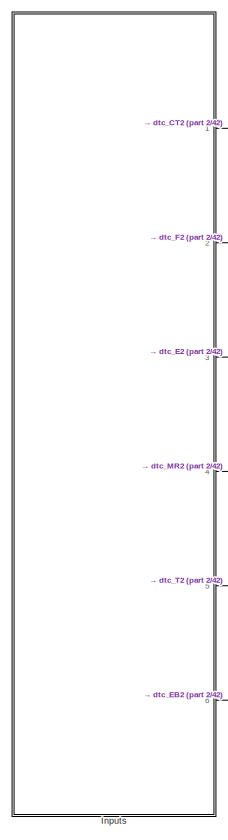
[diagram: root canvas - part 1/42, top left region]
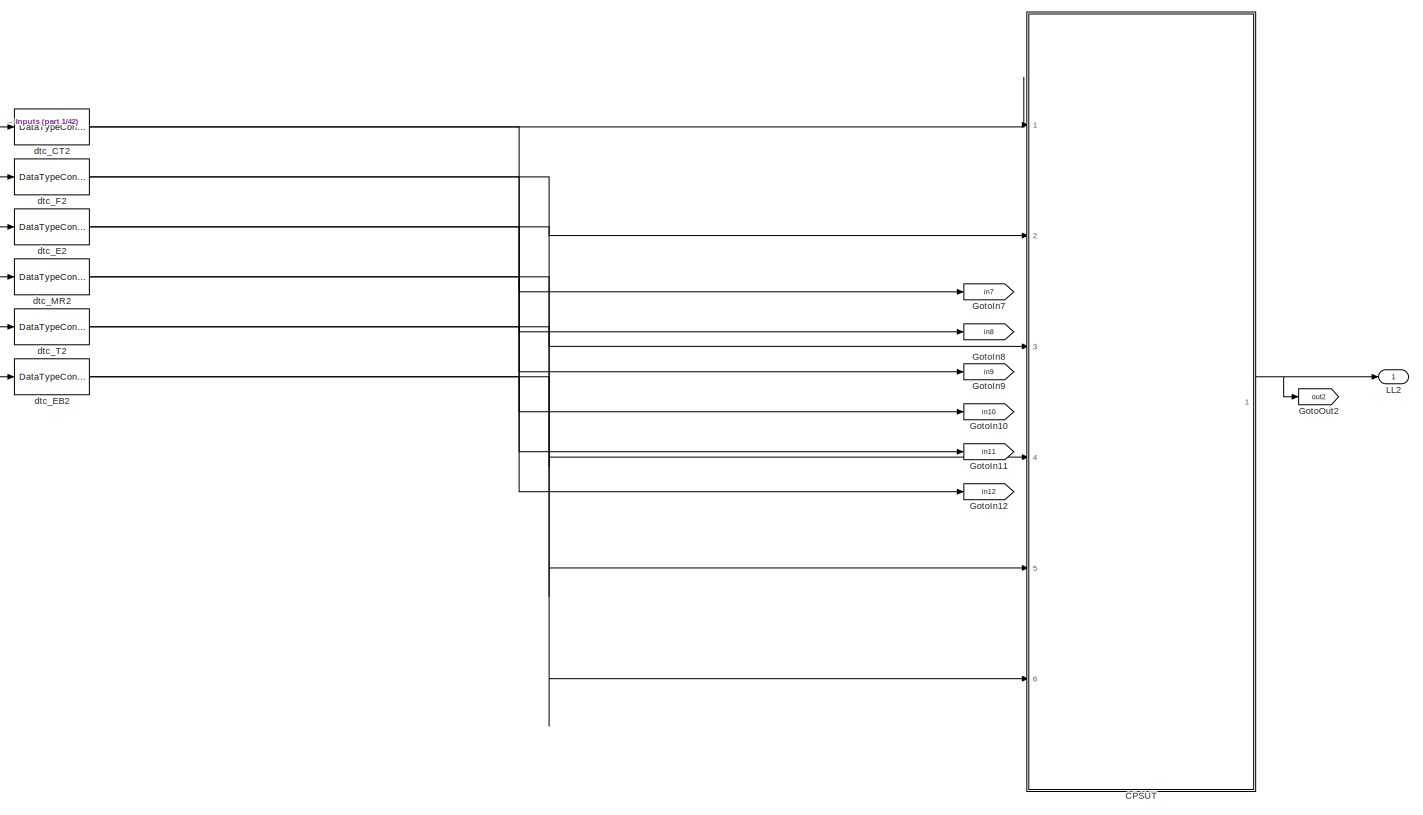
[diagram: root canvas - part 2/42, top left region]
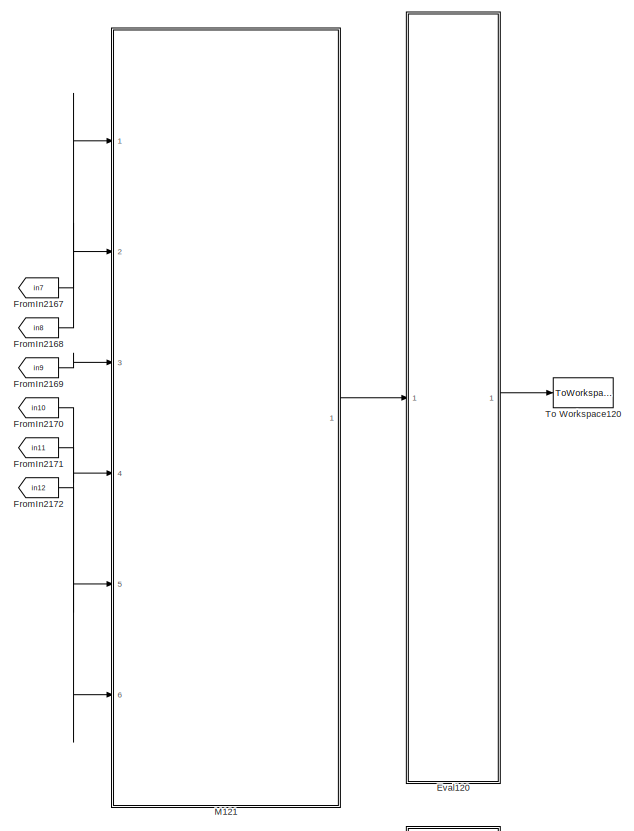
[diagram: root canvas - part 3/42, top right region]
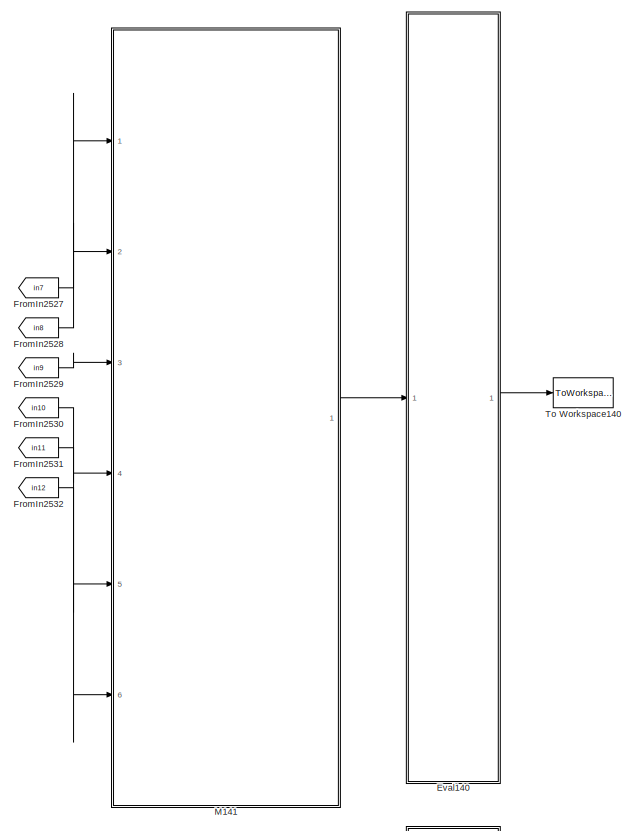
[diagram: root canvas - part 4/42, top right region]
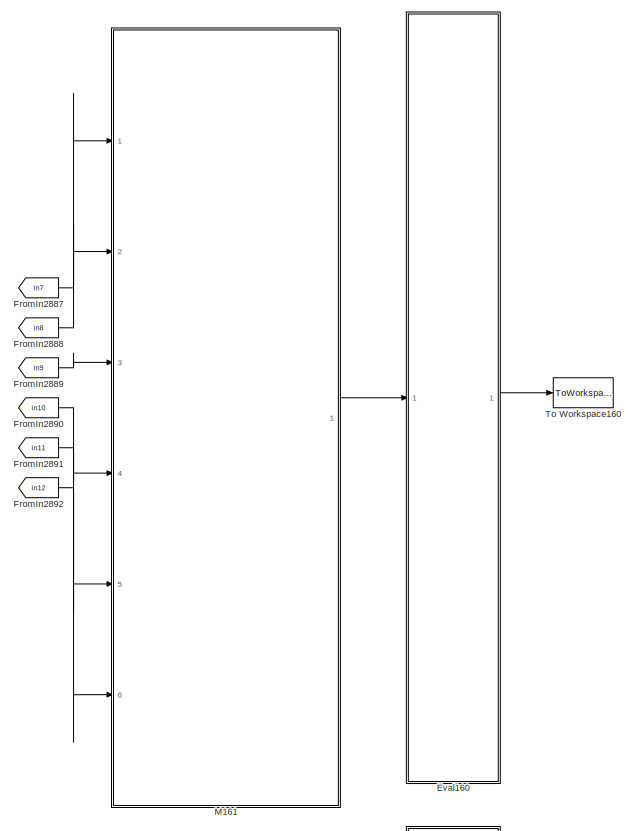
[diagram: root canvas - part 5/42, top right region]
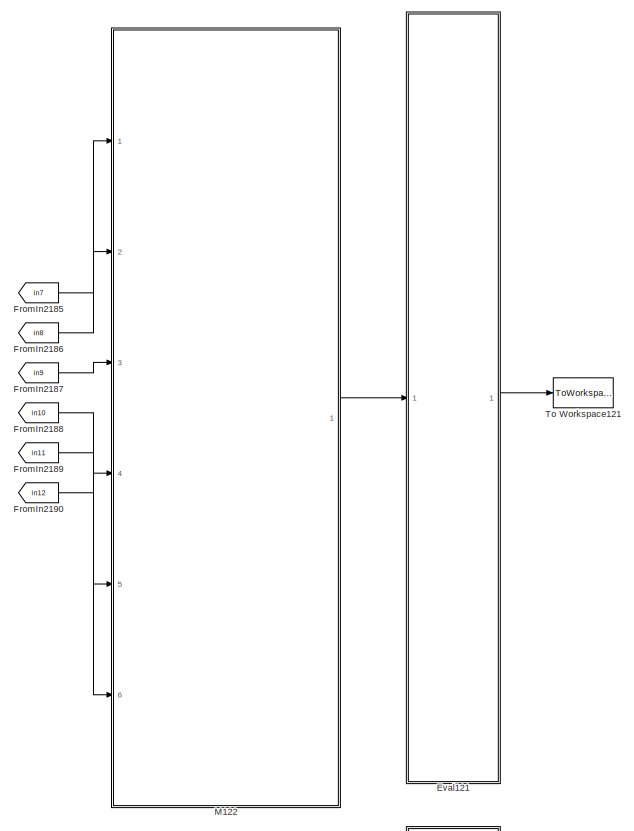
[diagram: root canvas - part 6/42, top right region]
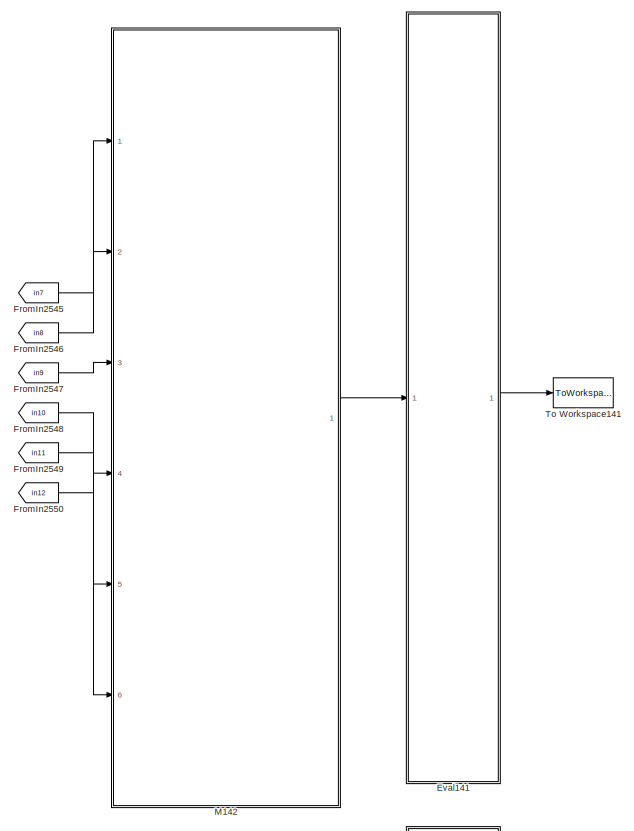
[diagram: root canvas - part 7/42, top right region]
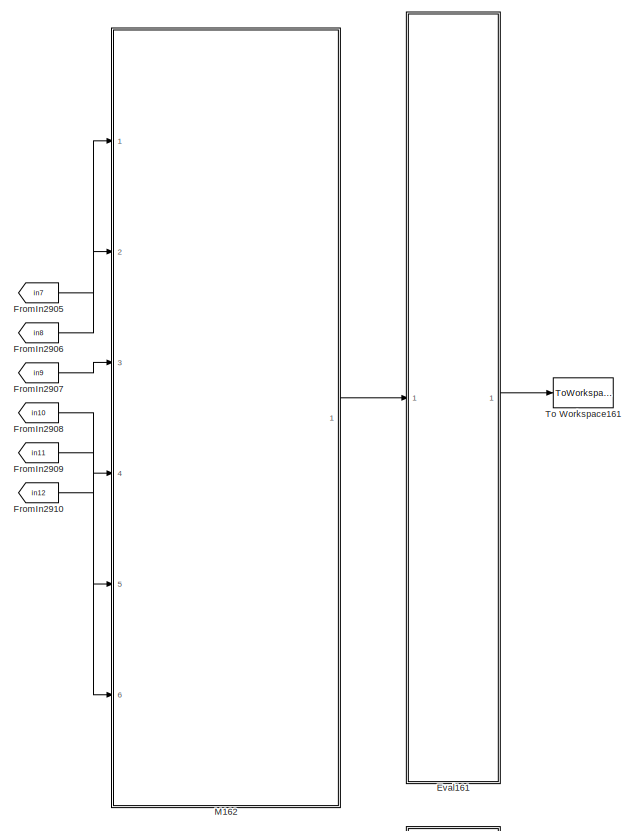
[diagram: root canvas - part 8/42, top right region]
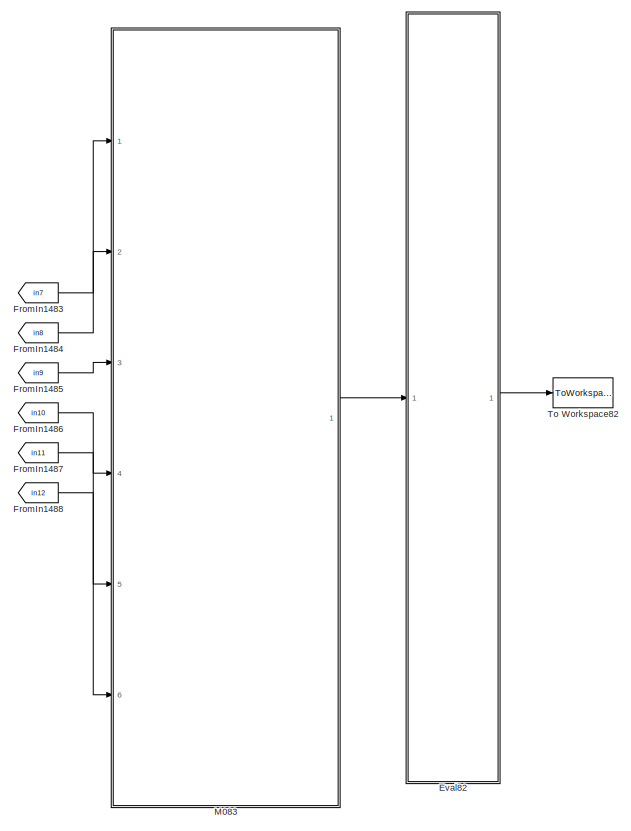
[diagram: root canvas - part 9/42, top center region]
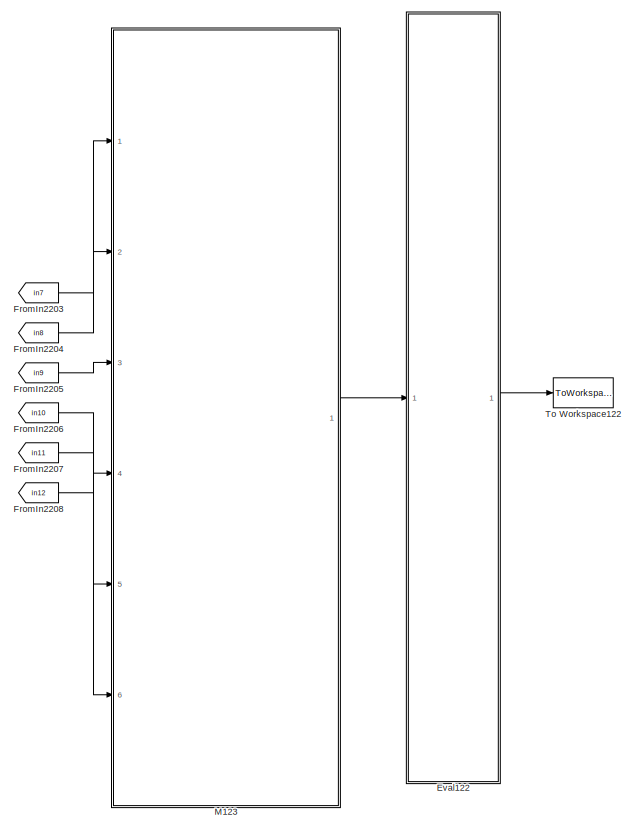
[diagram: root canvas - part 10/42, top right region]
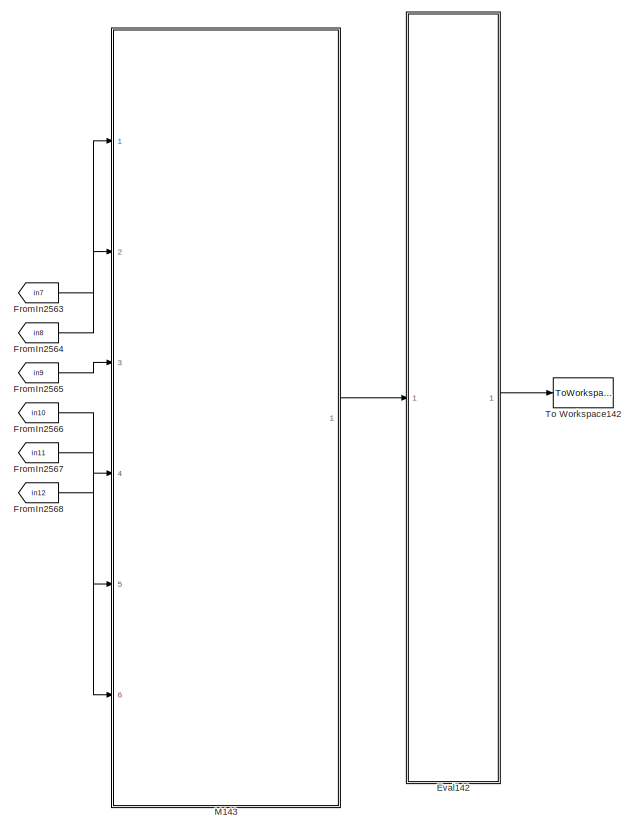
[diagram: root canvas - part 11/42, top right region]
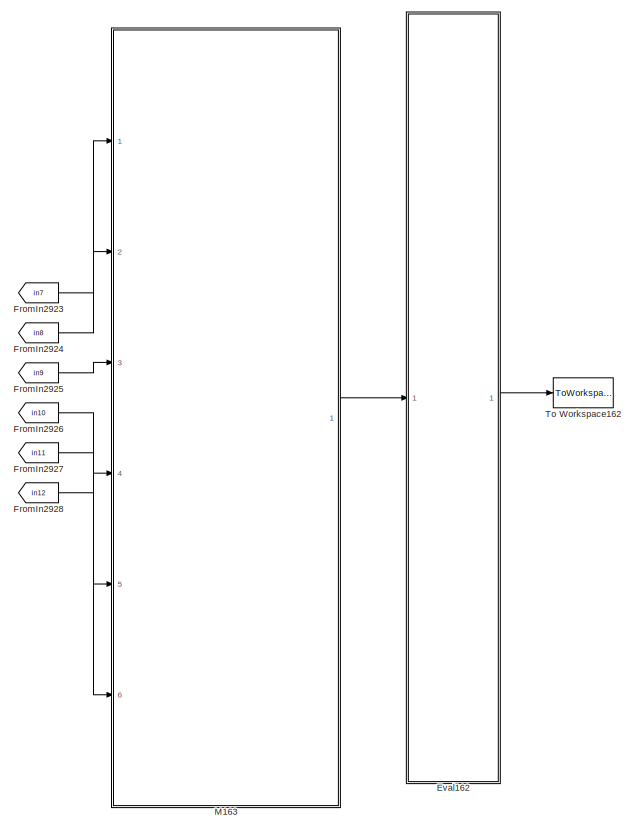
[diagram: root canvas - part 12/42, top right region]
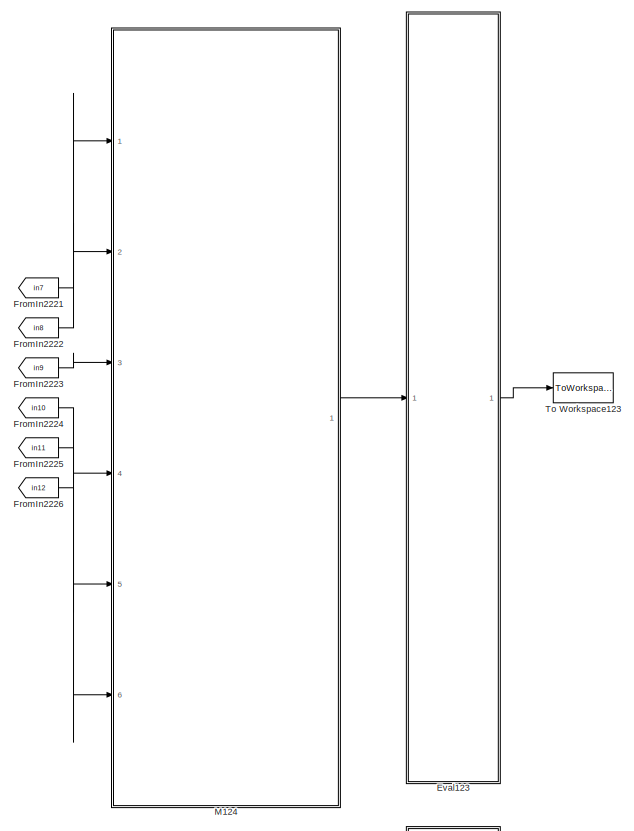
[diagram: root canvas - part 13/42, top right region]
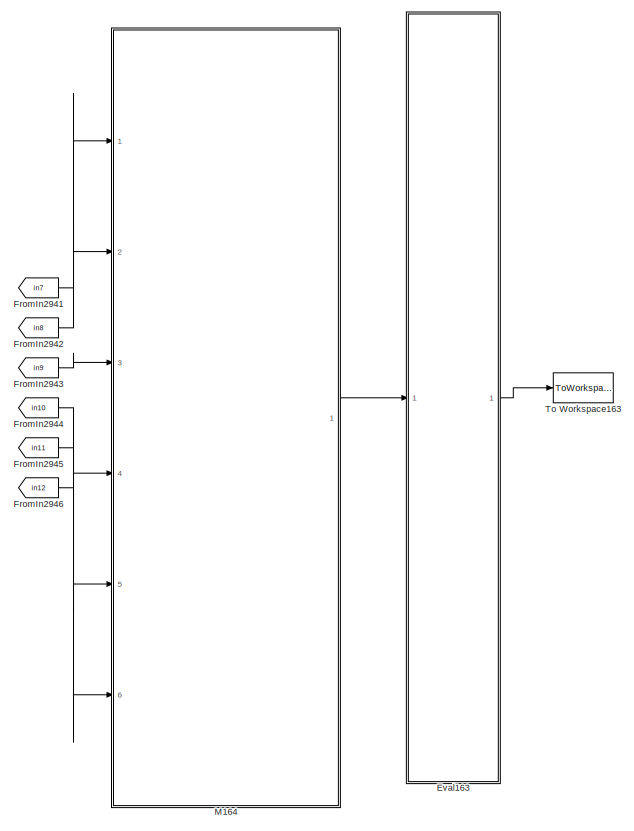
[diagram: root canvas - part 14/42, top right region]
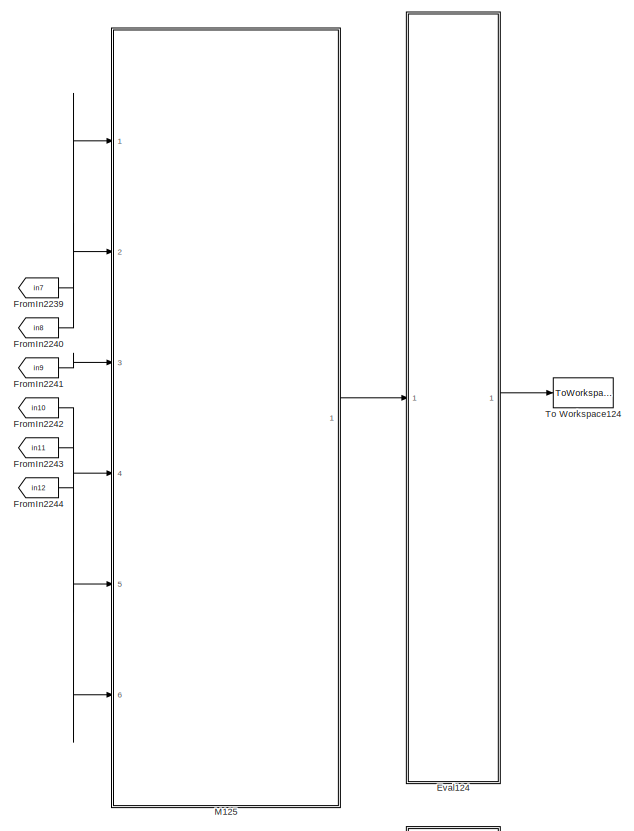
[diagram: root canvas - part 15/42, top right region]
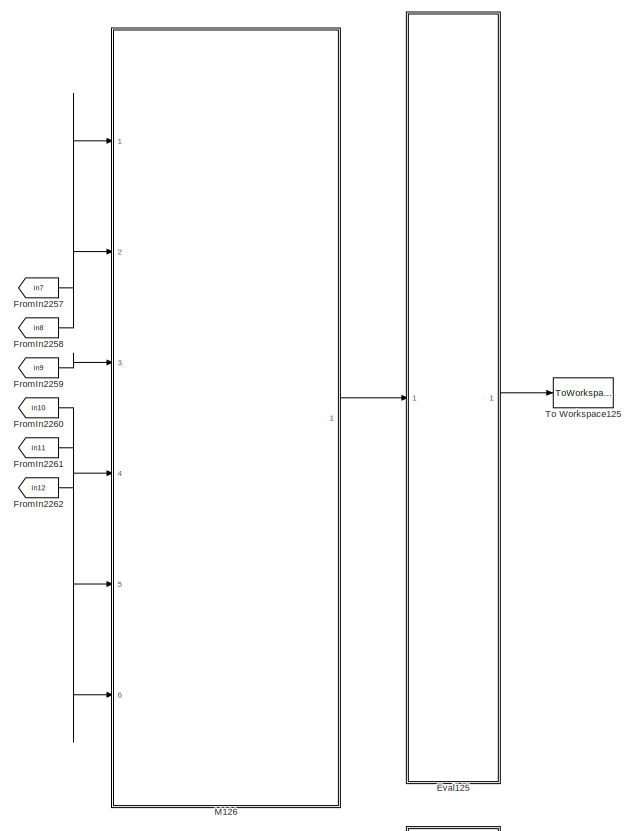
[diagram: root canvas - part 16/42, top right region]
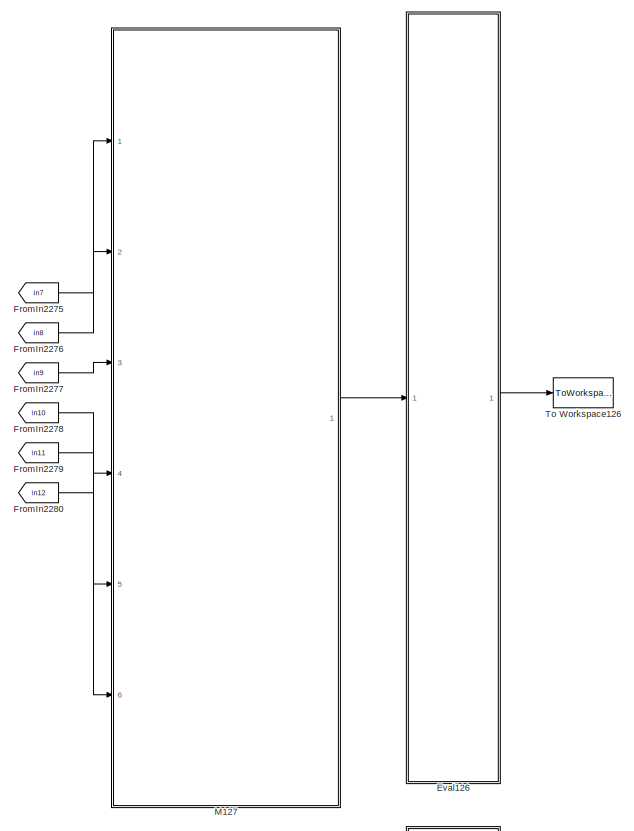
[diagram: root canvas - part 17/42, middle right region]
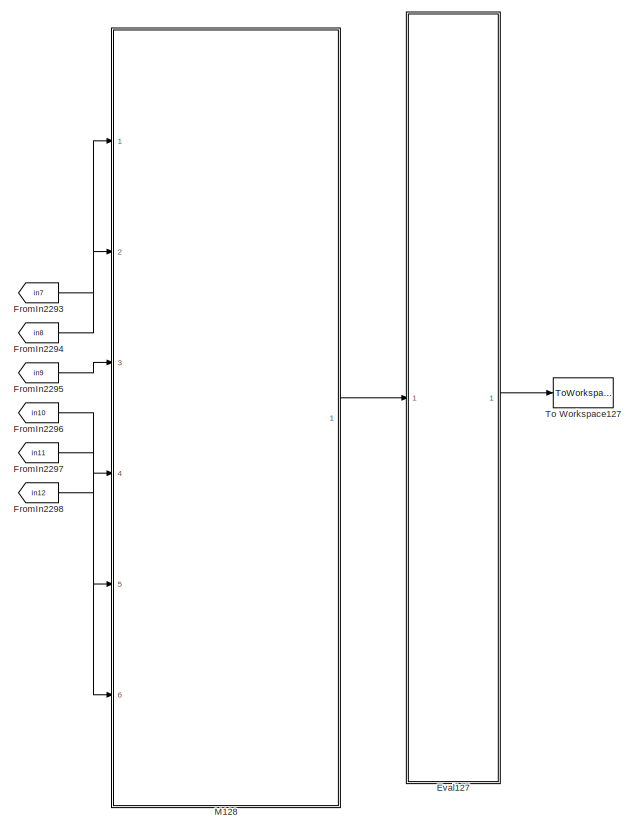
[diagram: root canvas - part 18/42, middle right region]
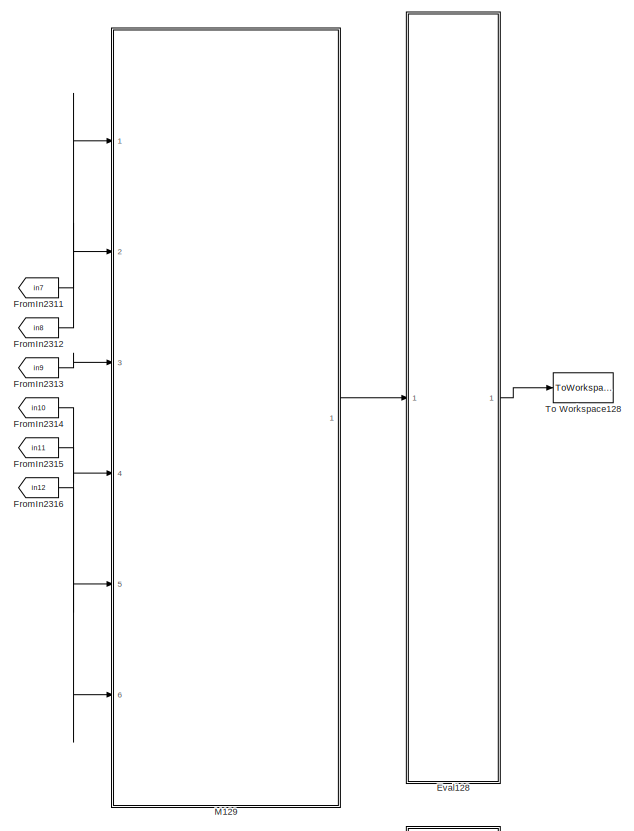
[diagram: root canvas - part 19/42, middle right region]
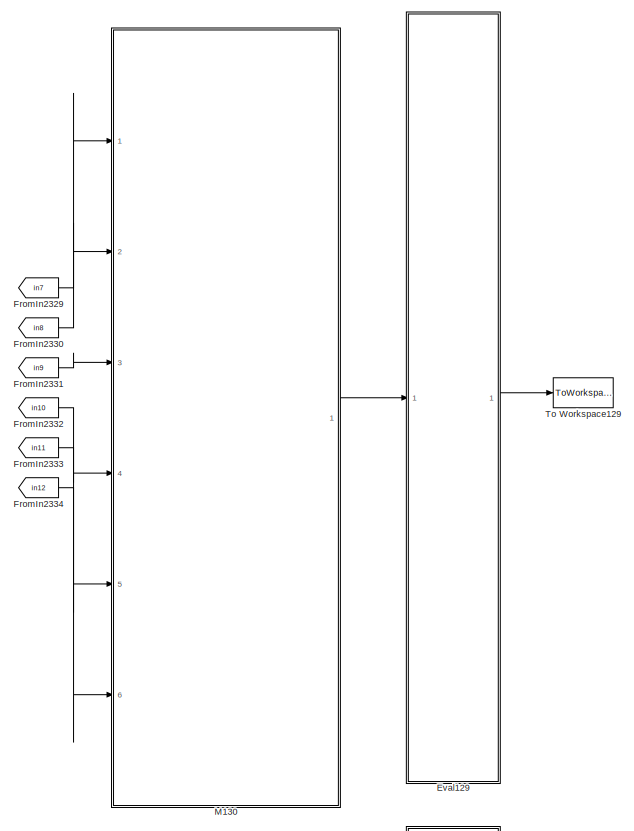
[diagram: root canvas - part 20/42, middle right region]
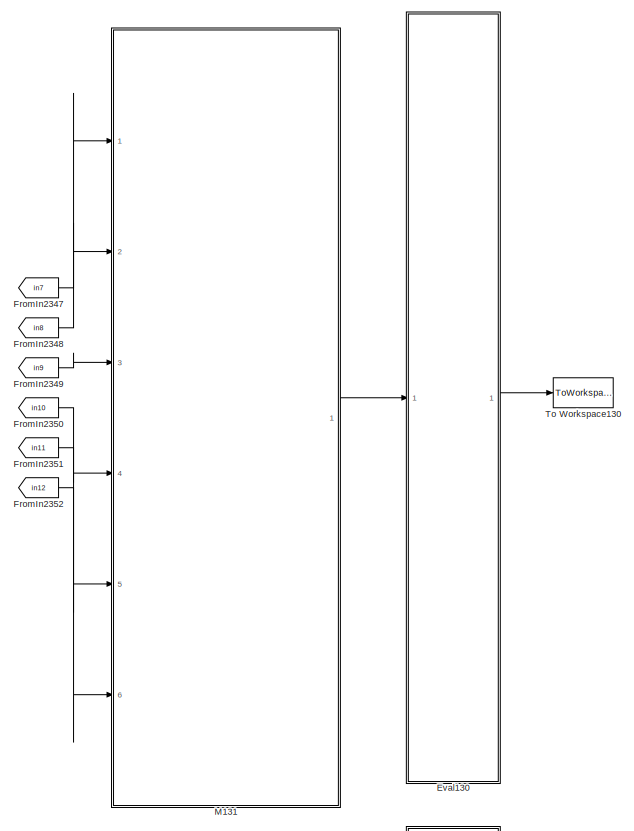
[diagram: root canvas - part 21/42, middle right region]
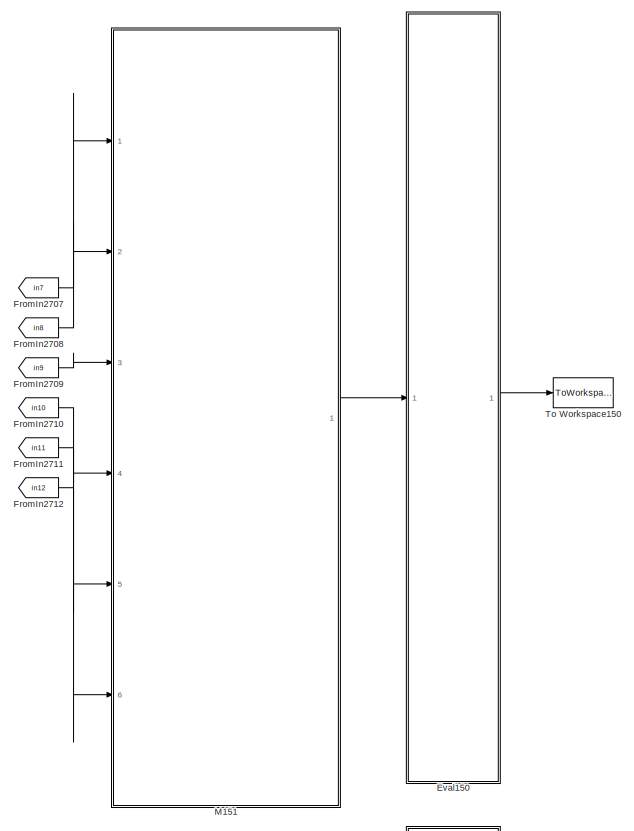
[diagram: root canvas - part 22/42, middle right region]
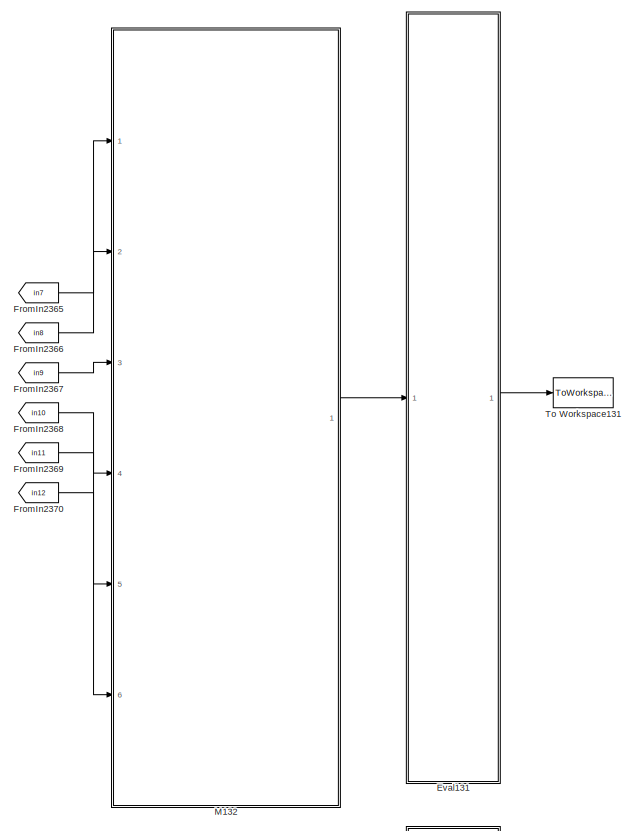
[diagram: root canvas - part 23/42, middle right region]
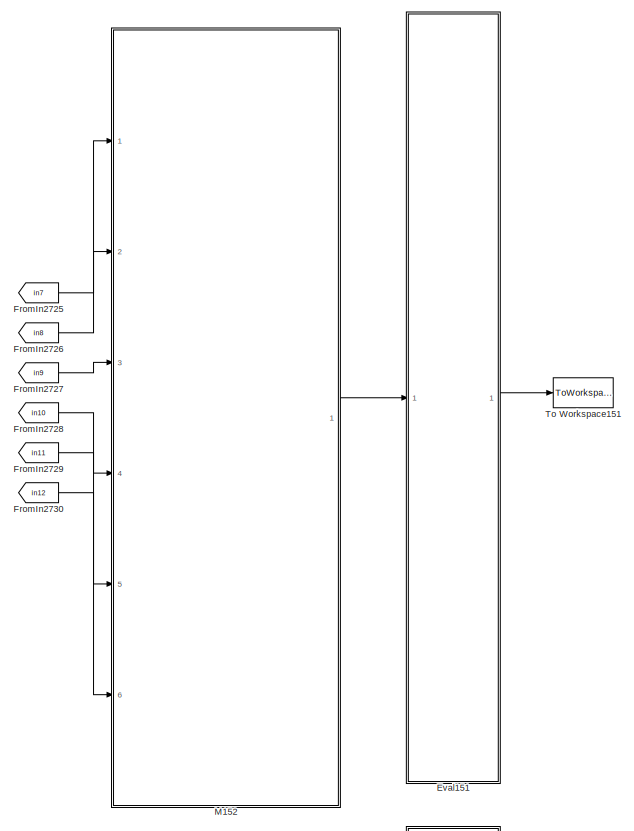
[diagram: root canvas - part 24/42, middle right region]
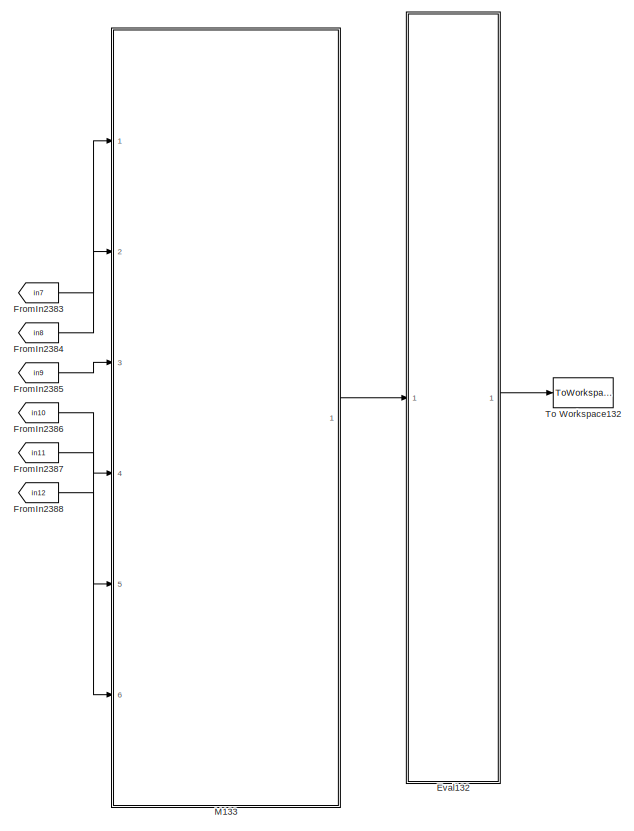
[diagram: root canvas - part 25/42, middle right region]
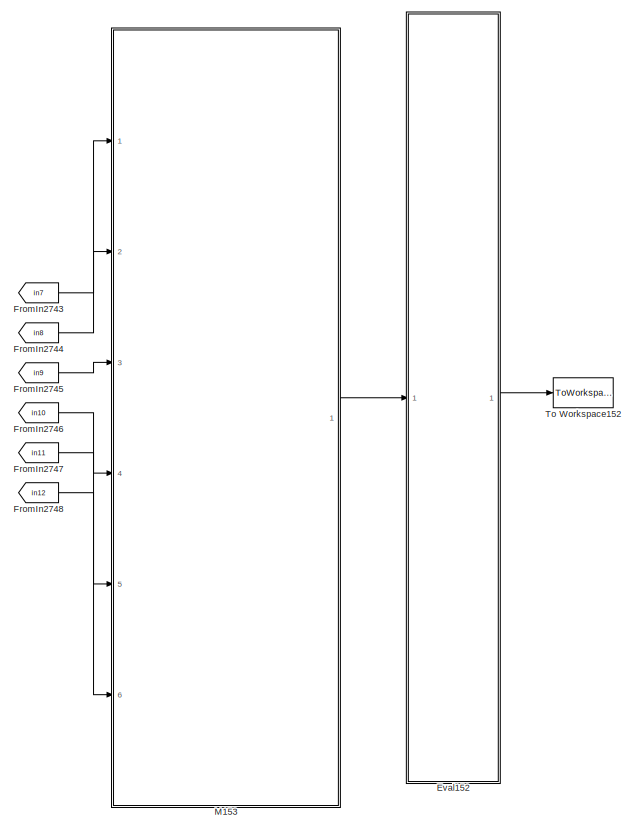
[diagram: root canvas - part 26/42, middle right region]
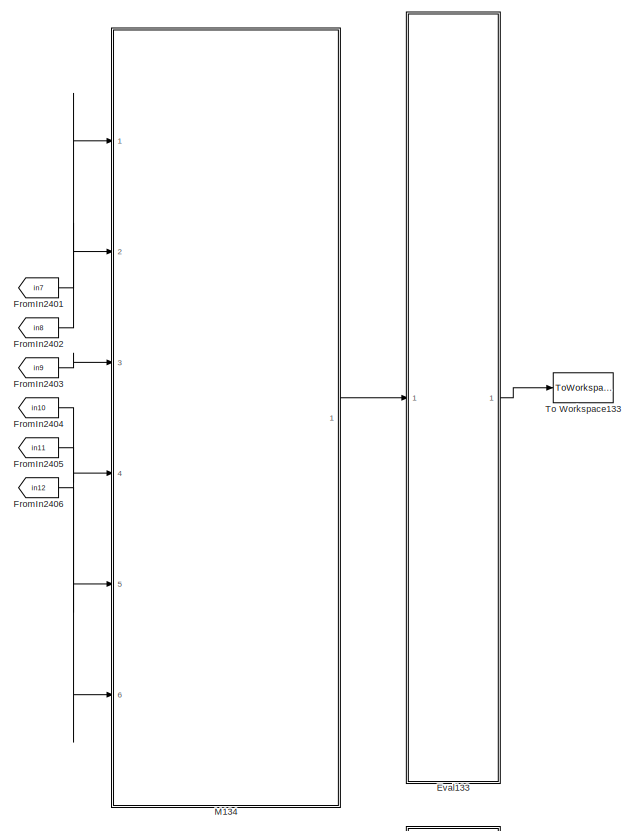
[diagram: root canvas - part 27/42, bottom right region]
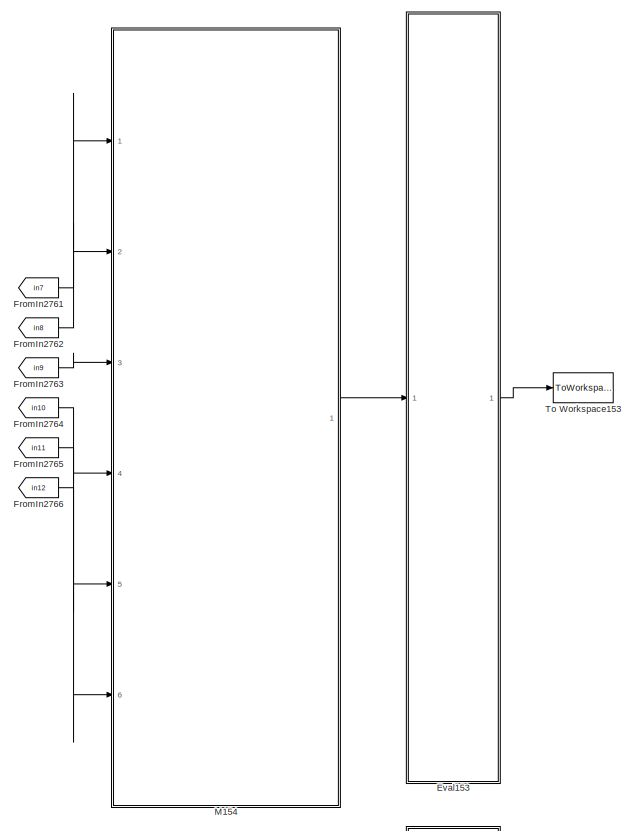
[diagram: root canvas - part 28/42, bottom right region]
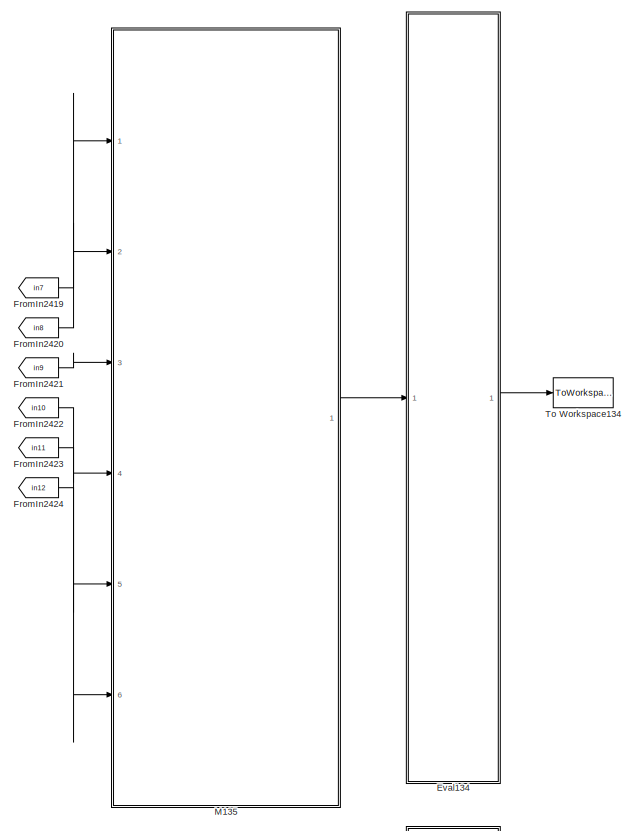
[diagram: root canvas - part 29/42, bottom right region]
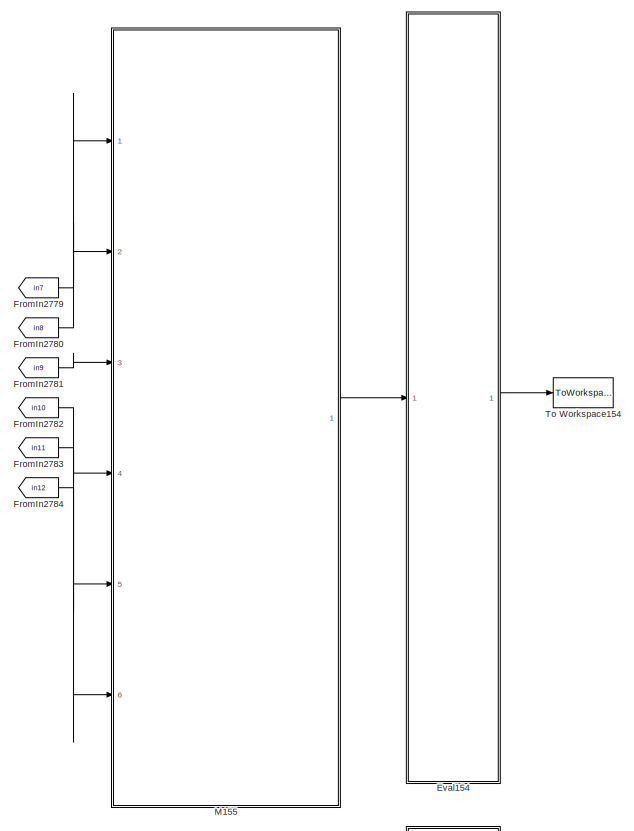
[diagram: root canvas - part 30/42, bottom right region]
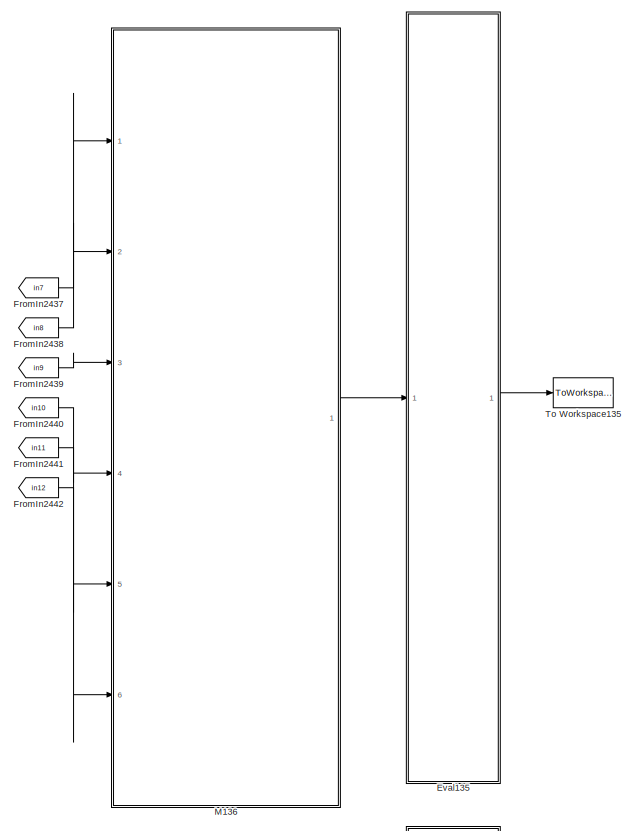
[diagram: root canvas - part 31/42, bottom right region]
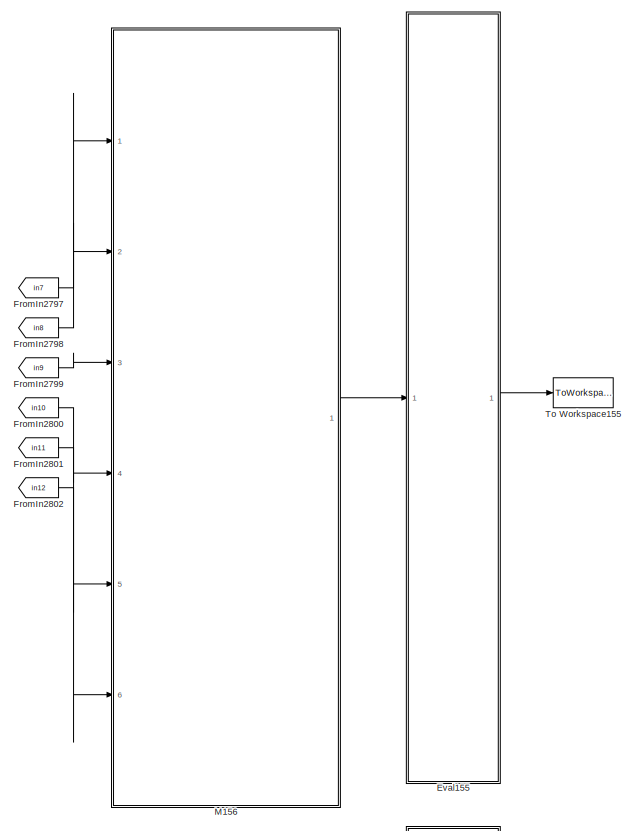
[diagram: root canvas - part 32/42, bottom right region]
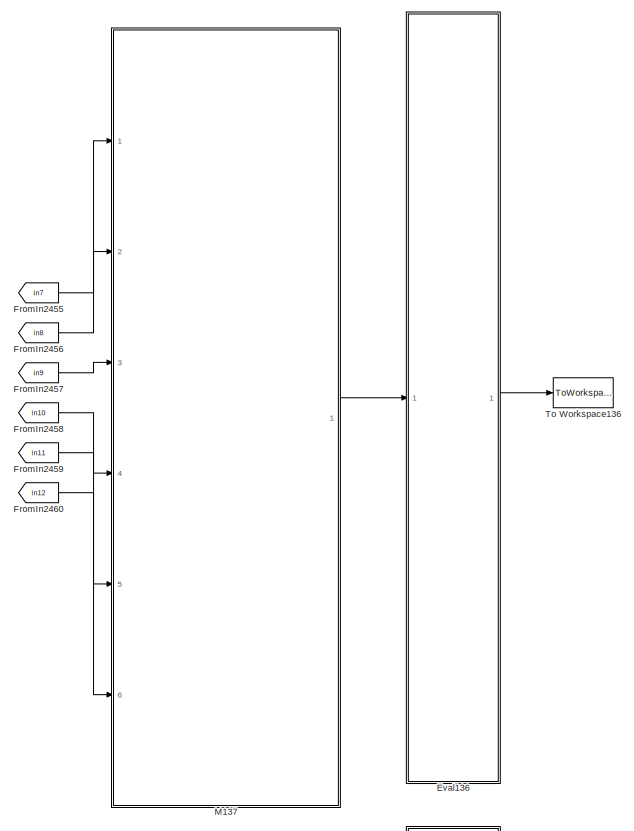
[diagram: root canvas - part 33/42, bottom right region]
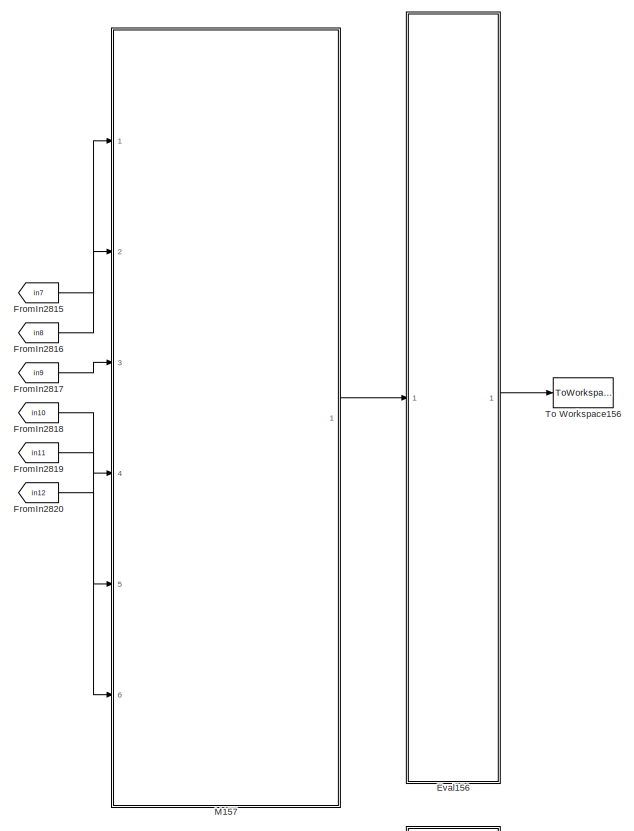
[diagram: root canvas - part 34/42, bottom right region]
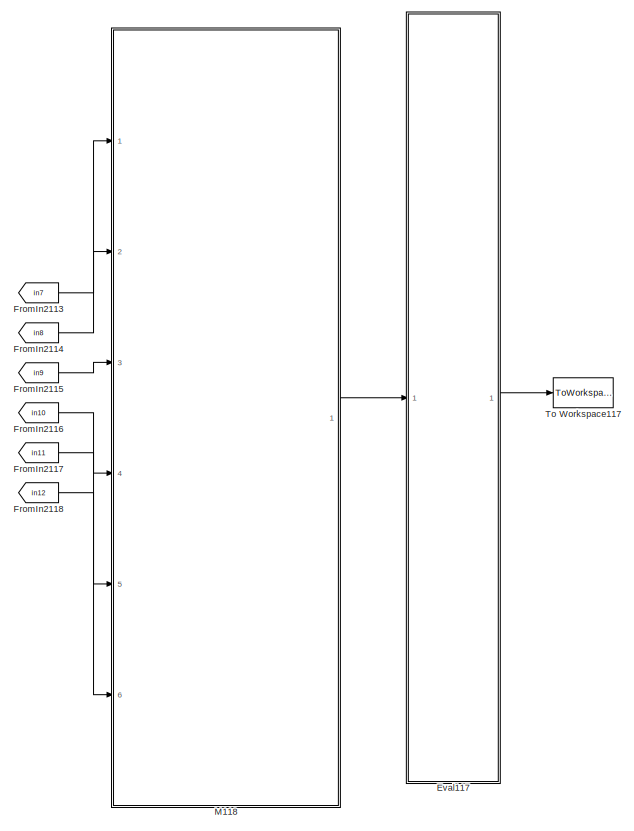
[diagram: root canvas - part 35/42, bottom right region]
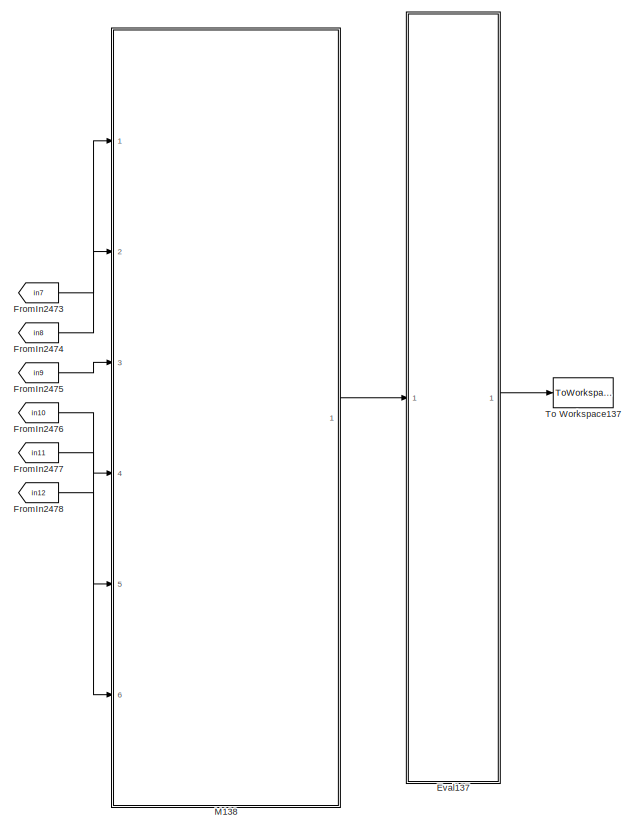
[diagram: root canvas - part 36/42, bottom right region]
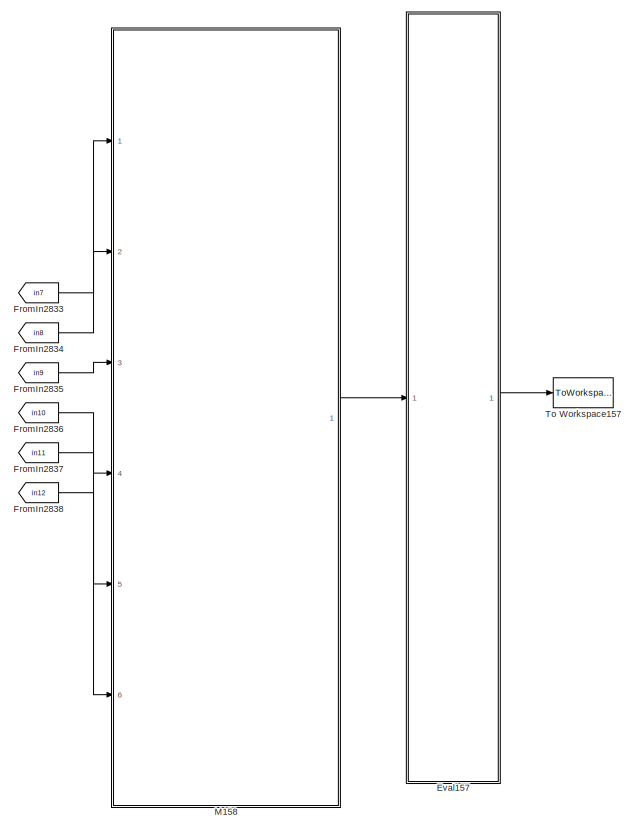
[diagram: root canvas - part 37/42, bottom right region]
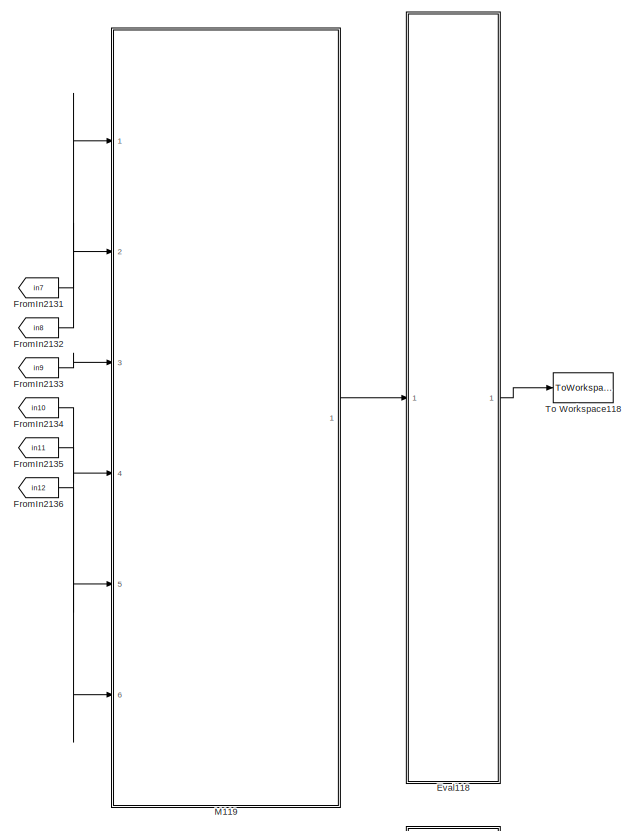
[diagram: root canvas - part 38/42, bottom right region]
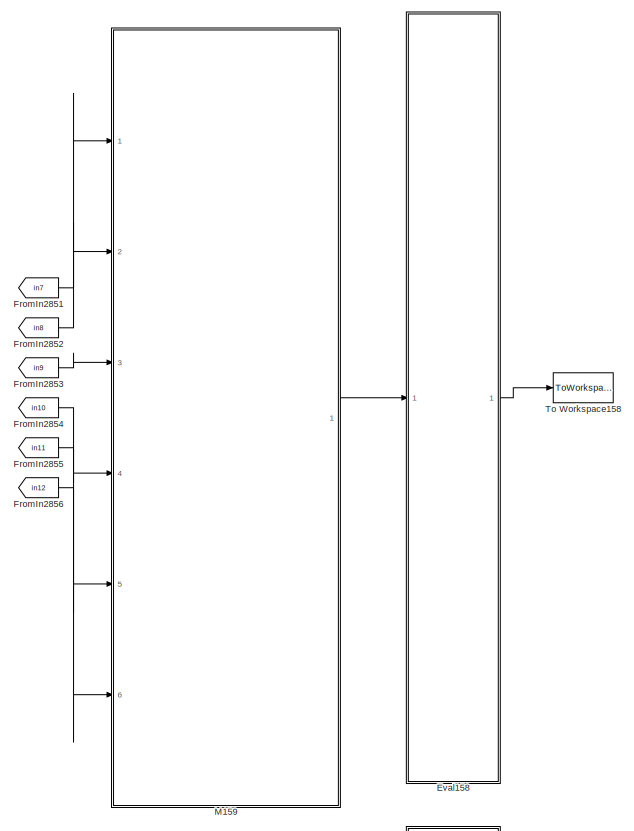
[diagram: root canvas - part 39/42, bottom right region]
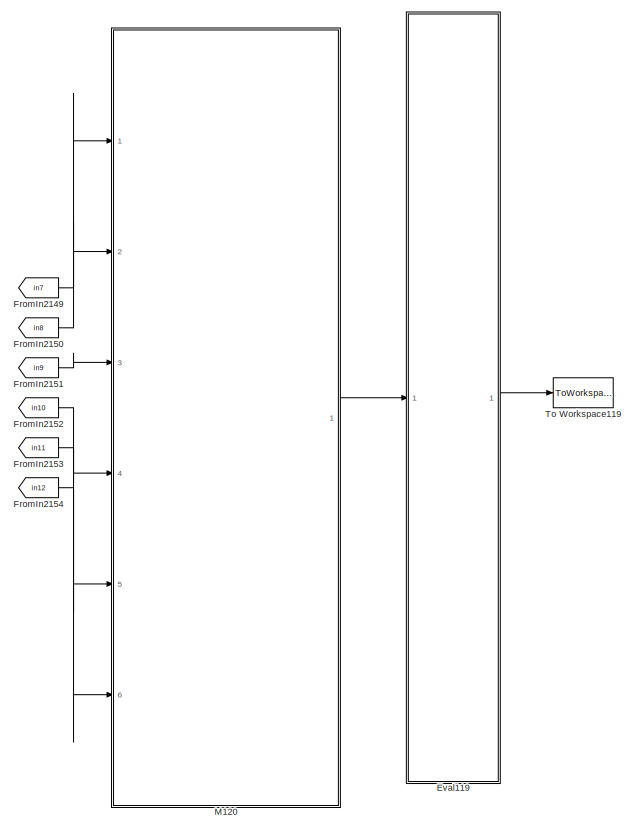
[diagram: root canvas - part 40/42, bottom right region]
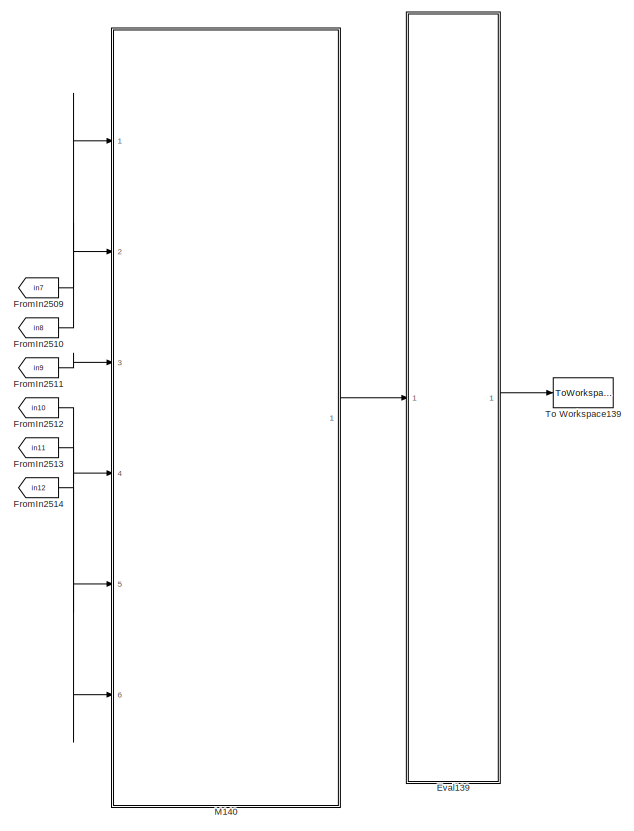
[diagram: root canvas - part 41/42, bottom right region]
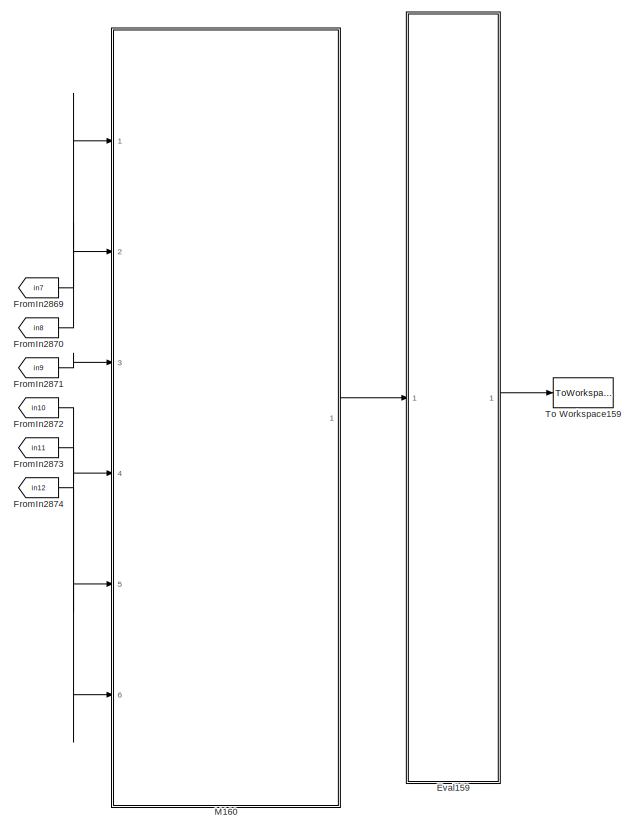
[diagram: root canvas - part 42/42, bottom right region]
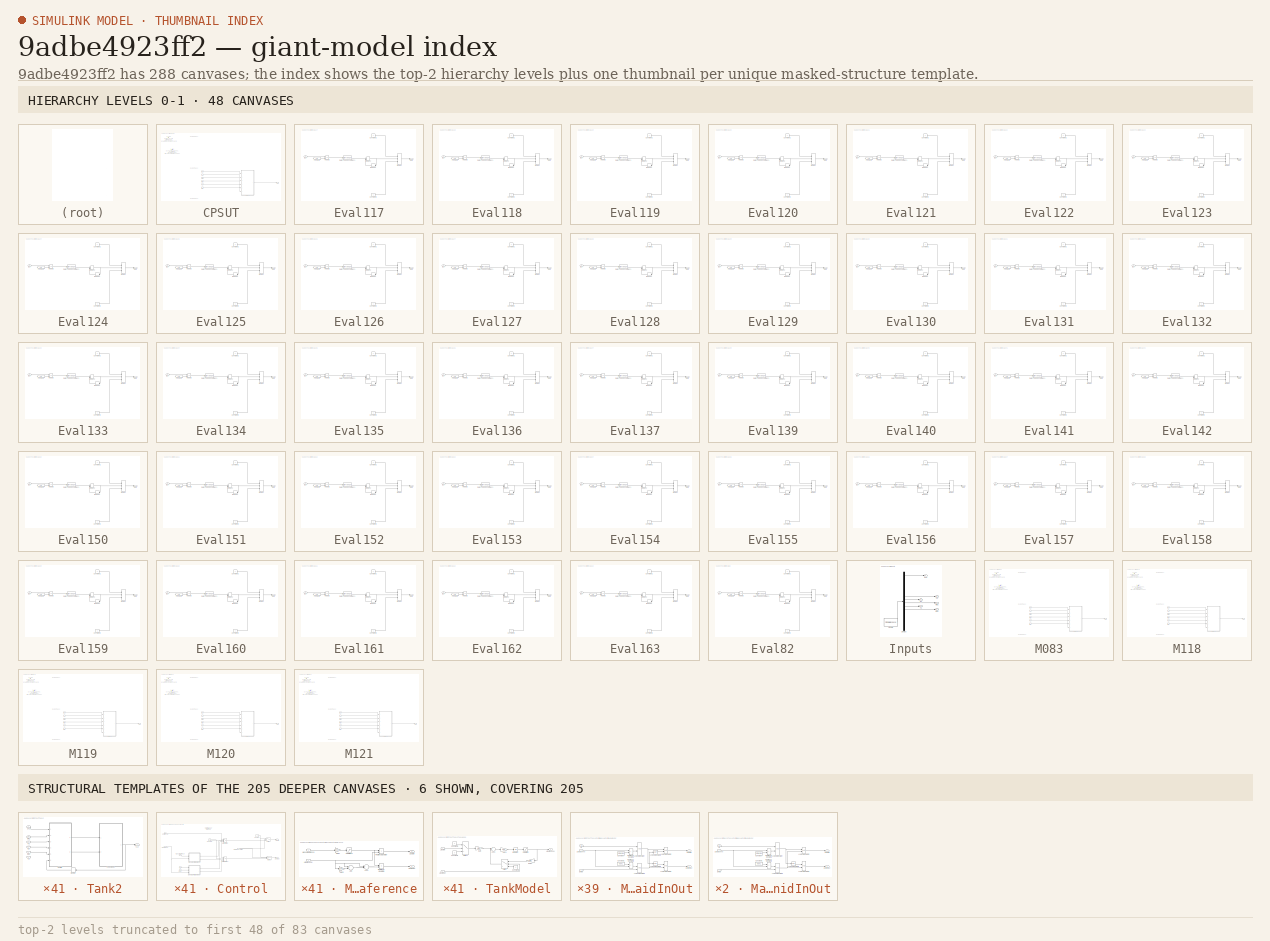
[diagram: thumbnail index - top-2 hierarchy levels (83 canvases (first 48 of 83 shown)) + 6 structural-template representatives of the remaining 205 canvases]
MODEL slx_9adbe4923ff2
KIND model
CONFIG AbsTol = auto
CONFIG EnableMultiTasking = off
CONFIG FixedStep = 0.1
CONFIG MaxStep = auto
CONFIG MinStep = auto
CONFIG RelTol = 1e-3
CONFIG SampleTimeConstraint = Unconstrained
CONFIG Solver = FixedStepAuto
CONFIG SolverName = FixedStepAuto
CONFIG StartTime = 0.0
CONFIG StopTime = 300
BLOCK [SubSystem] CPSUT
  Ports = [6, 1]
  RequestExecContextInheritance = off
BLOCK [Inport] CPSUT/CT2
  IconDisplay = Port number
BLOCK [Inport] CPSUT/E2
  IconDisplay = Port number
  Port = 3
BLOCK [Inport] CPSUT/EB2
  IconDisplay = Port number
  Port = 6
BLOCK [Inport] CPSUT/F2
  IconDisplay = Port number
  Port = 2
BLOCK [Outport] CPSUT/LL2
  IconDisplay = Port number
BLOCK [Inport] CPSUT/MR2
  IconDisplay = Port number
  Port = 4
BLOCK [Inport] CPSUT/T2
  IconDisplay = Port number
  Port = 5
BLOCK [SubSystem] CPSUT/Tank2
  Ports = [6, 1]
  RequestExecContextInheritance = off
BLOCK [Inport] CPSUT/Tank2/CT2
  IconDisplay = Port number
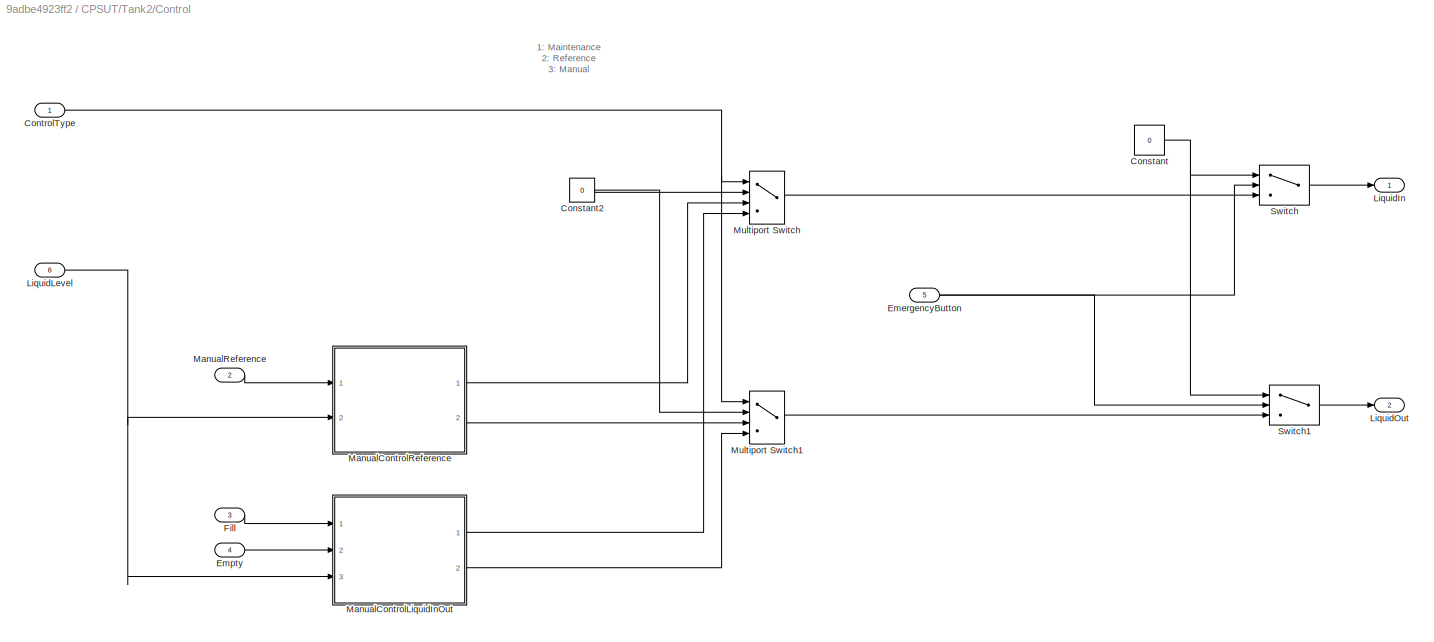
BLOCK [SubSystem] CPSUT/Tank2/Control
  Ports = [6, 2]
  RequestExecContextInheritance = off
BLOCK [Constant] CPSUT/Tank2/Control/Constant
  Value = 0
BLOCK [Constant] CPSUT/Tank2/Control/Constant2
  Value = 0
BLOCK [Inport] CPSUT/Tank2/Control/ControlType
  IconDisplay = Port number
BLOCK [Inport] CPSUT/Tank2/Control/EmergencyButton
  IconDisplay = Port number
  Port = 5
BLOCK [Inport] CPSUT/Tank2/Control/Empty
  IconDisplay = Port number
  Port = 4
BLOCK [Inport] CPSUT/Tank2/Control/Fill
  IconDisplay = Port number
  Port = 3
BLOCK [Outport] CPSUT/Tank2/Control/LiquidIn
  IconDisplay = Port number
BLOCK [Inport] CPSUT/Tank2/Control/LiquidLevel
  IconDisplay = Port number
  Port = 6
BLOCK [Outport] CPSUT/Tank2/Control/LiquidOut
  IconDisplay = Port number
  Port = 2
BLOCK [SubSystem] CPSUT/Tank2/Control/ManualControlLiquidInOut
  Ports = [3, 2]
  RequestExecContextInheritance = off
BLOCK [Constant] CPSUT/Tank2/Control/ManualControlLiquidInOut/Constant
  Value = hmax*0.9
BLOCK [Constant] CPSUT/Tank2/Control/ManualControlLiquidInOut/Constant1
  Value = 0.001
BLOCK [Inport] CPSUT/Tank2/Control/ManualControlLiquidInOut/Empty
  IconDisplay = Port number
  Port = 2
BLOCK [Inport] CPSUT/Tank2/Control/ManualControlLiquidInOut/Fill
  IconDisplay = Port number
BLOCK [Outport] CPSUT/Tank2/Control/ManualControlLiquidInOut/LiquidIn
  IconDisplay = Port number
BLOCK [Inport] CPSUT/Tank2/Control/ManualControlLiquidInOut/LiquidLevel
  IconDisplay = Port number
  Port = 3
BLOCK [Outport] CPSUT/Tank2/Control/ManualControlLiquidInOut/LiquidOut
  IconDisplay = Port number
  Port = 2
BLOCK [Logic] CPSUT/Tank2/Control/ManualControlLiquidInOut/Logical Operator
  AllPortsSameDT = off
  OutDataTypeStr = boolean
  Ports = [2, 1]
BLOCK [Logic] CPSUT/Tank2/Control/ManualControlLiquidInOut/Logical Operator1
  AllPortsSameDT = off
  OutDataTypeStr = boolean
  Ports = [2, 1]
BLOCK [Logic] CPSUT/Tank2/Control/ManualControlLiquidInOut/Logical Operator2
  AllPortsSameDT = off
  OutDataTypeStr = boolean
  Ports = [2, 1]
BLOCK [Logic] CPSUT/Tank2/Control/ManualControlLiquidInOut/Logical Operator3
  AllPortsSameDT = off
  Operator = NOT
  OutDataTypeStr = boolean
  Ports = [1, 1]
BLOCK [Logic] CPSUT/Tank2/Control/ManualControlLiquidInOut/Logical Operator4
  AllPortsSameDT = off
  OutDataTypeStr = boolean
  Ports = [2, 1]
BLOCK [Logic] CPSUT/Tank2/Control/ManualControlLiquidInOut/Logical Operator5
  AllPortsSameDT = off
  Operator = NOT
  OutDataTypeStr = boolean
  Ports = [1, 1]
BLOCK [RelationalOperator] CPSUT/Tank2/Control/ManualControlLiquidInOut/Relational Operator1
  InputSameDT = off
  Operator = <
  OutDataTypeStr = boolean
  Ports = [2, 1]
  RndMeth = Simplest
BLOCK [RelationalOperator] CPSUT/Tank2/Control/ManualControlLiquidInOut/Relational Operator2
  InputSameDT = off
  Operator = <
  OutDataTypeStr = boolean
  Ports = [2, 1]
  RndMeth = Simplest
BLOCK [SubSystem] CPSUT/Tank2/Control/ManualControlReference
  Ports = [2, 2]
  RequestExecContextInheritance = off
BLOCK [Sum] CPSUT/Tank2/Control/ManualControlReference/Add
  InputSameDT = off
  Inputs = +-
  OutDataTypeStr = Inherit: Inherit via internal rule
  Ports = [2, 1]
  SaturateOnIntegerOverflow = off
BLOCK [Sum] CPSUT/Tank2/Control/ManualControlReference/Add1
  InputSameDT = off
  Inputs = +-
  OutDataTypeStr = Inherit: Inherit via internal rule
  Ports = [2, 1]
  SaturateOnIntegerOverflow = off
BLOCK [Gain] CPSUT/Tank2/Control/ManualControlReference/Gain1
  Gain = 0.95
  OutDataTypeStr = Inherit: Inherit via internal rule
  ParamDataTypeStr = Inherit: Inherit via internal rule
  SaturateOnIntegerOverflow = off
BLOCK [Gain] CPSUT/Tank2/Control/ManualControlReference/Gain2
  Gain = 0.95
  OutDataTypeStr = Inherit: Inherit via internal rule
  ParamDataTypeStr = Inherit: Inherit via internal rule
  SaturateOnIntegerOverflow = off
BLOCK [Outport] CPSUT/Tank2/Control/ManualControlReference/LiquidIn
  IconDisplay = Port number
BLOCK [Inport] CPSUT/Tank2/Control/ManualControlReference/LiquidLevel
  IconDisplay = Port number
  Port = 2
BLOCK [Outport] CPSUT/Tank2/Control/ManualControlReference/LiquidOut
  IconDisplay = Port number
  Port = 2
BLOCK [Inport] CPSUT/Tank2/Control/ManualControlReference/ManualReference
  IconDisplay = Port number
BLOCK [RelationalOperator] CPSUT/Tank2/Control/ManualControlReference/Relational Operator
  InputSameDT = off
  Operator = >
  OutDataTypeStr = boolean
  Ports = [2, 1]
  RndMeth = Simplest
BLOCK [RelationalOperator] CPSUT/Tank2/Control/ManualControlReference/Relational Operator1
  InputSameDT = off
  Operator = <
  OutDataTypeStr = boolean
  Ports = [2, 1]
  RndMeth = Simplest
BLOCK [Saturate] CPSUT/Tank2/Control/ManualControlReference/Saturation1
  InputPortMap = u0
  LowerLimit = 0
  Ports = [1, 1]
  UpperLimit = hmax*0.9
BLOCK [Inport] CPSUT/Tank2/Control/ManualReference
  IconDisplay = Port number
  Port = 2
BLOCK [MultiPortSwitch] CPSUT/Tank2/Control/Multiport Switch
  InputSameDT = off
  Ports = [4, 1]
  SaturateOnIntegerOverflow = off
BLOCK [MultiPortSwitch] CPSUT/Tank2/Control/Multiport Switch1
  InputSameDT = off
  Ports = [4, 1]
  SaturateOnIntegerOverflow = off
BLOCK [Switch] CPSUT/Tank2/Control/Switch
  Criteria = u2 > Threshold
  InputSameDT = off
  SaturateOnIntegerOverflow = off
BLOCK [Switch] CPSUT/Tank2/Control/Switch1
  Criteria = u2 > Threshold
  InputSameDT = off
  SaturateOnIntegerOverflow = off
BLOCK [Inport] CPSUT/Tank2/E2
  IconDisplay = Port number
  Port = 3
BLOCK [Inport] CPSUT/Tank2/EB2
  IconDisplay = Port number
  Port = 6
BLOCK [Inport] CPSUT/Tank2/F2
  IconDisplay = Port number
  Port = 2
BLOCK [Outport] CPSUT/Tank2/LL2
  IconDisplay = Port number
BLOCK [Inport] CPSUT/Tank2/MR2
  IconDisplay = Port number
  Port = 4
BLOCK [Memory] CPSUT/Tank2/Memory
BLOCK [Inport] CPSUT/Tank2/T2
  IconDisplay = Port number
  Port = 5
BLOCK [SubSystem] CPSUT/Tank2/TankModel
  Ports = [2, 1]
  RequestExecContextInheritance = off
BLOCK [Sum] CPSUT/Tank2/TankModel/Add1
  InputSameDT = off
  Inputs = +-
  OutDataTypeStr = Inherit: Inherit via internal rule
  Ports = [2, 1]
  SaturateOnIntegerOverflow = off
BLOCK [Constant] CPSUT/Tank2/TankModel/Constant1
  Value = 0
BLOCK [Constant] CPSUT/Tank2/TankModel/Constant2
  Value = 0
BLOCK [Constant] CPSUT/Tank2/TankModel/Constant3
BLOCK [Gain] CPSUT/Tank2/TankModel/Gain
  Gain = 1/R1
  OutDataTypeStr = Inherit: Inherit via internal rule
  ParamDataTypeStr = Inherit: Inherit via internal rule
  SaturateOnIntegerOverflow = off
BLOCK [Gain] CPSUT/Tank2/TankModel/Gain1
  Gain = 1/A1
  OutDataTypeStr = Inherit: Inherit via internal rule
  ParamDataTypeStr = Inherit: Inherit via internal rule
  SaturateOnIntegerOverflow = off
BLOCK [Gain] CPSUT/Tank2/TankModel/Gain2
  Gain = 1/R2
  OutDataTypeStr = Inherit: Inherit via internal rule
  ParamDataTypeStr = Inherit: Inherit via internal rule
  SaturateOnIntegerOverflow = off
BLOCK [Integrator] CPSUT/Tank2/TankModel/Integrator
  Ports = [1, 1]
BLOCK [Inport] CPSUT/Tank2/TankModel/LiquidIn
  IconDisplay = Port number
BLOCK [Outport] CPSUT/Tank2/TankModel/LiquidLevel
  IconDisplay = Port number
BLOCK [Inport] CPSUT/Tank2/TankModel/LiquidOut
  IconDisplay = Port number
  Port = 2
BLOCK [Saturate] CPSUT/Tank2/TankModel/Saturation
  InputPortMap = u0
  LowerLimit = 0
  Ports = [1, 1]
  UpperLimit = hmax
BLOCK [Switch] CPSUT/Tank2/TankModel/Switch
  Criteria = u2 ~= 0
  InputSameDT = off
  SaturateOnIntegerOverflow = off
BLOCK [Switch] CPSUT/Tank2/TankModel/Switch1
  Criteria = u2 ~= 0
  InputSameDT = off
  SaturateOnIntegerOverflow = off
BLOCK [SubSystem] Eval117
  Ports = [1, 1]
  RequestExecContextInheritance = off
BLOCK [Constant] Eval117/Constant1
BLOCK [Constant] Eval117/Constant3
BLOCK [DataTypeConversion] Eval117/Data Type Conversion1
  RndMeth = Floor
  SaturateOnIntegerOverflow = off
BLOCK [From] Eval117/FromOut2
  GotoTag = out2
BLOCK [Inport] Eval117/In2
  IconDisplay = Port number
BLOCK [Memory] Eval117/Memory2
  InitialCondition = 1
BLOCK [MinMax] Eval117/MinMax
  InputSameDT = off
  Inputs = 3
  Ports = [3, 1]
  SaturateOnIntegerOverflow = off
BLOCK [MinMax] Eval117/MinMax2
  InputSameDT = off
  Inputs = 2
  Ports = [2, 1]
  SaturateOnIntegerOverflow = off
BLOCK [Outport] Eval117/Out1
  IconDisplay = Port number
BLOCK [RelationalOperator] Eval117/ROOut2
  InputSameDT = off
  Operator = ==
  OutDataTypeStr = boolean
  Ports = [2, 1]
  RndMeth = Simplest
BLOCK [SubSystem] Eval118
  Ports = [1, 1]
  RequestExecContextInheritance = off
BLOCK [Constant] Eval118/Constant1
BLOCK [Constant] Eval118/Constant3
BLOCK [DataTypeConversion] Eval118/Data Type Conversion1
  RndMeth = Floor
  SaturateOnIntegerOverflow = off
BLOCK [From] Eval118/FromOut2
  GotoTag = out2
BLOCK [Inport] Eval118/In2
  IconDisplay = Port number
BLOCK [Memory] Eval118/Memory2
  InitialCondition = 1
BLOCK [MinMax] Eval118/MinMax
  InputSameDT = off
  Inputs = 3
  Ports = [3, 1]
  SaturateOnIntegerOverflow = off
BLOCK [MinMax] Eval118/MinMax2
  InputSameDT = off
  Inputs = 2
  Ports = [2, 1]
  SaturateOnIntegerOverflow = off
BLOCK [Outport] Eval118/Out1
  IconDisplay = Port number
BLOCK [RelationalOperator] Eval118/ROOut2
  InputSameDT = off
  Operator = ==
  OutDataTypeStr = boolean
  Ports = [2, 1]
  RndMeth = Simplest
BLOCK [SubSystem] Eval119
  Ports = [1, 1]
  RequestExecContextInheritance = off
BLOCK [Constant] Eval119/Constant1
BLOCK [Constant] Eval119/Constant3
BLOCK [DataTypeConversion] Eval119/Data Type Conversion1
  RndMeth = Floor
  SaturateOnIntegerOverflow = off
BLOCK [From] Eval119/FromOut2
  GotoTag = out2
BLOCK [Inport] Eval119/In2
  IconDisplay = Port number
BLOCK [Memory] Eval119/Memory2
  InitialCondition = 1
BLOCK [MinMax] Eval119/MinMax
  InputSameDT = off
  Inputs = 3
  Ports = [3, 1]
  SaturateOnIntegerOverflow = off
BLOCK [MinMax] Eval119/MinMax2
  InputSameDT = off
  Inputs = 2
  Ports = [2, 1]
  SaturateOnIntegerOverflow = off
BLOCK [Outport] Eval119/Out1
  IconDisplay = Port number
BLOCK [RelationalOperator] Eval119/ROOut2
  InputSameDT = off
  Operator = ==
  OutDataTypeStr = boolean
  Ports = [2, 1]
  RndMeth = Simplest
BLOCK [SubSystem] Eval120
  Ports = [1, 1]
  RequestExecContextInheritance = off
BLOCK [Constant] Eval120/Constant1
BLOCK [Constant] Eval120/Constant3
BLOCK [DataTypeConversion] Eval120/Data Type Conversion1
  RndMeth = Floor
  SaturateOnIntegerOverflow = off
BLOCK [From] Eval120/FromOut2
  GotoTag = out2
BLOCK [Inport] Eval120/In2
  IconDisplay = Port number
BLOCK [Memory] Eval120/Memory2
  InitialCondition = 1
BLOCK [MinMax] Eval120/MinMax
  InputSameDT = off
  Inputs = 3
  Ports = [3, 1]
  SaturateOnIntegerOverflow = off
BLOCK [MinMax] Eval120/MinMax2
  InputSameDT = off
  Inputs = 2
  Ports = [2, 1]
  SaturateOnIntegerOverflow = off
BLOCK [Outport] Eval120/Out1
  IconDisplay = Port number
BLOCK [RelationalOperator] Eval120/ROOut2
  InputSameDT = off
  Operator = ==
  OutDataTypeStr = boolean
  Ports = [2, 1]
  RndMeth = Simplest
BLOCK [SubSystem] Eval121
  Ports = [1, 1]
  RequestExecContextInheritance = off
BLOCK [Constant] Eval121/Constant1
BLOCK [Constant] Eval121/Constant3
BLOCK [DataTypeConversion] Eval121/Data Type Conversion1
  RndMeth = Floor
  SaturateOnIntegerOverflow = off
BLOCK [From] Eval121/FromOut2
  GotoTag = out2
BLOCK [Inport] Eval121/In2
  IconDisplay = Port number
BLOCK [Memory] Eval121/Memory2
  InitialCondition = 1
BLOCK [MinMax] Eval121/MinMax
  InputSameDT = off
  Inputs = 3
  Ports = [3, 1]
  SaturateOnIntegerOverflow = off
BLOCK [MinMax] Eval121/MinMax2
  InputSameDT = off
  Inputs = 2
  Ports = [2, 1]
  SaturateOnIntegerOverflow = off
BLOCK [Outport] Eval121/Out1
  IconDisplay = Port number
BLOCK [RelationalOperator] Eval121/ROOut2
  InputSameDT = off
  Operator = ==
  OutDataTypeStr = boolean
  Ports = [2, 1]
  RndMeth = Simplest
BLOCK [SubSystem] Eval122
  Ports = [1, 1]
  RequestExecContextInheritance = off
BLOCK [Constant] Eval122/Constant1
BLOCK [Constant] Eval122/Constant3
BLOCK [DataTypeConversion] Eval122/Data Type Conversion1
  RndMeth = Floor
  SaturateOnIntegerOverflow = off
BLOCK [From] Eval122/FromOut2
  GotoTag = out2
BLOCK [Inport] Eval122/In2
  IconDisplay = Port number
BLOCK [Memory] Eval122/Memory2
  InitialCondition = 1
BLOCK [MinMax] Eval122/MinMax
  InputSameDT = off
  Inputs = 3
  Ports = [3, 1]
  SaturateOnIntegerOverflow = off
BLOCK [MinMax] Eval122/MinMax2
  InputSameDT = off
  Inputs = 2
  Ports = [2, 1]
  SaturateOnIntegerOverflow = off
BLOCK [Outport] Eval122/Out1
  IconDisplay = Port number
BLOCK [RelationalOperator] Eval122/ROOut2
  InputSameDT = off
  Operator = ==
  OutDataTypeStr = boolean
  Ports = [2, 1]
  RndMeth = Simplest
BLOCK [SubSystem] Eval123
  Ports = [1, 1]
  RequestExecContextInheritance = off
BLOCK [Constant] Eval123/Constant1
BLOCK [Constant] Eval123/Constant3
BLOCK [DataTypeConversion] Eval123/Data Type Conversion1
  RndMeth = Floor
  SaturateOnIntegerOverflow = off
BLOCK [From] Eval123/FromOut2
  GotoTag = out2
BLOCK [Inport] Eval123/In2
  IconDisplay = Port number
BLOCK [Memory] Eval123/Memory2
  InitialCondition = 1
BLOCK [MinMax] Eval123/MinMax
  InputSameDT = off
  Inputs = 3
  Ports = [3, 1]
  SaturateOnIntegerOverflow = off
BLOCK [MinMax] Eval123/MinMax2
  InputSameDT = off
  Inputs = 2
  Ports = [2, 1]
  SaturateOnIntegerOverflow = off
BLOCK [Outport] Eval123/Out1
  IconDisplay = Port number
BLOCK [RelationalOperator] Eval123/ROOut2
  InputSameDT = off
  Operator = ==
  OutDataTypeStr = boolean
  Ports = [2, 1]
  RndMeth = Simplest
BLOCK [SubSystem] Eval124
  Ports = [1, 1]
  RequestExecContextInheritance = off
BLOCK [Constant] Eval124/Constant1
BLOCK [Constant] Eval124/Constant3
BLOCK [DataTypeConversion] Eval124/Data Type Conversion1
  RndMeth = Floor
  SaturateOnIntegerOverflow = off
BLOCK [From] Eval124/FromOut2
  GotoTag = out2
BLOCK [Inport] Eval124/In2
  IconDisplay = Port number
BLOCK [Memory] Eval124/Memory2
  InitialCondition = 1
BLOCK [MinMax] Eval124/MinMax
  InputSameDT = off
  Inputs = 3
  Ports = [3, 1]
  SaturateOnIntegerOverflow = off
BLOCK [MinMax] Eval124/MinMax2
  InputSameDT = off
  Inputs = 2
  Ports = [2, 1]
  SaturateOnIntegerOverflow = off
BLOCK [Outport] Eval124/Out1
  IconDisplay = Port number
BLOCK [RelationalOperator] Eval124/ROOut2
  InputSameDT = off
  Operator = ==
  OutDataTypeStr = boolean
  Ports = [2, 1]
  RndMeth = Simplest
BLOCK [SubSystem] Eval125
  Ports = [1, 1]
  RequestExecContextInheritance = off
BLOCK [Constant] Eval125/Constant1
BLOCK [Constant] Eval125/Constant3
BLOCK [DataTypeConversion] Eval125/Data Type Conversion1
  RndMeth = Floor
  SaturateOnIntegerOverflow = off
BLOCK [From] Eval125/FromOut2
  GotoTag = out2
BLOCK [Inport] Eval125/In2
  IconDisplay = Port number
BLOCK [Memory] Eval125/Memory2
  InitialCondition = 1
BLOCK [MinMax] Eval125/MinMax
  InputSameDT = off
  Inputs = 3
  Ports = [3, 1]
  SaturateOnIntegerOverflow = off
BLOCK [MinMax] Eval125/MinMax2
  InputSameDT = off
  Inputs = 2
  Ports = [2, 1]
  SaturateOnIntegerOverflow = off
BLOCK [Outport] Eval125/Out1
  IconDisplay = Port number
BLOCK [RelationalOperator] Eval125/ROOut2
  InputSameDT = off
  Operator = ==
  OutDataTypeStr = boolean
  Ports = [2, 1]
  RndMeth = Simplest
BLOCK [SubSystem] Eval126
  Ports = [1, 1]
  RequestExecContextInheritance = off
BLOCK [Constant] Eval126/Constant1
BLOCK [Constant] Eval126/Constant3
BLOCK [DataTypeConversion] Eval126/Data Type Conversion1
  RndMeth = Floor
  SaturateOnIntegerOverflow = off
BLOCK [From] Eval126/FromOut2
  GotoTag = out2
BLOCK [Inport] Eval126/In2
  IconDisplay = Port number
BLOCK [Memory] Eval126/Memory2
  InitialCondition = 1
BLOCK [MinMax] Eval126/MinMax
  InputSameDT = off
  Inputs = 3
  Ports = [3, 1]
  SaturateOnIntegerOverflow = off
BLOCK [MinMax] Eval126/MinMax2
  InputSameDT = off
  Inputs = 2
  Ports = [2, 1]
  SaturateOnIntegerOverflow = off
BLOCK [Outport] Eval126/Out1
  IconDisplay = Port number
BLOCK [RelationalOperator] Eval126/ROOut2
  InputSameDT = off
  Operator = ==
  OutDataTypeStr = boolean
  Ports = [2, 1]
  RndMeth = Simplest
BLOCK [SubSystem] Eval127
  Ports = [1, 1]
  RequestExecContextInheritance = off
BLOCK [Constant] Eval127/Constant1
BLOCK [Constant] Eval127/Constant3
BLOCK [DataTypeConversion] Eval127/Data Type Conversion1
  RndMeth = Floor
  SaturateOnIntegerOverflow = off
BLOCK [From] Eval127/FromOut2
  GotoTag = out2
BLOCK [Inport] Eval127/In2
  IconDisplay = Port number
BLOCK [Memory] Eval127/Memory2
  InitialCondition = 1
BLOCK [MinMax] Eval127/MinMax
  InputSameDT = off
  Inputs = 3
  Ports = [3, 1]
  SaturateOnIntegerOverflow = off
BLOCK [MinMax] Eval127/MinMax2
  InputSameDT = off
  Inputs = 2
  Ports = [2, 1]
  SaturateOnIntegerOverflow = off
BLOCK [Outport] Eval127/Out1
  IconDisplay = Port number
BLOCK [RelationalOperator] Eval127/ROOut2
  InputSameDT = off
  Operator = ==
  OutDataTypeStr = boolean
  Ports = [2, 1]
  RndMeth = Simplest
BLOCK [SubSystem] Eval128
  Ports = [1, 1]
  RequestExecContextInheritance = off
BLOCK [Constant] Eval128/Constant1
BLOCK [Constant] Eval128/Constant3
BLOCK [DataTypeConversion] Eval128/Data Type Conversion1
  RndMeth = Floor
  SaturateOnIntegerOverflow = off
BLOCK [From] Eval128/FromOut2
  GotoTag = out2
BLOCK [Inport] Eval128/In2
  IconDisplay = Port number
BLOCK [Memory] Eval128/Memory2
  InitialCondition = 1
BLOCK [MinMax] Eval128/MinMax
  InputSameDT = off
  Inputs = 3
  Ports = [3, 1]
  SaturateOnIntegerOverflow = off
BLOCK [MinMax] Eval128/MinMax2
  InputSameDT = off
  Inputs = 2
  Ports = [2, 1]
  SaturateOnIntegerOverflow = off
BLOCK [Outport] Eval128/Out1
  IconDisplay = Port number
BLOCK [RelationalOperator] Eval128/ROOut2
  InputSameDT = off
  Operator = ==
  OutDataTypeStr = boolean
  Ports = [2, 1]
  RndMeth = Simplest
BLOCK [SubSystem] Eval129
  Ports = [1, 1]
  RequestExecContextInheritance = off
BLOCK [Constant] Eval129/Constant1
BLOCK [Constant] Eval129/Constant3
BLOCK [DataTypeConversion] Eval129/Data Type Conversion1
  RndMeth = Floor
  SaturateOnIntegerOverflow = off
BLOCK [From] Eval129/FromOut2
  GotoTag = out2
BLOCK [Inport] Eval129/In2
  IconDisplay = Port number
BLOCK [Memory] Eval129/Memory2
  InitialCondition = 1
BLOCK [MinMax] Eval129/MinMax
  InputSameDT = off
  Inputs = 3
  Ports = [3, 1]
  SaturateOnIntegerOverflow = off
BLOCK [MinMax] Eval129/MinMax2
  InputSameDT = off
  Inputs = 2
  Ports = [2, 1]
  SaturateOnIntegerOverflow = off
BLOCK [Outport] Eval129/Out1
  IconDisplay = Port number
BLOCK [RelationalOperator] Eval129/ROOut2
  InputSameDT = off
  Operator = ==
  OutDataTypeStr = boolean
  Ports = [2, 1]
  RndMeth = Simplest
BLOCK [SubSystem] Eval130
  Ports = [1, 1]
  RequestExecContextInheritance = off
BLOCK [Constant] Eval130/Constant1
BLOCK [Constant] Eval130/Constant3
BLOCK [DataTypeConversion] Eval130/Data Type Conversion1
  RndMeth = Floor
  SaturateOnIntegerOverflow = off
BLOCK [From] Eval130/FromOut2
  GotoTag = out2
BLOCK [Inport] Eval130/In2
  IconDisplay = Port number
BLOCK [Memory] Eval130/Memory2
  InitialCondition = 1
BLOCK [MinMax] Eval130/MinMax
  InputSameDT = off
  Inputs = 3
  Ports = [3, 1]
  SaturateOnIntegerOverflow = off
BLOCK [MinMax] Eval130/MinMax2
  InputSameDT = off
  Inputs = 2
  Ports = [2, 1]
  SaturateOnIntegerOverflow = off
BLOCK [Outport] Eval130/Out1
  IconDisplay = Port number
BLOCK [RelationalOperator] Eval130/ROOut2
  InputSameDT = off
  Operator = ==
  OutDataTypeStr = boolean
  Ports = [2, 1]
  RndMeth = Simplest
BLOCK [SubSystem] Eval131
  Ports = [1, 1]
  RequestExecContextInheritance = off
BLOCK [Constant] Eval131/Constant1
BLOCK [Constant] Eval131/Constant3
BLOCK [DataTypeConversion] Eval131/Data Type Conversion1
  RndMeth = Floor
  SaturateOnIntegerOverflow = off
BLOCK [From] Eval131/FromOut2
  GotoTag = out2
BLOCK [Inport] Eval131/In2
  IconDisplay = Port number
BLOCK [Memory] Eval131/Memory2
  InitialCondition = 1
BLOCK [MinMax] Eval131/MinMax
  InputSameDT = off
  Inputs = 3
  Ports = [3, 1]
  SaturateOnIntegerOverflow = off
BLOCK [MinMax] Eval131/MinMax2
  InputSameDT = off
  Inputs = 2
  Ports = [2, 1]
  SaturateOnIntegerOverflow = off
BLOCK [Outport] Eval131/Out1
  IconDisplay = Port number
BLOCK [RelationalOperator] Eval131/ROOut2
  InputSameDT = off
  Operator = ==
  OutDataTypeStr = boolean
  Ports = [2, 1]
  RndMeth = Simplest
BLOCK [SubSystem] Eval132
  Ports = [1, 1]
  RequestExecContextInheritance = off
BLOCK [Constant] Eval132/Constant1
BLOCK [Constant] Eval132/Constant3
BLOCK [DataTypeConversion] Eval132/Data Type Conversion1
  RndMeth = Floor
  SaturateOnIntegerOverflow = off
BLOCK [From] Eval132/FromOut2
  GotoTag = out2
BLOCK [Inport] Eval132/In2
  IconDisplay = Port number
BLOCK [Memory] Eval132/Memory2
  InitialCondition = 1
BLOCK [MinMax] Eval132/MinMax
  InputSameDT = off
  Inputs = 3
  Ports = [3, 1]
  SaturateOnIntegerOverflow = off
BLOCK [MinMax] Eval132/MinMax2
  InputSameDT = off
  Inputs = 2
  Ports = [2, 1]
  SaturateOnIntegerOverflow = off
BLOCK [Outport] Eval132/Out1
  IconDisplay = Port number
BLOCK [RelationalOperator] Eval132/ROOut2
  InputSameDT = off
  Operator = ==
  OutDataTypeStr = boolean
  Ports = [2, 1]
  RndMeth = Simplest
BLOCK [SubSystem] Eval133
  Ports = [1, 1]
  RequestExecContextInheritance = off
BLOCK [Constant] Eval133/Constant1
BLOCK [Constant] Eval133/Constant3
BLOCK [DataTypeConversion] Eval133/Data Type Conversion1
  RndMeth = Floor
  SaturateOnIntegerOverflow = off
BLOCK [From] Eval133/FromOut2
  GotoTag = out2
BLOCK [Inport] Eval133/In2
  IconDisplay = Port number
BLOCK [Memory] Eval133/Memory2
  InitialCondition = 1
BLOCK [MinMax] Eval133/MinMax
  InputSameDT = off
  Inputs = 3
  Ports = [3, 1]
  SaturateOnIntegerOverflow = off
BLOCK [MinMax] Eval133/MinMax2
  InputSameDT = off
  Inputs = 2
  Ports = [2, 1]
  SaturateOnIntegerOverflow = off
BLOCK [Outport] Eval133/Out1
  IconDisplay = Port number
BLOCK [RelationalOperator] Eval133/ROOut2
  InputSameDT = off
  Operator = ==
  OutDataTypeStr = boolean
  Ports = [2, 1]
  RndMeth = Simplest
BLOCK [SubSystem] Eval134
  Ports = [1, 1]
  RequestExecContextInheritance = off
BLOCK [Constant] Eval134/Constant1
BLOCK [Constant] Eval134/Constant3
BLOCK [DataTypeConversion] Eval134/Data Type Conversion1
  RndMeth = Floor
  SaturateOnIntegerOverflow = off
BLOCK [From] Eval134/FromOut2
  GotoTag = out2
BLOCK [Inport] Eval134/In2
  IconDisplay = Port number
BLOCK [Memory] Eval134/Memory2
  InitialCondition = 1
BLOCK [MinMax] Eval134/MinMax
  InputSameDT = off
  Inputs = 3
  Ports = [3, 1]
  SaturateOnIntegerOverflow = off
BLOCK [MinMax] Eval134/MinMax2
  InputSameDT = off
  Inputs = 2
  Ports = [2, 1]
  SaturateOnIntegerOverflow = off
BLOCK [Outport] Eval134/Out1
  IconDisplay = Port number
BLOCK [RelationalOperator] Eval134/ROOut2
  InputSameDT = off
  Operator = ==
  OutDataTypeStr = boolean
  Ports = [2, 1]
  RndMeth = Simplest
BLOCK [SubSystem] Eval135
  Ports = [1, 1]
  RequestExecContextInheritance = off
BLOCK [Constant] Eval135/Constant1
BLOCK [Constant] Eval135/Constant3
BLOCK [DataTypeConversion] Eval135/Data Type Conversion1
  RndMeth = Floor
  SaturateOnIntegerOverflow = off
BLOCK [From] Eval135/FromOut2
  GotoTag = out2
BLOCK [Inport] Eval135/In2
  IconDisplay = Port number
BLOCK [Memory] Eval135/Memory2
  InitialCondition = 1
BLOCK [MinMax] Eval135/MinMax
  InputSameDT = off
  Inputs = 3
  Ports = [3, 1]
  SaturateOnIntegerOverflow = off
BLOCK [MinMax] Eval135/MinMax2
  InputSameDT = off
  Inputs = 2
  Ports = [2, 1]
  SaturateOnIntegerOverflow = off
BLOCK [Outport] Eval135/Out1
  IconDisplay = Port number
BLOCK [RelationalOperator] Eval135/ROOut2
  InputSameDT = off
  Operator = ==
  OutDataTypeStr = boolean
  Ports = [2, 1]
  RndMeth = Simplest
BLOCK [SubSystem] Eval136
  Ports = [1, 1]
  RequestExecContextInheritance = off
BLOCK [Constant] Eval136/Constant1
BLOCK [Constant] Eval136/Constant3
BLOCK [DataTypeConversion] Eval136/Data Type Conversion1
  RndMeth = Floor
  SaturateOnIntegerOverflow = off
BLOCK [From] Eval136/FromOut2
  GotoTag = out2
BLOCK [Inport] Eval136/In2
  IconDisplay = Port number
BLOCK [Memory] Eval136/Memory2
  InitialCondition = 1
BLOCK [MinMax] Eval136/MinMax
  InputSameDT = off
  Inputs = 3
  Ports = [3, 1]
  SaturateOnIntegerOverflow = off
BLOCK [MinMax] Eval136/MinMax2
  InputSameDT = off
  Inputs = 2
  Ports = [2, 1]
  SaturateOnIntegerOverflow = off
BLOCK [Outport] Eval136/Out1
  IconDisplay = Port number
BLOCK [RelationalOperator] Eval136/ROOut2
  InputSameDT = off
  Operator = ==
  OutDataTypeStr = boolean
  Ports = [2, 1]
  RndMeth = Simplest
BLOCK [SubSystem] Eval137
  Ports = [1, 1]
  RequestExecContextInheritance = off
BLOCK [Constant] Eval137/Constant1
BLOCK [Constant] Eval137/Constant3
BLOCK [DataTypeConversion] Eval137/Data Type Conversion1
  RndMeth = Floor
  SaturateOnIntegerOverflow = off
BLOCK [From] Eval137/FromOut2
  GotoTag = out2
BLOCK [Inport] Eval137/In2
  IconDisplay = Port number
BLOCK [Memory] Eval137/Memory2
  InitialCondition = 1
BLOCK [MinMax] Eval137/MinMax
  InputSameDT = off
  Inputs = 3
  Ports = [3, 1]
  SaturateOnIntegerOverflow = off
BLOCK [MinMax] Eval137/MinMax2
  InputSameDT = off
  Inputs = 2
  Ports = [2, 1]
  SaturateOnIntegerOverflow = off
BLOCK [Outport] Eval137/Out1
  IconDisplay = Port number
BLOCK [RelationalOperator] Eval137/ROOut2
  InputSameDT = off
  Operator = ==
  OutDataTypeStr = boolean
  Ports = [2, 1]
  RndMeth = Simplest
BLOCK [SubSystem] Eval139
  Ports = [1, 1]
  RequestExecContextInheritance = off
BLOCK [Constant] Eval139/Constant1
BLOCK [Constant] Eval139/Constant3
BLOCK [DataTypeConversion] Eval139/Data Type Conversion1
  RndMeth = Floor
  SaturateOnIntegerOverflow = off
BLOCK [From] Eval139/FromOut2
  GotoTag = out2
BLOCK [Inport] Eval139/In2
  IconDisplay = Port number
BLOCK [Memory] Eval139/Memory2
  InitialCondition = 1
BLOCK [MinMax] Eval139/MinMax
  InputSameDT = off
  Inputs = 3
  Ports = [3, 1]
  SaturateOnIntegerOverflow = off
BLOCK [MinMax] Eval139/MinMax2
  InputSameDT = off
  Inputs = 2
  Ports = [2, 1]
  SaturateOnIntegerOverflow = off
BLOCK [Outport] Eval139/Out1
  IconDisplay = Port number
BLOCK [RelationalOperator] Eval139/ROOut2
  InputSameDT = off
  Operator = ==
  OutDataTypeStr = boolean
  Ports = [2, 1]
  RndMeth = Simplest
BLOCK [SubSystem] Eval140
  Ports = [1, 1]
  RequestExecContextInheritance = off
BLOCK [Constant] Eval140/Constant1
BLOCK [Constant] Eval140/Constant3
BLOCK [DataTypeConversion] Eval140/Data Type Conversion1
  RndMeth = Floor
  SaturateOnIntegerOverflow = off
BLOCK [From] Eval140/FromOut2
  GotoTag = out2
BLOCK [Inport] Eval140/In2
  IconDisplay = Port number
BLOCK [Memory] Eval140/Memory2
  InitialCondition = 1
BLOCK [MinMax] Eval140/MinMax
  InputSameDT = off
  Inputs = 3
  Ports = [3, 1]
  SaturateOnIntegerOverflow = off
BLOCK [MinMax] Eval140/MinMax2
  InputSameDT = off
  Inputs = 2
  Ports = [2, 1]
  SaturateOnIntegerOverflow = off
BLOCK [Outport] Eval140/Out1
  IconDisplay = Port number
BLOCK [RelationalOperator] Eval140/ROOut2
  InputSameDT = off
  Operator = ==
  OutDataTypeStr = boolean
  Ports = [2, 1]
  RndMeth = Simplest
BLOCK [SubSystem] Eval141
  Ports = [1, 1]
  RequestExecContextInheritance = off
BLOCK [Constant] Eval141/Constant1
BLOCK [Constant] Eval141/Constant3
BLOCK [DataTypeConversion] Eval141/Data Type Conversion1
  RndMeth = Floor
  SaturateOnIntegerOverflow = off
BLOCK [From] Eval141/FromOut2
  GotoTag = out2
BLOCK [Inport] Eval141/In2
  IconDisplay = Port number
BLOCK [Memory] Eval141/Memory2
  InitialCondition = 1
BLOCK [MinMax] Eval141/MinMax
  InputSameDT = off
  Inputs = 3
  Ports = [3, 1]
  SaturateOnIntegerOverflow = off
BLOCK [MinMax] Eval141/MinMax2
  InputSameDT = off
  Inputs = 2
  Ports = [2, 1]
  SaturateOnIntegerOverflow = off
BLOCK [Outport] Eval141/Out1
  IconDisplay = Port number
BLOCK [RelationalOperator] Eval141/ROOut2
  InputSameDT = off
  Operator = ==
  OutDataTypeStr = boolean
  Ports = [2, 1]
  RndMeth = Simplest
BLOCK [SubSystem] Eval142
  Ports = [1, 1]
  RequestExecContextInheritance = off
BLOCK [Constant] Eval142/Constant1
BLOCK [Constant] Eval142/Constant3
BLOCK [DataTypeConversion] Eval142/Data Type Conversion1
  RndMeth = Floor
  SaturateOnIntegerOverflow = off
BLOCK [From] Eval142/FromOut2
  GotoTag = out2
BLOCK [Inport] Eval142/In2
  IconDisplay = Port number
BLOCK [Memory] Eval142/Memory2
  InitialCondition = 1
BLOCK [MinMax] Eval142/MinMax
  InputSameDT = off
  Inputs = 3
  Ports = [3, 1]
  SaturateOnIntegerOverflow = off
BLOCK [MinMax] Eval142/MinMax2
  InputSameDT = off
  Inputs = 2
  Ports = [2, 1]
  SaturateOnIntegerOverflow = off
BLOCK [Outport] Eval142/Out1
  IconDisplay = Port number
BLOCK [RelationalOperator] Eval142/ROOut2
  InputSameDT = off
  Operator = ==
  OutDataTypeStr = boolean
  Ports = [2, 1]
  RndMeth = Simplest
BLOCK [SubSystem] Eval150
  Ports = [1, 1]
  RequestExecContextInheritance = off
BLOCK [Constant] Eval150/Constant1
BLOCK [Constant] Eval150/Constant3
BLOCK [DataTypeConversion] Eval150/Data Type Conversion1
  RndMeth = Floor
  SaturateOnIntegerOverflow = off
BLOCK [From] Eval150/FromOut2
  GotoTag = out2
BLOCK [Inport] Eval150/In2
  IconDisplay = Port number
BLOCK [Memory] Eval150/Memory2
  InitialCondition = 1
BLOCK [MinMax] Eval150/MinMax
  InputSameDT = off
  Inputs = 3
  Ports = [3, 1]
  SaturateOnIntegerOverflow = off
BLOCK [MinMax] Eval150/MinMax2
  InputSameDT = off
  Inputs = 2
  Ports = [2, 1]
  SaturateOnIntegerOverflow = off
BLOCK [Outport] Eval150/Out1
  IconDisplay = Port number
BLOCK [RelationalOperator] Eval150/ROOut2
  InputSameDT = off
  Operator = ==
  OutDataTypeStr = boolean
  Ports = [2, 1]
  RndMeth = Simplest
BLOCK [SubSystem] Eval151
  Ports = [1, 1]
  RequestExecContextInheritance = off
BLOCK [Constant] Eval151/Constant1
BLOCK [Constant] Eval151/Constant3
BLOCK [DataTypeConversion] Eval151/Data Type Conversion1
  RndMeth = Floor
  SaturateOnIntegerOverflow = off
BLOCK [From] Eval151/FromOut2
  GotoTag = out2
BLOCK [Inport] Eval151/In2
  IconDisplay = Port number
BLOCK [Memory] Eval151/Memory2
  InitialCondition = 1
BLOCK [MinMax] Eval151/MinMax
  InputSameDT = off
  Inputs = 3
  Ports = [3, 1]
  SaturateOnIntegerOverflow = off
BLOCK [MinMax] Eval151/MinMax2
  InputSameDT = off
  Inputs = 2
  Ports = [2, 1]
  SaturateOnIntegerOverflow = off
BLOCK [Outport] Eval151/Out1
  IconDisplay = Port number
BLOCK [RelationalOperator] Eval151/ROOut2
  InputSameDT = off
  Operator = ==
  OutDataTypeStr = boolean
  Ports = [2, 1]
  RndMeth = Simplest
BLOCK [SubSystem] Eval152
  Ports = [1, 1]
  RequestExecContextInheritance = off
BLOCK [Constant] Eval152/Constant1
BLOCK [Constant] Eval152/Constant3
BLOCK [DataTypeConversion] Eval152/Data Type Conversion1
  RndMeth = Floor
  SaturateOnIntegerOverflow = off
BLOCK [From] Eval152/FromOut2
  GotoTag = out2
BLOCK [Inport] Eval152/In2
  IconDisplay = Port number
BLOCK [Memory] Eval152/Memory2
  InitialCondition = 1
BLOCK [MinMax] Eval152/MinMax
  InputSameDT = off
  Inputs = 3
  Ports = [3, 1]
  SaturateOnIntegerOverflow = off
BLOCK [MinMax] Eval152/MinMax2
  InputSameDT = off
  Inputs = 2
  Ports = [2, 1]
  SaturateOnIntegerOverflow = off
BLOCK [Outport] Eval152/Out1
  IconDisplay = Port number
BLOCK [RelationalOperator] Eval152/ROOut2
  InputSameDT = off
  Operator = ==
  OutDataTypeStr = boolean
  Ports = [2, 1]
  RndMeth = Simplest
BLOCK [SubSystem] Eval153
  Ports = [1, 1]
  RequestExecContextInheritance = off
BLOCK [Constant] Eval153/Constant1
BLOCK [Constant] Eval153/Constant3
BLOCK [DataTypeConversion] Eval153/Data Type Conversion1
  RndMeth = Floor
  SaturateOnIntegerOverflow = off
BLOCK [From] Eval153/FromOut2
  GotoTag = out2
BLOCK [Inport] Eval153/In2
  IconDisplay = Port number
BLOCK [Memory] Eval153/Memory2
  InitialCondition = 1
BLOCK [MinMax] Eval153/MinMax
  InputSameDT = off
  Inputs = 3
  Ports = [3, 1]
  SaturateOnIntegerOverflow = off
BLOCK [MinMax] Eval153/MinMax2
  InputSameDT = off
  Inputs = 2
  Ports = [2, 1]
  SaturateOnIntegerOverflow = off
BLOCK [Outport] Eval153/Out1
  IconDisplay = Port number
BLOCK [RelationalOperator] Eval153/ROOut2
  InputSameDT = off
  Operator = ==
  OutDataTypeStr = boolean
  Ports = [2, 1]
  RndMeth = Simplest
BLOCK [SubSystem] Eval154
  Ports = [1, 1]
  RequestExecContextInheritance = off
BLOCK [Constant] Eval154/Constant1
BLOCK [Constant] Eval154/Constant3
BLOCK [DataTypeConversion] Eval154/Data Type Conversion1
  RndMeth = Floor
  SaturateOnIntegerOverflow = off
BLOCK [From] Eval154/FromOut2
  GotoTag = out2
BLOCK [Inport] Eval154/In2
  IconDisplay = Port number
BLOCK [Memory] Eval154/Memory2
  InitialCondition = 1
BLOCK [MinMax] Eval154/MinMax
  InputSameDT = off
  Inputs = 3
  Ports = [3, 1]
  SaturateOnIntegerOverflow = off
BLOCK [MinMax] Eval154/MinMax2
  InputSameDT = off
  Inputs = 2
  Ports = [2, 1]
  SaturateOnIntegerOverflow = off
BLOCK [Outport] Eval154/Out1
  IconDisplay = Port number
BLOCK [RelationalOperator] Eval154/ROOut2
  InputSameDT = off
  Operator = ==
  OutDataTypeStr = boolean
  Ports = [2, 1]
  RndMeth = Simplest
BLOCK [SubSystem] Eval155
  Ports = [1, 1]
  RequestExecContextInheritance = off
BLOCK [Constant] Eval155/Constant1
BLOCK [Constant] Eval155/Constant3
BLOCK [DataTypeConversion] Eval155/Data Type Conversion1
  RndMeth = Floor
  SaturateOnIntegerOverflow = off
BLOCK [From] Eval155/FromOut2
  GotoTag = out2
BLOCK [Inport] Eval155/In2
  IconDisplay = Port number
BLOCK [Memory] Eval155/Memory2
  InitialCondition = 1
BLOCK [MinMax] Eval155/MinMax
  InputSameDT = off
  Inputs = 3
  Ports = [3, 1]
  SaturateOnIntegerOverflow = off
BLOCK [MinMax] Eval155/MinMax2
  InputSameDT = off
  Inputs = 2
  Ports = [2, 1]
  SaturateOnIntegerOverflow = off
BLOCK [Outport] Eval155/Out1
  IconDisplay = Port number
BLOCK [RelationalOperator] Eval155/ROOut2
  InputSameDT = off
  Operator = ==
  OutDataTypeStr = boolean
  Ports = [2, 1]
  RndMeth = Simplest
BLOCK [SubSystem] Eval156
  Ports = [1, 1]
  RequestExecContextInheritance = off
BLOCK [Constant] Eval156/Constant1
BLOCK [Constant] Eval156/Constant3
BLOCK [DataTypeConversion] Eval156/Data Type Conversion1
  RndMeth = Floor
  SaturateOnIntegerOverflow = off
BLOCK [From] Eval156/FromOut2
  GotoTag = out2
BLOCK [Inport] Eval156/In2
  IconDisplay = Port number
BLOCK [Memory] Eval156/Memory2
  InitialCondition = 1
BLOCK [MinMax] Eval156/MinMax
  InputSameDT = off
  Inputs = 3
  Ports = [3, 1]
  SaturateOnIntegerOverflow = off
BLOCK [MinMax] Eval156/MinMax2
  InputSameDT = off
  Inputs = 2
  Ports = [2, 1]
  SaturateOnIntegerOverflow = off
BLOCK [Outport] Eval156/Out1
  IconDisplay = Port number
BLOCK [RelationalOperator] Eval156/ROOut2
  InputSameDT = off
  Operator = ==
  OutDataTypeStr = boolean
  Ports = [2, 1]
  RndMeth = Simplest
BLOCK [SubSystem] Eval157
  Ports = [1, 1]
  RequestExecContextInheritance = off
BLOCK [Constant] Eval157/Constant1
BLOCK [Constant] Eval157/Constant3
BLOCK [DataTypeConversion] Eval157/Data Type Conversion1
  RndMeth = Floor
  SaturateOnIntegerOverflow = off
BLOCK [From] Eval157/FromOut2
  GotoTag = out2
BLOCK [Inport] Eval157/In2
  IconDisplay = Port number
BLOCK [Memory] Eval157/Memory2
  InitialCondition = 1
BLOCK [MinMax] Eval157/MinMax
  InputSameDT = off
  Inputs = 3
  Ports = [3, 1]
  SaturateOnIntegerOverflow = off
BLOCK [MinMax] Eval157/MinMax2
  InputSameDT = off
  Inputs = 2
  Ports = [2, 1]
  SaturateOnIntegerOverflow = off
BLOCK [Outport] Eval157/Out1
  IconDisplay = Port number
BLOCK [RelationalOperator] Eval157/ROOut2
  InputSameDT = off
  Operator = ==
  OutDataTypeStr = boolean
  Ports = [2, 1]
  RndMeth = Simplest
BLOCK [SubSystem] Eval158
  Ports = [1, 1]
  RequestExecContextInheritance = off
BLOCK [Constant] Eval158/Constant1
BLOCK [Constant] Eval158/Constant3
BLOCK [DataTypeConversion] Eval158/Data Type Conversion1
  RndMeth = Floor
  SaturateOnIntegerOverflow = off
BLOCK [From] Eval158/FromOut2
  GotoTag = out2
BLOCK [Inport] Eval158/In2
  IconDisplay = Port number
BLOCK [Memory] Eval158/Memory2
  InitialCondition = 1
BLOCK [MinMax] Eval158/MinMax
  InputSameDT = off
  Inputs = 3
  Ports = [3, 1]
  SaturateOnIntegerOverflow = off
BLOCK [MinMax] Eval158/MinMax2
  InputSameDT = off
  Inputs = 2
  Ports = [2, 1]
  SaturateOnIntegerOverflow = off
BLOCK [Outport] Eval158/Out1
  IconDisplay = Port number
BLOCK [RelationalOperator] Eval158/ROOut2
  InputSameDT = off
  Operator = ==
  OutDataTypeStr = boolean
  Ports = [2, 1]
  RndMeth = Simplest
BLOCK [SubSystem] Eval159
  Ports = [1, 1]
  RequestExecContextInheritance = off
BLOCK [Constant] Eval159/Constant1
BLOCK [Constant] Eval159/Constant3
BLOCK [DataTypeConversion] Eval159/Data Type Conversion1
  RndMeth = Floor
  SaturateOnIntegerOverflow = off
BLOCK [From] Eval159/FromOut2
  GotoTag = out2
BLOCK [Inport] Eval159/In2
  IconDisplay = Port number
BLOCK [Memory] Eval159/Memory2
  InitialCondition = 1
BLOCK [MinMax] Eval159/MinMax
  InputSameDT = off
  Inputs = 3
  Ports = [3, 1]
  SaturateOnIntegerOverflow = off
BLOCK [MinMax] Eval159/MinMax2
  InputSameDT = off
  Inputs = 2
  Ports = [2, 1]
  SaturateOnIntegerOverflow = off
BLOCK [Outport] Eval159/Out1
  IconDisplay = Port number
BLOCK [RelationalOperator] Eval159/ROOut2
  InputSameDT = off
  Operator = ==
  OutDataTypeStr = boolean
  Ports = [2, 1]
  RndMeth = Simplest
BLOCK [SubSystem] Eval160
  Ports = [1, 1]
  RequestExecContextInheritance = off
BLOCK [Constant] Eval160/Constant1
BLOCK [Constant] Eval160/Constant3
BLOCK [DataTypeConversion] Eval160/Data Type Conversion1
  RndMeth = Floor
  SaturateOnIntegerOverflow = off
BLOCK [From] Eval160/FromOut2
  GotoTag = out2
BLOCK [Inport] Eval160/In2
  IconDisplay = Port number
BLOCK [Memory] Eval160/Memory2
  InitialCondition = 1
BLOCK [MinMax] Eval160/MinMax
  InputSameDT = off
  Inputs = 3
  Ports = [3, 1]
  SaturateOnIntegerOverflow = off
BLOCK [MinMax] Eval160/MinMax2
  InputSameDT = off
  Inputs = 2
  Ports = [2, 1]
  SaturateOnIntegerOverflow = off
BLOCK [Outport] Eval160/Out1
  IconDisplay = Port number
BLOCK [RelationalOperator] Eval160/ROOut2
  InputSameDT = off
  Operator = ==
  OutDataTypeStr = boolean
  Ports = [2, 1]
  RndMeth = Simplest
BLOCK [SubSystem] Eval161
  Ports = [1, 1]
  RequestExecContextInheritance = off
BLOCK [Constant] Eval161/Constant1
BLOCK [Constant] Eval161/Constant3
BLOCK [DataTypeConversion] Eval161/Data Type Conversion1
  RndMeth = Floor
  SaturateOnIntegerOverflow = off
BLOCK [From] Eval161/FromOut2
  GotoTag = out2
BLOCK [Inport] Eval161/In2
  IconDisplay = Port number
BLOCK [Memory] Eval161/Memory2
  InitialCondition = 1
BLOCK [MinMax] Eval161/MinMax
  InputSameDT = off
  Inputs = 3
  Ports = [3, 1]
  SaturateOnIntegerOverflow = off
BLOCK [MinMax] Eval161/MinMax2
  InputSameDT = off
  Inputs = 2
  Ports = [2, 1]
  SaturateOnIntegerOverflow = off
BLOCK [Outport] Eval161/Out1
  IconDisplay = Port number
BLOCK [RelationalOperator] Eval161/ROOut2
  InputSameDT = off
  Operator = ==
  OutDataTypeStr = boolean
  Ports = [2, 1]
  RndMeth = Simplest
BLOCK [SubSystem] Eval162
  Ports = [1, 1]
  RequestExecContextInheritance = off
BLOCK [Constant] Eval162/Constant1
BLOCK [Constant] Eval162/Constant3
BLOCK [DataTypeConversion] Eval162/Data Type Conversion1
  RndMeth = Floor
  SaturateOnIntegerOverflow = off
BLOCK [From] Eval162/FromOut2
  GotoTag = out2
BLOCK [Inport] Eval162/In2
  IconDisplay = Port number
BLOCK [Memory] Eval162/Memory2
  InitialCondition = 1
BLOCK [MinMax] Eval162/MinMax
  InputSameDT = off
  Inputs = 3
  Ports = [3, 1]
  SaturateOnIntegerOverflow = off
BLOCK [MinMax] Eval162/MinMax2
  InputSameDT = off
  Inputs = 2
  Ports = [2, 1]
  SaturateOnIntegerOverflow = off
BLOCK [Outport] Eval162/Out1
  IconDisplay = Port number
BLOCK [RelationalOperator] Eval162/ROOut2
  InputSameDT = off
  Operator = ==
  OutDataTypeStr = boolean
  Ports = [2, 1]
  RndMeth = Simplest
BLOCK [SubSystem] Eval163
  Ports = [1, 1]
  RequestExecContextInheritance = off
BLOCK [Constant] Eval163/Constant1
BLOCK [Constant] Eval163/Constant3
BLOCK [DataTypeConversion] Eval163/Data Type Conversion1
  RndMeth = Floor
  SaturateOnIntegerOverflow = off
BLOCK [From] Eval163/FromOut2
  GotoTag = out2
BLOCK [Inport] Eval163/In2
  IconDisplay = Port number
BLOCK [Memory] Eval163/Memory2
  InitialCondition = 1
BLOCK [MinMax] Eval163/MinMax
  InputSameDT = off
  Inputs = 3
  Ports = [3, 1]
  SaturateOnIntegerOverflow = off
BLOCK [MinMax] Eval163/MinMax2
  InputSameDT = off
  Inputs = 2
  Ports = [2, 1]
  SaturateOnIntegerOverflow = off
BLOCK [Outport] Eval163/Out1
  IconDisplay = Port number
BLOCK [RelationalOperator] Eval163/ROOut2
  InputSameDT = off
  Operator = ==
  OutDataTypeStr = boolean
  Ports = [2, 1]
  RndMeth = Simplest
BLOCK [SubSystem] Eval82
  Ports = [1, 1]
  RequestExecContextInheritance = off
BLOCK [Constant] Eval82/Constant1
BLOCK [Constant] Eval82/Constant3
BLOCK [DataTypeConversion] Eval82/Data Type Conversion1
  RndMeth = Floor
  SaturateOnIntegerOverflow = off
BLOCK [From] Eval82/FromOut2
  GotoTag = out2
BLOCK [Inport] Eval82/In2
  IconDisplay = Port number
BLOCK [Memory] Eval82/Memory2
  InitialCondition = 1
BLOCK [MinMax] Eval82/MinMax
  InputSameDT = off
  Inputs = 3
  Ports = [3, 1]
  SaturateOnIntegerOverflow = off
BLOCK [MinMax] Eval82/MinMax2
  InputSameDT = off
  Inputs = 2
  Ports = [2, 1]
  SaturateOnIntegerOverflow = off
BLOCK [Outport] Eval82/Out1
  IconDisplay = Port number
BLOCK [RelationalOperator] Eval82/ROOut2
  InputSameDT = off
  Operator = ==
  OutDataTypeStr = boolean
  Ports = [2, 1]
  RndMeth = Simplest
BLOCK [From] FromIn1483
  GotoTag = in7
BLOCK [From] FromIn1484
  GotoTag = in8
BLOCK [From] FromIn1485
  GotoTag = in9
BLOCK [From] FromIn1486
  GotoTag = in10
BLOCK [From] FromIn1487
  GotoTag = in11
BLOCK [From] FromIn1488
  GotoTag = in12
BLOCK [From] FromIn2113
  GotoTag = in7
BLOCK [From] FromIn2114
  GotoTag = in8
BLOCK [From] FromIn2115
  GotoTag = in9
BLOCK [From] FromIn2116
  GotoTag = in10
BLOCK [From] FromIn2117
  GotoTag = in11
BLOCK [From] FromIn2118
  GotoTag = in12
BLOCK [From] FromIn2131
  GotoTag = in7
BLOCK [From] FromIn2132
  GotoTag = in8
BLOCK [From] FromIn2133
  GotoTag = in9
BLOCK [From] FromIn2134
  GotoTag = in10
BLOCK [From] FromIn2135
  GotoTag = in11
BLOCK [From] FromIn2136
  GotoTag = in12
BLOCK [From] FromIn2149
  GotoTag = in7
BLOCK [From] FromIn2150
  GotoTag = in8
BLOCK [From] FromIn2151
  GotoTag = in9
BLOCK [From] FromIn2152
  GotoTag = in10
BLOCK [From] FromIn2153
  GotoTag = in11
BLOCK [From] FromIn2154
  GotoTag = in12
BLOCK [From] FromIn2167
  GotoTag = in7
BLOCK [From] FromIn2168
  GotoTag = in8
BLOCK [From] FromIn2169
  GotoTag = in9
BLOCK [From] FromIn2170
  GotoTag = in10
BLOCK [From] FromIn2171
  GotoTag = in11
BLOCK [From] FromIn2172
  GotoTag = in12
BLOCK [From] FromIn2185
  GotoTag = in7
BLOCK [From] FromIn2186
  GotoTag = in8
BLOCK [From] FromIn2187
  GotoTag = in9
BLOCK [From] FromIn2188
  GotoTag = in10
BLOCK [From] FromIn2189
  GotoTag = in11
BLOCK [From] FromIn2190
  GotoTag = in12
BLOCK [From] FromIn2203
  GotoTag = in7
BLOCK [From] FromIn2204
  GotoTag = in8
BLOCK [From] FromIn2205
  GotoTag = in9
BLOCK [From] FromIn2206
  GotoTag = in10
BLOCK [From] FromIn2207
  GotoTag = in11
BLOCK [From] FromIn2208
  GotoTag = in12
BLOCK [From] FromIn2221
  GotoTag = in7
BLOCK [From] FromIn2222
  GotoTag = in8
BLOCK [From] FromIn2223
  GotoTag = in9
BLOCK [From] FromIn2224
  GotoTag = in10
BLOCK [From] FromIn2225
  GotoTag = in11
BLOCK [From] FromIn2226
  GotoTag = in12
BLOCK [From] FromIn2239
  GotoTag = in7
BLOCK [From] FromIn2240
  GotoTag = in8
BLOCK [From] FromIn2241
  GotoTag = in9
BLOCK [From] FromIn2242
  GotoTag = in10
BLOCK [From] FromIn2243
  GotoTag = in11
BLOCK [From] FromIn2244
  GotoTag = in12
BLOCK [From] FromIn2257
  GotoTag = in7
BLOCK [From] FromIn2258
  GotoTag = in8
BLOCK [From] FromIn2259
  GotoTag = in9
BLOCK [From] FromIn2260
  GotoTag = in10
BLOCK [From] FromIn2261
  GotoTag = in11
BLOCK [From] FromIn2262
  GotoTag = in12
BLOCK [From] FromIn2275
  GotoTag = in7
BLOCK [From] FromIn2276
  GotoTag = in8
BLOCK [From] FromIn2277
  GotoTag = in9
BLOCK [From] FromIn2278
  GotoTag = in10
BLOCK [From] FromIn2279
  GotoTag = in11
BLOCK [From] FromIn2280
  GotoTag = in12
BLOCK [From] FromIn2293
  GotoTag = in7
BLOCK [From] FromIn2294
  GotoTag = in8
BLOCK [From] FromIn2295
  GotoTag = in9
BLOCK [From] FromIn2296
  GotoTag = in10
BLOCK [From] FromIn2297
  GotoTag = in11
BLOCK [From] FromIn2298
  GotoTag = in12
BLOCK [From] FromIn2311
  GotoTag = in7
BLOCK [From] FromIn2312
  GotoTag = in8
BLOCK [From] FromIn2313
  GotoTag = in9
BLOCK [From] FromIn2314
  GotoTag = in10
BLOCK [From] FromIn2315
  GotoTag = in11
BLOCK [From] FromIn2316
  GotoTag = in12
BLOCK [From] FromIn2329
  GotoTag = in7
BLOCK [From] FromIn2330
  GotoTag = in8
BLOCK [From] FromIn2331
  GotoTag = in9
BLOCK [From] FromIn2332
  GotoTag = in10
BLOCK [From] FromIn2333
  GotoTag = in11
BLOCK [From] FromIn2334
  GotoTag = in12
BLOCK [From] FromIn2347
  GotoTag = in7
BLOCK [From] FromIn2348
  GotoTag = in8
BLOCK [From] FromIn2349
  GotoTag = in9
BLOCK [From] FromIn2350
  GotoTag = in10
BLOCK [From] FromIn2351
  GotoTag = in11
BLOCK [From] FromIn2352
  GotoTag = in12
BLOCK [From] FromIn2365
  GotoTag = in7
BLOCK [From] FromIn2366
  GotoTag = in8
BLOCK [From] FromIn2367
  GotoTag = in9
BLOCK [From] FromIn2368
  GotoTag = in10
BLOCK [From] FromIn2369
  GotoTag = in11
BLOCK [From] FromIn2370
  GotoTag = in12
BLOCK [From] FromIn2383
  GotoTag = in7
BLOCK [From] FromIn2384
  GotoTag = in8
BLOCK [From] FromIn2385
  GotoTag = in9
BLOCK [From] FromIn2386
  GotoTag = in10
BLOCK [From] FromIn2387
  GotoTag = in11
BLOCK [From] FromIn2388
  GotoTag = in12
BLOCK [From] FromIn2401
  GotoTag = in7
BLOCK [From] FromIn2402
  GotoTag = in8
BLOCK [From] FromIn2403
  GotoTag = in9
BLOCK [From] FromIn2404
  GotoTag = in10
BLOCK [From] FromIn2405
  GotoTag = in11
BLOCK [From] FromIn2406
  GotoTag = in12
BLOCK [From] FromIn2419
  GotoTag = in7
BLOCK [From] FromIn2420
  GotoTag = in8
BLOCK [From] FromIn2421
  GotoTag = in9
BLOCK [From] FromIn2422
  GotoTag = in10
BLOCK [From] FromIn2423
  GotoTag = in11
BLOCK [From] FromIn2424
  GotoTag = in12
BLOCK [From] FromIn2437
  GotoTag = in7
BLOCK [From] FromIn2438
  GotoTag = in8
BLOCK [From] FromIn2439
  GotoTag = in9
BLOCK [From] FromIn2440
  GotoTag = in10
BLOCK [From] FromIn2441
  GotoTag = in11
BLOCK [From] FromIn2442
  GotoTag = in12
BLOCK [From] FromIn2455
  GotoTag = in7
BLOCK [From] FromIn2456
  GotoTag = in8
BLOCK [From] FromIn2457
  GotoTag = in9
BLOCK [From] FromIn2458
  GotoTag = in10
BLOCK [From] FromIn2459
  GotoTag = in11
BLOCK [From] FromIn2460
  GotoTag = in12
BLOCK [From] FromIn2473
  GotoTag = in7
BLOCK [From] FromIn2474
  GotoTag = in8
BLOCK [From] FromIn2475
  GotoTag = in9
BLOCK [From] FromIn2476
  GotoTag = in10
BLOCK [From] FromIn2477
  GotoTag = in11
BLOCK [From] FromIn2478
  GotoTag = in12
BLOCK [From] FromIn2509
  GotoTag = in7
BLOCK [From] FromIn2510
  GotoTag = in8
BLOCK [From] FromIn2511
  GotoTag = in9
BLOCK [From] FromIn2512
  GotoTag = in10
BLOCK [From] FromIn2513
  GotoTag = in11
BLOCK [From] FromIn2514
  GotoTag = in12
BLOCK [From] FromIn2527
  GotoTag = in7
BLOCK [From] FromIn2528
  GotoTag = in8
BLOCK [From] FromIn2529
  GotoTag = in9
BLOCK [From] FromIn2530
  GotoTag = in10
BLOCK [From] FromIn2531
  GotoTag = in11
BLOCK [From] FromIn2532
  GotoTag = in12
BLOCK [From] FromIn2545
  GotoTag = in7
BLOCK [From] FromIn2546
  GotoTag = in8
BLOCK [From] FromIn2547
  GotoTag = in9
BLOCK [From] FromIn2548
  GotoTag = in10
BLOCK [From] FromIn2549
  GotoTag = in11
BLOCK [From] FromIn2550
  GotoTag = in12
BLOCK [From] FromIn2563
  GotoTag = in7
BLOCK [From] FromIn2564
  GotoTag = in8
BLOCK [From] FromIn2565
  GotoTag = in9
BLOCK [From] FromIn2566
  GotoTag = in10
BLOCK [From] FromIn2567
  GotoTag = in11
BLOCK [From] FromIn2568
  GotoTag = in12
BLOCK [From] FromIn2707
  GotoTag = in7
BLOCK [From] FromIn2708
  GotoTag = in8
BLOCK [From] FromIn2709
  GotoTag = in9
BLOCK [From] FromIn2710
  GotoTag = in10
BLOCK [From] FromIn2711
  GotoTag = in11
BLOCK [From] FromIn2712
  GotoTag = in12
BLOCK [From] FromIn2725
  GotoTag = in7
BLOCK [From] FromIn2726
  GotoTag = in8
BLOCK [From] FromIn2727
  GotoTag = in9
BLOCK [From] FromIn2728
  GotoTag = in10
BLOCK [From] FromIn2729
  GotoTag = in11
BLOCK [From] FromIn2730
  GotoTag = in12
BLOCK [From] FromIn2743
  GotoTag = in7
BLOCK [From] FromIn2744
  GotoTag = in8
BLOCK [From] FromIn2745
  GotoTag = in9
BLOCK [From] FromIn2746
  GotoTag = in10
BLOCK [From] FromIn2747
  GotoTag = in11
BLOCK [From] FromIn2748
  GotoTag = in12
BLOCK [From] FromIn2761
  GotoTag = in7
BLOCK [From] FromIn2762
  GotoTag = in8
BLOCK [From] FromIn2763
  GotoTag = in9
BLOCK [From] FromIn2764
  GotoTag = in10
BLOCK [From] FromIn2765
  GotoTag = in11
BLOCK [From] FromIn2766
  GotoTag = in12
BLOCK [From] FromIn2779
  GotoTag = in7
BLOCK [From] FromIn2780
  GotoTag = in8
BLOCK [From] FromIn2781
  GotoTag = in9
BLOCK [From] FromIn2782
  GotoTag = in10
BLOCK [From] FromIn2783
  GotoTag = in11
BLOCK [From] FromIn2784
  GotoTag = in12
BLOCK [From] FromIn2797
  GotoTag = in7
BLOCK [From] FromIn2798
  GotoTag = in8
BLOCK [From] FromIn2799
  GotoTag = in9
BLOCK [From] FromIn2800
  GotoTag = in10
BLOCK [From] FromIn2801
  GotoTag = in11
BLOCK [From] FromIn2802
  GotoTag = in12
BLOCK [From] FromIn2815
  GotoTag = in7
BLOCK [From] FromIn2816
  GotoTag = in8
BLOCK [From] FromIn2817
  GotoTag = in9
BLOCK [From] FromIn2818
  GotoTag = in10
BLOCK [From] FromIn2819
  GotoTag = in11
BLOCK [From] FromIn2820
  GotoTag = in12
BLOCK [From] FromIn2833
  GotoTag = in7
BLOCK [From] FromIn2834
  GotoTag = in8
BLOCK [From] FromIn2835
  GotoTag = in9
BLOCK [From] FromIn2836
  GotoTag = in10
BLOCK [From] FromIn2837
  GotoTag = in11
BLOCK [From] FromIn2838
  GotoTag = in12
BLOCK [From] FromIn2851
  GotoTag = in7
BLOCK [From] FromIn2852
  GotoTag = in8
BLOCK [From] FromIn2853
  GotoTag = in9
BLOCK [From] FromIn2854
  GotoTag = in10
BLOCK [From] FromIn2855
  GotoTag = in11
BLOCK [From] FromIn2856
  GotoTag = in12
BLOCK [From] FromIn2869
  GotoTag = in7
BLOCK [From] FromIn2870
  GotoTag = in8
BLOCK [From] FromIn2871
  GotoTag = in9
BLOCK [From] FromIn2872
  GotoTag = in10
BLOCK [From] FromIn2873
  GotoTag = in11
BLOCK [From] FromIn2874
  GotoTag = in12
BLOCK [From] FromIn2887
  GotoTag = in7
BLOCK [From] FromIn2888
  GotoTag = in8
BLOCK [From] FromIn2889
  GotoTag = in9
BLOCK [From] FromIn2890
  GotoTag = in10
BLOCK [From] FromIn2891
  GotoTag = in11
BLOCK [From] FromIn2892
  GotoTag = in12
BLOCK [From] FromIn2905
  GotoTag = in7
BLOCK [From] FromIn2906
  GotoTag = in8
BLOCK [From] FromIn2907
  GotoTag = in9
BLOCK [From] FromIn2908
  GotoTag = in10
BLOCK [From] FromIn2909
  GotoTag = in11
BLOCK [From] FromIn2910
  GotoTag = in12
BLOCK [From] FromIn2923
  GotoTag = in7
BLOCK [From] FromIn2924
  GotoTag = in8
BLOCK [From] FromIn2925
  GotoTag = in9
BLOCK [From] FromIn2926
  GotoTag = in10
BLOCK [From] FromIn2927
  GotoTag = in11
BLOCK [From] FromIn2928
  GotoTag = in12
BLOCK [From] FromIn2941
  GotoTag = in7
BLOCK [From] FromIn2942
  GotoTag = in8
BLOCK [From] FromIn2943
  GotoTag = in9
BLOCK [From] FromIn2944
  GotoTag = in10
BLOCK [From] FromIn2945
  GotoTag = in11
BLOCK [From] FromIn2946
  GotoTag = in12
BLOCK [Goto] GotoIn10
  GotoTag = in10
BLOCK [Goto] GotoIn11
  GotoTag = in11
BLOCK [Goto] GotoIn12
  GotoTag = in12
BLOCK [Goto] GotoIn7
  GotoTag = in7
BLOCK [Goto] GotoIn8
  GotoTag = in8
BLOCK [Goto] GotoIn9
  GotoTag = in9
BLOCK [Goto] GotoOut2
  GotoTag = out2
  TagVisibility = global
BLOCK [SubSystem] Inputs
  ClipboardFcn = sigbuilder_block('clipboard');
  CloseFcn = sigbuilder_block('close');
  ContinueFcn = sigbuilder_block('continue');
  CopyFcn = sigbuilder_block('copy');
  DeleteFcn = sigbuilder_block('delete');
  LoadFcn = sigbuilder_block('load');
  MaskHideContents = on
  ModelCloseFcn = sigbuilder_block('modelClose');
  NameChangeFcn = sigbuilder_block('namechange');
  OpenFcn = sigbuilder_block('open',[276.75 163.5 675.75 486.75 ]);
  PauseFcn = sigbuilder_block('pause');
  Ports = [0, 6]
  PreSaveFcn = sigbuilder_block('preSave');
  RequestExecContextInheritance = off
  StartFcn = sigbuilder_block('start');
  StopFcn = sigbuilder_block('stop');
  Tag = STV Subsys
BLOCK [Outport] Inputs/CT2
  IconDisplay = Port number
  Tag = STV Outport
BLOCK [Demux] Inputs/Demux
  Outputs = 6
  Ports = [1, 6]
  Tag = STV Demux
BLOCK [Outport] Inputs/E2
  IconDisplay = Port number
  Port = 3
  Tag = STV Outport
BLOCK [Outport] Inputs/EB2
  IconDisplay = Port number
  Port = 6
  Tag = STV Outport
BLOCK [Outport] Inputs/F2
  IconDisplay = Port number
  Port = 2
  Tag = STV Outport
BLOCK [FromWorkspace] Inputs/FromWs
  SampleTime = 0
  Tag = STV FromWs
  VariableName = tuvar
BLOCK [Outport] Inputs/MR2
  IconDisplay = Port number
  Port = 4
  Tag = STV Outport
BLOCK [Outport] Inputs/T2
  IconDisplay = Port number
  Port = 5
  Tag = STV Outport
BLOCK [Outport] LL2
  IconDisplay = Port number
BLOCK [SubSystem] M083
  Ports = [6, 1]
  RequestExecContextInheritance = off
BLOCK [Inport] M083/CT2
  IconDisplay = Port number
BLOCK [Inport] M083/E2
  IconDisplay = Port number
  Port = 3
BLOCK [Inport] M083/EB2
  IconDisplay = Port number
  Port = 6
BLOCK [Inport] M083/F2
  IconDisplay = Port number
  Port = 2
BLOCK [Outport] M083/LL2
  IconDisplay = Port number
BLOCK [Inport] M083/MR2
  IconDisplay = Port number
  Port = 4
BLOCK [Inport] M083/T2
  IconDisplay = Port number
  Port = 5
BLOCK [SubSystem] M083/Tank2
  Ports = [6, 1]
  RequestExecContextInheritance = off
BLOCK [Inport] M083/Tank2/CT2
  IconDisplay = Port number
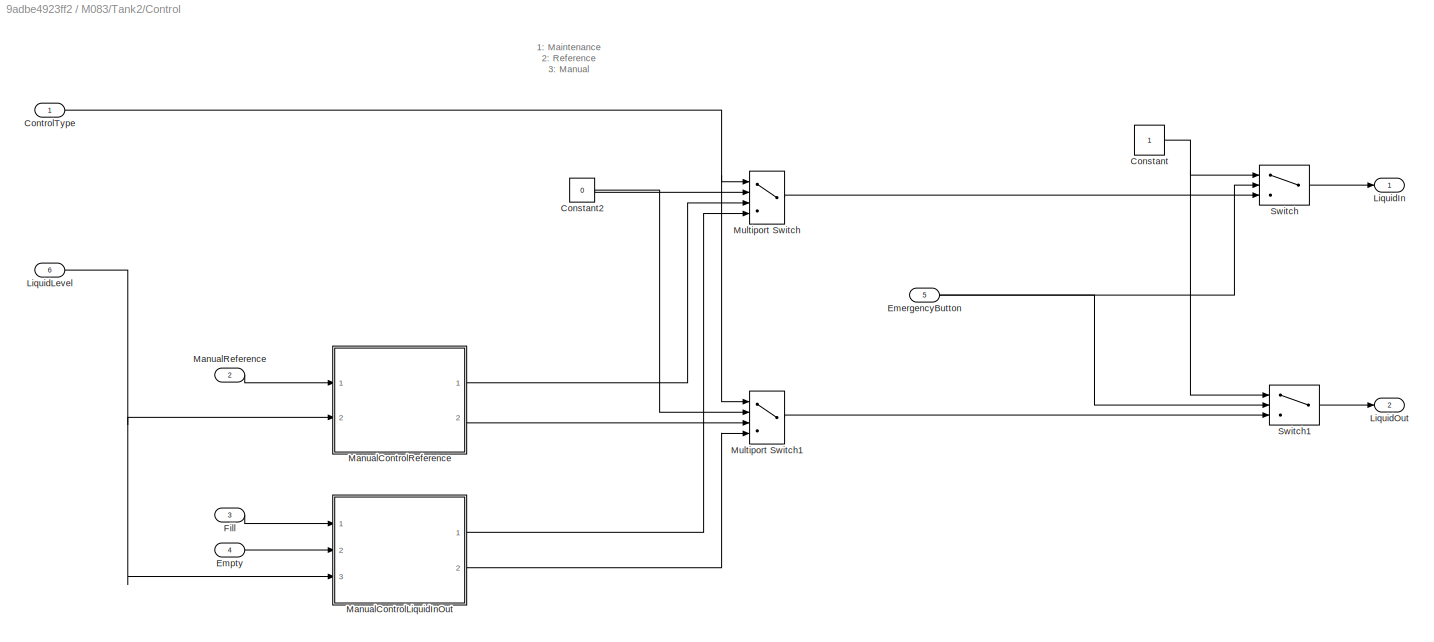
BLOCK [SubSystem] M083/Tank2/Control
  Ports = [6, 2]
  RequestExecContextInheritance = off
BLOCK [Constant] M083/Tank2/Control/Constant
BLOCK [Constant] M083/Tank2/Control/Constant2
  Value = 0
BLOCK [Inport] M083/Tank2/Control/ControlType
  IconDisplay = Port number
BLOCK [Inport] M083/Tank2/Control/EmergencyButton
  IconDisplay = Port number
  Port = 5
BLOCK [Inport] M083/Tank2/Control/Empty
  IconDisplay = Port number
  Port = 4
BLOCK [Inport] M083/Tank2/Control/Fill
  IconDisplay = Port number
  Port = 3
BLOCK [Outport] M083/Tank2/Control/LiquidIn
  IconDisplay = Port number
BLOCK [Inport] M083/Tank2/Control/LiquidLevel
  IconDisplay = Port number
  Port = 6
BLOCK [Outport] M083/Tank2/Control/LiquidOut
  IconDisplay = Port number
  Port = 2
BLOCK [SubSystem] M083/Tank2/Control/ManualControlLiquidInOut
  Ports = [3, 2]
  RequestExecContextInheritance = off
BLOCK [Constant] M083/Tank2/Control/ManualControlLiquidInOut/Constant
  Value = hmax*0.9
BLOCK [Constant] M083/Tank2/Control/ManualControlLiquidInOut/Constant1
  Value = 0.001
BLOCK [Inport] M083/Tank2/Control/ManualControlLiquidInOut/Empty
  IconDisplay = Port number
  Port = 2
BLOCK [Inport] M083/Tank2/Control/ManualControlLiquidInOut/Fill
  IconDisplay = Port number
BLOCK [Outport] M083/Tank2/Control/ManualControlLiquidInOut/LiquidIn
  IconDisplay = Port number
BLOCK [Inport] M083/Tank2/Control/ManualControlLiquidInOut/LiquidLevel
  IconDisplay = Port number
  Port = 3
BLOCK [Outport] M083/Tank2/Control/ManualControlLiquidInOut/LiquidOut
  IconDisplay = Port number
  Port = 2
BLOCK [Logic] M083/Tank2/Control/ManualControlLiquidInOut/Logical Operator
  AllPortsSameDT = off
  OutDataTypeStr = boolean
  Ports = [2, 1]
BLOCK [Logic] M083/Tank2/Control/ManualControlLiquidInOut/Logical Operator1
  AllPortsSameDT = off
  OutDataTypeStr = boolean
  Ports = [2, 1]
BLOCK [Logic] M083/Tank2/Control/ManualControlLiquidInOut/Logical Operator2
  AllPortsSameDT = off
  OutDataTypeStr = boolean
  Ports = [2, 1]
BLOCK [Logic] M083/Tank2/Control/ManualControlLiquidInOut/Logical Operator3
  AllPortsSameDT = off
  Operator = NOT
  OutDataTypeStr = boolean
  Ports = [1, 1]
BLOCK [Logic] M083/Tank2/Control/ManualControlLiquidInOut/Logical Operator4
  AllPortsSameDT = off
  OutDataTypeStr = boolean
  Ports = [2, 1]
BLOCK [Logic] M083/Tank2/Control/ManualControlLiquidInOut/Logical Operator5
  AllPortsSameDT = off
  Operator = NOT
  OutDataTypeStr = boolean
  Ports = [1, 1]
BLOCK [RelationalOperator] M083/Tank2/Control/ManualControlLiquidInOut/Relational Operator1
  InputSameDT = off
  Operator = <
  OutDataTypeStr = boolean
  Ports = [2, 1]
  RndMeth = Simplest
BLOCK [RelationalOperator] M083/Tank2/Control/ManualControlLiquidInOut/Relational Operator2
  InputSameDT = off
  Operator = <
  OutDataTypeStr = boolean
  Ports = [2, 1]
  RndMeth = Simplest
BLOCK [SubSystem] M083/Tank2/Control/ManualControlReference
  Ports = [2, 2]
  RequestExecContextInheritance = off
BLOCK [Sum] M083/Tank2/Control/ManualControlReference/Add
  InputSameDT = off
  Inputs = +-
  OutDataTypeStr = Inherit: Inherit via internal rule
  Ports = [2, 1]
  SaturateOnIntegerOverflow = off
BLOCK [Sum] M083/Tank2/Control/ManualControlReference/Add1
  InputSameDT = off
  Inputs = +-
  OutDataTypeStr = Inherit: Inherit via internal rule
  Ports = [2, 1]
  SaturateOnIntegerOverflow = off
BLOCK [Gain] M083/Tank2/Control/ManualControlReference/Gain1
  Gain = 0.95
  OutDataTypeStr = Inherit: Inherit via internal rule
  ParamDataTypeStr = Inherit: Inherit via internal rule
  SaturateOnIntegerOverflow = off
BLOCK [Gain] M083/Tank2/Control/ManualControlReference/Gain2
  Gain = 0.95
  OutDataTypeStr = Inherit: Inherit via internal rule
  ParamDataTypeStr = Inherit: Inherit via internal rule
  SaturateOnIntegerOverflow = off
BLOCK [Outport] M083/Tank2/Control/ManualControlReference/LiquidIn
  IconDisplay = Port number
BLOCK [Inport] M083/Tank2/Control/ManualControlReference/LiquidLevel
  IconDisplay = Port number
  Port = 2
BLOCK [Outport] M083/Tank2/Control/ManualControlReference/LiquidOut
  IconDisplay = Port number
  Port = 2
BLOCK [Inport] M083/Tank2/Control/ManualControlReference/ManualReference
  IconDisplay = Port number
BLOCK [RelationalOperator] M083/Tank2/Control/ManualControlReference/Relational Operator
  InputSameDT = off
  Operator = >
  OutDataTypeStr = boolean
  Ports = [2, 1]
  RndMeth = Simplest
BLOCK [RelationalOperator] M083/Tank2/Control/ManualControlReference/Relational Operator1
  InputSameDT = off
  Operator = <
  OutDataTypeStr = boolean
  Ports = [2, 1]
  RndMeth = Simplest
BLOCK [Saturate] M083/Tank2/Control/ManualControlReference/Saturation1
  InputPortMap = u0
  LowerLimit = 0
  Ports = [1, 1]
  UpperLimit = hmax*0.9
BLOCK [Inport] M083/Tank2/Control/ManualReference
  IconDisplay = Port number
  Port = 2
BLOCK [MultiPortSwitch] M083/Tank2/Control/Multiport Switch
  InputSameDT = off
  Ports = [4, 1]
  SaturateOnIntegerOverflow = off
BLOCK [MultiPortSwitch] M083/Tank2/Control/Multiport Switch1
  InputSameDT = off
  Ports = [4, 1]
  SaturateOnIntegerOverflow = off
BLOCK [Switch] M083/Tank2/Control/Switch
  Criteria = u2 > Threshold
  InputSameDT = off
  SaturateOnIntegerOverflow = off
BLOCK [Switch] M083/Tank2/Control/Switch1
  Criteria = u2 > Threshold
  InputSameDT = off
  SaturateOnIntegerOverflow = off
BLOCK [Inport] M083/Tank2/E2
  IconDisplay = Port number
  Port = 3
BLOCK [Inport] M083/Tank2/EB2
  IconDisplay = Port number
  Port = 6
BLOCK [Inport] M083/Tank2/F2
  IconDisplay = Port number
  Port = 2
BLOCK [Outport] M083/Tank2/LL2
  IconDisplay = Port number
BLOCK [Inport] M083/Tank2/MR2
  IconDisplay = Port number
  Port = 4
BLOCK [Memory] M083/Tank2/Memory
BLOCK [Inport] M083/Tank2/T2
  IconDisplay = Port number
  Port = 5
BLOCK [SubSystem] M083/Tank2/TankModel
  Ports = [2, 1]
  RequestExecContextInheritance = off
BLOCK [Sum] M083/Tank2/TankModel/Add1
  InputSameDT = off
  Inputs = +-
  OutDataTypeStr = Inherit: Inherit via internal rule
  Ports = [2, 1]
  SaturateOnIntegerOverflow = off
BLOCK [Constant] M083/Tank2/TankModel/Constant1
  Value = 0
BLOCK [Constant] M083/Tank2/TankModel/Constant2
  Value = 0
BLOCK [Constant] M083/Tank2/TankModel/Constant3
BLOCK [Gain] M083/Tank2/TankModel/Gain
  Gain = 1/R1
  OutDataTypeStr = Inherit: Inherit via internal rule
  ParamDataTypeStr = Inherit: Inherit via internal rule
  SaturateOnIntegerOverflow = off
BLOCK [Gain] M083/Tank2/TankModel/Gain1
  Gain = 1/A1
  OutDataTypeStr = Inherit: Inherit via internal rule
  ParamDataTypeStr = Inherit: Inherit via internal rule
  SaturateOnIntegerOverflow = off
BLOCK [Gain] M083/Tank2/TankModel/Gain2
  Gain = 1/R2
  OutDataTypeStr = Inherit: Inherit via internal rule
  ParamDataTypeStr = Inherit: Inherit via internal rule
  SaturateOnIntegerOverflow = off
BLOCK [Integrator] M083/Tank2/TankModel/Integrator
  Ports = [1, 1]
BLOCK [Inport] M083/Tank2/TankModel/LiquidIn
  IconDisplay = Port number
BLOCK [Outport] M083/Tank2/TankModel/LiquidLevel
  IconDisplay = Port number
BLOCK [Inport] M083/Tank2/TankModel/LiquidOut
  IconDisplay = Port number
  Port = 2
BLOCK [Saturate] M083/Tank2/TankModel/Saturation
  InputPortMap = u0
  LowerLimit = 0
  Ports = [1, 1]
  UpperLimit = hmax
BLOCK [Switch] M083/Tank2/TankModel/Switch
  Criteria = u2 ~= 0
  InputSameDT = off
  SaturateOnIntegerOverflow = off
BLOCK [Switch] M083/Tank2/TankModel/Switch1
  Criteria = u2 ~= 0
  InputSameDT = off
  SaturateOnIntegerOverflow = off
BLOCK [SubSystem] M118
  Ports = [6, 1]
  RequestExecContextInheritance = off
BLOCK [Inport] M118/CT2
  IconDisplay = Port number
BLOCK [Inport] M118/E2
  IconDisplay = Port number
  Port = 3
BLOCK [Inport] M118/EB2
  IconDisplay = Port number
  Port = 6
BLOCK [Inport] M118/F2
  IconDisplay = Port number
  Port = 2
BLOCK [Outport] M118/LL2
  IconDisplay = Port number
BLOCK [Inport] M118/MR2
  IconDisplay = Port number
  Port = 4
BLOCK [Inport] M118/T2
  IconDisplay = Port number
  Port = 5
BLOCK [SubSystem] M118/Tank2
  Ports = [6, 1]
  RequestExecContextInheritance = off
BLOCK [Inport] M118/Tank2/CT2
  IconDisplay = Port number
BLOCK [SubSystem] M118/Tank2/Control
  Ports = [6, 2]
  RequestExecContextInheritance = off
BLOCK [Constant] M118/Tank2/Control/Constant
  Value = 0
BLOCK [Constant] M118/Tank2/Control/Constant2
  Value = 0
BLOCK [Inport] M118/Tank2/Control/ControlType
  IconDisplay = Port number
BLOCK [Inport] M118/Tank2/Control/EmergencyButton
  IconDisplay = Port number
  Port = 5
BLOCK [Inport] M118/Tank2/Control/Empty
  IconDisplay = Port number
  Port = 4
BLOCK [Inport] M118/Tank2/Control/Fill
  IconDisplay = Port number
  Port = 3
BLOCK [Outport] M118/Tank2/Control/LiquidIn
  IconDisplay = Port number
BLOCK [Inport] M118/Tank2/Control/LiquidLevel
  IconDisplay = Port number
  Port = 6
BLOCK [Outport] M118/Tank2/Control/LiquidOut
  IconDisplay = Port number
  Port = 2
BLOCK [SubSystem] M118/Tank2/Control/ManualControlLiquidInOut
  Ports = [3, 2]
  RequestExecContextInheritance = off
BLOCK [Constant] M118/Tank2/Control/ManualControlLiquidInOut/Constant
  Value = hmax*0.1
BLOCK [Constant] M118/Tank2/Control/ManualControlLiquidInOut/Constant1
  Value = 0.001
BLOCK [Inport] M118/Tank2/Control/ManualControlLiquidInOut/Empty
  IconDisplay = Port number
  Port = 2
BLOCK [Inport] M118/Tank2/Control/ManualControlLiquidInOut/Fill
  IconDisplay = Port number
BLOCK [Outport] M118/Tank2/Control/ManualControlLiquidInOut/LiquidIn
  IconDisplay = Port number
BLOCK [Inport] M118/Tank2/Control/ManualControlLiquidInOut/LiquidLevel
  IconDisplay = Port number
  Port = 3
BLOCK [Outport] M118/Tank2/Control/ManualControlLiquidInOut/LiquidOut
  IconDisplay = Port number
  Port = 2
BLOCK [Logic] M118/Tank2/Control/ManualControlLiquidInOut/Logical Operator
  AllPortsSameDT = off
  OutDataTypeStr = boolean
  Ports = [2, 1]
BLOCK [Logic] M118/Tank2/Control/ManualControlLiquidInOut/Logical Operator1
  AllPortsSameDT = off
  OutDataTypeStr = boolean
  Ports = [2, 1]
BLOCK [Logic] M118/Tank2/Control/ManualControlLiquidInOut/Logical Operator2
  AllPortsSameDT = off
  OutDataTypeStr = boolean
  Ports = [2, 1]
BLOCK [Logic] M118/Tank2/Control/ManualControlLiquidInOut/Logical Operator3
  AllPortsSameDT = off
  Operator = NOT
  OutDataTypeStr = boolean
  Ports = [1, 1]
BLOCK [Logic] M118/Tank2/Control/ManualControlLiquidInOut/Logical Operator4
  AllPortsSameDT = off
  OutDataTypeStr = boolean
  Ports = [2, 1]
BLOCK [Logic] M118/Tank2/Control/ManualControlLiquidInOut/Logical Operator5
  AllPortsSameDT = off
  Operator = NOT
  OutDataTypeStr = boolean
  Ports = [1, 1]
BLOCK [RelationalOperator] M118/Tank2/Control/ManualControlLiquidInOut/Relational Operator1
  InputSameDT = off
  Operator = <
  OutDataTypeStr = boolean
  Ports = [2, 1]
  RndMeth = Simplest
BLOCK [RelationalOperator] M118/Tank2/Control/ManualControlLiquidInOut/Relational Operator2
  InputSameDT = off
  Operator = <
  OutDataTypeStr = boolean
  Ports = [2, 1]
  RndMeth = Simplest
BLOCK [SubSystem] M118/Tank2/Control/ManualControlReference
  Ports = [2, 2]
  RequestExecContextInheritance = off
BLOCK [Sum] M118/Tank2/Control/ManualControlReference/Add
  InputSameDT = off
  Inputs = +-
  OutDataTypeStr = Inherit: Inherit via internal rule
  Ports = [2, 1]
  SaturateOnIntegerOverflow = off
BLOCK [Sum] M118/Tank2/Control/ManualControlReference/Add1
  InputSameDT = off
  Inputs = +-
  OutDataTypeStr = Inherit: Inherit via internal rule
  Ports = [2, 1]
  SaturateOnIntegerOverflow = off
BLOCK [Gain] M118/Tank2/Control/ManualControlReference/Gain1
  Gain = 0.95
  OutDataTypeStr = Inherit: Inherit via internal rule
  ParamDataTypeStr = Inherit: Inherit via internal rule
  SaturateOnIntegerOverflow = off
BLOCK [Gain] M118/Tank2/Control/ManualControlReference/Gain2
  Gain = 0.95
  OutDataTypeStr = Inherit: Inherit via internal rule
  ParamDataTypeStr = Inherit: Inherit via internal rule
  SaturateOnIntegerOverflow = off
BLOCK [Outport] M118/Tank2/Control/ManualControlReference/LiquidIn
  IconDisplay = Port number
BLOCK [Inport] M118/Tank2/Control/ManualControlReference/LiquidLevel
  IconDisplay = Port number
  Port = 2
BLOCK [Outport] M118/Tank2/Control/ManualControlReference/LiquidOut
  IconDisplay = Port number
  Port = 2
BLOCK [Inport] M118/Tank2/Control/ManualControlReference/ManualReference
  IconDisplay = Port number
BLOCK [RelationalOperator] M118/Tank2/Control/ManualControlReference/Relational Operator
  InputSameDT = off
  Operator = >
  OutDataTypeStr = boolean
  Ports = [2, 1]
  RndMeth = Simplest
BLOCK [RelationalOperator] M118/Tank2/Control/ManualControlReference/Relational Operator1
  InputSameDT = off
  Operator = <
  OutDataTypeStr = boolean
  Ports = [2, 1]
  RndMeth = Simplest
BLOCK [Saturate] M118/Tank2/Control/ManualControlReference/Saturation1
  InputPortMap = u0
  LowerLimit = 0
  Ports = [1, 1]
  UpperLimit = hmax*0.9
BLOCK [Inport] M118/Tank2/Control/ManualReference
  IconDisplay = Port number
  Port = 2
BLOCK [MultiPortSwitch] M118/Tank2/Control/Multiport Switch
  InputSameDT = off
  Ports = [4, 1]
  SaturateOnIntegerOverflow = off
BLOCK [MultiPortSwitch] M118/Tank2/Control/Multiport Switch1
  InputSameDT = off
  Ports = [4, 1]
  SaturateOnIntegerOverflow = off
BLOCK [Switch] M118/Tank2/Control/Switch
  Criteria = u2 > Threshold
  InputSameDT = off
  SaturateOnIntegerOverflow = off
BLOCK [Switch] M118/Tank2/Control/Switch1
  Criteria = u2 > Threshold
  InputSameDT = off
  SaturateOnIntegerOverflow = off
BLOCK [Inport] M118/Tank2/E2
  IconDisplay = Port number
  Port = 3
BLOCK [Inport] M118/Tank2/EB2
  IconDisplay = Port number
  Port = 6
BLOCK [Inport] M118/Tank2/F2
  IconDisplay = Port number
  Port = 2
BLOCK [Outport] M118/Tank2/LL2
  IconDisplay = Port number
BLOCK [Inport] M118/Tank2/MR2
  IconDisplay = Port number
  Port = 4
BLOCK [Memory] M118/Tank2/Memory
BLOCK [Inport] M118/Tank2/T2
  IconDisplay = Port number
  Port = 5
BLOCK [SubSystem] M118/Tank2/TankModel
  Ports = [2, 1]
  RequestExecContextInheritance = off
BLOCK [Sum] M118/Tank2/TankModel/Add1
  InputSameDT = off
  Inputs = +-
  OutDataTypeStr = Inherit: Inherit via internal rule
  Ports = [2, 1]
  SaturateOnIntegerOverflow = off
BLOCK [Constant] M118/Tank2/TankModel/Constant1
  Value = 0
BLOCK [Constant] M118/Tank2/TankModel/Constant2
  Value = 0
BLOCK [Constant] M118/Tank2/TankModel/Constant3
BLOCK [Gain] M118/Tank2/TankModel/Gain
  Gain = 1/R1
  OutDataTypeStr = Inherit: Inherit via internal rule
  ParamDataTypeStr = Inherit: Inherit via internal rule
  SaturateOnIntegerOverflow = off
BLOCK [Gain] M118/Tank2/TankModel/Gain1
  Gain = 1/A1
  OutDataTypeStr = Inherit: Inherit via internal rule
  ParamDataTypeStr = Inherit: Inherit via internal rule
  SaturateOnIntegerOverflow = off
BLOCK [Gain] M118/Tank2/TankModel/Gain2
  Gain = 1/R2
  OutDataTypeStr = Inherit: Inherit via internal rule
  ParamDataTypeStr = Inherit: Inherit via internal rule
  SaturateOnIntegerOverflow = off
BLOCK [Integrator] M118/Tank2/TankModel/Integrator
  Ports = [1, 1]
BLOCK [Inport] M118/Tank2/TankModel/LiquidIn
  IconDisplay = Port number
BLOCK [Outport] M118/Tank2/TankModel/LiquidLevel
  IconDisplay = Port number
BLOCK [Inport] M118/Tank2/TankModel/LiquidOut
  IconDisplay = Port number
  Port = 2
BLOCK [Saturate] M118/Tank2/TankModel/Saturation
  InputPortMap = u0
  LowerLimit = 0
  Ports = [1, 1]
  UpperLimit = hmax
BLOCK [Switch] M118/Tank2/TankModel/Switch
  Criteria = u2 ~= 0
  InputSameDT = off
  SaturateOnIntegerOverflow = off
BLOCK [Switch] M118/Tank2/TankModel/Switch1
  Criteria = u2 ~= 0
  InputSameDT = off
  SaturateOnIntegerOverflow = off
BLOCK [SubSystem] M119
  Ports = [6, 1]
  RequestExecContextInheritance = off
BLOCK [Inport] M119/CT2
  IconDisplay = Port number
BLOCK [Inport] M119/E2
  IconDisplay = Port number
  Port = 3
BLOCK [Inport] M119/EB2
  IconDisplay = Port number
  Port = 6
BLOCK [Inport] M119/F2
  IconDisplay = Port number
  Port = 2
BLOCK [Outport] M119/LL2
  IconDisplay = Port number
BLOCK [Inport] M119/MR2
  IconDisplay = Port number
  Port = 4
BLOCK [Inport] M119/T2
  IconDisplay = Port number
  Port = 5
BLOCK [SubSystem] M119/Tank2
  Ports = [6, 1]
  RequestExecContextInheritance = off
BLOCK [Inport] M119/Tank2/CT2
  IconDisplay = Port number
BLOCK [SubSystem] M119/Tank2/Control
  Ports = [6, 2]
  RequestExecContextInheritance = off
BLOCK [Constant] M119/Tank2/Control/Constant
  Value = 0
BLOCK [Constant] M119/Tank2/Control/Constant2
  Value = 0
BLOCK [Inport] M119/Tank2/Control/ControlType
  IconDisplay = Port number
BLOCK [Inport] M119/Tank2/Control/EmergencyButton
  IconDisplay = Port number
  Port = 5
BLOCK [Inport] M119/Tank2/Control/Empty
  IconDisplay = Port number
  Port = 4
BLOCK [Inport] M119/Tank2/Control/Fill
  IconDisplay = Port number
  Port = 3
BLOCK [Outport] M119/Tank2/Control/LiquidIn
  IconDisplay = Port number
BLOCK [Inport] M119/Tank2/Control/LiquidLevel
  IconDisplay = Port number
  Port = 6
BLOCK [Outport] M119/Tank2/Control/LiquidOut
  IconDisplay = Port number
  Port = 2
BLOCK [SubSystem] M119/Tank2/Control/ManualControlLiquidInOut
  Ports = [3, 2]
  RequestExecContextInheritance = off
BLOCK [Constant] M119/Tank2/Control/ManualControlLiquidInOut/Constant
  Value = hmax*0.9
BLOCK [Constant] M119/Tank2/Control/ManualControlLiquidInOut/Constant1
  Value = 0.9
BLOCK [Inport] M119/Tank2/Control/ManualControlLiquidInOut/Empty
  IconDisplay = Port number
  Port = 2
BLOCK [Inport] M119/Tank2/Control/ManualControlLiquidInOut/Fill
  IconDisplay = Port number
BLOCK [Outport] M119/Tank2/Control/ManualControlLiquidInOut/LiquidIn
  IconDisplay = Port number
BLOCK [Inport] M119/Tank2/Control/ManualControlLiquidInOut/LiquidLevel
  IconDisplay = Port number
  Port = 3
BLOCK [Outport] M119/Tank2/Control/ManualControlLiquidInOut/LiquidOut
  IconDisplay = Port number
  Port = 2
BLOCK [Logic] M119/Tank2/Control/ManualControlLiquidInOut/Logical Operator
  AllPortsSameDT = off
  OutDataTypeStr = boolean
  Ports = [2, 1]
BLOCK [Logic] M119/Tank2/Control/ManualControlLiquidInOut/Logical Operator1
  AllPortsSameDT = off
  OutDataTypeStr = boolean
  Ports = [2, 1]
BLOCK [Logic] M119/Tank2/Control/ManualControlLiquidInOut/Logical Operator2
  AllPortsSameDT = off
  OutDataTypeStr = boolean
  Ports = [2, 1]
BLOCK [Logic] M119/Tank2/Control/ManualControlLiquidInOut/Logical Operator3
  AllPortsSameDT = off
  Operator = NOT
  OutDataTypeStr = boolean
  Ports = [1, 1]
BLOCK [Logic] M119/Tank2/Control/ManualControlLiquidInOut/Logical Operator4
  AllPortsSameDT = off
  OutDataTypeStr = boolean
  Ports = [2, 1]
BLOCK [Logic] M119/Tank2/Control/ManualControlLiquidInOut/Logical Operator5
  AllPortsSameDT = off
  Operator = NOT
  OutDataTypeStr = boolean
  Ports = [1, 1]
BLOCK [RelationalOperator] M119/Tank2/Control/ManualControlLiquidInOut/Relational Operator1
  InputSameDT = off
  Operator = <
  OutDataTypeStr = boolean
  Ports = [2, 1]
  RndMeth = Simplest
BLOCK [RelationalOperator] M119/Tank2/Control/ManualControlLiquidInOut/Relational Operator2
  InputSameDT = off
  Operator = <
  OutDataTypeStr = boolean
  Ports = [2, 1]
  RndMeth = Simplest
BLOCK [SubSystem] M119/Tank2/Control/ManualControlReference
  Ports = [2, 2]
  RequestExecContextInheritance = off
BLOCK [Sum] M119/Tank2/Control/ManualControlReference/Add
  InputSameDT = off
  Inputs = +-
  OutDataTypeStr = Inherit: Inherit via internal rule
  Ports = [2, 1]
  SaturateOnIntegerOverflow = off
BLOCK [Sum] M119/Tank2/Control/ManualControlReference/Add1
  InputSameDT = off
  Inputs = +-
  OutDataTypeStr = Inherit: Inherit via internal rule
  Ports = [2, 1]
  SaturateOnIntegerOverflow = off
BLOCK [Gain] M119/Tank2/Control/ManualControlReference/Gain1
  Gain = 0.95
  OutDataTypeStr = Inherit: Inherit via internal rule
  ParamDataTypeStr = Inherit: Inherit via internal rule
  SaturateOnIntegerOverflow = off
BLOCK [Gain] M119/Tank2/Control/ManualControlReference/Gain2
  Gain = 0.95
  OutDataTypeStr = Inherit: Inherit via internal rule
  ParamDataTypeStr = Inherit: Inherit via internal rule
  SaturateOnIntegerOverflow = off
BLOCK [Outport] M119/Tank2/Control/ManualControlReference/LiquidIn
  IconDisplay = Port number
BLOCK [Inport] M119/Tank2/Control/ManualControlReference/LiquidLevel
  IconDisplay = Port number
  Port = 2
BLOCK [Outport] M119/Tank2/Control/ManualControlReference/LiquidOut
  IconDisplay = Port number
  Port = 2
BLOCK [Inport] M119/Tank2/Control/ManualControlReference/ManualReference
  IconDisplay = Port number
BLOCK [RelationalOperator] M119/Tank2/Control/ManualControlReference/Relational Operator
  InputSameDT = off
  Operator = >
  OutDataTypeStr = boolean
  Ports = [2, 1]
  RndMeth = Simplest
BLOCK [RelationalOperator] M119/Tank2/Control/ManualControlReference/Relational Operator1
  InputSameDT = off
  Operator = <
  OutDataTypeStr = boolean
  Ports = [2, 1]
  RndMeth = Simplest
BLOCK [Saturate] M119/Tank2/Control/ManualControlReference/Saturation1
  InputPortMap = u0
  LowerLimit = 0
  Ports = [1, 1]
  UpperLimit = hmax*0.9
BLOCK [Inport] M119/Tank2/Control/ManualReference
  IconDisplay = Port number
  Port = 2
BLOCK [MultiPortSwitch] M119/Tank2/Control/Multiport Switch
  InputSameDT = off
  Ports = [4, 1]
  SaturateOnIntegerOverflow = off
BLOCK [MultiPortSwitch] M119/Tank2/Control/Multiport Switch1
  InputSameDT = off
  Ports = [4, 1]
  SaturateOnIntegerOverflow = off
BLOCK [Switch] M119/Tank2/Control/Switch
  Criteria = u2 > Threshold
  InputSameDT = off
  SaturateOnIntegerOverflow = off
BLOCK [Switch] M119/Tank2/Control/Switch1
  Criteria = u2 > Threshold
  InputSameDT = off
  SaturateOnIntegerOverflow = off
BLOCK [Inport] M119/Tank2/E2
  IconDisplay = Port number
  Port = 3
BLOCK [Inport] M119/Tank2/EB2
  IconDisplay = Port number
  Port = 6
BLOCK [Inport] M119/Tank2/F2
  IconDisplay = Port number
  Port = 2
BLOCK [Outport] M119/Tank2/LL2
  IconDisplay = Port number
BLOCK [Inport] M119/Tank2/MR2
  IconDisplay = Port number
  Port = 4
BLOCK [Memory] M119/Tank2/Memory
BLOCK [Inport] M119/Tank2/T2
  IconDisplay = Port number
  Port = 5
BLOCK [SubSystem] M119/Tank2/TankModel
  Ports = [2, 1]
  RequestExecContextInheritance = off
BLOCK [Sum] M119/Tank2/TankModel/Add1
  InputSameDT = off
  Inputs = +-
  OutDataTypeStr = Inherit: Inherit via internal rule
  Ports = [2, 1]
  SaturateOnIntegerOverflow = off
BLOCK [Constant] M119/Tank2/TankModel/Constant1
  Value = 0
BLOCK [Constant] M119/Tank2/TankModel/Constant2
  Value = 0
BLOCK [Constant] M119/Tank2/TankModel/Constant3
BLOCK [Gain] M119/Tank2/TankModel/Gain
  Gain = 1/R1
  OutDataTypeStr = Inherit: Inherit via internal rule
  ParamDataTypeStr = Inherit: Inherit via internal rule
  SaturateOnIntegerOverflow = off
BLOCK [Gain] M119/Tank2/TankModel/Gain1
  Gain = 1/A1
  OutDataTypeStr = Inherit: Inherit via internal rule
  ParamDataTypeStr = Inherit: Inherit via internal rule
  SaturateOnIntegerOverflow = off
BLOCK [Gain] M119/Tank2/TankModel/Gain2
  Gain = 1/R2
  OutDataTypeStr = Inherit: Inherit via internal rule
  ParamDataTypeStr = Inherit: Inherit via internal rule
  SaturateOnIntegerOverflow = off
BLOCK [Integrator] M119/Tank2/TankModel/Integrator
  Ports = [1, 1]
BLOCK [Inport] M119/Tank2/TankModel/LiquidIn
  IconDisplay = Port number
BLOCK [Outport] M119/Tank2/TankModel/LiquidLevel
  IconDisplay = Port number
BLOCK [Inport] M119/Tank2/TankModel/LiquidOut
  IconDisplay = Port number
  Port = 2
BLOCK [Saturate] M119/Tank2/TankModel/Saturation
  InputPortMap = u0
  LowerLimit = 0
  Ports = [1, 1]
  UpperLimit = hmax
BLOCK [Switch] M119/Tank2/TankModel/Switch
  Criteria = u2 ~= 0
  InputSameDT = off
  SaturateOnIntegerOverflow = off
BLOCK [Switch] M119/Tank2/TankModel/Switch1
  Criteria = u2 ~= 0
  InputSameDT = off
  SaturateOnIntegerOverflow = off
BLOCK [SubSystem] M120
  Ports = [6, 1]
  RequestExecContextInheritance = off
BLOCK [Inport] M120/CT2
  IconDisplay = Port number
BLOCK [Inport] M120/E2
  IconDisplay = Port number
  Port = 3
BLOCK [Inport] M120/EB2
  IconDisplay = Port number
  Port = 6
BLOCK [Inport] M120/F2
  IconDisplay = Port number
  Port = 2
BLOCK [Outport] M120/LL2
  IconDisplay = Port number
BLOCK [Inport] M120/MR2
  IconDisplay = Port number
  Port = 4
BLOCK [Inport] M120/T2
  IconDisplay = Port number
  Port = 5
BLOCK [SubSystem] M120/Tank2
  Ports = [6, 1]
  RequestExecContextInheritance = off
BLOCK [Inport] M120/Tank2/CT2
  IconDisplay = Port number
BLOCK [SubSystem] M120/Tank2/Control
  Ports = [6, 2]
  RequestExecContextInheritance = off
BLOCK [Constant] M120/Tank2/Control/Constant
  Value = 0
BLOCK [Constant] M120/Tank2/Control/Constant2
  Value = 0
BLOCK [Inport] M120/Tank2/Control/ControlType
  IconDisplay = Port number
BLOCK [Inport] M120/Tank2/Control/EmergencyButton
  IconDisplay = Port number
  Port = 5
BLOCK [Inport] M120/Tank2/Control/Empty
  IconDisplay = Port number
  Port = 4
BLOCK [Inport] M120/Tank2/Control/Fill
  IconDisplay = Port number
  Port = 3
BLOCK [Outport] M120/Tank2/Control/LiquidIn
  IconDisplay = Port number
BLOCK [Inport] M120/Tank2/Control/LiquidLevel
  IconDisplay = Port number
  Port = 6
BLOCK [Outport] M120/Tank2/Control/LiquidOut
  IconDisplay = Port number
  Port = 2
BLOCK [SubSystem] M120/Tank2/Control/ManualControlLiquidInOut
  Ports = [3, 2]
  RequestExecContextInheritance = off
BLOCK [Constant] M120/Tank2/Control/ManualControlLiquidInOut/Constant
  Value = hmax*0.9
BLOCK [Constant] M120/Tank2/Control/ManualControlLiquidInOut/Constant1
  Value = 0.001
BLOCK [Inport] M120/Tank2/Control/ManualControlLiquidInOut/Empty
  IconDisplay = Port number
  Port = 2
BLOCK [Inport] M120/Tank2/Control/ManualControlLiquidInOut/Fill
  IconDisplay = Port number
BLOCK [Outport] M120/Tank2/Control/ManualControlLiquidInOut/LiquidIn
  IconDisplay = Port number
BLOCK [Inport] M120/Tank2/Control/ManualControlLiquidInOut/LiquidLevel
  IconDisplay = Port number
  Port = 3
BLOCK [Outport] M120/Tank2/Control/ManualControlLiquidInOut/LiquidOut
  IconDisplay = Port number
  Port = 2
BLOCK [Logic] M120/Tank2/Control/ManualControlLiquidInOut/Logical Operator
  AllPortsSameDT = off
  Operator = OR
  OutDataTypeStr = boolean
  Ports = [2, 1]
BLOCK [Logic] M120/Tank2/Control/ManualControlLiquidInOut/Logical Operator1
  AllPortsSameDT = off
  OutDataTypeStr = boolean
  Ports = [2, 1]
BLOCK [Logic] M120/Tank2/Control/ManualControlLiquidInOut/Logical Operator2
  AllPortsSameDT = off
  OutDataTypeStr = boolean
  Ports = [2, 1]
BLOCK [Logic] M120/Tank2/Control/ManualControlLiquidInOut/Logical Operator3
  AllPortsSameDT = off
  Operator = NOT
  OutDataTypeStr = boolean
  Ports = [1, 1]
BLOCK [Logic] M120/Tank2/Control/ManualControlLiquidInOut/Logical Operator4
  AllPortsSameDT = off
  OutDataTypeStr = boolean
  Ports = [2, 1]
BLOCK [Logic] M120/Tank2/Control/ManualControlLiquidInOut/Logical Operator5
  AllPortsSameDT = off
  Operator = NOT
  OutDataTypeStr = boolean
  Ports = [1, 1]
BLOCK [RelationalOperator] M120/Tank2/Control/ManualControlLiquidInOut/Relational Operator1
  InputSameDT = off
  Operator = <
  OutDataTypeStr = boolean
  Ports = [2, 1]
  RndMeth = Simplest
BLOCK [RelationalOperator] M120/Tank2/Control/ManualControlLiquidInOut/Relational Operator2
  InputSameDT = off
  Operator = <
  OutDataTypeStr = boolean
  Ports = [2, 1]
  RndMeth = Simplest
BLOCK [SubSystem] M120/Tank2/Control/ManualControlReference
  Ports = [2, 2]
  RequestExecContextInheritance = off
BLOCK [Sum] M120/Tank2/Control/ManualControlReference/Add
  InputSameDT = off
  Inputs = +-
  OutDataTypeStr = Inherit: Inherit via internal rule
  Ports = [2, 1]
  SaturateOnIntegerOverflow = off
BLOCK [Sum] M120/Tank2/Control/ManualControlReference/Add1
  InputSameDT = off
  Inputs = +-
  OutDataTypeStr = Inherit: Inherit via internal rule
  Ports = [2, 1]
  SaturateOnIntegerOverflow = off
BLOCK [Gain] M120/Tank2/Control/ManualControlReference/Gain1
  Gain = 0.95
  OutDataTypeStr = Inherit: Inherit via internal rule
  ParamDataTypeStr = Inherit: Inherit via internal rule
  SaturateOnIntegerOverflow = off
BLOCK [Gain] M120/Tank2/Control/ManualControlReference/Gain2
  Gain = 0.95
  OutDataTypeStr = Inherit: Inherit via internal rule
  ParamDataTypeStr = Inherit: Inherit via internal rule
  SaturateOnIntegerOverflow = off
BLOCK [Outport] M120/Tank2/Control/ManualControlReference/LiquidIn
  IconDisplay = Port number
BLOCK [Inport] M120/Tank2/Control/ManualControlReference/LiquidLevel
  IconDisplay = Port number
  Port = 2
BLOCK [Outport] M120/Tank2/Control/ManualControlReference/LiquidOut
  IconDisplay = Port number
  Port = 2
BLOCK [Inport] M120/Tank2/Control/ManualControlReference/ManualReference
  IconDisplay = Port number
BLOCK [RelationalOperator] M120/Tank2/Control/ManualControlReference/Relational Operator
  InputSameDT = off
  Operator = >
  OutDataTypeStr = boolean
  Ports = [2, 1]
  RndMeth = Simplest
BLOCK [RelationalOperator] M120/Tank2/Control/ManualControlReference/Relational Operator1
  InputSameDT = off
  Operator = <
  OutDataTypeStr = boolean
  Ports = [2, 1]
  RndMeth = Simplest
BLOCK [Saturate] M120/Tank2/Control/ManualControlReference/Saturation1
  InputPortMap = u0
  LowerLimit = 0
  Ports = [1, 1]
  UpperLimit = hmax*0.9
BLOCK [Inport] M120/Tank2/Control/ManualReference
  IconDisplay = Port number
  Port = 2
BLOCK [MultiPortSwitch] M120/Tank2/Control/Multiport Switch
  InputSameDT = off
  Ports = [4, 1]
  SaturateOnIntegerOverflow = off
BLOCK [MultiPortSwitch] M120/Tank2/Control/Multiport Switch1
  InputSameDT = off
  Ports = [4, 1]
  SaturateOnIntegerOverflow = off
BLOCK [Switch] M120/Tank2/Control/Switch
  Criteria = u2 > Threshold
  InputSameDT = off
  SaturateOnIntegerOverflow = off
BLOCK [Switch] M120/Tank2/Control/Switch1
  Criteria = u2 > Threshold
  InputSameDT = off
  SaturateOnIntegerOverflow = off
BLOCK [Inport] M120/Tank2/E2
  IconDisplay = Port number
  Port = 3
BLOCK [Inport] M120/Tank2/EB2
  IconDisplay = Port number
  Port = 6
BLOCK [Inport] M120/Tank2/F2
  IconDisplay = Port number
  Port = 2
BLOCK [Outport] M120/Tank2/LL2
  IconDisplay = Port number
BLOCK [Inport] M120/Tank2/MR2
  IconDisplay = Port number
  Port = 4
BLOCK [Memory] M120/Tank2/Memory
BLOCK [Inport] M120/Tank2/T2
  IconDisplay = Port number
  Port = 5
BLOCK [SubSystem] M120/Tank2/TankModel
  Ports = [2, 1]
  RequestExecContextInheritance = off
BLOCK [Sum] M120/Tank2/TankModel/Add1
  InputSameDT = off
  Inputs = +-
  OutDataTypeStr = Inherit: Inherit via internal rule
  Ports = [2, 1]
  SaturateOnIntegerOverflow = off
BLOCK [Constant] M120/Tank2/TankModel/Constant1
  Value = 0
BLOCK [Constant] M120/Tank2/TankModel/Constant2
  Value = 0
BLOCK [Constant] M120/Tank2/TankModel/Constant3
BLOCK [Gain] M120/Tank2/TankModel/Gain
  Gain = 1/R1
  OutDataTypeStr = Inherit: Inherit via internal rule
  ParamDataTypeStr = Inherit: Inherit via internal rule
  SaturateOnIntegerOverflow = off
BLOCK [Gain] M120/Tank2/TankModel/Gain1
  Gain = 1/A1
  OutDataTypeStr = Inherit: Inherit via internal rule
  ParamDataTypeStr = Inherit: Inherit via internal rule
  SaturateOnIntegerOverflow = off
BLOCK [Gain] M120/Tank2/TankModel/Gain2
  Gain = 1/R2
  OutDataTypeStr = Inherit: Inherit via internal rule
  ParamDataTypeStr = Inherit: Inherit via internal rule
  SaturateOnIntegerOverflow = off
BLOCK [Integrator] M120/Tank2/TankModel/Integrator
  Ports = [1, 1]
BLOCK [Inport] M120/Tank2/TankModel/LiquidIn
  IconDisplay = Port number
BLOCK [Outport] M120/Tank2/TankModel/LiquidLevel
  IconDisplay = Port number
BLOCK [Inport] M120/Tank2/TankModel/LiquidOut
  IconDisplay = Port number
  Port = 2
BLOCK [Saturate] M120/Tank2/TankModel/Saturation
  InputPortMap = u0
  LowerLimit = 0
  Ports = [1, 1]
  UpperLimit = hmax
BLOCK [Switch] M120/Tank2/TankModel/Switch
  Criteria = u2 ~= 0
  InputSameDT = off
  SaturateOnIntegerOverflow = off
BLOCK [Switch] M120/Tank2/TankModel/Switch1
  Criteria = u2 ~= 0
  InputSameDT = off
  SaturateOnIntegerOverflow = off
BLOCK [SubSystem] M121
  Ports = [6, 1]
  RequestExecContextInheritance = off
BLOCK [Inport] M121/CT2
  IconDisplay = Port number
BLOCK [Inport] M121/E2
  IconDisplay = Port number
  Port = 3
BLOCK [Inport] M121/EB2
  IconDisplay = Port number
  Port = 6
BLOCK [Inport] M121/F2
  IconDisplay = Port number
  Port = 2
BLOCK [Outport] M121/LL2
  IconDisplay = Port number
BLOCK [Inport] M121/MR2
  IconDisplay = Port number
  Port = 4
BLOCK [Inport] M121/T2
  IconDisplay = Port number
  Port = 5
BLOCK [SubSystem] M121/Tank2
  Ports = [6, 1]
  RequestExecContextInheritance = off
BLOCK [Inport] M121/Tank2/CT2
  IconDisplay = Port number
BLOCK [SubSystem] M121/Tank2/Control
  Ports = [6, 2]
  RequestExecContextInheritance = off
BLOCK [Constant] M121/Tank2/Control/Constant
  Value = 0
BLOCK [Constant] M121/Tank2/Control/Constant2
  Value = 0
BLOCK [Inport] M121/Tank2/Control/ControlType
  IconDisplay = Port number
BLOCK [Inport] M121/Tank2/Control/EmergencyButton
  IconDisplay = Port number
  Port = 5
BLOCK [Inport] M121/Tank2/Control/Empty
  IconDisplay = Port number
  Port = 4
BLOCK [Inport] M121/Tank2/Control/Fill
  IconDisplay = Port number
  Port = 3
BLOCK [Outport] M121/Tank2/Control/LiquidIn
  IconDisplay = Port number
BLOCK [Inport] M121/Tank2/Control/LiquidLevel
  IconDisplay = Port number
  Port = 6
BLOCK [Outport] M121/Tank2/Control/LiquidOut
  IconDisplay = Port number
  Port = 2
BLOCK [SubSystem] M121/Tank2/Control/ManualControlLiquidInOut
  Ports = [3, 2]
  RequestExecContextInheritance = off
BLOCK [Constant] M121/Tank2/Control/ManualControlLiquidInOut/Constant
  Value = hmax*0.9
BLOCK [Constant] M121/Tank2/Control/ManualControlLiquidInOut/Constant1
  Value = 0.001
BLOCK [Inport] M121/Tank2/Control/ManualControlLiquidInOut/Empty
  IconDisplay = Port number
  Port = 2
BLOCK [Inport] M121/Tank2/Control/ManualControlLiquidInOut/Fill
  IconDisplay = Port number
BLOCK [Outport] M121/Tank2/Control/ManualControlLiquidInOut/LiquidIn
  IconDisplay = Port number
BLOCK [Inport] M121/Tank2/Control/ManualControlLiquidInOut/LiquidLevel
  IconDisplay = Port number
  Port = 3
BLOCK [Outport] M121/Tank2/Control/ManualControlLiquidInOut/LiquidOut
  IconDisplay = Port number
  Port = 2
BLOCK [Logic] M121/Tank2/Control/ManualControlLiquidInOut/Logical Operator
  AllPortsSameDT = off
  OutDataTypeStr = boolean
  Ports = [2, 1]
BLOCK [Logic] M121/Tank2/Control/ManualControlLiquidInOut/Logical Operator1
  AllPortsSameDT = off
  Operator = OR
  OutDataTypeStr = boolean
  Ports = [2, 1]
BLOCK [Logic] M121/Tank2/Control/ManualControlLiquidInOut/Logical Operator2
  AllPortsSameDT = off
  OutDataTypeStr = boolean
  Ports = [2, 1]
BLOCK [Logic] M121/Tank2/Control/ManualControlLiquidInOut/Logical Operator3
  AllPortsSameDT = off
  Operator = NOT
  OutDataTypeStr = boolean
  Ports = [1, 1]
BLOCK [Logic] M121/Tank2/Control/ManualControlLiquidInOut/Logical Operator4
  AllPortsSameDT = off
  OutDataTypeStr = boolean
  Ports = [2, 1]
BLOCK [Logic] M121/Tank2/Control/ManualControlLiquidInOut/Logical Operator5
  AllPortsSameDT = off
  Operator = NOT
  OutDataTypeStr = boolean
  Ports = [1, 1]
BLOCK [RelationalOperator] M121/Tank2/Control/ManualControlLiquidInOut/Relational Operator1
  InputSameDT = off
  Operator = <
  OutDataTypeStr = boolean
  Ports = [2, 1]
  RndMeth = Simplest
BLOCK [RelationalOperator] M121/Tank2/Control/ManualControlLiquidInOut/Relational Operator2
  InputSameDT = off
  Operator = <
  OutDataTypeStr = boolean
  Ports = [2, 1]
  RndMeth = Simplest
BLOCK [SubSystem] M121/Tank2/Control/ManualControlReference
  Ports = [2, 2]
  RequestExecContextInheritance = off
BLOCK [Sum] M121/Tank2/Control/ManualControlReference/Add
  InputSameDT = off
  Inputs = +-
  OutDataTypeStr = Inherit: Inherit via internal rule
  Ports = [2, 1]
  SaturateOnIntegerOverflow = off
BLOCK [Sum] M121/Tank2/Control/ManualControlReference/Add1
  InputSameDT = off
  Inputs = +-
  OutDataTypeStr = Inherit: Inherit via internal rule
  Ports = [2, 1]
  SaturateOnIntegerOverflow = off
BLOCK [Gain] M121/Tank2/Control/ManualControlReference/Gain1
  Gain = 0.95
  OutDataTypeStr = Inherit: Inherit via internal rule
  ParamDataTypeStr = Inherit: Inherit via internal rule
  SaturateOnIntegerOverflow = off
BLOCK [Gain] M121/Tank2/Control/ManualControlReference/Gain2
  Gain = 0.95
  OutDataTypeStr = Inherit: Inherit via internal rule
  ParamDataTypeStr = Inherit: Inherit via internal rule
  SaturateOnIntegerOverflow = off
BLOCK [Outport] M121/Tank2/Control/ManualControlReference/LiquidIn
  IconDisplay = Port number
BLOCK [Inport] M121/Tank2/Control/ManualControlReference/LiquidLevel
  IconDisplay = Port number
  Port = 2
BLOCK [Outport] M121/Tank2/Control/ManualControlReference/LiquidOut
  IconDisplay = Port number
  Port = 2
BLOCK [Inport] M121/Tank2/Control/ManualControlReference/ManualReference
  IconDisplay = Port number
BLOCK [RelationalOperator] M121/Tank2/Control/ManualControlReference/Relational Operator
  InputSameDT = off
  Operator = >
  OutDataTypeStr = boolean
  Ports = [2, 1]
  RndMeth = Simplest
BLOCK [RelationalOperator] M121/Tank2/Control/ManualControlReference/Relational Operator1
  InputSameDT = off
  Operator = <
  OutDataTypeStr = boolean
  Ports = [2, 1]
  RndMeth = Simplest
BLOCK [Saturate] M121/Tank2/Control/ManualControlReference/Saturation1
  InputPortMap = u0
  LowerLimit = 0
  Ports = [1, 1]
  UpperLimit = hmax*0.9
BLOCK [Inport] M121/Tank2/Control/ManualReference
  IconDisplay = Port number
  Port = 2
BLOCK [MultiPortSwitch] M121/Tank2/Control/Multiport Switch
  InputSameDT = off
  Ports = [4, 1]
  SaturateOnIntegerOverflow = off
BLOCK [MultiPortSwitch] M121/Tank2/Control/Multiport Switch1
  InputSameDT = off
  Ports = [4, 1]
  SaturateOnIntegerOverflow = off
BLOCK [Switch] M121/Tank2/Control/Switch
  Criteria = u2 > Threshold
  InputSameDT = off
  SaturateOnIntegerOverflow = off
BLOCK [Switch] M121/Tank2/Control/Switch1
  Criteria = u2 > Threshold
  InputSameDT = off
  SaturateOnIntegerOverflow = off
BLOCK [Inport] M121/Tank2/E2
  IconDisplay = Port number
  Port = 3
BLOCK [Inport] M121/Tank2/EB2
  IconDisplay = Port number
  Port = 6
BLOCK [Inport] M121/Tank2/F2
  IconDisplay = Port number
  Port = 2
BLOCK [Outport] M121/Tank2/LL2
  IconDisplay = Port number
BLOCK [Inport] M121/Tank2/MR2
  IconDisplay = Port number
  Port = 4
BLOCK [Memory] M121/Tank2/Memory
BLOCK [Inport] M121/Tank2/T2
  IconDisplay = Port number
  Port = 5
BLOCK [SubSystem] M121/Tank2/TankModel
  Ports = [2, 1]
  RequestExecContextInheritance = off
BLOCK [Sum] M121/Tank2/TankModel/Add1
  InputSameDT = off
  Inputs = +-
  OutDataTypeStr = Inherit: Inherit via internal rule
  Ports = [2, 1]
  SaturateOnIntegerOverflow = off
BLOCK [Constant] M121/Tank2/TankModel/Constant1
  Value = 0
BLOCK [Constant] M121/Tank2/TankModel/Constant2
  Value = 0
BLOCK [Constant] M121/Tank2/TankModel/Constant3
BLOCK [Gain] M121/Tank2/TankModel/Gain
  Gain = 1/R1
  OutDataTypeStr = Inherit: Inherit via internal rule
  ParamDataTypeStr = Inherit: Inherit via internal rule
  SaturateOnIntegerOverflow = off
BLOCK [Gain] M121/Tank2/TankModel/Gain1
  Gain = 1/A1
  OutDataTypeStr = Inherit: Inherit via internal rule
  ParamDataTypeStr = Inherit: Inherit via internal rule
  SaturateOnIntegerOverflow = off
BLOCK [Gain] M121/Tank2/TankModel/Gain2
  Gain = 1/R2
  OutDataTypeStr = Inherit: Inherit via internal rule
  ParamDataTypeStr = Inherit: Inherit via internal rule
  SaturateOnIntegerOverflow = off
BLOCK [Integrator] M121/Tank2/TankModel/Integrator
  Ports = [1, 1]
BLOCK [Inport] M121/Tank2/TankModel/LiquidIn
  IconDisplay = Port number
BLOCK [Outport] M121/Tank2/TankModel/LiquidLevel
  IconDisplay = Port number
BLOCK [Inport] M121/Tank2/TankModel/LiquidOut
  IconDisplay = Port number
  Port = 2
BLOCK [Saturate] M121/Tank2/TankModel/Saturation
  InputPortMap = u0
  LowerLimit = 0
  Ports = [1, 1]
  UpperLimit = hmax
BLOCK [Switch] M121/Tank2/TankModel/Switch
  Criteria = u2 ~= 0
  InputSameDT = off
  SaturateOnIntegerOverflow = off
BLOCK [Switch] M121/Tank2/TankModel/Switch1
  Criteria = u2 ~= 0
  InputSameDT = off
  SaturateOnIntegerOverflow = off
BLOCK [SubSystem] M122
  Ports = [6, 1]
  RequestExecContextInheritance = off
BLOCK [Inport] M122/CT2
  IconDisplay = Port number
BLOCK [Inport] M122/E2
  IconDisplay = Port number
  Port = 3
BLOCK [Inport] M122/EB2
  IconDisplay = Port number
  Port = 6
BLOCK [Inport] M122/F2
  IconDisplay = Port number
  Port = 2
BLOCK [Outport] M122/LL2
  IconDisplay = Port number
BLOCK [Inport] M122/MR2
  IconDisplay = Port number
  Port = 4
BLOCK [Inport] M122/T2
  IconDisplay = Port number
  Port = 5
BLOCK [SubSystem] M122/Tank2
  Ports = [6, 1]
  RequestExecContextInheritance = off
BLOCK [Inport] M122/Tank2/CT2
  IconDisplay = Port number
BLOCK [SubSystem] M122/Tank2/Control
  Ports = [6, 2]
  RequestExecContextInheritance = off
BLOCK [Constant] M122/Tank2/Control/Constant
  Value = 0
BLOCK [Constant] M122/Tank2/Control/Constant2
  Value = 0
BLOCK [Inport] M122/Tank2/Control/ControlType
  IconDisplay = Port number
BLOCK [Inport] M122/Tank2/Control/EmergencyButton
  IconDisplay = Port number
  Port = 5
BLOCK [Inport] M122/Tank2/Control/Empty
  IconDisplay = Port number
  Port = 4
BLOCK [Inport] M122/Tank2/Control/Fill
  IconDisplay = Port number
  Port = 3
BLOCK [Outport] M122/Tank2/Control/LiquidIn
  IconDisplay = Port number
BLOCK [Inport] M122/Tank2/Control/LiquidLevel
  IconDisplay = Port number
  Port = 6
BLOCK [Outport] M122/Tank2/Control/LiquidOut
  IconDisplay = Port number
  Port = 2
BLOCK [SubSystem] M122/Tank2/Control/ManualControlLiquidInOut
  Ports = [3, 2]
  RequestExecContextInheritance = off
BLOCK [Constant] M122/Tank2/Control/ManualControlLiquidInOut/Constant
  Value = hmax*0.9
BLOCK [Constant] M122/Tank2/Control/ManualControlLiquidInOut/Constant1
  Value = 0.001
BLOCK [Inport] M122/Tank2/Control/ManualControlLiquidInOut/Empty
  IconDisplay = Port number
  Port = 2
BLOCK [Inport] M122/Tank2/Control/ManualControlLiquidInOut/Fill
  IconDisplay = Port number
BLOCK [Outport] M122/Tank2/Control/ManualControlLiquidInOut/LiquidIn
  IconDisplay = Port number
BLOCK [Inport] M122/Tank2/Control/ManualControlLiquidInOut/LiquidLevel
  IconDisplay = Port number
  Port = 3
BLOCK [Outport] M122/Tank2/Control/ManualControlLiquidInOut/LiquidOut
  IconDisplay = Port number
  Port = 2
BLOCK [Logic] M122/Tank2/Control/ManualControlLiquidInOut/Logical Operator
  AllPortsSameDT = off
  OutDataTypeStr = boolean
  Ports = [2, 1]
BLOCK [Logic] M122/Tank2/Control/ManualControlLiquidInOut/Logical Operator1
  AllPortsSameDT = off
  OutDataTypeStr = boolean
  Ports = [2, 1]
BLOCK [Logic] M122/Tank2/Control/ManualControlLiquidInOut/Logical Operator2
  AllPortsSameDT = off
  Operator = OR
  OutDataTypeStr = boolean
  Ports = [2, 1]
BLOCK [Logic] M122/Tank2/Control/ManualControlLiquidInOut/Logical Operator3
  AllPortsSameDT = off
  Operator = NOT
  OutDataTypeStr = boolean
  Ports = [1, 1]
BLOCK [Logic] M122/Tank2/Control/ManualControlLiquidInOut/Logical Operator4
  AllPortsSameDT = off
  OutDataTypeStr = boolean
  Ports = [2, 1]
BLOCK [Logic] M122/Tank2/Control/ManualControlLiquidInOut/Logical Operator5
  AllPortsSameDT = off
  Operator = NOT
  OutDataTypeStr = boolean
  Ports = [1, 1]
BLOCK [RelationalOperator] M122/Tank2/Control/ManualControlLiquidInOut/Relational Operator1
  InputSameDT = off
  Operator = <
  OutDataTypeStr = boolean
  Ports = [2, 1]
  RndMeth = Simplest
BLOCK [RelationalOperator] M122/Tank2/Control/ManualControlLiquidInOut/Relational Operator2
  InputSameDT = off
  Operator = <
  OutDataTypeStr = boolean
  Ports = [2, 1]
  RndMeth = Simplest
BLOCK [SubSystem] M122/Tank2/Control/ManualControlReference
  Ports = [2, 2]
  RequestExecContextInheritance = off
BLOCK [Sum] M122/Tank2/Control/ManualControlReference/Add
  InputSameDT = off
  Inputs = +-
  OutDataTypeStr = Inherit: Inherit via internal rule
  Ports = [2, 1]
  SaturateOnIntegerOverflow = off
BLOCK [Sum] M122/Tank2/Control/ManualControlReference/Add1
  InputSameDT = off
  Inputs = +-
  OutDataTypeStr = Inherit: Inherit via internal rule
  Ports = [2, 1]
  SaturateOnIntegerOverflow = off
BLOCK [Gain] M122/Tank2/Control/ManualControlReference/Gain1
  Gain = 0.95
  OutDataTypeStr = Inherit: Inherit via internal rule
  ParamDataTypeStr = Inherit: Inherit via internal rule
  SaturateOnIntegerOverflow = off
BLOCK [Gain] M122/Tank2/Control/ManualControlReference/Gain2
  Gain = 0.95
  OutDataTypeStr = Inherit: Inherit via internal rule
  ParamDataTypeStr = Inherit: Inherit via internal rule
  SaturateOnIntegerOverflow = off
BLOCK [Outport] M122/Tank2/Control/ManualControlReference/LiquidIn
  IconDisplay = Port number
BLOCK [Inport] M122/Tank2/Control/ManualControlReference/LiquidLevel
  IconDisplay = Port number
  Port = 2
BLOCK [Outport] M122/Tank2/Control/ManualControlReference/LiquidOut
  IconDisplay = Port number
  Port = 2
BLOCK [Inport] M122/Tank2/Control/ManualControlReference/ManualReference
  IconDisplay = Port number
BLOCK [RelationalOperator] M122/Tank2/Control/ManualControlReference/Relational Operator
  InputSameDT = off
  Operator = >
  OutDataTypeStr = boolean
  Ports = [2, 1]
  RndMeth = Simplest
BLOCK [RelationalOperator] M122/Tank2/Control/ManualControlReference/Relational Operator1
  InputSameDT = off
  Operator = <
  OutDataTypeStr = boolean
  Ports = [2, 1]
  RndMeth = Simplest
BLOCK [Saturate] M122/Tank2/Control/ManualControlReference/Saturation1
  InputPortMap = u0
  LowerLimit = 0
  Ports = [1, 1]
  UpperLimit = hmax*0.9
BLOCK [Inport] M122/Tank2/Control/ManualReference
  IconDisplay = Port number
  Port = 2
BLOCK [MultiPortSwitch] M122/Tank2/Control/Multiport Switch
  InputSameDT = off
  Ports = [4, 1]
  SaturateOnIntegerOverflow = off
BLOCK [MultiPortSwitch] M122/Tank2/Control/Multiport Switch1
  InputSameDT = off
  Ports = [4, 1]
  SaturateOnIntegerOverflow = off
BLOCK [Switch] M122/Tank2/Control/Switch
  Criteria = u2 > Threshold
  InputSameDT = off
  SaturateOnIntegerOverflow = off
BLOCK [Switch] M122/Tank2/Control/Switch1
  Criteria = u2 > Threshold
  InputSameDT = off
  SaturateOnIntegerOverflow = off
BLOCK [Inport] M122/Tank2/E2
  IconDisplay = Port number
  Port = 3
BLOCK [Inport] M122/Tank2/EB2
  IconDisplay = Port number
  Port = 6
BLOCK [Inport] M122/Tank2/F2
  IconDisplay = Port number
  Port = 2
BLOCK [Outport] M122/Tank2/LL2
  IconDisplay = Port number
BLOCK [Inport] M122/Tank2/MR2
  IconDisplay = Port number
  Port = 4
BLOCK [Memory] M122/Tank2/Memory
BLOCK [Inport] M122/Tank2/T2
  IconDisplay = Port number
  Port = 5
BLOCK [SubSystem] M122/Tank2/TankModel
  Ports = [2, 1]
  RequestExecContextInheritance = off
BLOCK [Sum] M122/Tank2/TankModel/Add1
  InputSameDT = off
  Inputs = +-
  OutDataTypeStr = Inherit: Inherit via internal rule
  Ports = [2, 1]
  SaturateOnIntegerOverflow = off
BLOCK [Constant] M122/Tank2/TankModel/Constant1
  Value = 0
BLOCK [Constant] M122/Tank2/TankModel/Constant2
  Value = 0
BLOCK [Constant] M122/Tank2/TankModel/Constant3
BLOCK [Gain] M122/Tank2/TankModel/Gain
  Gain = 1/R1
  OutDataTypeStr = Inherit: Inherit via internal rule
  ParamDataTypeStr = Inherit: Inherit via internal rule
  SaturateOnIntegerOverflow = off
BLOCK [Gain] M122/Tank2/TankModel/Gain1
  Gain = 1/A1
  OutDataTypeStr = Inherit: Inherit via internal rule
  ParamDataTypeStr = Inherit: Inherit via internal rule
  SaturateOnIntegerOverflow = off
BLOCK [Gain] M122/Tank2/TankModel/Gain2
  Gain = 1/R2
  OutDataTypeStr = Inherit: Inherit via internal rule
  ParamDataTypeStr = Inherit: Inherit via internal rule
  SaturateOnIntegerOverflow = off
BLOCK [Integrator] M122/Tank2/TankModel/Integrator
  Ports = [1, 1]
BLOCK [Inport] M122/Tank2/TankModel/LiquidIn
  IconDisplay = Port number
BLOCK [Outport] M122/Tank2/TankModel/LiquidLevel
  IconDisplay = Port number
BLOCK [Inport] M122/Tank2/TankModel/LiquidOut
  IconDisplay = Port number
  Port = 2
BLOCK [Saturate] M122/Tank2/TankModel/Saturation
  InputPortMap = u0
  LowerLimit = 0
  Ports = [1, 1]
  UpperLimit = hmax
BLOCK [Switch] M122/Tank2/TankModel/Switch
  Criteria = u2 ~= 0
  InputSameDT = off
  SaturateOnIntegerOverflow = off
BLOCK [Switch] M122/Tank2/TankModel/Switch1
  Criteria = u2 ~= 0
  InputSameDT = off
  SaturateOnIntegerOverflow = off
BLOCK [SubSystem] M123
  Ports = [6, 1]
  RequestExecContextInheritance = off
BLOCK [Inport] M123/CT2
  IconDisplay = Port number
BLOCK [Inport] M123/E2
  IconDisplay = Port number
  Port = 3
BLOCK [Inport] M123/EB2
  IconDisplay = Port number
  Port = 6
BLOCK [Inport] M123/F2
  IconDisplay = Port number
  Port = 2
BLOCK [Outport] M123/LL2
  IconDisplay = Port number
BLOCK [Inport] M123/MR2
  IconDisplay = Port number
  Port = 4
BLOCK [Inport] M123/T2
  IconDisplay = Port number
  Port = 5
BLOCK [SubSystem] M123/Tank2
  Ports = [6, 1]
  RequestExecContextInheritance = off
BLOCK [Inport] M123/Tank2/CT2
  IconDisplay = Port number
BLOCK [SubSystem] M123/Tank2/Control
  Ports = [6, 2]
  RequestExecContextInheritance = off
BLOCK [Constant] M123/Tank2/Control/Constant
  Value = 0
BLOCK [Constant] M123/Tank2/Control/Constant2
  Value = 0
BLOCK [Inport] M123/Tank2/Control/ControlType
  IconDisplay = Port number
BLOCK [Inport] M123/Tank2/Control/EmergencyButton
  IconDisplay = Port number
  Port = 5
BLOCK [Inport] M123/Tank2/Control/Empty
  IconDisplay = Port number
  Port = 4
BLOCK [Inport] M123/Tank2/Control/Fill
  IconDisplay = Port number
  Port = 3
BLOCK [Outport] M123/Tank2/Control/LiquidIn
  IconDisplay = Port number
BLOCK [Inport] M123/Tank2/Control/LiquidLevel
  IconDisplay = Port number
  Port = 6
BLOCK [Outport] M123/Tank2/Control/LiquidOut
  IconDisplay = Port number
  Port = 2
BLOCK [SubSystem] M123/Tank2/Control/ManualControlLiquidInOut
  Ports = [3, 2]
  RequestExecContextInheritance = off
BLOCK [Constant] M123/Tank2/Control/ManualControlLiquidInOut/Constant
  Value = hmax*0.9
BLOCK [Constant] M123/Tank2/Control/ManualControlLiquidInOut/Constant1
  Value = 0.001
BLOCK [Inport] M123/Tank2/Control/ManualControlLiquidInOut/Empty
  IconDisplay = Port number
  Port = 2
BLOCK [Inport] M123/Tank2/Control/ManualControlLiquidInOut/Fill
  IconDisplay = Port number
BLOCK [Outport] M123/Tank2/Control/ManualControlLiquidInOut/LiquidIn
  IconDisplay = Port number
BLOCK [Inport] M123/Tank2/Control/ManualControlLiquidInOut/LiquidLevel
  IconDisplay = Port number
  Port = 3
BLOCK [Outport] M123/Tank2/Control/ManualControlLiquidInOut/LiquidOut
  IconDisplay = Port number
  Port = 2
BLOCK [Logic] M123/Tank2/Control/ManualControlLiquidInOut/Logical Operator
  AllPortsSameDT = off
  OutDataTypeStr = boolean
  Ports = [2, 1]
BLOCK [Logic] M123/Tank2/Control/ManualControlLiquidInOut/Logical Operator1
  AllPortsSameDT = off
  OutDataTypeStr = boolean
  Ports = [2, 1]
BLOCK [Logic] M123/Tank2/Control/ManualControlLiquidInOut/Logical Operator2
  AllPortsSameDT = off
  OutDataTypeStr = boolean
  Ports = [2, 1]
BLOCK [Logic] M123/Tank2/Control/ManualControlLiquidInOut/Logical Operator4
  AllPortsSameDT = off
  OutDataTypeStr = boolean
  Ports = [2, 1]
BLOCK [Logic] M123/Tank2/Control/ManualControlLiquidInOut/Logical Operator5
  AllPortsSameDT = off
  Operator = NOT
  OutDataTypeStr = boolean
  Ports = [1, 1]
BLOCK [RelationalOperator] M123/Tank2/Control/ManualControlLiquidInOut/Relational Operator1
  InputSameDT = off
  Operator = <
  OutDataTypeStr = boolean
  Ports = [2, 1]
  RndMeth = Simplest
BLOCK [RelationalOperator] M123/Tank2/Control/ManualControlLiquidInOut/Relational Operator2
  InputSameDT = off
  Operator = <
  OutDataTypeStr = boolean
  Ports = [2, 1]
  RndMeth = Simplest
BLOCK [SubSystem] M123/Tank2/Control/ManualControlReference
  Ports = [2, 2]
  RequestExecContextInheritance = off
BLOCK [Sum] M123/Tank2/Control/ManualControlReference/Add
  InputSameDT = off
  Inputs = +-
  OutDataTypeStr = Inherit: Inherit via internal rule
  Ports = [2, 1]
  SaturateOnIntegerOverflow = off
BLOCK [Sum] M123/Tank2/Control/ManualControlReference/Add1
  InputSameDT = off
  Inputs = +-
  OutDataTypeStr = Inherit: Inherit via internal rule
  Ports = [2, 1]
  SaturateOnIntegerOverflow = off
BLOCK [Gain] M123/Tank2/Control/ManualControlReference/Gain1
  Gain = 0.95
  OutDataTypeStr = Inherit: Inherit via internal rule
  ParamDataTypeStr = Inherit: Inherit via internal rule
  SaturateOnIntegerOverflow = off
BLOCK [Gain] M123/Tank2/Control/ManualControlReference/Gain2
  Gain = 0.95
  OutDataTypeStr = Inherit: Inherit via internal rule
  ParamDataTypeStr = Inherit: Inherit via internal rule
  SaturateOnIntegerOverflow = off
BLOCK [Outport] M123/Tank2/Control/ManualControlReference/LiquidIn
  IconDisplay = Port number
BLOCK [Inport] M123/Tank2/Control/ManualControlReference/LiquidLevel
  IconDisplay = Port number
  Port = 2
BLOCK [Outport] M123/Tank2/Control/ManualControlReference/LiquidOut
  IconDisplay = Port number
  Port = 2
BLOCK [Inport] M123/Tank2/Control/ManualControlReference/ManualReference
  IconDisplay = Port number
BLOCK [RelationalOperator] M123/Tank2/Control/ManualControlReference/Relational Operator
  InputSameDT = off
  Operator = >
  OutDataTypeStr = boolean
  Ports = [2, 1]
  RndMeth = Simplest
BLOCK [RelationalOperator] M123/Tank2/Control/ManualControlReference/Relational Operator1
  InputSameDT = off
  Operator = <
  OutDataTypeStr = boolean
  Ports = [2, 1]
  RndMeth = Simplest
BLOCK [Saturate] M123/Tank2/Control/ManualControlReference/Saturation1
  InputPortMap = u0
  LowerLimit = 0
  Ports = [1, 1]
  UpperLimit = hmax*0.9
BLOCK [Inport] M123/Tank2/Control/ManualReference
  IconDisplay = Port number
  Port = 2
BLOCK [MultiPortSwitch] M123/Tank2/Control/Multiport Switch
  InputSameDT = off
  Ports = [4, 1]
  SaturateOnIntegerOverflow = off
BLOCK [MultiPortSwitch] M123/Tank2/Control/Multiport Switch1
  InputSameDT = off
  Ports = [4, 1]
  SaturateOnIntegerOverflow = off
BLOCK [Switch] M123/Tank2/Control/Switch
  Criteria = u2 > Threshold
  InputSameDT = off
  SaturateOnIntegerOverflow = off
BLOCK [Switch] M123/Tank2/Control/Switch1
  Criteria = u2 > Threshold
  InputSameDT = off
  SaturateOnIntegerOverflow = off
BLOCK [Inport] M123/Tank2/E2
  IconDisplay = Port number
  Port = 3
BLOCK [Inport] M123/Tank2/EB2
  IconDisplay = Port number
  Port = 6
BLOCK [Inport] M123/Tank2/F2
  IconDisplay = Port number
  Port = 2
BLOCK [Outport] M123/Tank2/LL2
  IconDisplay = Port number
BLOCK [Inport] M123/Tank2/MR2
  IconDisplay = Port number
  Port = 4
BLOCK [Memory] M123/Tank2/Memory
BLOCK [Inport] M123/Tank2/T2
  IconDisplay = Port number
  Port = 5
BLOCK [SubSystem] M123/Tank2/TankModel
  Ports = [2, 1]
  RequestExecContextInheritance = off
BLOCK [Sum] M123/Tank2/TankModel/Add1
  InputSameDT = off
  Inputs = +-
  OutDataTypeStr = Inherit: Inherit via internal rule
  Ports = [2, 1]
  SaturateOnIntegerOverflow = off
BLOCK [Constant] M123/Tank2/TankModel/Constant1
  Value = 0
BLOCK [Constant] M123/Tank2/TankModel/Constant2
  Value = 0
BLOCK [Constant] M123/Tank2/TankModel/Constant3
BLOCK [Gain] M123/Tank2/TankModel/Gain
  Gain = 1/R1
  OutDataTypeStr = Inherit: Inherit via internal rule
  ParamDataTypeStr = Inherit: Inherit via internal rule
  SaturateOnIntegerOverflow = off
BLOCK [Gain] M123/Tank2/TankModel/Gain1
  Gain = 1/A1
  OutDataTypeStr = Inherit: Inherit via internal rule
  ParamDataTypeStr = Inherit: Inherit via internal rule
  SaturateOnIntegerOverflow = off
BLOCK [Gain] M123/Tank2/TankModel/Gain2
  Gain = 1/R2
  OutDataTypeStr = Inherit: Inherit via internal rule
  ParamDataTypeStr = Inherit: Inherit via internal rule
  SaturateOnIntegerOverflow = off
BLOCK [Integrator] M123/Tank2/TankModel/Integrator
  Ports = [1, 1]
BLOCK [Inport] M123/Tank2/TankModel/LiquidIn
  IconDisplay = Port number
BLOCK [Outport] M123/Tank2/TankModel/LiquidLevel
  IconDisplay = Port number
BLOCK [Inport] M123/Tank2/TankModel/LiquidOut
  IconDisplay = Port number
  Port = 2
BLOCK [Saturate] M123/Tank2/TankModel/Saturation
  InputPortMap = u0
  LowerLimit = 0
  Ports = [1, 1]
  UpperLimit = hmax
BLOCK [Switch] M123/Tank2/TankModel/Switch
  Criteria = u2 ~= 0
  InputSameDT = off
  SaturateOnIntegerOverflow = off
BLOCK [Switch] M123/Tank2/TankModel/Switch1
  Criteria = u2 ~= 0
  InputSameDT = off
  SaturateOnIntegerOverflow = off
BLOCK [SubSystem] M124
  Ports = [6, 1]
  RequestExecContextInheritance = off
BLOCK [Inport] M124/CT2
  IconDisplay = Port number
BLOCK [Inport] M124/E2
  IconDisplay = Port number
  Port = 3
BLOCK [Inport] M124/EB2
  IconDisplay = Port number
  Port = 6
BLOCK [Inport] M124/F2
  IconDisplay = Port number
  Port = 2
BLOCK [Outport] M124/LL2
  IconDisplay = Port number
BLOCK [Inport] M124/MR2
  IconDisplay = Port number
  Port = 4
BLOCK [Inport] M124/T2
  IconDisplay = Port number
  Port = 5
BLOCK [SubSystem] M124/Tank2
  Ports = [6, 1]
  RequestExecContextInheritance = off
BLOCK [Inport] M124/Tank2/CT2
  IconDisplay = Port number
BLOCK [SubSystem] M124/Tank2/Control
  Ports = [6, 2]
  RequestExecContextInheritance = off
BLOCK [Constant] M124/Tank2/Control/Constant
  Value = 0
BLOCK [Constant] M124/Tank2/Control/Constant2
  Value = 0
BLOCK [Inport] M124/Tank2/Control/ControlType
  IconDisplay = Port number
BLOCK [Inport] M124/Tank2/Control/EmergencyButton
  IconDisplay = Port number
  Port = 5
BLOCK [Inport] M124/Tank2/Control/Empty
  IconDisplay = Port number
  Port = 4
BLOCK [Inport] M124/Tank2/Control/Fill
  IconDisplay = Port number
  Port = 3
BLOCK [Outport] M124/Tank2/Control/LiquidIn
  IconDisplay = Port number
BLOCK [Inport] M124/Tank2/Control/LiquidLevel
  IconDisplay = Port number
  Port = 6
BLOCK [Outport] M124/Tank2/Control/LiquidOut
  IconDisplay = Port number
  Port = 2
BLOCK [SubSystem] M124/Tank2/Control/ManualControlLiquidInOut
  Ports = [3, 2]
  RequestExecContextInheritance = off
BLOCK [Constant] M124/Tank2/Control/ManualControlLiquidInOut/Constant
  Value = hmax*0.9
BLOCK [Constant] M124/Tank2/Control/ManualControlLiquidInOut/Constant1
  Value = 0.001
BLOCK [Inport] M124/Tank2/Control/ManualControlLiquidInOut/Empty
  IconDisplay = Port number
  Port = 2
BLOCK [Inport] M124/Tank2/Control/ManualControlLiquidInOut/Fill
  IconDisplay = Port number
BLOCK [Outport] M124/Tank2/Control/ManualControlLiquidInOut/LiquidIn
  IconDisplay = Port number
BLOCK [Inport] M124/Tank2/Control/ManualControlLiquidInOut/LiquidLevel
  IconDisplay = Port number
  Port = 3
BLOCK [Outport] M124/Tank2/Control/ManualControlLiquidInOut/LiquidOut
  IconDisplay = Port number
  Port = 2
BLOCK [Logic] M124/Tank2/Control/ManualControlLiquidInOut/Logical Operator
  AllPortsSameDT = off
  OutDataTypeStr = boolean
  Ports = [2, 1]
BLOCK [Logic] M124/Tank2/Control/ManualControlLiquidInOut/Logical Operator1
  AllPortsSameDT = off
  OutDataTypeStr = boolean
  Ports = [2, 1]
BLOCK [Logic] M124/Tank2/Control/ManualControlLiquidInOut/Logical Operator2
  AllPortsSameDT = off
  OutDataTypeStr = boolean
  Ports = [2, 1]
BLOCK [Logic] M124/Tank2/Control/ManualControlLiquidInOut/Logical Operator3
  AllPortsSameDT = off
  Operator = NOT
  OutDataTypeStr = boolean
  Ports = [1, 1]
BLOCK [Logic] M124/Tank2/Control/ManualControlLiquidInOut/Logical Operator4
  AllPortsSameDT = off
  Operator = OR
  OutDataTypeStr = boolean
  Ports = [2, 1]
BLOCK [Logic] M124/Tank2/Control/ManualControlLiquidInOut/Logical Operator5
  AllPortsSameDT = off
  Operator = NOT
  OutDataTypeStr = boolean
  Ports = [1, 1]
BLOCK [RelationalOperator] M124/Tank2/Control/ManualControlLiquidInOut/Relational Operator1
  InputSameDT = off
  Operator = <
  OutDataTypeStr = boolean
  Ports = [2, 1]
  RndMeth = Simplest
BLOCK [RelationalOperator] M124/Tank2/Control/ManualControlLiquidInOut/Relational Operator2
  InputSameDT = off
  Operator = <
  OutDataTypeStr = boolean
  Ports = [2, 1]
  RndMeth = Simplest
BLOCK [SubSystem] M124/Tank2/Control/ManualControlReference
  Ports = [2, 2]
  RequestExecContextInheritance = off
BLOCK [Sum] M124/Tank2/Control/ManualControlReference/Add
  InputSameDT = off
  Inputs = +-
  OutDataTypeStr = Inherit: Inherit via internal rule
  Ports = [2, 1]
  SaturateOnIntegerOverflow = off
BLOCK [Sum] M124/Tank2/Control/ManualControlReference/Add1
  InputSameDT = off
  Inputs = +-
  OutDataTypeStr = Inherit: Inherit via internal rule
  Ports = [2, 1]
  SaturateOnIntegerOverflow = off
BLOCK [Gain] M124/Tank2/Control/ManualControlReference/Gain1
  Gain = 0.95
  OutDataTypeStr = Inherit: Inherit via internal rule
  ParamDataTypeStr = Inherit: Inherit via internal rule
  SaturateOnIntegerOverflow = off
BLOCK [Gain] M124/Tank2/Control/ManualControlReference/Gain2
  Gain = 0.95
  OutDataTypeStr = Inherit: Inherit via internal rule
  ParamDataTypeStr = Inherit: Inherit via internal rule
  SaturateOnIntegerOverflow = off
BLOCK [Outport] M124/Tank2/Control/ManualControlReference/LiquidIn
  IconDisplay = Port number
BLOCK [Inport] M124/Tank2/Control/ManualControlReference/LiquidLevel
  IconDisplay = Port number
  Port = 2
BLOCK [Outport] M124/Tank2/Control/ManualControlReference/LiquidOut
  IconDisplay = Port number
  Port = 2
BLOCK [Inport] M124/Tank2/Control/ManualControlReference/ManualReference
  IconDisplay = Port number
BLOCK [RelationalOperator] M124/Tank2/Control/ManualControlReference/Relational Operator
  InputSameDT = off
  Operator = >
  OutDataTypeStr = boolean
  Ports = [2, 1]
  RndMeth = Simplest
BLOCK [RelationalOperator] M124/Tank2/Control/ManualControlReference/Relational Operator1
  InputSameDT = off
  Operator = <
  OutDataTypeStr = boolean
  Ports = [2, 1]
  RndMeth = Simplest
BLOCK [Saturate] M124/Tank2/Control/ManualControlReference/Saturation1
  InputPortMap = u0
  LowerLimit = 0
  Ports = [1, 1]
  UpperLimit = hmax*0.9
BLOCK [Inport] M124/Tank2/Control/ManualReference
  IconDisplay = Port number
  Port = 2
BLOCK [MultiPortSwitch] M124/Tank2/Control/Multiport Switch
  InputSameDT = off
  Ports = [4, 1]
  SaturateOnIntegerOverflow = off
BLOCK [MultiPortSwitch] M124/Tank2/Control/Multiport Switch1
  InputSameDT = off
  Ports = [4, 1]
  SaturateOnIntegerOverflow = off
BLOCK [Switch] M124/Tank2/Control/Switch
  Criteria = u2 > Threshold
  InputSameDT = off
  SaturateOnIntegerOverflow = off
BLOCK [Switch] M124/Tank2/Control/Switch1
  Criteria = u2 > Threshold
  InputSameDT = off
  SaturateOnIntegerOverflow = off
BLOCK [Inport] M124/Tank2/E2
  IconDisplay = Port number
  Port = 3
BLOCK [Inport] M124/Tank2/EB2
  IconDisplay = Port number
  Port = 6
BLOCK [Inport] M124/Tank2/F2
  IconDisplay = Port number
  Port = 2
BLOCK [Outport] M124/Tank2/LL2
  IconDisplay = Port number
BLOCK [Inport] M124/Tank2/MR2
  IconDisplay = Port number
  Port = 4
BLOCK [Memory] M124/Tank2/Memory
BLOCK [Inport] M124/Tank2/T2
  IconDisplay = Port number
  Port = 5
BLOCK [SubSystem] M124/Tank2/TankModel
  Ports = [2, 1]
  RequestExecContextInheritance = off
BLOCK [Sum] M124/Tank2/TankModel/Add1
  InputSameDT = off
  Inputs = +-
  OutDataTypeStr = Inherit: Inherit via internal rule
  Ports = [2, 1]
  SaturateOnIntegerOverflow = off
BLOCK [Constant] M124/Tank2/TankModel/Constant1
  Value = 0
BLOCK [Constant] M124/Tank2/TankModel/Constant2
  Value = 0
BLOCK [Constant] M124/Tank2/TankModel/Constant3
BLOCK [Gain] M124/Tank2/TankModel/Gain
  Gain = 1/R1
  OutDataTypeStr = Inherit: Inherit via internal rule
  ParamDataTypeStr = Inherit: Inherit via internal rule
  SaturateOnIntegerOverflow = off
BLOCK [Gain] M124/Tank2/TankModel/Gain1
  Gain = 1/A1
  OutDataTypeStr = Inherit: Inherit via internal rule
  ParamDataTypeStr = Inherit: Inherit via internal rule
  SaturateOnIntegerOverflow = off
BLOCK [Gain] M124/Tank2/TankModel/Gain2
  Gain = 1/R2
  OutDataTypeStr = Inherit: Inherit via internal rule
  ParamDataTypeStr = Inherit: Inherit via internal rule
  SaturateOnIntegerOverflow = off
BLOCK [Integrator] M124/Tank2/TankModel/Integrator
  Ports = [1, 1]
BLOCK [Inport] M124/Tank2/TankModel/LiquidIn
  IconDisplay = Port number
BLOCK [Outport] M124/Tank2/TankModel/LiquidLevel
  IconDisplay = Port number
BLOCK [Inport] M124/Tank2/TankModel/LiquidOut
  IconDisplay = Port number
  Port = 2
BLOCK [Saturate] M124/Tank2/TankModel/Saturation
  InputPortMap = u0
  LowerLimit = 0
  Ports = [1, 1]
  UpperLimit = hmax
BLOCK [Switch] M124/Tank2/TankModel/Switch
  Criteria = u2 ~= 0
  InputSameDT = off
  SaturateOnIntegerOverflow = off
BLOCK [Switch] M124/Tank2/TankModel/Switch1
  Criteria = u2 ~= 0
  InputSameDT = off
  SaturateOnIntegerOverflow = off
BLOCK [SubSystem] M125
  Ports = [6, 1]
  RequestExecContextInheritance = off
BLOCK [Inport] M125/CT2
  IconDisplay = Port number
BLOCK [Inport] M125/E2
  IconDisplay = Port number
  Port = 3
BLOCK [Inport] M125/EB2
  IconDisplay = Port number
  Port = 6
BLOCK [Inport] M125/F2
  IconDisplay = Port number
  Port = 2
BLOCK [Outport] M125/LL2
  IconDisplay = Port number
BLOCK [Inport] M125/MR2
  IconDisplay = Port number
  Port = 4
BLOCK [Inport] M125/T2
  IconDisplay = Port number
  Port = 5
BLOCK [SubSystem] M125/Tank2
  Ports = [6, 1]
  RequestExecContextInheritance = off
BLOCK [Inport] M125/Tank2/CT2
  IconDisplay = Port number
BLOCK [SubSystem] M125/Tank2/Control
  Ports = [6, 2]
  RequestExecContextInheritance = off
BLOCK [Constant] M125/Tank2/Control/Constant
  Value = 0
BLOCK [Constant] M125/Tank2/Control/Constant2
  Value = 0
BLOCK [Inport] M125/Tank2/Control/ControlType
  IconDisplay = Port number
BLOCK [Inport] M125/Tank2/Control/EmergencyButton
  IconDisplay = Port number
  Port = 5
BLOCK [Inport] M125/Tank2/Control/Empty
  IconDisplay = Port number
  Port = 4
BLOCK [Inport] M125/Tank2/Control/Fill
  IconDisplay = Port number
  Port = 3
BLOCK [Outport] M125/Tank2/Control/LiquidIn
  IconDisplay = Port number
BLOCK [Inport] M125/Tank2/Control/LiquidLevel
  IconDisplay = Port number
  Port = 6
BLOCK [Outport] M125/Tank2/Control/LiquidOut
  IconDisplay = Port number
  Port = 2
BLOCK [SubSystem] M125/Tank2/Control/ManualControlLiquidInOut
  Ports = [3, 2]
  RequestExecContextInheritance = off
BLOCK [Constant] M125/Tank2/Control/ManualControlLiquidInOut/Constant
  Value = hmax*0.9
BLOCK [Constant] M125/Tank2/Control/ManualControlLiquidInOut/Constant1
  Value = 0.001
BLOCK [Inport] M125/Tank2/Control/ManualControlLiquidInOut/Empty
  IconDisplay = Port number
  Port = 2
BLOCK [Inport] M125/Tank2/Control/ManualControlLiquidInOut/Fill
  IconDisplay = Port number
BLOCK [Outport] M125/Tank2/Control/ManualControlLiquidInOut/LiquidIn
  IconDisplay = Port number
BLOCK [Inport] M125/Tank2/Control/ManualControlLiquidInOut/LiquidLevel
  IconDisplay = Port number
  Port = 3
BLOCK [Outport] M125/Tank2/Control/ManualControlLiquidInOut/LiquidOut
  IconDisplay = Port number
  Port = 2
BLOCK [Logic] M125/Tank2/Control/ManualControlLiquidInOut/Logical Operator
  AllPortsSameDT = off
  OutDataTypeStr = boolean
  Ports = [2, 1]
BLOCK [Logic] M125/Tank2/Control/ManualControlLiquidInOut/Logical Operator1
  AllPortsSameDT = off
  OutDataTypeStr = boolean
  Ports = [2, 1]
BLOCK [Logic] M125/Tank2/Control/ManualControlLiquidInOut/Logical Operator2
  AllPortsSameDT = off
  OutDataTypeStr = boolean
  Ports = [2, 1]
BLOCK [Logic] M125/Tank2/Control/ManualControlLiquidInOut/Logical Operator3
  AllPortsSameDT = off
  Operator = NOT
  OutDataTypeStr = boolean
  Ports = [1, 1]
BLOCK [Logic] M125/Tank2/Control/ManualControlLiquidInOut/Logical Operator4
  AllPortsSameDT = off
  OutDataTypeStr = boolean
  Ports = [2, 1]
BLOCK [RelationalOperator] M125/Tank2/Control/ManualControlLiquidInOut/Relational Operator1
  InputSameDT = off
  Operator = <
  OutDataTypeStr = boolean
  Ports = [2, 1]
  RndMeth = Simplest
BLOCK [RelationalOperator] M125/Tank2/Control/ManualControlLiquidInOut/Relational Operator2
  InputSameDT = off
  Operator = <
  OutDataTypeStr = boolean
  Ports = [2, 1]
  RndMeth = Simplest
BLOCK [SubSystem] M125/Tank2/Control/ManualControlReference
  Ports = [2, 2]
  RequestExecContextInheritance = off
BLOCK [Sum] M125/Tank2/Control/ManualControlReference/Add
  InputSameDT = off
  Inputs = +-
  OutDataTypeStr = Inherit: Inherit via internal rule
  Ports = [2, 1]
  SaturateOnIntegerOverflow = off
BLOCK [Sum] M125/Tank2/Control/ManualControlReference/Add1
  InputSameDT = off
  Inputs = +-
  OutDataTypeStr = Inherit: Inherit via internal rule
  Ports = [2, 1]
  SaturateOnIntegerOverflow = off
BLOCK [Gain] M125/Tank2/Control/ManualControlReference/Gain1
  Gain = 0.95
  OutDataTypeStr = Inherit: Inherit via internal rule
  ParamDataTypeStr = Inherit: Inherit via internal rule
  SaturateOnIntegerOverflow = off
BLOCK [Gain] M125/Tank2/Control/ManualControlReference/Gain2
  Gain = 0.95
  OutDataTypeStr = Inherit: Inherit via internal rule
  ParamDataTypeStr = Inherit: Inherit via internal rule
  SaturateOnIntegerOverflow = off
BLOCK [Outport] M125/Tank2/Control/ManualControlReference/LiquidIn
  IconDisplay = Port number
BLOCK [Inport] M125/Tank2/Control/ManualControlReference/LiquidLevel
  IconDisplay = Port number
  Port = 2
BLOCK [Outport] M125/Tank2/Control/ManualControlReference/LiquidOut
  IconDisplay = Port number
  Port = 2
BLOCK [Inport] M125/Tank2/Control/ManualControlReference/ManualReference
  IconDisplay = Port number
BLOCK [RelationalOperator] M125/Tank2/Control/ManualControlReference/Relational Operator
  InputSameDT = off
  Operator = >
  OutDataTypeStr = boolean
  Ports = [2, 1]
  RndMeth = Simplest
BLOCK [RelationalOperator] M125/Tank2/Control/ManualControlReference/Relational Operator1
  InputSameDT = off
  Operator = <
  OutDataTypeStr = boolean
  Ports = [2, 1]
  RndMeth = Simplest
BLOCK [Saturate] M125/Tank2/Control/ManualControlReference/Saturation1
  InputPortMap = u0
  LowerLimit = 0
  Ports = [1, 1]
  UpperLimit = hmax*0.9
BLOCK [Inport] M125/Tank2/Control/ManualReference
  IconDisplay = Port number
  Port = 2
BLOCK [MultiPortSwitch] M125/Tank2/Control/Multiport Switch
  InputSameDT = off
  Ports = [4, 1]
  SaturateOnIntegerOverflow = off
BLOCK [MultiPortSwitch] M125/Tank2/Control/Multiport Switch1
  InputSameDT = off
  Ports = [4, 1]
  SaturateOnIntegerOverflow = off
BLOCK [Switch] M125/Tank2/Control/Switch
  Criteria = u2 > Threshold
  InputSameDT = off
  SaturateOnIntegerOverflow = off
BLOCK [Switch] M125/Tank2/Control/Switch1
  Criteria = u2 > Threshold
  InputSameDT = off
  SaturateOnIntegerOverflow = off
BLOCK [Inport] M125/Tank2/E2
  IconDisplay = Port number
  Port = 3
BLOCK [Inport] M125/Tank2/EB2
  IconDisplay = Port number
  Port = 6
BLOCK [Inport] M125/Tank2/F2
  IconDisplay = Port number
  Port = 2
BLOCK [Outport] M125/Tank2/LL2
  IconDisplay = Port number
BLOCK [Inport] M125/Tank2/MR2
  IconDisplay = Port number
  Port = 4
BLOCK [Memory] M125/Tank2/Memory
BLOCK [Inport] M125/Tank2/T2
  IconDisplay = Port number
  Port = 5
BLOCK [SubSystem] M125/Tank2/TankModel
  Ports = [2, 1]
  RequestExecContextInheritance = off
BLOCK [Sum] M125/Tank2/TankModel/Add1
  InputSameDT = off
  Inputs = +-
  OutDataTypeStr = Inherit: Inherit via internal rule
  Ports = [2, 1]
  SaturateOnIntegerOverflow = off
BLOCK [Constant] M125/Tank2/TankModel/Constant1
  Value = 0
BLOCK [Constant] M125/Tank2/TankModel/Constant2
  Value = 0
BLOCK [Constant] M125/Tank2/TankModel/Constant3
BLOCK [Gain] M125/Tank2/TankModel/Gain
  Gain = 1/R1
  OutDataTypeStr = Inherit: Inherit via internal rule
  ParamDataTypeStr = Inherit: Inherit via internal rule
  SaturateOnIntegerOverflow = off
BLOCK [Gain] M125/Tank2/TankModel/Gain1
  Gain = 1/A1
  OutDataTypeStr = Inherit: Inherit via internal rule
  ParamDataTypeStr = Inherit: Inherit via internal rule
  SaturateOnIntegerOverflow = off
BLOCK [Gain] M125/Tank2/TankModel/Gain2
  Gain = 1/R2
  OutDataTypeStr = Inherit: Inherit via internal rule
  ParamDataTypeStr = Inherit: Inherit via internal rule
  SaturateOnIntegerOverflow = off
BLOCK [Integrator] M125/Tank2/TankModel/Integrator
  Ports = [1, 1]
BLOCK [Inport] M125/Tank2/TankModel/LiquidIn
  IconDisplay = Port number
BLOCK [Outport] M125/Tank2/TankModel/LiquidLevel
  IconDisplay = Port number
BLOCK [Inport] M125/Tank2/TankModel/LiquidOut
  IconDisplay = Port number
  Port = 2
BLOCK [Saturate] M125/Tank2/TankModel/Saturation
  InputPortMap = u0
  LowerLimit = 0
  Ports = [1, 1]
  UpperLimit = hmax
BLOCK [Switch] M125/Tank2/TankModel/Switch
  Criteria = u2 ~= 0
  InputSameDT = off
  SaturateOnIntegerOverflow = off
BLOCK [Switch] M125/Tank2/TankModel/Switch1
  Criteria = u2 ~= 0
  InputSameDT = off
  SaturateOnIntegerOverflow = off
BLOCK [SubSystem] M126
  Ports = [6, 1]
  RequestExecContextInheritance = off
BLOCK [Inport] M126/CT2
  IconDisplay = Port number
BLOCK [Inport] M126/E2
  IconDisplay = Port number
  Port = 3
BLOCK [Inport] M126/EB2
  IconDisplay = Port number
  Port = 6
BLOCK [Inport] M126/F2
  IconDisplay = Port number
  Port = 2
BLOCK [Outport] M126/LL2
  IconDisplay = Port number
BLOCK [Inport] M126/MR2
  IconDisplay = Port number
  Port = 4
BLOCK [Inport] M126/T2
  IconDisplay = Port number
  Port = 5
BLOCK [SubSystem] M126/Tank2
  Ports = [6, 1]
  RequestExecContextInheritance = off
BLOCK [Inport] M126/Tank2/CT2
  IconDisplay = Port number
BLOCK [SubSystem] M126/Tank2/Control
  Ports = [6, 2]
  RequestExecContextInheritance = off
BLOCK [Constant] M126/Tank2/Control/Constant
  Value = 0
BLOCK [Constant] M126/Tank2/Control/Constant2
  Value = 0
BLOCK [Inport] M126/Tank2/Control/ControlType
  IconDisplay = Port number
BLOCK [Inport] M126/Tank2/Control/EmergencyButton
  IconDisplay = Port number
  Port = 5
BLOCK [Inport] M126/Tank2/Control/Empty
  IconDisplay = Port number
  Port = 4
BLOCK [Inport] M126/Tank2/Control/Fill
  IconDisplay = Port number
  Port = 3
BLOCK [Outport] M126/Tank2/Control/LiquidIn
  IconDisplay = Port number
BLOCK [Inport] M126/Tank2/Control/LiquidLevel
  IconDisplay = Port number
  Port = 6
BLOCK [Outport] M126/Tank2/Control/LiquidOut
  IconDisplay = Port number
  Port = 2
BLOCK [SubSystem] M126/Tank2/Control/ManualControlLiquidInOut
  Ports = [3, 2]
  RequestExecContextInheritance = off
BLOCK [Constant] M126/Tank2/Control/ManualControlLiquidInOut/Constant
  Value = hmax*0.9
BLOCK [Constant] M126/Tank2/Control/ManualControlLiquidInOut/Constant1
  Value = 0.001
BLOCK [Inport] M126/Tank2/Control/ManualControlLiquidInOut/Empty
  IconDisplay = Port number
  Port = 2
BLOCK [Inport] M126/Tank2/Control/ManualControlLiquidInOut/Fill
  IconDisplay = Port number
BLOCK [Outport] M126/Tank2/Control/ManualControlLiquidInOut/LiquidIn
  IconDisplay = Port number
BLOCK [Inport] M126/Tank2/Control/ManualControlLiquidInOut/LiquidLevel
  IconDisplay = Port number
  Port = 3
BLOCK [Outport] M126/Tank2/Control/ManualControlLiquidInOut/LiquidOut
  IconDisplay = Port number
  Port = 2
BLOCK [Logic] M126/Tank2/Control/ManualControlLiquidInOut/Logical Operator
  AllPortsSameDT = off
  OutDataTypeStr = boolean
  Ports = [2, 1]
BLOCK [Logic] M126/Tank2/Control/ManualControlLiquidInOut/Logical Operator1
  AllPortsSameDT = off
  OutDataTypeStr = boolean
  Ports = [2, 1]
BLOCK [Logic] M126/Tank2/Control/ManualControlLiquidInOut/Logical Operator2
  AllPortsSameDT = off
  OutDataTypeStr = boolean
  Ports = [2, 1]
BLOCK [Logic] M126/Tank2/Control/ManualControlLiquidInOut/Logical Operator3
  AllPortsSameDT = off
  Operator = NOT
  OutDataTypeStr = boolean
  Ports = [1, 1]
BLOCK [Logic] M126/Tank2/Control/ManualControlLiquidInOut/Logical Operator4
  AllPortsSameDT = off
  OutDataTypeStr = boolean
  Ports = [2, 1]
BLOCK [Logic] M126/Tank2/Control/ManualControlLiquidInOut/Logical Operator5
  AllPortsSameDT = off
  Operator = NOT
  OutDataTypeStr = boolean
  Ports = [1, 1]
BLOCK [RelationalOperator] M126/Tank2/Control/ManualControlLiquidInOut/Relational Operator1
  InputSameDT = off
  Operator = >
  OutDataTypeStr = boolean
  Ports = [2, 1]
  RndMeth = Simplest
BLOCK [RelationalOperator] M126/Tank2/Control/ManualControlLiquidInOut/Relational Operator2
  InputSameDT = off
  Operator = <
  OutDataTypeStr = boolean
  Ports = [2, 1]
  RndMeth = Simplest
BLOCK [SubSystem] M126/Tank2/Control/ManualControlReference
  Ports = [2, 2]
  RequestExecContextInheritance = off
BLOCK [Sum] M126/Tank2/Control/ManualControlReference/Add
  InputSameDT = off
  Inputs = +-
  OutDataTypeStr = Inherit: Inherit via internal rule
  Ports = [2, 1]
  SaturateOnIntegerOverflow = off
BLOCK [Sum] M126/Tank2/Control/ManualControlReference/Add1
  InputSameDT = off
  Inputs = +-
  OutDataTypeStr = Inherit: Inherit via internal rule
  Ports = [2, 1]
  SaturateOnIntegerOverflow = off
BLOCK [Gain] M126/Tank2/Control/ManualControlReference/Gain1
  Gain = 0.95
  OutDataTypeStr = Inherit: Inherit via internal rule
  ParamDataTypeStr = Inherit: Inherit via internal rule
  SaturateOnIntegerOverflow = off
BLOCK [Gain] M126/Tank2/Control/ManualControlReference/Gain2
  Gain = 0.95
  OutDataTypeStr = Inherit: Inherit via internal rule
  ParamDataTypeStr = Inherit: Inherit via internal rule
  SaturateOnIntegerOverflow = off
BLOCK [Outport] M126/Tank2/Control/ManualControlReference/LiquidIn
  IconDisplay = Port number
BLOCK [Inport] M126/Tank2/Control/ManualControlReference/LiquidLevel
  IconDisplay = Port number
  Port = 2
BLOCK [Outport] M126/Tank2/Control/ManualControlReference/LiquidOut
  IconDisplay = Port number
  Port = 2
BLOCK [Inport] M126/Tank2/Control/ManualControlReference/ManualReference
  IconDisplay = Port number
BLOCK [RelationalOperator] M126/Tank2/Control/ManualControlReference/Relational Operator
  InputSameDT = off
  Operator = >
  OutDataTypeStr = boolean
  Ports = [2, 1]
  RndMeth = Simplest
BLOCK [RelationalOperator] M126/Tank2/Control/ManualControlReference/Relational Operator1
  InputSameDT = off
  Operator = <
  OutDataTypeStr = boolean
  Ports = [2, 1]
  RndMeth = Simplest
BLOCK [Saturate] M126/Tank2/Control/ManualControlReference/Saturation1
  InputPortMap = u0
  LowerLimit = 0
  Ports = [1, 1]
  UpperLimit = hmax*0.9
BLOCK [Inport] M126/Tank2/Control/ManualReference
  IconDisplay = Port number
  Port = 2
BLOCK [MultiPortSwitch] M126/Tank2/Control/Multiport Switch
  InputSameDT = off
  Ports = [4, 1]
  SaturateOnIntegerOverflow = off
BLOCK [MultiPortSwitch] M126/Tank2/Control/Multiport Switch1
  InputSameDT = off
  Ports = [4, 1]
  SaturateOnIntegerOverflow = off
BLOCK [Switch] M126/Tank2/Control/Switch
  Criteria = u2 > Threshold
  InputSameDT = off
  SaturateOnIntegerOverflow = off
BLOCK [Switch] M126/Tank2/Control/Switch1
  Criteria = u2 > Threshold
  InputSameDT = off
  SaturateOnIntegerOverflow = off
BLOCK [Inport] M126/Tank2/E2
  IconDisplay = Port number
  Port = 3
BLOCK [Inport] M126/Tank2/EB2
  IconDisplay = Port number
  Port = 6
BLOCK [Inport] M126/Tank2/F2
  IconDisplay = Port number
  Port = 2
BLOCK [Outport] M126/Tank2/LL2
  IconDisplay = Port number
BLOCK [Inport] M126/Tank2/MR2
  IconDisplay = Port number
  Port = 4
BLOCK [Memory] M126/Tank2/Memory
BLOCK [Inport] M126/Tank2/T2
  IconDisplay = Port number
  Port = 5
BLOCK [SubSystem] M126/Tank2/TankModel
  Ports = [2, 1]
  RequestExecContextInheritance = off
BLOCK [Sum] M126/Tank2/TankModel/Add1
  InputSameDT = off
  Inputs = +-
  OutDataTypeStr = Inherit: Inherit via internal rule
  Ports = [2, 1]
  SaturateOnIntegerOverflow = off
BLOCK [Constant] M126/Tank2/TankModel/Constant1
  Value = 0
BLOCK [Constant] M126/Tank2/TankModel/Constant2
  Value = 0
BLOCK [Constant] M126/Tank2/TankModel/Constant3
BLOCK [Gain] M126/Tank2/TankModel/Gain
  Gain = 1/R1
  OutDataTypeStr = Inherit: Inherit via internal rule
  ParamDataTypeStr = Inherit: Inherit via internal rule
  SaturateOnIntegerOverflow = off
BLOCK [Gain] M126/Tank2/TankModel/Gain1
  Gain = 1/A1
  OutDataTypeStr = Inherit: Inherit via internal rule
  ParamDataTypeStr = Inherit: Inherit via internal rule
  SaturateOnIntegerOverflow = off
BLOCK [Gain] M126/Tank2/TankModel/Gain2
  Gain = 1/R2
  OutDataTypeStr = Inherit: Inherit via internal rule
  ParamDataTypeStr = Inherit: Inherit via internal rule
  SaturateOnIntegerOverflow = off
BLOCK [Integrator] M126/Tank2/TankModel/Integrator
  Ports = [1, 1]
BLOCK [Inport] M126/Tank2/TankModel/LiquidIn
  IconDisplay = Port number
BLOCK [Outport] M126/Tank2/TankModel/LiquidLevel
  IconDisplay = Port number
BLOCK [Inport] M126/Tank2/TankModel/LiquidOut
  IconDisplay = Port number
  Port = 2
BLOCK [Saturate] M126/Tank2/TankModel/Saturation
  InputPortMap = u0
  LowerLimit = 0
  Ports = [1, 1]
  UpperLimit = hmax
BLOCK [Switch] M126/Tank2/TankModel/Switch
  Criteria = u2 ~= 0
  InputSameDT = off
  SaturateOnIntegerOverflow = off
BLOCK [Switch] M126/Tank2/TankModel/Switch1
  Criteria = u2 ~= 0
  InputSameDT = off
  SaturateOnIntegerOverflow = off
BLOCK [SubSystem] M127
  Ports = [6, 1]
  RequestExecContextInheritance = off
BLOCK [Inport] M127/CT2
  IconDisplay = Port number
BLOCK [Inport] M127/E2
  IconDisplay = Port number
  Port = 3
BLOCK [Inport] M127/EB2
  IconDisplay = Port number
  Port = 6
BLOCK [Inport] M127/F2
  IconDisplay = Port number
  Port = 2
BLOCK [Outport] M127/LL2
  IconDisplay = Port number
BLOCK [Inport] M127/MR2
  IconDisplay = Port number
  Port = 4
BLOCK [Inport] M127/T2
  IconDisplay = Port number
  Port = 5
BLOCK [SubSystem] M127/Tank2
  Ports = [6, 1]
  RequestExecContextInheritance = off
BLOCK [Inport] M127/Tank2/CT2
  IconDisplay = Port number
BLOCK [SubSystem] M127/Tank2/Control
  Ports = [6, 2]
  RequestExecContextInheritance = off
BLOCK [Constant] M127/Tank2/Control/Constant
  Value = 0
BLOCK [Constant] M127/Tank2/Control/Constant2
  Value = 0
BLOCK [Inport] M127/Tank2/Control/ControlType
  IconDisplay = Port number
BLOCK [Inport] M127/Tank2/Control/EmergencyButton
  IconDisplay = Port number
  Port = 5
BLOCK [Inport] M127/Tank2/Control/Empty
  IconDisplay = Port number
  Port = 4
BLOCK [Inport] M127/Tank2/Control/Fill
  IconDisplay = Port number
  Port = 3
BLOCK [Outport] M127/Tank2/Control/LiquidIn
  IconDisplay = Port number
BLOCK [Inport] M127/Tank2/Control/LiquidLevel
  IconDisplay = Port number
  Port = 6
BLOCK [Outport] M127/Tank2/Control/LiquidOut
  IconDisplay = Port number
  Port = 2
BLOCK [SubSystem] M127/Tank2/Control/ManualControlLiquidInOut
  Ports = [3, 2]
  RequestExecContextInheritance = off
BLOCK [Constant] M127/Tank2/Control/ManualControlLiquidInOut/Constant
  Value = hmax*0.9
BLOCK [Constant] M127/Tank2/Control/ManualControlLiquidInOut/Constant1
  Value = 0.001
BLOCK [Inport] M127/Tank2/Control/ManualControlLiquidInOut/Empty
  IconDisplay = Port number
  Port = 2
BLOCK [Inport] M127/Tank2/Control/ManualControlLiquidInOut/Fill
  IconDisplay = Port number
BLOCK [Outport] M127/Tank2/Control/ManualControlLiquidInOut/LiquidIn
  IconDisplay = Port number
BLOCK [Inport] M127/Tank2/Control/ManualControlLiquidInOut/LiquidLevel
  IconDisplay = Port number
  Port = 3
BLOCK [Outport] M127/Tank2/Control/ManualControlLiquidInOut/LiquidOut
  IconDisplay = Port number
  Port = 2
BLOCK [Logic] M127/Tank2/Control/ManualControlLiquidInOut/Logical Operator
  AllPortsSameDT = off
  OutDataTypeStr = boolean
  Ports = [2, 1]
BLOCK [Logic] M127/Tank2/Control/ManualControlLiquidInOut/Logical Operator1
  AllPortsSameDT = off
  OutDataTypeStr = boolean
  Ports = [2, 1]
BLOCK [Logic] M127/Tank2/Control/ManualControlLiquidInOut/Logical Operator2
  AllPortsSameDT = off
  OutDataTypeStr = boolean
  Ports = [2, 1]
BLOCK [Logic] M127/Tank2/Control/ManualControlLiquidInOut/Logical Operator3
  AllPortsSameDT = off
  Operator = NOT
  OutDataTypeStr = boolean
  Ports = [1, 1]
BLOCK [Logic] M127/Tank2/Control/ManualControlLiquidInOut/Logical Operator4
  AllPortsSameDT = off
  OutDataTypeStr = boolean
  Ports = [2, 1]
BLOCK [Logic] M127/Tank2/Control/ManualControlLiquidInOut/Logical Operator5
  AllPortsSameDT = off
  Operator = NOT
  OutDataTypeStr = boolean
  Ports = [1, 1]
BLOCK [RelationalOperator] M127/Tank2/Control/ManualControlLiquidInOut/Relational Operator1
  InputSameDT = off
  Operator = <
  OutDataTypeStr = boolean
  Ports = [2, 1]
  RndMeth = Simplest
BLOCK [RelationalOperator] M127/Tank2/Control/ManualControlLiquidInOut/Relational Operator2
  InputSameDT = off
  Operator = >
  OutDataTypeStr = boolean
  Ports = [2, 1]
  RndMeth = Simplest
BLOCK [SubSystem] M127/Tank2/Control/ManualControlReference
  Ports = [2, 2]
  RequestExecContextInheritance = off
BLOCK [Sum] M127/Tank2/Control/ManualControlReference/Add
  InputSameDT = off
  Inputs = +-
  OutDataTypeStr = Inherit: Inherit via internal rule
  Ports = [2, 1]
  SaturateOnIntegerOverflow = off
BLOCK [Sum] M127/Tank2/Control/ManualControlReference/Add1
  InputSameDT = off
  Inputs = +-
  OutDataTypeStr = Inherit: Inherit via internal rule
  Ports = [2, 1]
  SaturateOnIntegerOverflow = off
BLOCK [Gain] M127/Tank2/Control/ManualControlReference/Gain1
  Gain = 0.95
  OutDataTypeStr = Inherit: Inherit via internal rule
  ParamDataTypeStr = Inherit: Inherit via internal rule
  SaturateOnIntegerOverflow = off
BLOCK [Gain] M127/Tank2/Control/ManualControlReference/Gain2
  Gain = 0.95
  OutDataTypeStr = Inherit: Inherit via internal rule
  ParamDataTypeStr = Inherit: Inherit via internal rule
  SaturateOnIntegerOverflow = off
BLOCK [Outport] M127/Tank2/Control/ManualControlReference/LiquidIn
  IconDisplay = Port number
BLOCK [Inport] M127/Tank2/Control/ManualControlReference/LiquidLevel
  IconDisplay = Port number
  Port = 2
BLOCK [Outport] M127/Tank2/Control/ManualControlReference/LiquidOut
  IconDisplay = Port number
  Port = 2
BLOCK [Inport] M127/Tank2/Control/ManualControlReference/ManualReference
  IconDisplay = Port number
BLOCK [RelationalOperator] M127/Tank2/Control/ManualControlReference/Relational Operator
  InputSameDT = off
  Operator = >
  OutDataTypeStr = boolean
  Ports = [2, 1]
  RndMeth = Simplest
BLOCK [RelationalOperator] M127/Tank2/Control/ManualControlReference/Relational Operator1
  InputSameDT = off
  Operator = <
  OutDataTypeStr = boolean
  Ports = [2, 1]
  RndMeth = Simplest
BLOCK [Saturate] M127/Tank2/Control/ManualControlReference/Saturation1
  InputPortMap = u0
  LowerLimit = 0
  Ports = [1, 1]
  UpperLimit = hmax*0.9
BLOCK [Inport] M127/Tank2/Control/ManualReference
  IconDisplay = Port number
  Port = 2
BLOCK [MultiPortSwitch] M127/Tank2/Control/Multiport Switch
  InputSameDT = off
  Ports = [4, 1]
  SaturateOnIntegerOverflow = off
BLOCK [MultiPortSwitch] M127/Tank2/Control/Multiport Switch1
  InputSameDT = off
  Ports = [4, 1]
  SaturateOnIntegerOverflow = off
BLOCK [Switch] M127/Tank2/Control/Switch
  Criteria = u2 > Threshold
  InputSameDT = off
  SaturateOnIntegerOverflow = off
BLOCK [Switch] M127/Tank2/Control/Switch1
  Criteria = u2 > Threshold
  InputSameDT = off
  SaturateOnIntegerOverflow = off
BLOCK [Inport] M127/Tank2/E2
  IconDisplay = Port number
  Port = 3
BLOCK [Inport] M127/Tank2/EB2
  IconDisplay = Port number
  Port = 6
BLOCK [Inport] M127/Tank2/F2
  IconDisplay = Port number
  Port = 2
BLOCK [Outport] M127/Tank2/LL2
  IconDisplay = Port number
BLOCK [Inport] M127/Tank2/MR2
  IconDisplay = Port number
  Port = 4
BLOCK [Memory] M127/Tank2/Memory
BLOCK [Inport] M127/Tank2/T2
  IconDisplay = Port number
  Port = 5
BLOCK [SubSystem] M127/Tank2/TankModel
  Ports = [2, 1]
  RequestExecContextInheritance = off
BLOCK [Sum] M127/Tank2/TankModel/Add1
  InputSameDT = off
  Inputs = +-
  OutDataTypeStr = Inherit: Inherit via internal rule
  Ports = [2, 1]
  SaturateOnIntegerOverflow = off
BLOCK [Constant] M127/Tank2/TankModel/Constant1
  Value = 0
BLOCK [Constant] M127/Tank2/TankModel/Constant2
  Value = 0
BLOCK [Constant] M127/Tank2/TankModel/Constant3
BLOCK [Gain] M127/Tank2/TankModel/Gain
  Gain = 1/R1
  OutDataTypeStr = Inherit: Inherit via internal rule
  ParamDataTypeStr = Inherit: Inherit via internal rule
  SaturateOnIntegerOverflow = off
BLOCK [Gain] M127/Tank2/TankModel/Gain1
  Gain = 1/A1
  OutDataTypeStr = Inherit: Inherit via internal rule
  ParamDataTypeStr = Inherit: Inherit via internal rule
  SaturateOnIntegerOverflow = off
BLOCK [Gain] M127/Tank2/TankModel/Gain2
  Gain = 1/R2
  OutDataTypeStr = Inherit: Inherit via internal rule
  ParamDataTypeStr = Inherit: Inherit via internal rule
  SaturateOnIntegerOverflow = off
BLOCK [Integrator] M127/Tank2/TankModel/Integrator
  Ports = [1, 1]
BLOCK [Inport] M127/Tank2/TankModel/LiquidIn
  IconDisplay = Port number
BLOCK [Outport] M127/Tank2/TankModel/LiquidLevel
  IconDisplay = Port number
BLOCK [Inport] M127/Tank2/TankModel/LiquidOut
  IconDisplay = Port number
  Port = 2
BLOCK [Saturate] M127/Tank2/TankModel/Saturation
  InputPortMap = u0
  LowerLimit = 0
  Ports = [1, 1]
  UpperLimit = hmax
BLOCK [Switch] M127/Tank2/TankModel/Switch
  Criteria = u2 ~= 0
  InputSameDT = off
  SaturateOnIntegerOverflow = off
BLOCK [Switch] M127/Tank2/TankModel/Switch1
  Criteria = u2 ~= 0
  InputSameDT = off
  SaturateOnIntegerOverflow = off
BLOCK [SubSystem] M128
  Ports = [6, 1]
  RequestExecContextInheritance = off
BLOCK [Inport] M128/CT2
  IconDisplay = Port number
BLOCK [Inport] M128/E2
  IconDisplay = Port number
  Port = 3
BLOCK [Inport] M128/EB2
  IconDisplay = Port number
  Port = 6
BLOCK [Inport] M128/F2
  IconDisplay = Port number
  Port = 2
BLOCK [Outport] M128/LL2
  IconDisplay = Port number
BLOCK [Inport] M128/MR2
  IconDisplay = Port number
  Port = 4
BLOCK [Inport] M128/T2
  IconDisplay = Port number
  Port = 5
BLOCK [SubSystem] M128/Tank2
  Ports = [6, 1]
  RequestExecContextInheritance = off
BLOCK [Inport] M128/Tank2/CT2
  IconDisplay = Port number
BLOCK [SubSystem] M128/Tank2/Control
  Ports = [6, 2]
  RequestExecContextInheritance = off
BLOCK [Constant] M128/Tank2/Control/Constant
  Value = 0
BLOCK [Constant] M128/Tank2/Control/Constant2
  Value = 0
BLOCK [Inport] M128/Tank2/Control/ControlType
  IconDisplay = Port number
BLOCK [Inport] M128/Tank2/Control/EmergencyButton
  IconDisplay = Port number
  Port = 5
BLOCK [Inport] M128/Tank2/Control/Empty
  IconDisplay = Port number
  Port = 4
BLOCK [Inport] M128/Tank2/Control/Fill
  IconDisplay = Port number
  Port = 3
BLOCK [Outport] M128/Tank2/Control/LiquidIn
  IconDisplay = Port number
BLOCK [Inport] M128/Tank2/Control/LiquidLevel
  IconDisplay = Port number
  Port = 6
BLOCK [Outport] M128/Tank2/Control/LiquidOut
  IconDisplay = Port number
  Port = 2
BLOCK [SubSystem] M128/Tank2/Control/ManualControlLiquidInOut
  Ports = [3, 2]
  RequestExecContextInheritance = off
BLOCK [Constant] M128/Tank2/Control/ManualControlLiquidInOut/Constant
  Value = hmax*0.9
BLOCK [Constant] M128/Tank2/Control/ManualControlLiquidInOut/Constant1
  Value = 0.001
BLOCK [Inport] M128/Tank2/Control/ManualControlLiquidInOut/Empty
  IconDisplay = Port number
  Port = 2
BLOCK [Inport] M128/Tank2/Control/ManualControlLiquidInOut/Fill
  IconDisplay = Port number
BLOCK [Outport] M128/Tank2/Control/ManualControlLiquidInOut/LiquidIn
  IconDisplay = Port number
BLOCK [Inport] M128/Tank2/Control/ManualControlLiquidInOut/LiquidLevel
  IconDisplay = Port number
  Port = 3
BLOCK [Outport] M128/Tank2/Control/ManualControlLiquidInOut/LiquidOut
  IconDisplay = Port number
  Port = 2
BLOCK [Logic] M128/Tank2/Control/ManualControlLiquidInOut/Logical Operator
  AllPortsSameDT = off
  OutDataTypeStr = boolean
  Ports = [2, 1]
BLOCK [Logic] M128/Tank2/Control/ManualControlLiquidInOut/Logical Operator1
  AllPortsSameDT = off
  OutDataTypeStr = boolean
  Ports = [2, 1]
BLOCK [Logic] M128/Tank2/Control/ManualControlLiquidInOut/Logical Operator2
  AllPortsSameDT = off
  OutDataTypeStr = boolean
  Ports = [2, 1]
BLOCK [Logic] M128/Tank2/Control/ManualControlLiquidInOut/Logical Operator3
  AllPortsSameDT = off
  Operator = NOT
  OutDataTypeStr = boolean
  Ports = [1, 1]
BLOCK [Logic] M128/Tank2/Control/ManualControlLiquidInOut/Logical Operator4
  AllPortsSameDT = off
  OutDataTypeStr = boolean
  Ports = [2, 1]
BLOCK [Logic] M128/Tank2/Control/ManualControlLiquidInOut/Logical Operator5
  AllPortsSameDT = off
  Operator = NOT
  OutDataTypeStr = boolean
  Ports = [1, 1]
BLOCK [RelationalOperator] M128/Tank2/Control/ManualControlLiquidInOut/Relational Operator1
  InputSameDT = off
  Operator = <
  OutDataTypeStr = boolean
  Ports = [2, 1]
  RndMeth = Simplest
BLOCK [RelationalOperator] M128/Tank2/Control/ManualControlLiquidInOut/Relational Operator2
  InputSameDT = off
  Operator = <
  OutDataTypeStr = boolean
  Ports = [2, 1]
  RndMeth = Simplest
BLOCK [SubSystem] M128/Tank2/Control/ManualControlReference
  Ports = [2, 2]
  RequestExecContextInheritance = off
BLOCK [Sum] M128/Tank2/Control/ManualControlReference/Add
  InputSameDT = off
  OutDataTypeStr = Inherit: Inherit via internal rule
  Ports = [2, 1]
  SaturateOnIntegerOverflow = off
BLOCK [Sum] M128/Tank2/Control/ManualControlReference/Add1
  InputSameDT = off
  Inputs = +-
  OutDataTypeStr = Inherit: Inherit via internal rule
  Ports = [2, 1]
  SaturateOnIntegerOverflow = off
BLOCK [Gain] M128/Tank2/Control/ManualControlReference/Gain1
  Gain = 0.95
  OutDataTypeStr = Inherit: Inherit via internal rule
  ParamDataTypeStr = Inherit: Inherit via internal rule
  SaturateOnIntegerOverflow = off
BLOCK [Gain] M128/Tank2/Control/ManualControlReference/Gain2
  Gain = 0.95
  OutDataTypeStr = Inherit: Inherit via internal rule
  ParamDataTypeStr = Inherit: Inherit via internal rule
  SaturateOnIntegerOverflow = off
BLOCK [Outport] M128/Tank2/Control/ManualControlReference/LiquidIn
  IconDisplay = Port number
BLOCK [Inport] M128/Tank2/Control/ManualControlReference/LiquidLevel
  IconDisplay = Port number
  Port = 2
BLOCK [Outport] M128/Tank2/Control/ManualControlReference/LiquidOut
  IconDisplay = Port number
  Port = 2
BLOCK [Inport] M128/Tank2/Control/ManualControlReference/ManualReference
  IconDisplay = Port number
BLOCK [RelationalOperator] M128/Tank2/Control/ManualControlReference/Relational Operator
  InputSameDT = off
  Operator = >
  OutDataTypeStr = boolean
  Ports = [2, 1]
  RndMeth = Simplest
BLOCK [RelationalOperator] M128/Tank2/Control/ManualControlReference/Relational Operator1
  InputSameDT = off
  Operator = <
  OutDataTypeStr = boolean
  Ports = [2, 1]
  RndMeth = Simplest
BLOCK [Saturate] M128/Tank2/Control/ManualControlReference/Saturation1
  InputPortMap = u0
  LowerLimit = 0
  Ports = [1, 1]
  UpperLimit = hmax*0.9
BLOCK [Inport] M128/Tank2/Control/ManualReference
  IconDisplay = Port number
  Port = 2
BLOCK [MultiPortSwitch] M128/Tank2/Control/Multiport Switch
  InputSameDT = off
  Ports = [4, 1]
  SaturateOnIntegerOverflow = off
BLOCK [MultiPortSwitch] M128/Tank2/Control/Multiport Switch1
  InputSameDT = off
  Ports = [4, 1]
  SaturateOnIntegerOverflow = off
BLOCK [Switch] M128/Tank2/Control/Switch
  Criteria = u2 > Threshold
  InputSameDT = off
  SaturateOnIntegerOverflow = off
BLOCK [Switch] M128/Tank2/Control/Switch1
  Criteria = u2 > Threshold
  InputSameDT = off
  SaturateOnIntegerOverflow = off
BLOCK [Inport] M128/Tank2/E2
  IconDisplay = Port number
  Port = 3
BLOCK [Inport] M128/Tank2/EB2
  IconDisplay = Port number
  Port = 6
BLOCK [Inport] M128/Tank2/F2
  IconDisplay = Port number
  Port = 2
BLOCK [Outport] M128/Tank2/LL2
  IconDisplay = Port number
BLOCK [Inport] M128/Tank2/MR2
  IconDisplay = Port number
  Port = 4
BLOCK [Memory] M128/Tank2/Memory
BLOCK [Inport] M128/Tank2/T2
  IconDisplay = Port number
  Port = 5
BLOCK [SubSystem] M128/Tank2/TankModel
  Ports = [2, 1]
  RequestExecContextInheritance = off
BLOCK [Sum] M128/Tank2/TankModel/Add1
  InputSameDT = off
  Inputs = +-
  OutDataTypeStr = Inherit: Inherit via internal rule
  Ports = [2, 1]
  SaturateOnIntegerOverflow = off
BLOCK [Constant] M128/Tank2/TankModel/Constant1
  Value = 0
BLOCK [Constant] M128/Tank2/TankModel/Constant2
  Value = 0
BLOCK [Constant] M128/Tank2/TankModel/Constant3
BLOCK [Gain] M128/Tank2/TankModel/Gain
  Gain = 1/R1
  OutDataTypeStr = Inherit: Inherit via internal rule
  ParamDataTypeStr = Inherit: Inherit via internal rule
  SaturateOnIntegerOverflow = off
BLOCK [Gain] M128/Tank2/TankModel/Gain1
  Gain = 1/A1
  OutDataTypeStr = Inherit: Inherit via internal rule
  ParamDataTypeStr = Inherit: Inherit via internal rule
  SaturateOnIntegerOverflow = off
BLOCK [Gain] M128/Tank2/TankModel/Gain2
  Gain = 1/R2
  OutDataTypeStr = Inherit: Inherit via internal rule
  ParamDataTypeStr = Inherit: Inherit via internal rule
  SaturateOnIntegerOverflow = off
BLOCK [Integrator] M128/Tank2/TankModel/Integrator
  Ports = [1, 1]
BLOCK [Inport] M128/Tank2/TankModel/LiquidIn
  IconDisplay = Port number
BLOCK [Outport] M128/Tank2/TankModel/LiquidLevel
  IconDisplay = Port number
BLOCK [Inport] M128/Tank2/TankModel/LiquidOut
  IconDisplay = Port number
  Port = 2
BLOCK [Saturate] M128/Tank2/TankModel/Saturation
  InputPortMap = u0
  LowerLimit = 0
  Ports = [1, 1]
  UpperLimit = hmax
BLOCK [Switch] M128/Tank2/TankModel/Switch
  Criteria = u2 ~= 0
  InputSameDT = off
  SaturateOnIntegerOverflow = off
BLOCK [Switch] M128/Tank2/TankModel/Switch1
  Criteria = u2 ~= 0
  InputSameDT = off
  SaturateOnIntegerOverflow = off
BLOCK [SubSystem] M129
  Ports = [6, 1]
  RequestExecContextInheritance = off
BLOCK [Inport] M129/CT2
  IconDisplay = Port number
BLOCK [Inport] M129/E2
  IconDisplay = Port number
  Port = 3
BLOCK [Inport] M129/EB2
  IconDisplay = Port number
  Port = 6
BLOCK [Inport] M129/F2
  IconDisplay = Port number
  Port = 2
BLOCK [Outport] M129/LL2
  IconDisplay = Port number
BLOCK [Inport] M129/MR2
  IconDisplay = Port number
  Port = 4
BLOCK [Inport] M129/T2
  IconDisplay = Port number
  Port = 5
BLOCK [SubSystem] M129/Tank2
  Ports = [6, 1]
  RequestExecContextInheritance = off
BLOCK [Inport] M129/Tank2/CT2
  IconDisplay = Port number
BLOCK [SubSystem] M129/Tank2/Control
  Ports = [6, 2]
  RequestExecContextInheritance = off
BLOCK [Constant] M129/Tank2/Control/Constant
  Value = 0
BLOCK [Constant] M129/Tank2/Control/Constant2
  Value = 0
BLOCK [Inport] M129/Tank2/Control/ControlType
  IconDisplay = Port number
BLOCK [Inport] M129/Tank2/Control/EmergencyButton
  IconDisplay = Port number
  Port = 5
BLOCK [Inport] M129/Tank2/Control/Empty
  IconDisplay = Port number
  Port = 4
BLOCK [Inport] M129/Tank2/Control/Fill
  IconDisplay = Port number
  Port = 3
BLOCK [Outport] M129/Tank2/Control/LiquidIn
  IconDisplay = Port number
BLOCK [Inport] M129/Tank2/Control/LiquidLevel
  IconDisplay = Port number
  Port = 6
BLOCK [Outport] M129/Tank2/Control/LiquidOut
  IconDisplay = Port number
  Port = 2
BLOCK [SubSystem] M129/Tank2/Control/ManualControlLiquidInOut
  Ports = [3, 2]
  RequestExecContextInheritance = off
BLOCK [Constant] M129/Tank2/Control/ManualControlLiquidInOut/Constant
  Value = hmax*0.9
BLOCK [Constant] M129/Tank2/Control/ManualControlLiquidInOut/Constant1
  Value = 0.001
BLOCK [Inport] M129/Tank2/Control/ManualControlLiquidInOut/Empty
  IconDisplay = Port number
  Port = 2
BLOCK [Inport] M129/Tank2/Control/ManualControlLiquidInOut/Fill
  IconDisplay = Port number
BLOCK [Outport] M129/Tank2/Control/ManualControlLiquidInOut/LiquidIn
  IconDisplay = Port number
BLOCK [Inport] M129/Tank2/Control/ManualControlLiquidInOut/LiquidLevel
  IconDisplay = Port number
  Port = 3
BLOCK [Outport] M129/Tank2/Control/ManualControlLiquidInOut/LiquidOut
  IconDisplay = Port number
  Port = 2
BLOCK [Logic] M129/Tank2/Control/ManualControlLiquidInOut/Logical Operator
  AllPortsSameDT = off
  OutDataTypeStr = boolean
  Ports = [2, 1]
BLOCK [Logic] M129/Tank2/Control/ManualControlLiquidInOut/Logical Operator1
  AllPortsSameDT = off
  OutDataTypeStr = boolean
  Ports = [2, 1]
BLOCK [Logic] M129/Tank2/Control/ManualControlLiquidInOut/Logical Operator2
  AllPortsSameDT = off
  OutDataTypeStr = boolean
  Ports = [2, 1]
BLOCK [Logic] M129/Tank2/Control/ManualControlLiquidInOut/Logical Operator3
  AllPortsSameDT = off
  Operator = NOT
  OutDataTypeStr = boolean
  Ports = [1, 1]
BLOCK [Logic] M129/Tank2/Control/ManualControlLiquidInOut/Logical Operator4
  AllPortsSameDT = off
  OutDataTypeStr = boolean
  Ports = [2, 1]
BLOCK [Logic] M129/Tank2/Control/ManualControlLiquidInOut/Logical Operator5
  AllPortsSameDT = off
  Operator = NOT
  OutDataTypeStr = boolean
  Ports = [1, 1]
BLOCK [RelationalOperator] M129/Tank2/Control/ManualControlLiquidInOut/Relational Operator1
  InputSameDT = off
  Operator = <
  OutDataTypeStr = boolean
  Ports = [2, 1]
  RndMeth = Simplest
BLOCK [RelationalOperator] M129/Tank2/Control/ManualControlLiquidInOut/Relational Operator2
  InputSameDT = off
  Operator = <
  OutDataTypeStr = boolean
  Ports = [2, 1]
  RndMeth = Simplest
BLOCK [SubSystem] M129/Tank2/Control/ManualControlReference
  Ports = [2, 2]
  RequestExecContextInheritance = off
BLOCK [Sum] M129/Tank2/Control/ManualControlReference/Add
  InputSameDT = off
  Inputs = --
  OutDataTypeStr = Inherit: Inherit via internal rule
  Ports = [2, 1]
  SaturateOnIntegerOverflow = off
BLOCK [Sum] M129/Tank2/Control/ManualControlReference/Add1
  InputSameDT = off
  Inputs = +-
  OutDataTypeStr = Inherit: Inherit via internal rule
  Ports = [2, 1]
  SaturateOnIntegerOverflow = off
BLOCK [Gain] M129/Tank2/Control/ManualControlReference/Gain1
  Gain = 0.95
  OutDataTypeStr = Inherit: Inherit via internal rule
  ParamDataTypeStr = Inherit: Inherit via internal rule
  SaturateOnIntegerOverflow = off
BLOCK [Gain] M129/Tank2/Control/ManualControlReference/Gain2
  Gain = 0.95
  OutDataTypeStr = Inherit: Inherit via internal rule
  ParamDataTypeStr = Inherit: Inherit via internal rule
  SaturateOnIntegerOverflow = off
BLOCK [Outport] M129/Tank2/Control/ManualControlReference/LiquidIn
  IconDisplay = Port number
BLOCK [Inport] M129/Tank2/Control/ManualControlReference/LiquidLevel
  IconDisplay = Port number
  Port = 2
BLOCK [Outport] M129/Tank2/Control/ManualControlReference/LiquidOut
  IconDisplay = Port number
  Port = 2
BLOCK [Inport] M129/Tank2/Control/ManualControlReference/ManualReference
  IconDisplay = Port number
BLOCK [RelationalOperator] M129/Tank2/Control/ManualControlReference/Relational Operator
  InputSameDT = off
  Operator = >
  OutDataTypeStr = boolean
  Ports = [2, 1]
  RndMeth = Simplest
BLOCK [RelationalOperator] M129/Tank2/Control/ManualControlReference/Relational Operator1
  InputSameDT = off
  Operator = <
  OutDataTypeStr = boolean
  Ports = [2, 1]
  RndMeth = Simplest
BLOCK [Saturate] M129/Tank2/Control/ManualControlReference/Saturation1
  InputPortMap = u0
  LowerLimit = 0
  Ports = [1, 1]
  UpperLimit = hmax*0.9
BLOCK [Inport] M129/Tank2/Control/ManualReference
  IconDisplay = Port number
  Port = 2
BLOCK [MultiPortSwitch] M129/Tank2/Control/Multiport Switch
  InputSameDT = off
  Ports = [4, 1]
  SaturateOnIntegerOverflow = off
BLOCK [MultiPortSwitch] M129/Tank2/Control/Multiport Switch1
  InputSameDT = off
  Ports = [4, 1]
  SaturateOnIntegerOverflow = off
BLOCK [Switch] M129/Tank2/Control/Switch
  Criteria = u2 > Threshold
  InputSameDT = off
  SaturateOnIntegerOverflow = off
BLOCK [Switch] M129/Tank2/Control/Switch1
  Criteria = u2 > Threshold
  InputSameDT = off
  SaturateOnIntegerOverflow = off
BLOCK [Inport] M129/Tank2/E2
  IconDisplay = Port number
  Port = 3
BLOCK [Inport] M129/Tank2/EB2
  IconDisplay = Port number
  Port = 6
BLOCK [Inport] M129/Tank2/F2
  IconDisplay = Port number
  Port = 2
BLOCK [Outport] M129/Tank2/LL2
  IconDisplay = Port number
BLOCK [Inport] M129/Tank2/MR2
  IconDisplay = Port number
  Port = 4
BLOCK [Memory] M129/Tank2/Memory
BLOCK [Inport] M129/Tank2/T2
  IconDisplay = Port number
  Port = 5
BLOCK [SubSystem] M129/Tank2/TankModel
  Ports = [2, 1]
  RequestExecContextInheritance = off
BLOCK [Sum] M129/Tank2/TankModel/Add1
  InputSameDT = off
  Inputs = +-
  OutDataTypeStr = Inherit: Inherit via internal rule
  Ports = [2, 1]
  SaturateOnIntegerOverflow = off
BLOCK [Constant] M129/Tank2/TankModel/Constant1
  Value = 0
BLOCK [Constant] M129/Tank2/TankModel/Constant2
  Value = 0
BLOCK [Constant] M129/Tank2/TankModel/Constant3
BLOCK [Gain] M129/Tank2/TankModel/Gain
  Gain = 1/R1
  OutDataTypeStr = Inherit: Inherit via internal rule
  ParamDataTypeStr = Inherit: Inherit via internal rule
  SaturateOnIntegerOverflow = off
BLOCK [Gain] M129/Tank2/TankModel/Gain1
  Gain = 1/A1
  OutDataTypeStr = Inherit: Inherit via internal rule
  ParamDataTypeStr = Inherit: Inherit via internal rule
  SaturateOnIntegerOverflow = off
BLOCK [Gain] M129/Tank2/TankModel/Gain2
  Gain = 1/R2
  OutDataTypeStr = Inherit: Inherit via internal rule
  ParamDataTypeStr = Inherit: Inherit via internal rule
  SaturateOnIntegerOverflow = off
BLOCK [Integrator] M129/Tank2/TankModel/Integrator
  Ports = [1, 1]
BLOCK [Inport] M129/Tank2/TankModel/LiquidIn
  IconDisplay = Port number
BLOCK [Outport] M129/Tank2/TankModel/LiquidLevel
  IconDisplay = Port number
BLOCK [Inport] M129/Tank2/TankModel/LiquidOut
  IconDisplay = Port number
  Port = 2
BLOCK [Saturate] M129/Tank2/TankModel/Saturation
  InputPortMap = u0
  LowerLimit = 0
  Ports = [1, 1]
  UpperLimit = hmax
BLOCK [Switch] M129/Tank2/TankModel/Switch
  Criteria = u2 ~= 0
  InputSameDT = off
  SaturateOnIntegerOverflow = off
BLOCK [Switch] M129/Tank2/TankModel/Switch1
  Criteria = u2 ~= 0
  InputSameDT = off
  SaturateOnIntegerOverflow = off
BLOCK [SubSystem] M130
  Ports = [6, 1]
  RequestExecContextInheritance = off
BLOCK [Inport] M130/CT2
  IconDisplay = Port number
BLOCK [Inport] M130/E2
  IconDisplay = Port number
  Port = 3
BLOCK [Inport] M130/EB2
  IconDisplay = Port number
  Port = 6
BLOCK [Inport] M130/F2
  IconDisplay = Port number
  Port = 2
BLOCK [Outport] M130/LL2
  IconDisplay = Port number
BLOCK [Inport] M130/MR2
  IconDisplay = Port number
  Port = 4
BLOCK [Inport] M130/T2
  IconDisplay = Port number
  Port = 5
BLOCK [SubSystem] M130/Tank2
  Ports = [6, 1]
  RequestExecContextInheritance = off
BLOCK [Inport] M130/Tank2/CT2
  IconDisplay = Port number
BLOCK [SubSystem] M130/Tank2/Control
  Ports = [6, 2]
  RequestExecContextInheritance = off
BLOCK [Constant] M130/Tank2/Control/Constant
  Value = 0
BLOCK [Constant] M130/Tank2/Control/Constant2
  Value = 0
BLOCK [Inport] M130/Tank2/Control/ControlType
  IconDisplay = Port number
BLOCK [Inport] M130/Tank2/Control/EmergencyButton
  IconDisplay = Port number
  Port = 5
BLOCK [Inport] M130/Tank2/Control/Empty
  IconDisplay = Port number
  Port = 4
BLOCK [Inport] M130/Tank2/Control/Fill
  IconDisplay = Port number
  Port = 3
BLOCK [Outport] M130/Tank2/Control/LiquidIn
  IconDisplay = Port number
BLOCK [Inport] M130/Tank2/Control/LiquidLevel
  IconDisplay = Port number
  Port = 6
BLOCK [Outport] M130/Tank2/Control/LiquidOut
  IconDisplay = Port number
  Port = 2
BLOCK [SubSystem] M130/Tank2/Control/ManualControlLiquidInOut
  Ports = [3, 2]
  RequestExecContextInheritance = off
BLOCK [Constant] M130/Tank2/Control/ManualControlLiquidInOut/Constant
  Value = hmax*0.9
BLOCK [Constant] M130/Tank2/Control/ManualControlLiquidInOut/Constant1
  Value = 0.001
BLOCK [Inport] M130/Tank2/Control/ManualControlLiquidInOut/Empty
  IconDisplay = Port number
  Port = 2
BLOCK [Inport] M130/Tank2/Control/ManualControlLiquidInOut/Fill
  IconDisplay = Port number
BLOCK [Outport] M130/Tank2/Control/ManualControlLiquidInOut/LiquidIn
  IconDisplay = Port number
BLOCK [Inport] M130/Tank2/Control/ManualControlLiquidInOut/LiquidLevel
  IconDisplay = Port number
  Port = 3
BLOCK [Outport] M130/Tank2/Control/ManualControlLiquidInOut/LiquidOut
  IconDisplay = Port number
  Port = 2
BLOCK [Logic] M130/Tank2/Control/ManualControlLiquidInOut/Logical Operator
  AllPortsSameDT = off
  OutDataTypeStr = boolean
  Ports = [2, 1]
BLOCK [Logic] M130/Tank2/Control/ManualControlLiquidInOut/Logical Operator1
  AllPortsSameDT = off
  OutDataTypeStr = boolean
  Ports = [2, 1]
BLOCK [Logic] M130/Tank2/Control/ManualControlLiquidInOut/Logical Operator2
  AllPortsSameDT = off
  OutDataTypeStr = boolean
  Ports = [2, 1]
BLOCK [Logic] M130/Tank2/Control/ManualControlLiquidInOut/Logical Operator3
  AllPortsSameDT = off
  Operator = NOT
  OutDataTypeStr = boolean
  Ports = [1, 1]
BLOCK [Logic] M130/Tank2/Control/ManualControlLiquidInOut/Logical Operator4
  AllPortsSameDT = off
  OutDataTypeStr = boolean
  Ports = [2, 1]
BLOCK [Logic] M130/Tank2/Control/ManualControlLiquidInOut/Logical Operator5
  AllPortsSameDT = off
  Operator = NOT
  OutDataTypeStr = boolean
  Ports = [1, 1]
BLOCK [RelationalOperator] M130/Tank2/Control/ManualControlLiquidInOut/Relational Operator1
  InputSameDT = off
  Operator = <
  OutDataTypeStr = boolean
  Ports = [2, 1]
  RndMeth = Simplest
BLOCK [RelationalOperator] M130/Tank2/Control/ManualControlLiquidInOut/Relational Operator2
  InputSameDT = off
  Operator = <
  OutDataTypeStr = boolean
  Ports = [2, 1]
  RndMeth = Simplest
BLOCK [SubSystem] M130/Tank2/Control/ManualControlReference
  Ports = [2, 2]
  RequestExecContextInheritance = off
BLOCK [Sum] M130/Tank2/Control/ManualControlReference/Add
  InputSameDT = off
  Inputs = -+
  OutDataTypeStr = Inherit: Inherit via internal rule
  Ports = [2, 1]
  SaturateOnIntegerOverflow = off
BLOCK [Sum] M130/Tank2/Control/ManualControlReference/Add1
  InputSameDT = off
  Inputs = +-
  OutDataTypeStr = Inherit: Inherit via internal rule
  Ports = [2, 1]
  SaturateOnIntegerOverflow = off
BLOCK [Gain] M130/Tank2/Control/ManualControlReference/Gain1
  Gain = 0.95
  OutDataTypeStr = Inherit: Inherit via internal rule
  ParamDataTypeStr = Inherit: Inherit via internal rule
  SaturateOnIntegerOverflow = off
BLOCK [Gain] M130/Tank2/Control/ManualControlReference/Gain2
  Gain = 0.95
  OutDataTypeStr = Inherit: Inherit via internal rule
  ParamDataTypeStr = Inherit: Inherit via internal rule
  SaturateOnIntegerOverflow = off
BLOCK [Outport] M130/Tank2/Control/ManualControlReference/LiquidIn
  IconDisplay = Port number
BLOCK [Inport] M130/Tank2/Control/ManualControlReference/LiquidLevel
  IconDisplay = Port number
  Port = 2
BLOCK [Outport] M130/Tank2/Control/ManualControlReference/LiquidOut
  IconDisplay = Port number
  Port = 2
BLOCK [Inport] M130/Tank2/Control/ManualControlReference/ManualReference
  IconDisplay = Port number
BLOCK [RelationalOperator] M130/Tank2/Control/ManualControlReference/Relational Operator
  InputSameDT = off
  Operator = >
  OutDataTypeStr = boolean
  Ports = [2, 1]
  RndMeth = Simplest
BLOCK [RelationalOperator] M130/Tank2/Control/ManualControlReference/Relational Operator1
  InputSameDT = off
  Operator = <
  OutDataTypeStr = boolean
  Ports = [2, 1]
  RndMeth = Simplest
BLOCK [Saturate] M130/Tank2/Control/ManualControlReference/Saturation1
  InputPortMap = u0
  LowerLimit = 0
  Ports = [1, 1]
  UpperLimit = hmax*0.9
BLOCK [Inport] M130/Tank2/Control/ManualReference
  IconDisplay = Port number
  Port = 2
BLOCK [MultiPortSwitch] M130/Tank2/Control/Multiport Switch
  InputSameDT = off
  Ports = [4, 1]
  SaturateOnIntegerOverflow = off
BLOCK [MultiPortSwitch] M130/Tank2/Control/Multiport Switch1
  InputSameDT = off
  Ports = [4, 1]
  SaturateOnIntegerOverflow = off
BLOCK [Switch] M130/Tank2/Control/Switch
  Criteria = u2 > Threshold
  InputSameDT = off
  SaturateOnIntegerOverflow = off
BLOCK [Switch] M130/Tank2/Control/Switch1
  Criteria = u2 > Threshold
  InputSameDT = off
  SaturateOnIntegerOverflow = off
BLOCK [Inport] M130/Tank2/E2
  IconDisplay = Port number
  Port = 3
BLOCK [Inport] M130/Tank2/EB2
  IconDisplay = Port number
  Port = 6
BLOCK [Inport] M130/Tank2/F2
  IconDisplay = Port number
  Port = 2
BLOCK [Outport] M130/Tank2/LL2
  IconDisplay = Port number
BLOCK [Inport] M130/Tank2/MR2
  IconDisplay = Port number
  Port = 4
BLOCK [Memory] M130/Tank2/Memory
BLOCK [Inport] M130/Tank2/T2
  IconDisplay = Port number
  Port = 5
BLOCK [SubSystem] M130/Tank2/TankModel
  Ports = [2, 1]
  RequestExecContextInheritance = off
BLOCK [Sum] M130/Tank2/TankModel/Add1
  InputSameDT = off
  Inputs = +-
  OutDataTypeStr = Inherit: Inherit via internal rule
  Ports = [2, 1]
  SaturateOnIntegerOverflow = off
BLOCK [Constant] M130/Tank2/TankModel/Constant1
  Value = 0
BLOCK [Constant] M130/Tank2/TankModel/Constant2
  Value = 0
BLOCK [Constant] M130/Tank2/TankModel/Constant3
BLOCK [Gain] M130/Tank2/TankModel/Gain
  Gain = 1/R1
  OutDataTypeStr = Inherit: Inherit via internal rule
  ParamDataTypeStr = Inherit: Inherit via internal rule
  SaturateOnIntegerOverflow = off
BLOCK [Gain] M130/Tank2/TankModel/Gain1
  Gain = 1/A1
  OutDataTypeStr = Inherit: Inherit via internal rule
  ParamDataTypeStr = Inherit: Inherit via internal rule
  SaturateOnIntegerOverflow = off
BLOCK [Gain] M130/Tank2/TankModel/Gain2
  Gain = 1/R2
  OutDataTypeStr = Inherit: Inherit via internal rule
  ParamDataTypeStr = Inherit: Inherit via internal rule
  SaturateOnIntegerOverflow = off
BLOCK [Integrator] M130/Tank2/TankModel/Integrator
  Ports = [1, 1]
BLOCK [Inport] M130/Tank2/TankModel/LiquidIn
  IconDisplay = Port number
BLOCK [Outport] M130/Tank2/TankModel/LiquidLevel
  IconDisplay = Port number
BLOCK [Inport] M130/Tank2/TankModel/LiquidOut
  IconDisplay = Port number
  Port = 2
BLOCK [Saturate] M130/Tank2/TankModel/Saturation
  InputPortMap = u0
  LowerLimit = 0
  Ports = [1, 1]
  UpperLimit = hmax
BLOCK [Switch] M130/Tank2/TankModel/Switch
  Criteria = u2 ~= 0
  InputSameDT = off
  SaturateOnIntegerOverflow = off
BLOCK [Switch] M130/Tank2/TankModel/Switch1
  Criteria = u2 ~= 0
  InputSameDT = off
  SaturateOnIntegerOverflow = off
BLOCK [SubSystem] M131
  Ports = [6, 1]
  RequestExecContextInheritance = off
BLOCK [Inport] M131/CT2
  IconDisplay = Port number
BLOCK [Inport] M131/E2
  IconDisplay = Port number
  Port = 3
BLOCK [Inport] M131/EB2
  IconDisplay = Port number
  Port = 6
BLOCK [Inport] M131/F2
  IconDisplay = Port number
  Port = 2
BLOCK [Outport] M131/LL2
  IconDisplay = Port number
BLOCK [Inport] M131/MR2
  IconDisplay = Port number
  Port = 4
BLOCK [Inport] M131/T2
  IconDisplay = Port number
  Port = 5
BLOCK [SubSystem] M131/Tank2
  Ports = [6, 1]
  RequestExecContextInheritance = off
BLOCK [Inport] M131/Tank2/CT2
  IconDisplay = Port number
BLOCK [SubSystem] M131/Tank2/Control
  Ports = [6, 2]
  RequestExecContextInheritance = off
BLOCK [Constant] M131/Tank2/Control/Constant
  Value = 0
BLOCK [Constant] M131/Tank2/Control/Constant2
  Value = 0
BLOCK [Inport] M131/Tank2/Control/ControlType
  IconDisplay = Port number
BLOCK [Inport] M131/Tank2/Control/EmergencyButton
  IconDisplay = Port number
  Port = 5
BLOCK [Inport] M131/Tank2/Control/Empty
  IconDisplay = Port number
  Port = 4
BLOCK [Inport] M131/Tank2/Control/Fill
  IconDisplay = Port number
  Port = 3
BLOCK [Outport] M131/Tank2/Control/LiquidIn
  IconDisplay = Port number
BLOCK [Inport] M131/Tank2/Control/LiquidLevel
  IconDisplay = Port number
  Port = 6
BLOCK [Outport] M131/Tank2/Control/LiquidOut
  IconDisplay = Port number
  Port = 2
BLOCK [SubSystem] M131/Tank2/Control/ManualControlLiquidInOut
  Ports = [3, 2]
  RequestExecContextInheritance = off
BLOCK [Constant] M131/Tank2/Control/ManualControlLiquidInOut/Constant
  Value = hmax*0.9
BLOCK [Constant] M131/Tank2/Control/ManualControlLiquidInOut/Constant1
  Value = 0.001
BLOCK [Inport] M131/Tank2/Control/ManualControlLiquidInOut/Empty
  IconDisplay = Port number
  Port = 2
BLOCK [Inport] M131/Tank2/Control/ManualControlLiquidInOut/Fill
  IconDisplay = Port number
BLOCK [Outport] M131/Tank2/Control/ManualControlLiquidInOut/LiquidIn
  IconDisplay = Port number
BLOCK [Inport] M131/Tank2/Control/ManualControlLiquidInOut/LiquidLevel
  IconDisplay = Port number
  Port = 3
BLOCK [Outport] M131/Tank2/Control/ManualControlLiquidInOut/LiquidOut
  IconDisplay = Port number
  Port = 2
BLOCK [Logic] M131/Tank2/Control/ManualControlLiquidInOut/Logical Operator
  AllPortsSameDT = off
  OutDataTypeStr = boolean
  Ports = [2, 1]
BLOCK [Logic] M131/Tank2/Control/ManualControlLiquidInOut/Logical Operator1
  AllPortsSameDT = off
  OutDataTypeStr = boolean
  Ports = [2, 1]
BLOCK [Logic] M131/Tank2/Control/ManualControlLiquidInOut/Logical Operator2
  AllPortsSameDT = off
  OutDataTypeStr = boolean
  Ports = [2, 1]
BLOCK [Logic] M131/Tank2/Control/ManualControlLiquidInOut/Logical Operator3
  AllPortsSameDT = off
  Operator = NOT
  OutDataTypeStr = boolean
  Ports = [1, 1]
BLOCK [Logic] M131/Tank2/Control/ManualControlLiquidInOut/Logical Operator4
  AllPortsSameDT = off
  OutDataTypeStr = boolean
  Ports = [2, 1]
BLOCK [Logic] M131/Tank2/Control/ManualControlLiquidInOut/Logical Operator5
  AllPortsSameDT = off
  Operator = NOT
  OutDataTypeStr = boolean
  Ports = [1, 1]
BLOCK [RelationalOperator] M131/Tank2/Control/ManualControlLiquidInOut/Relational Operator1
  InputSameDT = off
  Operator = <
  OutDataTypeStr = boolean
  Ports = [2, 1]
  RndMeth = Simplest
BLOCK [RelationalOperator] M131/Tank2/Control/ManualControlLiquidInOut/Relational Operator2
  InputSameDT = off
  Operator = <
  OutDataTypeStr = boolean
  Ports = [2, 1]
  RndMeth = Simplest
BLOCK [SubSystem] M131/Tank2/Control/ManualControlReference
  Ports = [2, 2]
  RequestExecContextInheritance = off
BLOCK [Sum] M131/Tank2/Control/ManualControlReference/Add
  InputSameDT = off
  Inputs = +-
  OutDataTypeStr = Inherit: Inherit via internal rule
  Ports = [2, 1]
  SaturateOnIntegerOverflow = off
BLOCK [Sum] M131/Tank2/Control/ManualControlReference/Add1
  InputSameDT = off
  OutDataTypeStr = Inherit: Inherit via internal rule
  Ports = [2, 1]
  SaturateOnIntegerOverflow = off
BLOCK [Gain] M131/Tank2/Control/ManualControlReference/Gain1
  Gain = 0.95
  OutDataTypeStr = Inherit: Inherit via internal rule
  ParamDataTypeStr = Inherit: Inherit via internal rule
  SaturateOnIntegerOverflow = off
BLOCK [Gain] M131/Tank2/Control/ManualControlReference/Gain2
  Gain = 0.95
  OutDataTypeStr = Inherit: Inherit via internal rule
  ParamDataTypeStr = Inherit: Inherit via internal rule
  SaturateOnIntegerOverflow = off
BLOCK [Outport] M131/Tank2/Control/ManualControlReference/LiquidIn
  IconDisplay = Port number
BLOCK [Inport] M131/Tank2/Control/ManualControlReference/LiquidLevel
  IconDisplay = Port number
  Port = 2
BLOCK [Outport] M131/Tank2/Control/ManualControlReference/LiquidOut
  IconDisplay = Port number
  Port = 2
BLOCK [Inport] M131/Tank2/Control/ManualControlReference/ManualReference
  IconDisplay = Port number
BLOCK [RelationalOperator] M131/Tank2/Control/ManualControlReference/Relational Operator
  InputSameDT = off
  Operator = >
  OutDataTypeStr = boolean
  Ports = [2, 1]
  RndMeth = Simplest
BLOCK [RelationalOperator] M131/Tank2/Control/ManualControlReference/Relational Operator1
  InputSameDT = off
  Operator = <
  OutDataTypeStr = boolean
  Ports = [2, 1]
  RndMeth = Simplest
BLOCK [Saturate] M131/Tank2/Control/ManualControlReference/Saturation1
  InputPortMap = u0
  LowerLimit = 0
  Ports = [1, 1]
  UpperLimit = hmax*0.9
BLOCK [Inport] M131/Tank2/Control/ManualReference
  IconDisplay = Port number
  Port = 2
BLOCK [MultiPortSwitch] M131/Tank2/Control/Multiport Switch
  InputSameDT = off
  Ports = [4, 1]
  SaturateOnIntegerOverflow = off
BLOCK [MultiPortSwitch] M131/Tank2/Control/Multiport Switch1
  InputSameDT = off
  Ports = [4, 1]
  SaturateOnIntegerOverflow = off
BLOCK [Switch] M131/Tank2/Control/Switch
  Criteria = u2 > Threshold
  InputSameDT = off
  SaturateOnIntegerOverflow = off
BLOCK [Switch] M131/Tank2/Control/Switch1
  Criteria = u2 > Threshold
  InputSameDT = off
  SaturateOnIntegerOverflow = off
BLOCK [Inport] M131/Tank2/E2
  IconDisplay = Port number
  Port = 3
BLOCK [Inport] M131/Tank2/EB2
  IconDisplay = Port number
  Port = 6
BLOCK [Inport] M131/Tank2/F2
  IconDisplay = Port number
  Port = 2
BLOCK [Outport] M131/Tank2/LL2
  IconDisplay = Port number
BLOCK [Inport] M131/Tank2/MR2
  IconDisplay = Port number
  Port = 4
BLOCK [Memory] M131/Tank2/Memory
BLOCK [Inport] M131/Tank2/T2
  IconDisplay = Port number
  Port = 5
BLOCK [SubSystem] M131/Tank2/TankModel
  Ports = [2, 1]
  RequestExecContextInheritance = off
BLOCK [Sum] M131/Tank2/TankModel/Add1
  InputSameDT = off
  Inputs = +-
  OutDataTypeStr = Inherit: Inherit via internal rule
  Ports = [2, 1]
  SaturateOnIntegerOverflow = off
BLOCK [Constant] M131/Tank2/TankModel/Constant1
  Value = 0
BLOCK [Constant] M131/Tank2/TankModel/Constant2
  Value = 0
BLOCK [Constant] M131/Tank2/TankModel/Constant3
BLOCK [Gain] M131/Tank2/TankModel/Gain
  Gain = 1/R1
  OutDataTypeStr = Inherit: Inherit via internal rule
  ParamDataTypeStr = Inherit: Inherit via internal rule
  SaturateOnIntegerOverflow = off
BLOCK [Gain] M131/Tank2/TankModel/Gain1
  Gain = 1/A1
  OutDataTypeStr = Inherit: Inherit via internal rule
  ParamDataTypeStr = Inherit: Inherit via internal rule
  SaturateOnIntegerOverflow = off
BLOCK [Gain] M131/Tank2/TankModel/Gain2
  Gain = 1/R2
  OutDataTypeStr = Inherit: Inherit via internal rule
  ParamDataTypeStr = Inherit: Inherit via internal rule
  SaturateOnIntegerOverflow = off
BLOCK [Integrator] M131/Tank2/TankModel/Integrator
  Ports = [1, 1]
BLOCK [Inport] M131/Tank2/TankModel/LiquidIn
  IconDisplay = Port number
BLOCK [Outport] M131/Tank2/TankModel/LiquidLevel
  IconDisplay = Port number
BLOCK [Inport] M131/Tank2/TankModel/LiquidOut
  IconDisplay = Port number
  Port = 2
BLOCK [Saturate] M131/Tank2/TankModel/Saturation
  InputPortMap = u0
  LowerLimit = 0
  Ports = [1, 1]
  UpperLimit = hmax
BLOCK [Switch] M131/Tank2/TankModel/Switch
  Criteria = u2 ~= 0
  InputSameDT = off
  SaturateOnIntegerOverflow = off
BLOCK [Switch] M131/Tank2/TankModel/Switch1
  Criteria = u2 ~= 0
  InputSameDT = off
  SaturateOnIntegerOverflow = off
BLOCK [SubSystem] M132
  Ports = [6, 1]
  RequestExecContextInheritance = off
BLOCK [Inport] M132/CT2
  IconDisplay = Port number
BLOCK [Inport] M132/E2
  IconDisplay = Port number
  Port = 3
BLOCK [Inport] M132/EB2
  IconDisplay = Port number
  Port = 6
BLOCK [Inport] M132/F2
  IconDisplay = Port number
  Port = 2
BLOCK [Outport] M132/LL2
  IconDisplay = Port number
BLOCK [Inport] M132/MR2
  IconDisplay = Port number
  Port = 4
BLOCK [Inport] M132/T2
  IconDisplay = Port number
  Port = 5
BLOCK [SubSystem] M132/Tank2
  Ports = [6, 1]
  RequestExecContextInheritance = off
BLOCK [Inport] M132/Tank2/CT2
  IconDisplay = Port number
BLOCK [SubSystem] M132/Tank2/Control
  Ports = [6, 2]
  RequestExecContextInheritance = off
BLOCK [Constant] M132/Tank2/Control/Constant
  Value = 0
BLOCK [Constant] M132/Tank2/Control/Constant2
  Value = 0
BLOCK [Inport] M132/Tank2/Control/ControlType
  IconDisplay = Port number
BLOCK [Inport] M132/Tank2/Control/EmergencyButton
  IconDisplay = Port number
  Port = 5
BLOCK [Inport] M132/Tank2/Control/Empty
  IconDisplay = Port number
  Port = 4
BLOCK [Inport] M132/Tank2/Control/Fill
  IconDisplay = Port number
  Port = 3
BLOCK [Outport] M132/Tank2/Control/LiquidIn
  IconDisplay = Port number
BLOCK [Inport] M132/Tank2/Control/LiquidLevel
  IconDisplay = Port number
  Port = 6
BLOCK [Outport] M132/Tank2/Control/LiquidOut
  IconDisplay = Port number
  Port = 2
BLOCK [SubSystem] M132/Tank2/Control/ManualControlLiquidInOut
  Ports = [3, 2]
  RequestExecContextInheritance = off
BLOCK [Constant] M132/Tank2/Control/ManualControlLiquidInOut/Constant
  Value = hmax*0.9
BLOCK [Constant] M132/Tank2/Control/ManualControlLiquidInOut/Constant1
  Value = 0.001
BLOCK [Inport] M132/Tank2/Control/ManualControlLiquidInOut/Empty
  IconDisplay = Port number
  Port = 2
BLOCK [Inport] M132/Tank2/Control/ManualControlLiquidInOut/Fill
  IconDisplay = Port number
BLOCK [Outport] M132/Tank2/Control/ManualControlLiquidInOut/LiquidIn
  IconDisplay = Port number
BLOCK [Inport] M132/Tank2/Control/ManualControlLiquidInOut/LiquidLevel
  IconDisplay = Port number
  Port = 3
BLOCK [Outport] M132/Tank2/Control/ManualControlLiquidInOut/LiquidOut
  IconDisplay = Port number
  Port = 2
BLOCK [Logic] M132/Tank2/Control/ManualControlLiquidInOut/Logical Operator
  AllPortsSameDT = off
  OutDataTypeStr = boolean
  Ports = [2, 1]
BLOCK [Logic] M132/Tank2/Control/ManualControlLiquidInOut/Logical Operator1
  AllPortsSameDT = off
  OutDataTypeStr = boolean
  Ports = [2, 1]
BLOCK [Logic] M132/Tank2/Control/ManualControlLiquidInOut/Logical Operator2
  AllPortsSameDT = off
  OutDataTypeStr = boolean
  Ports = [2, 1]
BLOCK [Logic] M132/Tank2/Control/ManualControlLiquidInOut/Logical Operator3
  AllPortsSameDT = off
  Operator = NOT
  OutDataTypeStr = boolean
  Ports = [1, 1]
BLOCK [Logic] M132/Tank2/Control/ManualControlLiquidInOut/Logical Operator4
  AllPortsSameDT = off
  OutDataTypeStr = boolean
  Ports = [2, 1]
BLOCK [Logic] M132/Tank2/Control/ManualControlLiquidInOut/Logical Operator5
  AllPortsSameDT = off
  Operator = NOT
  OutDataTypeStr = boolean
  Ports = [1, 1]
BLOCK [RelationalOperator] M132/Tank2/Control/ManualControlLiquidInOut/Relational Operator1
  InputSameDT = off
  Operator = <
  OutDataTypeStr = boolean
  Ports = [2, 1]
  RndMeth = Simplest
BLOCK [RelationalOperator] M132/Tank2/Control/ManualControlLiquidInOut/Relational Operator2
  InputSameDT = off
  Operator = <
  OutDataTypeStr = boolean
  Ports = [2, 1]
  RndMeth = Simplest
BLOCK [SubSystem] M132/Tank2/Control/ManualControlReference
  Ports = [2, 2]
  RequestExecContextInheritance = off
BLOCK [Sum] M132/Tank2/Control/ManualControlReference/Add
  InputSameDT = off
  Inputs = +-
  OutDataTypeStr = Inherit: Inherit via internal rule
  Ports = [2, 1]
  SaturateOnIntegerOverflow = off
BLOCK [Sum] M132/Tank2/Control/ManualControlReference/Add1
  InputSameDT = off
  Inputs = --
  OutDataTypeStr = Inherit: Inherit via internal rule
  Ports = [2, 1]
  SaturateOnIntegerOverflow = off
BLOCK [Gain] M132/Tank2/Control/ManualControlReference/Gain1
  Gain = 0.95
  OutDataTypeStr = Inherit: Inherit via internal rule
  ParamDataTypeStr = Inherit: Inherit via internal rule
  SaturateOnIntegerOverflow = off
BLOCK [Gain] M132/Tank2/Control/ManualControlReference/Gain2
  Gain = 0.95
  OutDataTypeStr = Inherit: Inherit via internal rule
  ParamDataTypeStr = Inherit: Inherit via internal rule
  SaturateOnIntegerOverflow = off
BLOCK [Outport] M132/Tank2/Control/ManualControlReference/LiquidIn
  IconDisplay = Port number
BLOCK [Inport] M132/Tank2/Control/ManualControlReference/LiquidLevel
  IconDisplay = Port number
  Port = 2
BLOCK [Outport] M132/Tank2/Control/ManualControlReference/LiquidOut
  IconDisplay = Port number
  Port = 2
BLOCK [Inport] M132/Tank2/Control/ManualControlReference/ManualReference
  IconDisplay = Port number
BLOCK [RelationalOperator] M132/Tank2/Control/ManualControlReference/Relational Operator
  InputSameDT = off
  Operator = >
  OutDataTypeStr = boolean
  Ports = [2, 1]
  RndMeth = Simplest
BLOCK [RelationalOperator] M132/Tank2/Control/ManualControlReference/Relational Operator1
  InputSameDT = off
  Operator = <
  OutDataTypeStr = boolean
  Ports = [2, 1]
  RndMeth = Simplest
BLOCK [Saturate] M132/Tank2/Control/ManualControlReference/Saturation1
  InputPortMap = u0
  LowerLimit = 0
  Ports = [1, 1]
  UpperLimit = hmax*0.9
BLOCK [Inport] M132/Tank2/Control/ManualReference
  IconDisplay = Port number
  Port = 2
BLOCK [MultiPortSwitch] M132/Tank2/Control/Multiport Switch
  InputSameDT = off
  Ports = [4, 1]
  SaturateOnIntegerOverflow = off
BLOCK [MultiPortSwitch] M132/Tank2/Control/Multiport Switch1
  InputSameDT = off
  Ports = [4, 1]
  SaturateOnIntegerOverflow = off
BLOCK [Switch] M132/Tank2/Control/Switch
  Criteria = u2 > Threshold
  InputSameDT = off
  SaturateOnIntegerOverflow = off
BLOCK [Switch] M132/Tank2/Control/Switch1
  Criteria = u2 > Threshold
  InputSameDT = off
  SaturateOnIntegerOverflow = off
BLOCK [Inport] M132/Tank2/E2
  IconDisplay = Port number
  Port = 3
BLOCK [Inport] M132/Tank2/EB2
  IconDisplay = Port number
  Port = 6
BLOCK [Inport] M132/Tank2/F2
  IconDisplay = Port number
  Port = 2
BLOCK [Outport] M132/Tank2/LL2
  IconDisplay = Port number
BLOCK [Inport] M132/Tank2/MR2
  IconDisplay = Port number
  Port = 4
BLOCK [Memory] M132/Tank2/Memory
BLOCK [Inport] M132/Tank2/T2
  IconDisplay = Port number
  Port = 5
BLOCK [SubSystem] M132/Tank2/TankModel
  Ports = [2, 1]
  RequestExecContextInheritance = off
BLOCK [Sum] M132/Tank2/TankModel/Add1
  InputSameDT = off
  Inputs = +-
  OutDataTypeStr = Inherit: Inherit via internal rule
  Ports = [2, 1]
  SaturateOnIntegerOverflow = off
BLOCK [Constant] M132/Tank2/TankModel/Constant1
  Value = 0
BLOCK [Constant] M132/Tank2/TankModel/Constant2
  Value = 0
BLOCK [Constant] M132/Tank2/TankModel/Constant3
BLOCK [Gain] M132/Tank2/TankModel/Gain
  Gain = 1/R1
  OutDataTypeStr = Inherit: Inherit via internal rule
  ParamDataTypeStr = Inherit: Inherit via internal rule
  SaturateOnIntegerOverflow = off
BLOCK [Gain] M132/Tank2/TankModel/Gain1
  Gain = 1/A1
  OutDataTypeStr = Inherit: Inherit via internal rule
  ParamDataTypeStr = Inherit: Inherit via internal rule
  SaturateOnIntegerOverflow = off
BLOCK [Gain] M132/Tank2/TankModel/Gain2
  Gain = 1/R2
  OutDataTypeStr = Inherit: Inherit via internal rule
  ParamDataTypeStr = Inherit: Inherit via internal rule
  SaturateOnIntegerOverflow = off
BLOCK [Integrator] M132/Tank2/TankModel/Integrator
  Ports = [1, 1]
BLOCK [Inport] M132/Tank2/TankModel/LiquidIn
  IconDisplay = Port number
BLOCK [Outport] M132/Tank2/TankModel/LiquidLevel
  IconDisplay = Port number
BLOCK [Inport] M132/Tank2/TankModel/LiquidOut
  IconDisplay = Port number
  Port = 2
BLOCK [Saturate] M132/Tank2/TankModel/Saturation
  InputPortMap = u0
  LowerLimit = 0
  Ports = [1, 1]
  UpperLimit = hmax
BLOCK [Switch] M132/Tank2/TankModel/Switch
  Criteria = u2 ~= 0
  InputSameDT = off
  SaturateOnIntegerOverflow = off
BLOCK [Switch] M132/Tank2/TankModel/Switch1
  Criteria = u2 ~= 0
  InputSameDT = off
  SaturateOnIntegerOverflow = off
BLOCK [SubSystem] M133
  Ports = [6, 1]
  RequestExecContextInheritance = off
BLOCK [Inport] M133/CT2
  IconDisplay = Port number
BLOCK [Inport] M133/E2
  IconDisplay = Port number
  Port = 3
BLOCK [Inport] M133/EB2
  IconDisplay = Port number
  Port = 6
BLOCK [Inport] M133/F2
  IconDisplay = Port number
  Port = 2
BLOCK [Outport] M133/LL2
  IconDisplay = Port number
BLOCK [Inport] M133/MR2
  IconDisplay = Port number
  Port = 4
BLOCK [Inport] M133/T2
  IconDisplay = Port number
  Port = 5
BLOCK [SubSystem] M133/Tank2
  Ports = [6, 1]
  RequestExecContextInheritance = off
BLOCK [Inport] M133/Tank2/CT2
  IconDisplay = Port number
BLOCK [SubSystem] M133/Tank2/Control
  Ports = [6, 2]
  RequestExecContextInheritance = off
BLOCK [Constant] M133/Tank2/Control/Constant
  Value = 0
BLOCK [Constant] M133/Tank2/Control/Constant2
  Value = 0
BLOCK [Inport] M133/Tank2/Control/ControlType
  IconDisplay = Port number
BLOCK [Inport] M133/Tank2/Control/EmergencyButton
  IconDisplay = Port number
  Port = 5
BLOCK [Inport] M133/Tank2/Control/Empty
  IconDisplay = Port number
  Port = 4
BLOCK [Inport] M133/Tank2/Control/Fill
  IconDisplay = Port number
  Port = 3
BLOCK [Outport] M133/Tank2/Control/LiquidIn
  IconDisplay = Port number
BLOCK [Inport] M133/Tank2/Control/LiquidLevel
  IconDisplay = Port number
  Port = 6
BLOCK [Outport] M133/Tank2/Control/LiquidOut
  IconDisplay = Port number
  Port = 2
BLOCK [SubSystem] M133/Tank2/Control/ManualControlLiquidInOut
  Ports = [3, 2]
  RequestExecContextInheritance = off
BLOCK [Constant] M133/Tank2/Control/ManualControlLiquidInOut/Constant
  Value = hmax*0.9
BLOCK [Constant] M133/Tank2/Control/ManualControlLiquidInOut/Constant1
  Value = 0.001
BLOCK [Inport] M133/Tank2/Control/ManualControlLiquidInOut/Empty
  IconDisplay = Port number
  Port = 2
BLOCK [Inport] M133/Tank2/Control/ManualControlLiquidInOut/Fill
  IconDisplay = Port number
BLOCK [Outport] M133/Tank2/Control/ManualControlLiquidInOut/LiquidIn
  IconDisplay = Port number
BLOCK [Inport] M133/Tank2/Control/ManualControlLiquidInOut/LiquidLevel
  IconDisplay = Port number
  Port = 3
BLOCK [Outport] M133/Tank2/Control/ManualControlLiquidInOut/LiquidOut
  IconDisplay = Port number
  Port = 2
BLOCK [Logic] M133/Tank2/Control/ManualControlLiquidInOut/Logical Operator
  AllPortsSameDT = off
  OutDataTypeStr = boolean
  Ports = [2, 1]
BLOCK [Logic] M133/Tank2/Control/ManualControlLiquidInOut/Logical Operator1
  AllPortsSameDT = off
  OutDataTypeStr = boolean
  Ports = [2, 1]
BLOCK [Logic] M133/Tank2/Control/ManualControlLiquidInOut/Logical Operator2
  AllPortsSameDT = off
  OutDataTypeStr = boolean
  Ports = [2, 1]
BLOCK [Logic] M133/Tank2/Control/ManualControlLiquidInOut/Logical Operator3
  AllPortsSameDT = off
  Operator = NOT
  OutDataTypeStr = boolean
  Ports = [1, 1]
BLOCK [Logic] M133/Tank2/Control/ManualControlLiquidInOut/Logical Operator4
  AllPortsSameDT = off
  OutDataTypeStr = boolean
  Ports = [2, 1]
BLOCK [Logic] M133/Tank2/Control/ManualControlLiquidInOut/Logical Operator5
  AllPortsSameDT = off
  Operator = NOT
  OutDataTypeStr = boolean
  Ports = [1, 1]
BLOCK [RelationalOperator] M133/Tank2/Control/ManualControlLiquidInOut/Relational Operator1
  InputSameDT = off
  Operator = <
  OutDataTypeStr = boolean
  Ports = [2, 1]
  RndMeth = Simplest
BLOCK [RelationalOperator] M133/Tank2/Control/ManualControlLiquidInOut/Relational Operator2
  InputSameDT = off
  Operator = <
  OutDataTypeStr = boolean
  Ports = [2, 1]
  RndMeth = Simplest
BLOCK [SubSystem] M133/Tank2/Control/ManualControlReference
  Ports = [2, 2]
  RequestExecContextInheritance = off
BLOCK [Sum] M133/Tank2/Control/ManualControlReference/Add
  InputSameDT = off
  Inputs = +-
  OutDataTypeStr = Inherit: Inherit via internal rule
  Ports = [2, 1]
  SaturateOnIntegerOverflow = off
BLOCK [Sum] M133/Tank2/Control/ManualControlReference/Add1
  InputSameDT = off
  Inputs = -+
  OutDataTypeStr = Inherit: Inherit via internal rule
  Ports = [2, 1]
  SaturateOnIntegerOverflow = off
BLOCK [Gain] M133/Tank2/Control/ManualControlReference/Gain1
  Gain = 0.95
  OutDataTypeStr = Inherit: Inherit via internal rule
  ParamDataTypeStr = Inherit: Inherit via internal rule
  SaturateOnIntegerOverflow = off
BLOCK [Gain] M133/Tank2/Control/ManualControlReference/Gain2
  Gain = 0.95
  OutDataTypeStr = Inherit: Inherit via internal rule
  ParamDataTypeStr = Inherit: Inherit via internal rule
  SaturateOnIntegerOverflow = off
BLOCK [Outport] M133/Tank2/Control/ManualControlReference/LiquidIn
  IconDisplay = Port number
BLOCK [Inport] M133/Tank2/Control/ManualControlReference/LiquidLevel
  IconDisplay = Port number
  Port = 2
BLOCK [Outport] M133/Tank2/Control/ManualControlReference/LiquidOut
  IconDisplay = Port number
  Port = 2
BLOCK [Inport] M133/Tank2/Control/ManualControlReference/ManualReference
  IconDisplay = Port number
BLOCK [RelationalOperator] M133/Tank2/Control/ManualControlReference/Relational Operator
  InputSameDT = off
  Operator = >
  OutDataTypeStr = boolean
  Ports = [2, 1]
  RndMeth = Simplest
BLOCK [RelationalOperator] M133/Tank2/Control/ManualControlReference/Relational Operator1
  InputSameDT = off
  Operator = <
  OutDataTypeStr = boolean
  Ports = [2, 1]
  RndMeth = Simplest
BLOCK [Saturate] M133/Tank2/Control/ManualControlReference/Saturation1
  InputPortMap = u0
  LowerLimit = 0
  Ports = [1, 1]
  UpperLimit = hmax*0.9
BLOCK [Inport] M133/Tank2/Control/ManualReference
  IconDisplay = Port number
  Port = 2
BLOCK [MultiPortSwitch] M133/Tank2/Control/Multiport Switch
  InputSameDT = off
  Ports = [4, 1]
  SaturateOnIntegerOverflow = off
BLOCK [MultiPortSwitch] M133/Tank2/Control/Multiport Switch1
  InputSameDT = off
  Ports = [4, 1]
  SaturateOnIntegerOverflow = off
BLOCK [Switch] M133/Tank2/Control/Switch
  Criteria = u2 > Threshold
  InputSameDT = off
  SaturateOnIntegerOverflow = off
BLOCK [Switch] M133/Tank2/Control/Switch1
  Criteria = u2 > Threshold
  InputSameDT = off
  SaturateOnIntegerOverflow = off
BLOCK [Inport] M133/Tank2/E2
  IconDisplay = Port number
  Port = 3
BLOCK [Inport] M133/Tank2/EB2
  IconDisplay = Port number
  Port = 6
BLOCK [Inport] M133/Tank2/F2
  IconDisplay = Port number
  Port = 2
BLOCK [Outport] M133/Tank2/LL2
  IconDisplay = Port number
BLOCK [Inport] M133/Tank2/MR2
  IconDisplay = Port number
  Port = 4
BLOCK [Memory] M133/Tank2/Memory
BLOCK [Inport] M133/Tank2/T2
  IconDisplay = Port number
  Port = 5
BLOCK [SubSystem] M133/Tank2/TankModel
  Ports = [2, 1]
  RequestExecContextInheritance = off
BLOCK [Sum] M133/Tank2/TankModel/Add1
  InputSameDT = off
  Inputs = +-
  OutDataTypeStr = Inherit: Inherit via internal rule
  Ports = [2, 1]
  SaturateOnIntegerOverflow = off
BLOCK [Constant] M133/Tank2/TankModel/Constant1
  Value = 0
BLOCK [Constant] M133/Tank2/TankModel/Constant2
  Value = 0
BLOCK [Constant] M133/Tank2/TankModel/Constant3
BLOCK [Gain] M133/Tank2/TankModel/Gain
  Gain = 1/R1
  OutDataTypeStr = Inherit: Inherit via internal rule
  ParamDataTypeStr = Inherit: Inherit via internal rule
  SaturateOnIntegerOverflow = off
BLOCK [Gain] M133/Tank2/TankModel/Gain1
  Gain = 1/A1
  OutDataTypeStr = Inherit: Inherit via internal rule
  ParamDataTypeStr = Inherit: Inherit via internal rule
  SaturateOnIntegerOverflow = off
BLOCK [Gain] M133/Tank2/TankModel/Gain2
  Gain = 1/R2
  OutDataTypeStr = Inherit: Inherit via internal rule
  ParamDataTypeStr = Inherit: Inherit via internal rule
  SaturateOnIntegerOverflow = off
BLOCK [Integrator] M133/Tank2/TankModel/Integrator
  Ports = [1, 1]
BLOCK [Inport] M133/Tank2/TankModel/LiquidIn
  IconDisplay = Port number
BLOCK [Outport] M133/Tank2/TankModel/LiquidLevel
  IconDisplay = Port number
BLOCK [Inport] M133/Tank2/TankModel/LiquidOut
  IconDisplay = Port number
  Port = 2
BLOCK [Saturate] M133/Tank2/TankModel/Saturation
  InputPortMap = u0
  LowerLimit = 0
  Ports = [1, 1]
  UpperLimit = hmax
BLOCK [Switch] M133/Tank2/TankModel/Switch
  Criteria = u2 ~= 0
  InputSameDT = off
  SaturateOnIntegerOverflow = off
BLOCK [Switch] M133/Tank2/TankModel/Switch1
  Criteria = u2 ~= 0
  InputSameDT = off
  SaturateOnIntegerOverflow = off
BLOCK [SubSystem] M134
  Ports = [6, 1]
  RequestExecContextInheritance = off
BLOCK [Inport] M134/CT2
  IconDisplay = Port number
BLOCK [Inport] M134/E2
  IconDisplay = Port number
  Port = 3
BLOCK [Inport] M134/EB2
  IconDisplay = Port number
  Port = 6
BLOCK [Inport] M134/F2
  IconDisplay = Port number
  Port = 2
BLOCK [Outport] M134/LL2
  IconDisplay = Port number
BLOCK [Inport] M134/MR2
  IconDisplay = Port number
  Port = 4
BLOCK [Inport] M134/T2
  IconDisplay = Port number
  Port = 5
BLOCK [SubSystem] M134/Tank2
  Ports = [6, 1]
  RequestExecContextInheritance = off
BLOCK [Inport] M134/Tank2/CT2
  IconDisplay = Port number
BLOCK [SubSystem] M134/Tank2/Control
  Ports = [6, 2]
  RequestExecContextInheritance = off
BLOCK [Constant] M134/Tank2/Control/Constant
  Value = 0
BLOCK [Constant] M134/Tank2/Control/Constant2
  Value = 0
BLOCK [Inport] M134/Tank2/Control/ControlType
  IconDisplay = Port number
BLOCK [Inport] M134/Tank2/Control/EmergencyButton
  IconDisplay = Port number
  Port = 5
BLOCK [Inport] M134/Tank2/Control/Empty
  IconDisplay = Port number
  Port = 4
BLOCK [Inport] M134/Tank2/Control/Fill
  IconDisplay = Port number
  Port = 3
BLOCK [Outport] M134/Tank2/Control/LiquidIn
  IconDisplay = Port number
BLOCK [Inport] M134/Tank2/Control/LiquidLevel
  IconDisplay = Port number
  Port = 6
BLOCK [Outport] M134/Tank2/Control/LiquidOut
  IconDisplay = Port number
  Port = 2
BLOCK [SubSystem] M134/Tank2/Control/ManualControlLiquidInOut
  Ports = [3, 2]
  RequestExecContextInheritance = off
BLOCK [Constant] M134/Tank2/Control/ManualControlLiquidInOut/Constant
  Value = hmax*0.9
BLOCK [Constant] M134/Tank2/Control/ManualControlLiquidInOut/Constant1
  Value = 0.001
BLOCK [Inport] M134/Tank2/Control/ManualControlLiquidInOut/Empty
  IconDisplay = Port number
  Port = 2
BLOCK [Inport] M134/Tank2/Control/ManualControlLiquidInOut/Fill
  IconDisplay = Port number
BLOCK [Outport] M134/Tank2/Control/ManualControlLiquidInOut/LiquidIn
  IconDisplay = Port number
BLOCK [Inport] M134/Tank2/Control/ManualControlLiquidInOut/LiquidLevel
  IconDisplay = Port number
  Port = 3
BLOCK [Outport] M134/Tank2/Control/ManualControlLiquidInOut/LiquidOut
  IconDisplay = Port number
  Port = 2
BLOCK [Logic] M134/Tank2/Control/ManualControlLiquidInOut/Logical Operator
  AllPortsSameDT = off
  OutDataTypeStr = boolean
  Ports = [2, 1]
BLOCK [Logic] M134/Tank2/Control/ManualControlLiquidInOut/Logical Operator1
  AllPortsSameDT = off
  OutDataTypeStr = boolean
  Ports = [2, 1]
BLOCK [Logic] M134/Tank2/Control/ManualControlLiquidInOut/Logical Operator2
  AllPortsSameDT = off
  OutDataTypeStr = boolean
  Ports = [2, 1]
BLOCK [Logic] M134/Tank2/Control/ManualControlLiquidInOut/Logical Operator3
  AllPortsSameDT = off
  Operator = NOT
  OutDataTypeStr = boolean
  Ports = [1, 1]
BLOCK [Logic] M134/Tank2/Control/ManualControlLiquidInOut/Logical Operator4
  AllPortsSameDT = off
  OutDataTypeStr = boolean
  Ports = [2, 1]
BLOCK [Logic] M134/Tank2/Control/ManualControlLiquidInOut/Logical Operator5
  AllPortsSameDT = off
  Operator = NOT
  OutDataTypeStr = boolean
  Ports = [1, 1]
BLOCK [RelationalOperator] M134/Tank2/Control/ManualControlLiquidInOut/Relational Operator1
  InputSameDT = off
  Operator = <
  OutDataTypeStr = boolean
  Ports = [2, 1]
  RndMeth = Simplest
BLOCK [RelationalOperator] M134/Tank2/Control/ManualControlLiquidInOut/Relational Operator2
  InputSameDT = off
  Operator = <
  OutDataTypeStr = boolean
  Ports = [2, 1]
  RndMeth = Simplest
BLOCK [SubSystem] M134/Tank2/Control/ManualControlReference
  Ports = [2, 2]
  RequestExecContextInheritance = off
BLOCK [Sum] M134/Tank2/Control/ManualControlReference/Add
  InputSameDT = off
  Inputs = +-
  OutDataTypeStr = Inherit: Inherit via internal rule
  Ports = [2, 1]
  SaturateOnIntegerOverflow = off
BLOCK [Sum] M134/Tank2/Control/ManualControlReference/Add1
  InputSameDT = off
  Inputs = +-
  OutDataTypeStr = Inherit: Inherit via internal rule
  Ports = [2, 1]
  SaturateOnIntegerOverflow = off
BLOCK [Gain] M134/Tank2/Control/ManualControlReference/Gain1
  Gain = 0.90
  OutDataTypeStr = Inherit: Inherit via internal rule
  ParamDataTypeStr = Inherit: Inherit via internal rule
  SaturateOnIntegerOverflow = off
BLOCK [Gain] M134/Tank2/Control/ManualControlReference/Gain2
  Gain = 0.95
  OutDataTypeStr = Inherit: Inherit via internal rule
  ParamDataTypeStr = Inherit: Inherit via internal rule
  SaturateOnIntegerOverflow = off
BLOCK [Outport] M134/Tank2/Control/ManualControlReference/LiquidIn
  IconDisplay = Port number
BLOCK [Inport] M134/Tank2/Control/ManualControlReference/LiquidLevel
  IconDisplay = Port number
  Port = 2
BLOCK [Outport] M134/Tank2/Control/ManualControlReference/LiquidOut
  IconDisplay = Port number
  Port = 2
BLOCK [Inport] M134/Tank2/Control/ManualControlReference/ManualReference
  IconDisplay = Port number
BLOCK [RelationalOperator] M134/Tank2/Control/ManualControlReference/Relational Operator
  InputSameDT = off
  Operator = >
  OutDataTypeStr = boolean
  Ports = [2, 1]
  RndMeth = Simplest
BLOCK [RelationalOperator] M134/Tank2/Control/ManualControlReference/Relational Operator1
  InputSameDT = off
  Operator = <
  OutDataTypeStr = boolean
  Ports = [2, 1]
  RndMeth = Simplest
BLOCK [Saturate] M134/Tank2/Control/ManualControlReference/Saturation1
  InputPortMap = u0
  LowerLimit = 0
  Ports = [1, 1]
  UpperLimit = hmax*0.9
BLOCK [Inport] M134/Tank2/Control/ManualReference
  IconDisplay = Port number
  Port = 2
BLOCK [MultiPortSwitch] M134/Tank2/Control/Multiport Switch
  InputSameDT = off
  Ports = [4, 1]
  SaturateOnIntegerOverflow = off
BLOCK [MultiPortSwitch] M134/Tank2/Control/Multiport Switch1
  InputSameDT = off
  Ports = [4, 1]
  SaturateOnIntegerOverflow = off
BLOCK [Switch] M134/Tank2/Control/Switch
  Criteria = u2 > Threshold
  InputSameDT = off
  SaturateOnIntegerOverflow = off
BLOCK [Switch] M134/Tank2/Control/Switch1
  Criteria = u2 > Threshold
  InputSameDT = off
  SaturateOnIntegerOverflow = off
BLOCK [Inport] M134/Tank2/E2
  IconDisplay = Port number
  Port = 3
BLOCK [Inport] M134/Tank2/EB2
  IconDisplay = Port number
  Port = 6
BLOCK [Inport] M134/Tank2/F2
  IconDisplay = Port number
  Port = 2
BLOCK [Outport] M134/Tank2/LL2
  IconDisplay = Port number
BLOCK [Inport] M134/Tank2/MR2
  IconDisplay = Port number
  Port = 4
BLOCK [Memory] M134/Tank2/Memory
BLOCK [Inport] M134/Tank2/T2
  IconDisplay = Port number
  Port = 5
BLOCK [SubSystem] M134/Tank2/TankModel
  Ports = [2, 1]
  RequestExecContextInheritance = off
BLOCK [Sum] M134/Tank2/TankModel/Add1
  InputSameDT = off
  Inputs = +-
  OutDataTypeStr = Inherit: Inherit via internal rule
  Ports = [2, 1]
  SaturateOnIntegerOverflow = off
BLOCK [Constant] M134/Tank2/TankModel/Constant1
  Value = 0
BLOCK [Constant] M134/Tank2/TankModel/Constant2
  Value = 0
BLOCK [Constant] M134/Tank2/TankModel/Constant3
BLOCK [Gain] M134/Tank2/TankModel/Gain
  Gain = 1/R1
  OutDataTypeStr = Inherit: Inherit via internal rule
  ParamDataTypeStr = Inherit: Inherit via internal rule
  SaturateOnIntegerOverflow = off
BLOCK [Gain] M134/Tank2/TankModel/Gain1
  Gain = 1/A1
  OutDataTypeStr = Inherit: Inherit via internal rule
  ParamDataTypeStr = Inherit: Inherit via internal rule
  SaturateOnIntegerOverflow = off
BLOCK [Gain] M134/Tank2/TankModel/Gain2
  Gain = 1/R2
  OutDataTypeStr = Inherit: Inherit via internal rule
  ParamDataTypeStr = Inherit: Inherit via internal rule
  SaturateOnIntegerOverflow = off
BLOCK [Integrator] M134/Tank2/TankModel/Integrator
  Ports = [1, 1]
BLOCK [Inport] M134/Tank2/TankModel/LiquidIn
  IconDisplay = Port number
BLOCK [Outport] M134/Tank2/TankModel/LiquidLevel
  IconDisplay = Port number
BLOCK [Inport] M134/Tank2/TankModel/LiquidOut
  IconDisplay = Port number
  Port = 2
BLOCK [Saturate] M134/Tank2/TankModel/Saturation
  InputPortMap = u0
  LowerLimit = 0
  Ports = [1, 1]
  UpperLimit = hmax
BLOCK [Switch] M134/Tank2/TankModel/Switch
  Criteria = u2 ~= 0
  InputSameDT = off
  SaturateOnIntegerOverflow = off
BLOCK [Switch] M134/Tank2/TankModel/Switch1
  Criteria = u2 ~= 0
  InputSameDT = off
  SaturateOnIntegerOverflow = off
BLOCK [SubSystem] M135
  Ports = [6, 1]
  RequestExecContextInheritance = off
BLOCK [Inport] M135/CT2
  IconDisplay = Port number
BLOCK [Inport] M135/E2
  IconDisplay = Port number
  Port = 3
BLOCK [Inport] M135/EB2
  IconDisplay = Port number
  Port = 6
BLOCK [Inport] M135/F2
  IconDisplay = Port number
  Port = 2
BLOCK [Outport] M135/LL2
  IconDisplay = Port number
BLOCK [Inport] M135/MR2
  IconDisplay = Port number
  Port = 4
BLOCK [Inport] M135/T2
  IconDisplay = Port number
  Port = 5
BLOCK [SubSystem] M135/Tank2
  Ports = [6, 1]
  RequestExecContextInheritance = off
BLOCK [Inport] M135/Tank2/CT2
  IconDisplay = Port number
BLOCK [SubSystem] M135/Tank2/Control
  Ports = [6, 2]
  RequestExecContextInheritance = off
BLOCK [Constant] M135/Tank2/Control/Constant
  Value = 0
BLOCK [Constant] M135/Tank2/Control/Constant2
  Value = 0
BLOCK [Inport] M135/Tank2/Control/ControlType
  IconDisplay = Port number
BLOCK [Inport] M135/Tank2/Control/EmergencyButton
  IconDisplay = Port number
  Port = 5
BLOCK [Inport] M135/Tank2/Control/Empty
  IconDisplay = Port number
  Port = 4
BLOCK [Inport] M135/Tank2/Control/Fill
  IconDisplay = Port number
  Port = 3
BLOCK [Outport] M135/Tank2/Control/LiquidIn
  IconDisplay = Port number
BLOCK [Inport] M135/Tank2/Control/LiquidLevel
  IconDisplay = Port number
  Port = 6
BLOCK [Outport] M135/Tank2/Control/LiquidOut
  IconDisplay = Port number
  Port = 2
BLOCK [SubSystem] M135/Tank2/Control/ManualControlLiquidInOut
  Ports = [3, 2]
  RequestExecContextInheritance = off
BLOCK [Constant] M135/Tank2/Control/ManualControlLiquidInOut/Constant
  Value = hmax*0.9
BLOCK [Constant] M135/Tank2/Control/ManualControlLiquidInOut/Constant1
  Value = 0.001
BLOCK [Inport] M135/Tank2/Control/ManualControlLiquidInOut/Empty
  IconDisplay = Port number
  Port = 2
BLOCK [Inport] M135/Tank2/Control/ManualControlLiquidInOut/Fill
  IconDisplay = Port number
BLOCK [Outport] M135/Tank2/Control/ManualControlLiquidInOut/LiquidIn
  IconDisplay = Port number
BLOCK [Inport] M135/Tank2/Control/ManualControlLiquidInOut/LiquidLevel
  IconDisplay = Port number
  Port = 3
BLOCK [Outport] M135/Tank2/Control/ManualControlLiquidInOut/LiquidOut
  IconDisplay = Port number
  Port = 2
BLOCK [Logic] M135/Tank2/Control/ManualControlLiquidInOut/Logical Operator
  AllPortsSameDT = off
  OutDataTypeStr = boolean
  Ports = [2, 1]
BLOCK [Logic] M135/Tank2/Control/ManualControlLiquidInOut/Logical Operator1
  AllPortsSameDT = off
  OutDataTypeStr = boolean
  Ports = [2, 1]
BLOCK [Logic] M135/Tank2/Control/ManualControlLiquidInOut/Logical Operator2
  AllPortsSameDT = off
  OutDataTypeStr = boolean
  Ports = [2, 1]
BLOCK [Logic] M135/Tank2/Control/ManualControlLiquidInOut/Logical Operator3
  AllPortsSameDT = off
  Operator = NOT
  OutDataTypeStr = boolean
  Ports = [1, 1]
BLOCK [Logic] M135/Tank2/Control/ManualControlLiquidInOut/Logical Operator4
  AllPortsSameDT = off
  OutDataTypeStr = boolean
  Ports = [2, 1]
BLOCK [Logic] M135/Tank2/Control/ManualControlLiquidInOut/Logical Operator5
  AllPortsSameDT = off
  Operator = NOT
  OutDataTypeStr = boolean
  Ports = [1, 1]
BLOCK [RelationalOperator] M135/Tank2/Control/ManualControlLiquidInOut/Relational Operator1
  InputSameDT = off
  Operator = <
  OutDataTypeStr = boolean
  Ports = [2, 1]
  RndMeth = Simplest
BLOCK [RelationalOperator] M135/Tank2/Control/ManualControlLiquidInOut/Relational Operator2
  InputSameDT = off
  Operator = <
  OutDataTypeStr = boolean
  Ports = [2, 1]
  RndMeth = Simplest
BLOCK [SubSystem] M135/Tank2/Control/ManualControlReference
  Ports = [2, 2]
  RequestExecContextInheritance = off
BLOCK [Sum] M135/Tank2/Control/ManualControlReference/Add
  InputSameDT = off
  Inputs = +-
  OutDataTypeStr = Inherit: Inherit via internal rule
  Ports = [2, 1]
  SaturateOnIntegerOverflow = off
BLOCK [Sum] M135/Tank2/Control/ManualControlReference/Add1
  InputSameDT = off
  Inputs = +-
  OutDataTypeStr = Inherit: Inherit via internal rule
  Ports = [2, 1]
  SaturateOnIntegerOverflow = off
BLOCK [Gain] M135/Tank2/Control/ManualControlReference/Gain1
  Gain = 0.95
  OutDataTypeStr = Inherit: Inherit via internal rule
  ParamDataTypeStr = Inherit: Inherit via internal rule
  SaturateOnIntegerOverflow = off
BLOCK [Gain] M135/Tank2/Control/ManualControlReference/Gain2
  Gain = 0.90
  OutDataTypeStr = Inherit: Inherit via internal rule
  ParamDataTypeStr = Inherit: Inherit via internal rule
  SaturateOnIntegerOverflow = off
BLOCK [Outport] M135/Tank2/Control/ManualControlReference/LiquidIn
  IconDisplay = Port number
BLOCK [Inport] M135/Tank2/Control/ManualControlReference/LiquidLevel
  IconDisplay = Port number
  Port = 2
BLOCK [Outport] M135/Tank2/Control/ManualControlReference/LiquidOut
  IconDisplay = Port number
  Port = 2
BLOCK [Inport] M135/Tank2/Control/ManualControlReference/ManualReference
  IconDisplay = Port number
BLOCK [RelationalOperator] M135/Tank2/Control/ManualControlReference/Relational Operator
  InputSameDT = off
  Operator = >
  OutDataTypeStr = boolean
  Ports = [2, 1]
  RndMeth = Simplest
BLOCK [RelationalOperator] M135/Tank2/Control/ManualControlReference/Relational Operator1
  InputSameDT = off
  Operator = <
  OutDataTypeStr = boolean
  Ports = [2, 1]
  RndMeth = Simplest
BLOCK [Saturate] M135/Tank2/Control/ManualControlReference/Saturation1
  InputPortMap = u0
  LowerLimit = 0
  Ports = [1, 1]
  UpperLimit = hmax*0.9
BLOCK [Inport] M135/Tank2/Control/ManualReference
  IconDisplay = Port number
  Port = 2
BLOCK [MultiPortSwitch] M135/Tank2/Control/Multiport Switch
  InputSameDT = off
  Ports = [4, 1]
  SaturateOnIntegerOverflow = off
BLOCK [MultiPortSwitch] M135/Tank2/Control/Multiport Switch1
  InputSameDT = off
  Ports = [4, 1]
  SaturateOnIntegerOverflow = off
BLOCK [Switch] M135/Tank2/Control/Switch
  Criteria = u2 > Threshold
  InputSameDT = off
  SaturateOnIntegerOverflow = off
BLOCK [Switch] M135/Tank2/Control/Switch1
  Criteria = u2 > Threshold
  InputSameDT = off
  SaturateOnIntegerOverflow = off
BLOCK [Inport] M135/Tank2/E2
  IconDisplay = Port number
  Port = 3
BLOCK [Inport] M135/Tank2/EB2
  IconDisplay = Port number
  Port = 6
BLOCK [Inport] M135/Tank2/F2
  IconDisplay = Port number
  Port = 2
BLOCK [Outport] M135/Tank2/LL2
  IconDisplay = Port number
BLOCK [Inport] M135/Tank2/MR2
  IconDisplay = Port number
  Port = 4
BLOCK [Memory] M135/Tank2/Memory
BLOCK [Inport] M135/Tank2/T2
  IconDisplay = Port number
  Port = 5
BLOCK [SubSystem] M135/Tank2/TankModel
  Ports = [2, 1]
  RequestExecContextInheritance = off
BLOCK [Sum] M135/Tank2/TankModel/Add1
  InputSameDT = off
  Inputs = +-
  OutDataTypeStr = Inherit: Inherit via internal rule
  Ports = [2, 1]
  SaturateOnIntegerOverflow = off
BLOCK [Constant] M135/Tank2/TankModel/Constant1
  Value = 0
BLOCK [Constant] M135/Tank2/TankModel/Constant2
  Value = 0
BLOCK [Constant] M135/Tank2/TankModel/Constant3
BLOCK [Gain] M135/Tank2/TankModel/Gain
  Gain = 1/R1
  OutDataTypeStr = Inherit: Inherit via internal rule
  ParamDataTypeStr = Inherit: Inherit via internal rule
  SaturateOnIntegerOverflow = off
BLOCK [Gain] M135/Tank2/TankModel/Gain1
  Gain = 1/A1
  OutDataTypeStr = Inherit: Inherit via internal rule
  ParamDataTypeStr = Inherit: Inherit via internal rule
  SaturateOnIntegerOverflow = off
BLOCK [Gain] M135/Tank2/TankModel/Gain2
  Gain = 1/R2
  OutDataTypeStr = Inherit: Inherit via internal rule
  ParamDataTypeStr = Inherit: Inherit via internal rule
  SaturateOnIntegerOverflow = off
BLOCK [Integrator] M135/Tank2/TankModel/Integrator
  Ports = [1, 1]
BLOCK [Inport] M135/Tank2/TankModel/LiquidIn
  IconDisplay = Port number
BLOCK [Outport] M135/Tank2/TankModel/LiquidLevel
  IconDisplay = Port number
BLOCK [Inport] M135/Tank2/TankModel/LiquidOut
  IconDisplay = Port number
  Port = 2
BLOCK [Saturate] M135/Tank2/TankModel/Saturation
  InputPortMap = u0
  LowerLimit = 0
  Ports = [1, 1]
  UpperLimit = hmax
BLOCK [Switch] M135/Tank2/TankModel/Switch
  Criteria = u2 ~= 0
  InputSameDT = off
  SaturateOnIntegerOverflow = off
BLOCK [Switch] M135/Tank2/TankModel/Switch1
  Criteria = u2 ~= 0
  InputSameDT = off
  SaturateOnIntegerOverflow = off
BLOCK [SubSystem] M136
  Ports = [6, 1]
  RequestExecContextInheritance = off
BLOCK [Inport] M136/CT2
  IconDisplay = Port number
BLOCK [Inport] M136/E2
  IconDisplay = Port number
  Port = 3
BLOCK [Inport] M136/EB2
  IconDisplay = Port number
  Port = 6
BLOCK [Inport] M136/F2
  IconDisplay = Port number
  Port = 2
BLOCK [Outport] M136/LL2
  IconDisplay = Port number
BLOCK [Inport] M136/MR2
  IconDisplay = Port number
  Port = 4
BLOCK [Inport] M136/T2
  IconDisplay = Port number
  Port = 5
BLOCK [SubSystem] M136/Tank2
  Ports = [6, 1]
  RequestExecContextInheritance = off
BLOCK [Inport] M136/Tank2/CT2
  IconDisplay = Port number
BLOCK [SubSystem] M136/Tank2/Control
  Ports = [6, 2]
  RequestExecContextInheritance = off
BLOCK [Constant] M136/Tank2/Control/Constant
  Value = 0
BLOCK [Constant] M136/Tank2/Control/Constant2
  Value = 0
BLOCK [Inport] M136/Tank2/Control/ControlType
  IconDisplay = Port number
BLOCK [Inport] M136/Tank2/Control/EmergencyButton
  IconDisplay = Port number
  Port = 5
BLOCK [Inport] M136/Tank2/Control/Empty
  IconDisplay = Port number
  Port = 4
BLOCK [Inport] M136/Tank2/Control/Fill
  IconDisplay = Port number
  Port = 3
BLOCK [Outport] M136/Tank2/Control/LiquidIn
  IconDisplay = Port number
BLOCK [Inport] M136/Tank2/Control/LiquidLevel
  IconDisplay = Port number
  Port = 6
BLOCK [Outport] M136/Tank2/Control/LiquidOut
  IconDisplay = Port number
  Port = 2
BLOCK [SubSystem] M136/Tank2/Control/ManualControlLiquidInOut
  Ports = [3, 2]
  RequestExecContextInheritance = off
BLOCK [Constant] M136/Tank2/Control/ManualControlLiquidInOut/Constant
  Value = hmax*0.9
BLOCK [Constant] M136/Tank2/Control/ManualControlLiquidInOut/Constant1
  Value = 0.001
BLOCK [Inport] M136/Tank2/Control/ManualControlLiquidInOut/Empty
  IconDisplay = Port number
  Port = 2
BLOCK [Inport] M136/Tank2/Control/ManualControlLiquidInOut/Fill
  IconDisplay = Port number
BLOCK [Outport] M136/Tank2/Control/ManualControlLiquidInOut/LiquidIn
  IconDisplay = Port number
BLOCK [Inport] M136/Tank2/Control/ManualControlLiquidInOut/LiquidLevel
  IconDisplay = Port number
  Port = 3
BLOCK [Outport] M136/Tank2/Control/ManualControlLiquidInOut/LiquidOut
  IconDisplay = Port number
  Port = 2
BLOCK [Logic] M136/Tank2/Control/ManualControlLiquidInOut/Logical Operator
  AllPortsSameDT = off
  OutDataTypeStr = boolean
  Ports = [2, 1]
BLOCK [Logic] M136/Tank2/Control/ManualControlLiquidInOut/Logical Operator1
  AllPortsSameDT = off
  OutDataTypeStr = boolean
  Ports = [2, 1]
BLOCK [Logic] M136/Tank2/Control/ManualControlLiquidInOut/Logical Operator2
  AllPortsSameDT = off
  OutDataTypeStr = boolean
  Ports = [2, 1]
BLOCK [Logic] M136/Tank2/Control/ManualControlLiquidInOut/Logical Operator3
  AllPortsSameDT = off
  Operator = NOT
  OutDataTypeStr = boolean
  Ports = [1, 1]
BLOCK [Logic] M136/Tank2/Control/ManualControlLiquidInOut/Logical Operator4
  AllPortsSameDT = off
  OutDataTypeStr = boolean
  Ports = [2, 1]
BLOCK [Logic] M136/Tank2/Control/ManualControlLiquidInOut/Logical Operator5
  AllPortsSameDT = off
  Operator = NOT
  OutDataTypeStr = boolean
  Ports = [1, 1]
BLOCK [RelationalOperator] M136/Tank2/Control/ManualControlLiquidInOut/Relational Operator1
  InputSameDT = off
  Operator = <
  OutDataTypeStr = boolean
  Ports = [2, 1]
  RndMeth = Simplest
BLOCK [RelationalOperator] M136/Tank2/Control/ManualControlLiquidInOut/Relational Operator2
  InputSameDT = off
  Operator = <
  OutDataTypeStr = boolean
  Ports = [2, 1]
  RndMeth = Simplest
BLOCK [SubSystem] M136/Tank2/Control/ManualControlReference
  Ports = [2, 2]
  RequestExecContextInheritance = off
BLOCK [Sum] M136/Tank2/Control/ManualControlReference/Add
  InputSameDT = off
  Inputs = +-
  OutDataTypeStr = Inherit: Inherit via internal rule
  Ports = [2, 1]
  SaturateOnIntegerOverflow = off
BLOCK [Sum] M136/Tank2/Control/ManualControlReference/Add1
  InputSameDT = off
  Inputs = +-
  OutDataTypeStr = Inherit: Inherit via internal rule
  Ports = [2, 1]
  SaturateOnIntegerOverflow = off
BLOCK [Gain] M136/Tank2/Control/ManualControlReference/Gain1
  Gain = 0.95
  OutDataTypeStr = Inherit: Inherit via internal rule
  ParamDataTypeStr = Inherit: Inherit via internal rule
  SaturateOnIntegerOverflow = off
BLOCK [Gain] M136/Tank2/Control/ManualControlReference/Gain2
  Gain = 0.95
  OutDataTypeStr = Inherit: Inherit via internal rule
  ParamDataTypeStr = Inherit: Inherit via internal rule
  SaturateOnIntegerOverflow = off
BLOCK [Outport] M136/Tank2/Control/ManualControlReference/LiquidIn
  IconDisplay = Port number
BLOCK [Inport] M136/Tank2/Control/ManualControlReference/LiquidLevel
  IconDisplay = Port number
  Port = 2
BLOCK [Outport] M136/Tank2/Control/ManualControlReference/LiquidOut
  IconDisplay = Port number
  Port = 2
BLOCK [Inport] M136/Tank2/Control/ManualControlReference/ManualReference
  IconDisplay = Port number
BLOCK [RelationalOperator] M136/Tank2/Control/ManualControlReference/Relational Operator
  InputSameDT = off
  Operator = <
  OutDataTypeStr = boolean
  Ports = [2, 1]
  RndMeth = Simplest
BLOCK [RelationalOperator] M136/Tank2/Control/ManualControlReference/Relational Operator1
  InputSameDT = off
  Operator = <
  OutDataTypeStr = boolean
  Ports = [2, 1]
  RndMeth = Simplest
BLOCK [Saturate] M136/Tank2/Control/ManualControlReference/Saturation1
  InputPortMap = u0
  LowerLimit = 0
  Ports = [1, 1]
  UpperLimit = hmax*0.9
BLOCK [Inport] M136/Tank2/Control/ManualReference
  IconDisplay = Port number
  Port = 2
BLOCK [MultiPortSwitch] M136/Tank2/Control/Multiport Switch
  InputSameDT = off
  Ports = [4, 1]
  SaturateOnIntegerOverflow = off
BLOCK [MultiPortSwitch] M136/Tank2/Control/Multiport Switch1
  InputSameDT = off
  Ports = [4, 1]
  SaturateOnIntegerOverflow = off
BLOCK [Switch] M136/Tank2/Control/Switch
  Criteria = u2 > Threshold
  InputSameDT = off
  SaturateOnIntegerOverflow = off
BLOCK [Switch] M136/Tank2/Control/Switch1
  Criteria = u2 > Threshold
  InputSameDT = off
  SaturateOnIntegerOverflow = off
BLOCK [Inport] M136/Tank2/E2
  IconDisplay = Port number
  Port = 3
BLOCK [Inport] M136/Tank2/EB2
  IconDisplay = Port number
  Port = 6
BLOCK [Inport] M136/Tank2/F2
  IconDisplay = Port number
  Port = 2
BLOCK [Outport] M136/Tank2/LL2
  IconDisplay = Port number
BLOCK [Inport] M136/Tank2/MR2
  IconDisplay = Port number
  Port = 4
BLOCK [Memory] M136/Tank2/Memory
BLOCK [Inport] M136/Tank2/T2
  IconDisplay = Port number
  Port = 5
BLOCK [SubSystem] M136/Tank2/TankModel
  Ports = [2, 1]
  RequestExecContextInheritance = off
BLOCK [Sum] M136/Tank2/TankModel/Add1
  InputSameDT = off
  Inputs = +-
  OutDataTypeStr = Inherit: Inherit via internal rule
  Ports = [2, 1]
  SaturateOnIntegerOverflow = off
BLOCK [Constant] M136/Tank2/TankModel/Constant1
  Value = 0
BLOCK [Constant] M136/Tank2/TankModel/Constant2
  Value = 0
BLOCK [Constant] M136/Tank2/TankModel/Constant3
BLOCK [Gain] M136/Tank2/TankModel/Gain
  Gain = 1/R1
  OutDataTypeStr = Inherit: Inherit via internal rule
  ParamDataTypeStr = Inherit: Inherit via internal rule
  SaturateOnIntegerOverflow = off
BLOCK [Gain] M136/Tank2/TankModel/Gain1
  Gain = 1/A1
  OutDataTypeStr = Inherit: Inherit via internal rule
  ParamDataTypeStr = Inherit: Inherit via internal rule
  SaturateOnIntegerOverflow = off
BLOCK [Gain] M136/Tank2/TankModel/Gain2
  Gain = 1/R2
  OutDataTypeStr = Inherit: Inherit via internal rule
  ParamDataTypeStr = Inherit: Inherit via internal rule
  SaturateOnIntegerOverflow = off
BLOCK [Integrator] M136/Tank2/TankModel/Integrator
  Ports = [1, 1]
BLOCK [Inport] M136/Tank2/TankModel/LiquidIn
  IconDisplay = Port number
BLOCK [Outport] M136/Tank2/TankModel/LiquidLevel
  IconDisplay = Port number
BLOCK [Inport] M136/Tank2/TankModel/LiquidOut
  IconDisplay = Port number
  Port = 2
BLOCK [Saturate] M136/Tank2/TankModel/Saturation
  InputPortMap = u0
  LowerLimit = 0
  Ports = [1, 1]
  UpperLimit = hmax
BLOCK [Switch] M136/Tank2/TankModel/Switch
  Criteria = u2 ~= 0
  InputSameDT = off
  SaturateOnIntegerOverflow = off
BLOCK [Switch] M136/Tank2/TankModel/Switch1
  Criteria = u2 ~= 0
  InputSameDT = off
  SaturateOnIntegerOverflow = off
BLOCK [SubSystem] M137
  Ports = [6, 1]
  RequestExecContextInheritance = off
BLOCK [Inport] M137/CT2
  IconDisplay = Port number
BLOCK [Inport] M137/E2
  IconDisplay = Port number
  Port = 3
BLOCK [Inport] M137/EB2
  IconDisplay = Port number
  Port = 6
BLOCK [Inport] M137/F2
  IconDisplay = Port number
  Port = 2
BLOCK [Outport] M137/LL2
  IconDisplay = Port number
BLOCK [Inport] M137/MR2
  IconDisplay = Port number
  Port = 4
BLOCK [Inport] M137/T2
  IconDisplay = Port number
  Port = 5
BLOCK [SubSystem] M137/Tank2
  Ports = [6, 1]
  RequestExecContextInheritance = off
BLOCK [Inport] M137/Tank2/CT2
  IconDisplay = Port number
BLOCK [SubSystem] M137/Tank2/Control
  Ports = [6, 2]
  RequestExecContextInheritance = off
BLOCK [Constant] M137/Tank2/Control/Constant
  Value = 0
BLOCK [Constant] M137/Tank2/Control/Constant2
  Value = 0
BLOCK [Inport] M137/Tank2/Control/ControlType
  IconDisplay = Port number
BLOCK [Inport] M137/Tank2/Control/EmergencyButton
  IconDisplay = Port number
  Port = 5
BLOCK [Inport] M137/Tank2/Control/Empty
  IconDisplay = Port number
  Port = 4
BLOCK [Inport] M137/Tank2/Control/Fill
  IconDisplay = Port number
  Port = 3
BLOCK [Outport] M137/Tank2/Control/LiquidIn
  IconDisplay = Port number
BLOCK [Inport] M137/Tank2/Control/LiquidLevel
  IconDisplay = Port number
  Port = 6
BLOCK [Outport] M137/Tank2/Control/LiquidOut
  IconDisplay = Port number
  Port = 2
BLOCK [SubSystem] M137/Tank2/Control/ManualControlLiquidInOut
  Ports = [3, 2]
  RequestExecContextInheritance = off
BLOCK [Constant] M137/Tank2/Control/ManualControlLiquidInOut/Constant
  Value = hmax*0.9
BLOCK [Constant] M137/Tank2/Control/ManualControlLiquidInOut/Constant1
  Value = 0.001
BLOCK [Inport] M137/Tank2/Control/ManualControlLiquidInOut/Empty
  IconDisplay = Port number
  Port = 2
BLOCK [Inport] M137/Tank2/Control/ManualControlLiquidInOut/Fill
  IconDisplay = Port number
BLOCK [Outport] M137/Tank2/Control/ManualControlLiquidInOut/LiquidIn
  IconDisplay = Port number
BLOCK [Inport] M137/Tank2/Control/ManualControlLiquidInOut/LiquidLevel
  IconDisplay = Port number
  Port = 3
BLOCK [Outport] M137/Tank2/Control/ManualControlLiquidInOut/LiquidOut
  IconDisplay = Port number
  Port = 2
BLOCK [Logic] M137/Tank2/Control/ManualControlLiquidInOut/Logical Operator
  AllPortsSameDT = off
  OutDataTypeStr = boolean
  Ports = [2, 1]
BLOCK [Logic] M137/Tank2/Control/ManualControlLiquidInOut/Logical Operator1
  AllPortsSameDT = off
  OutDataTypeStr = boolean
  Ports = [2, 1]
BLOCK [Logic] M137/Tank2/Control/ManualControlLiquidInOut/Logical Operator2
  AllPortsSameDT = off
  OutDataTypeStr = boolean
  Ports = [2, 1]
BLOCK [Logic] M137/Tank2/Control/ManualControlLiquidInOut/Logical Operator3
  AllPortsSameDT = off
  Operator = NOT
  OutDataTypeStr = boolean
  Ports = [1, 1]
BLOCK [Logic] M137/Tank2/Control/ManualControlLiquidInOut/Logical Operator4
  AllPortsSameDT = off
  OutDataTypeStr = boolean
  Ports = [2, 1]
BLOCK [Logic] M137/Tank2/Control/ManualControlLiquidInOut/Logical Operator5
  AllPortsSameDT = off
  Operator = NOT
  OutDataTypeStr = boolean
  Ports = [1, 1]
BLOCK [RelationalOperator] M137/Tank2/Control/ManualControlLiquidInOut/Relational Operator1
  InputSameDT = off
  Operator = <
  OutDataTypeStr = boolean
  Ports = [2, 1]
  RndMeth = Simplest
BLOCK [RelationalOperator] M137/Tank2/Control/ManualControlLiquidInOut/Relational Operator2
  InputSameDT = off
  Operator = <
  OutDataTypeStr = boolean
  Ports = [2, 1]
  RndMeth = Simplest
BLOCK [SubSystem] M137/Tank2/Control/ManualControlReference
  Ports = [2, 2]
  RequestExecContextInheritance = off
BLOCK [Sum] M137/Tank2/Control/ManualControlReference/Add
  InputSameDT = off
  Inputs = +-
  OutDataTypeStr = Inherit: Inherit via internal rule
  Ports = [2, 1]
  SaturateOnIntegerOverflow = off
BLOCK [Sum] M137/Tank2/Control/ManualControlReference/Add1
  InputSameDT = off
  Inputs = +-
  OutDataTypeStr = Inherit: Inherit via internal rule
  Ports = [2, 1]
  SaturateOnIntegerOverflow = off
BLOCK [Gain] M137/Tank2/Control/ManualControlReference/Gain1
  Gain = 0.95
  OutDataTypeStr = Inherit: Inherit via internal rule
  ParamDataTypeStr = Inherit: Inherit via internal rule
  SaturateOnIntegerOverflow = off
BLOCK [Gain] M137/Tank2/Control/ManualControlReference/Gain2
  Gain = 0.95
  OutDataTypeStr = Inherit: Inherit via internal rule
  ParamDataTypeStr = Inherit: Inherit via internal rule
  SaturateOnIntegerOverflow = off
BLOCK [Outport] M137/Tank2/Control/ManualControlReference/LiquidIn
  IconDisplay = Port number
BLOCK [Inport] M137/Tank2/Control/ManualControlReference/LiquidLevel
  IconDisplay = Port number
  Port = 2
BLOCK [Outport] M137/Tank2/Control/ManualControlReference/LiquidOut
  IconDisplay = Port number
  Port = 2
BLOCK [Inport] M137/Tank2/Control/ManualControlReference/ManualReference
  IconDisplay = Port number
BLOCK [RelationalOperator] M137/Tank2/Control/ManualControlReference/Relational Operator
  InputSameDT = off
  Operator = >
  OutDataTypeStr = boolean
  Ports = [2, 1]
  RndMeth = Simplest
BLOCK [RelationalOperator] M137/Tank2/Control/ManualControlReference/Relational Operator1
  InputSameDT = off
  Operator = >
  OutDataTypeStr = boolean
  Ports = [2, 1]
  RndMeth = Simplest
BLOCK [Saturate] M137/Tank2/Control/ManualControlReference/Saturation1
  InputPortMap = u0
  LowerLimit = 0
  Ports = [1, 1]
  UpperLimit = hmax*0.9
BLOCK [Inport] M137/Tank2/Control/ManualReference
  IconDisplay = Port number
  Port = 2
BLOCK [MultiPortSwitch] M137/Tank2/Control/Multiport Switch
  InputSameDT = off
  Ports = [4, 1]
  SaturateOnIntegerOverflow = off
BLOCK [MultiPortSwitch] M137/Tank2/Control/Multiport Switch1
  InputSameDT = off
  Ports = [4, 1]
  SaturateOnIntegerOverflow = off
BLOCK [Switch] M137/Tank2/Control/Switch
  Criteria = u2 > Threshold
  InputSameDT = off
  SaturateOnIntegerOverflow = off
BLOCK [Switch] M137/Tank2/Control/Switch1
  Criteria = u2 > Threshold
  InputSameDT = off
  SaturateOnIntegerOverflow = off
BLOCK [Inport] M137/Tank2/E2
  IconDisplay = Port number
  Port = 3
BLOCK [Inport] M137/Tank2/EB2
  IconDisplay = Port number
  Port = 6
BLOCK [Inport] M137/Tank2/F2
  IconDisplay = Port number
  Port = 2
BLOCK [Outport] M137/Tank2/LL2
  IconDisplay = Port number
BLOCK [Inport] M137/Tank2/MR2
  IconDisplay = Port number
  Port = 4
BLOCK [Memory] M137/Tank2/Memory
BLOCK [Inport] M137/Tank2/T2
  IconDisplay = Port number
  Port = 5
BLOCK [SubSystem] M137/Tank2/TankModel
  Ports = [2, 1]
  RequestExecContextInheritance = off
BLOCK [Sum] M137/Tank2/TankModel/Add1
  InputSameDT = off
  Inputs = +-
  OutDataTypeStr = Inherit: Inherit via internal rule
  Ports = [2, 1]
  SaturateOnIntegerOverflow = off
BLOCK [Constant] M137/Tank2/TankModel/Constant1
  Value = 0
BLOCK [Constant] M137/Tank2/TankModel/Constant2
  Value = 0
BLOCK [Constant] M137/Tank2/TankModel/Constant3
BLOCK [Gain] M137/Tank2/TankModel/Gain
  Gain = 1/R1
  OutDataTypeStr = Inherit: Inherit via internal rule
  ParamDataTypeStr = Inherit: Inherit via internal rule
  SaturateOnIntegerOverflow = off
BLOCK [Gain] M137/Tank2/TankModel/Gain1
  Gain = 1/A1
  OutDataTypeStr = Inherit: Inherit via internal rule
  ParamDataTypeStr = Inherit: Inherit via internal rule
  SaturateOnIntegerOverflow = off
BLOCK [Gain] M137/Tank2/TankModel/Gain2
  Gain = 1/R2
  OutDataTypeStr = Inherit: Inherit via internal rule
  ParamDataTypeStr = Inherit: Inherit via internal rule
  SaturateOnIntegerOverflow = off
BLOCK [Integrator] M137/Tank2/TankModel/Integrator
  Ports = [1, 1]
BLOCK [Inport] M137/Tank2/TankModel/LiquidIn
  IconDisplay = Port number
BLOCK [Outport] M137/Tank2/TankModel/LiquidLevel
  IconDisplay = Port number
BLOCK [Inport] M137/Tank2/TankModel/LiquidOut
  IconDisplay = Port number
  Port = 2
BLOCK [Saturate] M137/Tank2/TankModel/Saturation
  InputPortMap = u0
  LowerLimit = 0
  Ports = [1, 1]
  UpperLimit = hmax
BLOCK [Switch] M137/Tank2/TankModel/Switch
  Criteria = u2 ~= 0
  InputSameDT = off
  SaturateOnIntegerOverflow = off
BLOCK [Switch] M137/Tank2/TankModel/Switch1
  Criteria = u2 ~= 0
  InputSameDT = off
  SaturateOnIntegerOverflow = off
BLOCK [SubSystem] M138
  Ports = [6, 1]
  RequestExecContextInheritance = off
BLOCK [Inport] M138/CT2
  IconDisplay = Port number
BLOCK [Inport] M138/E2
  IconDisplay = Port number
  Port = 3
BLOCK [Inport] M138/EB2
  IconDisplay = Port number
  Port = 6
BLOCK [Inport] M138/F2
  IconDisplay = Port number
  Port = 2
BLOCK [Outport] M138/LL2
  IconDisplay = Port number
BLOCK [Inport] M138/MR2
  IconDisplay = Port number
  Port = 4
BLOCK [Inport] M138/T2
  IconDisplay = Port number
  Port = 5
BLOCK [SubSystem] M138/Tank2
  Ports = [6, 1]
  RequestExecContextInheritance = off
BLOCK [Inport] M138/Tank2/CT2
  IconDisplay = Port number
BLOCK [SubSystem] M138/Tank2/Control
  Ports = [6, 2]
  RequestExecContextInheritance = off
BLOCK [Constant] M138/Tank2/Control/Constant
  Value = 0
BLOCK [Constant] M138/Tank2/Control/Constant2
  Value = 0
BLOCK [Inport] M138/Tank2/Control/ControlType
  IconDisplay = Port number
BLOCK [Inport] M138/Tank2/Control/EmergencyButton
  IconDisplay = Port number
  Port = 5
BLOCK [Inport] M138/Tank2/Control/Empty
  IconDisplay = Port number
  Port = 4
BLOCK [Inport] M138/Tank2/Control/Fill
  IconDisplay = Port number
  Port = 3
BLOCK [Outport] M138/Tank2/Control/LiquidIn
  IconDisplay = Port number
BLOCK [Inport] M138/Tank2/Control/LiquidLevel
  IconDisplay = Port number
  Port = 6
BLOCK [Outport] M138/Tank2/Control/LiquidOut
  IconDisplay = Port number
  Port = 2
BLOCK [SubSystem] M138/Tank2/Control/ManualControlLiquidInOut
  Ports = [3, 2]
  RequestExecContextInheritance = off
BLOCK [Constant] M138/Tank2/Control/ManualControlLiquidInOut/Constant
  Value = hmax*0.9
BLOCK [Constant] M138/Tank2/Control/ManualControlLiquidInOut/Constant1
  Value = 0.001
BLOCK [Inport] M138/Tank2/Control/ManualControlLiquidInOut/Empty
  IconDisplay = Port number
  Port = 2
BLOCK [Inport] M138/Tank2/Control/ManualControlLiquidInOut/Fill
  IconDisplay = Port number
BLOCK [Outport] M138/Tank2/Control/ManualControlLiquidInOut/LiquidIn
  IconDisplay = Port number
BLOCK [Inport] M138/Tank2/Control/ManualControlLiquidInOut/LiquidLevel
  IconDisplay = Port number
  Port = 3
BLOCK [Outport] M138/Tank2/Control/ManualControlLiquidInOut/LiquidOut
  IconDisplay = Port number
  Port = 2
BLOCK [Logic] M138/Tank2/Control/ManualControlLiquidInOut/Logical Operator
  AllPortsSameDT = off
  OutDataTypeStr = boolean
  Ports = [2, 1]
BLOCK [Logic] M138/Tank2/Control/ManualControlLiquidInOut/Logical Operator1
  AllPortsSameDT = off
  OutDataTypeStr = boolean
  Ports = [2, 1]
BLOCK [Logic] M138/Tank2/Control/ManualControlLiquidInOut/Logical Operator2
  AllPortsSameDT = off
  OutDataTypeStr = boolean
  Ports = [2, 1]
BLOCK [Logic] M138/Tank2/Control/ManualControlLiquidInOut/Logical Operator3
  AllPortsSameDT = off
  Operator = NOT
  OutDataTypeStr = boolean
  Ports = [1, 1]
BLOCK [Logic] M138/Tank2/Control/ManualControlLiquidInOut/Logical Operator4
  AllPortsSameDT = off
  OutDataTypeStr = boolean
  Ports = [2, 1]
BLOCK [Logic] M138/Tank2/Control/ManualControlLiquidInOut/Logical Operator5
  AllPortsSameDT = off
  Operator = NOT
  OutDataTypeStr = boolean
  Ports = [1, 1]
BLOCK [RelationalOperator] M138/Tank2/Control/ManualControlLiquidInOut/Relational Operator1
  InputSameDT = off
  Operator = <
  OutDataTypeStr = boolean
  Ports = [2, 1]
  RndMeth = Simplest
BLOCK [RelationalOperator] M138/Tank2/Control/ManualControlLiquidInOut/Relational Operator2
  InputSameDT = off
  Operator = <
  OutDataTypeStr = boolean
  Ports = [2, 1]
  RndMeth = Simplest
BLOCK [SubSystem] M138/Tank2/Control/ManualControlReference
  Ports = [2, 2]
  RequestExecContextInheritance = off
BLOCK [Sum] M138/Tank2/Control/ManualControlReference/Add
  InputSameDT = off
  Inputs = +-
  OutDataTypeStr = Inherit: Inherit via internal rule
  Ports = [2, 1]
  SaturateOnIntegerOverflow = off
BLOCK [Sum] M138/Tank2/Control/ManualControlReference/Add1
  InputSameDT = off
  Inputs = +-
  OutDataTypeStr = Inherit: Inherit via internal rule
  Ports = [2, 1]
  SaturateOnIntegerOverflow = off
BLOCK [Gain] M138/Tank2/Control/ManualControlReference/Gain1
  Gain = 0.95
  OutDataTypeStr = Inherit: Inherit via internal rule
  ParamDataTypeStr = Inherit: Inherit via internal rule
  SaturateOnIntegerOverflow = off
BLOCK [Gain] M138/Tank2/Control/ManualControlReference/Gain2
  Gain = 0.95
  OutDataTypeStr = Inherit: Inherit via internal rule
  ParamDataTypeStr = Inherit: Inherit via internal rule
  SaturateOnIntegerOverflow = off
BLOCK [Outport] M138/Tank2/Control/ManualControlReference/LiquidIn
  IconDisplay = Port number
BLOCK [Inport] M138/Tank2/Control/ManualControlReference/LiquidLevel
  IconDisplay = Port number
  Port = 2
BLOCK [Outport] M138/Tank2/Control/ManualControlReference/LiquidOut
  IconDisplay = Port number
  Port = 2
BLOCK [Inport] M138/Tank2/Control/ManualControlReference/ManualReference
  IconDisplay = Port number
BLOCK [RelationalOperator] M138/Tank2/Control/ManualControlReference/Relational Operator
  InputSameDT = off
  Operator = >
  OutDataTypeStr = boolean
  Ports = [2, 1]
  RndMeth = Simplest
BLOCK [RelationalOperator] M138/Tank2/Control/ManualControlReference/Relational Operator1
  InputSameDT = off
  Operator = <
  OutDataTypeStr = boolean
  Ports = [2, 1]
  RndMeth = Simplest
BLOCK [Saturate] M138/Tank2/Control/ManualControlReference/Saturation1
  InputPortMap = u0
  LowerLimit = 0
  Ports = [1, 1]
  UpperLimit = (hmax+1)*0.9
BLOCK [Inport] M138/Tank2/Control/ManualReference
  IconDisplay = Port number
  Port = 2
BLOCK [MultiPortSwitch] M138/Tank2/Control/Multiport Switch
  InputSameDT = off
  Ports = [4, 1]
  SaturateOnIntegerOverflow = off
BLOCK [MultiPortSwitch] M138/Tank2/Control/Multiport Switch1
  InputSameDT = off
  Ports = [4, 1]
  SaturateOnIntegerOverflow = off
BLOCK [Switch] M138/Tank2/Control/Switch
  Criteria = u2 > Threshold
  InputSameDT = off
  SaturateOnIntegerOverflow = off
BLOCK [Switch] M138/Tank2/Control/Switch1
  Criteria = u2 > Threshold
  InputSameDT = off
  SaturateOnIntegerOverflow = off
BLOCK [Inport] M138/Tank2/E2
  IconDisplay = Port number
  Port = 3
BLOCK [Inport] M138/Tank2/EB2
  IconDisplay = Port number
  Port = 6
BLOCK [Inport] M138/Tank2/F2
  IconDisplay = Port number
  Port = 2
BLOCK [Outport] M138/Tank2/LL2
  IconDisplay = Port number
BLOCK [Inport] M138/Tank2/MR2
  IconDisplay = Port number
  Port = 4
BLOCK [Memory] M138/Tank2/Memory
BLOCK [Inport] M138/Tank2/T2
  IconDisplay = Port number
  Port = 5
BLOCK [SubSystem] M138/Tank2/TankModel
  Ports = [2, 1]
  RequestExecContextInheritance = off
BLOCK [Sum] M138/Tank2/TankModel/Add1
  InputSameDT = off
  Inputs = +-
  OutDataTypeStr = Inherit: Inherit via internal rule
  Ports = [2, 1]
  SaturateOnIntegerOverflow = off
BLOCK [Constant] M138/Tank2/TankModel/Constant1
  Value = 0
BLOCK [Constant] M138/Tank2/TankModel/Constant2
  Value = 0
BLOCK [Constant] M138/Tank2/TankModel/Constant3
BLOCK [Gain] M138/Tank2/TankModel/Gain
  Gain = 1/R1
  OutDataTypeStr = Inherit: Inherit via internal rule
  ParamDataTypeStr = Inherit: Inherit via internal rule
  SaturateOnIntegerOverflow = off
BLOCK [Gain] M138/Tank2/TankModel/Gain1
  Gain = 1/A1
  OutDataTypeStr = Inherit: Inherit via internal rule
  ParamDataTypeStr = Inherit: Inherit via internal rule
  SaturateOnIntegerOverflow = off
BLOCK [Gain] M138/Tank2/TankModel/Gain2
  Gain = 1/R2
  OutDataTypeStr = Inherit: Inherit via internal rule
  ParamDataTypeStr = Inherit: Inherit via internal rule
  SaturateOnIntegerOverflow = off
BLOCK [Integrator] M138/Tank2/TankModel/Integrator
  Ports = [1, 1]
BLOCK [Inport] M138/Tank2/TankModel/LiquidIn
  IconDisplay = Port number
BLOCK [Outport] M138/Tank2/TankModel/LiquidLevel
  IconDisplay = Port number
BLOCK [Inport] M138/Tank2/TankModel/LiquidOut
  IconDisplay = Port number
  Port = 2
BLOCK [Saturate] M138/Tank2/TankModel/Saturation
  InputPortMap = u0
  LowerLimit = 0
  Ports = [1, 1]
  UpperLimit = hmax
BLOCK [Switch] M138/Tank2/TankModel/Switch
  Criteria = u2 ~= 0
  InputSameDT = off
  SaturateOnIntegerOverflow = off
BLOCK [Switch] M138/Tank2/TankModel/Switch1
  Criteria = u2 ~= 0
  InputSameDT = off
  SaturateOnIntegerOverflow = off
BLOCK [SubSystem] M140
  Ports = [6, 1]
  RequestExecContextInheritance = off
BLOCK [Inport] M140/CT2
  IconDisplay = Port number
BLOCK [Inport] M140/E2
  IconDisplay = Port number
  Port = 3
BLOCK [Inport] M140/EB2
  IconDisplay = Port number
  Port = 6
BLOCK [Inport] M140/F2
  IconDisplay = Port number
  Port = 2
BLOCK [Outport] M140/LL2
  IconDisplay = Port number
BLOCK [Inport] M140/MR2
  IconDisplay = Port number
  Port = 4
BLOCK [Inport] M140/T2
  IconDisplay = Port number
  Port = 5
BLOCK [SubSystem] M140/Tank2
  Ports = [6, 1]
  RequestExecContextInheritance = off
BLOCK [Inport] M140/Tank2/CT2
  IconDisplay = Port number
BLOCK [SubSystem] M140/Tank2/Control
  Ports = [6, 2]
  RequestExecContextInheritance = off
BLOCK [Constant] M140/Tank2/Control/Constant
  Value = 0
BLOCK [Constant] M140/Tank2/Control/Constant2
  Value = 0
BLOCK [Inport] M140/Tank2/Control/ControlType
  IconDisplay = Port number
BLOCK [Inport] M140/Tank2/Control/EmergencyButton
  IconDisplay = Port number
  Port = 5
BLOCK [Inport] M140/Tank2/Control/Empty
  IconDisplay = Port number
  Port = 4
BLOCK [Inport] M140/Tank2/Control/Fill
  IconDisplay = Port number
  Port = 3
BLOCK [Outport] M140/Tank2/Control/LiquidIn
  IconDisplay = Port number
BLOCK [Inport] M140/Tank2/Control/LiquidLevel
  IconDisplay = Port number
  Port = 6
BLOCK [Outport] M140/Tank2/Control/LiquidOut
  IconDisplay = Port number
  Port = 2
BLOCK [SubSystem] M140/Tank2/Control/ManualControlLiquidInOut
  Ports = [3, 2]
  RequestExecContextInheritance = off
BLOCK [Constant] M140/Tank2/Control/ManualControlLiquidInOut/Constant
  Value = hmax*0.9
BLOCK [Constant] M140/Tank2/Control/ManualControlLiquidInOut/Constant1
  Value = 0.001
BLOCK [Inport] M140/Tank2/Control/ManualControlLiquidInOut/Empty
  IconDisplay = Port number
  Port = 2
BLOCK [Inport] M140/Tank2/Control/ManualControlLiquidInOut/Fill
  IconDisplay = Port number
BLOCK [Outport] M140/Tank2/Control/ManualControlLiquidInOut/LiquidIn
  IconDisplay = Port number
BLOCK [Inport] M140/Tank2/Control/ManualControlLiquidInOut/LiquidLevel
  IconDisplay = Port number
  Port = 3
BLOCK [Outport] M140/Tank2/Control/ManualControlLiquidInOut/LiquidOut
  IconDisplay = Port number
  Port = 2
BLOCK [Logic] M140/Tank2/Control/ManualControlLiquidInOut/Logical Operator
  AllPortsSameDT = off
  OutDataTypeStr = boolean
  Ports = [2, 1]
BLOCK [Logic] M140/Tank2/Control/ManualControlLiquidInOut/Logical Operator1
  AllPortsSameDT = off
  OutDataTypeStr = boolean
  Ports = [2, 1]
BLOCK [Logic] M140/Tank2/Control/ManualControlLiquidInOut/Logical Operator2
  AllPortsSameDT = off
  OutDataTypeStr = boolean
  Ports = [2, 1]
BLOCK [Logic] M140/Tank2/Control/ManualControlLiquidInOut/Logical Operator3
  AllPortsSameDT = off
  Operator = NOT
  OutDataTypeStr = boolean
  Ports = [1, 1]
BLOCK [Logic] M140/Tank2/Control/ManualControlLiquidInOut/Logical Operator4
  AllPortsSameDT = off
  OutDataTypeStr = boolean
  Ports = [2, 1]
BLOCK [Logic] M140/Tank2/Control/ManualControlLiquidInOut/Logical Operator5
  AllPortsSameDT = off
  Operator = NOT
  OutDataTypeStr = boolean
  Ports = [1, 1]
BLOCK [RelationalOperator] M140/Tank2/Control/ManualControlLiquidInOut/Relational Operator1
  InputSameDT = off
  Operator = <
  OutDataTypeStr = boolean
  Ports = [2, 1]
  RndMeth = Simplest
BLOCK [RelationalOperator] M140/Tank2/Control/ManualControlLiquidInOut/Relational Operator2
  InputSameDT = off
  Operator = <
  OutDataTypeStr = boolean
  Ports = [2, 1]
  RndMeth = Simplest
BLOCK [SubSystem] M140/Tank2/Control/ManualControlReference
  Ports = [2, 2]
  RequestExecContextInheritance = off
BLOCK [Sum] M140/Tank2/Control/ManualControlReference/Add
  InputSameDT = off
  Inputs = +-
  OutDataTypeStr = Inherit: Inherit via internal rule
  Ports = [2, 1]
  SaturateOnIntegerOverflow = off
BLOCK [Sum] M140/Tank2/Control/ManualControlReference/Add1
  InputSameDT = off
  Inputs = +-
  OutDataTypeStr = Inherit: Inherit via internal rule
  Ports = [2, 1]
  SaturateOnIntegerOverflow = off
BLOCK [Gain] M140/Tank2/Control/ManualControlReference/Gain1
  Gain = 0.95
  OutDataTypeStr = Inherit: Inherit via internal rule
  ParamDataTypeStr = Inherit: Inherit via internal rule
  SaturateOnIntegerOverflow = off
BLOCK [Gain] M140/Tank2/Control/ManualControlReference/Gain2
  Gain = 0.95
  OutDataTypeStr = Inherit: Inherit via internal rule
  ParamDataTypeStr = Inherit: Inherit via internal rule
  SaturateOnIntegerOverflow = off
BLOCK [Outport] M140/Tank2/Control/ManualControlReference/LiquidIn
  IconDisplay = Port number
BLOCK [Inport] M140/Tank2/Control/ManualControlReference/LiquidLevel
  IconDisplay = Port number
  Port = 2
BLOCK [Outport] M140/Tank2/Control/ManualControlReference/LiquidOut
  IconDisplay = Port number
  Port = 2
BLOCK [Inport] M140/Tank2/Control/ManualControlReference/ManualReference
  IconDisplay = Port number
BLOCK [RelationalOperator] M140/Tank2/Control/ManualControlReference/Relational Operator
  InputSameDT = off
  Operator = >
  OutDataTypeStr = boolean
  Ports = [2, 1]
  RndMeth = Simplest
BLOCK [RelationalOperator] M140/Tank2/Control/ManualControlReference/Relational Operator1
  InputSameDT = off
  Operator = <
  OutDataTypeStr = boolean
  Ports = [2, 1]
  RndMeth = Simplest
BLOCK [Saturate] M140/Tank2/Control/ManualControlReference/Saturation1
  InputPortMap = u0
  LowerLimit = 0
  Ports = [1, 1]
  UpperLimit = hmax*0.9
BLOCK [Inport] M140/Tank2/Control/ManualReference
  IconDisplay = Port number
  Port = 2
BLOCK [MultiPortSwitch] M140/Tank2/Control/Multiport Switch
  InputSameDT = off
  Ports = [4, 1]
  SaturateOnIntegerOverflow = off
BLOCK [MultiPortSwitch] M140/Tank2/Control/Multiport Switch1
  InputSameDT = off
  Ports = [4, 1]
  SaturateOnIntegerOverflow = off
BLOCK [Switch] M140/Tank2/Control/Switch
  Criteria = u2 ~= 0
  InputSameDT = off
  SaturateOnIntegerOverflow = off
BLOCK [Switch] M140/Tank2/Control/Switch1
  Criteria = u2 > Threshold
  InputSameDT = off
  SaturateOnIntegerOverflow = off
BLOCK [Inport] M140/Tank2/E2
  IconDisplay = Port number
  Port = 3
BLOCK [Inport] M140/Tank2/EB2
  IconDisplay = Port number
  Port = 6
BLOCK [Inport] M140/Tank2/F2
  IconDisplay = Port number
  Port = 2
BLOCK [Outport] M140/Tank2/LL2
  IconDisplay = Port number
BLOCK [Inport] M140/Tank2/MR2
  IconDisplay = Port number
  Port = 4
BLOCK [Memory] M140/Tank2/Memory
BLOCK [Inport] M140/Tank2/T2
  IconDisplay = Port number
  Port = 5
BLOCK [SubSystem] M140/Tank2/TankModel
  Ports = [2, 1]
  RequestExecContextInheritance = off
BLOCK [Sum] M140/Tank2/TankModel/Add1
  InputSameDT = off
  Inputs = +-
  OutDataTypeStr = Inherit: Inherit via internal rule
  Ports = [2, 1]
  SaturateOnIntegerOverflow = off
BLOCK [Constant] M140/Tank2/TankModel/Constant1
  Value = 0
BLOCK [Constant] M140/Tank2/TankModel/Constant2
  Value = 0
BLOCK [Constant] M140/Tank2/TankModel/Constant3
BLOCK [Gain] M140/Tank2/TankModel/Gain
  Gain = 1/R1
  OutDataTypeStr = Inherit: Inherit via internal rule
  ParamDataTypeStr = Inherit: Inherit via internal rule
  SaturateOnIntegerOverflow = off
BLOCK [Gain] M140/Tank2/TankModel/Gain1
  Gain = 1/A1
  OutDataTypeStr = Inherit: Inherit via internal rule
  ParamDataTypeStr = Inherit: Inherit via internal rule
  SaturateOnIntegerOverflow = off
BLOCK [Gain] M140/Tank2/TankModel/Gain2
  Gain = 1/R2
  OutDataTypeStr = Inherit: Inherit via internal rule
  ParamDataTypeStr = Inherit: Inherit via internal rule
  SaturateOnIntegerOverflow = off
BLOCK [Integrator] M140/Tank2/TankModel/Integrator
  Ports = [1, 1]
BLOCK [Inport] M140/Tank2/TankModel/LiquidIn
  IconDisplay = Port number
BLOCK [Outport] M140/Tank2/TankModel/LiquidLevel
  IconDisplay = Port number
BLOCK [Inport] M140/Tank2/TankModel/LiquidOut
  IconDisplay = Port number
  Port = 2
BLOCK [Saturate] M140/Tank2/TankModel/Saturation
  InputPortMap = u0
  LowerLimit = 0
  Ports = [1, 1]
  UpperLimit = hmax
BLOCK [Switch] M140/Tank2/TankModel/Switch
  Criteria = u2 ~= 0
  InputSameDT = off
  SaturateOnIntegerOverflow = off
BLOCK [Switch] M140/Tank2/TankModel/Switch1
  Criteria = u2 ~= 0
  InputSameDT = off
  SaturateOnIntegerOverflow = off
BLOCK [SubSystem] M141
  Ports = [6, 1]
  RequestExecContextInheritance = off
BLOCK [Inport] M141/CT2
  IconDisplay = Port number
BLOCK [Inport] M141/E2
  IconDisplay = Port number
  Port = 3
BLOCK [Inport] M141/EB2
  IconDisplay = Port number
  Port = 6
BLOCK [Inport] M141/F2
  IconDisplay = Port number
  Port = 2
BLOCK [Outport] M141/LL2
  IconDisplay = Port number
BLOCK [Inport] M141/MR2
  IconDisplay = Port number
  Port = 4
BLOCK [Inport] M141/T2
  IconDisplay = Port number
  Port = 5
BLOCK [SubSystem] M141/Tank2
  Ports = [6, 1]
  RequestExecContextInheritance = off
BLOCK [Inport] M141/Tank2/CT2
  IconDisplay = Port number
BLOCK [SubSystem] M141/Tank2/Control
  Ports = [6, 2]
  RequestExecContextInheritance = off
BLOCK [Constant] M141/Tank2/Control/Constant
  Value = 0
BLOCK [Constant] M141/Tank2/Control/Constant2
  Value = 0
BLOCK [Inport] M141/Tank2/Control/ControlType
  IconDisplay = Port number
BLOCK [Inport] M141/Tank2/Control/EmergencyButton
  IconDisplay = Port number
  Port = 5
BLOCK [Inport] M141/Tank2/Control/Empty
  IconDisplay = Port number
  Port = 4
BLOCK [Inport] M141/Tank2/Control/Fill
  IconDisplay = Port number
  Port = 3
BLOCK [Outport] M141/Tank2/Control/LiquidIn
  IconDisplay = Port number
BLOCK [Inport] M141/Tank2/Control/LiquidLevel
  IconDisplay = Port number
  Port = 6
BLOCK [Outport] M141/Tank2/Control/LiquidOut
  IconDisplay = Port number
  Port = 2
BLOCK [SubSystem] M141/Tank2/Control/ManualControlLiquidInOut
  Ports = [3, 2]
  RequestExecContextInheritance = off
BLOCK [Constant] M141/Tank2/Control/ManualControlLiquidInOut/Constant
  Value = hmax*0.9
BLOCK [Constant] M141/Tank2/Control/ManualControlLiquidInOut/Constant1
  Value = 0.001
BLOCK [Inport] M141/Tank2/Control/ManualControlLiquidInOut/Empty
  IconDisplay = Port number
  Port = 2
BLOCK [Inport] M141/Tank2/Control/ManualControlLiquidInOut/Fill
  IconDisplay = Port number
BLOCK [Outport] M141/Tank2/Control/ManualControlLiquidInOut/LiquidIn
  IconDisplay = Port number
BLOCK [Inport] M141/Tank2/Control/ManualControlLiquidInOut/LiquidLevel
  IconDisplay = Port number
  Port = 3
BLOCK [Outport] M141/Tank2/Control/ManualControlLiquidInOut/LiquidOut
  IconDisplay = Port number
  Port = 2
BLOCK [Logic] M141/Tank2/Control/ManualControlLiquidInOut/Logical Operator
  AllPortsSameDT = off
  OutDataTypeStr = boolean
  Ports = [2, 1]
BLOCK [Logic] M141/Tank2/Control/ManualControlLiquidInOut/Logical Operator1
  AllPortsSameDT = off
  OutDataTypeStr = boolean
  Ports = [2, 1]
BLOCK [Logic] M141/Tank2/Control/ManualControlLiquidInOut/Logical Operator2
  AllPortsSameDT = off
  OutDataTypeStr = boolean
  Ports = [2, 1]
BLOCK [Logic] M141/Tank2/Control/ManualControlLiquidInOut/Logical Operator3
  AllPortsSameDT = off
  Operator = NOT
  OutDataTypeStr = boolean
  Ports = [1, 1]
BLOCK [Logic] M141/Tank2/Control/ManualControlLiquidInOut/Logical Operator4
  AllPortsSameDT = off
  OutDataTypeStr = boolean
  Ports = [2, 1]
BLOCK [Logic] M141/Tank2/Control/ManualControlLiquidInOut/Logical Operator5
  AllPortsSameDT = off
  Operator = NOT
  OutDataTypeStr = boolean
  Ports = [1, 1]
BLOCK [RelationalOperator] M141/Tank2/Control/ManualControlLiquidInOut/Relational Operator1
  InputSameDT = off
  Operator = <
  OutDataTypeStr = boolean
  Ports = [2, 1]
  RndMeth = Simplest
BLOCK [RelationalOperator] M141/Tank2/Control/ManualControlLiquidInOut/Relational Operator2
  InputSameDT = off
  Operator = <
  OutDataTypeStr = boolean
  Ports = [2, 1]
  RndMeth = Simplest
BLOCK [SubSystem] M141/Tank2/Control/ManualControlReference
  Ports = [2, 2]
  RequestExecContextInheritance = off
BLOCK [Sum] M141/Tank2/Control/ManualControlReference/Add
  InputSameDT = off
  Inputs = +-
  OutDataTypeStr = Inherit: Inherit via internal rule
  Ports = [2, 1]
  SaturateOnIntegerOverflow = off
BLOCK [Sum] M141/Tank2/Control/ManualControlReference/Add1
  InputSameDT = off
  Inputs = +-
  OutDataTypeStr = Inherit: Inherit via internal rule
  Ports = [2, 1]
  SaturateOnIntegerOverflow = off
BLOCK [Gain] M141/Tank2/Control/ManualControlReference/Gain1
  Gain = 0.95
  OutDataTypeStr = Inherit: Inherit via internal rule
  ParamDataTypeStr = Inherit: Inherit via internal rule
  SaturateOnIntegerOverflow = off
BLOCK [Gain] M141/Tank2/Control/ManualControlReference/Gain2
  Gain = 0.95
  OutDataTypeStr = Inherit: Inherit via internal rule
  ParamDataTypeStr = Inherit: Inherit via internal rule
  SaturateOnIntegerOverflow = off
BLOCK [Outport] M141/Tank2/Control/ManualControlReference/LiquidIn
  IconDisplay = Port number
BLOCK [Inport] M141/Tank2/Control/ManualControlReference/LiquidLevel
  IconDisplay = Port number
  Port = 2
BLOCK [Outport] M141/Tank2/Control/ManualControlReference/LiquidOut
  IconDisplay = Port number
  Port = 2
BLOCK [Inport] M141/Tank2/Control/ManualControlReference/ManualReference
  IconDisplay = Port number
BLOCK [RelationalOperator] M141/Tank2/Control/ManualControlReference/Relational Operator
  InputSameDT = off
  Operator = >
  OutDataTypeStr = boolean
  Ports = [2, 1]
  RndMeth = Simplest
BLOCK [RelationalOperator] M141/Tank2/Control/ManualControlReference/Relational Operator1
  InputSameDT = off
  Operator = <
  OutDataTypeStr = boolean
  Ports = [2, 1]
  RndMeth = Simplest
BLOCK [Saturate] M141/Tank2/Control/ManualControlReference/Saturation1
  InputPortMap = u0
  LowerLimit = 0
  Ports = [1, 1]
  UpperLimit = hmax*0.9
BLOCK [Inport] M141/Tank2/Control/ManualReference
  IconDisplay = Port number
  Port = 2
BLOCK [MultiPortSwitch] M141/Tank2/Control/Multiport Switch
  InputSameDT = off
  Ports = [4, 1]
  SaturateOnIntegerOverflow = off
BLOCK [MultiPortSwitch] M141/Tank2/Control/Multiport Switch1
  InputSameDT = off
  Ports = [4, 1]
  SaturateOnIntegerOverflow = off
BLOCK [Switch] M141/Tank2/Control/Switch
  Criteria = u2 > Threshold
  InputSameDT = off
  SaturateOnIntegerOverflow = off
BLOCK [Switch] M141/Tank2/Control/Switch1
  Criteria = u2 > Threshold
  InputSameDT = off
  SaturateOnIntegerOverflow = off
BLOCK [Inport] M141/Tank2/E2
  IconDisplay = Port number
  Port = 3
BLOCK [Inport] M141/Tank2/EB2
  IconDisplay = Port number
  Port = 6
BLOCK [Inport] M141/Tank2/F2
  IconDisplay = Port number
  Port = 2
BLOCK [Outport] M141/Tank2/LL2
  IconDisplay = Port number
BLOCK [Inport] M141/Tank2/MR2
  IconDisplay = Port number
  Port = 4
BLOCK [Memory] M141/Tank2/Memory
BLOCK [Inport] M141/Tank2/T2
  IconDisplay = Port number
  Port = 5
BLOCK [SubSystem] M141/Tank2/TankModel
  Ports = [2, 1]
  RequestExecContextInheritance = off
BLOCK [Sum] M141/Tank2/TankModel/Add1
  InputSameDT = off
  Inputs = +-
  OutDataTypeStr = Inherit: Inherit via internal rule
  Ports = [2, 1]
  SaturateOnIntegerOverflow = off
BLOCK [Constant] M141/Tank2/TankModel/Constant1
  Value = 0
BLOCK [Constant] M141/Tank2/TankModel/Constant2
  Value = 0
BLOCK [Constant] M141/Tank2/TankModel/Constant3
BLOCK [Gain] M141/Tank2/TankModel/Gain
  Gain = 1/R1
  OutDataTypeStr = Inherit: Inherit via internal rule
  ParamDataTypeStr = Inherit: Inherit via internal rule
  SaturateOnIntegerOverflow = off
BLOCK [Gain] M141/Tank2/TankModel/Gain1
  Gain = 1/A1
  OutDataTypeStr = Inherit: Inherit via internal rule
  ParamDataTypeStr = Inherit: Inherit via internal rule
  SaturateOnIntegerOverflow = off
BLOCK [Gain] M141/Tank2/TankModel/Gain2
  Gain = 1/R2
  OutDataTypeStr = Inherit: Inherit via internal rule
  ParamDataTypeStr = Inherit: Inherit via internal rule
  SaturateOnIntegerOverflow = off
BLOCK [Integrator] M141/Tank2/TankModel/Integrator
  Ports = [1, 1]
BLOCK [Inport] M141/Tank2/TankModel/LiquidIn
  IconDisplay = Port number
BLOCK [Outport] M141/Tank2/TankModel/LiquidLevel
  IconDisplay = Port number
BLOCK [Inport] M141/Tank2/TankModel/LiquidOut
  IconDisplay = Port number
  Port = 2
BLOCK [Saturate] M141/Tank2/TankModel/Saturation
  InputPortMap = u0
  LowerLimit = 0
  Ports = [1, 1]
  UpperLimit = hmax
BLOCK [Switch] M141/Tank2/TankModel/Switch
  Criteria = u2 ~= 0
  InputSameDT = off
  SaturateOnIntegerOverflow = off
BLOCK [Switch] M141/Tank2/TankModel/Switch1
  Criteria = u2 ~= 0
  InputSameDT = off
  SaturateOnIntegerOverflow = off
BLOCK [SubSystem] M142
  Ports = [6, 1]
  RequestExecContextInheritance = off
BLOCK [Inport] M142/CT2
  IconDisplay = Port number
BLOCK [Inport] M142/E2
  IconDisplay = Port number
  Port = 3
BLOCK [Inport] M142/EB2
  IconDisplay = Port number
  Port = 6
BLOCK [Inport] M142/F2
  IconDisplay = Port number
  Port = 2
BLOCK [Outport] M142/LL2
  IconDisplay = Port number
BLOCK [Inport] M142/MR2
  IconDisplay = Port number
  Port = 4
BLOCK [Inport] M142/T2
  IconDisplay = Port number
  Port = 5
BLOCK [SubSystem] M142/Tank2
  Ports = [6, 1]
  RequestExecContextInheritance = off
BLOCK [Inport] M142/Tank2/CT2
  IconDisplay = Port number
BLOCK [SubSystem] M142/Tank2/Control
  Ports = [6, 2]
  RequestExecContextInheritance = off
BLOCK [Constant] M142/Tank2/Control/Constant
  Value = 0
BLOCK [Constant] M142/Tank2/Control/Constant2
  Value = 0
BLOCK [Inport] M142/Tank2/Control/ControlType
  IconDisplay = Port number
BLOCK [Inport] M142/Tank2/Control/EmergencyButton
  IconDisplay = Port number
  Port = 5
BLOCK [Inport] M142/Tank2/Control/Empty
  IconDisplay = Port number
  Port = 4
BLOCK [Inport] M142/Tank2/Control/Fill
  IconDisplay = Port number
  Port = 3
BLOCK [Outport] M142/Tank2/Control/LiquidIn
  IconDisplay = Port number
BLOCK [Inport] M142/Tank2/Control/LiquidLevel
  IconDisplay = Port number
  Port = 6
BLOCK [Outport] M142/Tank2/Control/LiquidOut
  IconDisplay = Port number
  Port = 2
BLOCK [SubSystem] M142/Tank2/Control/ManualControlLiquidInOut
  Ports = [3, 2]
  RequestExecContextInheritance = off
BLOCK [Constant] M142/Tank2/Control/ManualControlLiquidInOut/Constant
  Value = hmax*0.9
BLOCK [Constant] M142/Tank2/Control/ManualControlLiquidInOut/Constant1
  Value = 0.001
BLOCK [Inport] M142/Tank2/Control/ManualControlLiquidInOut/Empty
  IconDisplay = Port number
  Port = 2
BLOCK [Inport] M142/Tank2/Control/ManualControlLiquidInOut/Fill
  IconDisplay = Port number
BLOCK [Outport] M142/Tank2/Control/ManualControlLiquidInOut/LiquidIn
  IconDisplay = Port number
BLOCK [Inport] M142/Tank2/Control/ManualControlLiquidInOut/LiquidLevel
  IconDisplay = Port number
  Port = 3
BLOCK [Outport] M142/Tank2/Control/ManualControlLiquidInOut/LiquidOut
  IconDisplay = Port number
  Port = 2
BLOCK [Logic] M142/Tank2/Control/ManualControlLiquidInOut/Logical Operator
  AllPortsSameDT = off
  OutDataTypeStr = boolean
  Ports = [2, 1]
BLOCK [Logic] M142/Tank2/Control/ManualControlLiquidInOut/Logical Operator1
  AllPortsSameDT = off
  OutDataTypeStr = boolean
  Ports = [2, 1]
BLOCK [Logic] M142/Tank2/Control/ManualControlLiquidInOut/Logical Operator2
  AllPortsSameDT = off
  OutDataTypeStr = boolean
  Ports = [2, 1]
BLOCK [Logic] M142/Tank2/Control/ManualControlLiquidInOut/Logical Operator3
  AllPortsSameDT = off
  Operator = NOT
  OutDataTypeStr = boolean
  Ports = [1, 1]
BLOCK [Logic] M142/Tank2/Control/ManualControlLiquidInOut/Logical Operator4
  AllPortsSameDT = off
  OutDataTypeStr = boolean
  Ports = [2, 1]
BLOCK [Logic] M142/Tank2/Control/ManualControlLiquidInOut/Logical Operator5
  AllPortsSameDT = off
  Operator = NOT
  OutDataTypeStr = boolean
  Ports = [1, 1]
BLOCK [RelationalOperator] M142/Tank2/Control/ManualControlLiquidInOut/Relational Operator1
  InputSameDT = off
  Operator = <
  OutDataTypeStr = boolean
  Ports = [2, 1]
  RndMeth = Simplest
BLOCK [RelationalOperator] M142/Tank2/Control/ManualControlLiquidInOut/Relational Operator2
  InputSameDT = off
  Operator = <
  OutDataTypeStr = boolean
  Ports = [2, 1]
  RndMeth = Simplest
BLOCK [SubSystem] M142/Tank2/Control/ManualControlReference
  Ports = [2, 2]
  RequestExecContextInheritance = off
BLOCK [Sum] M142/Tank2/Control/ManualControlReference/Add
  InputSameDT = off
  Inputs = +-
  OutDataTypeStr = Inherit: Inherit via internal rule
  Ports = [2, 1]
  SaturateOnIntegerOverflow = off
BLOCK [Sum] M142/Tank2/Control/ManualControlReference/Add1
  InputSameDT = off
  Inputs = +-
  OutDataTypeStr = Inherit: Inherit via internal rule
  Ports = [2, 1]
  SaturateOnIntegerOverflow = off
BLOCK [Gain] M142/Tank2/Control/ManualControlReference/Gain1
  Gain = 0.95
  OutDataTypeStr = Inherit: Inherit via internal rule
  ParamDataTypeStr = Inherit: Inherit via internal rule
  SaturateOnIntegerOverflow = off
BLOCK [Gain] M142/Tank2/Control/ManualControlReference/Gain2
  Gain = 0.95
  OutDataTypeStr = Inherit: Inherit via internal rule
  ParamDataTypeStr = Inherit: Inherit via internal rule
  SaturateOnIntegerOverflow = off
BLOCK [Outport] M142/Tank2/Control/ManualControlReference/LiquidIn
  IconDisplay = Port number
BLOCK [Inport] M142/Tank2/Control/ManualControlReference/LiquidLevel
  IconDisplay = Port number
  Port = 2
BLOCK [Outport] M142/Tank2/Control/ManualControlReference/LiquidOut
  IconDisplay = Port number
  Port = 2
BLOCK [Inport] M142/Tank2/Control/ManualControlReference/ManualReference
  IconDisplay = Port number
BLOCK [RelationalOperator] M142/Tank2/Control/ManualControlReference/Relational Operator
  InputSameDT = off
  Operator = >
  OutDataTypeStr = boolean
  Ports = [2, 1]
  RndMeth = Simplest
BLOCK [RelationalOperator] M142/Tank2/Control/ManualControlReference/Relational Operator1
  InputSameDT = off
  Operator = <
  OutDataTypeStr = boolean
  Ports = [2, 1]
  RndMeth = Simplest
BLOCK [Saturate] M142/Tank2/Control/ManualControlReference/Saturation1
  InputPortMap = u0
  LowerLimit = 0
  Ports = [1, 1]
  UpperLimit = hmax*0.9
BLOCK [Inport] M142/Tank2/Control/ManualReference
  IconDisplay = Port number
  Port = 2
BLOCK [MultiPortSwitch] M142/Tank2/Control/Multiport Switch
  InputSameDT = off
  Ports = [4, 1]
  SaturateOnIntegerOverflow = off
BLOCK [MultiPortSwitch] M142/Tank2/Control/Multiport Switch1
  InputSameDT = off
  Ports = [4, 1]
  SaturateOnIntegerOverflow = off
BLOCK [Switch] M142/Tank2/Control/Switch
  Criteria = u2 > Threshold
  InputSameDT = off
  SaturateOnIntegerOverflow = off
BLOCK [Switch] M142/Tank2/Control/Switch1
  Criteria = u2 ~= 0
  InputSameDT = off
  SaturateOnIntegerOverflow = off
BLOCK [Inport] M142/Tank2/E2
  IconDisplay = Port number
  Port = 3
BLOCK [Inport] M142/Tank2/EB2
  IconDisplay = Port number
  Port = 6
BLOCK [Inport] M142/Tank2/F2
  IconDisplay = Port number
  Port = 2
BLOCK [Outport] M142/Tank2/LL2
  IconDisplay = Port number
BLOCK [Inport] M142/Tank2/MR2
  IconDisplay = Port number
  Port = 4
BLOCK [Memory] M142/Tank2/Memory
BLOCK [Inport] M142/Tank2/T2
  IconDisplay = Port number
  Port = 5
BLOCK [SubSystem] M142/Tank2/TankModel
  Ports = [2, 1]
  RequestExecContextInheritance = off
BLOCK [Sum] M142/Tank2/TankModel/Add1
  InputSameDT = off
  Inputs = +-
  OutDataTypeStr = Inherit: Inherit via internal rule
  Ports = [2, 1]
  SaturateOnIntegerOverflow = off
BLOCK [Constant] M142/Tank2/TankModel/Constant1
  Value = 0
BLOCK [Constant] M142/Tank2/TankModel/Constant2
  Value = 0
BLOCK [Constant] M142/Tank2/TankModel/Constant3
BLOCK [Gain] M142/Tank2/TankModel/Gain
  Gain = 1/R1
  OutDataTypeStr = Inherit: Inherit via internal rule
  ParamDataTypeStr = Inherit: Inherit via internal rule
  SaturateOnIntegerOverflow = off
BLOCK [Gain] M142/Tank2/TankModel/Gain1
  Gain = 1/A1
  OutDataTypeStr = Inherit: Inherit via internal rule
  ParamDataTypeStr = Inherit: Inherit via internal rule
  SaturateOnIntegerOverflow = off
BLOCK [Gain] M142/Tank2/TankModel/Gain2
  Gain = 1/R2
  OutDataTypeStr = Inherit: Inherit via internal rule
  ParamDataTypeStr = Inherit: Inherit via internal rule
  SaturateOnIntegerOverflow = off
BLOCK [Integrator] M142/Tank2/TankModel/Integrator
  Ports = [1, 1]
BLOCK [Inport] M142/Tank2/TankModel/LiquidIn
  IconDisplay = Port number
BLOCK [Outport] M142/Tank2/TankModel/LiquidLevel
  IconDisplay = Port number
BLOCK [Inport] M142/Tank2/TankModel/LiquidOut
  IconDisplay = Port number
  Port = 2
BLOCK [Saturate] M142/Tank2/TankModel/Saturation
  InputPortMap = u0
  LowerLimit = 0
  Ports = [1, 1]
  UpperLimit = hmax
BLOCK [Switch] M142/Tank2/TankModel/Switch
  Criteria = u2 ~= 0
  InputSameDT = off
  SaturateOnIntegerOverflow = off
BLOCK [Switch] M142/Tank2/TankModel/Switch1
  Criteria = u2 ~= 0
  InputSameDT = off
  SaturateOnIntegerOverflow = off
BLOCK [SubSystem] M143
  Ports = [6, 1]
  RequestExecContextInheritance = off
BLOCK [Inport] M143/CT2
  IconDisplay = Port number
BLOCK [Inport] M143/E2
  IconDisplay = Port number
  Port = 3
BLOCK [Inport] M143/EB2
  IconDisplay = Port number
  Port = 6
BLOCK [Inport] M143/F2
  IconDisplay = Port number
  Port = 2
BLOCK [Outport] M143/LL2
  IconDisplay = Port number
BLOCK [Inport] M143/MR2
  IconDisplay = Port number
  Port = 4
BLOCK [Inport] M143/T2
  IconDisplay = Port number
  Port = 5
BLOCK [SubSystem] M143/Tank2
  Ports = [6, 1]
  RequestExecContextInheritance = off
BLOCK [Inport] M143/Tank2/CT2
  IconDisplay = Port number
BLOCK [SubSystem] M143/Tank2/Control
  Ports = [6, 2]
  RequestExecContextInheritance = off
BLOCK [Constant] M143/Tank2/Control/Constant
  Value = 0
BLOCK [Constant] M143/Tank2/Control/Constant2
  Value = 0
BLOCK [Inport] M143/Tank2/Control/ControlType
  IconDisplay = Port number
BLOCK [Inport] M143/Tank2/Control/EmergencyButton
  IconDisplay = Port number
  Port = 5
BLOCK [Inport] M143/Tank2/Control/Empty
  IconDisplay = Port number
  Port = 4
BLOCK [Inport] M143/Tank2/Control/Fill
  IconDisplay = Port number
  Port = 3
BLOCK [Outport] M143/Tank2/Control/LiquidIn
  IconDisplay = Port number
BLOCK [Inport] M143/Tank2/Control/LiquidLevel
  IconDisplay = Port number
  Port = 6
BLOCK [Outport] M143/Tank2/Control/LiquidOut
  IconDisplay = Port number
  Port = 2
BLOCK [SubSystem] M143/Tank2/Control/ManualControlLiquidInOut
  Ports = [3, 2]
  RequestExecContextInheritance = off
BLOCK [Constant] M143/Tank2/Control/ManualControlLiquidInOut/Constant
  Value = hmax*0.9
BLOCK [Constant] M143/Tank2/Control/ManualControlLiquidInOut/Constant1
  Value = 0.001
BLOCK [Inport] M143/Tank2/Control/ManualControlLiquidInOut/Empty
  IconDisplay = Port number
  Port = 2
BLOCK [Inport] M143/Tank2/Control/ManualControlLiquidInOut/Fill
  IconDisplay = Port number
BLOCK [Outport] M143/Tank2/Control/ManualControlLiquidInOut/LiquidIn
  IconDisplay = Port number
BLOCK [Inport] M143/Tank2/Control/ManualControlLiquidInOut/LiquidLevel
  IconDisplay = Port number
  Port = 3
BLOCK [Outport] M143/Tank2/Control/ManualControlLiquidInOut/LiquidOut
  IconDisplay = Port number
  Port = 2
BLOCK [Logic] M143/Tank2/Control/ManualControlLiquidInOut/Logical Operator
  AllPortsSameDT = off
  OutDataTypeStr = boolean
  Ports = [2, 1]
BLOCK [Logic] M143/Tank2/Control/ManualControlLiquidInOut/Logical Operator1
  AllPortsSameDT = off
  OutDataTypeStr = boolean
  Ports = [2, 1]
BLOCK [Logic] M143/Tank2/Control/ManualControlLiquidInOut/Logical Operator2
  AllPortsSameDT = off
  OutDataTypeStr = boolean
  Ports = [2, 1]
BLOCK [Logic] M143/Tank2/Control/ManualControlLiquidInOut/Logical Operator3
  AllPortsSameDT = off
  Operator = NOT
  OutDataTypeStr = boolean
  Ports = [1, 1]
BLOCK [Logic] M143/Tank2/Control/ManualControlLiquidInOut/Logical Operator4
  AllPortsSameDT = off
  OutDataTypeStr = boolean
  Ports = [2, 1]
BLOCK [Logic] M143/Tank2/Control/ManualControlLiquidInOut/Logical Operator5
  AllPortsSameDT = off
  Operator = NOT
  OutDataTypeStr = boolean
  Ports = [1, 1]
BLOCK [RelationalOperator] M143/Tank2/Control/ManualControlLiquidInOut/Relational Operator1
  InputSameDT = off
  Operator = <
  OutDataTypeStr = boolean
  Ports = [2, 1]
  RndMeth = Simplest
BLOCK [RelationalOperator] M143/Tank2/Control/ManualControlLiquidInOut/Relational Operator2
  InputSameDT = off
  Operator = <
  OutDataTypeStr = boolean
  Ports = [2, 1]
  RndMeth = Simplest
BLOCK [SubSystem] M143/Tank2/Control/ManualControlReference
  Ports = [2, 2]
  RequestExecContextInheritance = off
BLOCK [Sum] M143/Tank2/Control/ManualControlReference/Add
  InputSameDT = off
  Inputs = +-
  OutDataTypeStr = Inherit: Inherit via internal rule
  Ports = [2, 1]
  SaturateOnIntegerOverflow = off
BLOCK [Sum] M143/Tank2/Control/ManualControlReference/Add1
  InputSameDT = off
  Inputs = +-
  OutDataTypeStr = Inherit: Inherit via internal rule
  Ports = [2, 1]
  SaturateOnIntegerOverflow = off
BLOCK [Gain] M143/Tank2/Control/ManualControlReference/Gain1
  Gain = 0.95
  OutDataTypeStr = Inherit: Inherit via internal rule
  ParamDataTypeStr = Inherit: Inherit via internal rule
  SaturateOnIntegerOverflow = off
BLOCK [Gain] M143/Tank2/Control/ManualControlReference/Gain2
  Gain = 0.95
  OutDataTypeStr = Inherit: Inherit via internal rule
  ParamDataTypeStr = Inherit: Inherit via internal rule
  SaturateOnIntegerOverflow = off
BLOCK [Outport] M143/Tank2/Control/ManualControlReference/LiquidIn
  IconDisplay = Port number
BLOCK [Inport] M143/Tank2/Control/ManualControlReference/LiquidLevel
  IconDisplay = Port number
  Port = 2
BLOCK [Outport] M143/Tank2/Control/ManualControlReference/LiquidOut
  IconDisplay = Port number
  Port = 2
BLOCK [Inport] M143/Tank2/Control/ManualControlReference/ManualReference
  IconDisplay = Port number
BLOCK [RelationalOperator] M143/Tank2/Control/ManualControlReference/Relational Operator
  InputSameDT = off
  Operator = >
  OutDataTypeStr = boolean
  Ports = [2, 1]
  RndMeth = Simplest
BLOCK [RelationalOperator] M143/Tank2/Control/ManualControlReference/Relational Operator1
  InputSameDT = off
  Operator = <
  OutDataTypeStr = boolean
  Ports = [2, 1]
  RndMeth = Simplest
BLOCK [Saturate] M143/Tank2/Control/ManualControlReference/Saturation1
  InputPortMap = u0
  LowerLimit = 0
  Ports = [1, 1]
  UpperLimit = hmax*0.9
BLOCK [Inport] M143/Tank2/Control/ManualReference
  IconDisplay = Port number
  Port = 2
BLOCK [MultiPortSwitch] M143/Tank2/Control/Multiport Switch
  InputSameDT = off
  Ports = [4, 1]
  SaturateOnIntegerOverflow = off
BLOCK [MultiPortSwitch] M143/Tank2/Control/Multiport Switch1
  InputSameDT = off
  Ports = [4, 1]
  SaturateOnIntegerOverflow = off
BLOCK [Switch] M143/Tank2/Control/Switch
  Criteria = u2 > Threshold
  InputSameDT = off
  SaturateOnIntegerOverflow = off
BLOCK [Switch] M143/Tank2/Control/Switch1
  Criteria = u2 > Threshold
  InputSameDT = off
  SaturateOnIntegerOverflow = off
BLOCK [Inport] M143/Tank2/E2
  IconDisplay = Port number
  Port = 3
BLOCK [Inport] M143/Tank2/EB2
  IconDisplay = Port number
  Port = 6
BLOCK [Inport] M143/Tank2/F2
  IconDisplay = Port number
  Port = 2
BLOCK [Outport] M143/Tank2/LL2
  IconDisplay = Port number
BLOCK [Inport] M143/Tank2/MR2
  IconDisplay = Port number
  Port = 4
BLOCK [Memory] M143/Tank2/Memory
BLOCK [Inport] M143/Tank2/T2
  IconDisplay = Port number
  Port = 5
BLOCK [SubSystem] M143/Tank2/TankModel
  Ports = [2, 1]
  RequestExecContextInheritance = off
BLOCK [Sum] M143/Tank2/TankModel/Add1
  InputSameDT = off
  Inputs = +-
  OutDataTypeStr = Inherit: Inherit via internal rule
  Ports = [2, 1]
  SaturateOnIntegerOverflow = off
BLOCK [Constant] M143/Tank2/TankModel/Constant1
  Value = 0
BLOCK [Constant] M143/Tank2/TankModel/Constant2
  Value = 0
BLOCK [Constant] M143/Tank2/TankModel/Constant3
BLOCK [Gain] M143/Tank2/TankModel/Gain
  Gain = 1/R1
  OutDataTypeStr = Inherit: Inherit via internal rule
  ParamDataTypeStr = Inherit: Inherit via internal rule
  SaturateOnIntegerOverflow = off
BLOCK [Gain] M143/Tank2/TankModel/Gain1
  Gain = 1/A1
  OutDataTypeStr = Inherit: Inherit via internal rule
  ParamDataTypeStr = Inherit: Inherit via internal rule
  SaturateOnIntegerOverflow = off
BLOCK [Gain] M143/Tank2/TankModel/Gain2
  Gain = 1/R2
  OutDataTypeStr = Inherit: Inherit via internal rule
  ParamDataTypeStr = Inherit: Inherit via internal rule
  SaturateOnIntegerOverflow = off
BLOCK [Integrator] M143/Tank2/TankModel/Integrator
  Ports = [1, 1]
BLOCK [Inport] M143/Tank2/TankModel/LiquidIn
  IconDisplay = Port number
BLOCK [Outport] M143/Tank2/TankModel/LiquidLevel
  IconDisplay = Port number
BLOCK [Inport] M143/Tank2/TankModel/LiquidOut
  IconDisplay = Port number
  Port = 2
BLOCK [Saturate] M143/Tank2/TankModel/Saturation
  InputPortMap = u0
  LowerLimit = 0
  Ports = [1, 1]
  UpperLimit = hmax
BLOCK [Switch] M143/Tank2/TankModel/Switch
  Criteria = u2 ~= 0
  InputSameDT = off
  SaturateOnIntegerOverflow = off
BLOCK [Switch] M143/Tank2/TankModel/Switch1
  Criteria = u2 ~= 0
  InputSameDT = off
  SaturateOnIntegerOverflow = off
BLOCK [SubSystem] M151
  Ports = [6, 1]
  RequestExecContextInheritance = off
BLOCK [Inport] M151/CT2
  IconDisplay = Port number
BLOCK [Inport] M151/E2
  IconDisplay = Port number
  Port = 3
BLOCK [Inport] M151/EB2
  IconDisplay = Port number
  Port = 6
BLOCK [Inport] M151/F2
  IconDisplay = Port number
  Port = 2
BLOCK [Outport] M151/LL2
  IconDisplay = Port number
BLOCK [Inport] M151/MR2
  IconDisplay = Port number
  Port = 4
BLOCK [Inport] M151/T2
  IconDisplay = Port number
  Port = 5
BLOCK [SubSystem] M151/Tank2
  Ports = [6, 1]
  RequestExecContextInheritance = off
BLOCK [Inport] M151/Tank2/CT2
  IconDisplay = Port number
BLOCK [SubSystem] M151/Tank2/Control
  Ports = [6, 2]
  RequestExecContextInheritance = off
BLOCK [Constant] M151/Tank2/Control/Constant
  Value = 0
BLOCK [Constant] M151/Tank2/Control/Constant2
  Value = 0
BLOCK [Inport] M151/Tank2/Control/ControlType
  IconDisplay = Port number
BLOCK [Inport] M151/Tank2/Control/EmergencyButton
  IconDisplay = Port number
  Port = 5
BLOCK [Inport] M151/Tank2/Control/Empty
  IconDisplay = Port number
  Port = 4
BLOCK [Inport] M151/Tank2/Control/Fill
  IconDisplay = Port number
  Port = 3
BLOCK [Outport] M151/Tank2/Control/LiquidIn
  IconDisplay = Port number
BLOCK [Inport] M151/Tank2/Control/LiquidLevel
  IconDisplay = Port number
  Port = 6
BLOCK [Outport] M151/Tank2/Control/LiquidOut
  IconDisplay = Port number
  Port = 2
BLOCK [SubSystem] M151/Tank2/Control/ManualControlLiquidInOut
  Ports = [3, 2]
  RequestExecContextInheritance = off
BLOCK [Constant] M151/Tank2/Control/ManualControlLiquidInOut/Constant
  Value = hmax*0.9
BLOCK [Constant] M151/Tank2/Control/ManualControlLiquidInOut/Constant1
  Value = 0.001
BLOCK [Inport] M151/Tank2/Control/ManualControlLiquidInOut/Empty
  IconDisplay = Port number
  Port = 2
BLOCK [Inport] M151/Tank2/Control/ManualControlLiquidInOut/Fill
  IconDisplay = Port number
BLOCK [Outport] M151/Tank2/Control/ManualControlLiquidInOut/LiquidIn
  IconDisplay = Port number
BLOCK [Inport] M151/Tank2/Control/ManualControlLiquidInOut/LiquidLevel
  IconDisplay = Port number
  Port = 3
BLOCK [Outport] M151/Tank2/Control/ManualControlLiquidInOut/LiquidOut
  IconDisplay = Port number
  Port = 2
BLOCK [Logic] M151/Tank2/Control/ManualControlLiquidInOut/Logical Operator
  AllPortsSameDT = off
  OutDataTypeStr = boolean
  Ports = [2, 1]
BLOCK [Logic] M151/Tank2/Control/ManualControlLiquidInOut/Logical Operator1
  AllPortsSameDT = off
  OutDataTypeStr = boolean
  Ports = [2, 1]
BLOCK [Logic] M151/Tank2/Control/ManualControlLiquidInOut/Logical Operator2
  AllPortsSameDT = off
  OutDataTypeStr = boolean
  Ports = [2, 1]
BLOCK [Logic] M151/Tank2/Control/ManualControlLiquidInOut/Logical Operator3
  AllPortsSameDT = off
  Operator = NOT
  OutDataTypeStr = boolean
  Ports = [1, 1]
BLOCK [Logic] M151/Tank2/Control/ManualControlLiquidInOut/Logical Operator4
  AllPortsSameDT = off
  OutDataTypeStr = boolean
  Ports = [2, 1]
BLOCK [Logic] M151/Tank2/Control/ManualControlLiquidInOut/Logical Operator5
  AllPortsSameDT = off
  Operator = NOT
  OutDataTypeStr = boolean
  Ports = [1, 1]
BLOCK [RelationalOperator] M151/Tank2/Control/ManualControlLiquidInOut/Relational Operator1
  InputSameDT = off
  Operator = <
  OutDataTypeStr = boolean
  Ports = [2, 1]
  RndMeth = Simplest
BLOCK [RelationalOperator] M151/Tank2/Control/ManualControlLiquidInOut/Relational Operator2
  InputSameDT = off
  Operator = <
  OutDataTypeStr = boolean
  Ports = [2, 1]
  RndMeth = Simplest
BLOCK [SubSystem] M151/Tank2/Control/ManualControlReference
  Ports = [2, 2]
  RequestExecContextInheritance = off
BLOCK [Sum] M151/Tank2/Control/ManualControlReference/Add
  InputSameDT = off
  Inputs = +-
  OutDataTypeStr = Inherit: Inherit via internal rule
  Ports = [2, 1]
  SaturateOnIntegerOverflow = off
BLOCK [Sum] M151/Tank2/Control/ManualControlReference/Add1
  InputSameDT = off
  Inputs = +-
  OutDataTypeStr = Inherit: Inherit via internal rule
  Ports = [2, 1]
  SaturateOnIntegerOverflow = off
BLOCK [Gain] M151/Tank2/Control/ManualControlReference/Gain1
  Gain = 0.95
  OutDataTypeStr = Inherit: Inherit via internal rule
  ParamDataTypeStr = Inherit: Inherit via internal rule
  SaturateOnIntegerOverflow = off
BLOCK [Gain] M151/Tank2/Control/ManualControlReference/Gain2
  Gain = 0.95
  OutDataTypeStr = Inherit: Inherit via internal rule
  ParamDataTypeStr = Inherit: Inherit via internal rule
  SaturateOnIntegerOverflow = off
BLOCK [Outport] M151/Tank2/Control/ManualControlReference/LiquidIn
  IconDisplay = Port number
BLOCK [Inport] M151/Tank2/Control/ManualControlReference/LiquidLevel
  IconDisplay = Port number
  Port = 2
BLOCK [Outport] M151/Tank2/Control/ManualControlReference/LiquidOut
  IconDisplay = Port number
  Port = 2
BLOCK [Inport] M151/Tank2/Control/ManualControlReference/ManualReference
  IconDisplay = Port number
BLOCK [RelationalOperator] M151/Tank2/Control/ManualControlReference/Relational Operator
  InputSameDT = off
  Operator = >
  OutDataTypeStr = boolean
  Ports = [2, 1]
  RndMeth = Simplest
BLOCK [RelationalOperator] M151/Tank2/Control/ManualControlReference/Relational Operator1
  InputSameDT = off
  Operator = <
  OutDataTypeStr = boolean
  Ports = [2, 1]
  RndMeth = Simplest
BLOCK [Saturate] M151/Tank2/Control/ManualControlReference/Saturation1
  InputPortMap = u0
  LowerLimit = 0
  Ports = [1, 1]
  UpperLimit = hmax*0.9
BLOCK [Inport] M151/Tank2/Control/ManualReference
  IconDisplay = Port number
  Port = 2
BLOCK [MultiPortSwitch] M151/Tank2/Control/Multiport Switch
  InputSameDT = off
  Ports = [4, 1]
  SaturateOnIntegerOverflow = off
BLOCK [MultiPortSwitch] M151/Tank2/Control/Multiport Switch1
  InputSameDT = off
  Ports = [4, 1]
  SaturateOnIntegerOverflow = off
BLOCK [Switch] M151/Tank2/Control/Switch
  Criteria = u2 > Threshold
  InputSameDT = off
  SaturateOnIntegerOverflow = off
BLOCK [Switch] M151/Tank2/Control/Switch1
  Criteria = u2 > Threshold
  InputSameDT = off
  SaturateOnIntegerOverflow = off
BLOCK [Inport] M151/Tank2/E2
  IconDisplay = Port number
  Port = 3
BLOCK [Inport] M151/Tank2/EB2
  IconDisplay = Port number
  Port = 6
BLOCK [Inport] M151/Tank2/F2
  IconDisplay = Port number
  Port = 2
BLOCK [Outport] M151/Tank2/LL2
  IconDisplay = Port number
BLOCK [Inport] M151/Tank2/MR2
  IconDisplay = Port number
  Port = 4
BLOCK [Memory] M151/Tank2/Memory
BLOCK [Inport] M151/Tank2/T2
  IconDisplay = Port number
  Port = 5
BLOCK [SubSystem] M151/Tank2/TankModel
  Ports = [2, 1]
  RequestExecContextInheritance = off
BLOCK [Sum] M151/Tank2/TankModel/Add1
  InputSameDT = off
  OutDataTypeStr = Inherit: Inherit via internal rule
  Ports = [2, 1]
  SaturateOnIntegerOverflow = off
BLOCK [Constant] M151/Tank2/TankModel/Constant1
  Value = 0
BLOCK [Constant] M151/Tank2/TankModel/Constant2
  Value = 0
BLOCK [Constant] M151/Tank2/TankModel/Constant3
BLOCK [Gain] M151/Tank2/TankModel/Gain
  Gain = 1/R1
  OutDataTypeStr = Inherit: Inherit via internal rule
  ParamDataTypeStr = Inherit: Inherit via internal rule
  SaturateOnIntegerOverflow = off
BLOCK [Gain] M151/Tank2/TankModel/Gain1
  Gain = 1/A1
  OutDataTypeStr = Inherit: Inherit via internal rule
  ParamDataTypeStr = Inherit: Inherit via internal rule
  SaturateOnIntegerOverflow = off
BLOCK [Gain] M151/Tank2/TankModel/Gain2
  Gain = 1/R2
  OutDataTypeStr = Inherit: Inherit via internal rule
  ParamDataTypeStr = Inherit: Inherit via internal rule
  SaturateOnIntegerOverflow = off
BLOCK [Integrator] M151/Tank2/TankModel/Integrator
  Ports = [1, 1]
BLOCK [Inport] M151/Tank2/TankModel/LiquidIn
  IconDisplay = Port number
BLOCK [Outport] M151/Tank2/TankModel/LiquidLevel
  IconDisplay = Port number
BLOCK [Inport] M151/Tank2/TankModel/LiquidOut
  IconDisplay = Port number
  Port = 2
BLOCK [Saturate] M151/Tank2/TankModel/Saturation
  InputPortMap = u0
  LowerLimit = 0
  Ports = [1, 1]
  UpperLimit = hmax
BLOCK [Switch] M151/Tank2/TankModel/Switch
  Criteria = u2 ~= 0
  InputSameDT = off
  SaturateOnIntegerOverflow = off
BLOCK [Switch] M151/Tank2/TankModel/Switch1
  Criteria = u2 ~= 0
  InputSameDT = off
  SaturateOnIntegerOverflow = off
BLOCK [SubSystem] M152
  Ports = [6, 1]
  RequestExecContextInheritance = off
BLOCK [Inport] M152/CT2
  IconDisplay = Port number
BLOCK [Inport] M152/E2
  IconDisplay = Port number
  Port = 3
BLOCK [Inport] M152/EB2
  IconDisplay = Port number
  Port = 6
BLOCK [Inport] M152/F2
  IconDisplay = Port number
  Port = 2
BLOCK [Outport] M152/LL2
  IconDisplay = Port number
BLOCK [Inport] M152/MR2
  IconDisplay = Port number
  Port = 4
BLOCK [Inport] M152/T2
  IconDisplay = Port number
  Port = 5
BLOCK [SubSystem] M152/Tank2
  Ports = [6, 1]
  RequestExecContextInheritance = off
BLOCK [Inport] M152/Tank2/CT2
  IconDisplay = Port number
BLOCK [SubSystem] M152/Tank2/Control
  Ports = [6, 2]
  RequestExecContextInheritance = off
BLOCK [Constant] M152/Tank2/Control/Constant
  Value = 0
BLOCK [Constant] M152/Tank2/Control/Constant2
  Value = 0
BLOCK [Inport] M152/Tank2/Control/ControlType
  IconDisplay = Port number
BLOCK [Inport] M152/Tank2/Control/EmergencyButton
  IconDisplay = Port number
  Port = 5
BLOCK [Inport] M152/Tank2/Control/Empty
  IconDisplay = Port number
  Port = 4
BLOCK [Inport] M152/Tank2/Control/Fill
  IconDisplay = Port number
  Port = 3
BLOCK [Outport] M152/Tank2/Control/LiquidIn
  IconDisplay = Port number
BLOCK [Inport] M152/Tank2/Control/LiquidLevel
  IconDisplay = Port number
  Port = 6
BLOCK [Outport] M152/Tank2/Control/LiquidOut
  IconDisplay = Port number
  Port = 2
BLOCK [SubSystem] M152/Tank2/Control/ManualControlLiquidInOut
  Ports = [3, 2]
  RequestExecContextInheritance = off
BLOCK [Constant] M152/Tank2/Control/ManualControlLiquidInOut/Constant
  Value = hmax*0.9
BLOCK [Constant] M152/Tank2/Control/ManualControlLiquidInOut/Constant1
  Value = 0.001
BLOCK [Inport] M152/Tank2/Control/ManualControlLiquidInOut/Empty
  IconDisplay = Port number
  Port = 2
BLOCK [Inport] M152/Tank2/Control/ManualControlLiquidInOut/Fill
  IconDisplay = Port number
BLOCK [Outport] M152/Tank2/Control/ManualControlLiquidInOut/LiquidIn
  IconDisplay = Port number
BLOCK [Inport] M152/Tank2/Control/ManualControlLiquidInOut/LiquidLevel
  IconDisplay = Port number
  Port = 3
BLOCK [Outport] M152/Tank2/Control/ManualControlLiquidInOut/LiquidOut
  IconDisplay = Port number
  Port = 2
BLOCK [Logic] M152/Tank2/Control/ManualControlLiquidInOut/Logical Operator
  AllPortsSameDT = off
  OutDataTypeStr = boolean
  Ports = [2, 1]
BLOCK [Logic] M152/Tank2/Control/ManualControlLiquidInOut/Logical Operator1
  AllPortsSameDT = off
  OutDataTypeStr = boolean
  Ports = [2, 1]
BLOCK [Logic] M152/Tank2/Control/ManualControlLiquidInOut/Logical Operator2
  AllPortsSameDT = off
  OutDataTypeStr = boolean
  Ports = [2, 1]
BLOCK [Logic] M152/Tank2/Control/ManualControlLiquidInOut/Logical Operator3
  AllPortsSameDT = off
  Operator = NOT
  OutDataTypeStr = boolean
  Ports = [1, 1]
BLOCK [Logic] M152/Tank2/Control/ManualControlLiquidInOut/Logical Operator4
  AllPortsSameDT = off
  OutDataTypeStr = boolean
  Ports = [2, 1]
BLOCK [Logic] M152/Tank2/Control/ManualControlLiquidInOut/Logical Operator5
  AllPortsSameDT = off
  Operator = NOT
  OutDataTypeStr = boolean
  Ports = [1, 1]
BLOCK [RelationalOperator] M152/Tank2/Control/ManualControlLiquidInOut/Relational Operator1
  InputSameDT = off
  Operator = <
  OutDataTypeStr = boolean
  Ports = [2, 1]
  RndMeth = Simplest
BLOCK [RelationalOperator] M152/Tank2/Control/ManualControlLiquidInOut/Relational Operator2
  InputSameDT = off
  Operator = <
  OutDataTypeStr = boolean
  Ports = [2, 1]
  RndMeth = Simplest
BLOCK [SubSystem] M152/Tank2/Control/ManualControlReference
  Ports = [2, 2]
  RequestExecContextInheritance = off
BLOCK [Sum] M152/Tank2/Control/ManualControlReference/Add
  InputSameDT = off
  Inputs = +-
  OutDataTypeStr = Inherit: Inherit via internal rule
  Ports = [2, 1]
  SaturateOnIntegerOverflow = off
BLOCK [Sum] M152/Tank2/Control/ManualControlReference/Add1
  InputSameDT = off
  Inputs = +-
  OutDataTypeStr = Inherit: Inherit via internal rule
  Ports = [2, 1]
  SaturateOnIntegerOverflow = off
BLOCK [Gain] M152/Tank2/Control/ManualControlReference/Gain1
  Gain = 0.95
  OutDataTypeStr = Inherit: Inherit via internal rule
  ParamDataTypeStr = Inherit: Inherit via internal rule
  SaturateOnIntegerOverflow = off
BLOCK [Gain] M152/Tank2/Control/ManualControlReference/Gain2
  Gain = 0.95
  OutDataTypeStr = Inherit: Inherit via internal rule
  ParamDataTypeStr = Inherit: Inherit via internal rule
  SaturateOnIntegerOverflow = off
BLOCK [Outport] M152/Tank2/Control/ManualControlReference/LiquidIn
  IconDisplay = Port number
BLOCK [Inport] M152/Tank2/Control/ManualControlReference/LiquidLevel
  IconDisplay = Port number
  Port = 2
BLOCK [Outport] M152/Tank2/Control/ManualControlReference/LiquidOut
  IconDisplay = Port number
  Port = 2
BLOCK [Inport] M152/Tank2/Control/ManualControlReference/ManualReference
  IconDisplay = Port number
BLOCK [RelationalOperator] M152/Tank2/Control/ManualControlReference/Relational Operator
  InputSameDT = off
  Operator = >
  OutDataTypeStr = boolean
  Ports = [2, 1]
  RndMeth = Simplest
BLOCK [RelationalOperator] M152/Tank2/Control/ManualControlReference/Relational Operator1
  InputSameDT = off
  Operator = <
  OutDataTypeStr = boolean
  Ports = [2, 1]
  RndMeth = Simplest
BLOCK [Saturate] M152/Tank2/Control/ManualControlReference/Saturation1
  InputPortMap = u0
  LowerLimit = 0
  Ports = [1, 1]
  UpperLimit = hmax*0.9
BLOCK [Inport] M152/Tank2/Control/ManualReference
  IconDisplay = Port number
  Port = 2
BLOCK [MultiPortSwitch] M152/Tank2/Control/Multiport Switch
  InputSameDT = off
  Ports = [4, 1]
  SaturateOnIntegerOverflow = off
BLOCK [MultiPortSwitch] M152/Tank2/Control/Multiport Switch1
  InputSameDT = off
  Ports = [4, 1]
  SaturateOnIntegerOverflow = off
BLOCK [Switch] M152/Tank2/Control/Switch
  Criteria = u2 > Threshold
  InputSameDT = off
  SaturateOnIntegerOverflow = off
BLOCK [Switch] M152/Tank2/Control/Switch1
  Criteria = u2 > Threshold
  InputSameDT = off
  SaturateOnIntegerOverflow = off
BLOCK [Inport] M152/Tank2/E2
  IconDisplay = Port number
  Port = 3
BLOCK [Inport] M152/Tank2/EB2
  IconDisplay = Port number
  Port = 6
BLOCK [Inport] M152/Tank2/F2
  IconDisplay = Port number
  Port = 2
BLOCK [Outport] M152/Tank2/LL2
  IconDisplay = Port number
BLOCK [Inport] M152/Tank2/MR2
  IconDisplay = Port number
  Port = 4
BLOCK [Memory] M152/Tank2/Memory
BLOCK [Inport] M152/Tank2/T2
  IconDisplay = Port number
  Port = 5
BLOCK [SubSystem] M152/Tank2/TankModel
  Ports = [2, 1]
  RequestExecContextInheritance = off
BLOCK [Sum] M152/Tank2/TankModel/Add1
  InputSameDT = off
  Inputs = --
  OutDataTypeStr = Inherit: Inherit via internal rule
  Ports = [2, 1]
  SaturateOnIntegerOverflow = off
BLOCK [Constant] M152/Tank2/TankModel/Constant1
  Value = 0
BLOCK [Constant] M152/Tank2/TankModel/Constant2
  Value = 0
BLOCK [Constant] M152/Tank2/TankModel/Constant3
BLOCK [Gain] M152/Tank2/TankModel/Gain
  Gain = 1/R1
  OutDataTypeStr = Inherit: Inherit via internal rule
  ParamDataTypeStr = Inherit: Inherit via internal rule
  SaturateOnIntegerOverflow = off
BLOCK [Gain] M152/Tank2/TankModel/Gain1
  Gain = 1/A1
  OutDataTypeStr = Inherit: Inherit via internal rule
  ParamDataTypeStr = Inherit: Inherit via internal rule
  SaturateOnIntegerOverflow = off
BLOCK [Gain] M152/Tank2/TankModel/Gain2
  Gain = 1/R2
  OutDataTypeStr = Inherit: Inherit via internal rule
  ParamDataTypeStr = Inherit: Inherit via internal rule
  SaturateOnIntegerOverflow = off
BLOCK [Integrator] M152/Tank2/TankModel/Integrator
  Ports = [1, 1]
BLOCK [Inport] M152/Tank2/TankModel/LiquidIn
  IconDisplay = Port number
BLOCK [Outport] M152/Tank2/TankModel/LiquidLevel
  IconDisplay = Port number
BLOCK [Inport] M152/Tank2/TankModel/LiquidOut
  IconDisplay = Port number
  Port = 2
BLOCK [Saturate] M152/Tank2/TankModel/Saturation
  InputPortMap = u0
  LowerLimit = 0
  Ports = [1, 1]
  UpperLimit = hmax
BLOCK [Switch] M152/Tank2/TankModel/Switch
  Criteria = u2 ~= 0
  InputSameDT = off
  SaturateOnIntegerOverflow = off
BLOCK [Switch] M152/Tank2/TankModel/Switch1
  Criteria = u2 ~= 0
  InputSameDT = off
  SaturateOnIntegerOverflow = off
BLOCK [SubSystem] M153
  Ports = [6, 1]
  RequestExecContextInheritance = off
BLOCK [Inport] M153/CT2
  IconDisplay = Port number
BLOCK [Inport] M153/E2
  IconDisplay = Port number
  Port = 3
BLOCK [Inport] M153/EB2
  IconDisplay = Port number
  Port = 6
BLOCK [Inport] M153/F2
  IconDisplay = Port number
  Port = 2
BLOCK [Outport] M153/LL2
  IconDisplay = Port number
BLOCK [Inport] M153/MR2
  IconDisplay = Port number
  Port = 4
BLOCK [Inport] M153/T2
  IconDisplay = Port number
  Port = 5
BLOCK [SubSystem] M153/Tank2
  Ports = [6, 1]
  RequestExecContextInheritance = off
BLOCK [Inport] M153/Tank2/CT2
  IconDisplay = Port number
BLOCK [SubSystem] M153/Tank2/Control
  Ports = [6, 2]
  RequestExecContextInheritance = off
BLOCK [Constant] M153/Tank2/Control/Constant
  Value = 0
BLOCK [Constant] M153/Tank2/Control/Constant2
  Value = 0
BLOCK [Inport] M153/Tank2/Control/ControlType
  IconDisplay = Port number
BLOCK [Inport] M153/Tank2/Control/EmergencyButton
  IconDisplay = Port number
  Port = 5
BLOCK [Inport] M153/Tank2/Control/Empty
  IconDisplay = Port number
  Port = 4
BLOCK [Inport] M153/Tank2/Control/Fill
  IconDisplay = Port number
  Port = 3
BLOCK [Outport] M153/Tank2/Control/LiquidIn
  IconDisplay = Port number
BLOCK [Inport] M153/Tank2/Control/LiquidLevel
  IconDisplay = Port number
  Port = 6
BLOCK [Outport] M153/Tank2/Control/LiquidOut
  IconDisplay = Port number
  Port = 2
BLOCK [SubSystem] M153/Tank2/Control/ManualControlLiquidInOut
  Ports = [3, 2]
  RequestExecContextInheritance = off
BLOCK [Constant] M153/Tank2/Control/ManualControlLiquidInOut/Constant
  Value = hmax*0.9
BLOCK [Constant] M153/Tank2/Control/ManualControlLiquidInOut/Constant1
  Value = 0.001
BLOCK [Inport] M153/Tank2/Control/ManualControlLiquidInOut/Empty
  IconDisplay = Port number
  Port = 2
BLOCK [Inport] M153/Tank2/Control/ManualControlLiquidInOut/Fill
  IconDisplay = Port number
BLOCK [Outport] M153/Tank2/Control/ManualControlLiquidInOut/LiquidIn
  IconDisplay = Port number
BLOCK [Inport] M153/Tank2/Control/ManualControlLiquidInOut/LiquidLevel
  IconDisplay = Port number
  Port = 3
BLOCK [Outport] M153/Tank2/Control/ManualControlLiquidInOut/LiquidOut
  IconDisplay = Port number
  Port = 2
BLOCK [Logic] M153/Tank2/Control/ManualControlLiquidInOut/Logical Operator
  AllPortsSameDT = off
  OutDataTypeStr = boolean
  Ports = [2, 1]
BLOCK [Logic] M153/Tank2/Control/ManualControlLiquidInOut/Logical Operator1
  AllPortsSameDT = off
  OutDataTypeStr = boolean
  Ports = [2, 1]
BLOCK [Logic] M153/Tank2/Control/ManualControlLiquidInOut/Logical Operator2
  AllPortsSameDT = off
  OutDataTypeStr = boolean
  Ports = [2, 1]
BLOCK [Logic] M153/Tank2/Control/ManualControlLiquidInOut/Logical Operator3
  AllPortsSameDT = off
  Operator = NOT
  OutDataTypeStr = boolean
  Ports = [1, 1]
BLOCK [Logic] M153/Tank2/Control/ManualControlLiquidInOut/Logical Operator4
  AllPortsSameDT = off
  OutDataTypeStr = boolean
  Ports = [2, 1]
BLOCK [Logic] M153/Tank2/Control/ManualControlLiquidInOut/Logical Operator5
  AllPortsSameDT = off
  Operator = NOT
  OutDataTypeStr = boolean
  Ports = [1, 1]
BLOCK [RelationalOperator] M153/Tank2/Control/ManualControlLiquidInOut/Relational Operator1
  InputSameDT = off
  Operator = <
  OutDataTypeStr = boolean
  Ports = [2, 1]
  RndMeth = Simplest
BLOCK [RelationalOperator] M153/Tank2/Control/ManualControlLiquidInOut/Relational Operator2
  InputSameDT = off
  Operator = <
  OutDataTypeStr = boolean
  Ports = [2, 1]
  RndMeth = Simplest
BLOCK [SubSystem] M153/Tank2/Control/ManualControlReference
  Ports = [2, 2]
  RequestExecContextInheritance = off
BLOCK [Sum] M153/Tank2/Control/ManualControlReference/Add
  InputSameDT = off
  Inputs = +-
  OutDataTypeStr = Inherit: Inherit via internal rule
  Ports = [2, 1]
  SaturateOnIntegerOverflow = off
BLOCK [Sum] M153/Tank2/Control/ManualControlReference/Add1
  InputSameDT = off
  Inputs = +-
  OutDataTypeStr = Inherit: Inherit via internal rule
  Ports = [2, 1]
  SaturateOnIntegerOverflow = off
BLOCK [Gain] M153/Tank2/Control/ManualControlReference/Gain1
  Gain = 0.95
  OutDataTypeStr = Inherit: Inherit via internal rule
  ParamDataTypeStr = Inherit: Inherit via internal rule
  SaturateOnIntegerOverflow = off
BLOCK [Gain] M153/Tank2/Control/ManualControlReference/Gain2
  Gain = 0.95
  OutDataTypeStr = Inherit: Inherit via internal rule
  ParamDataTypeStr = Inherit: Inherit via internal rule
  SaturateOnIntegerOverflow = off
BLOCK [Outport] M153/Tank2/Control/ManualControlReference/LiquidIn
  IconDisplay = Port number
BLOCK [Inport] M153/Tank2/Control/ManualControlReference/LiquidLevel
  IconDisplay = Port number
  Port = 2
BLOCK [Outport] M153/Tank2/Control/ManualControlReference/LiquidOut
  IconDisplay = Port number
  Port = 2
BLOCK [Inport] M153/Tank2/Control/ManualControlReference/ManualReference
  IconDisplay = Port number
BLOCK [RelationalOperator] M153/Tank2/Control/ManualControlReference/Relational Operator
  InputSameDT = off
  Operator = >
  OutDataTypeStr = boolean
  Ports = [2, 1]
  RndMeth = Simplest
BLOCK [RelationalOperator] M153/Tank2/Control/ManualControlReference/Relational Operator1
  InputSameDT = off
  Operator = <
  OutDataTypeStr = boolean
  Ports = [2, 1]
  RndMeth = Simplest
BLOCK [Saturate] M153/Tank2/Control/ManualControlReference/Saturation1
  InputPortMap = u0
  LowerLimit = 0
  Ports = [1, 1]
  UpperLimit = hmax*0.9
BLOCK [Inport] M153/Tank2/Control/ManualReference
  IconDisplay = Port number
  Port = 2
BLOCK [MultiPortSwitch] M153/Tank2/Control/Multiport Switch
  InputSameDT = off
  Ports = [4, 1]
  SaturateOnIntegerOverflow = off
BLOCK [MultiPortSwitch] M153/Tank2/Control/Multiport Switch1
  InputSameDT = off
  Ports = [4, 1]
  SaturateOnIntegerOverflow = off
BLOCK [Switch] M153/Tank2/Control/Switch
  Criteria = u2 > Threshold
  InputSameDT = off
  SaturateOnIntegerOverflow = off
BLOCK [Switch] M153/Tank2/Control/Switch1
  Criteria = u2 > Threshold
  InputSameDT = off
  SaturateOnIntegerOverflow = off
BLOCK [Inport] M153/Tank2/E2
  IconDisplay = Port number
  Port = 3
BLOCK [Inport] M153/Tank2/EB2
  IconDisplay = Port number
  Port = 6
BLOCK [Inport] M153/Tank2/F2
  IconDisplay = Port number
  Port = 2
BLOCK [Outport] M153/Tank2/LL2
  IconDisplay = Port number
BLOCK [Inport] M153/Tank2/MR2
  IconDisplay = Port number
  Port = 4
BLOCK [Memory] M153/Tank2/Memory
BLOCK [Inport] M153/Tank2/T2
  IconDisplay = Port number
  Port = 5
BLOCK [SubSystem] M153/Tank2/TankModel
  Ports = [2, 1]
  RequestExecContextInheritance = off
BLOCK [Sum] M153/Tank2/TankModel/Add1
  InputSameDT = off
  Inputs = -+
  OutDataTypeStr = Inherit: Inherit via internal rule
  Ports = [2, 1]
  SaturateOnIntegerOverflow = off
BLOCK [Constant] M153/Tank2/TankModel/Constant1
  Value = 0
BLOCK [Constant] M153/Tank2/TankModel/Constant2
  Value = 0
BLOCK [Constant] M153/Tank2/TankModel/Constant3
BLOCK [Gain] M153/Tank2/TankModel/Gain
  Gain = 1/R1
  OutDataTypeStr = Inherit: Inherit via internal rule
  ParamDataTypeStr = Inherit: Inherit via internal rule
  SaturateOnIntegerOverflow = off
BLOCK [Gain] M153/Tank2/TankModel/Gain1
  Gain = 1/A1
  OutDataTypeStr = Inherit: Inherit via internal rule
  ParamDataTypeStr = Inherit: Inherit via internal rule
  SaturateOnIntegerOverflow = off
BLOCK [Gain] M153/Tank2/TankModel/Gain2
  Gain = 1/R2
  OutDataTypeStr = Inherit: Inherit via internal rule
  ParamDataTypeStr = Inherit: Inherit via internal rule
  SaturateOnIntegerOverflow = off
BLOCK [Integrator] M153/Tank2/TankModel/Integrator
  Ports = [1, 1]
BLOCK [Inport] M153/Tank2/TankModel/LiquidIn
  IconDisplay = Port number
BLOCK [Outport] M153/Tank2/TankModel/LiquidLevel
  IconDisplay = Port number
BLOCK [Inport] M153/Tank2/TankModel/LiquidOut
  IconDisplay = Port number
  Port = 2
BLOCK [Saturate] M153/Tank2/TankModel/Saturation
  InputPortMap = u0
  LowerLimit = 0
  Ports = [1, 1]
  UpperLimit = hmax
BLOCK [Switch] M153/Tank2/TankModel/Switch
  Criteria = u2 ~= 0
  InputSameDT = off
  SaturateOnIntegerOverflow = off
BLOCK [Switch] M153/Tank2/TankModel/Switch1
  Criteria = u2 ~= 0
  InputSameDT = off
  SaturateOnIntegerOverflow = off
BLOCK [SubSystem] M154
  Ports = [6, 1]
  RequestExecContextInheritance = off
BLOCK [Inport] M154/CT2
  IconDisplay = Port number
BLOCK [Inport] M154/E2
  IconDisplay = Port number
  Port = 3
BLOCK [Inport] M154/EB2
  IconDisplay = Port number
  Port = 6
BLOCK [Inport] M154/F2
  IconDisplay = Port number
  Port = 2
BLOCK [Outport] M154/LL2
  IconDisplay = Port number
BLOCK [Inport] M154/MR2
  IconDisplay = Port number
  Port = 4
BLOCK [Inport] M154/T2
  IconDisplay = Port number
  Port = 5
BLOCK [SubSystem] M154/Tank2
  Ports = [6, 1]
  RequestExecContextInheritance = off
BLOCK [Inport] M154/Tank2/CT2
  IconDisplay = Port number
BLOCK [SubSystem] M154/Tank2/Control
  Ports = [6, 2]
  RequestExecContextInheritance = off
BLOCK [Constant] M154/Tank2/Control/Constant
  Value = 0
BLOCK [Constant] M154/Tank2/Control/Constant2
  Value = 0
BLOCK [Inport] M154/Tank2/Control/ControlType
  IconDisplay = Port number
BLOCK [Inport] M154/Tank2/Control/EmergencyButton
  IconDisplay = Port number
  Port = 5
BLOCK [Inport] M154/Tank2/Control/Empty
  IconDisplay = Port number
  Port = 4
BLOCK [Inport] M154/Tank2/Control/Fill
  IconDisplay = Port number
  Port = 3
BLOCK [Outport] M154/Tank2/Control/LiquidIn
  IconDisplay = Port number
BLOCK [Inport] M154/Tank2/Control/LiquidLevel
  IconDisplay = Port number
  Port = 6
BLOCK [Outport] M154/Tank2/Control/LiquidOut
  IconDisplay = Port number
  Port = 2
BLOCK [SubSystem] M154/Tank2/Control/ManualControlLiquidInOut
  Ports = [3, 2]
  RequestExecContextInheritance = off
BLOCK [Constant] M154/Tank2/Control/ManualControlLiquidInOut/Constant
  Value = hmax*0.9
BLOCK [Constant] M154/Tank2/Control/ManualControlLiquidInOut/Constant1
  Value = 0.001
BLOCK [Inport] M154/Tank2/Control/ManualControlLiquidInOut/Empty
  IconDisplay = Port number
  Port = 2
BLOCK [Inport] M154/Tank2/Control/ManualControlLiquidInOut/Fill
  IconDisplay = Port number
BLOCK [Outport] M154/Tank2/Control/ManualControlLiquidInOut/LiquidIn
  IconDisplay = Port number
BLOCK [Inport] M154/Tank2/Control/ManualControlLiquidInOut/LiquidLevel
  IconDisplay = Port number
  Port = 3
BLOCK [Outport] M154/Tank2/Control/ManualControlLiquidInOut/LiquidOut
  IconDisplay = Port number
  Port = 2
BLOCK [Logic] M154/Tank2/Control/ManualControlLiquidInOut/Logical Operator
  AllPortsSameDT = off
  OutDataTypeStr = boolean
  Ports = [2, 1]
BLOCK [Logic] M154/Tank2/Control/ManualControlLiquidInOut/Logical Operator1
  AllPortsSameDT = off
  OutDataTypeStr = boolean
  Ports = [2, 1]
BLOCK [Logic] M154/Tank2/Control/ManualControlLiquidInOut/Logical Operator2
  AllPortsSameDT = off
  OutDataTypeStr = boolean
  Ports = [2, 1]
BLOCK [Logic] M154/Tank2/Control/ManualControlLiquidInOut/Logical Operator3
  AllPortsSameDT = off
  Operator = NOT
  OutDataTypeStr = boolean
  Ports = [1, 1]
BLOCK [Logic] M154/Tank2/Control/ManualControlLiquidInOut/Logical Operator4
  AllPortsSameDT = off
  OutDataTypeStr = boolean
  Ports = [2, 1]
BLOCK [Logic] M154/Tank2/Control/ManualControlLiquidInOut/Logical Operator5
  AllPortsSameDT = off
  Operator = NOT
  OutDataTypeStr = boolean
  Ports = [1, 1]
BLOCK [RelationalOperator] M154/Tank2/Control/ManualControlLiquidInOut/Relational Operator1
  InputSameDT = off
  Operator = <
  OutDataTypeStr = boolean
  Ports = [2, 1]
  RndMeth = Simplest
BLOCK [RelationalOperator] M154/Tank2/Control/ManualControlLiquidInOut/Relational Operator2
  InputSameDT = off
  Operator = <
  OutDataTypeStr = boolean
  Ports = [2, 1]
  RndMeth = Simplest
BLOCK [SubSystem] M154/Tank2/Control/ManualControlReference
  Ports = [2, 2]
  RequestExecContextInheritance = off
BLOCK [Sum] M154/Tank2/Control/ManualControlReference/Add
  InputSameDT = off
  Inputs = +-
  OutDataTypeStr = Inherit: Inherit via internal rule
  Ports = [2, 1]
  SaturateOnIntegerOverflow = off
BLOCK [Sum] M154/Tank2/Control/ManualControlReference/Add1
  InputSameDT = off
  Inputs = +-
  OutDataTypeStr = Inherit: Inherit via internal rule
  Ports = [2, 1]
  SaturateOnIntegerOverflow = off
BLOCK [Gain] M154/Tank2/Control/ManualControlReference/Gain1
  Gain = 0.95
  OutDataTypeStr = Inherit: Inherit via internal rule
  ParamDataTypeStr = Inherit: Inherit via internal rule
  SaturateOnIntegerOverflow = off
BLOCK [Gain] M154/Tank2/Control/ManualControlReference/Gain2
  Gain = 0.95
  OutDataTypeStr = Inherit: Inherit via internal rule
  ParamDataTypeStr = Inherit: Inherit via internal rule
  SaturateOnIntegerOverflow = off
BLOCK [Outport] M154/Tank2/Control/ManualControlReference/LiquidIn
  IconDisplay = Port number
BLOCK [Inport] M154/Tank2/Control/ManualControlReference/LiquidLevel
  IconDisplay = Port number
  Port = 2
BLOCK [Outport] M154/Tank2/Control/ManualControlReference/LiquidOut
  IconDisplay = Port number
  Port = 2
BLOCK [Inport] M154/Tank2/Control/ManualControlReference/ManualReference
  IconDisplay = Port number
BLOCK [RelationalOperator] M154/Tank2/Control/ManualControlReference/Relational Operator
  InputSameDT = off
  Operator = >
  OutDataTypeStr = boolean
  Ports = [2, 1]
  RndMeth = Simplest
BLOCK [RelationalOperator] M154/Tank2/Control/ManualControlReference/Relational Operator1
  InputSameDT = off
  Operator = <
  OutDataTypeStr = boolean
  Ports = [2, 1]
  RndMeth = Simplest
BLOCK [Saturate] M154/Tank2/Control/ManualControlReference/Saturation1
  InputPortMap = u0
  LowerLimit = 0
  Ports = [1, 1]
  UpperLimit = hmax*0.9
BLOCK [Inport] M154/Tank2/Control/ManualReference
  IconDisplay = Port number
  Port = 2
BLOCK [MultiPortSwitch] M154/Tank2/Control/Multiport Switch
  InputSameDT = off
  Ports = [4, 1]
  SaturateOnIntegerOverflow = off
BLOCK [MultiPortSwitch] M154/Tank2/Control/Multiport Switch1
  InputSameDT = off
  Ports = [4, 1]
  SaturateOnIntegerOverflow = off
BLOCK [Switch] M154/Tank2/Control/Switch
  Criteria = u2 > Threshold
  InputSameDT = off
  SaturateOnIntegerOverflow = off
BLOCK [Switch] M154/Tank2/Control/Switch1
  Criteria = u2 > Threshold
  InputSameDT = off
  SaturateOnIntegerOverflow = off
BLOCK [Inport] M154/Tank2/E2
  IconDisplay = Port number
  Port = 3
BLOCK [Inport] M154/Tank2/EB2
  IconDisplay = Port number
  Port = 6
BLOCK [Inport] M154/Tank2/F2
  IconDisplay = Port number
  Port = 2
BLOCK [Outport] M154/Tank2/LL2
  IconDisplay = Port number
BLOCK [Inport] M154/Tank2/MR2
  IconDisplay = Port number
  Port = 4
BLOCK [Memory] M154/Tank2/Memory
BLOCK [Inport] M154/Tank2/T2
  IconDisplay = Port number
  Port = 5
BLOCK [SubSystem] M154/Tank2/TankModel
  Ports = [2, 1]
  RequestExecContextInheritance = off
BLOCK [Sum] M154/Tank2/TankModel/Add1
  InputSameDT = off
  Inputs = +-
  OutDataTypeStr = Inherit: Inherit via internal rule
  Ports = [2, 1]
  SaturateOnIntegerOverflow = off
BLOCK [Constant] M154/Tank2/TankModel/Constant1
BLOCK [Constant] M154/Tank2/TankModel/Constant2
  Value = 0
BLOCK [Constant] M154/Tank2/TankModel/Constant3
BLOCK [Gain] M154/Tank2/TankModel/Gain
  Gain = 1/R1
  OutDataTypeStr = Inherit: Inherit via internal rule
  ParamDataTypeStr = Inherit: Inherit via internal rule
  SaturateOnIntegerOverflow = off
BLOCK [Gain] M154/Tank2/TankModel/Gain1
  Gain = 1/A1
  OutDataTypeStr = Inherit: Inherit via internal rule
  ParamDataTypeStr = Inherit: Inherit via internal rule
  SaturateOnIntegerOverflow = off
BLOCK [Gain] M154/Tank2/TankModel/Gain2
  Gain = 1/R2
  OutDataTypeStr = Inherit: Inherit via internal rule
  ParamDataTypeStr = Inherit: Inherit via internal rule
  SaturateOnIntegerOverflow = off
BLOCK [Integrator] M154/Tank2/TankModel/Integrator
  Ports = [1, 1]
BLOCK [Inport] M154/Tank2/TankModel/LiquidIn
  IconDisplay = Port number
BLOCK [Outport] M154/Tank2/TankModel/LiquidLevel
  IconDisplay = Port number
BLOCK [Inport] M154/Tank2/TankModel/LiquidOut
  IconDisplay = Port number
  Port = 2
BLOCK [Saturate] M154/Tank2/TankModel/Saturation
  InputPortMap = u0
  LowerLimit = 0
  Ports = [1, 1]
  UpperLimit = hmax
BLOCK [Switch] M154/Tank2/TankModel/Switch
  Criteria = u2 ~= 0
  InputSameDT = off
  SaturateOnIntegerOverflow = off
BLOCK [Switch] M154/Tank2/TankModel/Switch1
  Criteria = u2 ~= 0
  InputSameDT = off
  SaturateOnIntegerOverflow = off
BLOCK [SubSystem] M155
  Ports = [6, 1]
  RequestExecContextInheritance = off
BLOCK [Inport] M155/CT2
  IconDisplay = Port number
BLOCK [Inport] M155/E2
  IconDisplay = Port number
  Port = 3
BLOCK [Inport] M155/EB2
  IconDisplay = Port number
  Port = 6
BLOCK [Inport] M155/F2
  IconDisplay = Port number
  Port = 2
BLOCK [Outport] M155/LL2
  IconDisplay = Port number
BLOCK [Inport] M155/MR2
  IconDisplay = Port number
  Port = 4
BLOCK [Inport] M155/T2
  IconDisplay = Port number
  Port = 5
BLOCK [SubSystem] M155/Tank2
  Ports = [6, 1]
  RequestExecContextInheritance = off
BLOCK [Inport] M155/Tank2/CT2
  IconDisplay = Port number
BLOCK [SubSystem] M155/Tank2/Control
  Ports = [6, 2]
  RequestExecContextInheritance = off
BLOCK [Constant] M155/Tank2/Control/Constant
  Value = 0
BLOCK [Constant] M155/Tank2/Control/Constant2
  Value = 0
BLOCK [Inport] M155/Tank2/Control/ControlType
  IconDisplay = Port number
BLOCK [Inport] M155/Tank2/Control/EmergencyButton
  IconDisplay = Port number
  Port = 5
BLOCK [Inport] M155/Tank2/Control/Empty
  IconDisplay = Port number
  Port = 4
BLOCK [Inport] M155/Tank2/Control/Fill
  IconDisplay = Port number
  Port = 3
BLOCK [Outport] M155/Tank2/Control/LiquidIn
  IconDisplay = Port number
BLOCK [Inport] M155/Tank2/Control/LiquidLevel
  IconDisplay = Port number
  Port = 6
BLOCK [Outport] M155/Tank2/Control/LiquidOut
  IconDisplay = Port number
  Port = 2
BLOCK [SubSystem] M155/Tank2/Control/ManualControlLiquidInOut
  Ports = [3, 2]
  RequestExecContextInheritance = off
BLOCK [Constant] M155/Tank2/Control/ManualControlLiquidInOut/Constant
  Value = hmax*0.9
BLOCK [Constant] M155/Tank2/Control/ManualControlLiquidInOut/Constant1
  Value = 0.001
BLOCK [Inport] M155/Tank2/Control/ManualControlLiquidInOut/Empty
  IconDisplay = Port number
  Port = 2
BLOCK [Inport] M155/Tank2/Control/ManualControlLiquidInOut/Fill
  IconDisplay = Port number
BLOCK [Outport] M155/Tank2/Control/ManualControlLiquidInOut/LiquidIn
  IconDisplay = Port number
BLOCK [Inport] M155/Tank2/Control/ManualControlLiquidInOut/LiquidLevel
  IconDisplay = Port number
  Port = 3
BLOCK [Outport] M155/Tank2/Control/ManualControlLiquidInOut/LiquidOut
  IconDisplay = Port number
  Port = 2
BLOCK [Logic] M155/Tank2/Control/ManualControlLiquidInOut/Logical Operator
  AllPortsSameDT = off
  OutDataTypeStr = boolean
  Ports = [2, 1]
BLOCK [Logic] M155/Tank2/Control/ManualControlLiquidInOut/Logical Operator1
  AllPortsSameDT = off
  OutDataTypeStr = boolean
  Ports = [2, 1]
BLOCK [Logic] M155/Tank2/Control/ManualControlLiquidInOut/Logical Operator2
  AllPortsSameDT = off
  OutDataTypeStr = boolean
  Ports = [2, 1]
BLOCK [Logic] M155/Tank2/Control/ManualControlLiquidInOut/Logical Operator3
  AllPortsSameDT = off
  Operator = NOT
  OutDataTypeStr = boolean
  Ports = [1, 1]
BLOCK [Logic] M155/Tank2/Control/ManualControlLiquidInOut/Logical Operator4
  AllPortsSameDT = off
  OutDataTypeStr = boolean
  Ports = [2, 1]
BLOCK [Logic] M155/Tank2/Control/ManualControlLiquidInOut/Logical Operator5
  AllPortsSameDT = off
  Operator = NOT
  OutDataTypeStr = boolean
  Ports = [1, 1]
BLOCK [RelationalOperator] M155/Tank2/Control/ManualControlLiquidInOut/Relational Operator1
  InputSameDT = off
  Operator = <
  OutDataTypeStr = boolean
  Ports = [2, 1]
  RndMeth = Simplest
BLOCK [RelationalOperator] M155/Tank2/Control/ManualControlLiquidInOut/Relational Operator2
  InputSameDT = off
  Operator = <
  OutDataTypeStr = boolean
  Ports = [2, 1]
  RndMeth = Simplest
BLOCK [SubSystem] M155/Tank2/Control/ManualControlReference
  Ports = [2, 2]
  RequestExecContextInheritance = off
BLOCK [Sum] M155/Tank2/Control/ManualControlReference/Add
  InputSameDT = off
  Inputs = +-
  OutDataTypeStr = Inherit: Inherit via internal rule
  Ports = [2, 1]
  SaturateOnIntegerOverflow = off
BLOCK [Sum] M155/Tank2/Control/ManualControlReference/Add1
  InputSameDT = off
  Inputs = +-
  OutDataTypeStr = Inherit: Inherit via internal rule
  Ports = [2, 1]
  SaturateOnIntegerOverflow = off
BLOCK [Gain] M155/Tank2/Control/ManualControlReference/Gain1
  Gain = 0.95
  OutDataTypeStr = Inherit: Inherit via internal rule
  ParamDataTypeStr = Inherit: Inherit via internal rule
  SaturateOnIntegerOverflow = off
BLOCK [Gain] M155/Tank2/Control/ManualControlReference/Gain2
  Gain = 0.95
  OutDataTypeStr = Inherit: Inherit via internal rule
  ParamDataTypeStr = Inherit: Inherit via internal rule
  SaturateOnIntegerOverflow = off
BLOCK [Outport] M155/Tank2/Control/ManualControlReference/LiquidIn
  IconDisplay = Port number
BLOCK [Inport] M155/Tank2/Control/ManualControlReference/LiquidLevel
  IconDisplay = Port number
  Port = 2
BLOCK [Outport] M155/Tank2/Control/ManualControlReference/LiquidOut
  IconDisplay = Port number
  Port = 2
BLOCK [Inport] M155/Tank2/Control/ManualControlReference/ManualReference
  IconDisplay = Port number
BLOCK [RelationalOperator] M155/Tank2/Control/ManualControlReference/Relational Operator
  InputSameDT = off
  Operator = >
  OutDataTypeStr = boolean
  Ports = [2, 1]
  RndMeth = Simplest
BLOCK [RelationalOperator] M155/Tank2/Control/ManualControlReference/Relational Operator1
  InputSameDT = off
  Operator = <
  OutDataTypeStr = boolean
  Ports = [2, 1]
  RndMeth = Simplest
BLOCK [Saturate] M155/Tank2/Control/ManualControlReference/Saturation1
  InputPortMap = u0
  LowerLimit = 0
  Ports = [1, 1]
  UpperLimit = hmax*0.9
BLOCK [Inport] M155/Tank2/Control/ManualReference
  IconDisplay = Port number
  Port = 2
BLOCK [MultiPortSwitch] M155/Tank2/Control/Multiport Switch
  InputSameDT = off
  Ports = [4, 1]
  SaturateOnIntegerOverflow = off
BLOCK [MultiPortSwitch] M155/Tank2/Control/Multiport Switch1
  InputSameDT = off
  Ports = [4, 1]
  SaturateOnIntegerOverflow = off
BLOCK [Switch] M155/Tank2/Control/Switch
  Criteria = u2 > Threshold
  InputSameDT = off
  SaturateOnIntegerOverflow = off
BLOCK [Switch] M155/Tank2/Control/Switch1
  Criteria = u2 > Threshold
  InputSameDT = off
  SaturateOnIntegerOverflow = off
BLOCK [Inport] M155/Tank2/E2
  IconDisplay = Port number
  Port = 3
BLOCK [Inport] M155/Tank2/EB2
  IconDisplay = Port number
  Port = 6
BLOCK [Inport] M155/Tank2/F2
  IconDisplay = Port number
  Port = 2
BLOCK [Outport] M155/Tank2/LL2
  IconDisplay = Port number
BLOCK [Inport] M155/Tank2/MR2
  IconDisplay = Port number
  Port = 4
BLOCK [Memory] M155/Tank2/Memory
BLOCK [Inport] M155/Tank2/T2
  IconDisplay = Port number
  Port = 5
BLOCK [SubSystem] M155/Tank2/TankModel
  Ports = [2, 1]
  RequestExecContextInheritance = off
BLOCK [Sum] M155/Tank2/TankModel/Add1
  InputSameDT = off
  Inputs = +-
  OutDataTypeStr = Inherit: Inherit via internal rule
  Ports = [2, 1]
  SaturateOnIntegerOverflow = off
BLOCK [Constant] M155/Tank2/TankModel/Constant1
  Value = 0
BLOCK [Constant] M155/Tank2/TankModel/Constant2
BLOCK [Constant] M155/Tank2/TankModel/Constant3
BLOCK [Gain] M155/Tank2/TankModel/Gain
  Gain = 1/R1
  OutDataTypeStr = Inherit: Inherit via internal rule
  ParamDataTypeStr = Inherit: Inherit via internal rule
  SaturateOnIntegerOverflow = off
BLOCK [Gain] M155/Tank2/TankModel/Gain1
  Gain = 1/A1
  OutDataTypeStr = Inherit: Inherit via internal rule
  ParamDataTypeStr = Inherit: Inherit via internal rule
  SaturateOnIntegerOverflow = off
BLOCK [Gain] M155/Tank2/TankModel/Gain2
  Gain = 1/R2
  OutDataTypeStr = Inherit: Inherit via internal rule
  ParamDataTypeStr = Inherit: Inherit via internal rule
  SaturateOnIntegerOverflow = off
BLOCK [Integrator] M155/Tank2/TankModel/Integrator
  Ports = [1, 1]
BLOCK [Inport] M155/Tank2/TankModel/LiquidIn
  IconDisplay = Port number
BLOCK [Outport] M155/Tank2/TankModel/LiquidLevel
  IconDisplay = Port number
BLOCK [Inport] M155/Tank2/TankModel/LiquidOut
  IconDisplay = Port number
  Port = 2
BLOCK [Saturate] M155/Tank2/TankModel/Saturation
  InputPortMap = u0
  LowerLimit = 0
  Ports = [1, 1]
  UpperLimit = hmax
BLOCK [Switch] M155/Tank2/TankModel/Switch
  Criteria = u2 ~= 0
  InputSameDT = off
  SaturateOnIntegerOverflow = off
BLOCK [Switch] M155/Tank2/TankModel/Switch1
  Criteria = u2 ~= 0
  InputSameDT = off
  SaturateOnIntegerOverflow = off
BLOCK [SubSystem] M156
  Ports = [6, 1]
  RequestExecContextInheritance = off
BLOCK [Inport] M156/CT2
  IconDisplay = Port number
BLOCK [Inport] M156/E2
  IconDisplay = Port number
  Port = 3
BLOCK [Inport] M156/EB2
  IconDisplay = Port number
  Port = 6
BLOCK [Inport] M156/F2
  IconDisplay = Port number
  Port = 2
BLOCK [Outport] M156/LL2
  IconDisplay = Port number
BLOCK [Inport] M156/MR2
  IconDisplay = Port number
  Port = 4
BLOCK [Inport] M156/T2
  IconDisplay = Port number
  Port = 5
BLOCK [SubSystem] M156/Tank2
  Ports = [6, 1]
  RequestExecContextInheritance = off
BLOCK [Inport] M156/Tank2/CT2
  IconDisplay = Port number
BLOCK [SubSystem] M156/Tank2/Control
  Ports = [6, 2]
  RequestExecContextInheritance = off
BLOCK [Constant] M156/Tank2/Control/Constant
  Value = 0
BLOCK [Constant] M156/Tank2/Control/Constant2
  Value = 0
BLOCK [Inport] M156/Tank2/Control/ControlType
  IconDisplay = Port number
BLOCK [Inport] M156/Tank2/Control/EmergencyButton
  IconDisplay = Port number
  Port = 5
BLOCK [Inport] M156/Tank2/Control/Empty
  IconDisplay = Port number
  Port = 4
BLOCK [Inport] M156/Tank2/Control/Fill
  IconDisplay = Port number
  Port = 3
BLOCK [Outport] M156/Tank2/Control/LiquidIn
  IconDisplay = Port number
BLOCK [Inport] M156/Tank2/Control/LiquidLevel
  IconDisplay = Port number
  Port = 6
BLOCK [Outport] M156/Tank2/Control/LiquidOut
  IconDisplay = Port number
  Port = 2
BLOCK [SubSystem] M156/Tank2/Control/ManualControlLiquidInOut
  Ports = [3, 2]
  RequestExecContextInheritance = off
BLOCK [Constant] M156/Tank2/Control/ManualControlLiquidInOut/Constant
  Value = hmax*0.9
BLOCK [Constant] M156/Tank2/Control/ManualControlLiquidInOut/Constant1
  Value = 0.001
BLOCK [Inport] M156/Tank2/Control/ManualControlLiquidInOut/Empty
  IconDisplay = Port number
  Port = 2
BLOCK [Inport] M156/Tank2/Control/ManualControlLiquidInOut/Fill
  IconDisplay = Port number
BLOCK [Outport] M156/Tank2/Control/ManualControlLiquidInOut/LiquidIn
  IconDisplay = Port number
BLOCK [Inport] M156/Tank2/Control/ManualControlLiquidInOut/LiquidLevel
  IconDisplay = Port number
  Port = 3
BLOCK [Outport] M156/Tank2/Control/ManualControlLiquidInOut/LiquidOut
  IconDisplay = Port number
  Port = 2
BLOCK [Logic] M156/Tank2/Control/ManualControlLiquidInOut/Logical Operator
  AllPortsSameDT = off
  OutDataTypeStr = boolean
  Ports = [2, 1]
BLOCK [Logic] M156/Tank2/Control/ManualControlLiquidInOut/Logical Operator1
  AllPortsSameDT = off
  OutDataTypeStr = boolean
  Ports = [2, 1]
BLOCK [Logic] M156/Tank2/Control/ManualControlLiquidInOut/Logical Operator2
  AllPortsSameDT = off
  OutDataTypeStr = boolean
  Ports = [2, 1]
BLOCK [Logic] M156/Tank2/Control/ManualControlLiquidInOut/Logical Operator3
  AllPortsSameDT = off
  Operator = NOT
  OutDataTypeStr = boolean
  Ports = [1, 1]
BLOCK [Logic] M156/Tank2/Control/ManualControlLiquidInOut/Logical Operator4
  AllPortsSameDT = off
  OutDataTypeStr = boolean
  Ports = [2, 1]
BLOCK [Logic] M156/Tank2/Control/ManualControlLiquidInOut/Logical Operator5
  AllPortsSameDT = off
  Operator = NOT
  OutDataTypeStr = boolean
  Ports = [1, 1]
BLOCK [RelationalOperator] M156/Tank2/Control/ManualControlLiquidInOut/Relational Operator1
  InputSameDT = off
  Operator = <
  OutDataTypeStr = boolean
  Ports = [2, 1]
  RndMeth = Simplest
BLOCK [RelationalOperator] M156/Tank2/Control/ManualControlLiquidInOut/Relational Operator2
  InputSameDT = off
  Operator = <
  OutDataTypeStr = boolean
  Ports = [2, 1]
  RndMeth = Simplest
BLOCK [SubSystem] M156/Tank2/Control/ManualControlReference
  Ports = [2, 2]
  RequestExecContextInheritance = off
BLOCK [Sum] M156/Tank2/Control/ManualControlReference/Add
  InputSameDT = off
  Inputs = +-
  OutDataTypeStr = Inherit: Inherit via internal rule
  Ports = [2, 1]
  SaturateOnIntegerOverflow = off
BLOCK [Sum] M156/Tank2/Control/ManualControlReference/Add1
  InputSameDT = off
  Inputs = +-
  OutDataTypeStr = Inherit: Inherit via internal rule
  Ports = [2, 1]
  SaturateOnIntegerOverflow = off
BLOCK [Gain] M156/Tank2/Control/ManualControlReference/Gain1
  Gain = 0.95
  OutDataTypeStr = Inherit: Inherit via internal rule
  ParamDataTypeStr = Inherit: Inherit via internal rule
  SaturateOnIntegerOverflow = off
BLOCK [Gain] M156/Tank2/Control/ManualControlReference/Gain2
  Gain = 0.95
  OutDataTypeStr = Inherit: Inherit via internal rule
  ParamDataTypeStr = Inherit: Inherit via internal rule
  SaturateOnIntegerOverflow = off
BLOCK [Outport] M156/Tank2/Control/ManualControlReference/LiquidIn
  IconDisplay = Port number
BLOCK [Inport] M156/Tank2/Control/ManualControlReference/LiquidLevel
  IconDisplay = Port number
  Port = 2
BLOCK [Outport] M156/Tank2/Control/ManualControlReference/LiquidOut
  IconDisplay = Port number
  Port = 2
BLOCK [Inport] M156/Tank2/Control/ManualControlReference/ManualReference
  IconDisplay = Port number
BLOCK [RelationalOperator] M156/Tank2/Control/ManualControlReference/Relational Operator
  InputSameDT = off
  Operator = >
  OutDataTypeStr = boolean
  Ports = [2, 1]
  RndMeth = Simplest
BLOCK [RelationalOperator] M156/Tank2/Control/ManualControlReference/Relational Operator1
  InputSameDT = off
  Operator = <
  OutDataTypeStr = boolean
  Ports = [2, 1]
  RndMeth = Simplest
BLOCK [Saturate] M156/Tank2/Control/ManualControlReference/Saturation1
  InputPortMap = u0
  LowerLimit = 0
  Ports = [1, 1]
  UpperLimit = hmax*0.9
BLOCK [Inport] M156/Tank2/Control/ManualReference
  IconDisplay = Port number
  Port = 2
BLOCK [MultiPortSwitch] M156/Tank2/Control/Multiport Switch
  InputSameDT = off
  Ports = [4, 1]
  SaturateOnIntegerOverflow = off
BLOCK [MultiPortSwitch] M156/Tank2/Control/Multiport Switch1
  InputSameDT = off
  Ports = [4, 1]
  SaturateOnIntegerOverflow = off
BLOCK [Switch] M156/Tank2/Control/Switch
  Criteria = u2 > Threshold
  InputSameDT = off
  SaturateOnIntegerOverflow = off
BLOCK [Switch] M156/Tank2/Control/Switch1
  Criteria = u2 > Threshold
  InputSameDT = off
  SaturateOnIntegerOverflow = off
BLOCK [Inport] M156/Tank2/E2
  IconDisplay = Port number
  Port = 3
BLOCK [Inport] M156/Tank2/EB2
  IconDisplay = Port number
  Port = 6
BLOCK [Inport] M156/Tank2/F2
  IconDisplay = Port number
  Port = 2
BLOCK [Outport] M156/Tank2/LL2
  IconDisplay = Port number
BLOCK [Inport] M156/Tank2/MR2
  IconDisplay = Port number
  Port = 4
BLOCK [Memory] M156/Tank2/Memory
BLOCK [Inport] M156/Tank2/T2
  IconDisplay = Port number
  Port = 5
BLOCK [SubSystem] M156/Tank2/TankModel
  Ports = [2, 1]
  RequestExecContextInheritance = off
BLOCK [Sum] M156/Tank2/TankModel/Add1
  InputSameDT = off
  Inputs = +-
  OutDataTypeStr = Inherit: Inherit via internal rule
  Ports = [2, 1]
  SaturateOnIntegerOverflow = off
BLOCK [Constant] M156/Tank2/TankModel/Constant1
  Value = 0
BLOCK [Constant] M156/Tank2/TankModel/Constant2
  Value = 0
BLOCK [Constant] M156/Tank2/TankModel/Constant3
  Value = 0
BLOCK [Gain] M156/Tank2/TankModel/Gain
  Gain = 1/R1
  OutDataTypeStr = Inherit: Inherit via internal rule
  ParamDataTypeStr = Inherit: Inherit via internal rule
  SaturateOnIntegerOverflow = off
BLOCK [Gain] M156/Tank2/TankModel/Gain1
  Gain = 1/A1
  OutDataTypeStr = Inherit: Inherit via internal rule
  ParamDataTypeStr = Inherit: Inherit via internal rule
  SaturateOnIntegerOverflow = off
BLOCK [Gain] M156/Tank2/TankModel/Gain2
  Gain = 1/R2
  OutDataTypeStr = Inherit: Inherit via internal rule
  ParamDataTypeStr = Inherit: Inherit via internal rule
  SaturateOnIntegerOverflow = off
BLOCK [Integrator] M156/Tank2/TankModel/Integrator
  Ports = [1, 1]
BLOCK [Inport] M156/Tank2/TankModel/LiquidIn
  IconDisplay = Port number
BLOCK [Outport] M156/Tank2/TankModel/LiquidLevel
  IconDisplay = Port number
BLOCK [Inport] M156/Tank2/TankModel/LiquidOut
  IconDisplay = Port number
  Port = 2
BLOCK [Saturate] M156/Tank2/TankModel/Saturation
  InputPortMap = u0
  LowerLimit = 0
  Ports = [1, 1]
  UpperLimit = hmax
BLOCK [Switch] M156/Tank2/TankModel/Switch
  Criteria = u2 ~= 0
  InputSameDT = off
  SaturateOnIntegerOverflow = off
BLOCK [Switch] M156/Tank2/TankModel/Switch1
  Criteria = u2 ~= 0
  InputSameDT = off
  SaturateOnIntegerOverflow = off
BLOCK [SubSystem] M157
  Ports = [6, 1]
  RequestExecContextInheritance = off
BLOCK [Inport] M157/CT2
  IconDisplay = Port number
BLOCK [Inport] M157/E2
  IconDisplay = Port number
  Port = 3
BLOCK [Inport] M157/EB2
  IconDisplay = Port number
  Port = 6
BLOCK [Inport] M157/F2
  IconDisplay = Port number
  Port = 2
BLOCK [Outport] M157/LL2
  IconDisplay = Port number
BLOCK [Inport] M157/MR2
  IconDisplay = Port number
  Port = 4
BLOCK [Inport] M157/T2
  IconDisplay = Port number
  Port = 5
BLOCK [SubSystem] M157/Tank2
  Ports = [6, 1]
  RequestExecContextInheritance = off
BLOCK [Inport] M157/Tank2/CT2
  IconDisplay = Port number
BLOCK [SubSystem] M157/Tank2/Control
  Ports = [6, 2]
  RequestExecContextInheritance = off
BLOCK [Constant] M157/Tank2/Control/Constant
  Value = 0
BLOCK [Constant] M157/Tank2/Control/Constant2
  Value = 0
BLOCK [Inport] M157/Tank2/Control/ControlType
  IconDisplay = Port number
BLOCK [Inport] M157/Tank2/Control/EmergencyButton
  IconDisplay = Port number
  Port = 5
BLOCK [Inport] M157/Tank2/Control/Empty
  IconDisplay = Port number
  Port = 4
BLOCK [Inport] M157/Tank2/Control/Fill
  IconDisplay = Port number
  Port = 3
BLOCK [Outport] M157/Tank2/Control/LiquidIn
  IconDisplay = Port number
BLOCK [Inport] M157/Tank2/Control/LiquidLevel
  IconDisplay = Port number
  Port = 6
BLOCK [Outport] M157/Tank2/Control/LiquidOut
  IconDisplay = Port number
  Port = 2
BLOCK [SubSystem] M157/Tank2/Control/ManualControlLiquidInOut
  Ports = [3, 2]
  RequestExecContextInheritance = off
BLOCK [Constant] M157/Tank2/Control/ManualControlLiquidInOut/Constant
  Value = hmax*0.9
BLOCK [Constant] M157/Tank2/Control/ManualControlLiquidInOut/Constant1
  Value = 0.001
BLOCK [Inport] M157/Tank2/Control/ManualControlLiquidInOut/Empty
  IconDisplay = Port number
  Port = 2
BLOCK [Inport] M157/Tank2/Control/ManualControlLiquidInOut/Fill
  IconDisplay = Port number
BLOCK [Outport] M157/Tank2/Control/ManualControlLiquidInOut/LiquidIn
  IconDisplay = Port number
BLOCK [Inport] M157/Tank2/Control/ManualControlLiquidInOut/LiquidLevel
  IconDisplay = Port number
  Port = 3
BLOCK [Outport] M157/Tank2/Control/ManualControlLiquidInOut/LiquidOut
  IconDisplay = Port number
  Port = 2
BLOCK [Logic] M157/Tank2/Control/ManualControlLiquidInOut/Logical Operator
  AllPortsSameDT = off
  OutDataTypeStr = boolean
  Ports = [2, 1]
BLOCK [Logic] M157/Tank2/Control/ManualControlLiquidInOut/Logical Operator1
  AllPortsSameDT = off
  OutDataTypeStr = boolean
  Ports = [2, 1]
BLOCK [Logic] M157/Tank2/Control/ManualControlLiquidInOut/Logical Operator2
  AllPortsSameDT = off
  OutDataTypeStr = boolean
  Ports = [2, 1]
BLOCK [Logic] M157/Tank2/Control/ManualControlLiquidInOut/Logical Operator3
  AllPortsSameDT = off
  Operator = NOT
  OutDataTypeStr = boolean
  Ports = [1, 1]
BLOCK [Logic] M157/Tank2/Control/ManualControlLiquidInOut/Logical Operator4
  AllPortsSameDT = off
  OutDataTypeStr = boolean
  Ports = [2, 1]
BLOCK [Logic] M157/Tank2/Control/ManualControlLiquidInOut/Logical Operator5
  AllPortsSameDT = off
  Operator = NOT
  OutDataTypeStr = boolean
  Ports = [1, 1]
BLOCK [RelationalOperator] M157/Tank2/Control/ManualControlLiquidInOut/Relational Operator1
  InputSameDT = off
  Operator = <
  OutDataTypeStr = boolean
  Ports = [2, 1]
  RndMeth = Simplest
BLOCK [RelationalOperator] M157/Tank2/Control/ManualControlLiquidInOut/Relational Operator2
  InputSameDT = off
  Operator = <
  OutDataTypeStr = boolean
  Ports = [2, 1]
  RndMeth = Simplest
BLOCK [SubSystem] M157/Tank2/Control/ManualControlReference
  Ports = [2, 2]
  RequestExecContextInheritance = off
BLOCK [Sum] M157/Tank2/Control/ManualControlReference/Add
  InputSameDT = off
  Inputs = +-
  OutDataTypeStr = Inherit: Inherit via internal rule
  Ports = [2, 1]
  SaturateOnIntegerOverflow = off
BLOCK [Sum] M157/Tank2/Control/ManualControlReference/Add1
  InputSameDT = off
  Inputs = +-
  OutDataTypeStr = Inherit: Inherit via internal rule
  Ports = [2, 1]
  SaturateOnIntegerOverflow = off
BLOCK [Gain] M157/Tank2/Control/ManualControlReference/Gain1
  Gain = 0.95
  OutDataTypeStr = Inherit: Inherit via internal rule
  ParamDataTypeStr = Inherit: Inherit via internal rule
  SaturateOnIntegerOverflow = off
BLOCK [Gain] M157/Tank2/Control/ManualControlReference/Gain2
  Gain = 0.95
  OutDataTypeStr = Inherit: Inherit via internal rule
  ParamDataTypeStr = Inherit: Inherit via internal rule
  SaturateOnIntegerOverflow = off
BLOCK [Outport] M157/Tank2/Control/ManualControlReference/LiquidIn
  IconDisplay = Port number
BLOCK [Inport] M157/Tank2/Control/ManualControlReference/LiquidLevel
  IconDisplay = Port number
  Port = 2
BLOCK [Outport] M157/Tank2/Control/ManualControlReference/LiquidOut
  IconDisplay = Port number
  Port = 2
BLOCK [Inport] M157/Tank2/Control/ManualControlReference/ManualReference
  IconDisplay = Port number
BLOCK [RelationalOperator] M157/Tank2/Control/ManualControlReference/Relational Operator
  InputSameDT = off
  Operator = >
  OutDataTypeStr = boolean
  Ports = [2, 1]
  RndMeth = Simplest
BLOCK [RelationalOperator] M157/Tank2/Control/ManualControlReference/Relational Operator1
  InputSameDT = off
  Operator = <
  OutDataTypeStr = boolean
  Ports = [2, 1]
  RndMeth = Simplest
BLOCK [Saturate] M157/Tank2/Control/ManualControlReference/Saturation1
  InputPortMap = u0
  LowerLimit = 0
  Ports = [1, 1]
  UpperLimit = hmax*0.9
BLOCK [Inport] M157/Tank2/Control/ManualReference
  IconDisplay = Port number
  Port = 2
BLOCK [MultiPortSwitch] M157/Tank2/Control/Multiport Switch
  InputSameDT = off
  Ports = [4, 1]
  SaturateOnIntegerOverflow = off
BLOCK [MultiPortSwitch] M157/Tank2/Control/Multiport Switch1
  InputSameDT = off
  Ports = [4, 1]
  SaturateOnIntegerOverflow = off
BLOCK [Switch] M157/Tank2/Control/Switch
  Criteria = u2 > Threshold
  InputSameDT = off
  SaturateOnIntegerOverflow = off
BLOCK [Switch] M157/Tank2/Control/Switch1
  Criteria = u2 > Threshold
  InputSameDT = off
  SaturateOnIntegerOverflow = off
BLOCK [Inport] M157/Tank2/E2
  IconDisplay = Port number
  Port = 3
BLOCK [Inport] M157/Tank2/EB2
  IconDisplay = Port number
  Port = 6
BLOCK [Inport] M157/Tank2/F2
  IconDisplay = Port number
  Port = 2
BLOCK [Outport] M157/Tank2/LL2
  IconDisplay = Port number
BLOCK [Inport] M157/Tank2/MR2
  IconDisplay = Port number
  Port = 4
BLOCK [Memory] M157/Tank2/Memory
BLOCK [Inport] M157/Tank2/T2
  IconDisplay = Port number
  Port = 5
BLOCK [SubSystem] M157/Tank2/TankModel
  Ports = [2, 1]
  RequestExecContextInheritance = off
BLOCK [Sum] M157/Tank2/TankModel/Add1
  InputSameDT = off
  Inputs = +-
  OutDataTypeStr = Inherit: Inherit via internal rule
  Ports = [2, 1]
  SaturateOnIntegerOverflow = off
BLOCK [Constant] M157/Tank2/TankModel/Constant1
  Value = 0
BLOCK [Constant] M157/Tank2/TankModel/Constant2
  Value = 0
BLOCK [Constant] M157/Tank2/TankModel/Constant3
BLOCK [Gain] M157/Tank2/TankModel/Gain
  Gain = 0.10
  OutDataTypeStr = Inherit: Inherit via internal rule
  ParamDataTypeStr = Inherit: Inherit via internal rule
  SaturateOnIntegerOverflow = off
BLOCK [Gain] M157/Tank2/TankModel/Gain1
  Gain = 1/A1
  OutDataTypeStr = Inherit: Inherit via internal rule
  ParamDataTypeStr = Inherit: Inherit via internal rule
  SaturateOnIntegerOverflow = off
BLOCK [Gain] M157/Tank2/TankModel/Gain2
  Gain = 1/R2
  OutDataTypeStr = Inherit: Inherit via internal rule
  ParamDataTypeStr = Inherit: Inherit via internal rule
  SaturateOnIntegerOverflow = off
BLOCK [Integrator] M157/Tank2/TankModel/Integrator
  Ports = [1, 1]
BLOCK [Inport] M157/Tank2/TankModel/LiquidIn
  IconDisplay = Port number
BLOCK [Outport] M157/Tank2/TankModel/LiquidLevel
  IconDisplay = Port number
BLOCK [Inport] M157/Tank2/TankModel/LiquidOut
  IconDisplay = Port number
  Port = 2
BLOCK [Saturate] M157/Tank2/TankModel/Saturation
  InputPortMap = u0
  LowerLimit = 0
  Ports = [1, 1]
  UpperLimit = hmax
BLOCK [Switch] M157/Tank2/TankModel/Switch
  Criteria = u2 ~= 0
  InputSameDT = off
  SaturateOnIntegerOverflow = off
BLOCK [Switch] M157/Tank2/TankModel/Switch1
  Criteria = u2 ~= 0
  InputSameDT = off
  SaturateOnIntegerOverflow = off
BLOCK [SubSystem] M158
  Ports = [6, 1]
  RequestExecContextInheritance = off
BLOCK [Inport] M158/CT2
  IconDisplay = Port number
BLOCK [Inport] M158/E2
  IconDisplay = Port number
  Port = 3
BLOCK [Inport] M158/EB2
  IconDisplay = Port number
  Port = 6
BLOCK [Inport] M158/F2
  IconDisplay = Port number
  Port = 2
BLOCK [Outport] M158/LL2
  IconDisplay = Port number
BLOCK [Inport] M158/MR2
  IconDisplay = Port number
  Port = 4
BLOCK [Inport] M158/T2
  IconDisplay = Port number
  Port = 5
BLOCK [SubSystem] M158/Tank2
  Ports = [6, 1]
  RequestExecContextInheritance = off
BLOCK [Inport] M158/Tank2/CT2
  IconDisplay = Port number
BLOCK [SubSystem] M158/Tank2/Control
  Ports = [6, 2]
  RequestExecContextInheritance = off
BLOCK [Constant] M158/Tank2/Control/Constant
  Value = 0
BLOCK [Constant] M158/Tank2/Control/Constant2
  Value = 0
BLOCK [Inport] M158/Tank2/Control/ControlType
  IconDisplay = Port number
BLOCK [Inport] M158/Tank2/Control/EmergencyButton
  IconDisplay = Port number
  Port = 5
BLOCK [Inport] M158/Tank2/Control/Empty
  IconDisplay = Port number
  Port = 4
BLOCK [Inport] M158/Tank2/Control/Fill
  IconDisplay = Port number
  Port = 3
BLOCK [Outport] M158/Tank2/Control/LiquidIn
  IconDisplay = Port number
BLOCK [Inport] M158/Tank2/Control/LiquidLevel
  IconDisplay = Port number
  Port = 6
BLOCK [Outport] M158/Tank2/Control/LiquidOut
  IconDisplay = Port number
  Port = 2
BLOCK [SubSystem] M158/Tank2/Control/ManualControlLiquidInOut
  Ports = [3, 2]
  RequestExecContextInheritance = off
BLOCK [Constant] M158/Tank2/Control/ManualControlLiquidInOut/Constant
  Value = hmax*0.9
BLOCK [Constant] M158/Tank2/Control/ManualControlLiquidInOut/Constant1
  Value = 0.001
BLOCK [Inport] M158/Tank2/Control/ManualControlLiquidInOut/Empty
  IconDisplay = Port number
  Port = 2
BLOCK [Inport] M158/Tank2/Control/ManualControlLiquidInOut/Fill
  IconDisplay = Port number
BLOCK [Outport] M158/Tank2/Control/ManualControlLiquidInOut/LiquidIn
  IconDisplay = Port number
BLOCK [Inport] M158/Tank2/Control/ManualControlLiquidInOut/LiquidLevel
  IconDisplay = Port number
  Port = 3
BLOCK [Outport] M158/Tank2/Control/ManualControlLiquidInOut/LiquidOut
  IconDisplay = Port number
  Port = 2
BLOCK [Logic] M158/Tank2/Control/ManualControlLiquidInOut/Logical Operator
  AllPortsSameDT = off
  OutDataTypeStr = boolean
  Ports = [2, 1]
BLOCK [Logic] M158/Tank2/Control/ManualControlLiquidInOut/Logical Operator1
  AllPortsSameDT = off
  OutDataTypeStr = boolean
  Ports = [2, 1]
BLOCK [Logic] M158/Tank2/Control/ManualControlLiquidInOut/Logical Operator2
  AllPortsSameDT = off
  OutDataTypeStr = boolean
  Ports = [2, 1]
BLOCK [Logic] M158/Tank2/Control/ManualControlLiquidInOut/Logical Operator3
  AllPortsSameDT = off
  Operator = NOT
  OutDataTypeStr = boolean
  Ports = [1, 1]
BLOCK [Logic] M158/Tank2/Control/ManualControlLiquidInOut/Logical Operator4
  AllPortsSameDT = off
  OutDataTypeStr = boolean
  Ports = [2, 1]
BLOCK [Logic] M158/Tank2/Control/ManualControlLiquidInOut/Logical Operator5
  AllPortsSameDT = off
  Operator = NOT
  OutDataTypeStr = boolean
  Ports = [1, 1]
BLOCK [RelationalOperator] M158/Tank2/Control/ManualControlLiquidInOut/Relational Operator1
  InputSameDT = off
  Operator = <
  OutDataTypeStr = boolean
  Ports = [2, 1]
  RndMeth = Simplest
BLOCK [RelationalOperator] M158/Tank2/Control/ManualControlLiquidInOut/Relational Operator2
  InputSameDT = off
  Operator = <
  OutDataTypeStr = boolean
  Ports = [2, 1]
  RndMeth = Simplest
BLOCK [SubSystem] M158/Tank2/Control/ManualControlReference
  Ports = [2, 2]
  RequestExecContextInheritance = off
BLOCK [Sum] M158/Tank2/Control/ManualControlReference/Add
  InputSameDT = off
  Inputs = +-
  OutDataTypeStr = Inherit: Inherit via internal rule
  Ports = [2, 1]
  SaturateOnIntegerOverflow = off
BLOCK [Sum] M158/Tank2/Control/ManualControlReference/Add1
  InputSameDT = off
  Inputs = +-
  OutDataTypeStr = Inherit: Inherit via internal rule
  Ports = [2, 1]
  SaturateOnIntegerOverflow = off
BLOCK [Gain] M158/Tank2/Control/ManualControlReference/Gain1
  Gain = 0.95
  OutDataTypeStr = Inherit: Inherit via internal rule
  ParamDataTypeStr = Inherit: Inherit via internal rule
  SaturateOnIntegerOverflow = off
BLOCK [Gain] M158/Tank2/Control/ManualControlReference/Gain2
  Gain = 0.95
  OutDataTypeStr = Inherit: Inherit via internal rule
  ParamDataTypeStr = Inherit: Inherit via internal rule
  SaturateOnIntegerOverflow = off
BLOCK [Outport] M158/Tank2/Control/ManualControlReference/LiquidIn
  IconDisplay = Port number
BLOCK [Inport] M158/Tank2/Control/ManualControlReference/LiquidLevel
  IconDisplay = Port number
  Port = 2
BLOCK [Outport] M158/Tank2/Control/ManualControlReference/LiquidOut
  IconDisplay = Port number
  Port = 2
BLOCK [Inport] M158/Tank2/Control/ManualControlReference/ManualReference
  IconDisplay = Port number
BLOCK [RelationalOperator] M158/Tank2/Control/ManualControlReference/Relational Operator
  InputSameDT = off
  Operator = >
  OutDataTypeStr = boolean
  Ports = [2, 1]
  RndMeth = Simplest
BLOCK [RelationalOperator] M158/Tank2/Control/ManualControlReference/Relational Operator1
  InputSameDT = off
  Operator = <
  OutDataTypeStr = boolean
  Ports = [2, 1]
  RndMeth = Simplest
BLOCK [Saturate] M158/Tank2/Control/ManualControlReference/Saturation1
  InputPortMap = u0
  LowerLimit = 0
  Ports = [1, 1]
  UpperLimit = hmax*0.9
BLOCK [Inport] M158/Tank2/Control/ManualReference
  IconDisplay = Port number
  Port = 2
BLOCK [MultiPortSwitch] M158/Tank2/Control/Multiport Switch
  InputSameDT = off
  Ports = [4, 1]
  SaturateOnIntegerOverflow = off
BLOCK [MultiPortSwitch] M158/Tank2/Control/Multiport Switch1
  InputSameDT = off
  Ports = [4, 1]
  SaturateOnIntegerOverflow = off
BLOCK [Switch] M158/Tank2/Control/Switch
  Criteria = u2 > Threshold
  InputSameDT = off
  SaturateOnIntegerOverflow = off
BLOCK [Switch] M158/Tank2/Control/Switch1
  Criteria = u2 > Threshold
  InputSameDT = off
  SaturateOnIntegerOverflow = off
BLOCK [Inport] M158/Tank2/E2
  IconDisplay = Port number
  Port = 3
BLOCK [Inport] M158/Tank2/EB2
  IconDisplay = Port number
  Port = 6
BLOCK [Inport] M158/Tank2/F2
  IconDisplay = Port number
  Port = 2
BLOCK [Outport] M158/Tank2/LL2
  IconDisplay = Port number
BLOCK [Inport] M158/Tank2/MR2
  IconDisplay = Port number
  Port = 4
BLOCK [Memory] M158/Tank2/Memory
BLOCK [Inport] M158/Tank2/T2
  IconDisplay = Port number
  Port = 5
BLOCK [SubSystem] M158/Tank2/TankModel
  Ports = [2, 1]
  RequestExecContextInheritance = off
BLOCK [Sum] M158/Tank2/TankModel/Add1
  InputSameDT = off
  Inputs = +-
  OutDataTypeStr = Inherit: Inherit via internal rule
  Ports = [2, 1]
  SaturateOnIntegerOverflow = off
BLOCK [Constant] M158/Tank2/TankModel/Constant1
  Value = 0
BLOCK [Constant] M158/Tank2/TankModel/Constant2
  Value = 0
BLOCK [Constant] M158/Tank2/TankModel/Constant3
BLOCK [Gain] M158/Tank2/TankModel/Gain
  Gain = 1/R1
  OutDataTypeStr = Inherit: Inherit via internal rule
  ParamDataTypeStr = Inherit: Inherit via internal rule
  SaturateOnIntegerOverflow = off
BLOCK [Gain] M158/Tank2/TankModel/Gain1
  Gain = 0.40
  OutDataTypeStr = Inherit: Inherit via internal rule
  ParamDataTypeStr = Inherit: Inherit via internal rule
  SaturateOnIntegerOverflow = off
BLOCK [Gain] M158/Tank2/TankModel/Gain2
  Gain = 1/R2
  OutDataTypeStr = Inherit: Inherit via internal rule
  ParamDataTypeStr = Inherit: Inherit via internal rule
  SaturateOnIntegerOverflow = off
BLOCK [Integrator] M158/Tank2/TankModel/Integrator
  Ports = [1, 1]
BLOCK [Inport] M158/Tank2/TankModel/LiquidIn
  IconDisplay = Port number
BLOCK [Outport] M158/Tank2/TankModel/LiquidLevel
  IconDisplay = Port number
BLOCK [Inport] M158/Tank2/TankModel/LiquidOut
  IconDisplay = Port number
  Port = 2
BLOCK [Saturate] M158/Tank2/TankModel/Saturation
  InputPortMap = u0
  LowerLimit = 0
  Ports = [1, 1]
  UpperLimit = hmax
BLOCK [Switch] M158/Tank2/TankModel/Switch
  Criteria = u2 ~= 0
  InputSameDT = off
  SaturateOnIntegerOverflow = off
BLOCK [Switch] M158/Tank2/TankModel/Switch1
  Criteria = u2 ~= 0
  InputSameDT = off
  SaturateOnIntegerOverflow = off
BLOCK [SubSystem] M159
  Ports = [6, 1]
  RequestExecContextInheritance = off
BLOCK [Inport] M159/CT2
  IconDisplay = Port number
BLOCK [Inport] M159/E2
  IconDisplay = Port number
  Port = 3
BLOCK [Inport] M159/EB2
  IconDisplay = Port number
  Port = 6
BLOCK [Inport] M159/F2
  IconDisplay = Port number
  Port = 2
BLOCK [Outport] M159/LL2
  IconDisplay = Port number
BLOCK [Inport] M159/MR2
  IconDisplay = Port number
  Port = 4
BLOCK [Inport] M159/T2
  IconDisplay = Port number
  Port = 5
BLOCK [SubSystem] M159/Tank2
  Ports = [6, 1]
  RequestExecContextInheritance = off
BLOCK [Inport] M159/Tank2/CT2
  IconDisplay = Port number
BLOCK [SubSystem] M159/Tank2/Control
  Ports = [6, 2]
  RequestExecContextInheritance = off
BLOCK [Constant] M159/Tank2/Control/Constant
  Value = 0
BLOCK [Constant] M159/Tank2/Control/Constant2
  Value = 0
BLOCK [Inport] M159/Tank2/Control/ControlType
  IconDisplay = Port number
BLOCK [Inport] M159/Tank2/Control/EmergencyButton
  IconDisplay = Port number
  Port = 5
BLOCK [Inport] M159/Tank2/Control/Empty
  IconDisplay = Port number
  Port = 4
BLOCK [Inport] M159/Tank2/Control/Fill
  IconDisplay = Port number
  Port = 3
BLOCK [Outport] M159/Tank2/Control/LiquidIn
  IconDisplay = Port number
BLOCK [Inport] M159/Tank2/Control/LiquidLevel
  IconDisplay = Port number
  Port = 6
BLOCK [Outport] M159/Tank2/Control/LiquidOut
  IconDisplay = Port number
  Port = 2
BLOCK [SubSystem] M159/Tank2/Control/ManualControlLiquidInOut
  Ports = [3, 2]
  RequestExecContextInheritance = off
BLOCK [Constant] M159/Tank2/Control/ManualControlLiquidInOut/Constant
  Value = hmax*0.9
BLOCK [Constant] M159/Tank2/Control/ManualControlLiquidInOut/Constant1
  Value = 0.001
BLOCK [Inport] M159/Tank2/Control/ManualControlLiquidInOut/Empty
  IconDisplay = Port number
  Port = 2
BLOCK [Inport] M159/Tank2/Control/ManualControlLiquidInOut/Fill
  IconDisplay = Port number
BLOCK [Outport] M159/Tank2/Control/ManualControlLiquidInOut/LiquidIn
  IconDisplay = Port number
BLOCK [Inport] M159/Tank2/Control/ManualControlLiquidInOut/LiquidLevel
  IconDisplay = Port number
  Port = 3
BLOCK [Outport] M159/Tank2/Control/ManualControlLiquidInOut/LiquidOut
  IconDisplay = Port number
  Port = 2
BLOCK [Logic] M159/Tank2/Control/ManualControlLiquidInOut/Logical Operator
  AllPortsSameDT = off
  OutDataTypeStr = boolean
  Ports = [2, 1]
BLOCK [Logic] M159/Tank2/Control/ManualControlLiquidInOut/Logical Operator1
  AllPortsSameDT = off
  OutDataTypeStr = boolean
  Ports = [2, 1]
BLOCK [Logic] M159/Tank2/Control/ManualControlLiquidInOut/Logical Operator2
  AllPortsSameDT = off
  OutDataTypeStr = boolean
  Ports = [2, 1]
BLOCK [Logic] M159/Tank2/Control/ManualControlLiquidInOut/Logical Operator3
  AllPortsSameDT = off
  Operator = NOT
  OutDataTypeStr = boolean
  Ports = [1, 1]
BLOCK [Logic] M159/Tank2/Control/ManualControlLiquidInOut/Logical Operator4
  AllPortsSameDT = off
  OutDataTypeStr = boolean
  Ports = [2, 1]
BLOCK [Logic] M159/Tank2/Control/ManualControlLiquidInOut/Logical Operator5
  AllPortsSameDT = off
  Operator = NOT
  OutDataTypeStr = boolean
  Ports = [1, 1]
BLOCK [RelationalOperator] M159/Tank2/Control/ManualControlLiquidInOut/Relational Operator1
  InputSameDT = off
  Operator = <
  OutDataTypeStr = boolean
  Ports = [2, 1]
  RndMeth = Simplest
BLOCK [RelationalOperator] M159/Tank2/Control/ManualControlLiquidInOut/Relational Operator2
  InputSameDT = off
  Operator = <
  OutDataTypeStr = boolean
  Ports = [2, 1]
  RndMeth = Simplest
BLOCK [SubSystem] M159/Tank2/Control/ManualControlReference
  Ports = [2, 2]
  RequestExecContextInheritance = off
BLOCK [Sum] M159/Tank2/Control/ManualControlReference/Add
  InputSameDT = off
  Inputs = +-
  OutDataTypeStr = Inherit: Inherit via internal rule
  Ports = [2, 1]
  SaturateOnIntegerOverflow = off
BLOCK [Sum] M159/Tank2/Control/ManualControlReference/Add1
  InputSameDT = off
  Inputs = +-
  OutDataTypeStr = Inherit: Inherit via internal rule
  Ports = [2, 1]
  SaturateOnIntegerOverflow = off
BLOCK [Gain] M159/Tank2/Control/ManualControlReference/Gain1
  Gain = 0.95
  OutDataTypeStr = Inherit: Inherit via internal rule
  ParamDataTypeStr = Inherit: Inherit via internal rule
  SaturateOnIntegerOverflow = off
BLOCK [Gain] M159/Tank2/Control/ManualControlReference/Gain2
  Gain = 0.95
  OutDataTypeStr = Inherit: Inherit via internal rule
  ParamDataTypeStr = Inherit: Inherit via internal rule
  SaturateOnIntegerOverflow = off
BLOCK [Outport] M159/Tank2/Control/ManualControlReference/LiquidIn
  IconDisplay = Port number
BLOCK [Inport] M159/Tank2/Control/ManualControlReference/LiquidLevel
  IconDisplay = Port number
  Port = 2
BLOCK [Outport] M159/Tank2/Control/ManualControlReference/LiquidOut
  IconDisplay = Port number
  Port = 2
BLOCK [Inport] M159/Tank2/Control/ManualControlReference/ManualReference
  IconDisplay = Port number
BLOCK [RelationalOperator] M159/Tank2/Control/ManualControlReference/Relational Operator
  InputSameDT = off
  Operator = >
  OutDataTypeStr = boolean
  Ports = [2, 1]
  RndMeth = Simplest
BLOCK [RelationalOperator] M159/Tank2/Control/ManualControlReference/Relational Operator1
  InputSameDT = off
  Operator = <
  OutDataTypeStr = boolean
  Ports = [2, 1]
  RndMeth = Simplest
BLOCK [Saturate] M159/Tank2/Control/ManualControlReference/Saturation1
  InputPortMap = u0
  LowerLimit = 0
  Ports = [1, 1]
  UpperLimit = hmax*0.9
BLOCK [Inport] M159/Tank2/Control/ManualReference
  IconDisplay = Port number
  Port = 2
BLOCK [MultiPortSwitch] M159/Tank2/Control/Multiport Switch
  InputSameDT = off
  Ports = [4, 1]
  SaturateOnIntegerOverflow = off
BLOCK [MultiPortSwitch] M159/Tank2/Control/Multiport Switch1
  InputSameDT = off
  Ports = [4, 1]
  SaturateOnIntegerOverflow = off
BLOCK [Switch] M159/Tank2/Control/Switch
  Criteria = u2 > Threshold
  InputSameDT = off
  SaturateOnIntegerOverflow = off
BLOCK [Switch] M159/Tank2/Control/Switch1
  Criteria = u2 > Threshold
  InputSameDT = off
  SaturateOnIntegerOverflow = off
BLOCK [Inport] M159/Tank2/E2
  IconDisplay = Port number
  Port = 3
BLOCK [Inport] M159/Tank2/EB2
  IconDisplay = Port number
  Port = 6
BLOCK [Inport] M159/Tank2/F2
  IconDisplay = Port number
  Port = 2
BLOCK [Outport] M159/Tank2/LL2
  IconDisplay = Port number
BLOCK [Inport] M159/Tank2/MR2
  IconDisplay = Port number
  Port = 4
BLOCK [Memory] M159/Tank2/Memory
BLOCK [Inport] M159/Tank2/T2
  IconDisplay = Port number
  Port = 5
BLOCK [SubSystem] M159/Tank2/TankModel
  Ports = [2, 1]
  RequestExecContextInheritance = off
BLOCK [Sum] M159/Tank2/TankModel/Add1
  InputSameDT = off
  Inputs = +-
  OutDataTypeStr = Inherit: Inherit via internal rule
  Ports = [2, 1]
  SaturateOnIntegerOverflow = off
BLOCK [Constant] M159/Tank2/TankModel/Constant1
  Value = 0
BLOCK [Constant] M159/Tank2/TankModel/Constant2
  Value = 0
BLOCK [Constant] M159/Tank2/TankModel/Constant3
BLOCK [Gain] M159/Tank2/TankModel/Gain
  Gain = 1/R1
  OutDataTypeStr = Inherit: Inherit via internal rule
  ParamDataTypeStr = Inherit: Inherit via internal rule
  SaturateOnIntegerOverflow = off
BLOCK [Gain] M159/Tank2/TankModel/Gain1
  Gain = 1/A1
  OutDataTypeStr = Inherit: Inherit via internal rule
  ParamDataTypeStr = Inherit: Inherit via internal rule
  SaturateOnIntegerOverflow = off
BLOCK [Gain] M159/Tank2/TankModel/Gain2
  Gain = 0.10
  OutDataTypeStr = Inherit: Inherit via internal rule
  ParamDataTypeStr = Inherit: Inherit via internal rule
  SaturateOnIntegerOverflow = off
BLOCK [Integrator] M159/Tank2/TankModel/Integrator
  Ports = [1, 1]
BLOCK [Inport] M159/Tank2/TankModel/LiquidIn
  IconDisplay = Port number
BLOCK [Outport] M159/Tank2/TankModel/LiquidLevel
  IconDisplay = Port number
BLOCK [Inport] M159/Tank2/TankModel/LiquidOut
  IconDisplay = Port number
  Port = 2
BLOCK [Saturate] M159/Tank2/TankModel/Saturation
  InputPortMap = u0
  LowerLimit = 0
  Ports = [1, 1]
  UpperLimit = hmax
BLOCK [Switch] M159/Tank2/TankModel/Switch
  Criteria = u2 ~= 0
  InputSameDT = off
  SaturateOnIntegerOverflow = off
BLOCK [Switch] M159/Tank2/TankModel/Switch1
  Criteria = u2 ~= 0
  InputSameDT = off
  SaturateOnIntegerOverflow = off
BLOCK [SubSystem] M160
  Ports = [6, 1]
  RequestExecContextInheritance = off
BLOCK [Inport] M160/CT2
  IconDisplay = Port number
BLOCK [Inport] M160/E2
  IconDisplay = Port number
  Port = 3
BLOCK [Inport] M160/EB2
  IconDisplay = Port number
  Port = 6
BLOCK [Inport] M160/F2
  IconDisplay = Port number
  Port = 2
BLOCK [Outport] M160/LL2
  IconDisplay = Port number
BLOCK [Inport] M160/MR2
  IconDisplay = Port number
  Port = 4
BLOCK [Inport] M160/T2
  IconDisplay = Port number
  Port = 5
BLOCK [SubSystem] M160/Tank2
  Ports = [6, 1]
  RequestExecContextInheritance = off
BLOCK [Inport] M160/Tank2/CT2
  IconDisplay = Port number
BLOCK [SubSystem] M160/Tank2/Control
  Ports = [6, 2]
  RequestExecContextInheritance = off
BLOCK [Constant] M160/Tank2/Control/Constant
  Value = 0
BLOCK [Constant] M160/Tank2/Control/Constant2
  Value = 0
BLOCK [Inport] M160/Tank2/Control/ControlType
  IconDisplay = Port number
BLOCK [Inport] M160/Tank2/Control/EmergencyButton
  IconDisplay = Port number
  Port = 5
BLOCK [Inport] M160/Tank2/Control/Empty
  IconDisplay = Port number
  Port = 4
BLOCK [Inport] M160/Tank2/Control/Fill
  IconDisplay = Port number
  Port = 3
BLOCK [Outport] M160/Tank2/Control/LiquidIn
  IconDisplay = Port number
BLOCK [Inport] M160/Tank2/Control/LiquidLevel
  IconDisplay = Port number
  Port = 6
BLOCK [Outport] M160/Tank2/Control/LiquidOut
  IconDisplay = Port number
  Port = 2
BLOCK [SubSystem] M160/Tank2/Control/ManualControlLiquidInOut
  Ports = [3, 2]
  RequestExecContextInheritance = off
BLOCK [Constant] M160/Tank2/Control/ManualControlLiquidInOut/Constant
  Value = hmax*0.9
BLOCK [Constant] M160/Tank2/Control/ManualControlLiquidInOut/Constant1
  Value = 0.001
BLOCK [Inport] M160/Tank2/Control/ManualControlLiquidInOut/Empty
  IconDisplay = Port number
  Port = 2
BLOCK [Inport] M160/Tank2/Control/ManualControlLiquidInOut/Fill
  IconDisplay = Port number
BLOCK [Outport] M160/Tank2/Control/ManualControlLiquidInOut/LiquidIn
  IconDisplay = Port number
BLOCK [Inport] M160/Tank2/Control/ManualControlLiquidInOut/LiquidLevel
  IconDisplay = Port number
  Port = 3
BLOCK [Outport] M160/Tank2/Control/ManualControlLiquidInOut/LiquidOut
  IconDisplay = Port number
  Port = 2
BLOCK [Logic] M160/Tank2/Control/ManualControlLiquidInOut/Logical Operator
  AllPortsSameDT = off
  OutDataTypeStr = boolean
  Ports = [2, 1]
BLOCK [Logic] M160/Tank2/Control/ManualControlLiquidInOut/Logical Operator1
  AllPortsSameDT = off
  OutDataTypeStr = boolean
  Ports = [2, 1]
BLOCK [Logic] M160/Tank2/Control/ManualControlLiquidInOut/Logical Operator2
  AllPortsSameDT = off
  OutDataTypeStr = boolean
  Ports = [2, 1]
BLOCK [Logic] M160/Tank2/Control/ManualControlLiquidInOut/Logical Operator3
  AllPortsSameDT = off
  Operator = NOT
  OutDataTypeStr = boolean
  Ports = [1, 1]
BLOCK [Logic] M160/Tank2/Control/ManualControlLiquidInOut/Logical Operator4
  AllPortsSameDT = off
  OutDataTypeStr = boolean
  Ports = [2, 1]
BLOCK [Logic] M160/Tank2/Control/ManualControlLiquidInOut/Logical Operator5
  AllPortsSameDT = off
  Operator = NOT
  OutDataTypeStr = boolean
  Ports = [1, 1]
BLOCK [RelationalOperator] M160/Tank2/Control/ManualControlLiquidInOut/Relational Operator1
  InputSameDT = off
  Operator = <
  OutDataTypeStr = boolean
  Ports = [2, 1]
  RndMeth = Simplest
BLOCK [RelationalOperator] M160/Tank2/Control/ManualControlLiquidInOut/Relational Operator2
  InputSameDT = off
  Operator = <
  OutDataTypeStr = boolean
  Ports = [2, 1]
  RndMeth = Simplest
BLOCK [SubSystem] M160/Tank2/Control/ManualControlReference
  Ports = [2, 2]
  RequestExecContextInheritance = off
BLOCK [Sum] M160/Tank2/Control/ManualControlReference/Add
  InputSameDT = off
  Inputs = +-
  OutDataTypeStr = Inherit: Inherit via internal rule
  Ports = [2, 1]
  SaturateOnIntegerOverflow = off
BLOCK [Sum] M160/Tank2/Control/ManualControlReference/Add1
  InputSameDT = off
  Inputs = +-
  OutDataTypeStr = Inherit: Inherit via internal rule
  Ports = [2, 1]
  SaturateOnIntegerOverflow = off
BLOCK [Gain] M160/Tank2/Control/ManualControlReference/Gain1
  Gain = 0.95
  OutDataTypeStr = Inherit: Inherit via internal rule
  ParamDataTypeStr = Inherit: Inherit via internal rule
  SaturateOnIntegerOverflow = off
BLOCK [Gain] M160/Tank2/Control/ManualControlReference/Gain2
  Gain = 0.95
  OutDataTypeStr = Inherit: Inherit via internal rule
  ParamDataTypeStr = Inherit: Inherit via internal rule
  SaturateOnIntegerOverflow = off
BLOCK [Outport] M160/Tank2/Control/ManualControlReference/LiquidIn
  IconDisplay = Port number
BLOCK [Inport] M160/Tank2/Control/ManualControlReference/LiquidLevel
  IconDisplay = Port number
  Port = 2
BLOCK [Outport] M160/Tank2/Control/ManualControlReference/LiquidOut
  IconDisplay = Port number
  Port = 2
BLOCK [Inport] M160/Tank2/Control/ManualControlReference/ManualReference
  IconDisplay = Port number
BLOCK [RelationalOperator] M160/Tank2/Control/ManualControlReference/Relational Operator
  InputSameDT = off
  Operator = >
  OutDataTypeStr = boolean
  Ports = [2, 1]
  RndMeth = Simplest
BLOCK [RelationalOperator] M160/Tank2/Control/ManualControlReference/Relational Operator1
  InputSameDT = off
  Operator = <
  OutDataTypeStr = boolean
  Ports = [2, 1]
  RndMeth = Simplest
BLOCK [Saturate] M160/Tank2/Control/ManualControlReference/Saturation1
  InputPortMap = u0
  LowerLimit = 0
  Ports = [1, 1]
  UpperLimit = hmax*0.9
BLOCK [Inport] M160/Tank2/Control/ManualReference
  IconDisplay = Port number
  Port = 2
BLOCK [MultiPortSwitch] M160/Tank2/Control/Multiport Switch
  InputSameDT = off
  Ports = [4, 1]
  SaturateOnIntegerOverflow = off
BLOCK [MultiPortSwitch] M160/Tank2/Control/Multiport Switch1
  InputSameDT = off
  Ports = [4, 1]
  SaturateOnIntegerOverflow = off
BLOCK [Switch] M160/Tank2/Control/Switch
  Criteria = u2 > Threshold
  InputSameDT = off
  SaturateOnIntegerOverflow = off
BLOCK [Switch] M160/Tank2/Control/Switch1
  Criteria = u2 > Threshold
  InputSameDT = off
  SaturateOnIntegerOverflow = off
BLOCK [Inport] M160/Tank2/E2
  IconDisplay = Port number
  Port = 3
BLOCK [Inport] M160/Tank2/EB2
  IconDisplay = Port number
  Port = 6
BLOCK [Inport] M160/Tank2/F2
  IconDisplay = Port number
  Port = 2
BLOCK [Outport] M160/Tank2/LL2
  IconDisplay = Port number
BLOCK [Inport] M160/Tank2/MR2
  IconDisplay = Port number
  Port = 4
BLOCK [Memory] M160/Tank2/Memory
BLOCK [Inport] M160/Tank2/T2
  IconDisplay = Port number
  Port = 5
BLOCK [SubSystem] M160/Tank2/TankModel
  Ports = [2, 1]
  RequestExecContextInheritance = off
BLOCK [Sum] M160/Tank2/TankModel/Add1
  InputSameDT = off
  Inputs = +-
  OutDataTypeStr = Inherit: Inherit via internal rule
  Ports = [2, 1]
  SaturateOnIntegerOverflow = off
BLOCK [Constant] M160/Tank2/TankModel/Constant1
  Value = 0
BLOCK [Constant] M160/Tank2/TankModel/Constant2
  Value = 0
BLOCK [Constant] M160/Tank2/TankModel/Constant3
BLOCK [Gain] M160/Tank2/TankModel/Gain
  Gain = 1/R1
  OutDataTypeStr = Inherit: Inherit via internal rule
  ParamDataTypeStr = Inherit: Inherit via internal rule
  SaturateOnIntegerOverflow = off
BLOCK [Gain] M160/Tank2/TankModel/Gain1
  Gain = 1/A1
  OutDataTypeStr = Inherit: Inherit via internal rule
  ParamDataTypeStr = Inherit: Inherit via internal rule
  SaturateOnIntegerOverflow = off
BLOCK [Gain] M160/Tank2/TankModel/Gain2
  Gain = 1/R2
  OutDataTypeStr = Inherit: Inherit via internal rule
  ParamDataTypeStr = Inherit: Inherit via internal rule
  SaturateOnIntegerOverflow = off
BLOCK [Integrator] M160/Tank2/TankModel/Integrator
  Ports = [1, 1]
BLOCK [Inport] M160/Tank2/TankModel/LiquidIn
  IconDisplay = Port number
BLOCK [Outport] M160/Tank2/TankModel/LiquidLevel
  IconDisplay = Port number
BLOCK [Inport] M160/Tank2/TankModel/LiquidOut
  IconDisplay = Port number
  Port = 2
BLOCK [Saturate] M160/Tank2/TankModel/Saturation
  InputPortMap = u0
  LowerLimit = 0
  Ports = [1, 1]
  UpperLimit = hmax+1
BLOCK [Switch] M160/Tank2/TankModel/Switch
  Criteria = u2 ~= 0
  InputSameDT = off
  SaturateOnIntegerOverflow = off
BLOCK [Switch] M160/Tank2/TankModel/Switch1
  Criteria = u2 ~= 0
  InputSameDT = off
  SaturateOnIntegerOverflow = off
BLOCK [SubSystem] M161
  Ports = [6, 1]
  RequestExecContextInheritance = off
BLOCK [Inport] M161/CT2
  IconDisplay = Port number
BLOCK [Inport] M161/E2
  IconDisplay = Port number
  Port = 3
BLOCK [Inport] M161/EB2
  IconDisplay = Port number
  Port = 6
BLOCK [Inport] M161/F2
  IconDisplay = Port number
  Port = 2
BLOCK [Outport] M161/LL2
  IconDisplay = Port number
BLOCK [Inport] M161/MR2
  IconDisplay = Port number
  Port = 4
BLOCK [Inport] M161/T2
  IconDisplay = Port number
  Port = 5
BLOCK [SubSystem] M161/Tank2
  Ports = [6, 1]
  RequestExecContextInheritance = off
BLOCK [Inport] M161/Tank2/CT2
  IconDisplay = Port number
BLOCK [SubSystem] M161/Tank2/Control
  Ports = [6, 2]
  RequestExecContextInheritance = off
BLOCK [Constant] M161/Tank2/Control/Constant
  Value = 0
BLOCK [Constant] M161/Tank2/Control/Constant2
  Value = 0
BLOCK [Inport] M161/Tank2/Control/ControlType
  IconDisplay = Port number
BLOCK [Inport] M161/Tank2/Control/EmergencyButton
  IconDisplay = Port number
  Port = 5
BLOCK [Inport] M161/Tank2/Control/Empty
  IconDisplay = Port number
  Port = 4
BLOCK [Inport] M161/Tank2/Control/Fill
  IconDisplay = Port number
  Port = 3
BLOCK [Outport] M161/Tank2/Control/LiquidIn
  IconDisplay = Port number
BLOCK [Inport] M161/Tank2/Control/LiquidLevel
  IconDisplay = Port number
  Port = 6
BLOCK [Outport] M161/Tank2/Control/LiquidOut
  IconDisplay = Port number
  Port = 2
BLOCK [SubSystem] M161/Tank2/Control/ManualControlLiquidInOut
  Ports = [3, 2]
  RequestExecContextInheritance = off
BLOCK [Constant] M161/Tank2/Control/ManualControlLiquidInOut/Constant
  Value = hmax*0.9
BLOCK [Constant] M161/Tank2/Control/ManualControlLiquidInOut/Constant1
  Value = 0.001
BLOCK [Inport] M161/Tank2/Control/ManualControlLiquidInOut/Empty
  IconDisplay = Port number
  Port = 2
BLOCK [Inport] M161/Tank2/Control/ManualControlLiquidInOut/Fill
  IconDisplay = Port number
BLOCK [Outport] M161/Tank2/Control/ManualControlLiquidInOut/LiquidIn
  IconDisplay = Port number
BLOCK [Inport] M161/Tank2/Control/ManualControlLiquidInOut/LiquidLevel
  IconDisplay = Port number
  Port = 3
BLOCK [Outport] M161/Tank2/Control/ManualControlLiquidInOut/LiquidOut
  IconDisplay = Port number
  Port = 2
BLOCK [Logic] M161/Tank2/Control/ManualControlLiquidInOut/Logical Operator
  AllPortsSameDT = off
  OutDataTypeStr = boolean
  Ports = [2, 1]
BLOCK [Logic] M161/Tank2/Control/ManualControlLiquidInOut/Logical Operator1
  AllPortsSameDT = off
  OutDataTypeStr = boolean
  Ports = [2, 1]
BLOCK [Logic] M161/Tank2/Control/ManualControlLiquidInOut/Logical Operator2
  AllPortsSameDT = off
  OutDataTypeStr = boolean
  Ports = [2, 1]
BLOCK [Logic] M161/Tank2/Control/ManualControlLiquidInOut/Logical Operator3
  AllPortsSameDT = off
  Operator = NOT
  OutDataTypeStr = boolean
  Ports = [1, 1]
BLOCK [Logic] M161/Tank2/Control/ManualControlLiquidInOut/Logical Operator4
  AllPortsSameDT = off
  OutDataTypeStr = boolean
  Ports = [2, 1]
BLOCK [Logic] M161/Tank2/Control/ManualControlLiquidInOut/Logical Operator5
  AllPortsSameDT = off
  Operator = NOT
  OutDataTypeStr = boolean
  Ports = [1, 1]
BLOCK [RelationalOperator] M161/Tank2/Control/ManualControlLiquidInOut/Relational Operator1
  InputSameDT = off
  Operator = <
  OutDataTypeStr = boolean
  Ports = [2, 1]
  RndMeth = Simplest
BLOCK [RelationalOperator] M161/Tank2/Control/ManualControlLiquidInOut/Relational Operator2
  InputSameDT = off
  Operator = <
  OutDataTypeStr = boolean
  Ports = [2, 1]
  RndMeth = Simplest
BLOCK [SubSystem] M161/Tank2/Control/ManualControlReference
  Ports = [2, 2]
  RequestExecContextInheritance = off
BLOCK [Sum] M161/Tank2/Control/ManualControlReference/Add
  InputSameDT = off
  Inputs = +-
  OutDataTypeStr = Inherit: Inherit via internal rule
  Ports = [2, 1]
  SaturateOnIntegerOverflow = off
BLOCK [Sum] M161/Tank2/Control/ManualControlReference/Add1
  InputSameDT = off
  Inputs = +-
  OutDataTypeStr = Inherit: Inherit via internal rule
  Ports = [2, 1]
  SaturateOnIntegerOverflow = off
BLOCK [Gain] M161/Tank2/Control/ManualControlReference/Gain1
  Gain = 0.95
  OutDataTypeStr = Inherit: Inherit via internal rule
  ParamDataTypeStr = Inherit: Inherit via internal rule
  SaturateOnIntegerOverflow = off
BLOCK [Gain] M161/Tank2/Control/ManualControlReference/Gain2
  Gain = 0.95
  OutDataTypeStr = Inherit: Inherit via internal rule
  ParamDataTypeStr = Inherit: Inherit via internal rule
  SaturateOnIntegerOverflow = off
BLOCK [Outport] M161/Tank2/Control/ManualControlReference/LiquidIn
  IconDisplay = Port number
BLOCK [Inport] M161/Tank2/Control/ManualControlReference/LiquidLevel
  IconDisplay = Port number
  Port = 2
BLOCK [Outport] M161/Tank2/Control/ManualControlReference/LiquidOut
  IconDisplay = Port number
  Port = 2
BLOCK [Inport] M161/Tank2/Control/ManualControlReference/ManualReference
  IconDisplay = Port number
BLOCK [RelationalOperator] M161/Tank2/Control/ManualControlReference/Relational Operator
  InputSameDT = off
  Operator = >
  OutDataTypeStr = boolean
  Ports = [2, 1]
  RndMeth = Simplest
BLOCK [RelationalOperator] M161/Tank2/Control/ManualControlReference/Relational Operator1
  InputSameDT = off
  Operator = <
  OutDataTypeStr = boolean
  Ports = [2, 1]
  RndMeth = Simplest
BLOCK [Saturate] M161/Tank2/Control/ManualControlReference/Saturation1
  InputPortMap = u0
  LowerLimit = 0
  Ports = [1, 1]
  UpperLimit = hmax*0.9
BLOCK [Inport] M161/Tank2/Control/ManualReference
  IconDisplay = Port number
  Port = 2
BLOCK [MultiPortSwitch] M161/Tank2/Control/Multiport Switch
  InputSameDT = off
  Ports = [4, 1]
  SaturateOnIntegerOverflow = off
BLOCK [MultiPortSwitch] M161/Tank2/Control/Multiport Switch1
  InputSameDT = off
  Ports = [4, 1]
  SaturateOnIntegerOverflow = off
BLOCK [Switch] M161/Tank2/Control/Switch
  Criteria = u2 > Threshold
  InputSameDT = off
  SaturateOnIntegerOverflow = off
BLOCK [Switch] M161/Tank2/Control/Switch1
  Criteria = u2 > Threshold
  InputSameDT = off
  SaturateOnIntegerOverflow = off
BLOCK [Inport] M161/Tank2/E2
  IconDisplay = Port number
  Port = 3
BLOCK [Inport] M161/Tank2/EB2
  IconDisplay = Port number
  Port = 6
BLOCK [Inport] M161/Tank2/F2
  IconDisplay = Port number
  Port = 2
BLOCK [Outport] M161/Tank2/LL2
  IconDisplay = Port number
BLOCK [Inport] M161/Tank2/MR2
  IconDisplay = Port number
  Port = 4
BLOCK [Memory] M161/Tank2/Memory
BLOCK [Inport] M161/Tank2/T2
  IconDisplay = Port number
  Port = 5
BLOCK [SubSystem] M161/Tank2/TankModel
  Ports = [2, 1]
  RequestExecContextInheritance = off
BLOCK [Sum] M161/Tank2/TankModel/Add1
  InputSameDT = off
  Inputs = +-
  OutDataTypeStr = Inherit: Inherit via internal rule
  Ports = [2, 1]
  SaturateOnIntegerOverflow = off
BLOCK [Constant] M161/Tank2/TankModel/Constant1
  Value = 0
BLOCK [Constant] M161/Tank2/TankModel/Constant2
  Value = 0
BLOCK [Constant] M161/Tank2/TankModel/Constant3
BLOCK [Gain] M161/Tank2/TankModel/Gain
  Gain = 1/R1
  OutDataTypeStr = Inherit: Inherit via internal rule
  ParamDataTypeStr = Inherit: Inherit via internal rule
  SaturateOnIntegerOverflow = off
BLOCK [Gain] M161/Tank2/TankModel/Gain1
  Gain = 1/A1
  OutDataTypeStr = Inherit: Inherit via internal rule
  ParamDataTypeStr = Inherit: Inherit via internal rule
  SaturateOnIntegerOverflow = off
BLOCK [Gain] M161/Tank2/TankModel/Gain2
  Gain = 1/R2
  OutDataTypeStr = Inherit: Inherit via internal rule
  ParamDataTypeStr = Inherit: Inherit via internal rule
  SaturateOnIntegerOverflow = off
BLOCK [Integrator] M161/Tank2/TankModel/Integrator
  Ports = [1, 1]
BLOCK [Inport] M161/Tank2/TankModel/LiquidIn
  IconDisplay = Port number
BLOCK [Outport] M161/Tank2/TankModel/LiquidLevel
  IconDisplay = Port number
BLOCK [Inport] M161/Tank2/TankModel/LiquidOut
  IconDisplay = Port number
  Port = 2
BLOCK [Saturate] M161/Tank2/TankModel/Saturation
  InputPortMap = u0
  LowerLimit = 0
  Ports = [1, 1]
  UpperLimit = hmax
BLOCK [Switch] M161/Tank2/TankModel/Switch
  Criteria = u2 > Threshold
  InputSameDT = off
  SaturateOnIntegerOverflow = off
BLOCK [Switch] M161/Tank2/TankModel/Switch1
  Criteria = u2 ~= 0
  InputSameDT = off
  SaturateOnIntegerOverflow = off
BLOCK [SubSystem] M162
  Ports = [6, 1]
  RequestExecContextInheritance = off
BLOCK [Inport] M162/CT2
  IconDisplay = Port number
BLOCK [Inport] M162/E2
  IconDisplay = Port number
  Port = 3
BLOCK [Inport] M162/EB2
  IconDisplay = Port number
  Port = 6
BLOCK [Inport] M162/F2
  IconDisplay = Port number
  Port = 2
BLOCK [Outport] M162/LL2
  IconDisplay = Port number
BLOCK [Inport] M162/MR2
  IconDisplay = Port number
  Port = 4
BLOCK [Inport] M162/T2
  IconDisplay = Port number
  Port = 5
BLOCK [SubSystem] M162/Tank2
  Ports = [6, 1]
  RequestExecContextInheritance = off
BLOCK [Inport] M162/Tank2/CT2
  IconDisplay = Port number
BLOCK [SubSystem] M162/Tank2/Control
  Ports = [6, 2]
  RequestExecContextInheritance = off
BLOCK [Constant] M162/Tank2/Control/Constant
  Value = 0
BLOCK [Constant] M162/Tank2/Control/Constant2
  Value = 0
BLOCK [Inport] M162/Tank2/Control/ControlType
  IconDisplay = Port number
BLOCK [Inport] M162/Tank2/Control/EmergencyButton
  IconDisplay = Port number
  Port = 5
BLOCK [Inport] M162/Tank2/Control/Empty
  IconDisplay = Port number
  Port = 4
BLOCK [Inport] M162/Tank2/Control/Fill
  IconDisplay = Port number
  Port = 3
BLOCK [Outport] M162/Tank2/Control/LiquidIn
  IconDisplay = Port number
BLOCK [Inport] M162/Tank2/Control/LiquidLevel
  IconDisplay = Port number
  Port = 6
BLOCK [Outport] M162/Tank2/Control/LiquidOut
  IconDisplay = Port number
  Port = 2
BLOCK [SubSystem] M162/Tank2/Control/ManualControlLiquidInOut
  Ports = [3, 2]
  RequestExecContextInheritance = off
BLOCK [Constant] M162/Tank2/Control/ManualControlLiquidInOut/Constant
  Value = hmax*0.9
BLOCK [Constant] M162/Tank2/Control/ManualControlLiquidInOut/Constant1
  Value = 0.001
BLOCK [Inport] M162/Tank2/Control/ManualControlLiquidInOut/Empty
  IconDisplay = Port number
  Port = 2
BLOCK [Inport] M162/Tank2/Control/ManualControlLiquidInOut/Fill
  IconDisplay = Port number
BLOCK [Outport] M162/Tank2/Control/ManualControlLiquidInOut/LiquidIn
  IconDisplay = Port number
BLOCK [Inport] M162/Tank2/Control/ManualControlLiquidInOut/LiquidLevel
  IconDisplay = Port number
  Port = 3
BLOCK [Outport] M162/Tank2/Control/ManualControlLiquidInOut/LiquidOut
  IconDisplay = Port number
  Port = 2
BLOCK [Logic] M162/Tank2/Control/ManualControlLiquidInOut/Logical Operator
  AllPortsSameDT = off
  OutDataTypeStr = boolean
  Ports = [2, 1]
BLOCK [Logic] M162/Tank2/Control/ManualControlLiquidInOut/Logical Operator1
  AllPortsSameDT = off
  OutDataTypeStr = boolean
  Ports = [2, 1]
BLOCK [Logic] M162/Tank2/Control/ManualControlLiquidInOut/Logical Operator2
  AllPortsSameDT = off
  OutDataTypeStr = boolean
  Ports = [2, 1]
BLOCK [Logic] M162/Tank2/Control/ManualControlLiquidInOut/Logical Operator3
  AllPortsSameDT = off
  Operator = NOT
  OutDataTypeStr = boolean
  Ports = [1, 1]
BLOCK [Logic] M162/Tank2/Control/ManualControlLiquidInOut/Logical Operator4
  AllPortsSameDT = off
  OutDataTypeStr = boolean
  Ports = [2, 1]
BLOCK [Logic] M162/Tank2/Control/ManualControlLiquidInOut/Logical Operator5
  AllPortsSameDT = off
  Operator = NOT
  OutDataTypeStr = boolean
  Ports = [1, 1]
BLOCK [RelationalOperator] M162/Tank2/Control/ManualControlLiquidInOut/Relational Operator1
  InputSameDT = off
  Operator = <
  OutDataTypeStr = boolean
  Ports = [2, 1]
  RndMeth = Simplest
BLOCK [RelationalOperator] M162/Tank2/Control/ManualControlLiquidInOut/Relational Operator2
  InputSameDT = off
  Operator = <
  OutDataTypeStr = boolean
  Ports = [2, 1]
  RndMeth = Simplest
BLOCK [SubSystem] M162/Tank2/Control/ManualControlReference
  Ports = [2, 2]
  RequestExecContextInheritance = off
BLOCK [Sum] M162/Tank2/Control/ManualControlReference/Add
  InputSameDT = off
  Inputs = +-
  OutDataTypeStr = Inherit: Inherit via internal rule
  Ports = [2, 1]
  SaturateOnIntegerOverflow = off
BLOCK [Sum] M162/Tank2/Control/ManualControlReference/Add1
  InputSameDT = off
  Inputs = +-
  OutDataTypeStr = Inherit: Inherit via internal rule
  Ports = [2, 1]
  SaturateOnIntegerOverflow = off
BLOCK [Gain] M162/Tank2/Control/ManualControlReference/Gain1
  Gain = 0.95
  OutDataTypeStr = Inherit: Inherit via internal rule
  ParamDataTypeStr = Inherit: Inherit via internal rule
  SaturateOnIntegerOverflow = off
BLOCK [Gain] M162/Tank2/Control/ManualControlReference/Gain2
  Gain = 0.95
  OutDataTypeStr = Inherit: Inherit via internal rule
  ParamDataTypeStr = Inherit: Inherit via internal rule
  SaturateOnIntegerOverflow = off
BLOCK [Outport] M162/Tank2/Control/ManualControlReference/LiquidIn
  IconDisplay = Port number
BLOCK [Inport] M162/Tank2/Control/ManualControlReference/LiquidLevel
  IconDisplay = Port number
  Port = 2
BLOCK [Outport] M162/Tank2/Control/ManualControlReference/LiquidOut
  IconDisplay = Port number
  Port = 2
BLOCK [Inport] M162/Tank2/Control/ManualControlReference/ManualReference
  IconDisplay = Port number
BLOCK [RelationalOperator] M162/Tank2/Control/ManualControlReference/Relational Operator
  InputSameDT = off
  Operator = >
  OutDataTypeStr = boolean
  Ports = [2, 1]
  RndMeth = Simplest
BLOCK [RelationalOperator] M162/Tank2/Control/ManualControlReference/Relational Operator1
  InputSameDT = off
  Operator = <
  OutDataTypeStr = boolean
  Ports = [2, 1]
  RndMeth = Simplest
BLOCK [Saturate] M162/Tank2/Control/ManualControlReference/Saturation1
  InputPortMap = u0
  LowerLimit = 0
  Ports = [1, 1]
  UpperLimit = hmax*0.9
BLOCK [Inport] M162/Tank2/Control/ManualReference
  IconDisplay = Port number
  Port = 2
BLOCK [MultiPortSwitch] M162/Tank2/Control/Multiport Switch
  InputSameDT = off
  Ports = [4, 1]
  SaturateOnIntegerOverflow = off
BLOCK [MultiPortSwitch] M162/Tank2/Control/Multiport Switch1
  InputSameDT = off
  Ports = [4, 1]
  SaturateOnIntegerOverflow = off
BLOCK [Switch] M162/Tank2/Control/Switch
  Criteria = u2 > Threshold
  InputSameDT = off
  SaturateOnIntegerOverflow = off
BLOCK [Switch] M162/Tank2/Control/Switch1
  Criteria = u2 > Threshold
  InputSameDT = off
  SaturateOnIntegerOverflow = off
BLOCK [Inport] M162/Tank2/E2
  IconDisplay = Port number
  Port = 3
BLOCK [Inport] M162/Tank2/EB2
  IconDisplay = Port number
  Port = 6
BLOCK [Inport] M162/Tank2/F2
  IconDisplay = Port number
  Port = 2
BLOCK [Outport] M162/Tank2/LL2
  IconDisplay = Port number
BLOCK [Inport] M162/Tank2/MR2
  IconDisplay = Port number
  Port = 4
BLOCK [Memory] M162/Tank2/Memory
BLOCK [Inport] M162/Tank2/T2
  IconDisplay = Port number
  Port = 5
BLOCK [SubSystem] M162/Tank2/TankModel
  Ports = [2, 1]
  RequestExecContextInheritance = off
BLOCK [Sum] M162/Tank2/TankModel/Add1
  InputSameDT = off
  Inputs = +-
  OutDataTypeStr = Inherit: Inherit via internal rule
  Ports = [2, 1]
  SaturateOnIntegerOverflow = off
BLOCK [Constant] M162/Tank2/TankModel/Constant1
  Value = 0
BLOCK [Constant] M162/Tank2/TankModel/Constant2
  Value = 0
BLOCK [Constant] M162/Tank2/TankModel/Constant3
BLOCK [Gain] M162/Tank2/TankModel/Gain
  Gain = 1/R1
  OutDataTypeStr = Inherit: Inherit via internal rule
  ParamDataTypeStr = Inherit: Inherit via internal rule
  SaturateOnIntegerOverflow = off
BLOCK [Gain] M162/Tank2/TankModel/Gain1
  Gain = 1/A1
  OutDataTypeStr = Inherit: Inherit via internal rule
  ParamDataTypeStr = Inherit: Inherit via internal rule
  SaturateOnIntegerOverflow = off
BLOCK [Gain] M162/Tank2/TankModel/Gain2
  Gain = 1/R2
  OutDataTypeStr = Inherit: Inherit via internal rule
  ParamDataTypeStr = Inherit: Inherit via internal rule
  SaturateOnIntegerOverflow = off
BLOCK [Integrator] M162/Tank2/TankModel/Integrator
  Ports = [1, 1]
BLOCK [Inport] M162/Tank2/TankModel/LiquidIn
  IconDisplay = Port number
BLOCK [Outport] M162/Tank2/TankModel/LiquidLevel
  IconDisplay = Port number
BLOCK [Inport] M162/Tank2/TankModel/LiquidOut
  IconDisplay = Port number
  Port = 2
BLOCK [Saturate] M162/Tank2/TankModel/Saturation
  InputPortMap = u0
  LowerLimit = 0
  Ports = [1, 1]
  UpperLimit = hmax
BLOCK [Switch] M162/Tank2/TankModel/Switch
  Criteria = u2 ~= 0
  InputSameDT = off
  SaturateOnIntegerOverflow = off
BLOCK [Switch] M162/Tank2/TankModel/Switch1
  Criteria = u2 ~= 0
  InputSameDT = off
  SaturateOnIntegerOverflow = off
BLOCK [SubSystem] M163
  Ports = [6, 1]
  RequestExecContextInheritance = off
BLOCK [Inport] M163/CT2
  IconDisplay = Port number
BLOCK [Inport] M163/E2
  IconDisplay = Port number
  Port = 3
BLOCK [Inport] M163/EB2
  IconDisplay = Port number
  Port = 6
BLOCK [Inport] M163/F2
  IconDisplay = Port number
  Port = 2
BLOCK [Outport] M163/LL2
  IconDisplay = Port number
BLOCK [Inport] M163/MR2
  IconDisplay = Port number
  Port = 4
BLOCK [Inport] M163/T2
  IconDisplay = Port number
  Port = 5
BLOCK [SubSystem] M163/Tank2
  Ports = [6, 1]
  RequestExecContextInheritance = off
BLOCK [Inport] M163/Tank2/CT2
  IconDisplay = Port number
BLOCK [SubSystem] M163/Tank2/Control
  Ports = [6, 2]
  RequestExecContextInheritance = off
BLOCK [Constant] M163/Tank2/Control/Constant
  Value = 0
BLOCK [Constant] M163/Tank2/Control/Constant2
  Value = 0
BLOCK [Inport] M163/Tank2/Control/ControlType
  IconDisplay = Port number
BLOCK [Inport] M163/Tank2/Control/EmergencyButton
  IconDisplay = Port number
  Port = 5
BLOCK [Inport] M163/Tank2/Control/Empty
  IconDisplay = Port number
  Port = 4
BLOCK [Inport] M163/Tank2/Control/Fill
  IconDisplay = Port number
  Port = 3
BLOCK [Outport] M163/Tank2/Control/LiquidIn
  IconDisplay = Port number
BLOCK [Inport] M163/Tank2/Control/LiquidLevel
  IconDisplay = Port number
  Port = 6
BLOCK [Outport] M163/Tank2/Control/LiquidOut
  IconDisplay = Port number
  Port = 2
BLOCK [SubSystem] M163/Tank2/Control/ManualControlLiquidInOut
  Ports = [3, 2]
  RequestExecContextInheritance = off
BLOCK [Constant] M163/Tank2/Control/ManualControlLiquidInOut/Constant
  Value = hmax*0.9
BLOCK [Constant] M163/Tank2/Control/ManualControlLiquidInOut/Constant1
  Value = 0.001
BLOCK [Inport] M163/Tank2/Control/ManualControlLiquidInOut/Empty
  IconDisplay = Port number
  Port = 2
BLOCK [Inport] M163/Tank2/Control/ManualControlLiquidInOut/Fill
  IconDisplay = Port number
BLOCK [Outport] M163/Tank2/Control/ManualControlLiquidInOut/LiquidIn
  IconDisplay = Port number
BLOCK [Inport] M163/Tank2/Control/ManualControlLiquidInOut/LiquidLevel
  IconDisplay = Port number
  Port = 3
BLOCK [Outport] M163/Tank2/Control/ManualControlLiquidInOut/LiquidOut
  IconDisplay = Port number
  Port = 2
BLOCK [Logic] M163/Tank2/Control/ManualControlLiquidInOut/Logical Operator
  AllPortsSameDT = off
  OutDataTypeStr = boolean
  Ports = [2, 1]
BLOCK [Logic] M163/Tank2/Control/ManualControlLiquidInOut/Logical Operator1
  AllPortsSameDT = off
  OutDataTypeStr = boolean
  Ports = [2, 1]
BLOCK [Logic] M163/Tank2/Control/ManualControlLiquidInOut/Logical Operator2
  AllPortsSameDT = off
  OutDataTypeStr = boolean
  Ports = [2, 1]
BLOCK [Logic] M163/Tank2/Control/ManualControlLiquidInOut/Logical Operator3
  AllPortsSameDT = off
  Operator = NOT
  OutDataTypeStr = boolean
  Ports = [1, 1]
BLOCK [Logic] M163/Tank2/Control/ManualControlLiquidInOut/Logical Operator4
  AllPortsSameDT = off
  OutDataTypeStr = boolean
  Ports = [2, 1]
BLOCK [Logic] M163/Tank2/Control/ManualControlLiquidInOut/Logical Operator5
  AllPortsSameDT = off
  Operator = NOT
  OutDataTypeStr = boolean
  Ports = [1, 1]
BLOCK [RelationalOperator] M163/Tank2/Control/ManualControlLiquidInOut/Relational Operator1
  InputSameDT = off
  Operator = <
  OutDataTypeStr = boolean
  Ports = [2, 1]
  RndMeth = Simplest
BLOCK [RelationalOperator] M163/Tank2/Control/ManualControlLiquidInOut/Relational Operator2
  InputSameDT = off
  Operator = <
  OutDataTypeStr = boolean
  Ports = [2, 1]
  RndMeth = Simplest
BLOCK [SubSystem] M163/Tank2/Control/ManualControlReference
  Ports = [2, 2]
  RequestExecContextInheritance = off
BLOCK [Sum] M163/Tank2/Control/ManualControlReference/Add
  InputSameDT = off
  Inputs = +-
  OutDataTypeStr = Inherit: Inherit via internal rule
  Ports = [2, 1]
  SaturateOnIntegerOverflow = off
BLOCK [Sum] M163/Tank2/Control/ManualControlReference/Add1
  InputSameDT = off
  Inputs = +-
  OutDataTypeStr = Inherit: Inherit via internal rule
  Ports = [2, 1]
  SaturateOnIntegerOverflow = off
BLOCK [Gain] M163/Tank2/Control/ManualControlReference/Gain1
  Gain = 0.95
  OutDataTypeStr = Inherit: Inherit via internal rule
  ParamDataTypeStr = Inherit: Inherit via internal rule
  SaturateOnIntegerOverflow = off
BLOCK [Gain] M163/Tank2/Control/ManualControlReference/Gain2
  Gain = 0.95
  OutDataTypeStr = Inherit: Inherit via internal rule
  ParamDataTypeStr = Inherit: Inherit via internal rule
  SaturateOnIntegerOverflow = off
BLOCK [Outport] M163/Tank2/Control/ManualControlReference/LiquidIn
  IconDisplay = Port number
BLOCK [Inport] M163/Tank2/Control/ManualControlReference/LiquidLevel
  IconDisplay = Port number
  Port = 2
BLOCK [Outport] M163/Tank2/Control/ManualControlReference/LiquidOut
  IconDisplay = Port number
  Port = 2
BLOCK [Inport] M163/Tank2/Control/ManualControlReference/ManualReference
  IconDisplay = Port number
BLOCK [RelationalOperator] M163/Tank2/Control/ManualControlReference/Relational Operator
  InputSameDT = off
  Operator = >
  OutDataTypeStr = boolean
  Ports = [2, 1]
  RndMeth = Simplest
BLOCK [RelationalOperator] M163/Tank2/Control/ManualControlReference/Relational Operator1
  InputSameDT = off
  Operator = <
  OutDataTypeStr = boolean
  Ports = [2, 1]
  RndMeth = Simplest
BLOCK [Saturate] M163/Tank2/Control/ManualControlReference/Saturation1
  InputPortMap = u0
  LowerLimit = 0
  Ports = [1, 1]
  UpperLimit = hmax*0.9
BLOCK [Inport] M163/Tank2/Control/ManualReference
  IconDisplay = Port number
  Port = 2
BLOCK [MultiPortSwitch] M163/Tank2/Control/Multiport Switch
  InputSameDT = off
  Ports = [4, 1]
  SaturateOnIntegerOverflow = off
BLOCK [MultiPortSwitch] M163/Tank2/Control/Multiport Switch1
  InputSameDT = off
  Ports = [4, 1]
  SaturateOnIntegerOverflow = off
BLOCK [Switch] M163/Tank2/Control/Switch
  Criteria = u2 > Threshold
  InputSameDT = off
  SaturateOnIntegerOverflow = off
BLOCK [Switch] M163/Tank2/Control/Switch1
  Criteria = u2 > Threshold
  InputSameDT = off
  SaturateOnIntegerOverflow = off
BLOCK [Inport] M163/Tank2/E2
  IconDisplay = Port number
  Port = 3
BLOCK [Inport] M163/Tank2/EB2
  IconDisplay = Port number
  Port = 6
BLOCK [Inport] M163/Tank2/F2
  IconDisplay = Port number
  Port = 2
BLOCK [Outport] M163/Tank2/LL2
  IconDisplay = Port number
BLOCK [Inport] M163/Tank2/MR2
  IconDisplay = Port number
  Port = 4
BLOCK [Memory] M163/Tank2/Memory
BLOCK [Inport] M163/Tank2/T2
  IconDisplay = Port number
  Port = 5
BLOCK [SubSystem] M163/Tank2/TankModel
  Ports = [2, 1]
  RequestExecContextInheritance = off
BLOCK [Sum] M163/Tank2/TankModel/Add1
  InputSameDT = off
  Inputs = +-
  OutDataTypeStr = Inherit: Inherit via internal rule
  Ports = [2, 1]
  SaturateOnIntegerOverflow = off
BLOCK [Constant] M163/Tank2/TankModel/Constant1
  Value = 0
BLOCK [Constant] M163/Tank2/TankModel/Constant2
  Value = 0
BLOCK [Constant] M163/Tank2/TankModel/Constant3
BLOCK [Gain] M163/Tank2/TankModel/Gain
  Gain = 1/R1
  OutDataTypeStr = Inherit: Inherit via internal rule
  ParamDataTypeStr = Inherit: Inherit via internal rule
  SaturateOnIntegerOverflow = off
BLOCK [Gain] M163/Tank2/TankModel/Gain1
  Gain = 1/A1
  OutDataTypeStr = Inherit: Inherit via internal rule
  ParamDataTypeStr = Inherit: Inherit via internal rule
  SaturateOnIntegerOverflow = off
BLOCK [Gain] M163/Tank2/TankModel/Gain2
  Gain = 1/R2
  OutDataTypeStr = Inherit: Inherit via internal rule
  ParamDataTypeStr = Inherit: Inherit via internal rule
  SaturateOnIntegerOverflow = off
BLOCK [Integrator] M163/Tank2/TankModel/Integrator
  Ports = [1, 1]
BLOCK [Inport] M163/Tank2/TankModel/LiquidIn
  IconDisplay = Port number
BLOCK [Outport] M163/Tank2/TankModel/LiquidLevel
  IconDisplay = Port number
BLOCK [Inport] M163/Tank2/TankModel/LiquidOut
  IconDisplay = Port number
  Port = 2
BLOCK [Saturate] M163/Tank2/TankModel/Saturation
  InputPortMap = u0
  LowerLimit = 0
  Ports = [1, 1]
  UpperLimit = hmax
BLOCK [Switch] M163/Tank2/TankModel/Switch
  Criteria = u2 ~= 0
  InputSameDT = off
  SaturateOnIntegerOverflow = off
BLOCK [Switch] M163/Tank2/TankModel/Switch1
  Criteria = u2 > Threshold
  InputSameDT = off
  SaturateOnIntegerOverflow = off
BLOCK [SubSystem] M164
  Ports = [6, 1]
  RequestExecContextInheritance = off
BLOCK [Inport] M164/CT2
  IconDisplay = Port number
BLOCK [Inport] M164/E2
  IconDisplay = Port number
  Port = 3
BLOCK [Inport] M164/EB2
  IconDisplay = Port number
  Port = 6
BLOCK [Inport] M164/F2
  IconDisplay = Port number
  Port = 2
BLOCK [Outport] M164/LL2
  IconDisplay = Port number
BLOCK [Inport] M164/MR2
  IconDisplay = Port number
  Port = 4
BLOCK [Inport] M164/T2
  IconDisplay = Port number
  Port = 5
BLOCK [SubSystem] M164/Tank2
  Ports = [6, 1]
  RequestExecContextInheritance = off
BLOCK [Inport] M164/Tank2/CT2
  IconDisplay = Port number
BLOCK [SubSystem] M164/Tank2/Control
  Ports = [6, 2]
  RequestExecContextInheritance = off
BLOCK [Constant] M164/Tank2/Control/Constant
  Value = 0
BLOCK [Constant] M164/Tank2/Control/Constant2
  Value = 0
BLOCK [Inport] M164/Tank2/Control/ControlType
  IconDisplay = Port number
BLOCK [Inport] M164/Tank2/Control/EmergencyButton
  IconDisplay = Port number
  Port = 5
BLOCK [Inport] M164/Tank2/Control/Empty
  IconDisplay = Port number
  Port = 4
BLOCK [Inport] M164/Tank2/Control/Fill
  IconDisplay = Port number
  Port = 3
BLOCK [Outport] M164/Tank2/Control/LiquidIn
  IconDisplay = Port number
BLOCK [Inport] M164/Tank2/Control/LiquidLevel
  IconDisplay = Port number
  Port = 6
BLOCK [Outport] M164/Tank2/Control/LiquidOut
  IconDisplay = Port number
  Port = 2
BLOCK [SubSystem] M164/Tank2/Control/ManualControlLiquidInOut
  Ports = [3, 2]
  RequestExecContextInheritance = off
BLOCK [Constant] M164/Tank2/Control/ManualControlLiquidInOut/Constant
  Value = hmax*0.9
BLOCK [Constant] M164/Tank2/Control/ManualControlLiquidInOut/Constant1
  Value = 0.001
BLOCK [Inport] M164/Tank2/Control/ManualControlLiquidInOut/Empty
  IconDisplay = Port number
  Port = 2
BLOCK [Inport] M164/Tank2/Control/ManualControlLiquidInOut/Fill
  IconDisplay = Port number
BLOCK [Outport] M164/Tank2/Control/ManualControlLiquidInOut/LiquidIn
  IconDisplay = Port number
BLOCK [Inport] M164/Tank2/Control/ManualControlLiquidInOut/LiquidLevel
  IconDisplay = Port number
  Port = 3
BLOCK [Outport] M164/Tank2/Control/ManualControlLiquidInOut/LiquidOut
  IconDisplay = Port number
  Port = 2
BLOCK [Logic] M164/Tank2/Control/ManualControlLiquidInOut/Logical Operator
  AllPortsSameDT = off
  OutDataTypeStr = boolean
  Ports = [2, 1]
BLOCK [Logic] M164/Tank2/Control/ManualControlLiquidInOut/Logical Operator1
  AllPortsSameDT = off
  OutDataTypeStr = boolean
  Ports = [2, 1]
BLOCK [Logic] M164/Tank2/Control/ManualControlLiquidInOut/Logical Operator2
  AllPortsSameDT = off
  OutDataTypeStr = boolean
  Ports = [2, 1]
BLOCK [Logic] M164/Tank2/Control/ManualControlLiquidInOut/Logical Operator3
  AllPortsSameDT = off
  Operator = NOT
  OutDataTypeStr = boolean
  Ports = [1, 1]
BLOCK [Logic] M164/Tank2/Control/ManualControlLiquidInOut/Logical Operator4
  AllPortsSameDT = off
  OutDataTypeStr = boolean
  Ports = [2, 1]
BLOCK [Logic] M164/Tank2/Control/ManualControlLiquidInOut/Logical Operator5
  AllPortsSameDT = off
  Operator = NOT
  OutDataTypeStr = boolean
  Ports = [1, 1]
BLOCK [RelationalOperator] M164/Tank2/Control/ManualControlLiquidInOut/Relational Operator1
  InputSameDT = off
  Operator = <
  OutDataTypeStr = boolean
  Ports = [2, 1]
  RndMeth = Simplest
BLOCK [RelationalOperator] M164/Tank2/Control/ManualControlLiquidInOut/Relational Operator2
  InputSameDT = off
  Operator = <
  OutDataTypeStr = boolean
  Ports = [2, 1]
  RndMeth = Simplest
BLOCK [SubSystem] M164/Tank2/Control/ManualControlReference
  Ports = [2, 2]
  RequestExecContextInheritance = off
BLOCK [Sum] M164/Tank2/Control/ManualControlReference/Add
  InputSameDT = off
  Inputs = +-
  OutDataTypeStr = Inherit: Inherit via internal rule
  Ports = [2, 1]
  SaturateOnIntegerOverflow = off
BLOCK [Sum] M164/Tank2/Control/ManualControlReference/Add1
  InputSameDT = off
  Inputs = +-
  OutDataTypeStr = Inherit: Inherit via internal rule
  Ports = [2, 1]
  SaturateOnIntegerOverflow = off
BLOCK [Gain] M164/Tank2/Control/ManualControlReference/Gain1
  Gain = 0.95
  OutDataTypeStr = Inherit: Inherit via internal rule
  ParamDataTypeStr = Inherit: Inherit via internal rule
  SaturateOnIntegerOverflow = off
BLOCK [Gain] M164/Tank2/Control/ManualControlReference/Gain2
  Gain = 0.95
  OutDataTypeStr = Inherit: Inherit via internal rule
  ParamDataTypeStr = Inherit: Inherit via internal rule
  SaturateOnIntegerOverflow = off
BLOCK [Outport] M164/Tank2/Control/ManualControlReference/LiquidIn
  IconDisplay = Port number
BLOCK [Inport] M164/Tank2/Control/ManualControlReference/LiquidLevel
  IconDisplay = Port number
  Port = 2
BLOCK [Outport] M164/Tank2/Control/ManualControlReference/LiquidOut
  IconDisplay = Port number
  Port = 2
BLOCK [Inport] M164/Tank2/Control/ManualControlReference/ManualReference
  IconDisplay = Port number
BLOCK [RelationalOperator] M164/Tank2/Control/ManualControlReference/Relational Operator
  InputSameDT = off
  Operator = >
  OutDataTypeStr = boolean
  Ports = [2, 1]
  RndMeth = Simplest
BLOCK [RelationalOperator] M164/Tank2/Control/ManualControlReference/Relational Operator1
  InputSameDT = off
  Operator = <
  OutDataTypeStr = boolean
  Ports = [2, 1]
  RndMeth = Simplest
BLOCK [Saturate] M164/Tank2/Control/ManualControlReference/Saturation1
  InputPortMap = u0
  LowerLimit = 0
  Ports = [1, 1]
  UpperLimit = hmax*0.9
BLOCK [Inport] M164/Tank2/Control/ManualReference
  IconDisplay = Port number
  Port = 2
BLOCK [MultiPortSwitch] M164/Tank2/Control/Multiport Switch
  InputSameDT = off
  Ports = [4, 1]
  SaturateOnIntegerOverflow = off
BLOCK [MultiPortSwitch] M164/Tank2/Control/Multiport Switch1
  InputSameDT = off
  Ports = [4, 1]
  SaturateOnIntegerOverflow = off
BLOCK [Switch] M164/Tank2/Control/Switch
  Criteria = u2 > Threshold
  InputSameDT = off
  SaturateOnIntegerOverflow = off
BLOCK [Switch] M164/Tank2/Control/Switch1
  Criteria = u2 > Threshold
  InputSameDT = off
  SaturateOnIntegerOverflow = off
BLOCK [Inport] M164/Tank2/E2
  IconDisplay = Port number
  Port = 3
BLOCK [Inport] M164/Tank2/EB2
  IconDisplay = Port number
  Port = 6
BLOCK [Inport] M164/Tank2/F2
  IconDisplay = Port number
  Port = 2
BLOCK [Outport] M164/Tank2/LL2
  IconDisplay = Port number
BLOCK [Inport] M164/Tank2/MR2
  IconDisplay = Port number
  Port = 4
BLOCK [Memory] M164/Tank2/Memory
BLOCK [Inport] M164/Tank2/T2
  IconDisplay = Port number
  Port = 5
BLOCK [SubSystem] M164/Tank2/TankModel
  Ports = [2, 1]
  RequestExecContextInheritance = off
BLOCK [Sum] M164/Tank2/TankModel/Add1
  InputSameDT = off
  Inputs = +-
  OutDataTypeStr = Inherit: Inherit via internal rule
  Ports = [2, 1]
  SaturateOnIntegerOverflow = off
BLOCK [Constant] M164/Tank2/TankModel/Constant1
  Value = 0
BLOCK [Constant] M164/Tank2/TankModel/Constant2
  Value = 0
BLOCK [Constant] M164/Tank2/TankModel/Constant3
BLOCK [Gain] M164/Tank2/TankModel/Gain
  Gain = 1/R1
  OutDataTypeStr = Inherit: Inherit via internal rule
  ParamDataTypeStr = Inherit: Inherit via internal rule
  SaturateOnIntegerOverflow = off
BLOCK [Gain] M164/Tank2/TankModel/Gain1
  Gain = 1/A1
  OutDataTypeStr = Inherit: Inherit via internal rule
  ParamDataTypeStr = Inherit: Inherit via internal rule
  SaturateOnIntegerOverflow = off
BLOCK [Gain] M164/Tank2/TankModel/Gain2
  Gain = 1/R2
  OutDataTypeStr = Inherit: Inherit via internal rule
  ParamDataTypeStr = Inherit: Inherit via internal rule
  SaturateOnIntegerOverflow = off
BLOCK [Integrator] M164/Tank2/TankModel/Integrator
  Ports = [1, 1]
BLOCK [Inport] M164/Tank2/TankModel/LiquidIn
  IconDisplay = Port number
BLOCK [Outport] M164/Tank2/TankModel/LiquidLevel
  IconDisplay = Port number
BLOCK [Inport] M164/Tank2/TankModel/LiquidOut
  IconDisplay = Port number
  Port = 2
BLOCK [Saturate] M164/Tank2/TankModel/Saturation
  InputPortMap = u0
  LowerLimit = 0
  Ports = [1, 1]
  UpperLimit = hmax
BLOCK [Switch] M164/Tank2/TankModel/Switch
  Criteria = u2 ~= 0
  InputSameDT = off
  SaturateOnIntegerOverflow = off
BLOCK [Switch] M164/Tank2/TankModel/Switch1
  Criteria = u2 ~= 0
  InputSameDT = off
  SaturateOnIntegerOverflow = off
BLOCK [ToWorkspace] To Workspace117
  FixptAsFi = on
  MaxDataPoints = inf
  Ports = [1]
  SampleTime = -1
  Save2DSignal = 3-D array (concatenate along third dimension)
  VariableName = mutant118
BLOCK [ToWorkspace] To Workspace118
  FixptAsFi = on
  MaxDataPoints = inf
  Ports = [1]
  SampleTime = -1
  Save2DSignal = 3-D array (concatenate along third dimension)
  VariableName = mutant119
BLOCK [ToWorkspace] To Workspace119
  FixptAsFi = on
  MaxDataPoints = inf
  Ports = [1]
  SampleTime = -1
  Save2DSignal = 3-D array (concatenate along third dimension)
  VariableName = mutant120
BLOCK [ToWorkspace] To Workspace120
  FixptAsFi = on
  MaxDataPoints = inf
  Ports = [1]
  SampleTime = -1
  Save2DSignal = 3-D array (concatenate along third dimension)
  VariableName = mutant121
BLOCK [ToWorkspace] To Workspace121
  FixptAsFi = on
  MaxDataPoints = inf
  Ports = [1]
  SampleTime = -1
  Save2DSignal = 3-D array (concatenate along third dimension)
  VariableName = mutant122
BLOCK [ToWorkspace] To Workspace122
  FixptAsFi = on
  MaxDataPoints = inf
  Ports = [1]
  SampleTime = -1
  Save2DSignal = 3-D array (concatenate along third dimension)
  VariableName = mutant123
BLOCK [ToWorkspace] To Workspace123
  FixptAsFi = on
  MaxDataPoints = inf
  Ports = [1]
  SampleTime = -1
  Save2DSignal = 3-D array (concatenate along third dimension)
  VariableName = mutant124
BLOCK [ToWorkspace] To Workspace124
  FixptAsFi = on
  MaxDataPoints = inf
  Ports = [1]
  SampleTime = -1
  Save2DSignal = 3-D array (concatenate along third dimension)
  VariableName = mutant125
BLOCK [ToWorkspace] To Workspace125
  FixptAsFi = on
  MaxDataPoints = inf
  Ports = [1]
  SampleTime = -1
  Save2DSignal = 3-D array (concatenate along third dimension)
  VariableName = mutant126
BLOCK [ToWorkspace] To Workspace126
  FixptAsFi = on
  MaxDataPoints = inf
  Ports = [1]
  SampleTime = -1
  Save2DSignal = 3-D array (concatenate along third dimension)
  VariableName = mutant127
BLOCK [ToWorkspace] To Workspace127
  FixptAsFi = on
  MaxDataPoints = inf
  Ports = [1]
  SampleTime = -1
  Save2DSignal = 3-D array (concatenate along third dimension)
  VariableName = mutant128
BLOCK [ToWorkspace] To Workspace128
  FixptAsFi = on
  MaxDataPoints = inf
  Ports = [1]
  SampleTime = -1
  Save2DSignal = 3-D array (concatenate along third dimension)
  VariableName = mutant129
BLOCK [ToWorkspace] To Workspace129
  FixptAsFi = on
  MaxDataPoints = inf
  Ports = [1]
  SampleTime = -1
  Save2DSignal = 3-D array (concatenate along third dimension)
  VariableName = mutant130
BLOCK [ToWorkspace] To Workspace130
  FixptAsFi = on
  MaxDataPoints = inf
  Ports = [1]
  SampleTime = -1
  Save2DSignal = 3-D array (concatenate along third dimension)
  VariableName = mutant131
BLOCK [ToWorkspace] To Workspace131
  FixptAsFi = on
  MaxDataPoints = inf
  Ports = [1]
  SampleTime = -1
  Save2DSignal = 3-D array (concatenate along third dimension)
  VariableName = mutant132
BLOCK [ToWorkspace] To Workspace132
  FixptAsFi = on
  MaxDataPoints = inf
  Ports = [1]
  SampleTime = -1
  Save2DSignal = 3-D array (concatenate along third dimension)
  VariableName = mutant133
BLOCK [ToWorkspace] To Workspace133
  FixptAsFi = on
  MaxDataPoints = inf
  Ports = [1]
  SampleTime = -1
  Save2DSignal = 3-D array (concatenate along third dimension)
  VariableName = mutant134
BLOCK [ToWorkspace] To Workspace134
  FixptAsFi = on
  MaxDataPoints = inf
  Ports = [1]
  SampleTime = -1
  Save2DSignal = 3-D array (concatenate along third dimension)
  VariableName = mutant135
BLOCK [ToWorkspace] To Workspace135
  FixptAsFi = on
  MaxDataPoints = inf
  Ports = [1]
  SampleTime = -1
  Save2DSignal = 3-D array (concatenate along third dimension)
  VariableName = mutant136
BLOCK [ToWorkspace] To Workspace136
  FixptAsFi = on
  MaxDataPoints = inf
  Ports = [1]
  SampleTime = -1
  Save2DSignal = 3-D array (concatenate along third dimension)
  VariableName = mutant137
BLOCK [ToWorkspace] To Workspace137
  FixptAsFi = on
  MaxDataPoints = inf
  Ports = [1]
  SampleTime = -1
  Save2DSignal = 3-D array (concatenate along third dimension)
  VariableName = mutant138
BLOCK [ToWorkspace] To Workspace139
  FixptAsFi = on
  MaxDataPoints = inf
  Ports = [1]
  SampleTime = -1
  Save2DSignal = 3-D array (concatenate along third dimension)
  VariableName = mutant140
BLOCK [ToWorkspace] To Workspace140
  FixptAsFi = on
  MaxDataPoints = inf
  Ports = [1]
  SampleTime = -1
  Save2DSignal = 3-D array (concatenate along third dimension)
  VariableName = mutant141
BLOCK [ToWorkspace] To Workspace141
  FixptAsFi = on
  MaxDataPoints = inf
  Ports = [1]
  SampleTime = -1
  Save2DSignal = 3-D array (concatenate along third dimension)
  VariableName = mutant142
BLOCK [ToWorkspace] To Workspace142
  FixptAsFi = on
  MaxDataPoints = inf
  Ports = [1]
  SampleTime = -1
  Save2DSignal = 3-D array (concatenate along third dimension)
  VariableName = mutant143
BLOCK [ToWorkspace] To Workspace150
  FixptAsFi = on
  MaxDataPoints = inf
  Ports = [1]
  SampleTime = -1
  Save2DSignal = 3-D array (concatenate along third dimension)
  VariableName = mutant151
BLOCK [ToWorkspace] To Workspace151
  FixptAsFi = on
  MaxDataPoints = inf
  Ports = [1]
  SampleTime = -1
  Save2DSignal = 3-D array (concatenate along third dimension)
  VariableName = mutant152
BLOCK [ToWorkspace] To Workspace152
  FixptAsFi = on
  MaxDataPoints = inf
  Ports = [1]
  SampleTime = -1
  Save2DSignal = 3-D array (concatenate along third dimension)
  VariableName = mutant153
BLOCK [ToWorkspace] To Workspace153
  FixptAsFi = on
  MaxDataPoints = inf
  Ports = [1]
  SampleTime = -1
  Save2DSignal = 3-D array (concatenate along third dimension)
  VariableName = mutant154
BLOCK [ToWorkspace] To Workspace154
  FixptAsFi = on
  MaxDataPoints = inf
  Ports = [1]
  SampleTime = -1
  Save2DSignal = 3-D array (concatenate along third dimension)
  VariableName = mutant155
BLOCK [ToWorkspace] To Workspace155
  FixptAsFi = on
  MaxDataPoints = inf
  Ports = [1]
  SampleTime = -1
  Save2DSignal = 3-D array (concatenate along third dimension)
  VariableName = mutant156
BLOCK [ToWorkspace] To Workspace156
  FixptAsFi = on
  MaxDataPoints = inf
  Ports = [1]
  SampleTime = -1
  Save2DSignal = 3-D array (concatenate along third dimension)
  VariableName = mutant157
BLOCK [ToWorkspace] To Workspace157
  FixptAsFi = on
  MaxDataPoints = inf
  Ports = [1]
  SampleTime = -1
  Save2DSignal = 3-D array (concatenate along third dimension)
  VariableName = mutant158
BLOCK [ToWorkspace] To Workspace158
  FixptAsFi = on
  MaxDataPoints = inf
  Ports = [1]
  SampleTime = -1
  Save2DSignal = 3-D array (concatenate along third dimension)
  VariableName = mutant159
BLOCK [ToWorkspace] To Workspace159
  FixptAsFi = on
  MaxDataPoints = inf
  Ports = [1]
  SampleTime = -1
  Save2DSignal = 3-D array (concatenate along third dimension)
  VariableName = mutant160
BLOCK [ToWorkspace] To Workspace160
  FixptAsFi = on
  MaxDataPoints = inf
  Ports = [1]
  SampleTime = -1
  Save2DSignal = 3-D array (concatenate along third dimension)
  VariableName = mutant161
BLOCK [ToWorkspace] To Workspace161
  FixptAsFi = on
  MaxDataPoints = inf
  Ports = [1]
  SampleTime = -1
  Save2DSignal = 3-D array (concatenate along third dimension)
  VariableName = mutant162
BLOCK [ToWorkspace] To Workspace162
  FixptAsFi = on
  MaxDataPoints = inf
  Ports = [1]
  SampleTime = -1
  Save2DSignal = 3-D array (concatenate along third dimension)
  VariableName = mutant163
BLOCK [ToWorkspace] To Workspace163
  FixptAsFi = on
  MaxDataPoints = inf
  Ports = [1]
  SampleTime = -1
  Save2DSignal = 3-D array (concatenate along third dimension)
  VariableName = mutant164
BLOCK [ToWorkspace] To Workspace82
  FixptAsFi = on
  MaxDataPoints = inf
  Ports = [1]
  SampleTime = -1
  Save2DSignal = 3-D array (concatenate along third dimension)
  VariableName = mutant083
BLOCK [DataTypeConversion] dtc_CT2
  RndMeth = Floor
  SaturateOnIntegerOverflow = off
BLOCK [DataTypeConversion] dtc_E2
  RndMeth = Floor
  SaturateOnIntegerOverflow = off
BLOCK [DataTypeConversion] dtc_EB2
  RndMeth = Floor
  SaturateOnIntegerOverflow = off
BLOCK [DataTypeConversion] dtc_F2
  RndMeth = Floor
  SaturateOnIntegerOverflow = off
BLOCK [DataTypeConversion] dtc_MR2
  RndMeth = Floor
  SaturateOnIntegerOverflow = off
BLOCK [DataTypeConversion] dtc_T2
  RndMeth = Floor
  SaturateOnIntegerOverflow = off
ANNOTATION CPSUT: Inputs For Tank1
ANNOTATION CPSUT: Inputs For Tank2
ANNOTATION CPSUT: Inputs For Tank3
ANNOTATION CPSUT: NAMES -------------------------------------------- CT1 = ControlType Tank 1 F1 = Fill Tank 1 E1 = Empty Tank 1 MR1 = Manual Reference Tank1 T1 = Temperature Tank 1 EB1 = Emergency Button Tank 1 LL1 = Liquid Level 1
ANNOTATION CPSUT: VALUES --------------------------------- ControlType = 1 | 2 | 3 FillTank = 0 | 1 EmptyTank = 0 | 1 ManualReference between 0 and 1 Tempreature between 0 and 100 EmergencyButton = 0 | 1 LiquidLevel between 0 and 1 (hmax)
ANNOTATION CPSUT/Tank2/Control: 1: Maintenance 2: Reference 3: Manual
ANNOTATION M083: Inputs For Tank1
ANNOTATION M083: Inputs For Tank2
ANNOTATION M083: Inputs For Tank3
ANNOTATION M083: NAMES -------------------------------------------- CT1 = ControlType Tank 1 F1 = Fill Tank 1 E1 = Empty Tank 1 MR1 = Manual Reference Tank1 T1 = Temperature Tank 1 EB1 = Emergency Button Tank 1 LL1 = Liquid Level 1
ANNOTATION M083: VALUES --------------------------------- ControlType = 1 | 2 | 3 FillTank = 0 | 1 EmptyTank = 0 | 1 ManualReference between 0 and 1 Tempreature between 0 and 100 EmergencyButton = 0 | 1 LiquidLevel between 0 and 1 (hmax)
ANNOTATION M083/Tank2/Control: 1: Maintenance 2: Reference 3: Manual
ANNOTATION M118: Inputs For Tank1
ANNOTATION M118: Inputs For Tank2
ANNOTATION M118: Inputs For Tank3
ANNOTATION M118: NAMES -------------------------------------------- CT1 = ControlType Tank 1 F1 = Fill Tank 1 E1 = Empty Tank 1 MR1 = Manual Reference Tank1 T1 = Temperature Tank 1 EB1 = Emergency Button Tank 1 LL1 = Liquid Level 1
ANNOTATION M118: VALUES --------------------------------- ControlType = 1 | 2 | 3 FillTank = 0 | 1 EmptyTank = 0 | 1 ManualReference between 0 and 1 Tempreature between 0 and 100 EmergencyButton = 0 | 1 LiquidLevel between 0 and 1 (hmax)
ANNOTATION M118/Tank2/Control: 1: Maintenance 2: Reference 3: Manual
ANNOTATION M119: Inputs For Tank1
ANNOTATION M119: Inputs For Tank2
ANNOTATION M119: Inputs For Tank3
ANNOTATION M119: NAMES -------------------------------------------- CT1 = ControlType Tank 1 F1 = Fill Tank 1 E1 = Empty Tank 1 MR1 = Manual Reference Tank1 T1 = Temperature Tank 1 EB1 = Emergency Button Tank 1 LL1 = Liquid Level 1
ANNOTATION M119: VALUES --------------------------------- ControlType = 1 | 2 | 3 FillTank = 0 | 1 EmptyTank = 0 | 1 ManualReference between 0 and 1 Tempreature between 0 and 100 EmergencyButton = 0 | 1 LiquidLevel between 0 and 1 (hmax)
ANNOTATION M119/Tank2/Control: 1: Maintenance 2: Reference 3: Manual
ANNOTATION M120: Inputs For Tank1
ANNOTATION M120: Inputs For Tank2
ANNOTATION M120: Inputs For Tank3
ANNOTATION M120: NAMES -------------------------------------------- CT1 = ControlType Tank 1 F1 = Fill Tank 1 E1 = Empty Tank 1 MR1 = Manual Reference Tank1 T1 = Temperature Tank 1 EB1 = Emergency Button Tank 1 LL1 = Liquid Level 1
ANNOTATION M120: VALUES --------------------------------- ControlType = 1 | 2 | 3 FillTank = 0 | 1 EmptyTank = 0 | 1 ManualReference between 0 and 1 Tempreature between 0 and 100 EmergencyButton = 0 | 1 LiquidLevel between 0 and 1 (hmax)
ANNOTATION M120/Tank2/Control: 1: Maintenance 2: Reference 3: Manual
ANNOTATION M121: Inputs For Tank1
ANNOTATION M121: Inputs For Tank2
ANNOTATION M121: Inputs For Tank3
ANNOTATION M121: NAMES -------------------------------------------- CT1 = ControlType Tank 1 F1 = Fill Tank 1 E1 = Empty Tank 1 MR1 = Manual Reference Tank1 T1 = Temperature Tank 1 EB1 = Emergency Button Tank 1 LL1 = Liquid Level 1
ANNOTATION M121: VALUES --------------------------------- ControlType = 1 | 2 | 3 FillTank = 0 | 1 EmptyTank = 0 | 1 ManualReference between 0 and 1 Tempreature between 0 and 100 EmergencyButton = 0 | 1 LiquidLevel between 0 and 1 (hmax)
ANNOTATION M121/Tank2/Control: 1: Maintenance 2: Reference 3: Manual
ANNOTATION M122: Inputs For Tank1
ANNOTATION M122: Inputs For Tank2
ANNOTATION M122: Inputs For Tank3
ANNOTATION M122: NAMES -------------------------------------------- CT1 = ControlType Tank 1 F1 = Fill Tank 1 E1 = Empty Tank 1 MR1 = Manual Reference Tank1 T1 = Temperature Tank 1 EB1 = Emergency Button Tank 1 LL1 = Liquid Level 1
ANNOTATION M122: VALUES --------------------------------- ControlType = 1 | 2 | 3 FillTank = 0 | 1 EmptyTank = 0 | 1 ManualReference between 0 and 1 Tempreature between 0 and 100 EmergencyButton = 0 | 1 LiquidLevel between 0 and 1 (hmax)
ANNOTATION M122/Tank2/Control: 1: Maintenance 2: Reference 3: Manual
ANNOTATION M123: Inputs For Tank1
ANNOTATION M123: Inputs For Tank2
ANNOTATION M123: Inputs For Tank3
ANNOTATION M123: NAMES -------------------------------------------- CT1 = ControlType Tank 1 F1 = Fill Tank 1 E1 = Empty Tank 1 MR1 = Manual Reference Tank1 T1 = Temperature Tank 1 EB1 = Emergency Button Tank 1 LL1 = Liquid Level 1
ANNOTATION M123: VALUES --------------------------------- ControlType = 1 | 2 | 3 FillTank = 0 | 1 EmptyTank = 0 | 1 ManualReference between 0 and 1 Tempreature between 0 and 100 EmergencyButton = 0 | 1 LiquidLevel between 0 and 1 (hmax)
ANNOTATION M123/Tank2/Control: 1: Maintenance 2: Reference 3: Manual
ANNOTATION M124: Inputs For Tank1
ANNOTATION M124: Inputs For Tank2
ANNOTATION M124: Inputs For Tank3
ANNOTATION M124: NAMES -------------------------------------------- CT1 = ControlType Tank 1 F1 = Fill Tank 1 E1 = Empty Tank 1 MR1 = Manual Reference Tank1 T1 = Temperature Tank 1 EB1 = Emergency Button Tank 1 LL1 = Liquid Level 1
ANNOTATION M124: VALUES --------------------------------- ControlType = 1 | 2 | 3 FillTank = 0 | 1 EmptyTank = 0 | 1 ManualReference between 0 and 1 Tempreature between 0 and 100 EmergencyButton = 0 | 1 LiquidLevel between 0 and 1 (hmax)
ANNOTATION M124/Tank2/Control: 1: Maintenance 2: Reference 3: Manual
ANNOTATION M125: Inputs For Tank1
ANNOTATION M125: Inputs For Tank2
ANNOTATION M125: Inputs For Tank3
ANNOTATION M125: NAMES -------------------------------------------- CT1 = ControlType Tank 1 F1 = Fill Tank 1 E1 = Empty Tank 1 MR1 = Manual Reference Tank1 T1 = Temperature Tank 1 EB1 = Emergency Button Tank 1 LL1 = Liquid Level 1
ANNOTATION M125: VALUES --------------------------------- ControlType = 1 | 2 | 3 FillTank = 0 | 1 EmptyTank = 0 | 1 ManualReference between 0 and 1 Tempreature between 0 and 100 EmergencyButton = 0 | 1 LiquidLevel between 0 and 1 (hmax)
ANNOTATION M125/Tank2/Control: 1: Maintenance 2: Reference 3: Manual
ANNOTATION M126: Inputs For Tank1
ANNOTATION M126: Inputs For Tank2
ANNOTATION M126: Inputs For Tank3
ANNOTATION M126: NAMES -------------------------------------------- CT1 = ControlType Tank 1 F1 = Fill Tank 1 E1 = Empty Tank 1 MR1 = Manual Reference Tank1 T1 = Temperature Tank 1 EB1 = Emergency Button Tank 1 LL1 = Liquid Level 1
ANNOTATION M126: VALUES --------------------------------- ControlType = 1 | 2 | 3 FillTank = 0 | 1 EmptyTank = 0 | 1 ManualReference between 0 and 1 Tempreature between 0 and 100 EmergencyButton = 0 | 1 LiquidLevel between 0 and 1 (hmax)
ANNOTATION M126/Tank2/Control: 1: Maintenance 2: Reference 3: Manual
ANNOTATION M127: Inputs For Tank1
ANNOTATION M127: Inputs For Tank2
ANNOTATION M127: Inputs For Tank3
ANNOTATION M127: NAMES -------------------------------------------- CT1 = ControlType Tank 1 F1 = Fill Tank 1 E1 = Empty Tank 1 MR1 = Manual Reference Tank1 T1 = Temperature Tank 1 EB1 = Emergency Button Tank 1 LL1 = Liquid Level 1
ANNOTATION M127: VALUES --------------------------------- ControlType = 1 | 2 | 3 FillTank = 0 | 1 EmptyTank = 0 | 1 ManualReference between 0 and 1 Tempreature between 0 and 100 EmergencyButton = 0 | 1 LiquidLevel between 0 and 1 (hmax)
ANNOTATION M127/Tank2/Control: 1: Maintenance 2: Reference 3: Manual
ANNOTATION M128: Inputs For Tank1
ANNOTATION M128: Inputs For Tank2
ANNOTATION M128: Inputs For Tank3
ANNOTATION M128: NAMES -------------------------------------------- CT1 = ControlType Tank 1 F1 = Fill Tank 1 E1 = Empty Tank 1 MR1 = Manual Reference Tank1 T1 = Temperature Tank 1 EB1 = Emergency Button Tank 1 LL1 = Liquid Level 1
ANNOTATION M128: VALUES --------------------------------- ControlType = 1 | 2 | 3 FillTank = 0 | 1 EmptyTank = 0 | 1 ManualReference between 0 and 1 Tempreature between 0 and 100 EmergencyButton = 0 | 1 LiquidLevel between 0 and 1 (hmax)
ANNOTATION M128/Tank2/Control: 1: Maintenance 2: Reference 3: Manual
ANNOTATION M129: Inputs For Tank1
ANNOTATION M129: Inputs For Tank2
ANNOTATION M129: Inputs For Tank3
ANNOTATION M129: NAMES -------------------------------------------- CT1 = ControlType Tank 1 F1 = Fill Tank 1 E1 = Empty Tank 1 MR1 = Manual Reference Tank1 T1 = Temperature Tank 1 EB1 = Emergency Button Tank 1 LL1 = Liquid Level 1
ANNOTATION M129: VALUES --------------------------------- ControlType = 1 | 2 | 3 FillTank = 0 | 1 EmptyTank = 0 | 1 ManualReference between 0 and 1 Tempreature between 0 and 100 EmergencyButton = 0 | 1 LiquidLevel between 0 and 1 (hmax)
ANNOTATION M129/Tank2/Control: 1: Maintenance 2: Reference 3: Manual
ANNOTATION M130: Inputs For Tank1
ANNOTATION M130: Inputs For Tank2
ANNOTATION M130: Inputs For Tank3
ANNOTATION M130: NAMES -------------------------------------------- CT1 = ControlType Tank 1 F1 = Fill Tank 1 E1 = Empty Tank 1 MR1 = Manual Reference Tank1 T1 = Temperature Tank 1 EB1 = Emergency Button Tank 1 LL1 = Liquid Level 1
ANNOTATION M130: VALUES --------------------------------- ControlType = 1 | 2 | 3 FillTank = 0 | 1 EmptyTank = 0 | 1 ManualReference between 0 and 1 Tempreature between 0 and 100 EmergencyButton = 0 | 1 LiquidLevel between 0 and 1 (hmax)
ANNOTATION M130/Tank2/Control: 1: Maintenance 2: Reference 3: Manual
ANNOTATION M131: Inputs For Tank1
ANNOTATION M131: Inputs For Tank2
ANNOTATION M131: Inputs For Tank3
ANNOTATION M131: NAMES -------------------------------------------- CT1 = ControlType Tank 1 F1 = Fill Tank 1 E1 = Empty Tank 1 MR1 = Manual Reference Tank1 T1 = Temperature Tank 1 EB1 = Emergency Button Tank 1 LL1 = Liquid Level 1
ANNOTATION M131: VALUES --------------------------------- ControlType = 1 | 2 | 3 FillTank = 0 | 1 EmptyTank = 0 | 1 ManualReference between 0 and 1 Tempreature between 0 and 100 EmergencyButton = 0 | 1 LiquidLevel between 0 and 1 (hmax)
ANNOTATION M131/Tank2/Control: 1: Maintenance 2: Reference 3: Manual
ANNOTATION M132: Inputs For Tank1
ANNOTATION M132: Inputs For Tank2
ANNOTATION M132: Inputs For Tank3
ANNOTATION M132: NAMES -------------------------------------------- CT1 = ControlType Tank 1 F1 = Fill Tank 1 E1 = Empty Tank 1 MR1 = Manual Reference Tank1 T1 = Temperature Tank 1 EB1 = Emergency Button Tank 1 LL1 = Liquid Level 1
ANNOTATION M132: VALUES --------------------------------- ControlType = 1 | 2 | 3 FillTank = 0 | 1 EmptyTank = 0 | 1 ManualReference between 0 and 1 Tempreature between 0 and 100 EmergencyButton = 0 | 1 LiquidLevel between 0 and 1 (hmax)
ANNOTATION M132/Tank2/Control: 1: Maintenance 2: Reference 3: Manual
ANNOTATION M133: Inputs For Tank1
ANNOTATION M133: Inputs For Tank2
ANNOTATION M133: Inputs For Tank3
ANNOTATION M133: NAMES -------------------------------------------- CT1 = ControlType Tank 1 F1 = Fill Tank 1 E1 = Empty Tank 1 MR1 = Manual Reference Tank1 T1 = Temperature Tank 1 EB1 = Emergency Button Tank 1 LL1 = Liquid Level 1
ANNOTATION M133: VALUES --------------------------------- ControlType = 1 | 2 | 3 FillTank = 0 | 1 EmptyTank = 0 | 1 ManualReference between 0 and 1 Tempreature between 0 and 100 EmergencyButton = 0 | 1 LiquidLevel between 0 and 1 (hmax)
ANNOTATION M133/Tank2/Control: 1: Maintenance 2: Reference 3: Manual
ANNOTATION M134: Inputs For Tank1
ANNOTATION M134: Inputs For Tank2
ANNOTATION M134: Inputs For Tank3
ANNOTATION M134: NAMES -------------------------------------------- CT1 = ControlType Tank 1 F1 = Fill Tank 1 E1 = Empty Tank 1 MR1 = Manual Reference Tank1 T1 = Temperature Tank 1 EB1 = Emergency Button Tank 1 LL1 = Liquid Level 1
ANNOTATION M134: VALUES --------------------------------- ControlType = 1 | 2 | 3 FillTank = 0 | 1 EmptyTank = 0 | 1 ManualReference between 0 and 1 Tempreature between 0 and 100 EmergencyButton = 0 | 1 LiquidLevel between 0 and 1 (hmax)
ANNOTATION M134/Tank2/Control: 1: Maintenance 2: Reference 3: Manual
ANNOTATION M135: Inputs For Tank1
ANNOTATION M135: Inputs For Tank2
ANNOTATION M135: Inputs For Tank3
ANNOTATION M135: NAMES -------------------------------------------- CT1 = ControlType Tank 1 F1 = Fill Tank 1 E1 = Empty Tank 1 MR1 = Manual Reference Tank1 T1 = Temperature Tank 1 EB1 = Emergency Button Tank 1 LL1 = Liquid Level 1
ANNOTATION M135: VALUES --------------------------------- ControlType = 1 | 2 | 3 FillTank = 0 | 1 EmptyTank = 0 | 1 ManualReference between 0 and 1 Tempreature between 0 and 100 EmergencyButton = 0 | 1 LiquidLevel between 0 and 1 (hmax)
ANNOTATION M135/Tank2/Control: 1: Maintenance 2: Reference 3: Manual
ANNOTATION M136: Inputs For Tank1
ANNOTATION M136: Inputs For Tank2
ANNOTATION M136: Inputs For Tank3
ANNOTATION M136: NAMES -------------------------------------------- CT1 = ControlType Tank 1 F1 = Fill Tank 1 E1 = Empty Tank 1 MR1 = Manual Reference Tank1 T1 = Temperature Tank 1 EB1 = Emergency Button Tank 1 LL1 = Liquid Level 1
ANNOTATION M136: VALUES --------------------------------- ControlType = 1 | 2 | 3 FillTank = 0 | 1 EmptyTank = 0 | 1 ManualReference between 0 and 1 Tempreature between 0 and 100 EmergencyButton = 0 | 1 LiquidLevel between 0 and 1 (hmax)
ANNOTATION M136/Tank2/Control: 1: Maintenance 2: Reference 3: Manual
ANNOTATION M137: Inputs For Tank1
ANNOTATION M137: Inputs For Tank2
ANNOTATION M137: Inputs For Tank3
ANNOTATION M137: NAMES -------------------------------------------- CT1 = ControlType Tank 1 F1 = Fill Tank 1 E1 = Empty Tank 1 MR1 = Manual Reference Tank1 T1 = Temperature Tank 1 EB1 = Emergency Button Tank 1 LL1 = Liquid Level 1
ANNOTATION M137: VALUES --------------------------------- ControlType = 1 | 2 | 3 FillTank = 0 | 1 EmptyTank = 0 | 1 ManualReference between 0 and 1 Tempreature between 0 and 100 EmergencyButton = 0 | 1 LiquidLevel between 0 and 1 (hmax)
ANNOTATION M137/Tank2/Control: 1: Maintenance 2: Reference 3: Manual
ANNOTATION M138: Inputs For Tank1
ANNOTATION M138: Inputs For Tank2
ANNOTATION M138: Inputs For Tank3
ANNOTATION M138: NAMES -------------------------------------------- CT1 = ControlType Tank 1 F1 = Fill Tank 1 E1 = Empty Tank 1 MR1 = Manual Reference Tank1 T1 = Temperature Tank 1 EB1 = Emergency Button Tank 1 LL1 = Liquid Level 1
ANNOTATION M138: VALUES --------------------------------- ControlType = 1 | 2 | 3 FillTank = 0 | 1 EmptyTank = 0 | 1 ManualReference between 0 and 1 Tempreature between 0 and 100 EmergencyButton = 0 | 1 LiquidLevel between 0 and 1 (hmax)
ANNOTATION M138/Tank2/Control: 1: Maintenance 2: Reference 3: Manual
ANNOTATION M140: Inputs For Tank1
ANNOTATION M140: Inputs For Tank2
ANNOTATION M140: Inputs For Tank3
ANNOTATION M140: NAMES -------------------------------------------- CT1 = ControlType Tank 1 F1 = Fill Tank 1 E1 = Empty Tank 1 MR1 = Manual Reference Tank1 T1 = Temperature Tank 1 EB1 = Emergency Button Tank 1 LL1 = Liquid Level 1
ANNOTATION M140: VALUES --------------------------------- ControlType = 1 | 2 | 3 FillTank = 0 | 1 EmptyTank = 0 | 1 ManualReference between 0 and 1 Tempreature between 0 and 100 EmergencyButton = 0 | 1 LiquidLevel between 0 and 1 (hmax)
ANNOTATION M140/Tank2/Control: 1: Maintenance 2: Reference 3: Manual
ANNOTATION M141: Inputs For Tank1
ANNOTATION M141: Inputs For Tank2
ANNOTATION M141: Inputs For Tank3
ANNOTATION M141: NAMES -------------------------------------------- CT1 = ControlType Tank 1 F1 = Fill Tank 1 E1 = Empty Tank 1 MR1 = Manual Reference Tank1 T1 = Temperature Tank 1 EB1 = Emergency Button Tank 1 LL1 = Liquid Level 1
ANNOTATION M141: VALUES --------------------------------- ControlType = 1 | 2 | 3 FillTank = 0 | 1 EmptyTank = 0 | 1 ManualReference between 0 and 1 Tempreature between 0 and 100 EmergencyButton = 0 | 1 LiquidLevel between 0 and 1 (hmax)
ANNOTATION M141/Tank2/Control: 1: Maintenance 2: Reference 3: Manual
ANNOTATION M142: Inputs For Tank1
ANNOTATION M142: Inputs For Tank2
ANNOTATION M142: Inputs For Tank3
ANNOTATION M142: NAMES -------------------------------------------- CT1 = ControlType Tank 1 F1 = Fill Tank 1 E1 = Empty Tank 1 MR1 = Manual Reference Tank1 T1 = Temperature Tank 1 EB1 = Emergency Button Tank 1 LL1 = Liquid Level 1
ANNOTATION M142: VALUES --------------------------------- ControlType = 1 | 2 | 3 FillTank = 0 | 1 EmptyTank = 0 | 1 ManualReference between 0 and 1 Tempreature between 0 and 100 EmergencyButton = 0 | 1 LiquidLevel between 0 and 1 (hmax)
ANNOTATION M142/Tank2/Control: 1: Maintenance 2: Reference 3: Manual
ANNOTATION M143: Inputs For Tank1
ANNOTATION M143: Inputs For Tank2
ANNOTATION M143: Inputs For Tank3
ANNOTATION M143: NAMES -------------------------------------------- CT1 = ControlType Tank 1 F1 = Fill Tank 1 E1 = Empty Tank 1 MR1 = Manual Reference Tank1 T1 = Temperature Tank 1 EB1 = Emergency Button Tank 1 LL1 = Liquid Level 1
ANNOTATION M143: VALUES --------------------------------- ControlType = 1 | 2 | 3 FillTank = 0 | 1 EmptyTank = 0 | 1 ManualReference between 0 and 1 Tempreature between 0 and 100 EmergencyButton = 0 | 1 LiquidLevel between 0 and 1 (hmax)
ANNOTATION M143/Tank2/Control: 1: Maintenance 2: Reference 3: Manual
ANNOTATION M151: Inputs For Tank1
ANNOTATION M151: Inputs For Tank2
ANNOTATION M151: Inputs For Tank3
ANNOTATION M151: NAMES -------------------------------------------- CT1 = ControlType Tank 1 F1 = Fill Tank 1 E1 = Empty Tank 1 MR1 = Manual Reference Tank1 T1 = Temperature Tank 1 EB1 = Emergency Button Tank 1 LL1 = Liquid Level 1
ANNOTATION M151: VALUES --------------------------------- ControlType = 1 | 2 | 3 FillTank = 0 | 1 EmptyTank = 0 | 1 ManualReference between 0 and 1 Tempreature between 0 and 100 EmergencyButton = 0 | 1 LiquidLevel between 0 and 1 (hmax)
ANNOTATION M151/Tank2/Control: 1: Maintenance 2: Reference 3: Manual
ANNOTATION M152: Inputs For Tank1
ANNOTATION M152: Inputs For Tank2
ANNOTATION M152: Inputs For Tank3
ANNOTATION M152: NAMES -------------------------------------------- CT1 = ControlType Tank 1 F1 = Fill Tank 1 E1 = Empty Tank 1 MR1 = Manual Reference Tank1 T1 = Temperature Tank 1 EB1 = Emergency Button Tank 1 LL1 = Liquid Level 1
ANNOTATION M152: VALUES --------------------------------- ControlType = 1 | 2 | 3 FillTank = 0 | 1 EmptyTank = 0 | 1 ManualReference between 0 and 1 Tempreature between 0 and 100 EmergencyButton = 0 | 1 LiquidLevel between 0 and 1 (hmax)
ANNOTATION M152/Tank2/Control: 1: Maintenance 2: Reference 3: Manual
ANNOTATION M153: Inputs For Tank1
ANNOTATION M153: Inputs For Tank2
ANNOTATION M153: Inputs For Tank3
ANNOTATION M153: NAMES -------------------------------------------- CT1 = ControlType Tank 1 F1 = Fill Tank 1 E1 = Empty Tank 1 MR1 = Manual Reference Tank1 T1 = Temperature Tank 1 EB1 = Emergency Button Tank 1 LL1 = Liquid Level 1
ANNOTATION M153: VALUES --------------------------------- ControlType = 1 | 2 | 3 FillTank = 0 | 1 EmptyTank = 0 | 1 ManualReference between 0 and 1 Tempreature between 0 and 100 EmergencyButton = 0 | 1 LiquidLevel between 0 and 1 (hmax)
ANNOTATION M153/Tank2/Control: 1: Maintenance 2: Reference 3: Manual
ANNOTATION M154: Inputs For Tank1
ANNOTATION M154: Inputs For Tank2
ANNOTATION M154: Inputs For Tank3
ANNOTATION M154: NAMES -------------------------------------------- CT1 = ControlType Tank 1 F1 = Fill Tank 1 E1 = Empty Tank 1 MR1 = Manual Reference Tank1 T1 = Temperature Tank 1 EB1 = Emergency Button Tank 1 LL1 = Liquid Level 1
ANNOTATION M154: VALUES --------------------------------- ControlType = 1 | 2 | 3 FillTank = 0 | 1 EmptyTank = 0 | 1 ManualReference between 0 and 1 Tempreature between 0 and 100 EmergencyButton = 0 | 1 LiquidLevel between 0 and 1 (hmax)
ANNOTATION M154/Tank2/Control: 1: Maintenance 2: Reference 3: Manual
ANNOTATION M155: Inputs For Tank1
ANNOTATION M155: Inputs For Tank2
ANNOTATION M155: Inputs For Tank3
ANNOTATION M155: NAMES -------------------------------------------- CT1 = ControlType Tank 1 F1 = Fill Tank 1 E1 = Empty Tank 1 MR1 = Manual Reference Tank1 T1 = Temperature Tank 1 EB1 = Emergency Button Tank 1 LL1 = Liquid Level 1
ANNOTATION M155: VALUES --------------------------------- ControlType = 1 | 2 | 3 FillTank = 0 | 1 EmptyTank = 0 | 1 ManualReference between 0 and 1 Tempreature between 0 and 100 EmergencyButton = 0 | 1 LiquidLevel between 0 and 1 (hmax)
ANNOTATION M155/Tank2/Control: 1: Maintenance 2: Reference 3: Manual
ANNOTATION M156: Inputs For Tank1
ANNOTATION M156: Inputs For Tank2
ANNOTATION M156: Inputs For Tank3
ANNOTATION M156: NAMES -------------------------------------------- CT1 = ControlType Tank 1 F1 = Fill Tank 1 E1 = Empty Tank 1 MR1 = Manual Reference Tank1 T1 = Temperature Tank 1 EB1 = Emergency Button Tank 1 LL1 = Liquid Level 1
ANNOTATION M156: VALUES --------------------------------- ControlType = 1 | 2 | 3 FillTank = 0 | 1 EmptyTank = 0 | 1 ManualReference between 0 and 1 Tempreature between 0 and 100 EmergencyButton = 0 | 1 LiquidLevel between 0 and 1 (hmax)
ANNOTATION M156/Tank2/Control: 1: Maintenance 2: Reference 3: Manual
ANNOTATION M157: Inputs For Tank1
ANNOTATION M157: Inputs For Tank2
ANNOTATION M157: Inputs For Tank3
ANNOTATION M157: NAMES -------------------------------------------- CT1 = ControlType Tank 1 F1 = Fill Tank 1 E1 = Empty Tank 1 MR1 = Manual Reference Tank1 T1 = Temperature Tank 1 EB1 = Emergency Button Tank 1 LL1 = Liquid Level 1
ANNOTATION M157: VALUES --------------------------------- ControlType = 1 | 2 | 3 FillTank = 0 | 1 EmptyTank = 0 | 1 ManualReference between 0 and 1 Tempreature between 0 and 100 EmergencyButton = 0 | 1 LiquidLevel between 0 and 1 (hmax)
ANNOTATION M157/Tank2/Control: 1: Maintenance 2: Reference 3: Manual
ANNOTATION M158: Inputs For Tank1
ANNOTATION M158: Inputs For Tank2
ANNOTATION M158: Inputs For Tank3
ANNOTATION M158: NAMES -------------------------------------------- CT1 = ControlType Tank 1 F1 = Fill Tank 1 E1 = Empty Tank 1 MR1 = Manual Reference Tank1 T1 = Temperature Tank 1 EB1 = Emergency Button Tank 1 LL1 = Liquid Level 1
ANNOTATION M158: VALUES --------------------------------- ControlType = 1 | 2 | 3 FillTank = 0 | 1 EmptyTank = 0 | 1 ManualReference between 0 and 1 Tempreature between 0 and 100 EmergencyButton = 0 | 1 LiquidLevel between 0 and 1 (hmax)
ANNOTATION M158/Tank2/Control: 1: Maintenance 2: Reference 3: Manual
ANNOTATION M159: Inputs For Tank1
ANNOTATION M159: Inputs For Tank2
ANNOTATION M159: Inputs For Tank3
ANNOTATION M159: NAMES -------------------------------------------- CT1 = ControlType Tank 1 F1 = Fill Tank 1 E1 = Empty Tank 1 MR1 = Manual Reference Tank1 T1 = Temperature Tank 1 EB1 = Emergency Button Tank 1 LL1 = Liquid Level 1
ANNOTATION M159: VALUES --------------------------------- ControlType = 1 | 2 | 3 FillTank = 0 | 1 EmptyTank = 0 | 1 ManualReference between 0 and 1 Tempreature between 0 and 100 EmergencyButton = 0 | 1 LiquidLevel between 0 and 1 (hmax)
ANNOTATION M159/Tank2/Control: 1: Maintenance 2: Reference 3: Manual
ANNOTATION M160: Inputs For Tank1
ANNOTATION M160: Inputs For Tank2
ANNOTATION M160: Inputs For Tank3
ANNOTATION M160: NAMES -------------------------------------------- CT1 = ControlType Tank 1 F1 = Fill Tank 1 E1 = Empty Tank 1 MR1 = Manual Reference Tank1 T1 = Temperature Tank 1 EB1 = Emergency Button Tank 1 LL1 = Liquid Level 1
ANNOTATION M160: VALUES --------------------------------- ControlType = 1 | 2 | 3 FillTank = 0 | 1 EmptyTank = 0 | 1 ManualReference between 0 and 1 Tempreature between 0 and 100 EmergencyButton = 0 | 1 LiquidLevel between 0 and 1 (hmax)
ANNOTATION M160/Tank2/Control: 1: Maintenance 2: Reference 3: Manual
ANNOTATION M161: Inputs For Tank1
ANNOTATION M161: Inputs For Tank2
ANNOTATION M161: Inputs For Tank3
ANNOTATION M161: NAMES -------------------------------------------- CT1 = ControlType Tank 1 F1 = Fill Tank 1 E1 = Empty Tank 1 MR1 = Manual Reference Tank1 T1 = Temperature Tank 1 EB1 = Emergency Button Tank 1 LL1 = Liquid Level 1
ANNOTATION M161: VALUES --------------------------------- ControlType = 1 | 2 | 3 FillTank = 0 | 1 EmptyTank = 0 | 1 ManualReference between 0 and 1 Tempreature between 0 and 100 EmergencyButton = 0 | 1 LiquidLevel between 0 and 1 (hmax)
ANNOTATION M161/Tank2/Control: 1: Maintenance 2: Reference 3: Manual
ANNOTATION M162: Inputs For Tank1
ANNOTATION M162: Inputs For Tank2
ANNOTATION M162: Inputs For Tank3
ANNOTATION M162: NAMES -------------------------------------------- CT1 = ControlType Tank 1 F1 = Fill Tank 1 E1 = Empty Tank 1 MR1 = Manual Reference Tank1 T1 = Temperature Tank 1 EB1 = Emergency Button Tank 1 LL1 = Liquid Level 1
ANNOTATION M162: VALUES --------------------------------- ControlType = 1 | 2 | 3 FillTank = 0 | 1 EmptyTank = 0 | 1 ManualReference between 0 and 1 Tempreature between 0 and 100 EmergencyButton = 0 | 1 LiquidLevel between 0 and 1 (hmax)
ANNOTATION M162/Tank2/Control: 1: Maintenance 2: Reference 3: Manual
ANNOTATION M163: Inputs For Tank1
ANNOTATION M163: Inputs For Tank2
ANNOTATION M163: Inputs For Tank3
ANNOTATION M163: NAMES -------------------------------------------- CT1 = ControlType Tank 1 F1 = Fill Tank 1 E1 = Empty Tank 1 MR1 = Manual Reference Tank1 T1 = Temperature Tank 1 EB1 = Emergency Button Tank 1 LL1 = Liquid Level 1
ANNOTATION M163: VALUES --------------------------------- ControlType = 1 | 2 | 3 FillTank = 0 | 1 EmptyTank = 0 | 1 ManualReference between 0 and 1 Tempreature between 0 and 100 EmergencyButton = 0 | 1 LiquidLevel between 0 and 1 (hmax)
ANNOTATION M163/Tank2/Control: 1: Maintenance 2: Reference 3: Manual
ANNOTATION M164: Inputs For Tank1
ANNOTATION M164: Inputs For Tank2
ANNOTATION M164: Inputs For Tank3
ANNOTATION M164: NAMES -------------------------------------------- CT1 = ControlType Tank 1 F1 = Fill Tank 1 E1 = Empty Tank 1 MR1 = Manual Reference Tank1 T1 = Temperature Tank 1 EB1 = Emergency Button Tank 1 LL1 = Liquid Level 1
ANNOTATION M164: VALUES --------------------------------- ControlType = 1 | 2 | 3 FillTank = 0 | 1 EmptyTank = 0 | 1 ManualReference between 0 and 1 Tempreature between 0 and 100 EmergencyButton = 0 | 1 LiquidLevel between 0 and 1 (hmax)
ANNOTATION M164/Tank2/Control: 1: Maintenance 2: Reference 3: Manual
LINE CPSUT/CT2:1 -> CPSUT/Tank2:1
LINE CPSUT/E2:1 -> CPSUT/Tank2:3
LINE CPSUT/EB2:1 -> CPSUT/Tank2:6
LINE CPSUT/F2:1 -> CPSUT/Tank2:2
LINE CPSUT/MR2:1 -> CPSUT/Tank2:4
LINE CPSUT/T2:1 -> CPSUT/Tank2:5
LINE CPSUT/Tank2/CT2:1 -> CPSUT/Tank2/Control:1
NET CPSUT/Tank2/Control/Constant2:1 -> CPSUT/Tank2/Control/Multiport Switch1:2, CPSUT/Tank2/Control/Multiport Switch:2
NET CPSUT/Tank2/Control/Constant:1 -> CPSUT/Tank2/Control/Switch1:1, CPSUT/Tank2/Control/Switch:1
NET CPSUT/Tank2/Control/ControlType:1 -> CPSUT/Tank2/Control/Multiport Switch1:1, CPSUT/Tank2/Control/Multiport Switch:1
NET CPSUT/Tank2/Control/EmergencyButton:1 -> CPSUT/Tank2/Control/Switch1:2, CPSUT/Tank2/Control/Switch:2
LINE CPSUT/Tank2/Control/Empty:1 -> CPSUT/Tank2/Control/ManualControlLiquidInOut:2
LINE CPSUT/Tank2/Control/Fill:1 -> CPSUT/Tank2/Control/ManualControlLiquidInOut:1
NET CPSUT/Tank2/Control/LiquidLevel:1 -> CPSUT/Tank2/Control/ManualControlLiquidInOut:3, CPSUT/Tank2/Control/ManualControlReference:2
LINE CPSUT/Tank2/Control/ManualControlLiquidInOut/Constant1:1 -> CPSUT/Tank2/Control/ManualControlLiquidInOut/Relational Operator2:1
LINE CPSUT/Tank2/Control/ManualControlLiquidInOut/Constant:1 -> CPSUT/Tank2/Control/ManualControlLiquidInOut/Relational Operator1:2
LINE CPSUT/Tank2/Control/ManualControlLiquidInOut/Empty:1 -> CPSUT/Tank2/Control/ManualControlLiquidInOut/Logical Operator1:2
LINE CPSUT/Tank2/Control/ManualControlLiquidInOut/Fill:1 -> CPSUT/Tank2/Control/ManualControlLiquidInOut/Logical Operator:1
NET CPSUT/Tank2/Control/ManualControlLiquidInOut/LiquidLevel:1 -> CPSUT/Tank2/Control/ManualControlLiquidInOut/Relational Operator1:1, CPSUT/Tank2/Control/ManualControlLiquidInOut/Relational Operator2:2
NET CPSUT/Tank2/Control/ManualControlLiquidInOut/Logical Operator1:1 -> CPSUT/Tank2/Control/ManualControlLiquidInOut/Logical Operator3:1, CPSUT/Tank2/Control/ManualControlLiquidInOut/Logical Operator4:2
LINE CPSUT/Tank2/Control/ManualControlLiquidInOut/Logical Operator2:1 -> CPSUT/Tank2/Control/ManualControlLiquidInOut/LiquidIn:1
LINE CPSUT/Tank2/Control/ManualControlLiquidInOut/Logical Operator3:1 -> CPSUT/Tank2/Control/ManualControlLiquidInOut/Logical Operator2:2
LINE CPSUT/Tank2/Control/ManualControlLiquidInOut/Logical Operator4:1 -> CPSUT/Tank2/Control/ManualControlLiquidInOut/LiquidOut:1
LINE CPSUT/Tank2/Control/ManualControlLiquidInOut/Logical Operator5:1 -> CPSUT/Tank2/Control/ManualControlLiquidInOut/Logical Operator4:1
NET CPSUT/Tank2/Control/ManualControlLiquidInOut/Logical Operator:1 -> CPSUT/Tank2/Control/ManualControlLiquidInOut/Logical Operator2:1, CPSUT/Tank2/Control/ManualControlLiquidInOut/Logical Operator5:1
LINE CPSUT/Tank2/Control/ManualControlLiquidInOut/Relational Operator1:1 -> CPSUT/Tank2/Control/ManualControlLiquidInOut/Logical Operator:2
LINE CPSUT/Tank2/Control/ManualControlLiquidInOut/Relational Operator2:1 -> CPSUT/Tank2/Control/ManualControlLiquidInOut/Logical Operator1:1
LINE CPSUT/Tank2/Control/ManualControlLiquidInOut:1 -> CPSUT/Tank2/Control/Multiport Switch:4
LINE CPSUT/Tank2/Control/ManualControlLiquidInOut:2 -> CPSUT/Tank2/Control/Multiport Switch1:4
LINE CPSUT/Tank2/Control/ManualControlReference/Add1:1 -> CPSUT/Tank2/Control/ManualControlReference/Relational Operator1:2
LINE CPSUT/Tank2/Control/ManualControlReference/Add:1 -> CPSUT/Tank2/Control/ManualControlReference/Add1:2
LINE CPSUT/Tank2/Control/ManualControlReference/Gain1:1 -> CPSUT/Tank2/Control/ManualControlReference/Saturation1:1
LINE CPSUT/Tank2/Control/ManualControlReference/Gain2:1 -> CPSUT/Tank2/Control/ManualControlReference/Add:2
NET CPSUT/Tank2/Control/ManualControlReference/LiquidLevel:1 -> CPSUT/Tank2/Control/ManualControlReference/Add1:1, CPSUT/Tank2/Control/ManualControlReference/Add:1, CPSUT/Tank2/Control/ManualControlReference/Gain2:1, CPSUT/Tank2/Control/ManualControlReference/Relational Operator:2
LINE CPSUT/Tank2/Control/ManualControlReference/ManualReference:1 -> CPSUT/Tank2/Control/ManualControlReference/Gain1:1
LINE CPSUT/Tank2/Control/ManualControlReference/Relational Operator1:1 -> CPSUT/Tank2/Control/ManualControlReference/LiquidOut:1
LINE CPSUT/Tank2/Control/ManualControlReference/Relational Operator:1 -> CPSUT/Tank2/Control/ManualControlReference/LiquidIn:1
NET CPSUT/Tank2/Control/ManualControlReference/Saturation1:1 -> CPSUT/Tank2/Control/ManualControlReference/Relational Operator1:1, CPSUT/Tank2/Control/ManualControlReference/Relational Operator:1
LINE CPSUT/Tank2/Control/ManualControlReference:1 -> CPSUT/Tank2/Control/Multiport Switch:3
LINE CPSUT/Tank2/Control/ManualControlReference:2 -> CPSUT/Tank2/Control/Multiport Switch1:3
LINE CPSUT/Tank2/Control/ManualReference:1 -> CPSUT/Tank2/Control/ManualControlReference:1
LINE CPSUT/Tank2/Control/Multiport Switch1:1 -> CPSUT/Tank2/Control/Switch1:3
LINE CPSUT/Tank2/Control/Multiport Switch:1 -> CPSUT/Tank2/Control/Switch:3
LINE CPSUT/Tank2/Control/Switch1:1 -> CPSUT/Tank2/Control/LiquidOut:1
LINE CPSUT/Tank2/Control/Switch:1 -> CPSUT/Tank2/Control/LiquidIn:1
LINE CPSUT/Tank2/Control:1 -> CPSUT/Tank2/TankModel:1
LINE CPSUT/Tank2/Control:2 -> CPSUT/Tank2/TankModel:2
LINE CPSUT/Tank2/E2:1 -> CPSUT/Tank2/Control:4
LINE CPSUT/Tank2/EB2:1 -> CPSUT/Tank2/Control:5
LINE CPSUT/Tank2/F2:1 -> CPSUT/Tank2/Control:3
LINE CPSUT/Tank2/MR2:1 -> CPSUT/Tank2/Control:2
LINE CPSUT/Tank2/Memory:1 -> CPSUT/Tank2/Control:6
LINE CPSUT/Tank2/TankModel/Add1:1 -> CPSUT/Tank2/TankModel/Gain1:1
LINE CPSUT/Tank2/TankModel/Constant1:1 -> CPSUT/Tank2/TankModel/Switch1:3
LINE CPSUT/Tank2/TankModel/Constant2:1 -> CPSUT/Tank2/TankModel/Switch:3
LINE CPSUT/Tank2/TankModel/Constant3:1 -> CPSUT/Tank2/TankModel/Switch1:1
LINE CPSUT/Tank2/TankModel/Gain1:1 -> CPSUT/Tank2/TankModel/Integrator:1
LINE CPSUT/Tank2/TankModel/Gain2:1 -> CPSUT/Tank2/TankModel/Switch:1
LINE CPSUT/Tank2/TankModel/Gain:1 -> CPSUT/Tank2/TankModel/Add1:1
LINE CPSUT/Tank2/TankModel/Integrator:1 -> CPSUT/Tank2/TankModel/Saturation:1
LINE CPSUT/Tank2/TankModel/LiquidIn:1 -> CPSUT/Tank2/TankModel/Switch1:2
LINE CPSUT/Tank2/TankModel/LiquidOut:1 -> CPSUT/Tank2/TankModel/Switch:2
NET CPSUT/Tank2/TankModel/Saturation:1 -> CPSUT/Tank2/TankModel/Gain2:1, CPSUT/Tank2/TankModel/LiquidLevel:1
LINE CPSUT/Tank2/TankModel/Switch1:1 -> CPSUT/Tank2/TankModel/Gain:1
LINE CPSUT/Tank2/TankModel/Switch:1 -> CPSUT/Tank2/TankModel/Add1:2
NET CPSUT/Tank2/TankModel:1 -> CPSUT/Tank2/LL2:1, CPSUT/Tank2/Memory:1
LINE CPSUT/Tank2:1 -> CPSUT/LL2:1
NET CPSUT:1 -> GotoOut2:1, LL2:1
LINE Eval117/Constant1:1 -> Eval117/MinMax:1
LINE Eval117/Constant3:1 -> Eval117/MinMax:3
LINE Eval117/Data Type Conversion1:1 -> Eval117/MinMax2:1
LINE Eval117/FromOut2:1 -> Eval117/ROOut2:2
LINE Eval117/In2:1 -> Eval117/ROOut2:1
LINE Eval117/Memory2:1 -> Eval117/MinMax2:2
NET Eval117/MinMax2:1 -> Eval117/Memory2:1, Eval117/MinMax:2
LINE Eval117/MinMax:1 -> Eval117/Out1:1
LINE Eval117/ROOut2:1 -> Eval117/Data Type Conversion1:1
LINE Eval117:1 -> To Workspace117:1
LINE Eval118/Constant1:1 -> Eval118/MinMax:1
LINE Eval118/Constant3:1 -> Eval118/MinMax:3
LINE Eval118/Data Type Conversion1:1 -> Eval118/MinMax2:1
LINE Eval118/FromOut2:1 -> Eval118/ROOut2:2
LINE Eval118/In2:1 -> Eval118/ROOut2:1
LINE Eval118/Memory2:1 -> Eval118/MinMax2:2
NET Eval118/MinMax2:1 -> Eval118/Memory2:1, Eval118/MinMax:2
LINE Eval118/MinMax:1 -> Eval118/Out1:1
LINE Eval118/ROOut2:1 -> Eval118/Data Type Conversion1:1
LINE Eval118:1 -> To Workspace118:1
LINE Eval119/Constant1:1 -> Eval119/MinMax:1
LINE Eval119/Constant3:1 -> Eval119/MinMax:3
LINE Eval119/Data Type Conversion1:1 -> Eval119/MinMax2:1
LINE Eval119/FromOut2:1 -> Eval119/ROOut2:2
LINE Eval119/In2:1 -> Eval119/ROOut2:1
LINE Eval119/Memory2:1 -> Eval119/MinMax2:2
NET Eval119/MinMax2:1 -> Eval119/Memory2:1, Eval119/MinMax:2
LINE Eval119/MinMax:1 -> Eval119/Out1:1
LINE Eval119/ROOut2:1 -> Eval119/Data Type Conversion1:1
LINE Eval119:1 -> To Workspace119:1
LINE Eval120/Constant1:1 -> Eval120/MinMax:1
LINE Eval120/Constant3:1 -> Eval120/MinMax:3
LINE Eval120/Data Type Conversion1:1 -> Eval120/MinMax2:1
LINE Eval120/FromOut2:1 -> Eval120/ROOut2:2
LINE Eval120/In2:1 -> Eval120/ROOut2:1
LINE Eval120/Memory2:1 -> Eval120/MinMax2:2
NET Eval120/MinMax2:1 -> Eval120/Memory2:1, Eval120/MinMax:2
LINE Eval120/MinMax:1 -> Eval120/Out1:1
LINE Eval120/ROOut2:1 -> Eval120/Data Type Conversion1:1
LINE Eval120:1 -> To Workspace120:1
LINE Eval121/Constant1:1 -> Eval121/MinMax:1
LINE Eval121/Constant3:1 -> Eval121/MinMax:3
LINE Eval121/Data Type Conversion1:1 -> Eval121/MinMax2:1
LINE Eval121/FromOut2:1 -> Eval121/ROOut2:2
LINE Eval121/In2:1 -> Eval121/ROOut2:1
LINE Eval121/Memory2:1 -> Eval121/MinMax2:2
NET Eval121/MinMax2:1 -> Eval121/Memory2:1, Eval121/MinMax:2
LINE Eval121/MinMax:1 -> Eval121/Out1:1
LINE Eval121/ROOut2:1 -> Eval121/Data Type Conversion1:1
LINE Eval121:1 -> To Workspace121:1
LINE Eval122/Constant1:1 -> Eval122/MinMax:1
LINE Eval122/Constant3:1 -> Eval122/MinMax:3
LINE Eval122/Data Type Conversion1:1 -> Eval122/MinMax2:1
LINE Eval122/FromOut2:1 -> Eval122/ROOut2:2
LINE Eval122/In2:1 -> Eval122/ROOut2:1
LINE Eval122/Memory2:1 -> Eval122/MinMax2:2
NET Eval122/MinMax2:1 -> Eval122/Memory2:1, Eval122/MinMax:2
LINE Eval122/MinMax:1 -> Eval122/Out1:1
LINE Eval122/ROOut2:1 -> Eval122/Data Type Conversion1:1
LINE Eval122:1 -> To Workspace122:1
LINE Eval123/Constant1:1 -> Eval123/MinMax:1
LINE Eval123/Constant3:1 -> Eval123/MinMax:3
LINE Eval123/Data Type Conversion1:1 -> Eval123/MinMax2:1
LINE Eval123/FromOut2:1 -> Eval123/ROOut2:2
LINE Eval123/In2:1 -> Eval123/ROOut2:1
LINE Eval123/Memory2:1 -> Eval123/MinMax2:2
NET Eval123/MinMax2:1 -> Eval123/Memory2:1, Eval123/MinMax:2
LINE Eval123/MinMax:1 -> Eval123/Out1:1
LINE Eval123/ROOut2:1 -> Eval123/Data Type Conversion1:1
LINE Eval123:1 -> To Workspace123:1
LINE Eval124/Constant1:1 -> Eval124/MinMax:1
LINE Eval124/Constant3:1 -> Eval124/MinMax:3
LINE Eval124/Data Type Conversion1:1 -> Eval124/MinMax2:1
LINE Eval124/FromOut2:1 -> Eval124/ROOut2:2
LINE Eval124/In2:1 -> Eval124/ROOut2:1
LINE Eval124/Memory2:1 -> Eval124/MinMax2:2
NET Eval124/MinMax2:1 -> Eval124/Memory2:1, Eval124/MinMax:2
LINE Eval124/MinMax:1 -> Eval124/Out1:1
LINE Eval124/ROOut2:1 -> Eval124/Data Type Conversion1:1
LINE Eval124:1 -> To Workspace124:1
LINE Eval125/Constant1:1 -> Eval125/MinMax:1
LINE Eval125/Constant3:1 -> Eval125/MinMax:3
LINE Eval125/Data Type Conversion1:1 -> Eval125/MinMax2:1
LINE Eval125/FromOut2:1 -> Eval125/ROOut2:2
LINE Eval125/In2:1 -> Eval125/ROOut2:1
LINE Eval125/Memory2:1 -> Eval125/MinMax2:2
NET Eval125/MinMax2:1 -> Eval125/Memory2:1, Eval125/MinMax:2
LINE Eval125/MinMax:1 -> Eval125/Out1:1
LINE Eval125/ROOut2:1 -> Eval125/Data Type Conversion1:1
LINE Eval125:1 -> To Workspace125:1
LINE Eval126/Constant1:1 -> Eval126/MinMax:1
LINE Eval126/Constant3:1 -> Eval126/MinMax:3
LINE Eval126/Data Type Conversion1:1 -> Eval126/MinMax2:1
LINE Eval126/FromOut2:1 -> Eval126/ROOut2:2
LINE Eval126/In2:1 -> Eval126/ROOut2:1
LINE Eval126/Memory2:1 -> Eval126/MinMax2:2
NET Eval126/MinMax2:1 -> Eval126/Memory2:1, Eval126/MinMax:2
LINE Eval126/MinMax:1 -> Eval126/Out1:1
LINE Eval126/ROOut2:1 -> Eval126/Data Type Conversion1:1
LINE Eval126:1 -> To Workspace126:1
LINE Eval127/Constant1:1 -> Eval127/MinMax:1
LINE Eval127/Constant3:1 -> Eval127/MinMax:3
LINE Eval127/Data Type Conversion1:1 -> Eval127/MinMax2:1
LINE Eval127/FromOut2:1 -> Eval127/ROOut2:2
LINE Eval127/In2:1 -> Eval127/ROOut2:1
LINE Eval127/Memory2:1 -> Eval127/MinMax2:2
NET Eval127/MinMax2:1 -> Eval127/Memory2:1, Eval127/MinMax:2
LINE Eval127/MinMax:1 -> Eval127/Out1:1
LINE Eval127/ROOut2:1 -> Eval127/Data Type Conversion1:1
LINE Eval127:1 -> To Workspace127:1
LINE Eval128/Constant1:1 -> Eval128/MinMax:1
LINE Eval128/Constant3:1 -> Eval128/MinMax:3
LINE Eval128/Data Type Conversion1:1 -> Eval128/MinMax2:1
LINE Eval128/FromOut2:1 -> Eval128/ROOut2:2
LINE Eval128/In2:1 -> Eval128/ROOut2:1
LINE Eval128/Memory2:1 -> Eval128/MinMax2:2
NET Eval128/MinMax2:1 -> Eval128/Memory2:1, Eval128/MinMax:2
LINE Eval128/MinMax:1 -> Eval128/Out1:1
LINE Eval128/ROOut2:1 -> Eval128/Data Type Conversion1:1
LINE Eval128:1 -> To Workspace128:1
LINE Eval129/Constant1:1 -> Eval129/MinMax:1
LINE Eval129/Constant3:1 -> Eval129/MinMax:3
LINE Eval129/Data Type Conversion1:1 -> Eval129/MinMax2:1
LINE Eval129/FromOut2:1 -> Eval129/ROOut2:2
LINE Eval129/In2:1 -> Eval129/ROOut2:1
LINE Eval129/Memory2:1 -> Eval129/MinMax2:2
NET Eval129/MinMax2:1 -> Eval129/Memory2:1, Eval129/MinMax:2
LINE Eval129/MinMax:1 -> Eval129/Out1:1
LINE Eval129/ROOut2:1 -> Eval129/Data Type Conversion1:1
LINE Eval129:1 -> To Workspace129:1
LINE Eval130/Constant1:1 -> Eval130/MinMax:1
LINE Eval130/Constant3:1 -> Eval130/MinMax:3
LINE Eval130/Data Type Conversion1:1 -> Eval130/MinMax2:1
LINE Eval130/FromOut2:1 -> Eval130/ROOut2:2
LINE Eval130/In2:1 -> Eval130/ROOut2:1
LINE Eval130/Memory2:1 -> Eval130/MinMax2:2
NET Eval130/MinMax2:1 -> Eval130/Memory2:1, Eval130/MinMax:2
LINE Eval130/MinMax:1 -> Eval130/Out1:1
LINE Eval130/ROOut2:1 -> Eval130/Data Type Conversion1:1
LINE Eval130:1 -> To Workspace130:1
LINE Eval131/Constant1:1 -> Eval131/MinMax:1
LINE Eval131/Constant3:1 -> Eval131/MinMax:3
LINE Eval131/Data Type Conversion1:1 -> Eval131/MinMax2:1
LINE Eval131/FromOut2:1 -> Eval131/ROOut2:2
LINE Eval131/In2:1 -> Eval131/ROOut2:1
LINE Eval131/Memory2:1 -> Eval131/MinMax2:2
NET Eval131/MinMax2:1 -> Eval131/Memory2:1, Eval131/MinMax:2
LINE Eval131/MinMax:1 -> Eval131/Out1:1
LINE Eval131/ROOut2:1 -> Eval131/Data Type Conversion1:1
LINE Eval131:1 -> To Workspace131:1
LINE Eval132/Constant1:1 -> Eval132/MinMax:1
LINE Eval132/Constant3:1 -> Eval132/MinMax:3
LINE Eval132/Data Type Conversion1:1 -> Eval132/MinMax2:1
LINE Eval132/FromOut2:1 -> Eval132/ROOut2:2
LINE Eval132/In2:1 -> Eval132/ROOut2:1
LINE Eval132/Memory2:1 -> Eval132/MinMax2:2
NET Eval132/MinMax2:1 -> Eval132/Memory2:1, Eval132/MinMax:2
LINE Eval132/MinMax:1 -> Eval132/Out1:1
LINE Eval132/ROOut2:1 -> Eval132/Data Type Conversion1:1
LINE Eval132:1 -> To Workspace132:1
LINE Eval133/Constant1:1 -> Eval133/MinMax:1
LINE Eval133/Constant3:1 -> Eval133/MinMax:3
LINE Eval133/Data Type Conversion1:1 -> Eval133/MinMax2:1
LINE Eval133/FromOut2:1 -> Eval133/ROOut2:2
LINE Eval133/In2:1 -> Eval133/ROOut2:1
LINE Eval133/Memory2:1 -> Eval133/MinMax2:2
NET Eval133/MinMax2:1 -> Eval133/Memory2:1, Eval133/MinMax:2
LINE Eval133/MinMax:1 -> Eval133/Out1:1
LINE Eval133/ROOut2:1 -> Eval133/Data Type Conversion1:1
LINE Eval133:1 -> To Workspace133:1
LINE Eval134/Constant1:1 -> Eval134/MinMax:1
LINE Eval134/Constant3:1 -> Eval134/MinMax:3
LINE Eval134/Data Type Conversion1:1 -> Eval134/MinMax2:1
LINE Eval134/FromOut2:1 -> Eval134/ROOut2:2
LINE Eval134/In2:1 -> Eval134/ROOut2:1
LINE Eval134/Memory2:1 -> Eval134/MinMax2:2
NET Eval134/MinMax2:1 -> Eval134/Memory2:1, Eval134/MinMax:2
LINE Eval134/MinMax:1 -> Eval134/Out1:1
LINE Eval134/ROOut2:1 -> Eval134/Data Type Conversion1:1
LINE Eval134:1 -> To Workspace134:1
LINE Eval135/Constant1:1 -> Eval135/MinMax:1
LINE Eval135/Constant3:1 -> Eval135/MinMax:3
LINE Eval135/Data Type Conversion1:1 -> Eval135/MinMax2:1
LINE Eval135/FromOut2:1 -> Eval135/ROOut2:2
LINE Eval135/In2:1 -> Eval135/ROOut2:1
LINE Eval135/Memory2:1 -> Eval135/MinMax2:2
NET Eval135/MinMax2:1 -> Eval135/Memory2:1, Eval135/MinMax:2
LINE Eval135/MinMax:1 -> Eval135/Out1:1
LINE Eval135/ROOut2:1 -> Eval135/Data Type Conversion1:1
LINE Eval135:1 -> To Workspace135:1
LINE Eval136/Constant1:1 -> Eval136/MinMax:1
LINE Eval136/Constant3:1 -> Eval136/MinMax:3
LINE Eval136/Data Type Conversion1:1 -> Eval136/MinMax2:1
LINE Eval136/FromOut2:1 -> Eval136/ROOut2:2
LINE Eval136/In2:1 -> Eval136/ROOut2:1
LINE Eval136/Memory2:1 -> Eval136/MinMax2:2
NET Eval136/MinMax2:1 -> Eval136/Memory2:1, Eval136/MinMax:2
LINE Eval136/MinMax:1 -> Eval136/Out1:1
LINE Eval136/ROOut2:1 -> Eval136/Data Type Conversion1:1
LINE Eval136:1 -> To Workspace136:1
LINE Eval137/Constant1:1 -> Eval137/MinMax:1
LINE Eval137/Constant3:1 -> Eval137/MinMax:3
LINE Eval137/Data Type Conversion1:1 -> Eval137/MinMax2:1
LINE Eval137/FromOut2:1 -> Eval137/ROOut2:2
LINE Eval137/In2:1 -> Eval137/ROOut2:1
LINE Eval137/Memory2:1 -> Eval137/MinMax2:2
NET Eval137/MinMax2:1 -> Eval137/Memory2:1, Eval137/MinMax:2
LINE Eval137/MinMax:1 -> Eval137/Out1:1
LINE Eval137/ROOut2:1 -> Eval137/Data Type Conversion1:1
LINE Eval137:1 -> To Workspace137:1
LINE Eval139/Constant1:1 -> Eval139/MinMax:1
LINE Eval139/Constant3:1 -> Eval139/MinMax:3
LINE Eval139/Data Type Conversion1:1 -> Eval139/MinMax2:1
LINE Eval139/FromOut2:1 -> Eval139/ROOut2:2
LINE Eval139/In2:1 -> Eval139/ROOut2:1
LINE Eval139/Memory2:1 -> Eval139/MinMax2:2
NET Eval139/MinMax2:1 -> Eval139/Memory2:1, Eval139/MinMax:2
LINE Eval139/MinMax:1 -> Eval139/Out1:1
LINE Eval139/ROOut2:1 -> Eval139/Data Type Conversion1:1
LINE Eval139:1 -> To Workspace139:1
LINE Eval140/Constant1:1 -> Eval140/MinMax:1
LINE Eval140/Constant3:1 -> Eval140/MinMax:3
LINE Eval140/Data Type Conversion1:1 -> Eval140/MinMax2:1
LINE Eval140/FromOut2:1 -> Eval140/ROOut2:2
LINE Eval140/In2:1 -> Eval140/ROOut2:1
LINE Eval140/Memory2:1 -> Eval140/MinMax2:2
NET Eval140/MinMax2:1 -> Eval140/Memory2:1, Eval140/MinMax:2
LINE Eval140/MinMax:1 -> Eval140/Out1:1
LINE Eval140/ROOut2:1 -> Eval140/Data Type Conversion1:1
LINE Eval140:1 -> To Workspace140:1
LINE Eval141/Constant1:1 -> Eval141/MinMax:1
LINE Eval141/Constant3:1 -> Eval141/MinMax:3
LINE Eval141/Data Type Conversion1:1 -> Eval141/MinMax2:1
LINE Eval141/FromOut2:1 -> Eval141/ROOut2:2
LINE Eval141/In2:1 -> Eval141/ROOut2:1
LINE Eval141/Memory2:1 -> Eval141/MinMax2:2
NET Eval141/MinMax2:1 -> Eval141/Memory2:1, Eval141/MinMax:2
LINE Eval141/MinMax:1 -> Eval141/Out1:1
LINE Eval141/ROOut2:1 -> Eval141/Data Type Conversion1:1
LINE Eval141:1 -> To Workspace141:1
LINE Eval142/Constant1:1 -> Eval142/MinMax:1
LINE Eval142/Constant3:1 -> Eval142/MinMax:3
LINE Eval142/Data Type Conversion1:1 -> Eval142/MinMax2:1
LINE Eval142/FromOut2:1 -> Eval142/ROOut2:2
LINE Eval142/In2:1 -> Eval142/ROOut2:1
LINE Eval142/Memory2:1 -> Eval142/MinMax2:2
NET Eval142/MinMax2:1 -> Eval142/Memory2:1, Eval142/MinMax:2
LINE Eval142/MinMax:1 -> Eval142/Out1:1
LINE Eval142/ROOut2:1 -> Eval142/Data Type Conversion1:1
LINE Eval142:1 -> To Workspace142:1
LINE Eval150/Constant1:1 -> Eval150/MinMax:1
LINE Eval150/Constant3:1 -> Eval150/MinMax:3
LINE Eval150/Data Type Conversion1:1 -> Eval150/MinMax2:1
LINE Eval150/FromOut2:1 -> Eval150/ROOut2:2
LINE Eval150/In2:1 -> Eval150/ROOut2:1
LINE Eval150/Memory2:1 -> Eval150/MinMax2:2
NET Eval150/MinMax2:1 -> Eval150/Memory2:1, Eval150/MinMax:2
LINE Eval150/MinMax:1 -> Eval150/Out1:1
LINE Eval150/ROOut2:1 -> Eval150/Data Type Conversion1:1
LINE Eval150:1 -> To Workspace150:1
LINE Eval151/Constant1:1 -> Eval151/MinMax:1
LINE Eval151/Constant3:1 -> Eval151/MinMax:3
LINE Eval151/Data Type Conversion1:1 -> Eval151/MinMax2:1
LINE Eval151/FromOut2:1 -> Eval151/ROOut2:2
LINE Eval151/In2:1 -> Eval151/ROOut2:1
LINE Eval151/Memory2:1 -> Eval151/MinMax2:2
NET Eval151/MinMax2:1 -> Eval151/Memory2:1, Eval151/MinMax:2
LINE Eval151/MinMax:1 -> Eval151/Out1:1
LINE Eval151/ROOut2:1 -> Eval151/Data Type Conversion1:1
LINE Eval151:1 -> To Workspace151:1
LINE Eval152/Constant1:1 -> Eval152/MinMax:1
LINE Eval152/Constant3:1 -> Eval152/MinMax:3
LINE Eval152/Data Type Conversion1:1 -> Eval152/MinMax2:1
LINE Eval152/FromOut2:1 -> Eval152/ROOut2:2
LINE Eval152/In2:1 -> Eval152/ROOut2:1
LINE Eval152/Memory2:1 -> Eval152/MinMax2:2
NET Eval152/MinMax2:1 -> Eval152/Memory2:1, Eval152/MinMax:2
LINE Eval152/MinMax:1 -> Eval152/Out1:1
LINE Eval152/ROOut2:1 -> Eval152/Data Type Conversion1:1
LINE Eval152:1 -> To Workspace152:1
LINE Eval153/Constant1:1 -> Eval153/MinMax:1
LINE Eval153/Constant3:1 -> Eval153/MinMax:3
LINE Eval153/Data Type Conversion1:1 -> Eval153/MinMax2:1
LINE Eval153/FromOut2:1 -> Eval153/ROOut2:2
LINE Eval153/In2:1 -> Eval153/ROOut2:1
LINE Eval153/Memory2:1 -> Eval153/MinMax2:2
NET Eval153/MinMax2:1 -> Eval153/Memory2:1, Eval153/MinMax:2
LINE Eval153/MinMax:1 -> Eval153/Out1:1
LINE Eval153/ROOut2:1 -> Eval153/Data Type Conversion1:1
LINE Eval153:1 -> To Workspace153:1
LINE Eval154/Constant1:1 -> Eval154/MinMax:1
LINE Eval154/Constant3:1 -> Eval154/MinMax:3
LINE Eval154/Data Type Conversion1:1 -> Eval154/MinMax2:1
LINE Eval154/FromOut2:1 -> Eval154/ROOut2:2
LINE Eval154/In2:1 -> Eval154/ROOut2:1
LINE Eval154/Memory2:1 -> Eval154/MinMax2:2
NET Eval154/MinMax2:1 -> Eval154/Memory2:1, Eval154/MinMax:2
LINE Eval154/MinMax:1 -> Eval154/Out1:1
LINE Eval154/ROOut2:1 -> Eval154/Data Type Conversion1:1
LINE Eval154:1 -> To Workspace154:1
LINE Eval155/Constant1:1 -> Eval155/MinMax:1
LINE Eval155/Constant3:1 -> Eval155/MinMax:3
LINE Eval155/Data Type Conversion1:1 -> Eval155/MinMax2:1
LINE Eval155/FromOut2:1 -> Eval155/ROOut2:2
LINE Eval155/In2:1 -> Eval155/ROOut2:1
LINE Eval155/Memory2:1 -> Eval155/MinMax2:2
NET Eval155/MinMax2:1 -> Eval155/Memory2:1, Eval155/MinMax:2
LINE Eval155/MinMax:1 -> Eval155/Out1:1
LINE Eval155/ROOut2:1 -> Eval155/Data Type Conversion1:1
LINE Eval155:1 -> To Workspace155:1
LINE Eval156/Constant1:1 -> Eval156/MinMax:1
LINE Eval156/Constant3:1 -> Eval156/MinMax:3
LINE Eval156/Data Type Conversion1:1 -> Eval156/MinMax2:1
LINE Eval156/FromOut2:1 -> Eval156/ROOut2:2
LINE Eval156/In2:1 -> Eval156/ROOut2:1
LINE Eval156/Memory2:1 -> Eval156/MinMax2:2
NET Eval156/MinMax2:1 -> Eval156/Memory2:1, Eval156/MinMax:2
LINE Eval156/MinMax:1 -> Eval156/Out1:1
LINE Eval156/ROOut2:1 -> Eval156/Data Type Conversion1:1
LINE Eval156:1 -> To Workspace156:1
LINE Eval157/Constant1:1 -> Eval157/MinMax:1
LINE Eval157/Constant3:1 -> Eval157/MinMax:3
LINE Eval157/Data Type Conversion1:1 -> Eval157/MinMax2:1
LINE Eval157/FromOut2:1 -> Eval157/ROOut2:2
LINE Eval157/In2:1 -> Eval157/ROOut2:1
LINE Eval157/Memory2:1 -> Eval157/MinMax2:2
NET Eval157/MinMax2:1 -> Eval157/Memory2:1, Eval157/MinMax:2
LINE Eval157/MinMax:1 -> Eval157/Out1:1
LINE Eval157/ROOut2:1 -> Eval157/Data Type Conversion1:1
LINE Eval157:1 -> To Workspace157:1
LINE Eval158/Constant1:1 -> Eval158/MinMax:1
LINE Eval158/Constant3:1 -> Eval158/MinMax:3
LINE Eval158/Data Type Conversion1:1 -> Eval158/MinMax2:1
LINE Eval158/FromOut2:1 -> Eval158/ROOut2:2
LINE Eval158/In2:1 -> Eval158/ROOut2:1
LINE Eval158/Memory2:1 -> Eval158/MinMax2:2
NET Eval158/MinMax2:1 -> Eval158/Memory2:1, Eval158/MinMax:2
LINE Eval158/MinMax:1 -> Eval158/Out1:1
LINE Eval158/ROOut2:1 -> Eval158/Data Type Conversion1:1
LINE Eval158:1 -> To Workspace158:1
LINE Eval159/Constant1:1 -> Eval159/MinMax:1
LINE Eval159/Constant3:1 -> Eval159/MinMax:3
LINE Eval159/Data Type Conversion1:1 -> Eval159/MinMax2:1
LINE Eval159/FromOut2:1 -> Eval159/ROOut2:2
LINE Eval159/In2:1 -> Eval159/ROOut2:1
LINE Eval159/Memory2:1 -> Eval159/MinMax2:2
NET Eval159/MinMax2:1 -> Eval159/Memory2:1, Eval159/MinMax:2
LINE Eval159/MinMax:1 -> Eval159/Out1:1
LINE Eval159/ROOut2:1 -> Eval159/Data Type Conversion1:1
LINE Eval159:1 -> To Workspace159:1
LINE Eval160/Constant1:1 -> Eval160/MinMax:1
LINE Eval160/Constant3:1 -> Eval160/MinMax:3
LINE Eval160/Data Type Conversion1:1 -> Eval160/MinMax2:1
LINE Eval160/FromOut2:1 -> Eval160/ROOut2:2
LINE Eval160/In2:1 -> Eval160/ROOut2:1
LINE Eval160/Memory2:1 -> Eval160/MinMax2:2
NET Eval160/MinMax2:1 -> Eval160/Memory2:1, Eval160/MinMax:2
LINE Eval160/MinMax:1 -> Eval160/Out1:1
LINE Eval160/ROOut2:1 -> Eval160/Data Type Conversion1:1
LINE Eval160:1 -> To Workspace160:1
LINE Eval161/Constant1:1 -> Eval161/MinMax:1
LINE Eval161/Constant3:1 -> Eval161/MinMax:3
LINE Eval161/Data Type Conversion1:1 -> Eval161/MinMax2:1
LINE Eval161/FromOut2:1 -> Eval161/ROOut2:2
LINE Eval161/In2:1 -> Eval161/ROOut2:1
LINE Eval161/Memory2:1 -> Eval161/MinMax2:2
NET Eval161/MinMax2:1 -> Eval161/Memory2:1, Eval161/MinMax:2
LINE Eval161/MinMax:1 -> Eval161/Out1:1
LINE Eval161/ROOut2:1 -> Eval161/Data Type Conversion1:1
LINE Eval161:1 -> To Workspace161:1
LINE Eval162/Constant1:1 -> Eval162/MinMax:1
LINE Eval162/Constant3:1 -> Eval162/MinMax:3
LINE Eval162/Data Type Conversion1:1 -> Eval162/MinMax2:1
LINE Eval162/FromOut2:1 -> Eval162/ROOut2:2
LINE Eval162/In2:1 -> Eval162/ROOut2:1
LINE Eval162/Memory2:1 -> Eval162/MinMax2:2
NET Eval162/MinMax2:1 -> Eval162/Memory2:1, Eval162/MinMax:2
LINE Eval162/MinMax:1 -> Eval162/Out1:1
LINE Eval162/ROOut2:1 -> Eval162/Data Type Conversion1:1
LINE Eval162:1 -> To Workspace162:1
LINE Eval163/Constant1:1 -> Eval163/MinMax:1
LINE Eval163/Constant3:1 -> Eval163/MinMax:3
LINE Eval163/Data Type Conversion1:1 -> Eval163/MinMax2:1
LINE Eval163/FromOut2:1 -> Eval163/ROOut2:2
LINE Eval163/In2:1 -> Eval163/ROOut2:1
LINE Eval163/Memory2:1 -> Eval163/MinMax2:2
NET Eval163/MinMax2:1 -> Eval163/Memory2:1, Eval163/MinMax:2
LINE Eval163/MinMax:1 -> Eval163/Out1:1
LINE Eval163/ROOut2:1 -> Eval163/Data Type Conversion1:1
LINE Eval163:1 -> To Workspace163:1
LINE Eval82/Constant1:1 -> Eval82/MinMax:1
LINE Eval82/Constant3:1 -> Eval82/MinMax:3
LINE Eval82/Data Type Conversion1:1 -> Eval82/MinMax2:1
LINE Eval82/FromOut2:1 -> Eval82/ROOut2:2
LINE Eval82/In2:1 -> Eval82/ROOut2:1
LINE Eval82/Memory2:1 -> Eval82/MinMax2:2
NET Eval82/MinMax2:1 -> Eval82/Memory2:1, Eval82/MinMax:2
LINE Eval82/MinMax:1 -> Eval82/Out1:1
LINE Eval82/ROOut2:1 -> Eval82/Data Type Conversion1:1
LINE Eval82:1 -> To Workspace82:1
LINE FromIn1483:1 -> M083:1
LINE FromIn1484:1 -> M083:2
LINE FromIn1485:1 -> M083:3
LINE FromIn1486:1 -> M083:4
LINE FromIn1487:1 -> M083:5
LINE FromIn1488:1 -> M083:6
LINE FromIn2113:1 -> M118:1
LINE FromIn2114:1 -> M118:2
LINE FromIn2115:1 -> M118:3
LINE FromIn2116:1 -> M118:4
LINE FromIn2117:1 -> M118:5
LINE FromIn2118:1 -> M118:6
LINE FromIn2131:1 -> M119:1
LINE FromIn2132:1 -> M119:2
LINE FromIn2133:1 -> M119:3
LINE FromIn2134:1 -> M119:4
LINE FromIn2135:1 -> M119:5
LINE FromIn2136:1 -> M119:6
LINE FromIn2149:1 -> M120:1
LINE FromIn2150:1 -> M120:2
LINE FromIn2151:1 -> M120:3
LINE FromIn2152:1 -> M120:4
LINE FromIn2153:1 -> M120:5
LINE FromIn2154:1 -> M120:6
LINE FromIn2167:1 -> M121:1
LINE FromIn2168:1 -> M121:2
LINE FromIn2169:1 -> M121:3
LINE FromIn2170:1 -> M121:4
LINE FromIn2171:1 -> M121:5
LINE FromIn2172:1 -> M121:6
LINE FromIn2185:1 -> M122:1
LINE FromIn2186:1 -> M122:2
LINE FromIn2187:1 -> M122:3
LINE FromIn2188:1 -> M122:4
LINE FromIn2189:1 -> M122:5
LINE FromIn2190:1 -> M122:6
LINE FromIn2203:1 -> M123:1
LINE FromIn2204:1 -> M123:2
LINE FromIn2205:1 -> M123:3
LINE FromIn2206:1 -> M123:4
LINE FromIn2207:1 -> M123:5
LINE FromIn2208:1 -> M123:6
LINE FromIn2221:1 -> M124:1
LINE FromIn2222:1 -> M124:2
LINE FromIn2223:1 -> M124:3
LINE FromIn2224:1 -> M124:4
LINE FromIn2225:1 -> M124:5
LINE FromIn2226:1 -> M124:6
LINE FromIn2239:1 -> M125:1
LINE FromIn2240:1 -> M125:2
LINE FromIn2241:1 -> M125:3
LINE FromIn2242:1 -> M125:4
LINE FromIn2243:1 -> M125:5
LINE FromIn2244:1 -> M125:6
LINE FromIn2257:1 -> M126:1
LINE FromIn2258:1 -> M126:2
LINE FromIn2259:1 -> M126:3
LINE FromIn2260:1 -> M126:4
LINE FromIn2261:1 -> M126:5
LINE FromIn2262:1 -> M126:6
LINE FromIn2275:1 -> M127:1
LINE FromIn2276:1 -> M127:2
LINE FromIn2277:1 -> M127:3
LINE FromIn2278:1 -> M127:4
LINE FromIn2279:1 -> M127:5
LINE FromIn2280:1 -> M127:6
LINE FromIn2293:1 -> M128:1
LINE FromIn2294:1 -> M128:2
LINE FromIn2295:1 -> M128:3
LINE FromIn2296:1 -> M128:4
LINE FromIn2297:1 -> M128:5
LINE FromIn2298:1 -> M128:6
LINE FromIn2311:1 -> M129:1
LINE FromIn2312:1 -> M129:2
LINE FromIn2313:1 -> M129:3
LINE FromIn2314:1 -> M129:4
LINE FromIn2315:1 -> M129:5
LINE FromIn2316:1 -> M129:6
LINE FromIn2329:1 -> M130:1
LINE FromIn2330:1 -> M130:2
LINE FromIn2331:1 -> M130:3
LINE FromIn2332:1 -> M130:4
LINE FromIn2333:1 -> M130:5
LINE FromIn2334:1 -> M130:6
LINE FromIn2347:1 -> M131:1
LINE FromIn2348:1 -> M131:2
LINE FromIn2349:1 -> M131:3
LINE FromIn2350:1 -> M131:4
LINE FromIn2351:1 -> M131:5
LINE FromIn2352:1 -> M131:6
LINE FromIn2365:1 -> M132:1
LINE FromIn2366:1 -> M132:2
LINE FromIn2367:1 -> M132:3
LINE FromIn2368:1 -> M132:4
LINE FromIn2369:1 -> M132:5
LINE FromIn2370:1 -> M132:6
LINE FromIn2383:1 -> M133:1
LINE FromIn2384:1 -> M133:2
LINE FromIn2385:1 -> M133:3
LINE FromIn2386:1 -> M133:4
LINE FromIn2387:1 -> M133:5
LINE FromIn2388:1 -> M133:6
LINE FromIn2401:1 -> M134:1
LINE FromIn2402:1 -> M134:2
LINE FromIn2403:1 -> M134:3
LINE FromIn2404:1 -> M134:4
LINE FromIn2405:1 -> M134:5
LINE FromIn2406:1 -> M134:6
LINE FromIn2419:1 -> M135:1
LINE FromIn2420:1 -> M135:2
LINE FromIn2421:1 -> M135:3
LINE FromIn2422:1 -> M135:4
LINE FromIn2423:1 -> M135:5
LINE FromIn2424:1 -> M135:6
LINE FromIn2437:1 -> M136:1
LINE FromIn2438:1 -> M136:2
LINE FromIn2439:1 -> M136:3
LINE FromIn2440:1 -> M136:4
LINE FromIn2441:1 -> M136:5
LINE FromIn2442:1 -> M136:6
LINE FromIn2455:1 -> M137:1
LINE FromIn2456:1 -> M137:2
LINE FromIn2457:1 -> M137:3
LINE FromIn2458:1 -> M137:4
LINE FromIn2459:1 -> M137:5
LINE FromIn2460:1 -> M137:6
LINE FromIn2473:1 -> M138:1
LINE FromIn2474:1 -> M138:2
LINE FromIn2475:1 -> M138:3
LINE FromIn2476:1 -> M138:4
LINE FromIn2477:1 -> M138:5
LINE FromIn2478:1 -> M138:6
LINE FromIn2509:1 -> M140:1
LINE FromIn2510:1 -> M140:2
LINE FromIn2511:1 -> M140:3
LINE FromIn2512:1 -> M140:4
LINE FromIn2513:1 -> M140:5
LINE FromIn2514:1 -> M140:6
LINE FromIn2527:1 -> M141:1
LINE FromIn2528:1 -> M141:2
LINE FromIn2529:1 -> M141:3
LINE FromIn2530:1 -> M141:4
LINE FromIn2531:1 -> M141:5
LINE FromIn2532:1 -> M141:6
LINE FromIn2545:1 -> M142:1
LINE FromIn2546:1 -> M142:2
LINE FromIn2547:1 -> M142:3
LINE FromIn2548:1 -> M142:4
LINE FromIn2549:1 -> M142:5
LINE FromIn2550:1 -> M142:6
LINE FromIn2563:1 -> M143:1
LINE FromIn2564:1 -> M143:2
LINE FromIn2565:1 -> M143:3
LINE FromIn2566:1 -> M143:4
LINE FromIn2567:1 -> M143:5
LINE FromIn2568:1 -> M143:6
LINE FromIn2707:1 -> M151:1
LINE FromIn2708:1 -> M151:2
LINE FromIn2709:1 -> M151:3
LINE FromIn2710:1 -> M151:4
LINE FromIn2711:1 -> M151:5
LINE FromIn2712:1 -> M151:6
LINE FromIn2725:1 -> M152:1
LINE FromIn2726:1 -> M152:2
LINE FromIn2727:1 -> M152:3
LINE FromIn2728:1 -> M152:4
LINE FromIn2729:1 -> M152:5
LINE FromIn2730:1 -> M152:6
LINE FromIn2743:1 -> M153:1
LINE FromIn2744:1 -> M153:2
LINE FromIn2745:1 -> M153:3
LINE FromIn2746:1 -> M153:4
LINE FromIn2747:1 -> M153:5
LINE FromIn2748:1 -> M153:6
LINE FromIn2761:1 -> M154:1
LINE FromIn2762:1 -> M154:2
LINE FromIn2763:1 -> M154:3
LINE FromIn2764:1 -> M154:4
LINE FromIn2765:1 -> M154:5
LINE FromIn2766:1 -> M154:6
LINE FromIn2779:1 -> M155:1
LINE FromIn2780:1 -> M155:2
LINE FromIn2781:1 -> M155:3
LINE FromIn2782:1 -> M155:4
LINE FromIn2783:1 -> M155:5
LINE FromIn2784:1 -> M155:6
LINE FromIn2797:1 -> M156:1
LINE FromIn2798:1 -> M156:2
LINE FromIn2799:1 -> M156:3
LINE FromIn2800:1 -> M156:4
LINE FromIn2801:1 -> M156:5
LINE FromIn2802:1 -> M156:6
LINE FromIn2815:1 -> M157:1
LINE FromIn2816:1 -> M157:2
LINE FromIn2817:1 -> M157:3
LINE FromIn2818:1 -> M157:4
LINE FromIn2819:1 -> M157:5
LINE FromIn2820:1 -> M157:6
LINE FromIn2833:1 -> M158:1
LINE FromIn2834:1 -> M158:2
LINE FromIn2835:1 -> M158:3
LINE FromIn2836:1 -> M158:4
LINE FromIn2837:1 -> M158:5
LINE FromIn2838:1 -> M158:6
LINE FromIn2851:1 -> M159:1
LINE FromIn2852:1 -> M159:2
LINE FromIn2853:1 -> M159:3
LINE FromIn2854:1 -> M159:4
LINE FromIn2855:1 -> M159:5
LINE FromIn2856:1 -> M159:6
LINE FromIn2869:1 -> M160:1
LINE FromIn2870:1 -> M160:2
LINE FromIn2871:1 -> M160:3
LINE FromIn2872:1 -> M160:4
LINE FromIn2873:1 -> M160:5
LINE FromIn2874:1 -> M160:6
LINE FromIn2887:1 -> M161:1
LINE FromIn2888:1 -> M161:2
LINE FromIn2889:1 -> M161:3
LINE FromIn2890:1 -> M161:4
LINE FromIn2891:1 -> M161:5
LINE FromIn2892:1 -> M161:6
LINE FromIn2905:1 -> M162:1
LINE FromIn2906:1 -> M162:2
LINE FromIn2907:1 -> M162:3
LINE FromIn2908:1 -> M162:4
LINE FromIn2909:1 -> M162:5
LINE FromIn2910:1 -> M162:6
LINE FromIn2923:1 -> M163:1
LINE FromIn2924:1 -> M163:2
LINE FromIn2925:1 -> M163:3
LINE FromIn2926:1 -> M163:4
LINE FromIn2927:1 -> M163:5
LINE FromIn2928:1 -> M163:6
LINE FromIn2941:1 -> M164:1
LINE FromIn2942:1 -> M164:2
LINE FromIn2943:1 -> M164:3
LINE FromIn2944:1 -> M164:4
LINE FromIn2945:1 -> M164:5
LINE FromIn2946:1 -> M164:6
LINE Inputs/Demux:1 -> Inputs/CT2:1
LINE Inputs/Demux:2 -> Inputs/F2:1
LINE Inputs/Demux:3 -> Inputs/E2:1
LINE Inputs/Demux:4 -> Inputs/MR2:1
LINE Inputs/Demux:5 -> Inputs/T2:1
LINE Inputs/Demux:6 -> Inputs/EB2:1
LINE Inputs/FromWs:1 -> Inputs/Demux:1
LINE Inputs:1 -> dtc_CT2:1
LINE Inputs:2 -> dtc_F2:1
LINE Inputs:3 -> dtc_E2:1
LINE Inputs:4 -> dtc_MR2:1
LINE Inputs:5 -> dtc_T2:1
LINE Inputs:6 -> dtc_EB2:1
LINE M083/CT2:1 -> M083/Tank2:1
LINE M083/E2:1 -> M083/Tank2:3
LINE M083/EB2:1 -> M083/Tank2:6
LINE M083/F2:1 -> M083/Tank2:2
LINE M083/MR2:1 -> M083/Tank2:4
LINE M083/T2:1 -> M083/Tank2:5
LINE M083/Tank2/CT2:1 -> M083/Tank2/Control:1
NET M083/Tank2/Control/Constant2:1 -> M083/Tank2/Control/Multiport Switch1:2, M083/Tank2/Control/Multiport Switch:2
NET M083/Tank2/Control/Constant:1 -> M083/Tank2/Control/Switch1:1, M083/Tank2/Control/Switch:1
NET M083/Tank2/Control/ControlType:1 -> M083/Tank2/Control/Multiport Switch1:1, M083/Tank2/Control/Multiport Switch:1
NET M083/Tank2/Control/EmergencyButton:1 -> M083/Tank2/Control/Switch1:2, M083/Tank2/Control/Switch:2
LINE M083/Tank2/Control/Empty:1 -> M083/Tank2/Control/ManualControlLiquidInOut:2
LINE M083/Tank2/Control/Fill:1 -> M083/Tank2/Control/ManualControlLiquidInOut:1
NET M083/Tank2/Control/LiquidLevel:1 -> M083/Tank2/Control/ManualControlLiquidInOut:3, M083/Tank2/Control/ManualControlReference:2
LINE M083/Tank2/Control/ManualControlLiquidInOut/Constant1:1 -> M083/Tank2/Control/ManualControlLiquidInOut/Relational Operator2:1
LINE M083/Tank2/Control/ManualControlLiquidInOut/Constant:1 -> M083/Tank2/Control/ManualControlLiquidInOut/Relational Operator1:2
LINE M083/Tank2/Control/ManualControlLiquidInOut/Empty:1 -> M083/Tank2/Control/ManualControlLiquidInOut/Logical Operator1:2
LINE M083/Tank2/Control/ManualControlLiquidInOut/Fill:1 -> M083/Tank2/Control/ManualControlLiquidInOut/Logical Operator:1
NET M083/Tank2/Control/ManualControlLiquidInOut/LiquidLevel:1 -> M083/Tank2/Control/ManualControlLiquidInOut/Relational Operator1:1, M083/Tank2/Control/ManualControlLiquidInOut/Relational Operator2:2
NET M083/Tank2/Control/ManualControlLiquidInOut/Logical Operator1:1 -> M083/Tank2/Control/ManualControlLiquidInOut/Logical Operator3:1, M083/Tank2/Control/ManualControlLiquidInOut/Logical Operator4:2
LINE M083/Tank2/Control/ManualControlLiquidInOut/Logical Operator2:1 -> M083/Tank2/Control/ManualControlLiquidInOut/LiquidIn:1
LINE M083/Tank2/Control/ManualControlLiquidInOut/Logical Operator3:1 -> M083/Tank2/Control/ManualControlLiquidInOut/Logical Operator2:2
LINE M083/Tank2/Control/ManualControlLiquidInOut/Logical Operator4:1 -> M083/Tank2/Control/ManualControlLiquidInOut/LiquidOut:1
LINE M083/Tank2/Control/ManualControlLiquidInOut/Logical Operator5:1 -> M083/Tank2/Control/ManualControlLiquidInOut/Logical Operator4:1
NET M083/Tank2/Control/ManualControlLiquidInOut/Logical Operator:1 -> M083/Tank2/Control/ManualControlLiquidInOut/Logical Operator2:1, M083/Tank2/Control/ManualControlLiquidInOut/Logical Operator5:1
LINE M083/Tank2/Control/ManualControlLiquidInOut/Relational Operator1:1 -> M083/Tank2/Control/ManualControlLiquidInOut/Logical Operator:2
LINE M083/Tank2/Control/ManualControlLiquidInOut/Relational Operator2:1 -> M083/Tank2/Control/ManualControlLiquidInOut/Logical Operator1:1
LINE M083/Tank2/Control/ManualControlLiquidInOut:1 -> M083/Tank2/Control/Multiport Switch:4
LINE M083/Tank2/Control/ManualControlLiquidInOut:2 -> M083/Tank2/Control/Multiport Switch1:4
LINE M083/Tank2/Control/ManualControlReference/Add1:1 -> M083/Tank2/Control/ManualControlReference/Relational Operator1:2
LINE M083/Tank2/Control/ManualControlReference/Add:1 -> M083/Tank2/Control/ManualControlReference/Add1:2
LINE M083/Tank2/Control/ManualControlReference/Gain1:1 -> M083/Tank2/Control/ManualControlReference/Saturation1:1
LINE M083/Tank2/Control/ManualControlReference/Gain2:1 -> M083/Tank2/Control/ManualControlReference/Add:2
NET M083/Tank2/Control/ManualControlReference/LiquidLevel:1 -> M083/Tank2/Control/ManualControlReference/Add1:1, M083/Tank2/Control/ManualControlReference/Add:1, M083/Tank2/Control/ManualControlReference/Gain2:1, M083/Tank2/Control/ManualControlReference/Relational Operator:2
LINE M083/Tank2/Control/ManualControlReference/ManualReference:1 -> M083/Tank2/Control/ManualControlReference/Gain1:1
LINE M083/Tank2/Control/ManualControlReference/Relational Operator1:1 -> M083/Tank2/Control/ManualControlReference/LiquidOut:1
LINE M083/Tank2/Control/ManualControlReference/Relational Operator:1 -> M083/Tank2/Control/ManualControlReference/LiquidIn:1
NET M083/Tank2/Control/ManualControlReference/Saturation1:1 -> M083/Tank2/Control/ManualControlReference/Relational Operator1:1, M083/Tank2/Control/ManualControlReference/Relational Operator:1
LINE M083/Tank2/Control/ManualControlReference:1 -> M083/Tank2/Control/Multiport Switch:3
LINE M083/Tank2/Control/ManualControlReference:2 -> M083/Tank2/Control/Multiport Switch1:3
LINE M083/Tank2/Control/ManualReference:1 -> M083/Tank2/Control/ManualControlReference:1
LINE M083/Tank2/Control/Multiport Switch1:1 -> M083/Tank2/Control/Switch1:3
LINE M083/Tank2/Control/Multiport Switch:1 -> M083/Tank2/Control/Switch:3
LINE M083/Tank2/Control/Switch1:1 -> M083/Tank2/Control/LiquidOut:1
LINE M083/Tank2/Control/Switch:1 -> M083/Tank2/Control/LiquidIn:1
LINE M083/Tank2/Control:1 -> M083/Tank2/TankModel:1
LINE M083/Tank2/Control:2 -> M083/Tank2/TankModel:2
LINE M083/Tank2/E2:1 -> M083/Tank2/Control:4
LINE M083/Tank2/EB2:1 -> M083/Tank2/Control:5
LINE M083/Tank2/F2:1 -> M083/Tank2/Control:3
LINE M083/Tank2/MR2:1 -> M083/Tank2/Control:2
LINE M083/Tank2/Memory:1 -> M083/Tank2/Control:6
LINE M083/Tank2/TankModel/Add1:1 -> M083/Tank2/TankModel/Gain1:1
LINE M083/Tank2/TankModel/Constant1:1 -> M083/Tank2/TankModel/Switch1:3
LINE M083/Tank2/TankModel/Constant2:1 -> M083/Tank2/TankModel/Switch:3
LINE M083/Tank2/TankModel/Constant3:1 -> M083/Tank2/TankModel/Switch1:1
LINE M083/Tank2/TankModel/Gain1:1 -> M083/Tank2/TankModel/Integrator:1
LINE M083/Tank2/TankModel/Gain2:1 -> M083/Tank2/TankModel/Switch:1
LINE M083/Tank2/TankModel/Gain:1 -> M083/Tank2/TankModel/Add1:1
LINE M083/Tank2/TankModel/Integrator:1 -> M083/Tank2/TankModel/Saturation:1
LINE M083/Tank2/TankModel/LiquidIn:1 -> M083/Tank2/TankModel/Switch1:2
LINE M083/Tank2/TankModel/LiquidOut:1 -> M083/Tank2/TankModel/Switch:2
NET M083/Tank2/TankModel/Saturation:1 -> M083/Tank2/TankModel/Gain2:1, M083/Tank2/TankModel/LiquidLevel:1
LINE M083/Tank2/TankModel/Switch1:1 -> M083/Tank2/TankModel/Gain:1
LINE M083/Tank2/TankModel/Switch:1 -> M083/Tank2/TankModel/Add1:2
NET M083/Tank2/TankModel:1 -> M083/Tank2/LL2:1, M083/Tank2/Memory:1
LINE M083/Tank2:1 -> M083/LL2:1
LINE M083:1 -> Eval82:1
LINE M118/CT2:1 -> M118/Tank2:1
LINE M118/E2:1 -> M118/Tank2:3
LINE M118/EB2:1 -> M118/Tank2:6
LINE M118/F2:1 -> M118/Tank2:2
LINE M118/MR2:1 -> M118/Tank2:4
LINE M118/T2:1 -> M118/Tank2:5
LINE M118/Tank2/CT2:1 -> M118/Tank2/Control:1
NET M118/Tank2/Control/Constant2:1 -> M118/Tank2/Control/Multiport Switch1:2, M118/Tank2/Control/Multiport Switch:2
NET M118/Tank2/Control/Constant:1 -> M118/Tank2/Control/Switch1:1, M118/Tank2/Control/Switch:1
NET M118/Tank2/Control/ControlType:1 -> M118/Tank2/Control/Multiport Switch1:1, M118/Tank2/Control/Multiport Switch:1
NET M118/Tank2/Control/EmergencyButton:1 -> M118/Tank2/Control/Switch1:2, M118/Tank2/Control/Switch:2
LINE M118/Tank2/Control/Empty:1 -> M118/Tank2/Control/ManualControlLiquidInOut:2
LINE M118/Tank2/Control/Fill:1 -> M118/Tank2/Control/ManualControlLiquidInOut:1
NET M118/Tank2/Control/LiquidLevel:1 -> M118/Tank2/Control/ManualControlLiquidInOut:3, M118/Tank2/Control/ManualControlReference:2
LINE M118/Tank2/Control/ManualControlLiquidInOut/Constant1:1 -> M118/Tank2/Control/ManualControlLiquidInOut/Relational Operator2:1
LINE M118/Tank2/Control/ManualControlLiquidInOut/Constant:1 -> M118/Tank2/Control/ManualControlLiquidInOut/Relational Operator1:2
LINE M118/Tank2/Control/ManualControlLiquidInOut/Empty:1 -> M118/Tank2/Control/ManualControlLiquidInOut/Logical Operator1:2
LINE M118/Tank2/Control/ManualControlLiquidInOut/Fill:1 -> M118/Tank2/Control/ManualControlLiquidInOut/Logical Operator:1
NET M118/Tank2/Control/ManualControlLiquidInOut/LiquidLevel:1 -> M118/Tank2/Control/ManualControlLiquidInOut/Relational Operator1:1, M118/Tank2/Control/ManualControlLiquidInOut/Relational Operator2:2
NET M118/Tank2/Control/ManualControlLiquidInOut/Logical Operator1:1 -> M118/Tank2/Control/ManualControlLiquidInOut/Logical Operator3:1, M118/Tank2/Control/ManualControlLiquidInOut/Logical Operator4:2
LINE M118/Tank2/Control/ManualControlLiquidInOut/Logical Operator2:1 -> M118/Tank2/Control/ManualControlLiquidInOut/LiquidIn:1
LINE M118/Tank2/Control/ManualControlLiquidInOut/Logical Operator3:1 -> M118/Tank2/Control/ManualControlLiquidInOut/Logical Operator2:2
LINE M118/Tank2/Control/ManualControlLiquidInOut/Logical Operator4:1 -> M118/Tank2/Control/ManualControlLiquidInOut/LiquidOut:1
LINE M118/Tank2/Control/ManualControlLiquidInOut/Logical Operator5:1 -> M118/Tank2/Control/ManualControlLiquidInOut/Logical Operator4:1
NET M118/Tank2/Control/ManualControlLiquidInOut/Logical Operator:1 -> M118/Tank2/Control/ManualControlLiquidInOut/Logical Operator2:1, M118/Tank2/Control/ManualControlLiquidInOut/Logical Operator5:1
LINE M118/Tank2/Control/ManualControlLiquidInOut/Relational Operator1:1 -> M118/Tank2/Control/ManualControlLiquidInOut/Logical Operator:2
LINE M118/Tank2/Control/ManualControlLiquidInOut/Relational Operator2:1 -> M118/Tank2/Control/ManualControlLiquidInOut/Logical Operator1:1
LINE M118/Tank2/Control/ManualControlLiquidInOut:1 -> M118/Tank2/Control/Multiport Switch:4
LINE M118/Tank2/Control/ManualControlLiquidInOut:2 -> M118/Tank2/Control/Multiport Switch1:4
LINE M118/Tank2/Control/ManualControlReference/Add1:1 -> M118/Tank2/Control/ManualControlReference/Relational Operator1:2
LINE M118/Tank2/Control/ManualControlReference/Add:1 -> M118/Tank2/Control/ManualControlReference/Add1:2
LINE M118/Tank2/Control/ManualControlReference/Gain1:1 -> M118/Tank2/Control/ManualControlReference/Saturation1:1
LINE M118/Tank2/Control/ManualControlReference/Gain2:1 -> M118/Tank2/Control/ManualControlReference/Add:2
NET M118/Tank2/Control/ManualControlReference/LiquidLevel:1 -> M118/Tank2/Control/ManualControlReference/Add1:1, M118/Tank2/Control/ManualControlReference/Add:1, M118/Tank2/Control/ManualControlReference/Gain2:1, M118/Tank2/Control/ManualControlReference/Relational Operator:2
LINE M118/Tank2/Control/ManualControlReference/ManualReference:1 -> M118/Tank2/Control/ManualControlReference/Gain1:1
LINE M118/Tank2/Control/ManualControlReference/Relational Operator1:1 -> M118/Tank2/Control/ManualControlReference/LiquidOut:1
LINE M118/Tank2/Control/ManualControlReference/Relational Operator:1 -> M118/Tank2/Control/ManualControlReference/LiquidIn:1
NET M118/Tank2/Control/ManualControlReference/Saturation1:1 -> M118/Tank2/Control/ManualControlReference/Relational Operator1:1, M118/Tank2/Control/ManualControlReference/Relational Operator:1
LINE M118/Tank2/Control/ManualControlReference:1 -> M118/Tank2/Control/Multiport Switch:3
LINE M118/Tank2/Control/ManualControlReference:2 -> M118/Tank2/Control/Multiport Switch1:3
LINE M118/Tank2/Control/ManualReference:1 -> M118/Tank2/Control/ManualControlReference:1
LINE M118/Tank2/Control/Multiport Switch1:1 -> M118/Tank2/Control/Switch1:3
LINE M118/Tank2/Control/Multiport Switch:1 -> M118/Tank2/Control/Switch:3
LINE M118/Tank2/Control/Switch1:1 -> M118/Tank2/Control/LiquidOut:1
LINE M118/Tank2/Control/Switch:1 -> M118/Tank2/Control/LiquidIn:1
LINE M118/Tank2/Control:1 -> M118/Tank2/TankModel:1
LINE M118/Tank2/Control:2 -> M118/Tank2/TankModel:2
LINE M118/Tank2/E2:1 -> M118/Tank2/Control:4
LINE M118/Tank2/EB2:1 -> M118/Tank2/Control:5
LINE M118/Tank2/F2:1 -> M118/Tank2/Control:3
LINE M118/Tank2/MR2:1 -> M118/Tank2/Control:2
LINE M118/Tank2/Memory:1 -> M118/Tank2/Control:6
LINE M118/Tank2/TankModel/Add1:1 -> M118/Tank2/TankModel/Gain1:1
LINE M118/Tank2/TankModel/Constant1:1 -> M118/Tank2/TankModel/Switch1:3
LINE M118/Tank2/TankModel/Constant2:1 -> M118/Tank2/TankModel/Switch:3
LINE M118/Tank2/TankModel/Constant3:1 -> M118/Tank2/TankModel/Switch1:1
LINE M118/Tank2/TankModel/Gain1:1 -> M118/Tank2/TankModel/Integrator:1
LINE M118/Tank2/TankModel/Gain2:1 -> M118/Tank2/TankModel/Switch:1
LINE M118/Tank2/TankModel/Gain:1 -> M118/Tank2/TankModel/Add1:1
LINE M118/Tank2/TankModel/Integrator:1 -> M118/Tank2/TankModel/Saturation:1
LINE M118/Tank2/TankModel/LiquidIn:1 -> M118/Tank2/TankModel/Switch1:2
LINE M118/Tank2/TankModel/LiquidOut:1 -> M118/Tank2/TankModel/Switch:2
NET M118/Tank2/TankModel/Saturation:1 -> M118/Tank2/TankModel/Gain2:1, M118/Tank2/TankModel/LiquidLevel:1
LINE M118/Tank2/TankModel/Switch1:1 -> M118/Tank2/TankModel/Gain:1
LINE M118/Tank2/TankModel/Switch:1 -> M118/Tank2/TankModel/Add1:2
NET M118/Tank2/TankModel:1 -> M118/Tank2/LL2:1, M118/Tank2/Memory:1
LINE M118/Tank2:1 -> M118/LL2:1
LINE M118:1 -> Eval117:1
LINE M119/CT2:1 -> M119/Tank2:1
LINE M119/E2:1 -> M119/Tank2:3
LINE M119/EB2:1 -> M119/Tank2:6
LINE M119/F2:1 -> M119/Tank2:2
LINE M119/MR2:1 -> M119/Tank2:4
LINE M119/T2:1 -> M119/Tank2:5
LINE M119/Tank2/CT2:1 -> M119/Tank2/Control:1
NET M119/Tank2/Control/Constant2:1 -> M119/Tank2/Control/Multiport Switch1:2, M119/Tank2/Control/Multiport Switch:2
NET M119/Tank2/Control/Constant:1 -> M119/Tank2/Control/Switch1:1, M119/Tank2/Control/Switch:1
NET M119/Tank2/Control/ControlType:1 -> M119/Tank2/Control/Multiport Switch1:1, M119/Tank2/Control/Multiport Switch:1
NET M119/Tank2/Control/EmergencyButton:1 -> M119/Tank2/Control/Switch1:2, M119/Tank2/Control/Switch:2
LINE M119/Tank2/Control/Empty:1 -> M119/Tank2/Control/ManualControlLiquidInOut:2
LINE M119/Tank2/Control/Fill:1 -> M119/Tank2/Control/ManualControlLiquidInOut:1
NET M119/Tank2/Control/LiquidLevel:1 -> M119/Tank2/Control/ManualControlLiquidInOut:3, M119/Tank2/Control/ManualControlReference:2
LINE M119/Tank2/Control/ManualControlLiquidInOut/Constant1:1 -> M119/Tank2/Control/ManualControlLiquidInOut/Relational Operator2:1
LINE M119/Tank2/Control/ManualControlLiquidInOut/Constant:1 -> M119/Tank2/Control/ManualControlLiquidInOut/Relational Operator1:2
LINE M119/Tank2/Control/ManualControlLiquidInOut/Empty:1 -> M119/Tank2/Control/ManualControlLiquidInOut/Logical Operator1:2
LINE M119/Tank2/Control/ManualControlLiquidInOut/Fill:1 -> M119/Tank2/Control/ManualControlLiquidInOut/Logical Operator:1
NET M119/Tank2/Control/ManualControlLiquidInOut/LiquidLevel:1 -> M119/Tank2/Control/ManualControlLiquidInOut/Relational Operator1:1, M119/Tank2/Control/ManualControlLiquidInOut/Relational Operator2:2
NET M119/Tank2/Control/ManualControlLiquidInOut/Logical Operator1:1 -> M119/Tank2/Control/ManualControlLiquidInOut/Logical Operator3:1, M119/Tank2/Control/ManualControlLiquidInOut/Logical Operator4:2
LINE M119/Tank2/Control/ManualControlLiquidInOut/Logical Operator2:1 -> M119/Tank2/Control/ManualControlLiquidInOut/LiquidIn:1
LINE M119/Tank2/Control/ManualControlLiquidInOut/Logical Operator3:1 -> M119/Tank2/Control/ManualControlLiquidInOut/Logical Operator2:2
LINE M119/Tank2/Control/ManualControlLiquidInOut/Logical Operator4:1 -> M119/Tank2/Control/ManualControlLiquidInOut/LiquidOut:1
LINE M119/Tank2/Control/ManualControlLiquidInOut/Logical Operator5:1 -> M119/Tank2/Control/ManualControlLiquidInOut/Logical Operator4:1
NET M119/Tank2/Control/ManualControlLiquidInOut/Logical Operator:1 -> M119/Tank2/Control/ManualControlLiquidInOut/Logical Operator2:1, M119/Tank2/Control/ManualControlLiquidInOut/Logical Operator5:1
LINE M119/Tank2/Control/ManualControlLiquidInOut/Relational Operator1:1 -> M119/Tank2/Control/ManualControlLiquidInOut/Logical Operator:2
LINE M119/Tank2/Control/ManualControlLiquidInOut/Relational Operator2:1 -> M119/Tank2/Control/ManualControlLiquidInOut/Logical Operator1:1
LINE M119/Tank2/Control/ManualControlLiquidInOut:1 -> M119/Tank2/Control/Multiport Switch:4
LINE M119/Tank2/Control/ManualControlLiquidInOut:2 -> M119/Tank2/Control/Multiport Switch1:4
LINE M119/Tank2/Control/ManualControlReference/Add1:1 -> M119/Tank2/Control/ManualControlReference/Relational Operator1:2
LINE M119/Tank2/Control/ManualControlReference/Add:1 -> M119/Tank2/Control/ManualControlReference/Add1:2
LINE M119/Tank2/Control/ManualControlReference/Gain1:1 -> M119/Tank2/Control/ManualControlReference/Saturation1:1
LINE M119/Tank2/Control/ManualControlReference/Gain2:1 -> M119/Tank2/Control/ManualControlReference/Add:2
NET M119/Tank2/Control/ManualControlReference/LiquidLevel:1 -> M119/Tank2/Control/ManualControlReference/Add1:1, M119/Tank2/Control/ManualControlReference/Add:1, M119/Tank2/Control/ManualControlReference/Gain2:1, M119/Tank2/Control/ManualControlReference/Relational Operator:2
LINE M119/Tank2/Control/ManualControlReference/ManualReference:1 -> M119/Tank2/Control/ManualControlReference/Gain1:1
LINE M119/Tank2/Control/ManualControlReference/Relational Operator1:1 -> M119/Tank2/Control/ManualControlReference/LiquidOut:1
LINE M119/Tank2/Control/ManualControlReference/Relational Operator:1 -> M119/Tank2/Control/ManualControlReference/LiquidIn:1
NET M119/Tank2/Control/ManualControlReference/Saturation1:1 -> M119/Tank2/Control/ManualControlReference/Relational Operator1:1, M119/Tank2/Control/ManualControlReference/Relational Operator:1
LINE M119/Tank2/Control/ManualControlReference:1 -> M119/Tank2/Control/Multiport Switch:3
LINE M119/Tank2/Control/ManualControlReference:2 -> M119/Tank2/Control/Multiport Switch1:3
LINE M119/Tank2/Control/ManualReference:1 -> M119/Tank2/Control/ManualControlReference:1
LINE M119/Tank2/Control/Multiport Switch1:1 -> M119/Tank2/Control/Switch1:3
LINE M119/Tank2/Control/Multiport Switch:1 -> M119/Tank2/Control/Switch:3
LINE M119/Tank2/Control/Switch1:1 -> M119/Tank2/Control/LiquidOut:1
LINE M119/Tank2/Control/Switch:1 -> M119/Tank2/Control/LiquidIn:1
LINE M119/Tank2/Control:1 -> M119/Tank2/TankModel:1
LINE M119/Tank2/Control:2 -> M119/Tank2/TankModel:2
LINE M119/Tank2/E2:1 -> M119/Tank2/Control:4
LINE M119/Tank2/EB2:1 -> M119/Tank2/Control:5
LINE M119/Tank2/F2:1 -> M119/Tank2/Control:3
LINE M119/Tank2/MR2:1 -> M119/Tank2/Control:2
LINE M119/Tank2/Memory:1 -> M119/Tank2/Control:6
LINE M119/Tank2/TankModel/Add1:1 -> M119/Tank2/TankModel/Gain1:1
LINE M119/Tank2/TankModel/Constant1:1 -> M119/Tank2/TankModel/Switch1:3
LINE M119/Tank2/TankModel/Constant2:1 -> M119/Tank2/TankModel/Switch:3
LINE M119/Tank2/TankModel/Constant3:1 -> M119/Tank2/TankModel/Switch1:1
LINE M119/Tank2/TankModel/Gain1:1 -> M119/Tank2/TankModel/Integrator:1
LINE M119/Tank2/TankModel/Gain2:1 -> M119/Tank2/TankModel/Switch:1
LINE M119/Tank2/TankModel/Gain:1 -> M119/Tank2/TankModel/Add1:1
LINE M119/Tank2/TankModel/Integrator:1 -> M119/Tank2/TankModel/Saturation:1
LINE M119/Tank2/TankModel/LiquidIn:1 -> M119/Tank2/TankModel/Switch1:2
LINE M119/Tank2/TankModel/LiquidOut:1 -> M119/Tank2/TankModel/Switch:2
NET M119/Tank2/TankModel/Saturation:1 -> M119/Tank2/TankModel/Gain2:1, M119/Tank2/TankModel/LiquidLevel:1
LINE M119/Tank2/TankModel/Switch1:1 -> M119/Tank2/TankModel/Gain:1
LINE M119/Tank2/TankModel/Switch:1 -> M119/Tank2/TankModel/Add1:2
NET M119/Tank2/TankModel:1 -> M119/Tank2/LL2:1, M119/Tank2/Memory:1
LINE M119/Tank2:1 -> M119/LL2:1
LINE M119:1 -> Eval118:1
LINE M120/CT2:1 -> M120/Tank2:1
LINE M120/E2:1 -> M120/Tank2:3
LINE M120/EB2:1 -> M120/Tank2:6
LINE M120/F2:1 -> M120/Tank2:2
LINE M120/MR2:1 -> M120/Tank2:4
LINE M120/T2:1 -> M120/Tank2:5
LINE M120/Tank2/CT2:1 -> M120/Tank2/Control:1
NET M120/Tank2/Control/Constant2:1 -> M120/Tank2/Control/Multiport Switch1:2, M120/Tank2/Control/Multiport Switch:2
NET M120/Tank2/Control/Constant:1 -> M120/Tank2/Control/Switch1:1, M120/Tank2/Control/Switch:1
NET M120/Tank2/Control/ControlType:1 -> M120/Tank2/Control/Multiport Switch1:1, M120/Tank2/Control/Multiport Switch:1
NET M120/Tank2/Control/EmergencyButton:1 -> M120/Tank2/Control/Switch1:2, M120/Tank2/Control/Switch:2
LINE M120/Tank2/Control/Empty:1 -> M120/Tank2/Control/ManualControlLiquidInOut:2
LINE M120/Tank2/Control/Fill:1 -> M120/Tank2/Control/ManualControlLiquidInOut:1
NET M120/Tank2/Control/LiquidLevel:1 -> M120/Tank2/Control/ManualControlLiquidInOut:3, M120/Tank2/Control/ManualControlReference:2
LINE M120/Tank2/Control/ManualControlLiquidInOut/Constant1:1 -> M120/Tank2/Control/ManualControlLiquidInOut/Relational Operator2:1
LINE M120/Tank2/Control/ManualControlLiquidInOut/Constant:1 -> M120/Tank2/Control/ManualControlLiquidInOut/Relational Operator1:2
LINE M120/Tank2/Control/ManualControlLiquidInOut/Empty:1 -> M120/Tank2/Control/ManualControlLiquidInOut/Logical Operator1:2
LINE M120/Tank2/Control/ManualControlLiquidInOut/Fill:1 -> M120/Tank2/Control/ManualControlLiquidInOut/Logical Operator:1
NET M120/Tank2/Control/ManualControlLiquidInOut/LiquidLevel:1 -> M120/Tank2/Control/ManualControlLiquidInOut/Relational Operator1:1, M120/Tank2/Control/ManualControlLiquidInOut/Relational Operator2:2
NET M120/Tank2/Control/ManualControlLiquidInOut/Logical Operator1:1 -> M120/Tank2/Control/ManualControlLiquidInOut/Logical Operator3:1, M120/Tank2/Control/ManualControlLiquidInOut/Logical Operator4:2
LINE M120/Tank2/Control/ManualControlLiquidInOut/Logical Operator2:1 -> M120/Tank2/Control/ManualControlLiquidInOut/LiquidIn:1
LINE M120/Tank2/Control/ManualControlLiquidInOut/Logical Operator3:1 -> M120/Tank2/Control/ManualControlLiquidInOut/Logical Operator2:2
LINE M120/Tank2/Control/ManualControlLiquidInOut/Logical Operator4:1 -> M120/Tank2/Control/ManualControlLiquidInOut/LiquidOut:1
LINE M120/Tank2/Control/ManualControlLiquidInOut/Logical Operator5:1 -> M120/Tank2/Control/ManualControlLiquidInOut/Logical Operator4:1
NET M120/Tank2/Control/ManualControlLiquidInOut/Logical Operator:1 -> M120/Tank2/Control/ManualControlLiquidInOut/Logical Operator2:1, M120/Tank2/Control/ManualControlLiquidInOut/Logical Operator5:1
LINE M120/Tank2/Control/ManualControlLiquidInOut/Relational Operator1:1 -> M120/Tank2/Control/ManualControlLiquidInOut/Logical Operator:2
LINE M120/Tank2/Control/ManualControlLiquidInOut/Relational Operator2:1 -> M120/Tank2/Control/ManualControlLiquidInOut/Logical Operator1:1
LINE M120/Tank2/Control/ManualControlLiquidInOut:1 -> M120/Tank2/Control/Multiport Switch:4
LINE M120/Tank2/Control/ManualControlLiquidInOut:2 -> M120/Tank2/Control/Multiport Switch1:4
LINE M120/Tank2/Control/ManualControlReference/Add1:1 -> M120/Tank2/Control/ManualControlReference/Relational Operator1:2
LINE M120/Tank2/Control/ManualControlReference/Add:1 -> M120/Tank2/Control/ManualControlReference/Add1:2
LINE M120/Tank2/Control/ManualControlReference/Gain1:1 -> M120/Tank2/Control/ManualControlReference/Saturation1:1
LINE M120/Tank2/Control/ManualControlReference/Gain2:1 -> M120/Tank2/Control/ManualControlReference/Add:2
NET M120/Tank2/Control/ManualControlReference/LiquidLevel:1 -> M120/Tank2/Control/ManualControlReference/Add1:1, M120/Tank2/Control/ManualControlReference/Add:1, M120/Tank2/Control/ManualControlReference/Gain2:1, M120/Tank2/Control/ManualControlReference/Relational Operator:2
LINE M120/Tank2/Control/ManualControlReference/ManualReference:1 -> M120/Tank2/Control/ManualControlReference/Gain1:1
LINE M120/Tank2/Control/ManualControlReference/Relational Operator1:1 -> M120/Tank2/Control/ManualControlReference/LiquidOut:1
LINE M120/Tank2/Control/ManualControlReference/Relational Operator:1 -> M120/Tank2/Control/ManualControlReference/LiquidIn:1
NET M120/Tank2/Control/ManualControlReference/Saturation1:1 -> M120/Tank2/Control/ManualControlReference/Relational Operator1:1, M120/Tank2/Control/ManualControlReference/Relational Operator:1
LINE M120/Tank2/Control/ManualControlReference:1 -> M120/Tank2/Control/Multiport Switch:3
LINE M120/Tank2/Control/ManualControlReference:2 -> M120/Tank2/Control/Multiport Switch1:3
LINE M120/Tank2/Control/ManualReference:1 -> M120/Tank2/Control/ManualControlReference:1
LINE M120/Tank2/Control/Multiport Switch1:1 -> M120/Tank2/Control/Switch1:3
LINE M120/Tank2/Control/Multiport Switch:1 -> M120/Tank2/Control/Switch:3
LINE M120/Tank2/Control/Switch1:1 -> M120/Tank2/Control/LiquidOut:1
LINE M120/Tank2/Control/Switch:1 -> M120/Tank2/Control/LiquidIn:1
LINE M120/Tank2/Control:1 -> M120/Tank2/TankModel:1
LINE M120/Tank2/Control:2 -> M120/Tank2/TankModel:2
LINE M120/Tank2/E2:1 -> M120/Tank2/Control:4
LINE M120/Tank2/EB2:1 -> M120/Tank2/Control:5
LINE M120/Tank2/F2:1 -> M120/Tank2/Control:3
LINE M120/Tank2/MR2:1 -> M120/Tank2/Control:2
LINE M120/Tank2/Memory:1 -> M120/Tank2/Control:6
LINE M120/Tank2/TankModel/Add1:1 -> M120/Tank2/TankModel/Gain1:1
LINE M120/Tank2/TankModel/Constant1:1 -> M120/Tank2/TankModel/Switch1:3
LINE M120/Tank2/TankModel/Constant2:1 -> M120/Tank2/TankModel/Switch:3
LINE M120/Tank2/TankModel/Constant3:1 -> M120/Tank2/TankModel/Switch1:1
LINE M120/Tank2/TankModel/Gain1:1 -> M120/Tank2/TankModel/Integrator:1
LINE M120/Tank2/TankModel/Gain2:1 -> M120/Tank2/TankModel/Switch:1
LINE M120/Tank2/TankModel/Gain:1 -> M120/Tank2/TankModel/Add1:1
LINE M120/Tank2/TankModel/Integrator:1 -> M120/Tank2/TankModel/Saturation:1
LINE M120/Tank2/TankModel/LiquidIn:1 -> M120/Tank2/TankModel/Switch1:2
LINE M120/Tank2/TankModel/LiquidOut:1 -> M120/Tank2/TankModel/Switch:2
NET M120/Tank2/TankModel/Saturation:1 -> M120/Tank2/TankModel/Gain2:1, M120/Tank2/TankModel/LiquidLevel:1
LINE M120/Tank2/TankModel/Switch1:1 -> M120/Tank2/TankModel/Gain:1
LINE M120/Tank2/TankModel/Switch:1 -> M120/Tank2/TankModel/Add1:2
NET M120/Tank2/TankModel:1 -> M120/Tank2/LL2:1, M120/Tank2/Memory:1
LINE M120/Tank2:1 -> M120/LL2:1
LINE M120:1 -> Eval119:1
LINE M121/CT2:1 -> M121/Tank2:1
LINE M121/E2:1 -> M121/Tank2:3
LINE M121/EB2:1 -> M121/Tank2:6
LINE M121/F2:1 -> M121/Tank2:2
LINE M121/MR2:1 -> M121/Tank2:4
LINE M121/T2:1 -> M121/Tank2:5
LINE M121/Tank2/CT2:1 -> M121/Tank2/Control:1
NET M121/Tank2/Control/Constant2:1 -> M121/Tank2/Control/Multiport Switch1:2, M121/Tank2/Control/Multiport Switch:2
NET M121/Tank2/Control/Constant:1 -> M121/Tank2/Control/Switch1:1, M121/Tank2/Control/Switch:1
NET M121/Tank2/Control/ControlType:1 -> M121/Tank2/Control/Multiport Switch1:1, M121/Tank2/Control/Multiport Switch:1
NET M121/Tank2/Control/EmergencyButton:1 -> M121/Tank2/Control/Switch1:2, M121/Tank2/Control/Switch:2
LINE M121/Tank2/Control/Empty:1 -> M121/Tank2/Control/ManualControlLiquidInOut:2
LINE M121/Tank2/Control/Fill:1 -> M121/Tank2/Control/ManualControlLiquidInOut:1
NET M121/Tank2/Control/LiquidLevel:1 -> M121/Tank2/Control/ManualControlLiquidInOut:3, M121/Tank2/Control/ManualControlReference:2
LINE M121/Tank2/Control/ManualControlLiquidInOut/Constant1:1 -> M121/Tank2/Control/ManualControlLiquidInOut/Relational Operator2:1
LINE M121/Tank2/Control/ManualControlLiquidInOut/Constant:1 -> M121/Tank2/Control/ManualControlLiquidInOut/Relational Operator1:2
LINE M121/Tank2/Control/ManualControlLiquidInOut/Empty:1 -> M121/Tank2/Control/ManualControlLiquidInOut/Logical Operator1:2
LINE M121/Tank2/Control/ManualControlLiquidInOut/Fill:1 -> M121/Tank2/Control/ManualControlLiquidInOut/Logical Operator:1
NET M121/Tank2/Control/ManualControlLiquidInOut/LiquidLevel:1 -> M121/Tank2/Control/ManualControlLiquidInOut/Relational Operator1:1, M121/Tank2/Control/ManualControlLiquidInOut/Relational Operator2:2
NET M121/Tank2/Control/ManualControlLiquidInOut/Logical Operator1:1 -> M121/Tank2/Control/ManualControlLiquidInOut/Logical Operator3:1, M121/Tank2/Control/ManualControlLiquidInOut/Logical Operator4:2
LINE M121/Tank2/Control/ManualControlLiquidInOut/Logical Operator2:1 -> M121/Tank2/Control/ManualControlLiquidInOut/LiquidIn:1
LINE M121/Tank2/Control/ManualControlLiquidInOut/Logical Operator3:1 -> M121/Tank2/Control/ManualControlLiquidInOut/Logical Operator2:2
LINE M121/Tank2/Control/ManualControlLiquidInOut/Logical Operator4:1 -> M121/Tank2/Control/ManualControlLiquidInOut/LiquidOut:1
LINE M121/Tank2/Control/ManualControlLiquidInOut/Logical Operator5:1 -> M121/Tank2/Control/ManualControlLiquidInOut/Logical Operator4:1
NET M121/Tank2/Control/ManualControlLiquidInOut/Logical Operator:1 -> M121/Tank2/Control/ManualControlLiquidInOut/Logical Operator2:1, M121/Tank2/Control/ManualControlLiquidInOut/Logical Operator5:1
LINE M121/Tank2/Control/ManualControlLiquidInOut/Relational Operator1:1 -> M121/Tank2/Control/ManualControlLiquidInOut/Logical Operator:2
LINE M121/Tank2/Control/ManualControlLiquidInOut/Relational Operator2:1 -> M121/Tank2/Control/ManualControlLiquidInOut/Logical Operator1:1
LINE M121/Tank2/Control/ManualControlLiquidInOut:1 -> M121/Tank2/Control/Multiport Switch:4
LINE M121/Tank2/Control/ManualControlLiquidInOut:2 -> M121/Tank2/Control/Multiport Switch1:4
LINE M121/Tank2/Control/ManualControlReference/Add1:1 -> M121/Tank2/Control/ManualControlReference/Relational Operator1:2
LINE M121/Tank2/Control/ManualControlReference/Add:1 -> M121/Tank2/Control/ManualControlReference/Add1:2
LINE M121/Tank2/Control/ManualControlReference/Gain1:1 -> M121/Tank2/Control/ManualControlReference/Saturation1:1
LINE M121/Tank2/Control/ManualControlReference/Gain2:1 -> M121/Tank2/Control/ManualControlReference/Add:2
NET M121/Tank2/Control/ManualControlReference/LiquidLevel:1 -> M121/Tank2/Control/ManualControlReference/Add1:1, M121/Tank2/Control/ManualControlReference/Add:1, M121/Tank2/Control/ManualControlReference/Gain2:1, M121/Tank2/Control/ManualControlReference/Relational Operator:2
LINE M121/Tank2/Control/ManualControlReference/ManualReference:1 -> M121/Tank2/Control/ManualControlReference/Gain1:1
LINE M121/Tank2/Control/ManualControlReference/Relational Operator1:1 -> M121/Tank2/Control/ManualControlReference/LiquidOut:1
LINE M121/Tank2/Control/ManualControlReference/Relational Operator:1 -> M121/Tank2/Control/ManualControlReference/LiquidIn:1
NET M121/Tank2/Control/ManualControlReference/Saturation1:1 -> M121/Tank2/Control/ManualControlReference/Relational Operator1:1, M121/Tank2/Control/ManualControlReference/Relational Operator:1
LINE M121/Tank2/Control/ManualControlReference:1 -> M121/Tank2/Control/Multiport Switch:3
LINE M121/Tank2/Control/ManualControlReference:2 -> M121/Tank2/Control/Multiport Switch1:3
LINE M121/Tank2/Control/ManualReference:1 -> M121/Tank2/Control/ManualControlReference:1
LINE M121/Tank2/Control/Multiport Switch1:1 -> M121/Tank2/Control/Switch1:3
LINE M121/Tank2/Control/Multiport Switch:1 -> M121/Tank2/Control/Switch:3
LINE M121/Tank2/Control/Switch1:1 -> M121/Tank2/Control/LiquidOut:1
LINE M121/Tank2/Control/Switch:1 -> M121/Tank2/Control/LiquidIn:1
LINE M121/Tank2/Control:1 -> M121/Tank2/TankModel:1
LINE M121/Tank2/Control:2 -> M121/Tank2/TankModel:2
LINE M121/Tank2/E2:1 -> M121/Tank2/Control:4
LINE M121/Tank2/EB2:1 -> M121/Tank2/Control:5
LINE M121/Tank2/F2:1 -> M121/Tank2/Control:3
LINE M121/Tank2/MR2:1 -> M121/Tank2/Control:2
LINE M121/Tank2/Memory:1 -> M121/Tank2/Control:6
LINE M121/Tank2/TankModel/Add1:1 -> M121/Tank2/TankModel/Gain1:1
LINE M121/Tank2/TankModel/Constant1:1 -> M121/Tank2/TankModel/Switch1:3
LINE M121/Tank2/TankModel/Constant2:1 -> M121/Tank2/TankModel/Switch:3
LINE M121/Tank2/TankModel/Constant3:1 -> M121/Tank2/TankModel/Switch1:1
LINE M121/Tank2/TankModel/Gain1:1 -> M121/Tank2/TankModel/Integrator:1
LINE M121/Tank2/TankModel/Gain2:1 -> M121/Tank2/TankModel/Switch:1
LINE M121/Tank2/TankModel/Gain:1 -> M121/Tank2/TankModel/Add1:1
LINE M121/Tank2/TankModel/Integrator:1 -> M121/Tank2/TankModel/Saturation:1
LINE M121/Tank2/TankModel/LiquidIn:1 -> M121/Tank2/TankModel/Switch1:2
LINE M121/Tank2/TankModel/LiquidOut:1 -> M121/Tank2/TankModel/Switch:2
NET M121/Tank2/TankModel/Saturation:1 -> M121/Tank2/TankModel/Gain2:1, M121/Tank2/TankModel/LiquidLevel:1
LINE M121/Tank2/TankModel/Switch1:1 -> M121/Tank2/TankModel/Gain:1
LINE M121/Tank2/TankModel/Switch:1 -> M121/Tank2/TankModel/Add1:2
NET M121/Tank2/TankModel:1 -> M121/Tank2/LL2:1, M121/Tank2/Memory:1
LINE M121/Tank2:1 -> M121/LL2:1
LINE M121:1 -> Eval120:1
LINE M122/CT2:1 -> M122/Tank2:1
LINE M122/E2:1 -> M122/Tank2:3
LINE M122/EB2:1 -> M122/Tank2:6
LINE M122/F2:1 -> M122/Tank2:2
LINE M122/MR2:1 -> M122/Tank2:4
LINE M122/T2:1 -> M122/Tank2:5
LINE M122/Tank2/CT2:1 -> M122/Tank2/Control:1
NET M122/Tank2/Control/Constant2:1 -> M122/Tank2/Control/Multiport Switch1:2, M122/Tank2/Control/Multiport Switch:2
NET M122/Tank2/Control/Constant:1 -> M122/Tank2/Control/Switch1:1, M122/Tank2/Control/Switch:1
NET M122/Tank2/Control/ControlType:1 -> M122/Tank2/Control/Multiport Switch1:1, M122/Tank2/Control/Multiport Switch:1
NET M122/Tank2/Control/EmergencyButton:1 -> M122/Tank2/Control/Switch1:2, M122/Tank2/Control/Switch:2
LINE M122/Tank2/Control/Empty:1 -> M122/Tank2/Control/ManualControlLiquidInOut:2
LINE M122/Tank2/Control/Fill:1 -> M122/Tank2/Control/ManualControlLiquidInOut:1
NET M122/Tank2/Control/LiquidLevel:1 -> M122/Tank2/Control/ManualControlLiquidInOut:3, M122/Tank2/Control/ManualControlReference:2
LINE M122/Tank2/Control/ManualControlLiquidInOut/Constant1:1 -> M122/Tank2/Control/ManualControlLiquidInOut/Relational Operator2:1
LINE M122/Tank2/Control/ManualControlLiquidInOut/Constant:1 -> M122/Tank2/Control/ManualControlLiquidInOut/Relational Operator1:2
LINE M122/Tank2/Control/ManualControlLiquidInOut/Empty:1 -> M122/Tank2/Control/ManualControlLiquidInOut/Logical Operator1:2
LINE M122/Tank2/Control/ManualControlLiquidInOut/Fill:1 -> M122/Tank2/Control/ManualControlLiquidInOut/Logical Operator:1
NET M122/Tank2/Control/ManualControlLiquidInOut/LiquidLevel:1 -> M122/Tank2/Control/ManualControlLiquidInOut/Relational Operator1:1, M122/Tank2/Control/ManualControlLiquidInOut/Relational Operator2:2
NET M122/Tank2/Control/ManualControlLiquidInOut/Logical Operator1:1 -> M122/Tank2/Control/ManualControlLiquidInOut/Logical Operator3:1, M122/Tank2/Control/ManualControlLiquidInOut/Logical Operator4:2
LINE M122/Tank2/Control/ManualControlLiquidInOut/Logical Operator2:1 -> M122/Tank2/Control/ManualControlLiquidInOut/LiquidIn:1
LINE M122/Tank2/Control/ManualControlLiquidInOut/Logical Operator3:1 -> M122/Tank2/Control/ManualControlLiquidInOut/Logical Operator2:2
LINE M122/Tank2/Control/ManualControlLiquidInOut/Logical Operator4:1 -> M122/Tank2/Control/ManualControlLiquidInOut/LiquidOut:1
LINE M122/Tank2/Control/ManualControlLiquidInOut/Logical Operator5:1 -> M122/Tank2/Control/ManualControlLiquidInOut/Logical Operator4:1
NET M122/Tank2/Control/ManualControlLiquidInOut/Logical Operator:1 -> M122/Tank2/Control/ManualControlLiquidInOut/Logical Operator2:1, M122/Tank2/Control/ManualControlLiquidInOut/Logical Operator5:1
LINE M122/Tank2/Control/ManualControlLiquidInOut/Relational Operator1:1 -> M122/Tank2/Control/ManualControlLiquidInOut/Logical Operator:2
LINE M122/Tank2/Control/ManualControlLiquidInOut/Relational Operator2:1 -> M122/Tank2/Control/ManualControlLiquidInOut/Logical Operator1:1
LINE M122/Tank2/Control/ManualControlLiquidInOut:1 -> M122/Tank2/Control/Multiport Switch:4
LINE M122/Tank2/Control/ManualControlLiquidInOut:2 -> M122/Tank2/Control/Multiport Switch1:4
LINE M122/Tank2/Control/ManualControlReference/Add1:1 -> M122/Tank2/Control/ManualControlReference/Relational Operator1:2
LINE M122/Tank2/Control/ManualControlReference/Add:1 -> M122/Tank2/Control/ManualControlReference/Add1:2
LINE M122/Tank2/Control/ManualControlReference/Gain1:1 -> M122/Tank2/Control/ManualControlReference/Saturation1:1
LINE M122/Tank2/Control/ManualControlReference/Gain2:1 -> M122/Tank2/Control/ManualControlReference/Add:2
NET M122/Tank2/Control/ManualControlReference/LiquidLevel:1 -> M122/Tank2/Control/ManualControlReference/Add1:1, M122/Tank2/Control/ManualControlReference/Add:1, M122/Tank2/Control/ManualControlReference/Gain2:1, M122/Tank2/Control/ManualControlReference/Relational Operator:2
LINE M122/Tank2/Control/ManualControlReference/ManualReference:1 -> M122/Tank2/Control/ManualControlReference/Gain1:1
LINE M122/Tank2/Control/ManualControlReference/Relational Operator1:1 -> M122/Tank2/Control/ManualControlReference/LiquidOut:1
LINE M122/Tank2/Control/ManualControlReference/Relational Operator:1 -> M122/Tank2/Control/ManualControlReference/LiquidIn:1
NET M122/Tank2/Control/ManualControlReference/Saturation1:1 -> M122/Tank2/Control/ManualControlReference/Relational Operator1:1, M122/Tank2/Control/ManualControlReference/Relational Operator:1
LINE M122/Tank2/Control/ManualControlReference:1 -> M122/Tank2/Control/Multiport Switch:3
LINE M122/Tank2/Control/ManualControlReference:2 -> M122/Tank2/Control/Multiport Switch1:3
LINE M122/Tank2/Control/ManualReference:1 -> M122/Tank2/Control/ManualControlReference:1
LINE M122/Tank2/Control/Multiport Switch1:1 -> M122/Tank2/Control/Switch1:3
LINE M122/Tank2/Control/Multiport Switch:1 -> M122/Tank2/Control/Switch:3
LINE M122/Tank2/Control/Switch1:1 -> M122/Tank2/Control/LiquidOut:1
LINE M122/Tank2/Control/Switch:1 -> M122/Tank2/Control/LiquidIn:1
LINE M122/Tank2/Control:1 -> M122/Tank2/TankModel:1
LINE M122/Tank2/Control:2 -> M122/Tank2/TankModel:2
LINE M122/Tank2/E2:1 -> M122/Tank2/Control:4
LINE M122/Tank2/EB2:1 -> M122/Tank2/Control:5
LINE M122/Tank2/F2:1 -> M122/Tank2/Control:3
LINE M122/Tank2/MR2:1 -> M122/Tank2/Control:2
LINE M122/Tank2/Memory:1 -> M122/Tank2/Control:6
LINE M122/Tank2/TankModel/Add1:1 -> M122/Tank2/TankModel/Gain1:1
LINE M122/Tank2/TankModel/Constant1:1 -> M122/Tank2/TankModel/Switch1:3
LINE M122/Tank2/TankModel/Constant2:1 -> M122/Tank2/TankModel/Switch:3
LINE M122/Tank2/TankModel/Constant3:1 -> M122/Tank2/TankModel/Switch1:1
LINE M122/Tank2/TankModel/Gain1:1 -> M122/Tank2/TankModel/Integrator:1
LINE M122/Tank2/TankModel/Gain2:1 -> M122/Tank2/TankModel/Switch:1
LINE M122/Tank2/TankModel/Gain:1 -> M122/Tank2/TankModel/Add1:1
LINE M122/Tank2/TankModel/Integrator:1 -> M122/Tank2/TankModel/Saturation:1
LINE M122/Tank2/TankModel/LiquidIn:1 -> M122/Tank2/TankModel/Switch1:2
LINE M122/Tank2/TankModel/LiquidOut:1 -> M122/Tank2/TankModel/Switch:2
NET M122/Tank2/TankModel/Saturation:1 -> M122/Tank2/TankModel/Gain2:1, M122/Tank2/TankModel/LiquidLevel:1
LINE M122/Tank2/TankModel/Switch1:1 -> M122/Tank2/TankModel/Gain:1
LINE M122/Tank2/TankModel/Switch:1 -> M122/Tank2/TankModel/Add1:2
NET M122/Tank2/TankModel:1 -> M122/Tank2/LL2:1, M122/Tank2/Memory:1
LINE M122/Tank2:1 -> M122/LL2:1
LINE M122:1 -> Eval121:1
LINE M123/CT2:1 -> M123/Tank2:1
LINE M123/E2:1 -> M123/Tank2:3
LINE M123/EB2:1 -> M123/Tank2:6
LINE M123/F2:1 -> M123/Tank2:2
LINE M123/MR2:1 -> M123/Tank2:4
LINE M123/T2:1 -> M123/Tank2:5
LINE M123/Tank2/CT2:1 -> M123/Tank2/Control:1
NET M123/Tank2/Control/Constant2:1 -> M123/Tank2/Control/Multiport Switch1:2, M123/Tank2/Control/Multiport Switch:2
NET M123/Tank2/Control/Constant:1 -> M123/Tank2/Control/Switch1:1, M123/Tank2/Control/Switch:1
NET M123/Tank2/Control/ControlType:1 -> M123/Tank2/Control/Multiport Switch1:1, M123/Tank2/Control/Multiport Switch:1
NET M123/Tank2/Control/EmergencyButton:1 -> M123/Tank2/Control/Switch1:2, M123/Tank2/Control/Switch:2
LINE M123/Tank2/Control/Empty:1 -> M123/Tank2/Control/ManualControlLiquidInOut:2
LINE M123/Tank2/Control/Fill:1 -> M123/Tank2/Control/ManualControlLiquidInOut:1
NET M123/Tank2/Control/LiquidLevel:1 -> M123/Tank2/Control/ManualControlLiquidInOut:3, M123/Tank2/Control/ManualControlReference:2
LINE M123/Tank2/Control/ManualControlLiquidInOut/Constant1:1 -> M123/Tank2/Control/ManualControlLiquidInOut/Relational Operator2:1
LINE M123/Tank2/Control/ManualControlLiquidInOut/Constant:1 -> M123/Tank2/Control/ManualControlLiquidInOut/Relational Operator1:2
LINE M123/Tank2/Control/ManualControlLiquidInOut/Empty:1 -> M123/Tank2/Control/ManualControlLiquidInOut/Logical Operator1:2
LINE M123/Tank2/Control/ManualControlLiquidInOut/Fill:1 -> M123/Tank2/Control/ManualControlLiquidInOut/Logical Operator:1
NET M123/Tank2/Control/ManualControlLiquidInOut/LiquidLevel:1 -> M123/Tank2/Control/ManualControlLiquidInOut/Relational Operator1:1, M123/Tank2/Control/ManualControlLiquidInOut/Relational Operator2:2
NET M123/Tank2/Control/ManualControlLiquidInOut/Logical Operator1:1 -> M123/Tank2/Control/ManualControlLiquidInOut/Logical Operator2:2, M123/Tank2/Control/ManualControlLiquidInOut/Logical Operator4:2
LINE M123/Tank2/Control/ManualControlLiquidInOut/Logical Operator2:1 -> M123/Tank2/Control/ManualControlLiquidInOut/LiquidIn:1
LINE M123/Tank2/Control/ManualControlLiquidInOut/Logical Operator4:1 -> M123/Tank2/Control/ManualControlLiquidInOut/LiquidOut:1
LINE M123/Tank2/Control/ManualControlLiquidInOut/Logical Operator5:1 -> M123/Tank2/Control/ManualControlLiquidInOut/Logical Operator4:1
NET M123/Tank2/Control/ManualControlLiquidInOut/Logical Operator:1 -> M123/Tank2/Control/ManualControlLiquidInOut/Logical Operator2:1, M123/Tank2/Control/ManualControlLiquidInOut/Logical Operator5:1
LINE M123/Tank2/Control/ManualControlLiquidInOut/Relational Operator1:1 -> M123/Tank2/Control/ManualControlLiquidInOut/Logical Operator:2
LINE M123/Tank2/Control/ManualControlLiquidInOut/Relational Operator2:1 -> M123/Tank2/Control/ManualControlLiquidInOut/Logical Operator1:1
LINE M123/Tank2/Control/ManualControlLiquidInOut:1 -> M123/Tank2/Control/Multiport Switch:4
LINE M123/Tank2/Control/ManualControlLiquidInOut:2 -> M123/Tank2/Control/Multiport Switch1:4
LINE M123/Tank2/Control/ManualControlReference/Add1:1 -> M123/Tank2/Control/ManualControlReference/Relational Operator1:2
LINE M123/Tank2/Control/ManualControlReference/Add:1 -> M123/Tank2/Control/ManualControlReference/Add1:2
LINE M123/Tank2/Control/ManualControlReference/Gain1:1 -> M123/Tank2/Control/ManualControlReference/Saturation1:1
LINE M123/Tank2/Control/ManualControlReference/Gain2:1 -> M123/Tank2/Control/ManualControlReference/Add:2
NET M123/Tank2/Control/ManualControlReference/LiquidLevel:1 -> M123/Tank2/Control/ManualControlReference/Add1:1, M123/Tank2/Control/ManualControlReference/Add:1, M123/Tank2/Control/ManualControlReference/Gain2:1, M123/Tank2/Control/ManualControlReference/Relational Operator:2
LINE M123/Tank2/Control/ManualControlReference/ManualReference:1 -> M123/Tank2/Control/ManualControlReference/Gain1:1
LINE M123/Tank2/Control/ManualControlReference/Relational Operator1:1 -> M123/Tank2/Control/ManualControlReference/LiquidOut:1
LINE M123/Tank2/Control/ManualControlReference/Relational Operator:1 -> M123/Tank2/Control/ManualControlReference/LiquidIn:1
NET M123/Tank2/Control/ManualControlReference/Saturation1:1 -> M123/Tank2/Control/ManualControlReference/Relational Operator1:1, M123/Tank2/Control/ManualControlReference/Relational Operator:1
LINE M123/Tank2/Control/ManualControlReference:1 -> M123/Tank2/Control/Multiport Switch:3
LINE M123/Tank2/Control/ManualControlReference:2 -> M123/Tank2/Control/Multiport Switch1:3
LINE M123/Tank2/Control/ManualReference:1 -> M123/Tank2/Control/ManualControlReference:1
LINE M123/Tank2/Control/Multiport Switch1:1 -> M123/Tank2/Control/Switch1:3
LINE M123/Tank2/Control/Multiport Switch:1 -> M123/Tank2/Control/Switch:3
LINE M123/Tank2/Control/Switch1:1 -> M123/Tank2/Control/LiquidOut:1
LINE M123/Tank2/Control/Switch:1 -> M123/Tank2/Control/LiquidIn:1
LINE M123/Tank2/Control:1 -> M123/Tank2/TankModel:1
LINE M123/Tank2/Control:2 -> M123/Tank2/TankModel:2
LINE M123/Tank2/E2:1 -> M123/Tank2/Control:4
LINE M123/Tank2/EB2:1 -> M123/Tank2/Control:5
LINE M123/Tank2/F2:1 -> M123/Tank2/Control:3
LINE M123/Tank2/MR2:1 -> M123/Tank2/Control:2
LINE M123/Tank2/Memory:1 -> M123/Tank2/Control:6
LINE M123/Tank2/TankModel/Add1:1 -> M123/Tank2/TankModel/Gain1:1
LINE M123/Tank2/TankModel/Constant1:1 -> M123/Tank2/TankModel/Switch1:3
LINE M123/Tank2/TankModel/Constant2:1 -> M123/Tank2/TankModel/Switch:3
LINE M123/Tank2/TankModel/Constant3:1 -> M123/Tank2/TankModel/Switch1:1
LINE M123/Tank2/TankModel/Gain1:1 -> M123/Tank2/TankModel/Integrator:1
LINE M123/Tank2/TankModel/Gain2:1 -> M123/Tank2/TankModel/Switch:1
LINE M123/Tank2/TankModel/Gain:1 -> M123/Tank2/TankModel/Add1:1
LINE M123/Tank2/TankModel/Integrator:1 -> M123/Tank2/TankModel/Saturation:1
LINE M123/Tank2/TankModel/LiquidIn:1 -> M123/Tank2/TankModel/Switch1:2
LINE M123/Tank2/TankModel/LiquidOut:1 -> M123/Tank2/TankModel/Switch:2
NET M123/Tank2/TankModel/Saturation:1 -> M123/Tank2/TankModel/Gain2:1, M123/Tank2/TankModel/LiquidLevel:1
LINE M123/Tank2/TankModel/Switch1:1 -> M123/Tank2/TankModel/Gain:1
LINE M123/Tank2/TankModel/Switch:1 -> M123/Tank2/TankModel/Add1:2
NET M123/Tank2/TankModel:1 -> M123/Tank2/LL2:1, M123/Tank2/Memory:1
LINE M123/Tank2:1 -> M123/LL2:1
LINE M123:1 -> Eval122:1
LINE M124/CT2:1 -> M124/Tank2:1
LINE M124/E2:1 -> M124/Tank2:3
LINE M124/EB2:1 -> M124/Tank2:6
LINE M124/F2:1 -> M124/Tank2:2
LINE M124/MR2:1 -> M124/Tank2:4
LINE M124/T2:1 -> M124/Tank2:5
LINE M124/Tank2/CT2:1 -> M124/Tank2/Control:1
NET M124/Tank2/Control/Constant2:1 -> M124/Tank2/Control/Multiport Switch1:2, M124/Tank2/Control/Multiport Switch:2
NET M124/Tank2/Control/Constant:1 -> M124/Tank2/Control/Switch1:1, M124/Tank2/Control/Switch:1
NET M124/Tank2/Control/ControlType:1 -> M124/Tank2/Control/Multiport Switch1:1, M124/Tank2/Control/Multiport Switch:1
NET M124/Tank2/Control/EmergencyButton:1 -> M124/Tank2/Control/Switch1:2, M124/Tank2/Control/Switch:2
LINE M124/Tank2/Control/Empty:1 -> M124/Tank2/Control/ManualControlLiquidInOut:2
LINE M124/Tank2/Control/Fill:1 -> M124/Tank2/Control/ManualControlLiquidInOut:1
NET M124/Tank2/Control/LiquidLevel:1 -> M124/Tank2/Control/ManualControlLiquidInOut:3, M124/Tank2/Control/ManualControlReference:2
LINE M124/Tank2/Control/ManualControlLiquidInOut/Constant1:1 -> M124/Tank2/Control/ManualControlLiquidInOut/Relational Operator2:1
LINE M124/Tank2/Control/ManualControlLiquidInOut/Constant:1 -> M124/Tank2/Control/ManualControlLiquidInOut/Relational Operator1:2
LINE M124/Tank2/Control/ManualControlLiquidInOut/Empty:1 -> M124/Tank2/Control/ManualControlLiquidInOut/Logical Operator1:2
LINE M124/Tank2/Control/ManualControlLiquidInOut/Fill:1 -> M124/Tank2/Control/ManualControlLiquidInOut/Logical Operator:1
NET M124/Tank2/Control/ManualControlLiquidInOut/LiquidLevel:1 -> M124/Tank2/Control/ManualControlLiquidInOut/Relational Operator1:1, M124/Tank2/Control/ManualControlLiquidInOut/Relational Operator2:2
NET M124/Tank2/Control/ManualControlLiquidInOut/Logical Operator1:1 -> M124/Tank2/Control/ManualControlLiquidInOut/Logical Operator3:1, M124/Tank2/Control/ManualControlLiquidInOut/Logical Operator4:2
LINE M124/Tank2/Control/ManualControlLiquidInOut/Logical Operator2:1 -> M124/Tank2/Control/ManualControlLiquidInOut/LiquidIn:1
LINE M124/Tank2/Control/ManualControlLiquidInOut/Logical Operator3:1 -> M124/Tank2/Control/ManualControlLiquidInOut/Logical Operator2:2
LINE M124/Tank2/Control/ManualControlLiquidInOut/Logical Operator4:1 -> M124/Tank2/Control/ManualControlLiquidInOut/LiquidOut:1
LINE M124/Tank2/Control/ManualControlLiquidInOut/Logical Operator5:1 -> M124/Tank2/Control/ManualControlLiquidInOut/Logical Operator4:1
NET M124/Tank2/Control/ManualControlLiquidInOut/Logical Operator:1 -> M124/Tank2/Control/ManualControlLiquidInOut/Logical Operator2:1, M124/Tank2/Control/ManualControlLiquidInOut/Logical Operator5:1
LINE M124/Tank2/Control/ManualControlLiquidInOut/Relational Operator1:1 -> M124/Tank2/Control/ManualControlLiquidInOut/Logical Operator:2
LINE M124/Tank2/Control/ManualControlLiquidInOut/Relational Operator2:1 -> M124/Tank2/Control/ManualControlLiquidInOut/Logical Operator1:1
LINE M124/Tank2/Control/ManualControlLiquidInOut:1 -> M124/Tank2/Control/Multiport Switch:4
LINE M124/Tank2/Control/ManualControlLiquidInOut:2 -> M124/Tank2/Control/Multiport Switch1:4
LINE M124/Tank2/Control/ManualControlReference/Add1:1 -> M124/Tank2/Control/ManualControlReference/Relational Operator1:2
LINE M124/Tank2/Control/ManualControlReference/Add:1 -> M124/Tank2/Control/ManualControlReference/Add1:2
LINE M124/Tank2/Control/ManualControlReference/Gain1:1 -> M124/Tank2/Control/ManualControlReference/Saturation1:1
LINE M124/Tank2/Control/ManualControlReference/Gain2:1 -> M124/Tank2/Control/ManualControlReference/Add:2
NET M124/Tank2/Control/ManualControlReference/LiquidLevel:1 -> M124/Tank2/Control/ManualControlReference/Add1:1, M124/Tank2/Control/ManualControlReference/Add:1, M124/Tank2/Control/ManualControlReference/Gain2:1, M124/Tank2/Control/ManualControlReference/Relational Operator:2
LINE M124/Tank2/Control/ManualControlReference/ManualReference:1 -> M124/Tank2/Control/ManualControlReference/Gain1:1
LINE M124/Tank2/Control/ManualControlReference/Relational Operator1:1 -> M124/Tank2/Control/ManualControlReference/LiquidOut:1
LINE M124/Tank2/Control/ManualControlReference/Relational Operator:1 -> M124/Tank2/Control/ManualControlReference/LiquidIn:1
NET M124/Tank2/Control/ManualControlReference/Saturation1:1 -> M124/Tank2/Control/ManualControlReference/Relational Operator1:1, M124/Tank2/Control/ManualControlReference/Relational Operator:1
LINE M124/Tank2/Control/ManualControlReference:1 -> M124/Tank2/Control/Multiport Switch:3
LINE M124/Tank2/Control/ManualControlReference:2 -> M124/Tank2/Control/Multiport Switch1:3
LINE M124/Tank2/Control/ManualReference:1 -> M124/Tank2/Control/ManualControlReference:1
LINE M124/Tank2/Control/Multiport Switch1:1 -> M124/Tank2/Control/Switch1:3
LINE M124/Tank2/Control/Multiport Switch:1 -> M124/Tank2/Control/Switch:3
LINE M124/Tank2/Control/Switch1:1 -> M124/Tank2/Control/LiquidOut:1
LINE M124/Tank2/Control/Switch:1 -> M124/Tank2/Control/LiquidIn:1
LINE M124/Tank2/Control:1 -> M124/Tank2/TankModel:1
LINE M124/Tank2/Control:2 -> M124/Tank2/TankModel:2
LINE M124/Tank2/E2:1 -> M124/Tank2/Control:4
LINE M124/Tank2/EB2:1 -> M124/Tank2/Control:5
LINE M124/Tank2/F2:1 -> M124/Tank2/Control:3
LINE M124/Tank2/MR2:1 -> M124/Tank2/Control:2
LINE M124/Tank2/Memory:1 -> M124/Tank2/Control:6
LINE M124/Tank2/TankModel/Add1:1 -> M124/Tank2/TankModel/Gain1:1
LINE M124/Tank2/TankModel/Constant1:1 -> M124/Tank2/TankModel/Switch1:3
LINE M124/Tank2/TankModel/Constant2:1 -> M124/Tank2/TankModel/Switch:3
LINE M124/Tank2/TankModel/Constant3:1 -> M124/Tank2/TankModel/Switch1:1
LINE M124/Tank2/TankModel/Gain1:1 -> M124/Tank2/TankModel/Integrator:1
LINE M124/Tank2/TankModel/Gain2:1 -> M124/Tank2/TankModel/Switch:1
LINE M124/Tank2/TankModel/Gain:1 -> M124/Tank2/TankModel/Add1:1
LINE M124/Tank2/TankModel/Integrator:1 -> M124/Tank2/TankModel/Saturation:1
LINE M124/Tank2/TankModel/LiquidIn:1 -> M124/Tank2/TankModel/Switch1:2
LINE M124/Tank2/TankModel/LiquidOut:1 -> M124/Tank2/TankModel/Switch:2
NET M124/Tank2/TankModel/Saturation:1 -> M124/Tank2/TankModel/Gain2:1, M124/Tank2/TankModel/LiquidLevel:1
LINE M124/Tank2/TankModel/Switch1:1 -> M124/Tank2/TankModel/Gain:1
LINE M124/Tank2/TankModel/Switch:1 -> M124/Tank2/TankModel/Add1:2
NET M124/Tank2/TankModel:1 -> M124/Tank2/LL2:1, M124/Tank2/Memory:1
LINE M124/Tank2:1 -> M124/LL2:1
LINE M124:1 -> Eval123:1
LINE M125/CT2:1 -> M125/Tank2:1
LINE M125/E2:1 -> M125/Tank2:3
LINE M125/EB2:1 -> M125/Tank2:6
LINE M125/F2:1 -> M125/Tank2:2
LINE M125/MR2:1 -> M125/Tank2:4
LINE M125/T2:1 -> M125/Tank2:5
LINE M125/Tank2/CT2:1 -> M125/Tank2/Control:1
NET M125/Tank2/Control/Constant2:1 -> M125/Tank2/Control/Multiport Switch1:2, M125/Tank2/Control/Multiport Switch:2
NET M125/Tank2/Control/Constant:1 -> M125/Tank2/Control/Switch1:1, M125/Tank2/Control/Switch:1
NET M125/Tank2/Control/ControlType:1 -> M125/Tank2/Control/Multiport Switch1:1, M125/Tank2/Control/Multiport Switch:1
NET M125/Tank2/Control/EmergencyButton:1 -> M125/Tank2/Control/Switch1:2, M125/Tank2/Control/Switch:2
LINE M125/Tank2/Control/Empty:1 -> M125/Tank2/Control/ManualControlLiquidInOut:2
LINE M125/Tank2/Control/Fill:1 -> M125/Tank2/Control/ManualControlLiquidInOut:1
NET M125/Tank2/Control/LiquidLevel:1 -> M125/Tank2/Control/ManualControlLiquidInOut:3, M125/Tank2/Control/ManualControlReference:2
LINE M125/Tank2/Control/ManualControlLiquidInOut/Constant1:1 -> M125/Tank2/Control/ManualControlLiquidInOut/Relational Operator2:1
LINE M125/Tank2/Control/ManualControlLiquidInOut/Constant:1 -> M125/Tank2/Control/ManualControlLiquidInOut/Relational Operator1:2
LINE M125/Tank2/Control/ManualControlLiquidInOut/Empty:1 -> M125/Tank2/Control/ManualControlLiquidInOut/Logical Operator1:2
LINE M125/Tank2/Control/ManualControlLiquidInOut/Fill:1 -> M125/Tank2/Control/ManualControlLiquidInOut/Logical Operator:1
NET M125/Tank2/Control/ManualControlLiquidInOut/LiquidLevel:1 -> M125/Tank2/Control/ManualControlLiquidInOut/Relational Operator1:1, M125/Tank2/Control/ManualControlLiquidInOut/Relational Operator2:2
NET M125/Tank2/Control/ManualControlLiquidInOut/Logical Operator1:1 -> M125/Tank2/Control/ManualControlLiquidInOut/Logical Operator3:1, M125/Tank2/Control/ManualControlLiquidInOut/Logical Operator4:2
LINE M125/Tank2/Control/ManualControlLiquidInOut/Logical Operator2:1 -> M125/Tank2/Control/ManualControlLiquidInOut/LiquidIn:1
LINE M125/Tank2/Control/ManualControlLiquidInOut/Logical Operator3:1 -> M125/Tank2/Control/ManualControlLiquidInOut/Logical Operator2:2
LINE M125/Tank2/Control/ManualControlLiquidInOut/Logical Operator4:1 -> M125/Tank2/Control/ManualControlLiquidInOut/LiquidOut:1
NET M125/Tank2/Control/ManualControlLiquidInOut/Logical Operator:1 -> M125/Tank2/Control/ManualControlLiquidInOut/Logical Operator2:1, M125/Tank2/Control/ManualControlLiquidInOut/Logical Operator4:1
LINE M125/Tank2/Control/ManualControlLiquidInOut/Relational Operator1:1 -> M125/Tank2/Control/ManualControlLiquidInOut/Logical Operator:2
LINE M125/Tank2/Control/ManualControlLiquidInOut/Relational Operator2:1 -> M125/Tank2/Control/ManualControlLiquidInOut/Logical Operator1:1
LINE M125/Tank2/Control/ManualControlLiquidInOut:1 -> M125/Tank2/Control/Multiport Switch:4
LINE M125/Tank2/Control/ManualControlLiquidInOut:2 -> M125/Tank2/Control/Multiport Switch1:4
LINE M125/Tank2/Control/ManualControlReference/Add1:1 -> M125/Tank2/Control/ManualControlReference/Relational Operator1:2
LINE M125/Tank2/Control/ManualControlReference/Add:1 -> M125/Tank2/Control/ManualControlReference/Add1:2
LINE M125/Tank2/Control/ManualControlReference/Gain1:1 -> M125/Tank2/Control/ManualControlReference/Saturation1:1
LINE M125/Tank2/Control/ManualControlReference/Gain2:1 -> M125/Tank2/Control/ManualControlReference/Add:2
NET M125/Tank2/Control/ManualControlReference/LiquidLevel:1 -> M125/Tank2/Control/ManualControlReference/Add1:1, M125/Tank2/Control/ManualControlReference/Add:1, M125/Tank2/Control/ManualControlReference/Gain2:1, M125/Tank2/Control/ManualControlReference/Relational Operator:2
LINE M125/Tank2/Control/ManualControlReference/ManualReference:1 -> M125/Tank2/Control/ManualControlReference/Gain1:1
LINE M125/Tank2/Control/ManualControlReference/Relational Operator1:1 -> M125/Tank2/Control/ManualControlReference/LiquidOut:1
LINE M125/Tank2/Control/ManualControlReference/Relational Operator:1 -> M125/Tank2/Control/ManualControlReference/LiquidIn:1
NET M125/Tank2/Control/ManualControlReference/Saturation1:1 -> M125/Tank2/Control/ManualControlReference/Relational Operator1:1, M125/Tank2/Control/ManualControlReference/Relational Operator:1
LINE M125/Tank2/Control/ManualControlReference:1 -> M125/Tank2/Control/Multiport Switch:3
LINE M125/Tank2/Control/ManualControlReference:2 -> M125/Tank2/Control/Multiport Switch1:3
LINE M125/Tank2/Control/ManualReference:1 -> M125/Tank2/Control/ManualControlReference:1
LINE M125/Tank2/Control/Multiport Switch1:1 -> M125/Tank2/Control/Switch1:3
LINE M125/Tank2/Control/Multiport Switch:1 -> M125/Tank2/Control/Switch:3
LINE M125/Tank2/Control/Switch1:1 -> M125/Tank2/Control/LiquidOut:1
LINE M125/Tank2/Control/Switch:1 -> M125/Tank2/Control/LiquidIn:1
LINE M125/Tank2/Control:1 -> M125/Tank2/TankModel:1
LINE M125/Tank2/Control:2 -> M125/Tank2/TankModel:2
LINE M125/Tank2/E2:1 -> M125/Tank2/Control:4
LINE M125/Tank2/EB2:1 -> M125/Tank2/Control:5
LINE M125/Tank2/F2:1 -> M125/Tank2/Control:3
LINE M125/Tank2/MR2:1 -> M125/Tank2/Control:2
LINE M125/Tank2/Memory:1 -> M125/Tank2/Control:6
LINE M125/Tank2/TankModel/Add1:1 -> M125/Tank2/TankModel/Gain1:1
LINE M125/Tank2/TankModel/Constant1:1 -> M125/Tank2/TankModel/Switch1:3
LINE M125/Tank2/TankModel/Constant2:1 -> M125/Tank2/TankModel/Switch:3
LINE M125/Tank2/TankModel/Constant3:1 -> M125/Tank2/TankModel/Switch1:1
LINE M125/Tank2/TankModel/Gain1:1 -> M125/Tank2/TankModel/Integrator:1
LINE M125/Tank2/TankModel/Gain2:1 -> M125/Tank2/TankModel/Switch:1
LINE M125/Tank2/TankModel/Gain:1 -> M125/Tank2/TankModel/Add1:1
LINE M125/Tank2/TankModel/Integrator:1 -> M125/Tank2/TankModel/Saturation:1
LINE M125/Tank2/TankModel/LiquidIn:1 -> M125/Tank2/TankModel/Switch1:2
LINE M125/Tank2/TankModel/LiquidOut:1 -> M125/Tank2/TankModel/Switch:2
NET M125/Tank2/TankModel/Saturation:1 -> M125/Tank2/TankModel/Gain2:1, M125/Tank2/TankModel/LiquidLevel:1
LINE M125/Tank2/TankModel/Switch1:1 -> M125/Tank2/TankModel/Gain:1
LINE M125/Tank2/TankModel/Switch:1 -> M125/Tank2/TankModel/Add1:2
NET M125/Tank2/TankModel:1 -> M125/Tank2/LL2:1, M125/Tank2/Memory:1
LINE M125/Tank2:1 -> M125/LL2:1
LINE M125:1 -> Eval124:1
LINE M126/CT2:1 -> M126/Tank2:1
LINE M126/E2:1 -> M126/Tank2:3
LINE M126/EB2:1 -> M126/Tank2:6
LINE M126/F2:1 -> M126/Tank2:2
LINE M126/MR2:1 -> M126/Tank2:4
LINE M126/T2:1 -> M126/Tank2:5
LINE M126/Tank2/CT2:1 -> M126/Tank2/Control:1
NET M126/Tank2/Control/Constant2:1 -> M126/Tank2/Control/Multiport Switch1:2, M126/Tank2/Control/Multiport Switch:2
NET M126/Tank2/Control/Constant:1 -> M126/Tank2/Control/Switch1:1, M126/Tank2/Control/Switch:1
NET M126/Tank2/Control/ControlType:1 -> M126/Tank2/Control/Multiport Switch1:1, M126/Tank2/Control/Multiport Switch:1
NET M126/Tank2/Control/EmergencyButton:1 -> M126/Tank2/Control/Switch1:2, M126/Tank2/Control/Switch:2
LINE M126/Tank2/Control/Empty:1 -> M126/Tank2/Control/ManualControlLiquidInOut:2
LINE M126/Tank2/Control/Fill:1 -> M126/Tank2/Control/ManualControlLiquidInOut:1
NET M126/Tank2/Control/LiquidLevel:1 -> M126/Tank2/Control/ManualControlLiquidInOut:3, M126/Tank2/Control/ManualControlReference:2
LINE M126/Tank2/Control/ManualControlLiquidInOut/Constant1:1 -> M126/Tank2/Control/ManualControlLiquidInOut/Relational Operator2:1
LINE M126/Tank2/Control/ManualControlLiquidInOut/Constant:1 -> M126/Tank2/Control/ManualControlLiquidInOut/Relational Operator1:2
LINE M126/Tank2/Control/ManualControlLiquidInOut/Empty:1 -> M126/Tank2/Control/ManualControlLiquidInOut/Logical Operator1:2
LINE M126/Tank2/Control/ManualControlLiquidInOut/Fill:1 -> M126/Tank2/Control/ManualControlLiquidInOut/Logical Operator:1
NET M126/Tank2/Control/ManualControlLiquidInOut/LiquidLevel:1 -> M126/Tank2/Control/ManualControlLiquidInOut/Relational Operator1:1, M126/Tank2/Control/ManualControlLiquidInOut/Relational Operator2:2
NET M126/Tank2/Control/ManualControlLiquidInOut/Logical Operator1:1 -> M126/Tank2/Control/ManualControlLiquidInOut/Logical Operator3:1, M126/Tank2/Control/ManualControlLiquidInOut/Logical Operator4:2
LINE M126/Tank2/Control/ManualControlLiquidInOut/Logical Operator2:1 -> M126/Tank2/Control/ManualControlLiquidInOut/LiquidIn:1
LINE M126/Tank2/Control/ManualControlLiquidInOut/Logical Operator3:1 -> M126/Tank2/Control/ManualControlLiquidInOut/Logical Operator2:2
LINE M126/Tank2/Control/ManualControlLiquidInOut/Logical Operator4:1 -> M126/Tank2/Control/ManualControlLiquidInOut/LiquidOut:1
LINE M126/Tank2/Control/ManualControlLiquidInOut/Logical Operator5:1 -> M126/Tank2/Control/ManualControlLiquidInOut/Logical Operator4:1
NET M126/Tank2/Control/ManualControlLiquidInOut/Logical Operator:1 -> M126/Tank2/Control/ManualControlLiquidInOut/Logical Operator2:1, M126/Tank2/Control/ManualControlLiquidInOut/Logical Operator5:1
LINE M126/Tank2/Control/ManualControlLiquidInOut/Relational Operator1:1 -> M126/Tank2/Control/ManualControlLiquidInOut/Logical Operator:2
LINE M126/Tank2/Control/ManualControlLiquidInOut/Relational Operator2:1 -> M126/Tank2/Control/ManualControlLiquidInOut/Logical Operator1:1
LINE M126/Tank2/Control/ManualControlLiquidInOut:1 -> M126/Tank2/Control/Multiport Switch:4
LINE M126/Tank2/Control/ManualControlLiquidInOut:2 -> M126/Tank2/Control/Multiport Switch1:4
LINE M126/Tank2/Control/ManualControlReference/Add1:1 -> M126/Tank2/Control/ManualControlReference/Relational Operator1:2
LINE M126/Tank2/Control/ManualControlReference/Add:1 -> M126/Tank2/Control/ManualControlReference/Add1:2
LINE M126/Tank2/Control/ManualControlReference/Gain1:1 -> M126/Tank2/Control/ManualControlReference/Saturation1:1
LINE M126/Tank2/Control/ManualControlReference/Gain2:1 -> M126/Tank2/Control/ManualControlReference/Add:2
NET M126/Tank2/Control/ManualControlReference/LiquidLevel:1 -> M126/Tank2/Control/ManualControlReference/Add1:1, M126/Tank2/Control/ManualControlReference/Add:1, M126/Tank2/Control/ManualControlReference/Gain2:1, M126/Tank2/Control/ManualControlReference/Relational Operator:2
LINE M126/Tank2/Control/ManualControlReference/ManualReference:1 -> M126/Tank2/Control/ManualControlReference/Gain1:1
LINE M126/Tank2/Control/ManualControlReference/Relational Operator1:1 -> M126/Tank2/Control/ManualControlReference/LiquidOut:1
LINE M126/Tank2/Control/ManualControlReference/Relational Operator:1 -> M126/Tank2/Control/ManualControlReference/LiquidIn:1
NET M126/Tank2/Control/ManualControlReference/Saturation1:1 -> M126/Tank2/Control/ManualControlReference/Relational Operator1:1, M126/Tank2/Control/ManualControlReference/Relational Operator:1
LINE M126/Tank2/Control/ManualControlReference:1 -> M126/Tank2/Control/Multiport Switch:3
LINE M126/Tank2/Control/ManualControlReference:2 -> M126/Tank2/Control/Multiport Switch1:3
LINE M126/Tank2/Control/ManualReference:1 -> M126/Tank2/Control/ManualControlReference:1
LINE M126/Tank2/Control/Multiport Switch1:1 -> M126/Tank2/Control/Switch1:3
LINE M126/Tank2/Control/Multiport Switch:1 -> M126/Tank2/Control/Switch:3
LINE M126/Tank2/Control/Switch1:1 -> M126/Tank2/Control/LiquidOut:1
LINE M126/Tank2/Control/Switch:1 -> M126/Tank2/Control/LiquidIn:1
LINE M126/Tank2/Control:1 -> M126/Tank2/TankModel:1
LINE M126/Tank2/Control:2 -> M126/Tank2/TankModel:2
LINE M126/Tank2/E2:1 -> M126/Tank2/Control:4
LINE M126/Tank2/EB2:1 -> M126/Tank2/Control:5
LINE M126/Tank2/F2:1 -> M126/Tank2/Control:3
LINE M126/Tank2/MR2:1 -> M126/Tank2/Control:2
LINE M126/Tank2/Memory:1 -> M126/Tank2/Control:6
LINE M126/Tank2/TankModel/Add1:1 -> M126/Tank2/TankModel/Gain1:1
LINE M126/Tank2/TankModel/Constant1:1 -> M126/Tank2/TankModel/Switch1:3
LINE M126/Tank2/TankModel/Constant2:1 -> M126/Tank2/TankModel/Switch:3
LINE M126/Tank2/TankModel/Constant3:1 -> M126/Tank2/TankModel/Switch1:1
LINE M126/Tank2/TankModel/Gain1:1 -> M126/Tank2/TankModel/Integrator:1
LINE M126/Tank2/TankModel/Gain2:1 -> M126/Tank2/TankModel/Switch:1
LINE M126/Tank2/TankModel/Gain:1 -> M126/Tank2/TankModel/Add1:1
LINE M126/Tank2/TankModel/Integrator:1 -> M126/Tank2/TankModel/Saturation:1
LINE M126/Tank2/TankModel/LiquidIn:1 -> M126/Tank2/TankModel/Switch1:2
LINE M126/Tank2/TankModel/LiquidOut:1 -> M126/Tank2/TankModel/Switch:2
NET M126/Tank2/TankModel/Saturation:1 -> M126/Tank2/TankModel/Gain2:1, M126/Tank2/TankModel/LiquidLevel:1
LINE M126/Tank2/TankModel/Switch1:1 -> M126/Tank2/TankModel/Gain:1
LINE M126/Tank2/TankModel/Switch:1 -> M126/Tank2/TankModel/Add1:2
NET M126/Tank2/TankModel:1 -> M126/Tank2/LL2:1, M126/Tank2/Memory:1
LINE M126/Tank2:1 -> M126/LL2:1
LINE M126:1 -> Eval125:1
LINE M127/CT2:1 -> M127/Tank2:1
LINE M127/E2:1 -> M127/Tank2:3
LINE M127/EB2:1 -> M127/Tank2:6
LINE M127/F2:1 -> M127/Tank2:2
LINE M127/MR2:1 -> M127/Tank2:4
LINE M127/T2:1 -> M127/Tank2:5
LINE M127/Tank2/CT2:1 -> M127/Tank2/Control:1
NET M127/Tank2/Control/Constant2:1 -> M127/Tank2/Control/Multiport Switch1:2, M127/Tank2/Control/Multiport Switch:2
NET M127/Tank2/Control/Constant:1 -> M127/Tank2/Control/Switch1:1, M127/Tank2/Control/Switch:1
NET M127/Tank2/Control/ControlType:1 -> M127/Tank2/Control/Multiport Switch1:1, M127/Tank2/Control/Multiport Switch:1
NET M127/Tank2/Control/EmergencyButton:1 -> M127/Tank2/Control/Switch1:2, M127/Tank2/Control/Switch:2
LINE M127/Tank2/Control/Empty:1 -> M127/Tank2/Control/ManualControlLiquidInOut:2
LINE M127/Tank2/Control/Fill:1 -> M127/Tank2/Control/ManualControlLiquidInOut:1
NET M127/Tank2/Control/LiquidLevel:1 -> M127/Tank2/Control/ManualControlLiquidInOut:3, M127/Tank2/Control/ManualControlReference:2
LINE M127/Tank2/Control/ManualControlLiquidInOut/Constant1:1 -> M127/Tank2/Control/ManualControlLiquidInOut/Relational Operator2:1
LINE M127/Tank2/Control/ManualControlLiquidInOut/Constant:1 -> M127/Tank2/Control/ManualControlLiquidInOut/Relational Operator1:2
LINE M127/Tank2/Control/ManualControlLiquidInOut/Empty:1 -> M127/Tank2/Control/ManualControlLiquidInOut/Logical Operator1:2
LINE M127/Tank2/Control/ManualControlLiquidInOut/Fill:1 -> M127/Tank2/Control/ManualControlLiquidInOut/Logical Operator:1
NET M127/Tank2/Control/ManualControlLiquidInOut/LiquidLevel:1 -> M127/Tank2/Control/ManualControlLiquidInOut/Relational Operator1:1, M127/Tank2/Control/ManualControlLiquidInOut/Relational Operator2:2
NET M127/Tank2/Control/ManualControlLiquidInOut/Logical Operator1:1 -> M127/Tank2/Control/ManualControlLiquidInOut/Logical Operator3:1, M127/Tank2/Control/ManualControlLiquidInOut/Logical Operator4:2
LINE M127/Tank2/Control/ManualControlLiquidInOut/Logical Operator2:1 -> M127/Tank2/Control/ManualControlLiquidInOut/LiquidIn:1
LINE M127/Tank2/Control/ManualControlLiquidInOut/Logical Operator3:1 -> M127/Tank2/Control/ManualControlLiquidInOut/Logical Operator2:2
LINE M127/Tank2/Control/ManualControlLiquidInOut/Logical Operator4:1 -> M127/Tank2/Control/ManualControlLiquidInOut/LiquidOut:1
LINE M127/Tank2/Control/ManualControlLiquidInOut/Logical Operator5:1 -> M127/Tank2/Control/ManualControlLiquidInOut/Logical Operator4:1
NET M127/Tank2/Control/ManualControlLiquidInOut/Logical Operator:1 -> M127/Tank2/Control/ManualControlLiquidInOut/Logical Operator2:1, M127/Tank2/Control/ManualControlLiquidInOut/Logical Operator5:1
LINE M127/Tank2/Control/ManualControlLiquidInOut/Relational Operator1:1 -> M127/Tank2/Control/ManualControlLiquidInOut/Logical Operator:2
LINE M127/Tank2/Control/ManualControlLiquidInOut/Relational Operator2:1 -> M127/Tank2/Control/ManualControlLiquidInOut/Logical Operator1:1
LINE M127/Tank2/Control/ManualControlLiquidInOut:1 -> M127/Tank2/Control/Multiport Switch:4
LINE M127/Tank2/Control/ManualControlLiquidInOut:2 -> M127/Tank2/Control/Multiport Switch1:4
LINE M127/Tank2/Control/ManualControlReference/Add1:1 -> M127/Tank2/Control/ManualControlReference/Relational Operator1:2
LINE M127/Tank2/Control/ManualControlReference/Add:1 -> M127/Tank2/Control/ManualControlReference/Add1:2
LINE M127/Tank2/Control/ManualControlReference/Gain1:1 -> M127/Tank2/Control/ManualControlReference/Saturation1:1
LINE M127/Tank2/Control/ManualControlReference/Gain2:1 -> M127/Tank2/Control/ManualControlReference/Add:2
NET M127/Tank2/Control/ManualControlReference/LiquidLevel:1 -> M127/Tank2/Control/ManualControlReference/Add1:1, M127/Tank2/Control/ManualControlReference/Add:1, M127/Tank2/Control/ManualControlReference/Gain2:1, M127/Tank2/Control/ManualControlReference/Relational Operator:2
LINE M127/Tank2/Control/ManualControlReference/ManualReference:1 -> M127/Tank2/Control/ManualControlReference/Gain1:1
LINE M127/Tank2/Control/ManualControlReference/Relational Operator1:1 -> M127/Tank2/Control/ManualControlReference/LiquidOut:1
LINE M127/Tank2/Control/ManualControlReference/Relational Operator:1 -> M127/Tank2/Control/ManualControlReference/LiquidIn:1
NET M127/Tank2/Control/ManualControlReference/Saturation1:1 -> M127/Tank2/Control/ManualControlReference/Relational Operator1:1, M127/Tank2/Control/ManualControlReference/Relational Operator:1
LINE M127/Tank2/Control/ManualControlReference:1 -> M127/Tank2/Control/Multiport Switch:3
LINE M127/Tank2/Control/ManualControlReference:2 -> M127/Tank2/Control/Multiport Switch1:3
LINE M127/Tank2/Control/ManualReference:1 -> M127/Tank2/Control/ManualControlReference:1
LINE M127/Tank2/Control/Multiport Switch1:1 -> M127/Tank2/Control/Switch1:3
LINE M127/Tank2/Control/Multiport Switch:1 -> M127/Tank2/Control/Switch:3
LINE M127/Tank2/Control/Switch1:1 -> M127/Tank2/Control/LiquidOut:1
LINE M127/Tank2/Control/Switch:1 -> M127/Tank2/Control/LiquidIn:1
LINE M127/Tank2/Control:1 -> M127/Tank2/TankModel:1
LINE M127/Tank2/Control:2 -> M127/Tank2/TankModel:2
LINE M127/Tank2/E2:1 -> M127/Tank2/Control:4
LINE M127/Tank2/EB2:1 -> M127/Tank2/Control:5
LINE M127/Tank2/F2:1 -> M127/Tank2/Control:3
LINE M127/Tank2/MR2:1 -> M127/Tank2/Control:2
LINE M127/Tank2/Memory:1 -> M127/Tank2/Control:6
LINE M127/Tank2/TankModel/Add1:1 -> M127/Tank2/TankModel/Gain1:1
LINE M127/Tank2/TankModel/Constant1:1 -> M127/Tank2/TankModel/Switch1:3
LINE M127/Tank2/TankModel/Constant2:1 -> M127/Tank2/TankModel/Switch:3
LINE M127/Tank2/TankModel/Constant3:1 -> M127/Tank2/TankModel/Switch1:1
LINE M127/Tank2/TankModel/Gain1:1 -> M127/Tank2/TankModel/Integrator:1
LINE M127/Tank2/TankModel/Gain2:1 -> M127/Tank2/TankModel/Switch:1
LINE M127/Tank2/TankModel/Gain:1 -> M127/Tank2/TankModel/Add1:1
LINE M127/Tank2/TankModel/Integrator:1 -> M127/Tank2/TankModel/Saturation:1
LINE M127/Tank2/TankModel/LiquidIn:1 -> M127/Tank2/TankModel/Switch1:2
LINE M127/Tank2/TankModel/LiquidOut:1 -> M127/Tank2/TankModel/Switch:2
NET M127/Tank2/TankModel/Saturation:1 -> M127/Tank2/TankModel/Gain2:1, M127/Tank2/TankModel/LiquidLevel:1
LINE M127/Tank2/TankModel/Switch1:1 -> M127/Tank2/TankModel/Gain:1
LINE M127/Tank2/TankModel/Switch:1 -> M127/Tank2/TankModel/Add1:2
NET M127/Tank2/TankModel:1 -> M127/Tank2/LL2:1, M127/Tank2/Memory:1
LINE M127/Tank2:1 -> M127/LL2:1
LINE M127:1 -> Eval126:1
LINE M128/CT2:1 -> M128/Tank2:1
LINE M128/E2:1 -> M128/Tank2:3
LINE M128/EB2:1 -> M128/Tank2:6
LINE M128/F2:1 -> M128/Tank2:2
LINE M128/MR2:1 -> M128/Tank2:4
LINE M128/T2:1 -> M128/Tank2:5
LINE M128/Tank2/CT2:1 -> M128/Tank2/Control:1
NET M128/Tank2/Control/Constant2:1 -> M128/Tank2/Control/Multiport Switch1:2, M128/Tank2/Control/Multiport Switch:2
NET M128/Tank2/Control/Constant:1 -> M128/Tank2/Control/Switch1:1, M128/Tank2/Control/Switch:1
NET M128/Tank2/Control/ControlType:1 -> M128/Tank2/Control/Multiport Switch1:1, M128/Tank2/Control/Multiport Switch:1
NET M128/Tank2/Control/EmergencyButton:1 -> M128/Tank2/Control/Switch1:2, M128/Tank2/Control/Switch:2
LINE M128/Tank2/Control/Empty:1 -> M128/Tank2/Control/ManualControlLiquidInOut:2
LINE M128/Tank2/Control/Fill:1 -> M128/Tank2/Control/ManualControlLiquidInOut:1
NET M128/Tank2/Control/LiquidLevel:1 -> M128/Tank2/Control/ManualControlLiquidInOut:3, M128/Tank2/Control/ManualControlReference:2
LINE M128/Tank2/Control/ManualControlLiquidInOut/Constant1:1 -> M128/Tank2/Control/ManualControlLiquidInOut/Relational Operator2:1
LINE M128/Tank2/Control/ManualControlLiquidInOut/Constant:1 -> M128/Tank2/Control/ManualControlLiquidInOut/Relational Operator1:2
LINE M128/Tank2/Control/ManualControlLiquidInOut/Empty:1 -> M128/Tank2/Control/ManualControlLiquidInOut/Logical Operator1:2
LINE M128/Tank2/Control/ManualControlLiquidInOut/Fill:1 -> M128/Tank2/Control/ManualControlLiquidInOut/Logical Operator:1
NET M128/Tank2/Control/ManualControlLiquidInOut/LiquidLevel:1 -> M128/Tank2/Control/ManualControlLiquidInOut/Relational Operator1:1, M128/Tank2/Control/ManualControlLiquidInOut/Relational Operator2:2
NET M128/Tank2/Control/ManualControlLiquidInOut/Logical Operator1:1 -> M128/Tank2/Control/ManualControlLiquidInOut/Logical Operator3:1, M128/Tank2/Control/ManualControlLiquidInOut/Logical Operator4:2
LINE M128/Tank2/Control/ManualControlLiquidInOut/Logical Operator2:1 -> M128/Tank2/Control/ManualControlLiquidInOut/LiquidIn:1
LINE M128/Tank2/Control/ManualControlLiquidInOut/Logical Operator3:1 -> M128/Tank2/Control/ManualControlLiquidInOut/Logical Operator2:2
LINE M128/Tank2/Control/ManualControlLiquidInOut/Logical Operator4:1 -> M128/Tank2/Control/ManualControlLiquidInOut/LiquidOut:1
LINE M128/Tank2/Control/ManualControlLiquidInOut/Logical Operator5:1 -> M128/Tank2/Control/ManualControlLiquidInOut/Logical Operator4:1
NET M128/Tank2/Control/ManualControlLiquidInOut/Logical Operator:1 -> M128/Tank2/Control/ManualControlLiquidInOut/Logical Operator2:1, M128/Tank2/Control/ManualControlLiquidInOut/Logical Operator5:1
LINE M128/Tank2/Control/ManualControlLiquidInOut/Relational Operator1:1 -> M128/Tank2/Control/ManualControlLiquidInOut/Logical Operator:2
LINE M128/Tank2/Control/ManualControlLiquidInOut/Relational Operator2:1 -> M128/Tank2/Control/ManualControlLiquidInOut/Logical Operator1:1
LINE M128/Tank2/Control/ManualControlLiquidInOut:1 -> M128/Tank2/Control/Multiport Switch:4
LINE M128/Tank2/Control/ManualControlLiquidInOut:2 -> M128/Tank2/Control/Multiport Switch1:4
LINE M128/Tank2/Control/ManualControlReference/Add1:1 -> M128/Tank2/Control/ManualControlReference/Relational Operator1:2
LINE M128/Tank2/Control/ManualControlReference/Add:1 -> M128/Tank2/Control/ManualControlReference/Add1:2
LINE M128/Tank2/Control/ManualControlReference/Gain1:1 -> M128/Tank2/Control/ManualControlReference/Saturation1:1
LINE M128/Tank2/Control/ManualControlReference/Gain2:1 -> M128/Tank2/Control/ManualControlReference/Add:2
NET M128/Tank2/Control/ManualControlReference/LiquidLevel:1 -> M128/Tank2/Control/ManualControlReference/Add1:1, M128/Tank2/Control/ManualControlReference/Add:1, M128/Tank2/Control/ManualControlReference/Gain2:1, M128/Tank2/Control/ManualControlReference/Relational Operator:2
LINE M128/Tank2/Control/ManualControlReference/ManualReference:1 -> M128/Tank2/Control/ManualControlReference/Gain1:1
LINE M128/Tank2/Control/ManualControlReference/Relational Operator1:1 -> M128/Tank2/Control/ManualControlReference/LiquidOut:1
LINE M128/Tank2/Control/ManualControlReference/Relational Operator:1 -> M128/Tank2/Control/ManualControlReference/LiquidIn:1
NET M128/Tank2/Control/ManualControlReference/Saturation1:1 -> M128/Tank2/Control/ManualControlReference/Relational Operator1:1, M128/Tank2/Control/ManualControlReference/Relational Operator:1
LINE M128/Tank2/Control/ManualControlReference:1 -> M128/Tank2/Control/Multiport Switch:3
LINE M128/Tank2/Control/ManualControlReference:2 -> M128/Tank2/Control/Multiport Switch1:3
LINE M128/Tank2/Control/ManualReference:1 -> M128/Tank2/Control/ManualControlReference:1
LINE M128/Tank2/Control/Multiport Switch1:1 -> M128/Tank2/Control/Switch1:3
LINE M128/Tank2/Control/Multiport Switch:1 -> M128/Tank2/Control/Switch:3
LINE M128/Tank2/Control/Switch1:1 -> M128/Tank2/Control/LiquidOut:1
LINE M128/Tank2/Control/Switch:1 -> M128/Tank2/Control/LiquidIn:1
LINE M128/Tank2/Control:1 -> M128/Tank2/TankModel:1
LINE M128/Tank2/Control:2 -> M128/Tank2/TankModel:2
LINE M128/Tank2/E2:1 -> M128/Tank2/Control:4
LINE M128/Tank2/EB2:1 -> M128/Tank2/Control:5
LINE M128/Tank2/F2:1 -> M128/Tank2/Control:3
LINE M128/Tank2/MR2:1 -> M128/Tank2/Control:2
LINE M128/Tank2/Memory:1 -> M128/Tank2/Control:6
LINE M128/Tank2/TankModel/Add1:1 -> M128/Tank2/TankModel/Gain1:1
LINE M128/Tank2/TankModel/Constant1:1 -> M128/Tank2/TankModel/Switch1:3
LINE M128/Tank2/TankModel/Constant2:1 -> M128/Tank2/TankModel/Switch:3
LINE M128/Tank2/TankModel/Constant3:1 -> M128/Tank2/TankModel/Switch1:1
LINE M128/Tank2/TankModel/Gain1:1 -> M128/Tank2/TankModel/Integrator:1
LINE M128/Tank2/TankModel/Gain2:1 -> M128/Tank2/TankModel/Switch:1
LINE M128/Tank2/TankModel/Gain:1 -> M128/Tank2/TankModel/Add1:1
LINE M128/Tank2/TankModel/Integrator:1 -> M128/Tank2/TankModel/Saturation:1
LINE M128/Tank2/TankModel/LiquidIn:1 -> M128/Tank2/TankModel/Switch1:2
LINE M128/Tank2/TankModel/LiquidOut:1 -> M128/Tank2/TankModel/Switch:2
NET M128/Tank2/TankModel/Saturation:1 -> M128/Tank2/TankModel/Gain2:1, M128/Tank2/TankModel/LiquidLevel:1
LINE M128/Tank2/TankModel/Switch1:1 -> M128/Tank2/TankModel/Gain:1
LINE M128/Tank2/TankModel/Switch:1 -> M128/Tank2/TankModel/Add1:2
NET M128/Tank2/TankModel:1 -> M128/Tank2/LL2:1, M128/Tank2/Memory:1
LINE M128/Tank2:1 -> M128/LL2:1
LINE M128:1 -> Eval127:1
LINE M129/CT2:1 -> M129/Tank2:1
LINE M129/E2:1 -> M129/Tank2:3
LINE M129/EB2:1 -> M129/Tank2:6
LINE M129/F2:1 -> M129/Tank2:2
LINE M129/MR2:1 -> M129/Tank2:4
LINE M129/T2:1 -> M129/Tank2:5
LINE M129/Tank2/CT2:1 -> M129/Tank2/Control:1
NET M129/Tank2/Control/Constant2:1 -> M129/Tank2/Control/Multiport Switch1:2, M129/Tank2/Control/Multiport Switch:2
NET M129/Tank2/Control/Constant:1 -> M129/Tank2/Control/Switch1:1, M129/Tank2/Control/Switch:1
NET M129/Tank2/Control/ControlType:1 -> M129/Tank2/Control/Multiport Switch1:1, M129/Tank2/Control/Multiport Switch:1
NET M129/Tank2/Control/EmergencyButton:1 -> M129/Tank2/Control/Switch1:2, M129/Tank2/Control/Switch:2
LINE M129/Tank2/Control/Empty:1 -> M129/Tank2/Control/ManualControlLiquidInOut:2
LINE M129/Tank2/Control/Fill:1 -> M129/Tank2/Control/ManualControlLiquidInOut:1
NET M129/Tank2/Control/LiquidLevel:1 -> M129/Tank2/Control/ManualControlLiquidInOut:3, M129/Tank2/Control/ManualControlReference:2
LINE M129/Tank2/Control/ManualControlLiquidInOut/Constant1:1 -> M129/Tank2/Control/ManualControlLiquidInOut/Relational Operator2:1
LINE M129/Tank2/Control/ManualControlLiquidInOut/Constant:1 -> M129/Tank2/Control/ManualControlLiquidInOut/Relational Operator1:2
LINE M129/Tank2/Control/ManualControlLiquidInOut/Empty:1 -> M129/Tank2/Control/ManualControlLiquidInOut/Logical Operator1:2
LINE M129/Tank2/Control/ManualControlLiquidInOut/Fill:1 -> M129/Tank2/Control/ManualControlLiquidInOut/Logical Operator:1
NET M129/Tank2/Control/ManualControlLiquidInOut/LiquidLevel:1 -> M129/Tank2/Control/ManualControlLiquidInOut/Relational Operator1:1, M129/Tank2/Control/ManualControlLiquidInOut/Relational Operator2:2
NET M129/Tank2/Control/ManualControlLiquidInOut/Logical Operator1:1 -> M129/Tank2/Control/ManualControlLiquidInOut/Logical Operator3:1, M129/Tank2/Control/ManualControlLiquidInOut/Logical Operator4:2
LINE M129/Tank2/Control/ManualControlLiquidInOut/Logical Operator2:1 -> M129/Tank2/Control/ManualControlLiquidInOut/LiquidIn:1
LINE M129/Tank2/Control/ManualControlLiquidInOut/Logical Operator3:1 -> M129/Tank2/Control/ManualControlLiquidInOut/Logical Operator2:2
LINE M129/Tank2/Control/ManualControlLiquidInOut/Logical Operator4:1 -> M129/Tank2/Control/ManualControlLiquidInOut/LiquidOut:1
LINE M129/Tank2/Control/ManualControlLiquidInOut/Logical Operator5:1 -> M129/Tank2/Control/ManualControlLiquidInOut/Logical Operator4:1
NET M129/Tank2/Control/ManualControlLiquidInOut/Logical Operator:1 -> M129/Tank2/Control/ManualControlLiquidInOut/Logical Operator2:1, M129/Tank2/Control/ManualControlLiquidInOut/Logical Operator5:1
LINE M129/Tank2/Control/ManualControlLiquidInOut/Relational Operator1:1 -> M129/Tank2/Control/ManualControlLiquidInOut/Logical Operator:2
LINE M129/Tank2/Control/ManualControlLiquidInOut/Relational Operator2:1 -> M129/Tank2/Control/ManualControlLiquidInOut/Logical Operator1:1
LINE M129/Tank2/Control/ManualControlLiquidInOut:1 -> M129/Tank2/Control/Multiport Switch:4
LINE M129/Tank2/Control/ManualControlLiquidInOut:2 -> M129/Tank2/Control/Multiport Switch1:4
LINE M129/Tank2/Control/ManualControlReference/Add1:1 -> M129/Tank2/Control/ManualControlReference/Relational Operator1:2
LINE M129/Tank2/Control/ManualControlReference/Add:1 -> M129/Tank2/Control/ManualControlReference/Add1:2
LINE M129/Tank2/Control/ManualControlReference/Gain1:1 -> M129/Tank2/Control/ManualControlReference/Saturation1:1
LINE M129/Tank2/Control/ManualControlReference/Gain2:1 -> M129/Tank2/Control/ManualControlReference/Add:2
NET M129/Tank2/Control/ManualControlReference/LiquidLevel:1 -> M129/Tank2/Control/ManualControlReference/Add1:1, M129/Tank2/Control/ManualControlReference/Add:1, M129/Tank2/Control/ManualControlReference/Gain2:1, M129/Tank2/Control/ManualControlReference/Relational Operator:2
LINE M129/Tank2/Control/ManualControlReference/ManualReference:1 -> M129/Tank2/Control/ManualControlReference/Gain1:1
LINE M129/Tank2/Control/ManualControlReference/Relational Operator1:1 -> M129/Tank2/Control/ManualControlReference/LiquidOut:1
LINE M129/Tank2/Control/ManualControlReference/Relational Operator:1 -> M129/Tank2/Control/ManualControlReference/LiquidIn:1
NET M129/Tank2/Control/ManualControlReference/Saturation1:1 -> M129/Tank2/Control/ManualControlReference/Relational Operator1:1, M129/Tank2/Control/ManualControlReference/Relational Operator:1
LINE M129/Tank2/Control/ManualControlReference:1 -> M129/Tank2/Control/Multiport Switch:3
LINE M129/Tank2/Control/ManualControlReference:2 -> M129/Tank2/Control/Multiport Switch1:3
LINE M129/Tank2/Control/ManualReference:1 -> M129/Tank2/Control/ManualControlReference:1
LINE M129/Tank2/Control/Multiport Switch1:1 -> M129/Tank2/Control/Switch1:3
LINE M129/Tank2/Control/Multiport Switch:1 -> M129/Tank2/Control/Switch:3
LINE M129/Tank2/Control/Switch1:1 -> M129/Tank2/Control/LiquidOut:1
LINE M129/Tank2/Control/Switch:1 -> M129/Tank2/Control/LiquidIn:1
LINE M129/Tank2/Control:1 -> M129/Tank2/TankModel:1
LINE M129/Tank2/Control:2 -> M129/Tank2/TankModel:2
LINE M129/Tank2/E2:1 -> M129/Tank2/Control:4
LINE M129/Tank2/EB2:1 -> M129/Tank2/Control:5
LINE M129/Tank2/F2:1 -> M129/Tank2/Control:3
LINE M129/Tank2/MR2:1 -> M129/Tank2/Control:2
LINE M129/Tank2/Memory:1 -> M129/Tank2/Control:6
LINE M129/Tank2/TankModel/Add1:1 -> M129/Tank2/TankModel/Gain1:1
LINE M129/Tank2/TankModel/Constant1:1 -> M129/Tank2/TankModel/Switch1:3
LINE M129/Tank2/TankModel/Constant2:1 -> M129/Tank2/TankModel/Switch:3
LINE M129/Tank2/TankModel/Constant3:1 -> M129/Tank2/TankModel/Switch1:1
LINE M129/Tank2/TankModel/Gain1:1 -> M129/Tank2/TankModel/Integrator:1
LINE M129/Tank2/TankModel/Gain2:1 -> M129/Tank2/TankModel/Switch:1
LINE M129/Tank2/TankModel/Gain:1 -> M129/Tank2/TankModel/Add1:1
LINE M129/Tank2/TankModel/Integrator:1 -> M129/Tank2/TankModel/Saturation:1
LINE M129/Tank2/TankModel/LiquidIn:1 -> M129/Tank2/TankModel/Switch1:2
LINE M129/Tank2/TankModel/LiquidOut:1 -> M129/Tank2/TankModel/Switch:2
NET M129/Tank2/TankModel/Saturation:1 -> M129/Tank2/TankModel/Gain2:1, M129/Tank2/TankModel/LiquidLevel:1
LINE M129/Tank2/TankModel/Switch1:1 -> M129/Tank2/TankModel/Gain:1
LINE M129/Tank2/TankModel/Switch:1 -> M129/Tank2/TankModel/Add1:2
NET M129/Tank2/TankModel:1 -> M129/Tank2/LL2:1, M129/Tank2/Memory:1
LINE M129/Tank2:1 -> M129/LL2:1
LINE M129:1 -> Eval128:1
LINE M130/CT2:1 -> M130/Tank2:1
LINE M130/E2:1 -> M130/Tank2:3
LINE M130/EB2:1 -> M130/Tank2:6
LINE M130/F2:1 -> M130/Tank2:2
LINE M130/MR2:1 -> M130/Tank2:4
LINE M130/T2:1 -> M130/Tank2:5
LINE M130/Tank2/CT2:1 -> M130/Tank2/Control:1
NET M130/Tank2/Control/Constant2:1 -> M130/Tank2/Control/Multiport Switch1:2, M130/Tank2/Control/Multiport Switch:2
NET M130/Tank2/Control/Constant:1 -> M130/Tank2/Control/Switch1:1, M130/Tank2/Control/Switch:1
NET M130/Tank2/Control/ControlType:1 -> M130/Tank2/Control/Multiport Switch1:1, M130/Tank2/Control/Multiport Switch:1
NET M130/Tank2/Control/EmergencyButton:1 -> M130/Tank2/Control/Switch1:2, M130/Tank2/Control/Switch:2
LINE M130/Tank2/Control/Empty:1 -> M130/Tank2/Control/ManualControlLiquidInOut:2
LINE M130/Tank2/Control/Fill:1 -> M130/Tank2/Control/ManualControlLiquidInOut:1
NET M130/Tank2/Control/LiquidLevel:1 -> M130/Tank2/Control/ManualControlLiquidInOut:3, M130/Tank2/Control/ManualControlReference:2
LINE M130/Tank2/Control/ManualControlLiquidInOut/Constant1:1 -> M130/Tank2/Control/ManualControlLiquidInOut/Relational Operator2:1
LINE M130/Tank2/Control/ManualControlLiquidInOut/Constant:1 -> M130/Tank2/Control/ManualControlLiquidInOut/Relational Operator1:2
LINE M130/Tank2/Control/ManualControlLiquidInOut/Empty:1 -> M130/Tank2/Control/ManualControlLiquidInOut/Logical Operator1:2
LINE M130/Tank2/Control/ManualControlLiquidInOut/Fill:1 -> M130/Tank2/Control/ManualControlLiquidInOut/Logical Operator:1
NET M130/Tank2/Control/ManualControlLiquidInOut/LiquidLevel:1 -> M130/Tank2/Control/ManualControlLiquidInOut/Relational Operator1:1, M130/Tank2/Control/ManualControlLiquidInOut/Relational Operator2:2
NET M130/Tank2/Control/ManualControlLiquidInOut/Logical Operator1:1 -> M130/Tank2/Control/ManualControlLiquidInOut/Logical Operator3:1, M130/Tank2/Control/ManualControlLiquidInOut/Logical Operator4:2
LINE M130/Tank2/Control/ManualControlLiquidInOut/Logical Operator2:1 -> M130/Tank2/Control/ManualControlLiquidInOut/LiquidIn:1
LINE M130/Tank2/Control/ManualControlLiquidInOut/Logical Operator3:1 -> M130/Tank2/Control/ManualControlLiquidInOut/Logical Operator2:2
LINE M130/Tank2/Control/ManualControlLiquidInOut/Logical Operator4:1 -> M130/Tank2/Control/ManualControlLiquidInOut/LiquidOut:1
LINE M130/Tank2/Control/ManualControlLiquidInOut/Logical Operator5:1 -> M130/Tank2/Control/ManualControlLiquidInOut/Logical Operator4:1
NET M130/Tank2/Control/ManualControlLiquidInOut/Logical Operator:1 -> M130/Tank2/Control/ManualControlLiquidInOut/Logical Operator2:1, M130/Tank2/Control/ManualControlLiquidInOut/Logical Operator5:1
LINE M130/Tank2/Control/ManualControlLiquidInOut/Relational Operator1:1 -> M130/Tank2/Control/ManualControlLiquidInOut/Logical Operator:2
LINE M130/Tank2/Control/ManualControlLiquidInOut/Relational Operator2:1 -> M130/Tank2/Control/ManualControlLiquidInOut/Logical Operator1:1
LINE M130/Tank2/Control/ManualControlLiquidInOut:1 -> M130/Tank2/Control/Multiport Switch:4
LINE M130/Tank2/Control/ManualControlLiquidInOut:2 -> M130/Tank2/Control/Multiport Switch1:4
LINE M130/Tank2/Control/ManualControlReference/Add1:1 -> M130/Tank2/Control/ManualControlReference/Relational Operator1:2
LINE M130/Tank2/Control/ManualControlReference/Add:1 -> M130/Tank2/Control/ManualControlReference/Add1:2
LINE M130/Tank2/Control/ManualControlReference/Gain1:1 -> M130/Tank2/Control/ManualControlReference/Saturation1:1
LINE M130/Tank2/Control/ManualControlReference/Gain2:1 -> M130/Tank2/Control/ManualControlReference/Add:2
NET M130/Tank2/Control/ManualControlReference/LiquidLevel:1 -> M130/Tank2/Control/ManualControlReference/Add1:1, M130/Tank2/Control/ManualControlReference/Add:1, M130/Tank2/Control/ManualControlReference/Gain2:1, M130/Tank2/Control/ManualControlReference/Relational Operator:2
LINE M130/Tank2/Control/ManualControlReference/ManualReference:1 -> M130/Tank2/Control/ManualControlReference/Gain1:1
LINE M130/Tank2/Control/ManualControlReference/Relational Operator1:1 -> M130/Tank2/Control/ManualControlReference/LiquidOut:1
LINE M130/Tank2/Control/ManualControlReference/Relational Operator:1 -> M130/Tank2/Control/ManualControlReference/LiquidIn:1
NET M130/Tank2/Control/ManualControlReference/Saturation1:1 -> M130/Tank2/Control/ManualControlReference/Relational Operator1:1, M130/Tank2/Control/ManualControlReference/Relational Operator:1
LINE M130/Tank2/Control/ManualControlReference:1 -> M130/Tank2/Control/Multiport Switch:3
LINE M130/Tank2/Control/ManualControlReference:2 -> M130/Tank2/Control/Multiport Switch1:3
LINE M130/Tank2/Control/ManualReference:1 -> M130/Tank2/Control/ManualControlReference:1
LINE M130/Tank2/Control/Multiport Switch1:1 -> M130/Tank2/Control/Switch1:3
LINE M130/Tank2/Control/Multiport Switch:1 -> M130/Tank2/Control/Switch:3
LINE M130/Tank2/Control/Switch1:1 -> M130/Tank2/Control/LiquidOut:1
LINE M130/Tank2/Control/Switch:1 -> M130/Tank2/Control/LiquidIn:1
LINE M130/Tank2/Control:1 -> M130/Tank2/TankModel:1
LINE M130/Tank2/Control:2 -> M130/Tank2/TankModel:2
LINE M130/Tank2/E2:1 -> M130/Tank2/Control:4
LINE M130/Tank2/EB2:1 -> M130/Tank2/Control:5
LINE M130/Tank2/F2:1 -> M130/Tank2/Control:3
LINE M130/Tank2/MR2:1 -> M130/Tank2/Control:2
LINE M130/Tank2/Memory:1 -> M130/Tank2/Control:6
LINE M130/Tank2/TankModel/Add1:1 -> M130/Tank2/TankModel/Gain1:1
LINE M130/Tank2/TankModel/Constant1:1 -> M130/Tank2/TankModel/Switch1:3
LINE M130/Tank2/TankModel/Constant2:1 -> M130/Tank2/TankModel/Switch:3
LINE M130/Tank2/TankModel/Constant3:1 -> M130/Tank2/TankModel/Switch1:1
LINE M130/Tank2/TankModel/Gain1:1 -> M130/Tank2/TankModel/Integrator:1
LINE M130/Tank2/TankModel/Gain2:1 -> M130/Tank2/TankModel/Switch:1
LINE M130/Tank2/TankModel/Gain:1 -> M130/Tank2/TankModel/Add1:1
LINE M130/Tank2/TankModel/Integrator:1 -> M130/Tank2/TankModel/Saturation:1
LINE M130/Tank2/TankModel/LiquidIn:1 -> M130/Tank2/TankModel/Switch1:2
LINE M130/Tank2/TankModel/LiquidOut:1 -> M130/Tank2/TankModel/Switch:2
NET M130/Tank2/TankModel/Saturation:1 -> M130/Tank2/TankModel/Gain2:1, M130/Tank2/TankModel/LiquidLevel:1
LINE M130/Tank2/TankModel/Switch1:1 -> M130/Tank2/TankModel/Gain:1
LINE M130/Tank2/TankModel/Switch:1 -> M130/Tank2/TankModel/Add1:2
NET M130/Tank2/TankModel:1 -> M130/Tank2/LL2:1, M130/Tank2/Memory:1
LINE M130/Tank2:1 -> M130/LL2:1
LINE M130:1 -> Eval129:1
LINE M131/CT2:1 -> M131/Tank2:1
LINE M131/E2:1 -> M131/Tank2:3
LINE M131/EB2:1 -> M131/Tank2:6
LINE M131/F2:1 -> M131/Tank2:2
LINE M131/MR2:1 -> M131/Tank2:4
LINE M131/T2:1 -> M131/Tank2:5
LINE M131/Tank2/CT2:1 -> M131/Tank2/Control:1
NET M131/Tank2/Control/Constant2:1 -> M131/Tank2/Control/Multiport Switch1:2, M131/Tank2/Control/Multiport Switch:2
NET M131/Tank2/Control/Constant:1 -> M131/Tank2/Control/Switch1:1, M131/Tank2/Control/Switch:1
NET M131/Tank2/Control/ControlType:1 -> M131/Tank2/Control/Multiport Switch1:1, M131/Tank2/Control/Multiport Switch:1
NET M131/Tank2/Control/EmergencyButton:1 -> M131/Tank2/Control/Switch1:2, M131/Tank2/Control/Switch:2
LINE M131/Tank2/Control/Empty:1 -> M131/Tank2/Control/ManualControlLiquidInOut:2
LINE M131/Tank2/Control/Fill:1 -> M131/Tank2/Control/ManualControlLiquidInOut:1
NET M131/Tank2/Control/LiquidLevel:1 -> M131/Tank2/Control/ManualControlLiquidInOut:3, M131/Tank2/Control/ManualControlReference:2
LINE M131/Tank2/Control/ManualControlLiquidInOut/Constant1:1 -> M131/Tank2/Control/ManualControlLiquidInOut/Relational Operator2:1
LINE M131/Tank2/Control/ManualControlLiquidInOut/Constant:1 -> M131/Tank2/Control/ManualControlLiquidInOut/Relational Operator1:2
LINE M131/Tank2/Control/ManualControlLiquidInOut/Empty:1 -> M131/Tank2/Control/ManualControlLiquidInOut/Logical Operator1:2
LINE M131/Tank2/Control/ManualControlLiquidInOut/Fill:1 -> M131/Tank2/Control/ManualControlLiquidInOut/Logical Operator:1
NET M131/Tank2/Control/ManualControlLiquidInOut/LiquidLevel:1 -> M131/Tank2/Control/ManualControlLiquidInOut/Relational Operator1:1, M131/Tank2/Control/ManualControlLiquidInOut/Relational Operator2:2
NET M131/Tank2/Control/ManualControlLiquidInOut/Logical Operator1:1 -> M131/Tank2/Control/ManualControlLiquidInOut/Logical Operator3:1, M131/Tank2/Control/ManualControlLiquidInOut/Logical Operator4:2
LINE M131/Tank2/Control/ManualControlLiquidInOut/Logical Operator2:1 -> M131/Tank2/Control/ManualControlLiquidInOut/LiquidIn:1
LINE M131/Tank2/Control/ManualControlLiquidInOut/Logical Operator3:1 -> M131/Tank2/Control/ManualControlLiquidInOut/Logical Operator2:2
LINE M131/Tank2/Control/ManualControlLiquidInOut/Logical Operator4:1 -> M131/Tank2/Control/ManualControlLiquidInOut/LiquidOut:1
LINE M131/Tank2/Control/ManualControlLiquidInOut/Logical Operator5:1 -> M131/Tank2/Control/ManualControlLiquidInOut/Logical Operator4:1
NET M131/Tank2/Control/ManualControlLiquidInOut/Logical Operator:1 -> M131/Tank2/Control/ManualControlLiquidInOut/Logical Operator2:1, M131/Tank2/Control/ManualControlLiquidInOut/Logical Operator5:1
LINE M131/Tank2/Control/ManualControlLiquidInOut/Relational Operator1:1 -> M131/Tank2/Control/ManualControlLiquidInOut/Logical Operator:2
LINE M131/Tank2/Control/ManualControlLiquidInOut/Relational Operator2:1 -> M131/Tank2/Control/ManualControlLiquidInOut/Logical Operator1:1
LINE M131/Tank2/Control/ManualControlLiquidInOut:1 -> M131/Tank2/Control/Multiport Switch:4
LINE M131/Tank2/Control/ManualControlLiquidInOut:2 -> M131/Tank2/Control/Multiport Switch1:4
LINE M131/Tank2/Control/ManualControlReference/Add1:1 -> M131/Tank2/Control/ManualControlReference/Relational Operator1:2
LINE M131/Tank2/Control/ManualControlReference/Add:1 -> M131/Tank2/Control/ManualControlReference/Add1:2
LINE M131/Tank2/Control/ManualControlReference/Gain1:1 -> M131/Tank2/Control/ManualControlReference/Saturation1:1
LINE M131/Tank2/Control/ManualControlReference/Gain2:1 -> M131/Tank2/Control/ManualControlReference/Add:2
NET M131/Tank2/Control/ManualControlReference/LiquidLevel:1 -> M131/Tank2/Control/ManualControlReference/Add1:1, M131/Tank2/Control/ManualControlReference/Add:1, M131/Tank2/Control/ManualControlReference/Gain2:1, M131/Tank2/Control/ManualControlReference/Relational Operator:2
LINE M131/Tank2/Control/ManualControlReference/ManualReference:1 -> M131/Tank2/Control/ManualControlReference/Gain1:1
LINE M131/Tank2/Control/ManualControlReference/Relational Operator1:1 -> M131/Tank2/Control/ManualControlReference/LiquidOut:1
LINE M131/Tank2/Control/ManualControlReference/Relational Operator:1 -> M131/Tank2/Control/ManualControlReference/LiquidIn:1
NET M131/Tank2/Control/ManualControlReference/Saturation1:1 -> M131/Tank2/Control/ManualControlReference/Relational Operator1:1, M131/Tank2/Control/ManualControlReference/Relational Operator:1
LINE M131/Tank2/Control/ManualControlReference:1 -> M131/Tank2/Control/Multiport Switch:3
LINE M131/Tank2/Control/ManualControlReference:2 -> M131/Tank2/Control/Multiport Switch1:3
LINE M131/Tank2/Control/ManualReference:1 -> M131/Tank2/Control/ManualControlReference:1
LINE M131/Tank2/Control/Multiport Switch1:1 -> M131/Tank2/Control/Switch1:3
LINE M131/Tank2/Control/Multiport Switch:1 -> M131/Tank2/Control/Switch:3
LINE M131/Tank2/Control/Switch1:1 -> M131/Tank2/Control/LiquidOut:1
LINE M131/Tank2/Control/Switch:1 -> M131/Tank2/Control/LiquidIn:1
LINE M131/Tank2/Control:1 -> M131/Tank2/TankModel:1
LINE M131/Tank2/Control:2 -> M131/Tank2/TankModel:2
LINE M131/Tank2/E2:1 -> M131/Tank2/Control:4
LINE M131/Tank2/EB2:1 -> M131/Tank2/Control:5
LINE M131/Tank2/F2:1 -> M131/Tank2/Control:3
LINE M131/Tank2/MR2:1 -> M131/Tank2/Control:2
LINE M131/Tank2/Memory:1 -> M131/Tank2/Control:6
LINE M131/Tank2/TankModel/Add1:1 -> M131/Tank2/TankModel/Gain1:1
LINE M131/Tank2/TankModel/Constant1:1 -> M131/Tank2/TankModel/Switch1:3
LINE M131/Tank2/TankModel/Constant2:1 -> M131/Tank2/TankModel/Switch:3
LINE M131/Tank2/TankModel/Constant3:1 -> M131/Tank2/TankModel/Switch1:1
LINE M131/Tank2/TankModel/Gain1:1 -> M131/Tank2/TankModel/Integrator:1
LINE M131/Tank2/TankModel/Gain2:1 -> M131/Tank2/TankModel/Switch:1
LINE M131/Tank2/TankModel/Gain:1 -> M131/Tank2/TankModel/Add1:1
LINE M131/Tank2/TankModel/Integrator:1 -> M131/Tank2/TankModel/Saturation:1
LINE M131/Tank2/TankModel/LiquidIn:1 -> M131/Tank2/TankModel/Switch1:2
LINE M131/Tank2/TankModel/LiquidOut:1 -> M131/Tank2/TankModel/Switch:2
NET M131/Tank2/TankModel/Saturation:1 -> M131/Tank2/TankModel/Gain2:1, M131/Tank2/TankModel/LiquidLevel:1
LINE M131/Tank2/TankModel/Switch1:1 -> M131/Tank2/TankModel/Gain:1
LINE M131/Tank2/TankModel/Switch:1 -> M131/Tank2/TankModel/Add1:2
NET M131/Tank2/TankModel:1 -> M131/Tank2/LL2:1, M131/Tank2/Memory:1
LINE M131/Tank2:1 -> M131/LL2:1
LINE M131:1 -> Eval130:1
LINE M132/CT2:1 -> M132/Tank2:1
LINE M132/E2:1 -> M132/Tank2:3
LINE M132/EB2:1 -> M132/Tank2:6
LINE M132/F2:1 -> M132/Tank2:2
LINE M132/MR2:1 -> M132/Tank2:4
LINE M132/T2:1 -> M132/Tank2:5
LINE M132/Tank2/CT2:1 -> M132/Tank2/Control:1
NET M132/Tank2/Control/Constant2:1 -> M132/Tank2/Control/Multiport Switch1:2, M132/Tank2/Control/Multiport Switch:2
NET M132/Tank2/Control/Constant:1 -> M132/Tank2/Control/Switch1:1, M132/Tank2/Control/Switch:1
NET M132/Tank2/Control/ControlType:1 -> M132/Tank2/Control/Multiport Switch1:1, M132/Tank2/Control/Multiport Switch:1
NET M132/Tank2/Control/EmergencyButton:1 -> M132/Tank2/Control/Switch1:2, M132/Tank2/Control/Switch:2
LINE M132/Tank2/Control/Empty:1 -> M132/Tank2/Control/ManualControlLiquidInOut:2
LINE M132/Tank2/Control/Fill:1 -> M132/Tank2/Control/ManualControlLiquidInOut:1
NET M132/Tank2/Control/LiquidLevel:1 -> M132/Tank2/Control/ManualControlLiquidInOut:3, M132/Tank2/Control/ManualControlReference:2
LINE M132/Tank2/Control/ManualControlLiquidInOut/Constant1:1 -> M132/Tank2/Control/ManualControlLiquidInOut/Relational Operator2:1
LINE M132/Tank2/Control/ManualControlLiquidInOut/Constant:1 -> M132/Tank2/Control/ManualControlLiquidInOut/Relational Operator1:2
LINE M132/Tank2/Control/ManualControlLiquidInOut/Empty:1 -> M132/Tank2/Control/ManualControlLiquidInOut/Logical Operator1:2
LINE M132/Tank2/Control/ManualControlLiquidInOut/Fill:1 -> M132/Tank2/Control/ManualControlLiquidInOut/Logical Operator:1
NET M132/Tank2/Control/ManualControlLiquidInOut/LiquidLevel:1 -> M132/Tank2/Control/ManualControlLiquidInOut/Relational Operator1:1, M132/Tank2/Control/ManualControlLiquidInOut/Relational Operator2:2
NET M132/Tank2/Control/ManualControlLiquidInOut/Logical Operator1:1 -> M132/Tank2/Control/ManualControlLiquidInOut/Logical Operator3:1, M132/Tank2/Control/ManualControlLiquidInOut/Logical Operator4:2
LINE M132/Tank2/Control/ManualControlLiquidInOut/Logical Operator2:1 -> M132/Tank2/Control/ManualControlLiquidInOut/LiquidIn:1
LINE M132/Tank2/Control/ManualControlLiquidInOut/Logical Operator3:1 -> M132/Tank2/Control/ManualControlLiquidInOut/Logical Operator2:2
LINE M132/Tank2/Control/ManualControlLiquidInOut/Logical Operator4:1 -> M132/Tank2/Control/ManualControlLiquidInOut/LiquidOut:1
LINE M132/Tank2/Control/ManualControlLiquidInOut/Logical Operator5:1 -> M132/Tank2/Control/ManualControlLiquidInOut/Logical Operator4:1
NET M132/Tank2/Control/ManualControlLiquidInOut/Logical Operator:1 -> M132/Tank2/Control/ManualControlLiquidInOut/Logical Operator2:1, M132/Tank2/Control/ManualControlLiquidInOut/Logical Operator5:1
LINE M132/Tank2/Control/ManualControlLiquidInOut/Relational Operator1:1 -> M132/Tank2/Control/ManualControlLiquidInOut/Logical Operator:2
LINE M132/Tank2/Control/ManualControlLiquidInOut/Relational Operator2:1 -> M132/Tank2/Control/ManualControlLiquidInOut/Logical Operator1:1
LINE M132/Tank2/Control/ManualControlLiquidInOut:1 -> M132/Tank2/Control/Multiport Switch:4
LINE M132/Tank2/Control/ManualControlLiquidInOut:2 -> M132/Tank2/Control/Multiport Switch1:4
LINE M132/Tank2/Control/ManualControlReference/Add1:1 -> M132/Tank2/Control/ManualControlReference/Relational Operator1:2
LINE M132/Tank2/Control/ManualControlReference/Add:1 -> M132/Tank2/Control/ManualControlReference/Add1:2
LINE M132/Tank2/Control/ManualControlReference/Gain1:1 -> M132/Tank2/Control/ManualControlReference/Saturation1:1
LINE M132/Tank2/Control/ManualControlReference/Gain2:1 -> M132/Tank2/Control/ManualControlReference/Add:2
NET M132/Tank2/Control/ManualControlReference/LiquidLevel:1 -> M132/Tank2/Control/ManualControlReference/Add1:1, M132/Tank2/Control/ManualControlReference/Add:1, M132/Tank2/Control/ManualControlReference/Gain2:1, M132/Tank2/Control/ManualControlReference/Relational Operator:2
LINE M132/Tank2/Control/ManualControlReference/ManualReference:1 -> M132/Tank2/Control/ManualControlReference/Gain1:1
LINE M132/Tank2/Control/ManualControlReference/Relational Operator1:1 -> M132/Tank2/Control/ManualControlReference/LiquidOut:1
LINE M132/Tank2/Control/ManualControlReference/Relational Operator:1 -> M132/Tank2/Control/ManualControlReference/LiquidIn:1
NET M132/Tank2/Control/ManualControlReference/Saturation1:1 -> M132/Tank2/Control/ManualControlReference/Relational Operator1:1, M132/Tank2/Control/ManualControlReference/Relational Operator:1
LINE M132/Tank2/Control/ManualControlReference:1 -> M132/Tank2/Control/Multiport Switch:3
LINE M132/Tank2/Control/ManualControlReference:2 -> M132/Tank2/Control/Multiport Switch1:3
LINE M132/Tank2/Control/ManualReference:1 -> M132/Tank2/Control/ManualControlReference:1
LINE M132/Tank2/Control/Multiport Switch1:1 -> M132/Tank2/Control/Switch1:3
LINE M132/Tank2/Control/Multiport Switch:1 -> M132/Tank2/Control/Switch:3
LINE M132/Tank2/Control/Switch1:1 -> M132/Tank2/Control/LiquidOut:1
LINE M132/Tank2/Control/Switch:1 -> M132/Tank2/Control/LiquidIn:1
LINE M132/Tank2/Control:1 -> M132/Tank2/TankModel:1
LINE M132/Tank2/Control:2 -> M132/Tank2/TankModel:2
LINE M132/Tank2/E2:1 -> M132/Tank2/Control:4
LINE M132/Tank2/EB2:1 -> M132/Tank2/Control:5
LINE M132/Tank2/F2:1 -> M132/Tank2/Control:3
LINE M132/Tank2/MR2:1 -> M132/Tank2/Control:2
LINE M132/Tank2/Memory:1 -> M132/Tank2/Control:6
LINE M132/Tank2/TankModel/Add1:1 -> M132/Tank2/TankModel/Gain1:1
LINE M132/Tank2/TankModel/Constant1:1 -> M132/Tank2/TankModel/Switch1:3
LINE M132/Tank2/TankModel/Constant2:1 -> M132/Tank2/TankModel/Switch:3
LINE M132/Tank2/TankModel/Constant3:1 -> M132/Tank2/TankModel/Switch1:1
LINE M132/Tank2/TankModel/Gain1:1 -> M132/Tank2/TankModel/Integrator:1
LINE M132/Tank2/TankModel/Gain2:1 -> M132/Tank2/TankModel/Switch:1
LINE M132/Tank2/TankModel/Gain:1 -> M132/Tank2/TankModel/Add1:1
LINE M132/Tank2/TankModel/Integrator:1 -> M132/Tank2/TankModel/Saturation:1
LINE M132/Tank2/TankModel/LiquidIn:1 -> M132/Tank2/TankModel/Switch1:2
LINE M132/Tank2/TankModel/LiquidOut:1 -> M132/Tank2/TankModel/Switch:2
NET M132/Tank2/TankModel/Saturation:1 -> M132/Tank2/TankModel/Gain2:1, M132/Tank2/TankModel/LiquidLevel:1
LINE M132/Tank2/TankModel/Switch1:1 -> M132/Tank2/TankModel/Gain:1
LINE M132/Tank2/TankModel/Switch:1 -> M132/Tank2/TankModel/Add1:2
NET M132/Tank2/TankModel:1 -> M132/Tank2/LL2:1, M132/Tank2/Memory:1
LINE M132/Tank2:1 -> M132/LL2:1
LINE M132:1 -> Eval131:1
LINE M133/CT2:1 -> M133/Tank2:1
LINE M133/E2:1 -> M133/Tank2:3
LINE M133/EB2:1 -> M133/Tank2:6
LINE M133/F2:1 -> M133/Tank2:2
LINE M133/MR2:1 -> M133/Tank2:4
LINE M133/T2:1 -> M133/Tank2:5
LINE M133/Tank2/CT2:1 -> M133/Tank2/Control:1
NET M133/Tank2/Control/Constant2:1 -> M133/Tank2/Control/Multiport Switch1:2, M133/Tank2/Control/Multiport Switch:2
NET M133/Tank2/Control/Constant:1 -> M133/Tank2/Control/Switch1:1, M133/Tank2/Control/Switch:1
NET M133/Tank2/Control/ControlType:1 -> M133/Tank2/Control/Multiport Switch1:1, M133/Tank2/Control/Multiport Switch:1
NET M133/Tank2/Control/EmergencyButton:1 -> M133/Tank2/Control/Switch1:2, M133/Tank2/Control/Switch:2
LINE M133/Tank2/Control/Empty:1 -> M133/Tank2/Control/ManualControlLiquidInOut:2
LINE M133/Tank2/Control/Fill:1 -> M133/Tank2/Control/ManualControlLiquidInOut:1
NET M133/Tank2/Control/LiquidLevel:1 -> M133/Tank2/Control/ManualControlLiquidInOut:3, M133/Tank2/Control/ManualControlReference:2
LINE M133/Tank2/Control/ManualControlLiquidInOut/Constant1:1 -> M133/Tank2/Control/ManualControlLiquidInOut/Relational Operator2:1
LINE M133/Tank2/Control/ManualControlLiquidInOut/Constant:1 -> M133/Tank2/Control/ManualControlLiquidInOut/Relational Operator1:2
LINE M133/Tank2/Control/ManualControlLiquidInOut/Empty:1 -> M133/Tank2/Control/ManualControlLiquidInOut/Logical Operator1:2
LINE M133/Tank2/Control/ManualControlLiquidInOut/Fill:1 -> M133/Tank2/Control/ManualControlLiquidInOut/Logical Operator:1
NET M133/Tank2/Control/ManualControlLiquidInOut/LiquidLevel:1 -> M133/Tank2/Control/ManualControlLiquidInOut/Relational Operator1:1, M133/Tank2/Control/ManualControlLiquidInOut/Relational Operator2:2
NET M133/Tank2/Control/ManualControlLiquidInOut/Logical Operator1:1 -> M133/Tank2/Control/ManualControlLiquidInOut/Logical Operator3:1, M133/Tank2/Control/ManualControlLiquidInOut/Logical Operator4:2
LINE M133/Tank2/Control/ManualControlLiquidInOut/Logical Operator2:1 -> M133/Tank2/Control/ManualControlLiquidInOut/LiquidIn:1
LINE M133/Tank2/Control/ManualControlLiquidInOut/Logical Operator3:1 -> M133/Tank2/Control/ManualControlLiquidInOut/Logical Operator2:2
LINE M133/Tank2/Control/ManualControlLiquidInOut/Logical Operator4:1 -> M133/Tank2/Control/ManualControlLiquidInOut/LiquidOut:1
LINE M133/Tank2/Control/ManualControlLiquidInOut/Logical Operator5:1 -> M133/Tank2/Control/ManualControlLiquidInOut/Logical Operator4:1
NET M133/Tank2/Control/ManualControlLiquidInOut/Logical Operator:1 -> M133/Tank2/Control/ManualControlLiquidInOut/Logical Operator2:1, M133/Tank2/Control/ManualControlLiquidInOut/Logical Operator5:1
LINE M133/Tank2/Control/ManualControlLiquidInOut/Relational Operator1:1 -> M133/Tank2/Control/ManualControlLiquidInOut/Logical Operator:2
LINE M133/Tank2/Control/ManualControlLiquidInOut/Relational Operator2:1 -> M133/Tank2/Control/ManualControlLiquidInOut/Logical Operator1:1
LINE M133/Tank2/Control/ManualControlLiquidInOut:1 -> M133/Tank2/Control/Multiport Switch:4
LINE M133/Tank2/Control/ManualControlLiquidInOut:2 -> M133/Tank2/Control/Multiport Switch1:4
LINE M133/Tank2/Control/ManualControlReference/Add1:1 -> M133/Tank2/Control/ManualControlReference/Relational Operator1:2
LINE M133/Tank2/Control/ManualControlReference/Add:1 -> M133/Tank2/Control/ManualControlReference/Add1:2
LINE M133/Tank2/Control/ManualControlReference/Gain1:1 -> M133/Tank2/Control/ManualControlReference/Saturation1:1
LINE M133/Tank2/Control/ManualControlReference/Gain2:1 -> M133/Tank2/Control/ManualControlReference/Add:2
NET M133/Tank2/Control/ManualControlReference/LiquidLevel:1 -> M133/Tank2/Control/ManualControlReference/Add1:1, M133/Tank2/Control/ManualControlReference/Add:1, M133/Tank2/Control/ManualControlReference/Gain2:1, M133/Tank2/Control/ManualControlReference/Relational Operator:2
LINE M133/Tank2/Control/ManualControlReference/ManualReference:1 -> M133/Tank2/Control/ManualControlReference/Gain1:1
LINE M133/Tank2/Control/ManualControlReference/Relational Operator1:1 -> M133/Tank2/Control/ManualControlReference/LiquidOut:1
LINE M133/Tank2/Control/ManualControlReference/Relational Operator:1 -> M133/Tank2/Control/ManualControlReference/LiquidIn:1
NET M133/Tank2/Control/ManualControlReference/Saturation1:1 -> M133/Tank2/Control/ManualControlReference/Relational Operator1:1, M133/Tank2/Control/ManualControlReference/Relational Operator:1
LINE M133/Tank2/Control/ManualControlReference:1 -> M133/Tank2/Control/Multiport Switch:3
LINE M133/Tank2/Control/ManualControlReference:2 -> M133/Tank2/Control/Multiport Switch1:3
LINE M133/Tank2/Control/ManualReference:1 -> M133/Tank2/Control/ManualControlReference:1
LINE M133/Tank2/Control/Multiport Switch1:1 -> M133/Tank2/Control/Switch1:3
LINE M133/Tank2/Control/Multiport Switch:1 -> M133/Tank2/Control/Switch:3
LINE M133/Tank2/Control/Switch1:1 -> M133/Tank2/Control/LiquidOut:1
LINE M133/Tank2/Control/Switch:1 -> M133/Tank2/Control/LiquidIn:1
LINE M133/Tank2/Control:1 -> M133/Tank2/TankModel:1
LINE M133/Tank2/Control:2 -> M133/Tank2/TankModel:2
LINE M133/Tank2/E2:1 -> M133/Tank2/Control:4
LINE M133/Tank2/EB2:1 -> M133/Tank2/Control:5
LINE M133/Tank2/F2:1 -> M133/Tank2/Control:3
LINE M133/Tank2/MR2:1 -> M133/Tank2/Control:2
LINE M133/Tank2/Memory:1 -> M133/Tank2/Control:6
LINE M133/Tank2/TankModel/Add1:1 -> M133/Tank2/TankModel/Gain1:1
LINE M133/Tank2/TankModel/Constant1:1 -> M133/Tank2/TankModel/Switch1:3
LINE M133/Tank2/TankModel/Constant2:1 -> M133/Tank2/TankModel/Switch:3
LINE M133/Tank2/TankModel/Constant3:1 -> M133/Tank2/TankModel/Switch1:1
LINE M133/Tank2/TankModel/Gain1:1 -> M133/Tank2/TankModel/Integrator:1
LINE M133/Tank2/TankModel/Gain2:1 -> M133/Tank2/TankModel/Switch:1
LINE M133/Tank2/TankModel/Gain:1 -> M133/Tank2/TankModel/Add1:1
LINE M133/Tank2/TankModel/Integrator:1 -> M133/Tank2/TankModel/Saturation:1
LINE M133/Tank2/TankModel/LiquidIn:1 -> M133/Tank2/TankModel/Switch1:2
LINE M133/Tank2/TankModel/LiquidOut:1 -> M133/Tank2/TankModel/Switch:2
NET M133/Tank2/TankModel/Saturation:1 -> M133/Tank2/TankModel/Gain2:1, M133/Tank2/TankModel/LiquidLevel:1
LINE M133/Tank2/TankModel/Switch1:1 -> M133/Tank2/TankModel/Gain:1
LINE M133/Tank2/TankModel/Switch:1 -> M133/Tank2/TankModel/Add1:2
NET M133/Tank2/TankModel:1 -> M133/Tank2/LL2:1, M133/Tank2/Memory:1
LINE M133/Tank2:1 -> M133/LL2:1
LINE M133:1 -> Eval132:1
LINE M134/CT2:1 -> M134/Tank2:1
LINE M134/E2:1 -> M134/Tank2:3
LINE M134/EB2:1 -> M134/Tank2:6
LINE M134/F2:1 -> M134/Tank2:2
LINE M134/MR2:1 -> M134/Tank2:4
LINE M134/T2:1 -> M134/Tank2:5
LINE M134/Tank2/CT2:1 -> M134/Tank2/Control:1
NET M134/Tank2/Control/Constant2:1 -> M134/Tank2/Control/Multiport Switch1:2, M134/Tank2/Control/Multiport Switch:2
NET M134/Tank2/Control/Constant:1 -> M134/Tank2/Control/Switch1:1, M134/Tank2/Control/Switch:1
NET M134/Tank2/Control/ControlType:1 -> M134/Tank2/Control/Multiport Switch1:1, M134/Tank2/Control/Multiport Switch:1
NET M134/Tank2/Control/EmergencyButton:1 -> M134/Tank2/Control/Switch1:2, M134/Tank2/Control/Switch:2
LINE M134/Tank2/Control/Empty:1 -> M134/Tank2/Control/ManualControlLiquidInOut:2
LINE M134/Tank2/Control/Fill:1 -> M134/Tank2/Control/ManualControlLiquidInOut:1
NET M134/Tank2/Control/LiquidLevel:1 -> M134/Tank2/Control/ManualControlLiquidInOut:3, M134/Tank2/Control/ManualControlReference:2
LINE M134/Tank2/Control/ManualControlLiquidInOut/Constant1:1 -> M134/Tank2/Control/ManualControlLiquidInOut/Relational Operator2:1
LINE M134/Tank2/Control/ManualControlLiquidInOut/Constant:1 -> M134/Tank2/Control/ManualControlLiquidInOut/Relational Operator1:2
LINE M134/Tank2/Control/ManualControlLiquidInOut/Empty:1 -> M134/Tank2/Control/ManualControlLiquidInOut/Logical Operator1:2
LINE M134/Tank2/Control/ManualControlLiquidInOut/Fill:1 -> M134/Tank2/Control/ManualControlLiquidInOut/Logical Operator:1
NET M134/Tank2/Control/ManualControlLiquidInOut/LiquidLevel:1 -> M134/Tank2/Control/ManualControlLiquidInOut/Relational Operator1:1, M134/Tank2/Control/ManualControlLiquidInOut/Relational Operator2:2
NET M134/Tank2/Control/ManualControlLiquidInOut/Logical Operator1:1 -> M134/Tank2/Control/ManualControlLiquidInOut/Logical Operator3:1, M134/Tank2/Control/ManualControlLiquidInOut/Logical Operator4:2
LINE M134/Tank2/Control/ManualControlLiquidInOut/Logical Operator2:1 -> M134/Tank2/Control/ManualControlLiquidInOut/LiquidIn:1
LINE M134/Tank2/Control/ManualControlLiquidInOut/Logical Operator3:1 -> M134/Tank2/Control/ManualControlLiquidInOut/Logical Operator2:2
LINE M134/Tank2/Control/ManualControlLiquidInOut/Logical Operator4:1 -> M134/Tank2/Control/ManualControlLiquidInOut/LiquidOut:1
LINE M134/Tank2/Control/ManualControlLiquidInOut/Logical Operator5:1 -> M134/Tank2/Control/ManualControlLiquidInOut/Logical Operator4:1
NET M134/Tank2/Control/ManualControlLiquidInOut/Logical Operator:1 -> M134/Tank2/Control/ManualControlLiquidInOut/Logical Operator2:1, M134/Tank2/Control/ManualControlLiquidInOut/Logical Operator5:1
LINE M134/Tank2/Control/ManualControlLiquidInOut/Relational Operator1:1 -> M134/Tank2/Control/ManualControlLiquidInOut/Logical Operator:2
LINE M134/Tank2/Control/ManualControlLiquidInOut/Relational Operator2:1 -> M134/Tank2/Control/ManualControlLiquidInOut/Logical Operator1:1
LINE M134/Tank2/Control/ManualControlLiquidInOut:1 -> M134/Tank2/Control/Multiport Switch:4
LINE M134/Tank2/Control/ManualControlLiquidInOut:2 -> M134/Tank2/Control/Multiport Switch1:4
LINE M134/Tank2/Control/ManualControlReference/Add1:1 -> M134/Tank2/Control/ManualControlReference/Relational Operator1:2
LINE M134/Tank2/Control/ManualControlReference/Add:1 -> M134/Tank2/Control/ManualControlReference/Add1:2
LINE M134/Tank2/Control/ManualControlReference/Gain1:1 -> M134/Tank2/Control/ManualControlReference/Saturation1:1
LINE M134/Tank2/Control/ManualControlReference/Gain2:1 -> M134/Tank2/Control/ManualControlReference/Add:2
NET M134/Tank2/Control/ManualControlReference/LiquidLevel:1 -> M134/Tank2/Control/ManualControlReference/Add1:1, M134/Tank2/Control/ManualControlReference/Add:1, M134/Tank2/Control/ManualControlReference/Gain2:1, M134/Tank2/Control/ManualControlReference/Relational Operator:2
LINE M134/Tank2/Control/ManualControlReference/ManualReference:1 -> M134/Tank2/Control/ManualControlReference/Gain1:1
LINE M134/Tank2/Control/ManualControlReference/Relational Operator1:1 -> M134/Tank2/Control/ManualControlReference/LiquidOut:1
LINE M134/Tank2/Control/ManualControlReference/Relational Operator:1 -> M134/Tank2/Control/ManualControlReference/LiquidIn:1
NET M134/Tank2/Control/ManualControlReference/Saturation1:1 -> M134/Tank2/Control/ManualControlReference/Relational Operator1:1, M134/Tank2/Control/ManualControlReference/Relational Operator:1
LINE M134/Tank2/Control/ManualControlReference:1 -> M134/Tank2/Control/Multiport Switch:3
LINE M134/Tank2/Control/ManualControlReference:2 -> M134/Tank2/Control/Multiport Switch1:3
LINE M134/Tank2/Control/ManualReference:1 -> M134/Tank2/Control/ManualControlReference:1
LINE M134/Tank2/Control/Multiport Switch1:1 -> M134/Tank2/Control/Switch1:3
LINE M134/Tank2/Control/Multiport Switch:1 -> M134/Tank2/Control/Switch:3
LINE M134/Tank2/Control/Switch1:1 -> M134/Tank2/Control/LiquidOut:1
LINE M134/Tank2/Control/Switch:1 -> M134/Tank2/Control/LiquidIn:1
LINE M134/Tank2/Control:1 -> M134/Tank2/TankModel:1
LINE M134/Tank2/Control:2 -> M134/Tank2/TankModel:2
LINE M134/Tank2/E2:1 -> M134/Tank2/Control:4
LINE M134/Tank2/EB2:1 -> M134/Tank2/Control:5
LINE M134/Tank2/F2:1 -> M134/Tank2/Control:3
LINE M134/Tank2/MR2:1 -> M134/Tank2/Control:2
LINE M134/Tank2/Memory:1 -> M134/Tank2/Control:6
LINE M134/Tank2/TankModel/Add1:1 -> M134/Tank2/TankModel/Gain1:1
LINE M134/Tank2/TankModel/Constant1:1 -> M134/Tank2/TankModel/Switch1:3
LINE M134/Tank2/TankModel/Constant2:1 -> M134/Tank2/TankModel/Switch:3
LINE M134/Tank2/TankModel/Constant3:1 -> M134/Tank2/TankModel/Switch1:1
LINE M134/Tank2/TankModel/Gain1:1 -> M134/Tank2/TankModel/Integrator:1
LINE M134/Tank2/TankModel/Gain2:1 -> M134/Tank2/TankModel/Switch:1
LINE M134/Tank2/TankModel/Gain:1 -> M134/Tank2/TankModel/Add1:1
LINE M134/Tank2/TankModel/Integrator:1 -> M134/Tank2/TankModel/Saturation:1
LINE M134/Tank2/TankModel/LiquidIn:1 -> M134/Tank2/TankModel/Switch1:2
LINE M134/Tank2/TankModel/LiquidOut:1 -> M134/Tank2/TankModel/Switch:2
NET M134/Tank2/TankModel/Saturation:1 -> M134/Tank2/TankModel/Gain2:1, M134/Tank2/TankModel/LiquidLevel:1
LINE M134/Tank2/TankModel/Switch1:1 -> M134/Tank2/TankModel/Gain:1
LINE M134/Tank2/TankModel/Switch:1 -> M134/Tank2/TankModel/Add1:2
NET M134/Tank2/TankModel:1 -> M134/Tank2/LL2:1, M134/Tank2/Memory:1
LINE M134/Tank2:1 -> M134/LL2:1
LINE M134:1 -> Eval133:1
LINE M135/CT2:1 -> M135/Tank2:1
LINE M135/E2:1 -> M135/Tank2:3
LINE M135/EB2:1 -> M135/Tank2:6
LINE M135/F2:1 -> M135/Tank2:2
LINE M135/MR2:1 -> M135/Tank2:4
LINE M135/T2:1 -> M135/Tank2:5
LINE M135/Tank2/CT2:1 -> M135/Tank2/Control:1
NET M135/Tank2/Control/Constant2:1 -> M135/Tank2/Control/Multiport Switch1:2, M135/Tank2/Control/Multiport Switch:2
NET M135/Tank2/Control/Constant:1 -> M135/Tank2/Control/Switch1:1, M135/Tank2/Control/Switch:1
NET M135/Tank2/Control/ControlType:1 -> M135/Tank2/Control/Multiport Switch1:1, M135/Tank2/Control/Multiport Switch:1
NET M135/Tank2/Control/EmergencyButton:1 -> M135/Tank2/Control/Switch1:2, M135/Tank2/Control/Switch:2
LINE M135/Tank2/Control/Empty:1 -> M135/Tank2/Control/ManualControlLiquidInOut:2
LINE M135/Tank2/Control/Fill:1 -> M135/Tank2/Control/ManualControlLiquidInOut:1
NET M135/Tank2/Control/LiquidLevel:1 -> M135/Tank2/Control/ManualControlLiquidInOut:3, M135/Tank2/Control/ManualControlReference:2
LINE M135/Tank2/Control/ManualControlLiquidInOut/Constant1:1 -> M135/Tank2/Control/ManualControlLiquidInOut/Relational Operator2:1
LINE M135/Tank2/Control/ManualControlLiquidInOut/Constant:1 -> M135/Tank2/Control/ManualControlLiquidInOut/Relational Operator1:2
LINE M135/Tank2/Control/ManualControlLiquidInOut/Empty:1 -> M135/Tank2/Control/ManualControlLiquidInOut/Logical Operator1:2
LINE M135/Tank2/Control/ManualControlLiquidInOut/Fill:1 -> M135/Tank2/Control/ManualControlLiquidInOut/Logical Operator:1
NET M135/Tank2/Control/ManualControlLiquidInOut/LiquidLevel:1 -> M135/Tank2/Control/ManualControlLiquidInOut/Relational Operator1:1, M135/Tank2/Control/ManualControlLiquidInOut/Relational Operator2:2
NET M135/Tank2/Control/ManualControlLiquidInOut/Logical Operator1:1 -> M135/Tank2/Control/ManualControlLiquidInOut/Logical Operator3:1, M135/Tank2/Control/ManualControlLiquidInOut/Logical Operator4:2
LINE M135/Tank2/Control/ManualControlLiquidInOut/Logical Operator2:1 -> M135/Tank2/Control/ManualControlLiquidInOut/LiquidIn:1
LINE M135/Tank2/Control/ManualControlLiquidInOut/Logical Operator3:1 -> M135/Tank2/Control/ManualControlLiquidInOut/Logical Operator2:2
LINE M135/Tank2/Control/ManualControlLiquidInOut/Logical Operator4:1 -> M135/Tank2/Control/ManualControlLiquidInOut/LiquidOut:1
LINE M135/Tank2/Control/ManualControlLiquidInOut/Logical Operator5:1 -> M135/Tank2/Control/ManualControlLiquidInOut/Logical Operator4:1
NET M135/Tank2/Control/ManualControlLiquidInOut/Logical Operator:1 -> M135/Tank2/Control/ManualControlLiquidInOut/Logical Operator2:1, M135/Tank2/Control/ManualControlLiquidInOut/Logical Operator5:1
LINE M135/Tank2/Control/ManualControlLiquidInOut/Relational Operator1:1 -> M135/Tank2/Control/ManualControlLiquidInOut/Logical Operator:2
LINE M135/Tank2/Control/ManualControlLiquidInOut/Relational Operator2:1 -> M135/Tank2/Control/ManualControlLiquidInOut/Logical Operator1:1
LINE M135/Tank2/Control/ManualControlLiquidInOut:1 -> M135/Tank2/Control/Multiport Switch:4
LINE M135/Tank2/Control/ManualControlLiquidInOut:2 -> M135/Tank2/Control/Multiport Switch1:4
LINE M135/Tank2/Control/ManualControlReference/Add1:1 -> M135/Tank2/Control/ManualControlReference/Relational Operator1:2
LINE M135/Tank2/Control/ManualControlReference/Add:1 -> M135/Tank2/Control/ManualControlReference/Add1:2
LINE M135/Tank2/Control/ManualControlReference/Gain1:1 -> M135/Tank2/Control/ManualControlReference/Saturation1:1
LINE M135/Tank2/Control/ManualControlReference/Gain2:1 -> M135/Tank2/Control/ManualControlReference/Add:2
NET M135/Tank2/Control/ManualControlReference/LiquidLevel:1 -> M135/Tank2/Control/ManualControlReference/Add1:1, M135/Tank2/Control/ManualControlReference/Add:1, M135/Tank2/Control/ManualControlReference/Gain2:1, M135/Tank2/Control/ManualControlReference/Relational Operator:2
LINE M135/Tank2/Control/ManualControlReference/ManualReference:1 -> M135/Tank2/Control/ManualControlReference/Gain1:1
LINE M135/Tank2/Control/ManualControlReference/Relational Operator1:1 -> M135/Tank2/Control/ManualControlReference/LiquidOut:1
LINE M135/Tank2/Control/ManualControlReference/Relational Operator:1 -> M135/Tank2/Control/ManualControlReference/LiquidIn:1
NET M135/Tank2/Control/ManualControlReference/Saturation1:1 -> M135/Tank2/Control/ManualControlReference/Relational Operator1:1, M135/Tank2/Control/ManualControlReference/Relational Operator:1
LINE M135/Tank2/Control/ManualControlReference:1 -> M135/Tank2/Control/Multiport Switch:3
LINE M135/Tank2/Control/ManualControlReference:2 -> M135/Tank2/Control/Multiport Switch1:3
LINE M135/Tank2/Control/ManualReference:1 -> M135/Tank2/Control/ManualControlReference:1
LINE M135/Tank2/Control/Multiport Switch1:1 -> M135/Tank2/Control/Switch1:3
LINE M135/Tank2/Control/Multiport Switch:1 -> M135/Tank2/Control/Switch:3
LINE M135/Tank2/Control/Switch1:1 -> M135/Tank2/Control/LiquidOut:1
LINE M135/Tank2/Control/Switch:1 -> M135/Tank2/Control/LiquidIn:1
LINE M135/Tank2/Control:1 -> M135/Tank2/TankModel:1
LINE M135/Tank2/Control:2 -> M135/Tank2/TankModel:2
LINE M135/Tank2/E2:1 -> M135/Tank2/Control:4
LINE M135/Tank2/EB2:1 -> M135/Tank2/Control:5
LINE M135/Tank2/F2:1 -> M135/Tank2/Control:3
LINE M135/Tank2/MR2:1 -> M135/Tank2/Control:2
LINE M135/Tank2/Memory:1 -> M135/Tank2/Control:6
LINE M135/Tank2/TankModel/Add1:1 -> M135/Tank2/TankModel/Gain1:1
LINE M135/Tank2/TankModel/Constant1:1 -> M135/Tank2/TankModel/Switch1:3
LINE M135/Tank2/TankModel/Constant2:1 -> M135/Tank2/TankModel/Switch:3
LINE M135/Tank2/TankModel/Constant3:1 -> M135/Tank2/TankModel/Switch1:1
LINE M135/Tank2/TankModel/Gain1:1 -> M135/Tank2/TankModel/Integrator:1
LINE M135/Tank2/TankModel/Gain2:1 -> M135/Tank2/TankModel/Switch:1
LINE M135/Tank2/TankModel/Gain:1 -> M135/Tank2/TankModel/Add1:1
LINE M135/Tank2/TankModel/Integrator:1 -> M135/Tank2/TankModel/Saturation:1
LINE M135/Tank2/TankModel/LiquidIn:1 -> M135/Tank2/TankModel/Switch1:2
LINE M135/Tank2/TankModel/LiquidOut:1 -> M135/Tank2/TankModel/Switch:2
NET M135/Tank2/TankModel/Saturation:1 -> M135/Tank2/TankModel/Gain2:1, M135/Tank2/TankModel/LiquidLevel:1
LINE M135/Tank2/TankModel/Switch1:1 -> M135/Tank2/TankModel/Gain:1
LINE M135/Tank2/TankModel/Switch:1 -> M135/Tank2/TankModel/Add1:2
NET M135/Tank2/TankModel:1 -> M135/Tank2/LL2:1, M135/Tank2/Memory:1
LINE M135/Tank2:1 -> M135/LL2:1
LINE M135:1 -> Eval134:1
LINE M136/CT2:1 -> M136/Tank2:1
LINE M136/E2:1 -> M136/Tank2:3
LINE M136/EB2:1 -> M136/Tank2:6
LINE M136/F2:1 -> M136/Tank2:2
LINE M136/MR2:1 -> M136/Tank2:4
LINE M136/T2:1 -> M136/Tank2:5
LINE M136/Tank2/CT2:1 -> M136/Tank2/Control:1
NET M136/Tank2/Control/Constant2:1 -> M136/Tank2/Control/Multiport Switch1:2, M136/Tank2/Control/Multiport Switch:2
NET M136/Tank2/Control/Constant:1 -> M136/Tank2/Control/Switch1:1, M136/Tank2/Control/Switch:1
NET M136/Tank2/Control/ControlType:1 -> M136/Tank2/Control/Multiport Switch1:1, M136/Tank2/Control/Multiport Switch:1
NET M136/Tank2/Control/EmergencyButton:1 -> M136/Tank2/Control/Switch1:2, M136/Tank2/Control/Switch:2
LINE M136/Tank2/Control/Empty:1 -> M136/Tank2/Control/ManualControlLiquidInOut:2
LINE M136/Tank2/Control/Fill:1 -> M136/Tank2/Control/ManualControlLiquidInOut:1
NET M136/Tank2/Control/LiquidLevel:1 -> M136/Tank2/Control/ManualControlLiquidInOut:3, M136/Tank2/Control/ManualControlReference:2
LINE M136/Tank2/Control/ManualControlLiquidInOut/Constant1:1 -> M136/Tank2/Control/ManualControlLiquidInOut/Relational Operator2:1
LINE M136/Tank2/Control/ManualControlLiquidInOut/Constant:1 -> M136/Tank2/Control/ManualControlLiquidInOut/Relational Operator1:2
LINE M136/Tank2/Control/ManualControlLiquidInOut/Empty:1 -> M136/Tank2/Control/ManualControlLiquidInOut/Logical Operator1:2
LINE M136/Tank2/Control/ManualControlLiquidInOut/Fill:1 -> M136/Tank2/Control/ManualControlLiquidInOut/Logical Operator:1
NET M136/Tank2/Control/ManualControlLiquidInOut/LiquidLevel:1 -> M136/Tank2/Control/ManualControlLiquidInOut/Relational Operator1:1, M136/Tank2/Control/ManualControlLiquidInOut/Relational Operator2:2
NET M136/Tank2/Control/ManualControlLiquidInOut/Logical Operator1:1 -> M136/Tank2/Control/ManualControlLiquidInOut/Logical Operator3:1, M136/Tank2/Control/ManualControlLiquidInOut/Logical Operator4:2
LINE M136/Tank2/Control/ManualControlLiquidInOut/Logical Operator2:1 -> M136/Tank2/Control/ManualControlLiquidInOut/LiquidIn:1
LINE M136/Tank2/Control/ManualControlLiquidInOut/Logical Operator3:1 -> M136/Tank2/Control/ManualControlLiquidInOut/Logical Operator2:2
LINE M136/Tank2/Control/ManualControlLiquidInOut/Logical Operator4:1 -> M136/Tank2/Control/ManualControlLiquidInOut/LiquidOut:1
LINE M136/Tank2/Control/ManualControlLiquidInOut/Logical Operator5:1 -> M136/Tank2/Control/ManualControlLiquidInOut/Logical Operator4:1
NET M136/Tank2/Control/ManualControlLiquidInOut/Logical Operator:1 -> M136/Tank2/Control/ManualControlLiquidInOut/Logical Operator2:1, M136/Tank2/Control/ManualControlLiquidInOut/Logical Operator5:1
LINE M136/Tank2/Control/ManualControlLiquidInOut/Relational Operator1:1 -> M136/Tank2/Control/ManualControlLiquidInOut/Logical Operator:2
LINE M136/Tank2/Control/ManualControlLiquidInOut/Relational Operator2:1 -> M136/Tank2/Control/ManualControlLiquidInOut/Logical Operator1:1
LINE M136/Tank2/Control/ManualControlLiquidInOut:1 -> M136/Tank2/Control/Multiport Switch:4
LINE M136/Tank2/Control/ManualControlLiquidInOut:2 -> M136/Tank2/Control/Multiport Switch1:4
LINE M136/Tank2/Control/ManualControlReference/Add1:1 -> M136/Tank2/Control/ManualControlReference/Relational Operator1:2
LINE M136/Tank2/Control/ManualControlReference/Add:1 -> M136/Tank2/Control/ManualControlReference/Add1:2
LINE M136/Tank2/Control/ManualControlReference/Gain1:1 -> M136/Tank2/Control/ManualControlReference/Saturation1:1
LINE M136/Tank2/Control/ManualControlReference/Gain2:1 -> M136/Tank2/Control/ManualControlReference/Add:2
NET M136/Tank2/Control/ManualControlReference/LiquidLevel:1 -> M136/Tank2/Control/ManualControlReference/Add1:1, M136/Tank2/Control/ManualControlReference/Add:1, M136/Tank2/Control/ManualControlReference/Gain2:1, M136/Tank2/Control/ManualControlReference/Relational Operator:2
LINE M136/Tank2/Control/ManualControlReference/ManualReference:1 -> M136/Tank2/Control/ManualControlReference/Gain1:1
LINE M136/Tank2/Control/ManualControlReference/Relational Operator1:1 -> M136/Tank2/Control/ManualControlReference/LiquidOut:1
LINE M136/Tank2/Control/ManualControlReference/Relational Operator:1 -> M136/Tank2/Control/ManualControlReference/LiquidIn:1
NET M136/Tank2/Control/ManualControlReference/Saturation1:1 -> M136/Tank2/Control/ManualControlReference/Relational Operator1:1, M136/Tank2/Control/ManualControlReference/Relational Operator:1
LINE M136/Tank2/Control/ManualControlReference:1 -> M136/Tank2/Control/Multiport Switch:3
LINE M136/Tank2/Control/ManualControlReference:2 -> M136/Tank2/Control/Multiport Switch1:3
LINE M136/Tank2/Control/ManualReference:1 -> M136/Tank2/Control/ManualControlReference:1
LINE M136/Tank2/Control/Multiport Switch1:1 -> M136/Tank2/Control/Switch1:3
LINE M136/Tank2/Control/Multiport Switch:1 -> M136/Tank2/Control/Switch:3
LINE M136/Tank2/Control/Switch1:1 -> M136/Tank2/Control/LiquidOut:1
LINE M136/Tank2/Control/Switch:1 -> M136/Tank2/Control/LiquidIn:1
LINE M136/Tank2/Control:1 -> M136/Tank2/TankModel:1
LINE M136/Tank2/Control:2 -> M136/Tank2/TankModel:2
LINE M136/Tank2/E2:1 -> M136/Tank2/Control:4
LINE M136/Tank2/EB2:1 -> M136/Tank2/Control:5
LINE M136/Tank2/F2:1 -> M136/Tank2/Control:3
LINE M136/Tank2/MR2:1 -> M136/Tank2/Control:2
LINE M136/Tank2/Memory:1 -> M136/Tank2/Control:6
LINE M136/Tank2/TankModel/Add1:1 -> M136/Tank2/TankModel/Gain1:1
LINE M136/Tank2/TankModel/Constant1:1 -> M136/Tank2/TankModel/Switch1:3
LINE M136/Tank2/TankModel/Constant2:1 -> M136/Tank2/TankModel/Switch:3
LINE M136/Tank2/TankModel/Constant3:1 -> M136/Tank2/TankModel/Switch1:1
LINE M136/Tank2/TankModel/Gain1:1 -> M136/Tank2/TankModel/Integrator:1
LINE M136/Tank2/TankModel/Gain2:1 -> M136/Tank2/TankModel/Switch:1
LINE M136/Tank2/TankModel/Gain:1 -> M136/Tank2/TankModel/Add1:1
LINE M136/Tank2/TankModel/Integrator:1 -> M136/Tank2/TankModel/Saturation:1
LINE M136/Tank2/TankModel/LiquidIn:1 -> M136/Tank2/TankModel/Switch1:2
LINE M136/Tank2/TankModel/LiquidOut:1 -> M136/Tank2/TankModel/Switch:2
NET M136/Tank2/TankModel/Saturation:1 -> M136/Tank2/TankModel/Gain2:1, M136/Tank2/TankModel/LiquidLevel:1
LINE M136/Tank2/TankModel/Switch1:1 -> M136/Tank2/TankModel/Gain:1
LINE M136/Tank2/TankModel/Switch:1 -> M136/Tank2/TankModel/Add1:2
NET M136/Tank2/TankModel:1 -> M136/Tank2/LL2:1, M136/Tank2/Memory:1
LINE M136/Tank2:1 -> M136/LL2:1
LINE M136:1 -> Eval135:1
LINE M137/CT2:1 -> M137/Tank2:1
LINE M137/E2:1 -> M137/Tank2:3
LINE M137/EB2:1 -> M137/Tank2:6
LINE M137/F2:1 -> M137/Tank2:2
LINE M137/MR2:1 -> M137/Tank2:4
LINE M137/T2:1 -> M137/Tank2:5
LINE M137/Tank2/CT2:1 -> M137/Tank2/Control:1
NET M137/Tank2/Control/Constant2:1 -> M137/Tank2/Control/Multiport Switch1:2, M137/Tank2/Control/Multiport Switch:2
NET M137/Tank2/Control/Constant:1 -> M137/Tank2/Control/Switch1:1, M137/Tank2/Control/Switch:1
NET M137/Tank2/Control/ControlType:1 -> M137/Tank2/Control/Multiport Switch1:1, M137/Tank2/Control/Multiport Switch:1
NET M137/Tank2/Control/EmergencyButton:1 -> M137/Tank2/Control/Switch1:2, M137/Tank2/Control/Switch:2
LINE M137/Tank2/Control/Empty:1 -> M137/Tank2/Control/ManualControlLiquidInOut:2
LINE M137/Tank2/Control/Fill:1 -> M137/Tank2/Control/ManualControlLiquidInOut:1
NET M137/Tank2/Control/LiquidLevel:1 -> M137/Tank2/Control/ManualControlLiquidInOut:3, M137/Tank2/Control/ManualControlReference:2
LINE M137/Tank2/Control/ManualControlLiquidInOut/Constant1:1 -> M137/Tank2/Control/ManualControlLiquidInOut/Relational Operator2:1
LINE M137/Tank2/Control/ManualControlLiquidInOut/Constant:1 -> M137/Tank2/Control/ManualControlLiquidInOut/Relational Operator1:2
LINE M137/Tank2/Control/ManualControlLiquidInOut/Empty:1 -> M137/Tank2/Control/ManualControlLiquidInOut/Logical Operator1:2
LINE M137/Tank2/Control/ManualControlLiquidInOut/Fill:1 -> M137/Tank2/Control/ManualControlLiquidInOut/Logical Operator:1
NET M137/Tank2/Control/ManualControlLiquidInOut/LiquidLevel:1 -> M137/Tank2/Control/ManualControlLiquidInOut/Relational Operator1:1, M137/Tank2/Control/ManualControlLiquidInOut/Relational Operator2:2
NET M137/Tank2/Control/ManualControlLiquidInOut/Logical Operator1:1 -> M137/Tank2/Control/ManualControlLiquidInOut/Logical Operator3:1, M137/Tank2/Control/ManualControlLiquidInOut/Logical Operator4:2
LINE M137/Tank2/Control/ManualControlLiquidInOut/Logical Operator2:1 -> M137/Tank2/Control/ManualControlLiquidInOut/LiquidIn:1
LINE M137/Tank2/Control/ManualControlLiquidInOut/Logical Operator3:1 -> M137/Tank2/Control/ManualControlLiquidInOut/Logical Operator2:2
LINE M137/Tank2/Control/ManualControlLiquidInOut/Logical Operator4:1 -> M137/Tank2/Control/ManualControlLiquidInOut/LiquidOut:1
LINE M137/Tank2/Control/ManualControlLiquidInOut/Logical Operator5:1 -> M137/Tank2/Control/ManualControlLiquidInOut/Logical Operator4:1
NET M137/Tank2/Control/ManualControlLiquidInOut/Logical Operator:1 -> M137/Tank2/Control/ManualControlLiquidInOut/Logical Operator2:1, M137/Tank2/Control/ManualControlLiquidInOut/Logical Operator5:1
LINE M137/Tank2/Control/ManualControlLiquidInOut/Relational Operator1:1 -> M137/Tank2/Control/ManualControlLiquidInOut/Logical Operator:2
LINE M137/Tank2/Control/ManualControlLiquidInOut/Relational Operator2:1 -> M137/Tank2/Control/ManualControlLiquidInOut/Logical Operator1:1
LINE M137/Tank2/Control/ManualControlLiquidInOut:1 -> M137/Tank2/Control/Multiport Switch:4
LINE M137/Tank2/Control/ManualControlLiquidInOut:2 -> M137/Tank2/Control/Multiport Switch1:4
LINE M137/Tank2/Control/ManualControlReference/Add1:1 -> M137/Tank2/Control/ManualControlReference/Relational Operator1:2
LINE M137/Tank2/Control/ManualControlReference/Add:1 -> M137/Tank2/Control/ManualControlReference/Add1:2
LINE M137/Tank2/Control/ManualControlReference/Gain1:1 -> M137/Tank2/Control/ManualControlReference/Saturation1:1
LINE M137/Tank2/Control/ManualControlReference/Gain2:1 -> M137/Tank2/Control/ManualControlReference/Add:2
NET M137/Tank2/Control/ManualControlReference/LiquidLevel:1 -> M137/Tank2/Control/ManualControlReference/Add1:1, M137/Tank2/Control/ManualControlReference/Add:1, M137/Tank2/Control/ManualControlReference/Gain2:1, M137/Tank2/Control/ManualControlReference/Relational Operator:2
LINE M137/Tank2/Control/ManualControlReference/ManualReference:1 -> M137/Tank2/Control/ManualControlReference/Gain1:1
LINE M137/Tank2/Control/ManualControlReference/Relational Operator1:1 -> M137/Tank2/Control/ManualControlReference/LiquidOut:1
LINE M137/Tank2/Control/ManualControlReference/Relational Operator:1 -> M137/Tank2/Control/ManualControlReference/LiquidIn:1
NET M137/Tank2/Control/ManualControlReference/Saturation1:1 -> M137/Tank2/Control/ManualControlReference/Relational Operator1:1, M137/Tank2/Control/ManualControlReference/Relational Operator:1
LINE M137/Tank2/Control/ManualControlReference:1 -> M137/Tank2/Control/Multiport Switch:3
LINE M137/Tank2/Control/ManualControlReference:2 -> M137/Tank2/Control/Multiport Switch1:3
LINE M137/Tank2/Control/ManualReference:1 -> M137/Tank2/Control/ManualControlReference:1
LINE M137/Tank2/Control/Multiport Switch1:1 -> M137/Tank2/Control/Switch1:3
LINE M137/Tank2/Control/Multiport Switch:1 -> M137/Tank2/Control/Switch:3
LINE M137/Tank2/Control/Switch1:1 -> M137/Tank2/Control/LiquidOut:1
LINE M137/Tank2/Control/Switch:1 -> M137/Tank2/Control/LiquidIn:1
LINE M137/Tank2/Control:1 -> M137/Tank2/TankModel:1
LINE M137/Tank2/Control:2 -> M137/Tank2/TankModel:2
LINE M137/Tank2/E2:1 -> M137/Tank2/Control:4
LINE M137/Tank2/EB2:1 -> M137/Tank2/Control:5
LINE M137/Tank2/F2:1 -> M137/Tank2/Control:3
LINE M137/Tank2/MR2:1 -> M137/Tank2/Control:2
LINE M137/Tank2/Memory:1 -> M137/Tank2/Control:6
LINE M137/Tank2/TankModel/Add1:1 -> M137/Tank2/TankModel/Gain1:1
LINE M137/Tank2/TankModel/Constant1:1 -> M137/Tank2/TankModel/Switch1:3
LINE M137/Tank2/TankModel/Constant2:1 -> M137/Tank2/TankModel/Switch:3
LINE M137/Tank2/TankModel/Constant3:1 -> M137/Tank2/TankModel/Switch1:1
LINE M137/Tank2/TankModel/Gain1:1 -> M137/Tank2/TankModel/Integrator:1
LINE M137/Tank2/TankModel/Gain2:1 -> M137/Tank2/TankModel/Switch:1
LINE M137/Tank2/TankModel/Gain:1 -> M137/Tank2/TankModel/Add1:1
LINE M137/Tank2/TankModel/Integrator:1 -> M137/Tank2/TankModel/Saturation:1
LINE M137/Tank2/TankModel/LiquidIn:1 -> M137/Tank2/TankModel/Switch1:2
LINE M137/Tank2/TankModel/LiquidOut:1 -> M137/Tank2/TankModel/Switch:2
NET M137/Tank2/TankModel/Saturation:1 -> M137/Tank2/TankModel/Gain2:1, M137/Tank2/TankModel/LiquidLevel:1
LINE M137/Tank2/TankModel/Switch1:1 -> M137/Tank2/TankModel/Gain:1
LINE M137/Tank2/TankModel/Switch:1 -> M137/Tank2/TankModel/Add1:2
NET M137/Tank2/TankModel:1 -> M137/Tank2/LL2:1, M137/Tank2/Memory:1
LINE M137/Tank2:1 -> M137/LL2:1
LINE M137:1 -> Eval136:1
LINE M138/CT2:1 -> M138/Tank2:1
LINE M138/E2:1 -> M138/Tank2:3
LINE M138/EB2:1 -> M138/Tank2:6
LINE M138/F2:1 -> M138/Tank2:2
LINE M138/MR2:1 -> M138/Tank2:4
LINE M138/T2:1 -> M138/Tank2:5
LINE M138/Tank2/CT2:1 -> M138/Tank2/Control:1
NET M138/Tank2/Control/Constant2:1 -> M138/Tank2/Control/Multiport Switch1:2, M138/Tank2/Control/Multiport Switch:2
NET M138/Tank2/Control/Constant:1 -> M138/Tank2/Control/Switch1:1, M138/Tank2/Control/Switch:1
NET M138/Tank2/Control/ControlType:1 -> M138/Tank2/Control/Multiport Switch1:1, M138/Tank2/Control/Multiport Switch:1
NET M138/Tank2/Control/EmergencyButton:1 -> M138/Tank2/Control/Switch1:2, M138/Tank2/Control/Switch:2
LINE M138/Tank2/Control/Empty:1 -> M138/Tank2/Control/ManualControlLiquidInOut:2
LINE M138/Tank2/Control/Fill:1 -> M138/Tank2/Control/ManualControlLiquidInOut:1
NET M138/Tank2/Control/LiquidLevel:1 -> M138/Tank2/Control/ManualControlLiquidInOut:3, M138/Tank2/Control/ManualControlReference:2
LINE M138/Tank2/Control/ManualControlLiquidInOut/Constant1:1 -> M138/Tank2/Control/ManualControlLiquidInOut/Relational Operator2:1
LINE M138/Tank2/Control/ManualControlLiquidInOut/Constant:1 -> M138/Tank2/Control/ManualControlLiquidInOut/Relational Operator1:2
LINE M138/Tank2/Control/ManualControlLiquidInOut/Empty:1 -> M138/Tank2/Control/ManualControlLiquidInOut/Logical Operator1:2
LINE M138/Tank2/Control/ManualControlLiquidInOut/Fill:1 -> M138/Tank2/Control/ManualControlLiquidInOut/Logical Operator:1
NET M138/Tank2/Control/ManualControlLiquidInOut/LiquidLevel:1 -> M138/Tank2/Control/ManualControlLiquidInOut/Relational Operator1:1, M138/Tank2/Control/ManualControlLiquidInOut/Relational Operator2:2
NET M138/Tank2/Control/ManualControlLiquidInOut/Logical Operator1:1 -> M138/Tank2/Control/ManualControlLiquidInOut/Logical Operator3:1, M138/Tank2/Control/ManualControlLiquidInOut/Logical Operator4:2
LINE M138/Tank2/Control/ManualControlLiquidInOut/Logical Operator2:1 -> M138/Tank2/Control/ManualControlLiquidInOut/LiquidIn:1
LINE M138/Tank2/Control/ManualControlLiquidInOut/Logical Operator3:1 -> M138/Tank2/Control/ManualControlLiquidInOut/Logical Operator2:2
LINE M138/Tank2/Control/ManualControlLiquidInOut/Logical Operator4:1 -> M138/Tank2/Control/ManualControlLiquidInOut/LiquidOut:1
LINE M138/Tank2/Control/ManualControlLiquidInOut/Logical Operator5:1 -> M138/Tank2/Control/ManualControlLiquidInOut/Logical Operator4:1
NET M138/Tank2/Control/ManualControlLiquidInOut/Logical Operator:1 -> M138/Tank2/Control/ManualControlLiquidInOut/Logical Operator2:1, M138/Tank2/Control/ManualControlLiquidInOut/Logical Operator5:1
LINE M138/Tank2/Control/ManualControlLiquidInOut/Relational Operator1:1 -> M138/Tank2/Control/ManualControlLiquidInOut/Logical Operator:2
LINE M138/Tank2/Control/ManualControlLiquidInOut/Relational Operator2:1 -> M138/Tank2/Control/ManualControlLiquidInOut/Logical Operator1:1
LINE M138/Tank2/Control/ManualControlLiquidInOut:1 -> M138/Tank2/Control/Multiport Switch:4
LINE M138/Tank2/Control/ManualControlLiquidInOut:2 -> M138/Tank2/Control/Multiport Switch1:4
LINE M138/Tank2/Control/ManualControlReference/Add1:1 -> M138/Tank2/Control/ManualControlReference/Relational Operator1:2
LINE M138/Tank2/Control/ManualControlReference/Add:1 -> M138/Tank2/Control/ManualControlReference/Add1:2
LINE M138/Tank2/Control/ManualControlReference/Gain1:1 -> M138/Tank2/Control/ManualControlReference/Saturation1:1
LINE M138/Tank2/Control/ManualControlReference/Gain2:1 -> M138/Tank2/Control/ManualControlReference/Add:2
NET M138/Tank2/Control/ManualControlReference/LiquidLevel:1 -> M138/Tank2/Control/ManualControlReference/Add1:1, M138/Tank2/Control/ManualControlReference/Add:1, M138/Tank2/Control/ManualControlReference/Gain2:1, M138/Tank2/Control/ManualControlReference/Relational Operator:2
LINE M138/Tank2/Control/ManualControlReference/ManualReference:1 -> M138/Tank2/Control/ManualControlReference/Gain1:1
LINE M138/Tank2/Control/ManualControlReference/Relational Operator1:1 -> M138/Tank2/Control/ManualControlReference/LiquidOut:1
LINE M138/Tank2/Control/ManualControlReference/Relational Operator:1 -> M138/Tank2/Control/ManualControlReference/LiquidIn:1
NET M138/Tank2/Control/ManualControlReference/Saturation1:1 -> M138/Tank2/Control/ManualControlReference/Relational Operator1:1, M138/Tank2/Control/ManualControlReference/Relational Operator:1
LINE M138/Tank2/Control/ManualControlReference:1 -> M138/Tank2/Control/Multiport Switch:3
LINE M138/Tank2/Control/ManualControlReference:2 -> M138/Tank2/Control/Multiport Switch1:3
LINE M138/Tank2/Control/ManualReference:1 -> M138/Tank2/Control/ManualControlReference:1
LINE M138/Tank2/Control/Multiport Switch1:1 -> M138/Tank2/Control/Switch1:3
LINE M138/Tank2/Control/Multiport Switch:1 -> M138/Tank2/Control/Switch:3
LINE M138/Tank2/Control/Switch1:1 -> M138/Tank2/Control/LiquidOut:1
LINE M138/Tank2/Control/Switch:1 -> M138/Tank2/Control/LiquidIn:1
LINE M138/Tank2/Control:1 -> M138/Tank2/TankModel:1
LINE M138/Tank2/Control:2 -> M138/Tank2/TankModel:2
LINE M138/Tank2/E2:1 -> M138/Tank2/Control:4
LINE M138/Tank2/EB2:1 -> M138/Tank2/Control:5
LINE M138/Tank2/F2:1 -> M138/Tank2/Control:3
LINE M138/Tank2/MR2:1 -> M138/Tank2/Control:2
LINE M138/Tank2/Memory:1 -> M138/Tank2/Control:6
LINE M138/Tank2/TankModel/Add1:1 -> M138/Tank2/TankModel/Gain1:1
LINE M138/Tank2/TankModel/Constant1:1 -> M138/Tank2/TankModel/Switch1:3
LINE M138/Tank2/TankModel/Constant2:1 -> M138/Tank2/TankModel/Switch:3
LINE M138/Tank2/TankModel/Constant3:1 -> M138/Tank2/TankModel/Switch1:1
LINE M138/Tank2/TankModel/Gain1:1 -> M138/Tank2/TankModel/Integrator:1
LINE M138/Tank2/TankModel/Gain2:1 -> M138/Tank2/TankModel/Switch:1
LINE M138/Tank2/TankModel/Gain:1 -> M138/Tank2/TankModel/Add1:1
LINE M138/Tank2/TankModel/Integrator:1 -> M138/Tank2/TankModel/Saturation:1
LINE M138/Tank2/TankModel/LiquidIn:1 -> M138/Tank2/TankModel/Switch1:2
LINE M138/Tank2/TankModel/LiquidOut:1 -> M138/Tank2/TankModel/Switch:2
NET M138/Tank2/TankModel/Saturation:1 -> M138/Tank2/TankModel/Gain2:1, M138/Tank2/TankModel/LiquidLevel:1
LINE M138/Tank2/TankModel/Switch1:1 -> M138/Tank2/TankModel/Gain:1
LINE M138/Tank2/TankModel/Switch:1 -> M138/Tank2/TankModel/Add1:2
NET M138/Tank2/TankModel:1 -> M138/Tank2/LL2:1, M138/Tank2/Memory:1
LINE M138/Tank2:1 -> M138/LL2:1
LINE M138:1 -> Eval137:1
LINE M140/CT2:1 -> M140/Tank2:1
LINE M140/E2:1 -> M140/Tank2:3
LINE M140/EB2:1 -> M140/Tank2:6
LINE M140/F2:1 -> M140/Tank2:2
LINE M140/MR2:1 -> M140/Tank2:4
LINE M140/T2:1 -> M140/Tank2:5
LINE M140/Tank2/CT2:1 -> M140/Tank2/Control:1
NET M140/Tank2/Control/Constant2:1 -> M140/Tank2/Control/Multiport Switch1:2, M140/Tank2/Control/Multiport Switch:2
NET M140/Tank2/Control/Constant:1 -> M140/Tank2/Control/Switch1:1, M140/Tank2/Control/Switch:1
NET M140/Tank2/Control/ControlType:1 -> M140/Tank2/Control/Multiport Switch1:1, M140/Tank2/Control/Multiport Switch:1
NET M140/Tank2/Control/EmergencyButton:1 -> M140/Tank2/Control/Switch1:2, M140/Tank2/Control/Switch:2
LINE M140/Tank2/Control/Empty:1 -> M140/Tank2/Control/ManualControlLiquidInOut:2
LINE M140/Tank2/Control/Fill:1 -> M140/Tank2/Control/ManualControlLiquidInOut:1
NET M140/Tank2/Control/LiquidLevel:1 -> M140/Tank2/Control/ManualControlLiquidInOut:3, M140/Tank2/Control/ManualControlReference:2
LINE M140/Tank2/Control/ManualControlLiquidInOut/Constant1:1 -> M140/Tank2/Control/ManualControlLiquidInOut/Relational Operator2:1
LINE M140/Tank2/Control/ManualControlLiquidInOut/Constant:1 -> M140/Tank2/Control/ManualControlLiquidInOut/Relational Operator1:2
LINE M140/Tank2/Control/ManualControlLiquidInOut/Empty:1 -> M140/Tank2/Control/ManualControlLiquidInOut/Logical Operator1:2
LINE M140/Tank2/Control/ManualControlLiquidInOut/Fill:1 -> M140/Tank2/Control/ManualControlLiquidInOut/Logical Operator:1
NET M140/Tank2/Control/ManualControlLiquidInOut/LiquidLevel:1 -> M140/Tank2/Control/ManualControlLiquidInOut/Relational Operator1:1, M140/Tank2/Control/ManualControlLiquidInOut/Relational Operator2:2
NET M140/Tank2/Control/ManualControlLiquidInOut/Logical Operator1:1 -> M140/Tank2/Control/ManualControlLiquidInOut/Logical Operator3:1, M140/Tank2/Control/ManualControlLiquidInOut/Logical Operator4:2
LINE M140/Tank2/Control/ManualControlLiquidInOut/Logical Operator2:1 -> M140/Tank2/Control/ManualControlLiquidInOut/LiquidIn:1
LINE M140/Tank2/Control/ManualControlLiquidInOut/Logical Operator3:1 -> M140/Tank2/Control/ManualControlLiquidInOut/Logical Operator2:2
LINE M140/Tank2/Control/ManualControlLiquidInOut/Logical Operator4:1 -> M140/Tank2/Control/ManualControlLiquidInOut/LiquidOut:1
LINE M140/Tank2/Control/ManualControlLiquidInOut/Logical Operator5:1 -> M140/Tank2/Control/ManualControlLiquidInOut/Logical Operator4:1
NET M140/Tank2/Control/ManualControlLiquidInOut/Logical Operator:1 -> M140/Tank2/Control/ManualControlLiquidInOut/Logical Operator2:1, M140/Tank2/Control/ManualControlLiquidInOut/Logical Operator5:1
LINE M140/Tank2/Control/ManualControlLiquidInOut/Relational Operator1:1 -> M140/Tank2/Control/ManualControlLiquidInOut/Logical Operator:2
LINE M140/Tank2/Control/ManualControlLiquidInOut/Relational Operator2:1 -> M140/Tank2/Control/ManualControlLiquidInOut/Logical Operator1:1
LINE M140/Tank2/Control/ManualControlLiquidInOut:1 -> M140/Tank2/Control/Multiport Switch:4
LINE M140/Tank2/Control/ManualControlLiquidInOut:2 -> M140/Tank2/Control/Multiport Switch1:4
LINE M140/Tank2/Control/ManualControlReference/Add1:1 -> M140/Tank2/Control/ManualControlReference/Relational Operator1:2
LINE M140/Tank2/Control/ManualControlReference/Add:1 -> M140/Tank2/Control/ManualControlReference/Add1:2
LINE M140/Tank2/Control/ManualControlReference/Gain1:1 -> M140/Tank2/Control/ManualControlReference/Saturation1:1
LINE M140/Tank2/Control/ManualControlReference/Gain2:1 -> M140/Tank2/Control/ManualControlReference/Add:2
NET M140/Tank2/Control/ManualControlReference/LiquidLevel:1 -> M140/Tank2/Control/ManualControlReference/Add1:1, M140/Tank2/Control/ManualControlReference/Add:1, M140/Tank2/Control/ManualControlReference/Gain2:1, M140/Tank2/Control/ManualControlReference/Relational Operator:2
LINE M140/Tank2/Control/ManualControlReference/ManualReference:1 -> M140/Tank2/Control/ManualControlReference/Gain1:1
LINE M140/Tank2/Control/ManualControlReference/Relational Operator1:1 -> M140/Tank2/Control/ManualControlReference/LiquidOut:1
LINE M140/Tank2/Control/ManualControlReference/Relational Operator:1 -> M140/Tank2/Control/ManualControlReference/LiquidIn:1
NET M140/Tank2/Control/ManualControlReference/Saturation1:1 -> M140/Tank2/Control/ManualControlReference/Relational Operator1:1, M140/Tank2/Control/ManualControlReference/Relational Operator:1
LINE M140/Tank2/Control/ManualControlReference:1 -> M140/Tank2/Control/Multiport Switch:3
LINE M140/Tank2/Control/ManualControlReference:2 -> M140/Tank2/Control/Multiport Switch1:3
LINE M140/Tank2/Control/ManualReference:1 -> M140/Tank2/Control/ManualControlReference:1
LINE M140/Tank2/Control/Multiport Switch1:1 -> M140/Tank2/Control/Switch1:3
LINE M140/Tank2/Control/Multiport Switch:1 -> M140/Tank2/Control/Switch:3
LINE M140/Tank2/Control/Switch1:1 -> M140/Tank2/Control/LiquidOut:1
LINE M140/Tank2/Control/Switch:1 -> M140/Tank2/Control/LiquidIn:1
LINE M140/Tank2/Control:1 -> M140/Tank2/TankModel:1
LINE M140/Tank2/Control:2 -> M140/Tank2/TankModel:2
LINE M140/Tank2/E2:1 -> M140/Tank2/Control:4
LINE M140/Tank2/EB2:1 -> M140/Tank2/Control:5
LINE M140/Tank2/F2:1 -> M140/Tank2/Control:3
LINE M140/Tank2/MR2:1 -> M140/Tank2/Control:2
LINE M140/Tank2/Memory:1 -> M140/Tank2/Control:6
LINE M140/Tank2/TankModel/Add1:1 -> M140/Tank2/TankModel/Gain1:1
LINE M140/Tank2/TankModel/Constant1:1 -> M140/Tank2/TankModel/Switch1:3
LINE M140/Tank2/TankModel/Constant2:1 -> M140/Tank2/TankModel/Switch:3
LINE M140/Tank2/TankModel/Constant3:1 -> M140/Tank2/TankModel/Switch1:1
LINE M140/Tank2/TankModel/Gain1:1 -> M140/Tank2/TankModel/Integrator:1
LINE M140/Tank2/TankModel/Gain2:1 -> M140/Tank2/TankModel/Switch:1
LINE M140/Tank2/TankModel/Gain:1 -> M140/Tank2/TankModel/Add1:1
LINE M140/Tank2/TankModel/Integrator:1 -> M140/Tank2/TankModel/Saturation:1
LINE M140/Tank2/TankModel/LiquidIn:1 -> M140/Tank2/TankModel/Switch1:2
LINE M140/Tank2/TankModel/LiquidOut:1 -> M140/Tank2/TankModel/Switch:2
NET M140/Tank2/TankModel/Saturation:1 -> M140/Tank2/TankModel/Gain2:1, M140/Tank2/TankModel/LiquidLevel:1
LINE M140/Tank2/TankModel/Switch1:1 -> M140/Tank2/TankModel/Gain:1
LINE M140/Tank2/TankModel/Switch:1 -> M140/Tank2/TankModel/Add1:2
NET M140/Tank2/TankModel:1 -> M140/Tank2/LL2:1, M140/Tank2/Memory:1
LINE M140/Tank2:1 -> M140/LL2:1
LINE M140:1 -> Eval139:1
LINE M141/CT2:1 -> M141/Tank2:1
LINE M141/E2:1 -> M141/Tank2:3
LINE M141/EB2:1 -> M141/Tank2:6
LINE M141/F2:1 -> M141/Tank2:2
LINE M141/MR2:1 -> M141/Tank2:4
LINE M141/T2:1 -> M141/Tank2:5
LINE M141/Tank2/CT2:1 -> M141/Tank2/Control:1
NET M141/Tank2/Control/Constant2:1 -> M141/Tank2/Control/Multiport Switch1:2, M141/Tank2/Control/Multiport Switch:2
NET M141/Tank2/Control/Constant:1 -> M141/Tank2/Control/Switch1:1, M141/Tank2/Control/Switch:3
NET M141/Tank2/Control/ControlType:1 -> M141/Tank2/Control/Multiport Switch1:1, M141/Tank2/Control/Multiport Switch:1
NET M141/Tank2/Control/EmergencyButton:1 -> M141/Tank2/Control/Switch1:2, M141/Tank2/Control/Switch:2
LINE M141/Tank2/Control/Empty:1 -> M141/Tank2/Control/ManualControlLiquidInOut:2
LINE M141/Tank2/Control/Fill:1 -> M141/Tank2/Control/ManualControlLiquidInOut:1
NET M141/Tank2/Control/LiquidLevel:1 -> M141/Tank2/Control/ManualControlLiquidInOut:3, M141/Tank2/Control/ManualControlReference:2
LINE M141/Tank2/Control/ManualControlLiquidInOut/Constant1:1 -> M141/Tank2/Control/ManualControlLiquidInOut/Relational Operator2:1
LINE M141/Tank2/Control/ManualControlLiquidInOut/Constant:1 -> M141/Tank2/Control/ManualControlLiquidInOut/Relational Operator1:2
LINE M141/Tank2/Control/ManualControlLiquidInOut/Empty:1 -> M141/Tank2/Control/ManualControlLiquidInOut/Logical Operator1:2
LINE M141/Tank2/Control/ManualControlLiquidInOut/Fill:1 -> M141/Tank2/Control/ManualControlLiquidInOut/Logical Operator:1
NET M141/Tank2/Control/ManualControlLiquidInOut/LiquidLevel:1 -> M141/Tank2/Control/ManualControlLiquidInOut/Relational Operator1:1, M141/Tank2/Control/ManualControlLiquidInOut/Relational Operator2:2
NET M141/Tank2/Control/ManualControlLiquidInOut/Logical Operator1:1 -> M141/Tank2/Control/ManualControlLiquidInOut/Logical Operator3:1, M141/Tank2/Control/ManualControlLiquidInOut/Logical Operator4:2
LINE M141/Tank2/Control/ManualControlLiquidInOut/Logical Operator2:1 -> M141/Tank2/Control/ManualControlLiquidInOut/LiquidIn:1
LINE M141/Tank2/Control/ManualControlLiquidInOut/Logical Operator3:1 -> M141/Tank2/Control/ManualControlLiquidInOut/Logical Operator2:2
LINE M141/Tank2/Control/ManualControlLiquidInOut/Logical Operator4:1 -> M141/Tank2/Control/ManualControlLiquidInOut/LiquidOut:1
LINE M141/Tank2/Control/ManualControlLiquidInOut/Logical Operator5:1 -> M141/Tank2/Control/ManualControlLiquidInOut/Logical Operator4:1
NET M141/Tank2/Control/ManualControlLiquidInOut/Logical Operator:1 -> M141/Tank2/Control/ManualControlLiquidInOut/Logical Operator2:1, M141/Tank2/Control/ManualControlLiquidInOut/Logical Operator5:1
LINE M141/Tank2/Control/ManualControlLiquidInOut/Relational Operator1:1 -> M141/Tank2/Control/ManualControlLiquidInOut/Logical Operator:2
LINE M141/Tank2/Control/ManualControlLiquidInOut/Relational Operator2:1 -> M141/Tank2/Control/ManualControlLiquidInOut/Logical Operator1:1
LINE M141/Tank2/Control/ManualControlLiquidInOut:1 -> M141/Tank2/Control/Multiport Switch:4
LINE M141/Tank2/Control/ManualControlLiquidInOut:2 -> M141/Tank2/Control/Multiport Switch1:4
LINE M141/Tank2/Control/ManualControlReference/Add1:1 -> M141/Tank2/Control/ManualControlReference/Relational Operator1:2
LINE M141/Tank2/Control/ManualControlReference/Add:1 -> M141/Tank2/Control/ManualControlReference/Add1:2
LINE M141/Tank2/Control/ManualControlReference/Gain1:1 -> M141/Tank2/Control/ManualControlReference/Saturation1:1
LINE M141/Tank2/Control/ManualControlReference/Gain2:1 -> M141/Tank2/Control/ManualControlReference/Add:2
NET M141/Tank2/Control/ManualControlReference/LiquidLevel:1 -> M141/Tank2/Control/ManualControlReference/Add1:1, M141/Tank2/Control/ManualControlReference/Add:1, M141/Tank2/Control/ManualControlReference/Gain2:1, M141/Tank2/Control/ManualControlReference/Relational Operator:2
LINE M141/Tank2/Control/ManualControlReference/ManualReference:1 -> M141/Tank2/Control/ManualControlReference/Gain1:1
LINE M141/Tank2/Control/ManualControlReference/Relational Operator1:1 -> M141/Tank2/Control/ManualControlReference/LiquidOut:1
LINE M141/Tank2/Control/ManualControlReference/Relational Operator:1 -> M141/Tank2/Control/ManualControlReference/LiquidIn:1
NET M141/Tank2/Control/ManualControlReference/Saturation1:1 -> M141/Tank2/Control/ManualControlReference/Relational Operator1:1, M141/Tank2/Control/ManualControlReference/Relational Operator:1
LINE M141/Tank2/Control/ManualControlReference:1 -> M141/Tank2/Control/Multiport Switch:3
LINE M141/Tank2/Control/ManualControlReference:2 -> M141/Tank2/Control/Multiport Switch1:3
LINE M141/Tank2/Control/ManualReference:1 -> M141/Tank2/Control/ManualControlReference:1
LINE M141/Tank2/Control/Multiport Switch1:1 -> M141/Tank2/Control/Switch1:3
LINE M141/Tank2/Control/Multiport Switch:1 -> M141/Tank2/Control/Switch:1
LINE M141/Tank2/Control/Switch1:1 -> M141/Tank2/Control/LiquidOut:1
LINE M141/Tank2/Control/Switch:1 -> M141/Tank2/Control/LiquidIn:1
LINE M141/Tank2/Control:1 -> M141/Tank2/TankModel:1
LINE M141/Tank2/Control:2 -> M141/Tank2/TankModel:2
LINE M141/Tank2/E2:1 -> M141/Tank2/Control:4
LINE M141/Tank2/EB2:1 -> M141/Tank2/Control:5
LINE M141/Tank2/F2:1 -> M141/Tank2/Control:3
LINE M141/Tank2/MR2:1 -> M141/Tank2/Control:2
LINE M141/Tank2/Memory:1 -> M141/Tank2/Control:6
LINE M141/Tank2/TankModel/Add1:1 -> M141/Tank2/TankModel/Gain1:1
LINE M141/Tank2/TankModel/Constant1:1 -> M141/Tank2/TankModel/Switch1:3
LINE M141/Tank2/TankModel/Constant2:1 -> M141/Tank2/TankModel/Switch:3
LINE M141/Tank2/TankModel/Constant3:1 -> M141/Tank2/TankModel/Switch1:1
LINE M141/Tank2/TankModel/Gain1:1 -> M141/Tank2/TankModel/Integrator:1
LINE M141/Tank2/TankModel/Gain2:1 -> M141/Tank2/TankModel/Switch:1
LINE M141/Tank2/TankModel/Gain:1 -> M141/Tank2/TankModel/Add1:1
LINE M141/Tank2/TankModel/Integrator:1 -> M141/Tank2/TankModel/Saturation:1
LINE M141/Tank2/TankModel/LiquidIn:1 -> M141/Tank2/TankModel/Switch1:2
LINE M141/Tank2/TankModel/LiquidOut:1 -> M141/Tank2/TankModel/Switch:2
NET M141/Tank2/TankModel/Saturation:1 -> M141/Tank2/TankModel/Gain2:1, M141/Tank2/TankModel/LiquidLevel:1
LINE M141/Tank2/TankModel/Switch1:1 -> M141/Tank2/TankModel/Gain:1
LINE M141/Tank2/TankModel/Switch:1 -> M141/Tank2/TankModel/Add1:2
NET M141/Tank2/TankModel:1 -> M141/Tank2/LL2:1, M141/Tank2/Memory:1
LINE M141/Tank2:1 -> M141/LL2:1
LINE M141:1 -> Eval140:1
LINE M142/CT2:1 -> M142/Tank2:1
LINE M142/E2:1 -> M142/Tank2:3
LINE M142/EB2:1 -> M142/Tank2:6
LINE M142/F2:1 -> M142/Tank2:2
LINE M142/MR2:1 -> M142/Tank2:4
LINE M142/T2:1 -> M142/Tank2:5
LINE M142/Tank2/CT2:1 -> M142/Tank2/Control:1
NET M142/Tank2/Control/Constant2:1 -> M142/Tank2/Control/Multiport Switch1:2, M142/Tank2/Control/Multiport Switch:2
NET M142/Tank2/Control/Constant:1 -> M142/Tank2/Control/Switch1:1, M142/Tank2/Control/Switch:1
NET M142/Tank2/Control/ControlType:1 -> M142/Tank2/Control/Multiport Switch1:1, M142/Tank2/Control/Multiport Switch:1
NET M142/Tank2/Control/EmergencyButton:1 -> M142/Tank2/Control/Switch1:2, M142/Tank2/Control/Switch:2
LINE M142/Tank2/Control/Empty:1 -> M142/Tank2/Control/ManualControlLiquidInOut:2
LINE M142/Tank2/Control/Fill:1 -> M142/Tank2/Control/ManualControlLiquidInOut:1
NET M142/Tank2/Control/LiquidLevel:1 -> M142/Tank2/Control/ManualControlLiquidInOut:3, M142/Tank2/Control/ManualControlReference:2
LINE M142/Tank2/Control/ManualControlLiquidInOut/Constant1:1 -> M142/Tank2/Control/ManualControlLiquidInOut/Relational Operator2:1
LINE M142/Tank2/Control/ManualControlLiquidInOut/Constant:1 -> M142/Tank2/Control/ManualControlLiquidInOut/Relational Operator1:2
LINE M142/Tank2/Control/ManualControlLiquidInOut/Empty:1 -> M142/Tank2/Control/ManualControlLiquidInOut/Logical Operator1:2
LINE M142/Tank2/Control/ManualControlLiquidInOut/Fill:1 -> M142/Tank2/Control/ManualControlLiquidInOut/Logical Operator:1
NET M142/Tank2/Control/ManualControlLiquidInOut/LiquidLevel:1 -> M142/Tank2/Control/ManualControlLiquidInOut/Relational Operator1:1, M142/Tank2/Control/ManualControlLiquidInOut/Relational Operator2:2
NET M142/Tank2/Control/ManualControlLiquidInOut/Logical Operator1:1 -> M142/Tank2/Control/ManualControlLiquidInOut/Logical Operator3:1, M142/Tank2/Control/ManualControlLiquidInOut/Logical Operator4:2
LINE M142/Tank2/Control/ManualControlLiquidInOut/Logical Operator2:1 -> M142/Tank2/Control/ManualControlLiquidInOut/LiquidIn:1
LINE M142/Tank2/Control/ManualControlLiquidInOut/Logical Operator3:1 -> M142/Tank2/Control/ManualControlLiquidInOut/Logical Operator2:2
LINE M142/Tank2/Control/ManualControlLiquidInOut/Logical Operator4:1 -> M142/Tank2/Control/ManualControlLiquidInOut/LiquidOut:1
LINE M142/Tank2/Control/ManualControlLiquidInOut/Logical Operator5:1 -> M142/Tank2/Control/ManualControlLiquidInOut/Logical Operator4:1
NET M142/Tank2/Control/ManualControlLiquidInOut/Logical Operator:1 -> M142/Tank2/Control/ManualControlLiquidInOut/Logical Operator2:1, M142/Tank2/Control/ManualControlLiquidInOut/Logical Operator5:1
LINE M142/Tank2/Control/ManualControlLiquidInOut/Relational Operator1:1 -> M142/Tank2/Control/ManualControlLiquidInOut/Logical Operator:2
LINE M142/Tank2/Control/ManualControlLiquidInOut/Relational Operator2:1 -> M142/Tank2/Control/ManualControlLiquidInOut/Logical Operator1:1
LINE M142/Tank2/Control/ManualControlLiquidInOut:1 -> M142/Tank2/Control/Multiport Switch:4
LINE M142/Tank2/Control/ManualControlLiquidInOut:2 -> M142/Tank2/Control/Multiport Switch1:4
LINE M142/Tank2/Control/ManualControlReference/Add1:1 -> M142/Tank2/Control/ManualControlReference/Relational Operator1:2
LINE M142/Tank2/Control/ManualControlReference/Add:1 -> M142/Tank2/Control/ManualControlReference/Add1:2
LINE M142/Tank2/Control/ManualControlReference/Gain1:1 -> M142/Tank2/Control/ManualControlReference/Saturation1:1
LINE M142/Tank2/Control/ManualControlReference/Gain2:1 -> M142/Tank2/Control/ManualControlReference/Add:2
NET M142/Tank2/Control/ManualControlReference/LiquidLevel:1 -> M142/Tank2/Control/ManualControlReference/Add1:1, M142/Tank2/Control/ManualControlReference/Add:1, M142/Tank2/Control/ManualControlReference/Gain2:1, M142/Tank2/Control/ManualControlReference/Relational Operator:2
LINE M142/Tank2/Control/ManualControlReference/ManualReference:1 -> M142/Tank2/Control/ManualControlReference/Gain1:1
LINE M142/Tank2/Control/ManualControlReference/Relational Operator1:1 -> M142/Tank2/Control/ManualControlReference/LiquidOut:1
LINE M142/Tank2/Control/ManualControlReference/Relational Operator:1 -> M142/Tank2/Control/ManualControlReference/LiquidIn:1
NET M142/Tank2/Control/ManualControlReference/Saturation1:1 -> M142/Tank2/Control/ManualControlReference/Relational Operator1:1, M142/Tank2/Control/ManualControlReference/Relational Operator:1
LINE M142/Tank2/Control/ManualControlReference:1 -> M142/Tank2/Control/Multiport Switch:3
LINE M142/Tank2/Control/ManualControlReference:2 -> M142/Tank2/Control/Multiport Switch1:3
LINE M142/Tank2/Control/ManualReference:1 -> M142/Tank2/Control/ManualControlReference:1
LINE M142/Tank2/Control/Multiport Switch1:1 -> M142/Tank2/Control/Switch1:3
LINE M142/Tank2/Control/Multiport Switch:1 -> M142/Tank2/Control/Switch:3
LINE M142/Tank2/Control/Switch1:1 -> M142/Tank2/Control/LiquidOut:1
LINE M142/Tank2/Control/Switch:1 -> M142/Tank2/Control/LiquidIn:1
LINE M142/Tank2/Control:1 -> M142/Tank2/TankModel:1
LINE M142/Tank2/Control:2 -> M142/Tank2/TankModel:2
LINE M142/Tank2/E2:1 -> M142/Tank2/Control:4
LINE M142/Tank2/EB2:1 -> M142/Tank2/Control:5
LINE M142/Tank2/F2:1 -> M142/Tank2/Control:3
LINE M142/Tank2/MR2:1 -> M142/Tank2/Control:2
LINE M142/Tank2/Memory:1 -> M142/Tank2/Control:6
LINE M142/Tank2/TankModel/Add1:1 -> M142/Tank2/TankModel/Gain1:1
LINE M142/Tank2/TankModel/Constant1:1 -> M142/Tank2/TankModel/Switch1:3
LINE M142/Tank2/TankModel/Constant2:1 -> M142/Tank2/TankModel/Switch:3
LINE M142/Tank2/TankModel/Constant3:1 -> M142/Tank2/TankModel/Switch1:1
LINE M142/Tank2/TankModel/Gain1:1 -> M142/Tank2/TankModel/Integrator:1
LINE M142/Tank2/TankModel/Gain2:1 -> M142/Tank2/TankModel/Switch:1
LINE M142/Tank2/TankModel/Gain:1 -> M142/Tank2/TankModel/Add1:1
LINE M142/Tank2/TankModel/Integrator:1 -> M142/Tank2/TankModel/Saturation:1
LINE M142/Tank2/TankModel/LiquidIn:1 -> M142/Tank2/TankModel/Switch1:2
LINE M142/Tank2/TankModel/LiquidOut:1 -> M142/Tank2/TankModel/Switch:2
NET M142/Tank2/TankModel/Saturation:1 -> M142/Tank2/TankModel/Gain2:1, M142/Tank2/TankModel/LiquidLevel:1
LINE M142/Tank2/TankModel/Switch1:1 -> M142/Tank2/TankModel/Gain:1
LINE M142/Tank2/TankModel/Switch:1 -> M142/Tank2/TankModel/Add1:2
NET M142/Tank2/TankModel:1 -> M142/Tank2/LL2:1, M142/Tank2/Memory:1
LINE M142/Tank2:1 -> M142/LL2:1
LINE M142:1 -> Eval141:1
LINE M143/CT2:1 -> M143/Tank2:1
LINE M143/E2:1 -> M143/Tank2:3
LINE M143/EB2:1 -> M143/Tank2:6
LINE M143/F2:1 -> M143/Tank2:2
LINE M143/MR2:1 -> M143/Tank2:4
LINE M143/T2:1 -> M143/Tank2:5
LINE M143/Tank2/CT2:1 -> M143/Tank2/Control:1
NET M143/Tank2/Control/Constant2:1 -> M143/Tank2/Control/Multiport Switch1:2, M143/Tank2/Control/Multiport Switch:2
NET M143/Tank2/Control/Constant:1 -> M143/Tank2/Control/Switch1:3, M143/Tank2/Control/Switch:1
NET M143/Tank2/Control/ControlType:1 -> M143/Tank2/Control/Multiport Switch1:1, M143/Tank2/Control/Multiport Switch:1
NET M143/Tank2/Control/EmergencyButton:1 -> M143/Tank2/Control/Switch1:2, M143/Tank2/Control/Switch:2
LINE M143/Tank2/Control/Empty:1 -> M143/Tank2/Control/ManualControlLiquidInOut:2
LINE M143/Tank2/Control/Fill:1 -> M143/Tank2/Control/ManualControlLiquidInOut:1
NET M143/Tank2/Control/LiquidLevel:1 -> M143/Tank2/Control/ManualControlLiquidInOut:3, M143/Tank2/Control/ManualControlReference:2
LINE M143/Tank2/Control/ManualControlLiquidInOut/Constant1:1 -> M143/Tank2/Control/ManualControlLiquidInOut/Relational Operator2:1
LINE M143/Tank2/Control/ManualControlLiquidInOut/Constant:1 -> M143/Tank2/Control/ManualControlLiquidInOut/Relational Operator1:2
LINE M143/Tank2/Control/ManualControlLiquidInOut/Empty:1 -> M143/Tank2/Control/ManualControlLiquidInOut/Logical Operator1:2
LINE M143/Tank2/Control/ManualControlLiquidInOut/Fill:1 -> M143/Tank2/Control/ManualControlLiquidInOut/Logical Operator:1
NET M143/Tank2/Control/ManualControlLiquidInOut/LiquidLevel:1 -> M143/Tank2/Control/ManualControlLiquidInOut/Relational Operator1:1, M143/Tank2/Control/ManualControlLiquidInOut/Relational Operator2:2
NET M143/Tank2/Control/ManualControlLiquidInOut/Logical Operator1:1 -> M143/Tank2/Control/ManualControlLiquidInOut/Logical Operator3:1, M143/Tank2/Control/ManualControlLiquidInOut/Logical Operator4:2
LINE M143/Tank2/Control/ManualControlLiquidInOut/Logical Operator2:1 -> M143/Tank2/Control/ManualControlLiquidInOut/LiquidIn:1
LINE M143/Tank2/Control/ManualControlLiquidInOut/Logical Operator3:1 -> M143/Tank2/Control/ManualControlLiquidInOut/Logical Operator2:2
LINE M143/Tank2/Control/ManualControlLiquidInOut/Logical Operator4:1 -> M143/Tank2/Control/ManualControlLiquidInOut/LiquidOut:1
LINE M143/Tank2/Control/ManualControlLiquidInOut/Logical Operator5:1 -> M143/Tank2/Control/ManualControlLiquidInOut/Logical Operator4:1
NET M143/Tank2/Control/ManualControlLiquidInOut/Logical Operator:1 -> M143/Tank2/Control/ManualControlLiquidInOut/Logical Operator2:1, M143/Tank2/Control/ManualControlLiquidInOut/Logical Operator5:1
LINE M143/Tank2/Control/ManualControlLiquidInOut/Relational Operator1:1 -> M143/Tank2/Control/ManualControlLiquidInOut/Logical Operator:2
LINE M143/Tank2/Control/ManualControlLiquidInOut/Relational Operator2:1 -> M143/Tank2/Control/ManualControlLiquidInOut/Logical Operator1:1
LINE M143/Tank2/Control/ManualControlLiquidInOut:1 -> M143/Tank2/Control/Multiport Switch:4
LINE M143/Tank2/Control/ManualControlLiquidInOut:2 -> M143/Tank2/Control/Multiport Switch1:4
LINE M143/Tank2/Control/ManualControlReference/Add1:1 -> M143/Tank2/Control/ManualControlReference/Relational Operator1:2
LINE M143/Tank2/Control/ManualControlReference/Add:1 -> M143/Tank2/Control/ManualControlReference/Add1:2
LINE M143/Tank2/Control/ManualControlReference/Gain1:1 -> M143/Tank2/Control/ManualControlReference/Saturation1:1
LINE M143/Tank2/Control/ManualControlReference/Gain2:1 -> M143/Tank2/Control/ManualControlReference/Add:2
NET M143/Tank2/Control/ManualControlReference/LiquidLevel:1 -> M143/Tank2/Control/ManualControlReference/Add1:1, M143/Tank2/Control/ManualControlReference/Add:1, M143/Tank2/Control/ManualControlReference/Gain2:1, M143/Tank2/Control/ManualControlReference/Relational Operator:2
LINE M143/Tank2/Control/ManualControlReference/ManualReference:1 -> M143/Tank2/Control/ManualControlReference/Gain1:1
LINE M143/Tank2/Control/ManualControlReference/Relational Operator1:1 -> M143/Tank2/Control/ManualControlReference/LiquidOut:1
LINE M143/Tank2/Control/ManualControlReference/Relational Operator:1 -> M143/Tank2/Control/ManualControlReference/LiquidIn:1
NET M143/Tank2/Control/ManualControlReference/Saturation1:1 -> M143/Tank2/Control/ManualControlReference/Relational Operator1:1, M143/Tank2/Control/ManualControlReference/Relational Operator:1
LINE M143/Tank2/Control/ManualControlReference:1 -> M143/Tank2/Control/Multiport Switch:3
LINE M143/Tank2/Control/ManualControlReference:2 -> M143/Tank2/Control/Multiport Switch1:3
LINE M143/Tank2/Control/ManualReference:1 -> M143/Tank2/Control/ManualControlReference:1
LINE M143/Tank2/Control/Multiport Switch1:1 -> M143/Tank2/Control/Switch1:1
LINE M143/Tank2/Control/Multiport Switch:1 -> M143/Tank2/Control/Switch:3
LINE M143/Tank2/Control/Switch1:1 -> M143/Tank2/Control/LiquidOut:1
LINE M143/Tank2/Control/Switch:1 -> M143/Tank2/Control/LiquidIn:1
LINE M143/Tank2/Control:1 -> M143/Tank2/TankModel:1
LINE M143/Tank2/Control:2 -> M143/Tank2/TankModel:2
LINE M143/Tank2/E2:1 -> M143/Tank2/Control:4
LINE M143/Tank2/EB2:1 -> M143/Tank2/Control:5
LINE M143/Tank2/F2:1 -> M143/Tank2/Control:3
LINE M143/Tank2/MR2:1 -> M143/Tank2/Control:2
LINE M143/Tank2/Memory:1 -> M143/Tank2/Control:6
LINE M143/Tank2/TankModel/Add1:1 -> M143/Tank2/TankModel/Gain1:1
LINE M143/Tank2/TankModel/Constant1:1 -> M143/Tank2/TankModel/Switch1:3
LINE M143/Tank2/TankModel/Constant2:1 -> M143/Tank2/TankModel/Switch:3
LINE M143/Tank2/TankModel/Constant3:1 -> M143/Tank2/TankModel/Switch1:1
LINE M143/Tank2/TankModel/Gain1:1 -> M143/Tank2/TankModel/Integrator:1
LINE M143/Tank2/TankModel/Gain2:1 -> M143/Tank2/TankModel/Switch:1
LINE M143/Tank2/TankModel/Gain:1 -> M143/Tank2/TankModel/Add1:1
LINE M143/Tank2/TankModel/Integrator:1 -> M143/Tank2/TankModel/Saturation:1
LINE M143/Tank2/TankModel/LiquidIn:1 -> M143/Tank2/TankModel/Switch1:2
LINE M143/Tank2/TankModel/LiquidOut:1 -> M143/Tank2/TankModel/Switch:2
NET M143/Tank2/TankModel/Saturation:1 -> M143/Tank2/TankModel/Gain2:1, M143/Tank2/TankModel/LiquidLevel:1
LINE M143/Tank2/TankModel/Switch1:1 -> M143/Tank2/TankModel/Gain:1
LINE M143/Tank2/TankModel/Switch:1 -> M143/Tank2/TankModel/Add1:2
NET M143/Tank2/TankModel:1 -> M143/Tank2/LL2:1, M143/Tank2/Memory:1
LINE M143/Tank2:1 -> M143/LL2:1
LINE M143:1 -> Eval142:1
LINE M151/CT2:1 -> M151/Tank2:1
LINE M151/E2:1 -> M151/Tank2:3
LINE M151/EB2:1 -> M151/Tank2:6
LINE M151/F2:1 -> M151/Tank2:2
LINE M151/MR2:1 -> M151/Tank2:4
LINE M151/T2:1 -> M151/Tank2:5
LINE M151/Tank2/CT2:1 -> M151/Tank2/Control:1
NET M151/Tank2/Control/Constant2:1 -> M151/Tank2/Control/Multiport Switch1:2, M151/Tank2/Control/Multiport Switch:2
NET M151/Tank2/Control/Constant:1 -> M151/Tank2/Control/Switch1:1, M151/Tank2/Control/Switch:1
NET M151/Tank2/Control/ControlType:1 -> M151/Tank2/Control/Multiport Switch1:1, M151/Tank2/Control/Multiport Switch:1
NET M151/Tank2/Control/EmergencyButton:1 -> M151/Tank2/Control/Switch1:2, M151/Tank2/Control/Switch:2
LINE M151/Tank2/Control/Empty:1 -> M151/Tank2/Control/ManualControlLiquidInOut:2
LINE M151/Tank2/Control/Fill:1 -> M151/Tank2/Control/ManualControlLiquidInOut:1
NET M151/Tank2/Control/LiquidLevel:1 -> M151/Tank2/Control/ManualControlLiquidInOut:3, M151/Tank2/Control/ManualControlReference:2
LINE M151/Tank2/Control/ManualControlLiquidInOut/Constant1:1 -> M151/Tank2/Control/ManualControlLiquidInOut/Relational Operator2:1
LINE M151/Tank2/Control/ManualControlLiquidInOut/Constant:1 -> M151/Tank2/Control/ManualControlLiquidInOut/Relational Operator1:2
LINE M151/Tank2/Control/ManualControlLiquidInOut/Empty:1 -> M151/Tank2/Control/ManualControlLiquidInOut/Logical Operator1:2
LINE M151/Tank2/Control/ManualControlLiquidInOut/Fill:1 -> M151/Tank2/Control/ManualControlLiquidInOut/Logical Operator:1
NET M151/Tank2/Control/ManualControlLiquidInOut/LiquidLevel:1 -> M151/Tank2/Control/ManualControlLiquidInOut/Relational Operator1:1, M151/Tank2/Control/ManualControlLiquidInOut/Relational Operator2:2
NET M151/Tank2/Control/ManualControlLiquidInOut/Logical Operator1:1 -> M151/Tank2/Control/ManualControlLiquidInOut/Logical Operator3:1, M151/Tank2/Control/ManualControlLiquidInOut/Logical Operator4:2
LINE M151/Tank2/Control/ManualControlLiquidInOut/Logical Operator2:1 -> M151/Tank2/Control/ManualControlLiquidInOut/LiquidIn:1
LINE M151/Tank2/Control/ManualControlLiquidInOut/Logical Operator3:1 -> M151/Tank2/Control/ManualControlLiquidInOut/Logical Operator2:2
LINE M151/Tank2/Control/ManualControlLiquidInOut/Logical Operator4:1 -> M151/Tank2/Control/ManualControlLiquidInOut/LiquidOut:1
LINE M151/Tank2/Control/ManualControlLiquidInOut/Logical Operator5:1 -> M151/Tank2/Control/ManualControlLiquidInOut/Logical Operator4:1
NET M151/Tank2/Control/ManualControlLiquidInOut/Logical Operator:1 -> M151/Tank2/Control/ManualControlLiquidInOut/Logical Operator2:1, M151/Tank2/Control/ManualControlLiquidInOut/Logical Operator5:1
LINE M151/Tank2/Control/ManualControlLiquidInOut/Relational Operator1:1 -> M151/Tank2/Control/ManualControlLiquidInOut/Logical Operator:2
LINE M151/Tank2/Control/ManualControlLiquidInOut/Relational Operator2:1 -> M151/Tank2/Control/ManualControlLiquidInOut/Logical Operator1:1
LINE M151/Tank2/Control/ManualControlLiquidInOut:1 -> M151/Tank2/Control/Multiport Switch:4
LINE M151/Tank2/Control/ManualControlLiquidInOut:2 -> M151/Tank2/Control/Multiport Switch1:4
LINE M151/Tank2/Control/ManualControlReference/Add1:1 -> M151/Tank2/Control/ManualControlReference/Relational Operator1:2
LINE M151/Tank2/Control/ManualControlReference/Add:1 -> M151/Tank2/Control/ManualControlReference/Add1:2
LINE M151/Tank2/Control/ManualControlReference/Gain1:1 -> M151/Tank2/Control/ManualControlReference/Saturation1:1
LINE M151/Tank2/Control/ManualControlReference/Gain2:1 -> M151/Tank2/Control/ManualControlReference/Add:2
NET M151/Tank2/Control/ManualControlReference/LiquidLevel:1 -> M151/Tank2/Control/ManualControlReference/Add1:1, M151/Tank2/Control/ManualControlReference/Add:1, M151/Tank2/Control/ManualControlReference/Gain2:1, M151/Tank2/Control/ManualControlReference/Relational Operator:2
LINE M151/Tank2/Control/ManualControlReference/ManualReference:1 -> M151/Tank2/Control/ManualControlReference/Gain1:1
LINE M151/Tank2/Control/ManualControlReference/Relational Operator1:1 -> M151/Tank2/Control/ManualControlReference/LiquidOut:1
LINE M151/Tank2/Control/ManualControlReference/Relational Operator:1 -> M151/Tank2/Control/ManualControlReference/LiquidIn:1
NET M151/Tank2/Control/ManualControlReference/Saturation1:1 -> M151/Tank2/Control/ManualControlReference/Relational Operator1:1, M151/Tank2/Control/ManualControlReference/Relational Operator:1
LINE M151/Tank2/Control/ManualControlReference:1 -> M151/Tank2/Control/Multiport Switch:3
LINE M151/Tank2/Control/ManualControlReference:2 -> M151/Tank2/Control/Multiport Switch1:3
LINE M151/Tank2/Control/ManualReference:1 -> M151/Tank2/Control/ManualControlReference:1
LINE M151/Tank2/Control/Multiport Switch1:1 -> M151/Tank2/Control/Switch1:3
LINE M151/Tank2/Control/Multiport Switch:1 -> M151/Tank2/Control/Switch:3
LINE M151/Tank2/Control/Switch1:1 -> M151/Tank2/Control/LiquidOut:1
LINE M151/Tank2/Control/Switch:1 -> M151/Tank2/Control/LiquidIn:1
LINE M151/Tank2/Control:1 -> M151/Tank2/TankModel:1
LINE M151/Tank2/Control:2 -> M151/Tank2/TankModel:2
LINE M151/Tank2/E2:1 -> M151/Tank2/Control:4
LINE M151/Tank2/EB2:1 -> M151/Tank2/Control:5
LINE M151/Tank2/F2:1 -> M151/Tank2/Control:3
LINE M151/Tank2/MR2:1 -> M151/Tank2/Control:2
LINE M151/Tank2/Memory:1 -> M151/Tank2/Control:6
LINE M151/Tank2/TankModel/Add1:1 -> M151/Tank2/TankModel/Gain1:1
LINE M151/Tank2/TankModel/Constant1:1 -> M151/Tank2/TankModel/Switch1:3
LINE M151/Tank2/TankModel/Constant2:1 -> M151/Tank2/TankModel/Switch:3
LINE M151/Tank2/TankModel/Constant3:1 -> M151/Tank2/TankModel/Switch1:1
LINE M151/Tank2/TankModel/Gain1:1 -> M151/Tank2/TankModel/Integrator:1
LINE M151/Tank2/TankModel/Gain2:1 -> M151/Tank2/TankModel/Switch:1
LINE M151/Tank2/TankModel/Gain:1 -> M151/Tank2/TankModel/Add1:1
LINE M151/Tank2/TankModel/Integrator:1 -> M151/Tank2/TankModel/Saturation:1
LINE M151/Tank2/TankModel/LiquidIn:1 -> M151/Tank2/TankModel/Switch1:2
LINE M151/Tank2/TankModel/LiquidOut:1 -> M151/Tank2/TankModel/Switch:2
NET M151/Tank2/TankModel/Saturation:1 -> M151/Tank2/TankModel/Gain2:1, M151/Tank2/TankModel/LiquidLevel:1
LINE M151/Tank2/TankModel/Switch1:1 -> M151/Tank2/TankModel/Gain:1
LINE M151/Tank2/TankModel/Switch:1 -> M151/Tank2/TankModel/Add1:2
NET M151/Tank2/TankModel:1 -> M151/Tank2/LL2:1, M151/Tank2/Memory:1
LINE M151/Tank2:1 -> M151/LL2:1
LINE M151:1 -> Eval150:1
LINE M152/CT2:1 -> M152/Tank2:1
LINE M152/E2:1 -> M152/Tank2:3
LINE M152/EB2:1 -> M152/Tank2:6
LINE M152/F2:1 -> M152/Tank2:2
LINE M152/MR2:1 -> M152/Tank2:4
LINE M152/T2:1 -> M152/Tank2:5
LINE M152/Tank2/CT2:1 -> M152/Tank2/Control:1
NET M152/Tank2/Control/Constant2:1 -> M152/Tank2/Control/Multiport Switch1:2, M152/Tank2/Control/Multiport Switch:2
NET M152/Tank2/Control/Constant:1 -> M152/Tank2/Control/Switch1:1, M152/Tank2/Control/Switch:1
NET M152/Tank2/Control/ControlType:1 -> M152/Tank2/Control/Multiport Switch1:1, M152/Tank2/Control/Multiport Switch:1
NET M152/Tank2/Control/EmergencyButton:1 -> M152/Tank2/Control/Switch1:2, M152/Tank2/Control/Switch:2
LINE M152/Tank2/Control/Empty:1 -> M152/Tank2/Control/ManualControlLiquidInOut:2
LINE M152/Tank2/Control/Fill:1 -> M152/Tank2/Control/ManualControlLiquidInOut:1
NET M152/Tank2/Control/LiquidLevel:1 -> M152/Tank2/Control/ManualControlLiquidInOut:3, M152/Tank2/Control/ManualControlReference:2
LINE M152/Tank2/Control/ManualControlLiquidInOut/Constant1:1 -> M152/Tank2/Control/ManualControlLiquidInOut/Relational Operator2:1
LINE M152/Tank2/Control/ManualControlLiquidInOut/Constant:1 -> M152/Tank2/Control/ManualControlLiquidInOut/Relational Operator1:2
LINE M152/Tank2/Control/ManualControlLiquidInOut/Empty:1 -> M152/Tank2/Control/ManualControlLiquidInOut/Logical Operator1:2
LINE M152/Tank2/Control/ManualControlLiquidInOut/Fill:1 -> M152/Tank2/Control/ManualControlLiquidInOut/Logical Operator:1
NET M152/Tank2/Control/ManualControlLiquidInOut/LiquidLevel:1 -> M152/Tank2/Control/ManualControlLiquidInOut/Relational Operator1:1, M152/Tank2/Control/ManualControlLiquidInOut/Relational Operator2:2
NET M152/Tank2/Control/ManualControlLiquidInOut/Logical Operator1:1 -> M152/Tank2/Control/ManualControlLiquidInOut/Logical Operator3:1, M152/Tank2/Control/ManualControlLiquidInOut/Logical Operator4:2
LINE M152/Tank2/Control/ManualControlLiquidInOut/Logical Operator2:1 -> M152/Tank2/Control/ManualControlLiquidInOut/LiquidIn:1
LINE M152/Tank2/Control/ManualControlLiquidInOut/Logical Operator3:1 -> M152/Tank2/Control/ManualControlLiquidInOut/Logical Operator2:2
LINE M152/Tank2/Control/ManualControlLiquidInOut/Logical Operator4:1 -> M152/Tank2/Control/ManualControlLiquidInOut/LiquidOut:1
LINE M152/Tank2/Control/ManualControlLiquidInOut/Logical Operator5:1 -> M152/Tank2/Control/ManualControlLiquidInOut/Logical Operator4:1
NET M152/Tank2/Control/ManualControlLiquidInOut/Logical Operator:1 -> M152/Tank2/Control/ManualControlLiquidInOut/Logical Operator2:1, M152/Tank2/Control/ManualControlLiquidInOut/Logical Operator5:1
LINE M152/Tank2/Control/ManualControlLiquidInOut/Relational Operator1:1 -> M152/Tank2/Control/ManualControlLiquidInOut/Logical Operator:2
LINE M152/Tank2/Control/ManualControlLiquidInOut/Relational Operator2:1 -> M152/Tank2/Control/ManualControlLiquidInOut/Logical Operator1:1
LINE M152/Tank2/Control/ManualControlLiquidInOut:1 -> M152/Tank2/Control/Multiport Switch:4
LINE M152/Tank2/Control/ManualControlLiquidInOut:2 -> M152/Tank2/Control/Multiport Switch1:4
LINE M152/Tank2/Control/ManualControlReference/Add1:1 -> M152/Tank2/Control/ManualControlReference/Relational Operator1:2
LINE M152/Tank2/Control/ManualControlReference/Add:1 -> M152/Tank2/Control/ManualControlReference/Add1:2
LINE M152/Tank2/Control/ManualControlReference/Gain1:1 -> M152/Tank2/Control/ManualControlReference/Saturation1:1
LINE M152/Tank2/Control/ManualControlReference/Gain2:1 -> M152/Tank2/Control/ManualControlReference/Add:2
NET M152/Tank2/Control/ManualControlReference/LiquidLevel:1 -> M152/Tank2/Control/ManualControlReference/Add1:1, M152/Tank2/Control/ManualControlReference/Add:1, M152/Tank2/Control/ManualControlReference/Gain2:1, M152/Tank2/Control/ManualControlReference/Relational Operator:2
LINE M152/Tank2/Control/ManualControlReference/ManualReference:1 -> M152/Tank2/Control/ManualControlReference/Gain1:1
LINE M152/Tank2/Control/ManualControlReference/Relational Operator1:1 -> M152/Tank2/Control/ManualControlReference/LiquidOut:1
LINE M152/Tank2/Control/ManualControlReference/Relational Operator:1 -> M152/Tank2/Control/ManualControlReference/LiquidIn:1
NET M152/Tank2/Control/ManualControlReference/Saturation1:1 -> M152/Tank2/Control/ManualControlReference/Relational Operator1:1, M152/Tank2/Control/ManualControlReference/Relational Operator:1
LINE M152/Tank2/Control/ManualControlReference:1 -> M152/Tank2/Control/Multiport Switch:3
LINE M152/Tank2/Control/ManualControlReference:2 -> M152/Tank2/Control/Multiport Switch1:3
LINE M152/Tank2/Control/ManualReference:1 -> M152/Tank2/Control/ManualControlReference:1
LINE M152/Tank2/Control/Multiport Switch1:1 -> M152/Tank2/Control/Switch1:3
LINE M152/Tank2/Control/Multiport Switch:1 -> M152/Tank2/Control/Switch:3
LINE M152/Tank2/Control/Switch1:1 -> M152/Tank2/Control/LiquidOut:1
LINE M152/Tank2/Control/Switch:1 -> M152/Tank2/Control/LiquidIn:1
LINE M152/Tank2/Control:1 -> M152/Tank2/TankModel:1
LINE M152/Tank2/Control:2 -> M152/Tank2/TankModel:2
LINE M152/Tank2/E2:1 -> M152/Tank2/Control:4
LINE M152/Tank2/EB2:1 -> M152/Tank2/Control:5
LINE M152/Tank2/F2:1 -> M152/Tank2/Control:3
LINE M152/Tank2/MR2:1 -> M152/Tank2/Control:2
LINE M152/Tank2/Memory:1 -> M152/Tank2/Control:6
LINE M152/Tank2/TankModel/Add1:1 -> M152/Tank2/TankModel/Gain1:1
LINE M152/Tank2/TankModel/Constant1:1 -> M152/Tank2/TankModel/Switch1:3
LINE M152/Tank2/TankModel/Constant2:1 -> M152/Tank2/TankModel/Switch:3
LINE M152/Tank2/TankModel/Constant3:1 -> M152/Tank2/TankModel/Switch1:1
LINE M152/Tank2/TankModel/Gain1:1 -> M152/Tank2/TankModel/Integrator:1
LINE M152/Tank2/TankModel/Gain2:1 -> M152/Tank2/TankModel/Switch:1
LINE M152/Tank2/TankModel/Gain:1 -> M152/Tank2/TankModel/Add1:1
LINE M152/Tank2/TankModel/Integrator:1 -> M152/Tank2/TankModel/Saturation:1
LINE M152/Tank2/TankModel/LiquidIn:1 -> M152/Tank2/TankModel/Switch1:2
LINE M152/Tank2/TankModel/LiquidOut:1 -> M152/Tank2/TankModel/Switch:2
NET M152/Tank2/TankModel/Saturation:1 -> M152/Tank2/TankModel/Gain2:1, M152/Tank2/TankModel/LiquidLevel:1
LINE M152/Tank2/TankModel/Switch1:1 -> M152/Tank2/TankModel/Gain:1
LINE M152/Tank2/TankModel/Switch:1 -> M152/Tank2/TankModel/Add1:2
NET M152/Tank2/TankModel:1 -> M152/Tank2/LL2:1, M152/Tank2/Memory:1
LINE M152/Tank2:1 -> M152/LL2:1
LINE M152:1 -> Eval151:1
LINE M153/CT2:1 -> M153/Tank2:1
LINE M153/E2:1 -> M153/Tank2:3
LINE M153/EB2:1 -> M153/Tank2:6
LINE M153/F2:1 -> M153/Tank2:2
LINE M153/MR2:1 -> M153/Tank2:4
LINE M153/T2:1 -> M153/Tank2:5
LINE M153/Tank2/CT2:1 -> M153/Tank2/Control:1
NET M153/Tank2/Control/Constant2:1 -> M153/Tank2/Control/Multiport Switch1:2, M153/Tank2/Control/Multiport Switch:2
NET M153/Tank2/Control/Constant:1 -> M153/Tank2/Control/Switch1:1, M153/Tank2/Control/Switch:1
NET M153/Tank2/Control/ControlType:1 -> M153/Tank2/Control/Multiport Switch1:1, M153/Tank2/Control/Multiport Switch:1
NET M153/Tank2/Control/EmergencyButton:1 -> M153/Tank2/Control/Switch1:2, M153/Tank2/Control/Switch:2
LINE M153/Tank2/Control/Empty:1 -> M153/Tank2/Control/ManualControlLiquidInOut:2
LINE M153/Tank2/Control/Fill:1 -> M153/Tank2/Control/ManualControlLiquidInOut:1
NET M153/Tank2/Control/LiquidLevel:1 -> M153/Tank2/Control/ManualControlLiquidInOut:3, M153/Tank2/Control/ManualControlReference:2
LINE M153/Tank2/Control/ManualControlLiquidInOut/Constant1:1 -> M153/Tank2/Control/ManualControlLiquidInOut/Relational Operator2:1
LINE M153/Tank2/Control/ManualControlLiquidInOut/Constant:1 -> M153/Tank2/Control/ManualControlLiquidInOut/Relational Operator1:2
LINE M153/Tank2/Control/ManualControlLiquidInOut/Empty:1 -> M153/Tank2/Control/ManualControlLiquidInOut/Logical Operator1:2
LINE M153/Tank2/Control/ManualControlLiquidInOut/Fill:1 -> M153/Tank2/Control/ManualControlLiquidInOut/Logical Operator:1
NET M153/Tank2/Control/ManualControlLiquidInOut/LiquidLevel:1 -> M153/Tank2/Control/ManualControlLiquidInOut/Relational Operator1:1, M153/Tank2/Control/ManualControlLiquidInOut/Relational Operator2:2
NET M153/Tank2/Control/ManualControlLiquidInOut/Logical Operator1:1 -> M153/Tank2/Control/ManualControlLiquidInOut/Logical Operator3:1, M153/Tank2/Control/ManualControlLiquidInOut/Logical Operator4:2
LINE M153/Tank2/Control/ManualControlLiquidInOut/Logical Operator2:1 -> M153/Tank2/Control/ManualControlLiquidInOut/LiquidIn:1
LINE M153/Tank2/Control/ManualControlLiquidInOut/Logical Operator3:1 -> M153/Tank2/Control/ManualControlLiquidInOut/Logical Operator2:2
LINE M153/Tank2/Control/ManualControlLiquidInOut/Logical Operator4:1 -> M153/Tank2/Control/ManualControlLiquidInOut/LiquidOut:1
LINE M153/Tank2/Control/ManualControlLiquidInOut/Logical Operator5:1 -> M153/Tank2/Control/ManualControlLiquidInOut/Logical Operator4:1
NET M153/Tank2/Control/ManualControlLiquidInOut/Logical Operator:1 -> M153/Tank2/Control/ManualControlLiquidInOut/Logical Operator2:1, M153/Tank2/Control/ManualControlLiquidInOut/Logical Operator5:1
LINE M153/Tank2/Control/ManualControlLiquidInOut/Relational Operator1:1 -> M153/Tank2/Control/ManualControlLiquidInOut/Logical Operator:2
LINE M153/Tank2/Control/ManualControlLiquidInOut/Relational Operator2:1 -> M153/Tank2/Control/ManualControlLiquidInOut/Logical Operator1:1
LINE M153/Tank2/Control/ManualControlLiquidInOut:1 -> M153/Tank2/Control/Multiport Switch:4
LINE M153/Tank2/Control/ManualControlLiquidInOut:2 -> M153/Tank2/Control/Multiport Switch1:4
LINE M153/Tank2/Control/ManualControlReference/Add1:1 -> M153/Tank2/Control/ManualControlReference/Relational Operator1:2
LINE M153/Tank2/Control/ManualControlReference/Add:1 -> M153/Tank2/Control/ManualControlReference/Add1:2
LINE M153/Tank2/Control/ManualControlReference/Gain1:1 -> M153/Tank2/Control/ManualControlReference/Saturation1:1
LINE M153/Tank2/Control/ManualControlReference/Gain2:1 -> M153/Tank2/Control/ManualControlReference/Add:2
NET M153/Tank2/Control/ManualControlReference/LiquidLevel:1 -> M153/Tank2/Control/ManualControlReference/Add1:1, M153/Tank2/Control/ManualControlReference/Add:1, M153/Tank2/Control/ManualControlReference/Gain2:1, M153/Tank2/Control/ManualControlReference/Relational Operator:2
LINE M153/Tank2/Control/ManualControlReference/ManualReference:1 -> M153/Tank2/Control/ManualControlReference/Gain1:1
LINE M153/Tank2/Control/ManualControlReference/Relational Operator1:1 -> M153/Tank2/Control/ManualControlReference/LiquidOut:1
LINE M153/Tank2/Control/ManualControlReference/Relational Operator:1 -> M153/Tank2/Control/ManualControlReference/LiquidIn:1
NET M153/Tank2/Control/ManualControlReference/Saturation1:1 -> M153/Tank2/Control/ManualControlReference/Relational Operator1:1, M153/Tank2/Control/ManualControlReference/Relational Operator:1
LINE M153/Tank2/Control/ManualControlReference:1 -> M153/Tank2/Control/Multiport Switch:3
LINE M153/Tank2/Control/ManualControlReference:2 -> M153/Tank2/Control/Multiport Switch1:3
LINE M153/Tank2/Control/ManualReference:1 -> M153/Tank2/Control/ManualControlReference:1
LINE M153/Tank2/Control/Multiport Switch1:1 -> M153/Tank2/Control/Switch1:3
LINE M153/Tank2/Control/Multiport Switch:1 -> M153/Tank2/Control/Switch:3
LINE M153/Tank2/Control/Switch1:1 -> M153/Tank2/Control/LiquidOut:1
LINE M153/Tank2/Control/Switch:1 -> M153/Tank2/Control/LiquidIn:1
LINE M153/Tank2/Control:1 -> M153/Tank2/TankModel:1
LINE M153/Tank2/Control:2 -> M153/Tank2/TankModel:2
LINE M153/Tank2/E2:1 -> M153/Tank2/Control:4
LINE M153/Tank2/EB2:1 -> M153/Tank2/Control:5
LINE M153/Tank2/F2:1 -> M153/Tank2/Control:3
LINE M153/Tank2/MR2:1 -> M153/Tank2/Control:2
LINE M153/Tank2/Memory:1 -> M153/Tank2/Control:6
LINE M153/Tank2/TankModel/Add1:1 -> M153/Tank2/TankModel/Gain1:1
LINE M153/Tank2/TankModel/Constant1:1 -> M153/Tank2/TankModel/Switch1:3
LINE M153/Tank2/TankModel/Constant2:1 -> M153/Tank2/TankModel/Switch:3
LINE M153/Tank2/TankModel/Constant3:1 -> M153/Tank2/TankModel/Switch1:1
LINE M153/Tank2/TankModel/Gain1:1 -> M153/Tank2/TankModel/Integrator:1
LINE M153/Tank2/TankModel/Gain2:1 -> M153/Tank2/TankModel/Switch:1
LINE M153/Tank2/TankModel/Gain:1 -> M153/Tank2/TankModel/Add1:1
LINE M153/Tank2/TankModel/Integrator:1 -> M153/Tank2/TankModel/Saturation:1
LINE M153/Tank2/TankModel/LiquidIn:1 -> M153/Tank2/TankModel/Switch1:2
LINE M153/Tank2/TankModel/LiquidOut:1 -> M153/Tank2/TankModel/Switch:2
NET M153/Tank2/TankModel/Saturation:1 -> M153/Tank2/TankModel/Gain2:1, M153/Tank2/TankModel/LiquidLevel:1
LINE M153/Tank2/TankModel/Switch1:1 -> M153/Tank2/TankModel/Gain:1
LINE M153/Tank2/TankModel/Switch:1 -> M153/Tank2/TankModel/Add1:2
NET M153/Tank2/TankModel:1 -> M153/Tank2/LL2:1, M153/Tank2/Memory:1
LINE M153/Tank2:1 -> M153/LL2:1
LINE M153:1 -> Eval152:1
LINE M154/CT2:1 -> M154/Tank2:1
LINE M154/E2:1 -> M154/Tank2:3
LINE M154/EB2:1 -> M154/Tank2:6
LINE M154/F2:1 -> M154/Tank2:2
LINE M154/MR2:1 -> M154/Tank2:4
LINE M154/T2:1 -> M154/Tank2:5
LINE M154/Tank2/CT2:1 -> M154/Tank2/Control:1
NET M154/Tank2/Control/Constant2:1 -> M154/Tank2/Control/Multiport Switch1:2, M154/Tank2/Control/Multiport Switch:2
NET M154/Tank2/Control/Constant:1 -> M154/Tank2/Control/Switch1:1, M154/Tank2/Control/Switch:1
NET M154/Tank2/Control/ControlType:1 -> M154/Tank2/Control/Multiport Switch1:1, M154/Tank2/Control/Multiport Switch:1
NET M154/Tank2/Control/EmergencyButton:1 -> M154/Tank2/Control/Switch1:2, M154/Tank2/Control/Switch:2
LINE M154/Tank2/Control/Empty:1 -> M154/Tank2/Control/ManualControlLiquidInOut:2
LINE M154/Tank2/Control/Fill:1 -> M154/Tank2/Control/ManualControlLiquidInOut:1
NET M154/Tank2/Control/LiquidLevel:1 -> M154/Tank2/Control/ManualControlLiquidInOut:3, M154/Tank2/Control/ManualControlReference:2
LINE M154/Tank2/Control/ManualControlLiquidInOut/Constant1:1 -> M154/Tank2/Control/ManualControlLiquidInOut/Relational Operator2:1
LINE M154/Tank2/Control/ManualControlLiquidInOut/Constant:1 -> M154/Tank2/Control/ManualControlLiquidInOut/Relational Operator1:2
LINE M154/Tank2/Control/ManualControlLiquidInOut/Empty:1 -> M154/Tank2/Control/ManualControlLiquidInOut/Logical Operator1:2
LINE M154/Tank2/Control/ManualControlLiquidInOut/Fill:1 -> M154/Tank2/Control/ManualControlLiquidInOut/Logical Operator:1
NET M154/Tank2/Control/ManualControlLiquidInOut/LiquidLevel:1 -> M154/Tank2/Control/ManualControlLiquidInOut/Relational Operator1:1, M154/Tank2/Control/ManualControlLiquidInOut/Relational Operator2:2
NET M154/Tank2/Control/ManualControlLiquidInOut/Logical Operator1:1 -> M154/Tank2/Control/ManualControlLiquidInOut/Logical Operator3:1, M154/Tank2/Control/ManualControlLiquidInOut/Logical Operator4:2
LINE M154/Tank2/Control/ManualControlLiquidInOut/Logical Operator2:1 -> M154/Tank2/Control/ManualControlLiquidInOut/LiquidIn:1
LINE M154/Tank2/Control/ManualControlLiquidInOut/Logical Operator3:1 -> M154/Tank2/Control/ManualControlLiquidInOut/Logical Operator2:2
LINE M154/Tank2/Control/ManualControlLiquidInOut/Logical Operator4:1 -> M154/Tank2/Control/ManualControlLiquidInOut/LiquidOut:1
LINE M154/Tank2/Control/ManualControlLiquidInOut/Logical Operator5:1 -> M154/Tank2/Control/ManualControlLiquidInOut/Logical Operator4:1
NET M154/Tank2/Control/ManualControlLiquidInOut/Logical Operator:1 -> M154/Tank2/Control/ManualControlLiquidInOut/Logical Operator2:1, M154/Tank2/Control/ManualControlLiquidInOut/Logical Operator5:1
LINE M154/Tank2/Control/ManualControlLiquidInOut/Relational Operator1:1 -> M154/Tank2/Control/ManualControlLiquidInOut/Logical Operator:2
LINE M154/Tank2/Control/ManualControlLiquidInOut/Relational Operator2:1 -> M154/Tank2/Control/ManualControlLiquidInOut/Logical Operator1:1
LINE M154/Tank2/Control/ManualControlLiquidInOut:1 -> M154/Tank2/Control/Multiport Switch:4
LINE M154/Tank2/Control/ManualControlLiquidInOut:2 -> M154/Tank2/Control/Multiport Switch1:4
LINE M154/Tank2/Control/ManualControlReference/Add1:1 -> M154/Tank2/Control/ManualControlReference/Relational Operator1:2
LINE M154/Tank2/Control/ManualControlReference/Add:1 -> M154/Tank2/Control/ManualControlReference/Add1:2
LINE M154/Tank2/Control/ManualControlReference/Gain1:1 -> M154/Tank2/Control/ManualControlReference/Saturation1:1
LINE M154/Tank2/Control/ManualControlReference/Gain2:1 -> M154/Tank2/Control/ManualControlReference/Add:2
NET M154/Tank2/Control/ManualControlReference/LiquidLevel:1 -> M154/Tank2/Control/ManualControlReference/Add1:1, M154/Tank2/Control/ManualControlReference/Add:1, M154/Tank2/Control/ManualControlReference/Gain2:1, M154/Tank2/Control/ManualControlReference/Relational Operator:2
LINE M154/Tank2/Control/ManualControlReference/ManualReference:1 -> M154/Tank2/Control/ManualControlReference/Gain1:1
LINE M154/Tank2/Control/ManualControlReference/Relational Operator1:1 -> M154/Tank2/Control/ManualControlReference/LiquidOut:1
LINE M154/Tank2/Control/ManualControlReference/Relational Operator:1 -> M154/Tank2/Control/ManualControlReference/LiquidIn:1
NET M154/Tank2/Control/ManualControlReference/Saturation1:1 -> M154/Tank2/Control/ManualControlReference/Relational Operator1:1, M154/Tank2/Control/ManualControlReference/Relational Operator:1
LINE M154/Tank2/Control/ManualControlReference:1 -> M154/Tank2/Control/Multiport Switch:3
LINE M154/Tank2/Control/ManualControlReference:2 -> M154/Tank2/Control/Multiport Switch1:3
LINE M154/Tank2/Control/ManualReference:1 -> M154/Tank2/Control/ManualControlReference:1
LINE M154/Tank2/Control/Multiport Switch1:1 -> M154/Tank2/Control/Switch1:3
LINE M154/Tank2/Control/Multiport Switch:1 -> M154/Tank2/Control/Switch:3
LINE M154/Tank2/Control/Switch1:1 -> M154/Tank2/Control/LiquidOut:1
LINE M154/Tank2/Control/Switch:1 -> M154/Tank2/Control/LiquidIn:1
LINE M154/Tank2/Control:1 -> M154/Tank2/TankModel:1
LINE M154/Tank2/Control:2 -> M154/Tank2/TankModel:2
LINE M154/Tank2/E2:1 -> M154/Tank2/Control:4
LINE M154/Tank2/EB2:1 -> M154/Tank2/Control:5
LINE M154/Tank2/F2:1 -> M154/Tank2/Control:3
LINE M154/Tank2/MR2:1 -> M154/Tank2/Control:2
LINE M154/Tank2/Memory:1 -> M154/Tank2/Control:6
LINE M154/Tank2/TankModel/Add1:1 -> M154/Tank2/TankModel/Gain1:1
LINE M154/Tank2/TankModel/Constant1:1 -> M154/Tank2/TankModel/Switch1:3
LINE M154/Tank2/TankModel/Constant2:1 -> M154/Tank2/TankModel/Switch:3
LINE M154/Tank2/TankModel/Constant3:1 -> M154/Tank2/TankModel/Switch1:1
LINE M154/Tank2/TankModel/Gain1:1 -> M154/Tank2/TankModel/Integrator:1
LINE M154/Tank2/TankModel/Gain2:1 -> M154/Tank2/TankModel/Switch:1
LINE M154/Tank2/TankModel/Gain:1 -> M154/Tank2/TankModel/Add1:1
LINE M154/Tank2/TankModel/Integrator:1 -> M154/Tank2/TankModel/Saturation:1
LINE M154/Tank2/TankModel/LiquidIn:1 -> M154/Tank2/TankModel/Switch1:2
LINE M154/Tank2/TankModel/LiquidOut:1 -> M154/Tank2/TankModel/Switch:2
NET M154/Tank2/TankModel/Saturation:1 -> M154/Tank2/TankModel/Gain2:1, M154/Tank2/TankModel/LiquidLevel:1
LINE M154/Tank2/TankModel/Switch1:1 -> M154/Tank2/TankModel/Gain:1
LINE M154/Tank2/TankModel/Switch:1 -> M154/Tank2/TankModel/Add1:2
NET M154/Tank2/TankModel:1 -> M154/Tank2/LL2:1, M154/Tank2/Memory:1
LINE M154/Tank2:1 -> M154/LL2:1
LINE M154:1 -> Eval153:1
LINE M155/CT2:1 -> M155/Tank2:1
LINE M155/E2:1 -> M155/Tank2:3
LINE M155/EB2:1 -> M155/Tank2:6
LINE M155/F2:1 -> M155/Tank2:2
LINE M155/MR2:1 -> M155/Tank2:4
LINE M155/T2:1 -> M155/Tank2:5
LINE M155/Tank2/CT2:1 -> M155/Tank2/Control:1
NET M155/Tank2/Control/Constant2:1 -> M155/Tank2/Control/Multiport Switch1:2, M155/Tank2/Control/Multiport Switch:2
NET M155/Tank2/Control/Constant:1 -> M155/Tank2/Control/Switch1:1, M155/Tank2/Control/Switch:1
NET M155/Tank2/Control/ControlType:1 -> M155/Tank2/Control/Multiport Switch1:1, M155/Tank2/Control/Multiport Switch:1
NET M155/Tank2/Control/EmergencyButton:1 -> M155/Tank2/Control/Switch1:2, M155/Tank2/Control/Switch:2
LINE M155/Tank2/Control/Empty:1 -> M155/Tank2/Control/ManualControlLiquidInOut:2
LINE M155/Tank2/Control/Fill:1 -> M155/Tank2/Control/ManualControlLiquidInOut:1
NET M155/Tank2/Control/LiquidLevel:1 -> M155/Tank2/Control/ManualControlLiquidInOut:3, M155/Tank2/Control/ManualControlReference:2
LINE M155/Tank2/Control/ManualControlLiquidInOut/Constant1:1 -> M155/Tank2/Control/ManualControlLiquidInOut/Relational Operator2:1
LINE M155/Tank2/Control/ManualControlLiquidInOut/Constant:1 -> M155/Tank2/Control/ManualControlLiquidInOut/Relational Operator1:2
LINE M155/Tank2/Control/ManualControlLiquidInOut/Empty:1 -> M155/Tank2/Control/ManualControlLiquidInOut/Logical Operator1:2
LINE M155/Tank2/Control/ManualControlLiquidInOut/Fill:1 -> M155/Tank2/Control/ManualControlLiquidInOut/Logical Operator:1
NET M155/Tank2/Control/ManualControlLiquidInOut/LiquidLevel:1 -> M155/Tank2/Control/ManualControlLiquidInOut/Relational Operator1:1, M155/Tank2/Control/ManualControlLiquidInOut/Relational Operator2:2
NET M155/Tank2/Control/ManualControlLiquidInOut/Logical Operator1:1 -> M155/Tank2/Control/ManualControlLiquidInOut/Logical Operator3:1, M155/Tank2/Control/ManualControlLiquidInOut/Logical Operator4:2
LINE M155/Tank2/Control/ManualControlLiquidInOut/Logical Operator2:1 -> M155/Tank2/Control/ManualControlLiquidInOut/LiquidIn:1
LINE M155/Tank2/Control/ManualControlLiquidInOut/Logical Operator3:1 -> M155/Tank2/Control/ManualControlLiquidInOut/Logical Operator2:2
LINE M155/Tank2/Control/ManualControlLiquidInOut/Logical Operator4:1 -> M155/Tank2/Control/ManualControlLiquidInOut/LiquidOut:1
LINE M155/Tank2/Control/ManualControlLiquidInOut/Logical Operator5:1 -> M155/Tank2/Control/ManualControlLiquidInOut/Logical Operator4:1
NET M155/Tank2/Control/ManualControlLiquidInOut/Logical Operator:1 -> M155/Tank2/Control/ManualControlLiquidInOut/Logical Operator2:1, M155/Tank2/Control/ManualControlLiquidInOut/Logical Operator5:1
LINE M155/Tank2/Control/ManualControlLiquidInOut/Relational Operator1:1 -> M155/Tank2/Control/ManualControlLiquidInOut/Logical Operator:2
LINE M155/Tank2/Control/ManualControlLiquidInOut/Relational Operator2:1 -> M155/Tank2/Control/ManualControlLiquidInOut/Logical Operator1:1
LINE M155/Tank2/Control/ManualControlLiquidInOut:1 -> M155/Tank2/Control/Multiport Switch:4
LINE M155/Tank2/Control/ManualControlLiquidInOut:2 -> M155/Tank2/Control/Multiport Switch1:4
LINE M155/Tank2/Control/ManualControlReference/Add1:1 -> M155/Tank2/Control/ManualControlReference/Relational Operator1:2
LINE M155/Tank2/Control/ManualControlReference/Add:1 -> M155/Tank2/Control/ManualControlReference/Add1:2
LINE M155/Tank2/Control/ManualControlReference/Gain1:1 -> M155/Tank2/Control/ManualControlReference/Saturation1:1
LINE M155/Tank2/Control/ManualControlReference/Gain2:1 -> M155/Tank2/Control/ManualControlReference/Add:2
NET M155/Tank2/Control/ManualControlReference/LiquidLevel:1 -> M155/Tank2/Control/ManualControlReference/Add1:1, M155/Tank2/Control/ManualControlReference/Add:1, M155/Tank2/Control/ManualControlReference/Gain2:1, M155/Tank2/Control/ManualControlReference/Relational Operator:2
LINE M155/Tank2/Control/ManualControlReference/ManualReference:1 -> M155/Tank2/Control/ManualControlReference/Gain1:1
LINE M155/Tank2/Control/ManualControlReference/Relational Operator1:1 -> M155/Tank2/Control/ManualControlReference/LiquidOut:1
LINE M155/Tank2/Control/ManualControlReference/Relational Operator:1 -> M155/Tank2/Control/ManualControlReference/LiquidIn:1
NET M155/Tank2/Control/ManualControlReference/Saturation1:1 -> M155/Tank2/Control/ManualControlReference/Relational Operator1:1, M155/Tank2/Control/ManualControlReference/Relational Operator:1
LINE M155/Tank2/Control/ManualControlReference:1 -> M155/Tank2/Control/Multiport Switch:3
LINE M155/Tank2/Control/ManualControlReference:2 -> M155/Tank2/Control/Multiport Switch1:3
LINE M155/Tank2/Control/ManualReference:1 -> M155/Tank2/Control/ManualControlReference:1
LINE M155/Tank2/Control/Multiport Switch1:1 -> M155/Tank2/Control/Switch1:3
LINE M155/Tank2/Control/Multiport Switch:1 -> M155/Tank2/Control/Switch:3
LINE M155/Tank2/Control/Switch1:1 -> M155/Tank2/Control/LiquidOut:1
LINE M155/Tank2/Control/Switch:1 -> M155/Tank2/Control/LiquidIn:1
LINE M155/Tank2/Control:1 -> M155/Tank2/TankModel:1
LINE M155/Tank2/Control:2 -> M155/Tank2/TankModel:2
LINE M155/Tank2/E2:1 -> M155/Tank2/Control:4
LINE M155/Tank2/EB2:1 -> M155/Tank2/Control:5
LINE M155/Tank2/F2:1 -> M155/Tank2/Control:3
LINE M155/Tank2/MR2:1 -> M155/Tank2/Control:2
LINE M155/Tank2/Memory:1 -> M155/Tank2/Control:6
LINE M155/Tank2/TankModel/Add1:1 -> M155/Tank2/TankModel/Gain1:1
LINE M155/Tank2/TankModel/Constant1:1 -> M155/Tank2/TankModel/Switch1:3
LINE M155/Tank2/TankModel/Constant2:1 -> M155/Tank2/TankModel/Switch:3
LINE M155/Tank2/TankModel/Constant3:1 -> M155/Tank2/TankModel/Switch1:1
LINE M155/Tank2/TankModel/Gain1:1 -> M155/Tank2/TankModel/Integrator:1
LINE M155/Tank2/TankModel/Gain2:1 -> M155/Tank2/TankModel/Switch:1
LINE M155/Tank2/TankModel/Gain:1 -> M155/Tank2/TankModel/Add1:1
LINE M155/Tank2/TankModel/Integrator:1 -> M155/Tank2/TankModel/Saturation:1
LINE M155/Tank2/TankModel/LiquidIn:1 -> M155/Tank2/TankModel/Switch1:2
LINE M155/Tank2/TankModel/LiquidOut:1 -> M155/Tank2/TankModel/Switch:2
NET M155/Tank2/TankModel/Saturation:1 -> M155/Tank2/TankModel/Gain2:1, M155/Tank2/TankModel/LiquidLevel:1
LINE M155/Tank2/TankModel/Switch1:1 -> M155/Tank2/TankModel/Gain:1
LINE M155/Tank2/TankModel/Switch:1 -> M155/Tank2/TankModel/Add1:2
NET M155/Tank2/TankModel:1 -> M155/Tank2/LL2:1, M155/Tank2/Memory:1
LINE M155/Tank2:1 -> M155/LL2:1
LINE M155:1 -> Eval154:1
LINE M156/CT2:1 -> M156/Tank2:1
LINE M156/E2:1 -> M156/Tank2:3
LINE M156/EB2:1 -> M156/Tank2:6
LINE M156/F2:1 -> M156/Tank2:2
LINE M156/MR2:1 -> M156/Tank2:4
LINE M156/T2:1 -> M156/Tank2:5
LINE M156/Tank2/CT2:1 -> M156/Tank2/Control:1
NET M156/Tank2/Control/Constant2:1 -> M156/Tank2/Control/Multiport Switch1:2, M156/Tank2/Control/Multiport Switch:2
NET M156/Tank2/Control/Constant:1 -> M156/Tank2/Control/Switch1:1, M156/Tank2/Control/Switch:1
NET M156/Tank2/Control/ControlType:1 -> M156/Tank2/Control/Multiport Switch1:1, M156/Tank2/Control/Multiport Switch:1
NET M156/Tank2/Control/EmergencyButton:1 -> M156/Tank2/Control/Switch1:2, M156/Tank2/Control/Switch:2
LINE M156/Tank2/Control/Empty:1 -> M156/Tank2/Control/ManualControlLiquidInOut:2
LINE M156/Tank2/Control/Fill:1 -> M156/Tank2/Control/ManualControlLiquidInOut:1
NET M156/Tank2/Control/LiquidLevel:1 -> M156/Tank2/Control/ManualControlLiquidInOut:3, M156/Tank2/Control/ManualControlReference:2
LINE M156/Tank2/Control/ManualControlLiquidInOut/Constant1:1 -> M156/Tank2/Control/ManualControlLiquidInOut/Relational Operator2:1
LINE M156/Tank2/Control/ManualControlLiquidInOut/Constant:1 -> M156/Tank2/Control/ManualControlLiquidInOut/Relational Operator1:2
LINE M156/Tank2/Control/ManualControlLiquidInOut/Empty:1 -> M156/Tank2/Control/ManualControlLiquidInOut/Logical Operator1:2
LINE M156/Tank2/Control/ManualControlLiquidInOut/Fill:1 -> M156/Tank2/Control/ManualControlLiquidInOut/Logical Operator:1
NET M156/Tank2/Control/ManualControlLiquidInOut/LiquidLevel:1 -> M156/Tank2/Control/ManualControlLiquidInOut/Relational Operator1:1, M156/Tank2/Control/ManualControlLiquidInOut/Relational Operator2:2
NET M156/Tank2/Control/ManualControlLiquidInOut/Logical Operator1:1 -> M156/Tank2/Control/ManualControlLiquidInOut/Logical Operator3:1, M156/Tank2/Control/ManualControlLiquidInOut/Logical Operator4:2
LINE M156/Tank2/Control/ManualControlLiquidInOut/Logical Operator2:1 -> M156/Tank2/Control/ManualControlLiquidInOut/LiquidIn:1
LINE M156/Tank2/Control/ManualControlLiquidInOut/Logical Operator3:1 -> M156/Tank2/Control/ManualControlLiquidInOut/Logical Operator2:2
LINE M156/Tank2/Control/ManualControlLiquidInOut/Logical Operator4:1 -> M156/Tank2/Control/ManualControlLiquidInOut/LiquidOut:1
LINE M156/Tank2/Control/ManualControlLiquidInOut/Logical Operator5:1 -> M156/Tank2/Control/ManualControlLiquidInOut/Logical Operator4:1
NET M156/Tank2/Control/ManualControlLiquidInOut/Logical Operator:1 -> M156/Tank2/Control/ManualControlLiquidInOut/Logical Operator2:1, M156/Tank2/Control/ManualControlLiquidInOut/Logical Operator5:1
LINE M156/Tank2/Control/ManualControlLiquidInOut/Relational Operator1:1 -> M156/Tank2/Control/ManualControlLiquidInOut/Logical Operator:2
LINE M156/Tank2/Control/ManualControlLiquidInOut/Relational Operator2:1 -> M156/Tank2/Control/ManualControlLiquidInOut/Logical Operator1:1
LINE M156/Tank2/Control/ManualControlLiquidInOut:1 -> M156/Tank2/Control/Multiport Switch:4
LINE M156/Tank2/Control/ManualControlLiquidInOut:2 -> M156/Tank2/Control/Multiport Switch1:4
LINE M156/Tank2/Control/ManualControlReference/Add1:1 -> M156/Tank2/Control/ManualControlReference/Relational Operator1:2
LINE M156/Tank2/Control/ManualControlReference/Add:1 -> M156/Tank2/Control/ManualControlReference/Add1:2
LINE M156/Tank2/Control/ManualControlReference/Gain1:1 -> M156/Tank2/Control/ManualControlReference/Saturation1:1
LINE M156/Tank2/Control/ManualControlReference/Gain2:1 -> M156/Tank2/Control/ManualControlReference/Add:2
NET M156/Tank2/Control/ManualControlReference/LiquidLevel:1 -> M156/Tank2/Control/ManualControlReference/Add1:1, M156/Tank2/Control/ManualControlReference/Add:1, M156/Tank2/Control/ManualControlReference/Gain2:1, M156/Tank2/Control/ManualControlReference/Relational Operator:2
LINE M156/Tank2/Control/ManualControlReference/ManualReference:1 -> M156/Tank2/Control/ManualControlReference/Gain1:1
LINE M156/Tank2/Control/ManualControlReference/Relational Operator1:1 -> M156/Tank2/Control/ManualControlReference/LiquidOut:1
LINE M156/Tank2/Control/ManualControlReference/Relational Operator:1 -> M156/Tank2/Control/ManualControlReference/LiquidIn:1
NET M156/Tank2/Control/ManualControlReference/Saturation1:1 -> M156/Tank2/Control/ManualControlReference/Relational Operator1:1, M156/Tank2/Control/ManualControlReference/Relational Operator:1
LINE M156/Tank2/Control/ManualControlReference:1 -> M156/Tank2/Control/Multiport Switch:3
LINE M156/Tank2/Control/ManualControlReference:2 -> M156/Tank2/Control/Multiport Switch1:3
LINE M156/Tank2/Control/ManualReference:1 -> M156/Tank2/Control/ManualControlReference:1
LINE M156/Tank2/Control/Multiport Switch1:1 -> M156/Tank2/Control/Switch1:3
LINE M156/Tank2/Control/Multiport Switch:1 -> M156/Tank2/Control/Switch:3
LINE M156/Tank2/Control/Switch1:1 -> M156/Tank2/Control/LiquidOut:1
LINE M156/Tank2/Control/Switch:1 -> M156/Tank2/Control/LiquidIn:1
LINE M156/Tank2/Control:1 -> M156/Tank2/TankModel:1
LINE M156/Tank2/Control:2 -> M156/Tank2/TankModel:2
LINE M156/Tank2/E2:1 -> M156/Tank2/Control:4
LINE M156/Tank2/EB2:1 -> M156/Tank2/Control:5
LINE M156/Tank2/F2:1 -> M156/Tank2/Control:3
LINE M156/Tank2/MR2:1 -> M156/Tank2/Control:2
LINE M156/Tank2/Memory:1 -> M156/Tank2/Control:6
LINE M156/Tank2/TankModel/Add1:1 -> M156/Tank2/TankModel/Gain1:1
LINE M156/Tank2/TankModel/Constant1:1 -> M156/Tank2/TankModel/Switch1:3
LINE M156/Tank2/TankModel/Constant2:1 -> M156/Tank2/TankModel/Switch:3
LINE M156/Tank2/TankModel/Constant3:1 -> M156/Tank2/TankModel/Switch1:1
LINE M156/Tank2/TankModel/Gain1:1 -> M156/Tank2/TankModel/Integrator:1
LINE M156/Tank2/TankModel/Gain2:1 -> M156/Tank2/TankModel/Switch:1
LINE M156/Tank2/TankModel/Gain:1 -> M156/Tank2/TankModel/Add1:1
LINE M156/Tank2/TankModel/Integrator:1 -> M156/Tank2/TankModel/Saturation:1
LINE M156/Tank2/TankModel/LiquidIn:1 -> M156/Tank2/TankModel/Switch1:2
LINE M156/Tank2/TankModel/LiquidOut:1 -> M156/Tank2/TankModel/Switch:2
NET M156/Tank2/TankModel/Saturation:1 -> M156/Tank2/TankModel/Gain2:1, M156/Tank2/TankModel/LiquidLevel:1
LINE M156/Tank2/TankModel/Switch1:1 -> M156/Tank2/TankModel/Gain:1
LINE M156/Tank2/TankModel/Switch:1 -> M156/Tank2/TankModel/Add1:2
NET M156/Tank2/TankModel:1 -> M156/Tank2/LL2:1, M156/Tank2/Memory:1
LINE M156/Tank2:1 -> M156/LL2:1
LINE M156:1 -> Eval155:1
LINE M157/CT2:1 -> M157/Tank2:1
LINE M157/E2:1 -> M157/Tank2:3
LINE M157/EB2:1 -> M157/Tank2:6
LINE M157/F2:1 -> M157/Tank2:2
LINE M157/MR2:1 -> M157/Tank2:4
LINE M157/T2:1 -> M157/Tank2:5
LINE M157/Tank2/CT2:1 -> M157/Tank2/Control:1
NET M157/Tank2/Control/Constant2:1 -> M157/Tank2/Control/Multiport Switch1:2, M157/Tank2/Control/Multiport Switch:2
NET M157/Tank2/Control/Constant:1 -> M157/Tank2/Control/Switch1:1, M157/Tank2/Control/Switch:1
NET M157/Tank2/Control/ControlType:1 -> M157/Tank2/Control/Multiport Switch1:1, M157/Tank2/Control/Multiport Switch:1
NET M157/Tank2/Control/EmergencyButton:1 -> M157/Tank2/Control/Switch1:2, M157/Tank2/Control/Switch:2
LINE M157/Tank2/Control/Empty:1 -> M157/Tank2/Control/ManualControlLiquidInOut:2
LINE M157/Tank2/Control/Fill:1 -> M157/Tank2/Control/ManualControlLiquidInOut:1
NET M157/Tank2/Control/LiquidLevel:1 -> M157/Tank2/Control/ManualControlLiquidInOut:3, M157/Tank2/Control/ManualControlReference:2
LINE M157/Tank2/Control/ManualControlLiquidInOut/Constant1:1 -> M157/Tank2/Control/ManualControlLiquidInOut/Relational Operator2:1
LINE M157/Tank2/Control/ManualControlLiquidInOut/Constant:1 -> M157/Tank2/Control/ManualControlLiquidInOut/Relational Operator1:2
LINE M157/Tank2/Control/ManualControlLiquidInOut/Empty:1 -> M157/Tank2/Control/ManualControlLiquidInOut/Logical Operator1:2
LINE M157/Tank2/Control/ManualControlLiquidInOut/Fill:1 -> M157/Tank2/Control/ManualControlLiquidInOut/Logical Operator:1
NET M157/Tank2/Control/ManualControlLiquidInOut/LiquidLevel:1 -> M157/Tank2/Control/ManualControlLiquidInOut/Relational Operator1:1, M157/Tank2/Control/ManualControlLiquidInOut/Relational Operator2:2
NET M157/Tank2/Control/ManualControlLiquidInOut/Logical Operator1:1 -> M157/Tank2/Control/ManualControlLiquidInOut/Logical Operator3:1, M157/Tank2/Control/ManualControlLiquidInOut/Logical Operator4:2
LINE M157/Tank2/Control/ManualControlLiquidInOut/Logical Operator2:1 -> M157/Tank2/Control/ManualControlLiquidInOut/LiquidIn:1
LINE M157/Tank2/Control/ManualControlLiquidInOut/Logical Operator3:1 -> M157/Tank2/Control/ManualControlLiquidInOut/Logical Operator2:2
LINE M157/Tank2/Control/ManualControlLiquidInOut/Logical Operator4:1 -> M157/Tank2/Control/ManualControlLiquidInOut/LiquidOut:1
LINE M157/Tank2/Control/ManualControlLiquidInOut/Logical Operator5:1 -> M157/Tank2/Control/ManualControlLiquidInOut/Logical Operator4:1
NET M157/Tank2/Control/ManualControlLiquidInOut/Logical Operator:1 -> M157/Tank2/Control/ManualControlLiquidInOut/Logical Operator2:1, M157/Tank2/Control/ManualControlLiquidInOut/Logical Operator5:1
LINE M157/Tank2/Control/ManualControlLiquidInOut/Relational Operator1:1 -> M157/Tank2/Control/ManualControlLiquidInOut/Logical Operator:2
LINE M157/Tank2/Control/ManualControlLiquidInOut/Relational Operator2:1 -> M157/Tank2/Control/ManualControlLiquidInOut/Logical Operator1:1
LINE M157/Tank2/Control/ManualControlLiquidInOut:1 -> M157/Tank2/Control/Multiport Switch:4
LINE M157/Tank2/Control/ManualControlLiquidInOut:2 -> M157/Tank2/Control/Multiport Switch1:4
LINE M157/Tank2/Control/ManualControlReference/Add1:1 -> M157/Tank2/Control/ManualControlReference/Relational Operator1:2
LINE M157/Tank2/Control/ManualControlReference/Add:1 -> M157/Tank2/Control/ManualControlReference/Add1:2
LINE M157/Tank2/Control/ManualControlReference/Gain1:1 -> M157/Tank2/Control/ManualControlReference/Saturation1:1
LINE M157/Tank2/Control/ManualControlReference/Gain2:1 -> M157/Tank2/Control/ManualControlReference/Add:2
NET M157/Tank2/Control/ManualControlReference/LiquidLevel:1 -> M157/Tank2/Control/ManualControlReference/Add1:1, M157/Tank2/Control/ManualControlReference/Add:1, M157/Tank2/Control/ManualControlReference/Gain2:1, M157/Tank2/Control/ManualControlReference/Relational Operator:2
LINE M157/Tank2/Control/ManualControlReference/ManualReference:1 -> M157/Tank2/Control/ManualControlReference/Gain1:1
LINE M157/Tank2/Control/ManualControlReference/Relational Operator1:1 -> M157/Tank2/Control/ManualControlReference/LiquidOut:1
LINE M157/Tank2/Control/ManualControlReference/Relational Operator:1 -> M157/Tank2/Control/ManualControlReference/LiquidIn:1
NET M157/Tank2/Control/ManualControlReference/Saturation1:1 -> M157/Tank2/Control/ManualControlReference/Relational Operator1:1, M157/Tank2/Control/ManualControlReference/Relational Operator:1
LINE M157/Tank2/Control/ManualControlReference:1 -> M157/Tank2/Control/Multiport Switch:3
LINE M157/Tank2/Control/ManualControlReference:2 -> M157/Tank2/Control/Multiport Switch1:3
LINE M157/Tank2/Control/ManualReference:1 -> M157/Tank2/Control/ManualControlReference:1
LINE M157/Tank2/Control/Multiport Switch1:1 -> M157/Tank2/Control/Switch1:3
LINE M157/Tank2/Control/Multiport Switch:1 -> M157/Tank2/Control/Switch:3
LINE M157/Tank2/Control/Switch1:1 -> M157/Tank2/Control/LiquidOut:1
LINE M157/Tank2/Control/Switch:1 -> M157/Tank2/Control/LiquidIn:1
LINE M157/Tank2/Control:1 -> M157/Tank2/TankModel:1
LINE M157/Tank2/Control:2 -> M157/Tank2/TankModel:2
LINE M157/Tank2/E2:1 -> M157/Tank2/Control:4
LINE M157/Tank2/EB2:1 -> M157/Tank2/Control:5
LINE M157/Tank2/F2:1 -> M157/Tank2/Control:3
LINE M157/Tank2/MR2:1 -> M157/Tank2/Control:2
LINE M157/Tank2/Memory:1 -> M157/Tank2/Control:6
LINE M157/Tank2/TankModel/Add1:1 -> M157/Tank2/TankModel/Gain1:1
LINE M157/Tank2/TankModel/Constant1:1 -> M157/Tank2/TankModel/Switch1:3
LINE M157/Tank2/TankModel/Constant2:1 -> M157/Tank2/TankModel/Switch:3
LINE M157/Tank2/TankModel/Constant3:1 -> M157/Tank2/TankModel/Switch1:1
LINE M157/Tank2/TankModel/Gain1:1 -> M157/Tank2/TankModel/Integrator:1
LINE M157/Tank2/TankModel/Gain2:1 -> M157/Tank2/TankModel/Switch:1
LINE M157/Tank2/TankModel/Gain:1 -> M157/Tank2/TankModel/Add1:1
LINE M157/Tank2/TankModel/Integrator:1 -> M157/Tank2/TankModel/Saturation:1
LINE M157/Tank2/TankModel/LiquidIn:1 -> M157/Tank2/TankModel/Switch1:2
LINE M157/Tank2/TankModel/LiquidOut:1 -> M157/Tank2/TankModel/Switch:2
NET M157/Tank2/TankModel/Saturation:1 -> M157/Tank2/TankModel/Gain2:1, M157/Tank2/TankModel/LiquidLevel:1
LINE M157/Tank2/TankModel/Switch1:1 -> M157/Tank2/TankModel/Gain:1
LINE M157/Tank2/TankModel/Switch:1 -> M157/Tank2/TankModel/Add1:2
NET M157/Tank2/TankModel:1 -> M157/Tank2/LL2:1, M157/Tank2/Memory:1
LINE M157/Tank2:1 -> M157/LL2:1
LINE M157:1 -> Eval156:1
LINE M158/CT2:1 -> M158/Tank2:1
LINE M158/E2:1 -> M158/Tank2:3
LINE M158/EB2:1 -> M158/Tank2:6
LINE M158/F2:1 -> M158/Tank2:2
LINE M158/MR2:1 -> M158/Tank2:4
LINE M158/T2:1 -> M158/Tank2:5
LINE M158/Tank2/CT2:1 -> M158/Tank2/Control:1
NET M158/Tank2/Control/Constant2:1 -> M158/Tank2/Control/Multiport Switch1:2, M158/Tank2/Control/Multiport Switch:2
NET M158/Tank2/Control/Constant:1 -> M158/Tank2/Control/Switch1:1, M158/Tank2/Control/Switch:1
NET M158/Tank2/Control/ControlType:1 -> M158/Tank2/Control/Multiport Switch1:1, M158/Tank2/Control/Multiport Switch:1
NET M158/Tank2/Control/EmergencyButton:1 -> M158/Tank2/Control/Switch1:2, M158/Tank2/Control/Switch:2
LINE M158/Tank2/Control/Empty:1 -> M158/Tank2/Control/ManualControlLiquidInOut:2
LINE M158/Tank2/Control/Fill:1 -> M158/Tank2/Control/ManualControlLiquidInOut:1
NET M158/Tank2/Control/LiquidLevel:1 -> M158/Tank2/Control/ManualControlLiquidInOut:3, M158/Tank2/Control/ManualControlReference:2
LINE M158/Tank2/Control/ManualControlLiquidInOut/Constant1:1 -> M158/Tank2/Control/ManualControlLiquidInOut/Relational Operator2:1
LINE M158/Tank2/Control/ManualControlLiquidInOut/Constant:1 -> M158/Tank2/Control/ManualControlLiquidInOut/Relational Operator1:2
LINE M158/Tank2/Control/ManualControlLiquidInOut/Empty:1 -> M158/Tank2/Control/ManualControlLiquidInOut/Logical Operator1:2
LINE M158/Tank2/Control/ManualControlLiquidInOut/Fill:1 -> M158/Tank2/Control/ManualControlLiquidInOut/Logical Operator:1
NET M158/Tank2/Control/ManualControlLiquidInOut/LiquidLevel:1 -> M158/Tank2/Control/ManualControlLiquidInOut/Relational Operator1:1, M158/Tank2/Control/ManualControlLiquidInOut/Relational Operator2:2
NET M158/Tank2/Control/ManualControlLiquidInOut/Logical Operator1:1 -> M158/Tank2/Control/ManualControlLiquidInOut/Logical Operator3:1, M158/Tank2/Control/ManualControlLiquidInOut/Logical Operator4:2
LINE M158/Tank2/Control/ManualControlLiquidInOut/Logical Operator2:1 -> M158/Tank2/Control/ManualControlLiquidInOut/LiquidIn:1
LINE M158/Tank2/Control/ManualControlLiquidInOut/Logical Operator3:1 -> M158/Tank2/Control/ManualControlLiquidInOut/Logical Operator2:2
LINE M158/Tank2/Control/ManualControlLiquidInOut/Logical Operator4:1 -> M158/Tank2/Control/ManualControlLiquidInOut/LiquidOut:1
LINE M158/Tank2/Control/ManualControlLiquidInOut/Logical Operator5:1 -> M158/Tank2/Control/ManualControlLiquidInOut/Logical Operator4:1
NET M158/Tank2/Control/ManualControlLiquidInOut/Logical Operator:1 -> M158/Tank2/Control/ManualControlLiquidInOut/Logical Operator2:1, M158/Tank2/Control/ManualControlLiquidInOut/Logical Operator5:1
LINE M158/Tank2/Control/ManualControlLiquidInOut/Relational Operator1:1 -> M158/Tank2/Control/ManualControlLiquidInOut/Logical Operator:2
LINE M158/Tank2/Control/ManualControlLiquidInOut/Relational Operator2:1 -> M158/Tank2/Control/ManualControlLiquidInOut/Logical Operator1:1
LINE M158/Tank2/Control/ManualControlLiquidInOut:1 -> M158/Tank2/Control/Multiport Switch:4
LINE M158/Tank2/Control/ManualControlLiquidInOut:2 -> M158/Tank2/Control/Multiport Switch1:4
LINE M158/Tank2/Control/ManualControlReference/Add1:1 -> M158/Tank2/Control/ManualControlReference/Relational Operator1:2
LINE M158/Tank2/Control/ManualControlReference/Add:1 -> M158/Tank2/Control/ManualControlReference/Add1:2
LINE M158/Tank2/Control/ManualControlReference/Gain1:1 -> M158/Tank2/Control/ManualControlReference/Saturation1:1
LINE M158/Tank2/Control/ManualControlReference/Gain2:1 -> M158/Tank2/Control/ManualControlReference/Add:2
NET M158/Tank2/Control/ManualControlReference/LiquidLevel:1 -> M158/Tank2/Control/ManualControlReference/Add1:1, M158/Tank2/Control/ManualControlReference/Add:1, M158/Tank2/Control/ManualControlReference/Gain2:1, M158/Tank2/Control/ManualControlReference/Relational Operator:2
LINE M158/Tank2/Control/ManualControlReference/ManualReference:1 -> M158/Tank2/Control/ManualControlReference/Gain1:1
LINE M158/Tank2/Control/ManualControlReference/Relational Operator1:1 -> M158/Tank2/Control/ManualControlReference/LiquidOut:1
LINE M158/Tank2/Control/ManualControlReference/Relational Operator:1 -> M158/Tank2/Control/ManualControlReference/LiquidIn:1
NET M158/Tank2/Control/ManualControlReference/Saturation1:1 -> M158/Tank2/Control/ManualControlReference/Relational Operator1:1, M158/Tank2/Control/ManualControlReference/Relational Operator:1
LINE M158/Tank2/Control/ManualControlReference:1 -> M158/Tank2/Control/Multiport Switch:3
LINE M158/Tank2/Control/ManualControlReference:2 -> M158/Tank2/Control/Multiport Switch1:3
LINE M158/Tank2/Control/ManualReference:1 -> M158/Tank2/Control/ManualControlReference:1
LINE M158/Tank2/Control/Multiport Switch1:1 -> M158/Tank2/Control/Switch1:3
LINE M158/Tank2/Control/Multiport Switch:1 -> M158/Tank2/Control/Switch:3
LINE M158/Tank2/Control/Switch1:1 -> M158/Tank2/Control/LiquidOut:1
LINE M158/Tank2/Control/Switch:1 -> M158/Tank2/Control/LiquidIn:1
LINE M158/Tank2/Control:1 -> M158/Tank2/TankModel:1
LINE M158/Tank2/Control:2 -> M158/Tank2/TankModel:2
LINE M158/Tank2/E2:1 -> M158/Tank2/Control:4
LINE M158/Tank2/EB2:1 -> M158/Tank2/Control:5
LINE M158/Tank2/F2:1 -> M158/Tank2/Control:3
LINE M158/Tank2/MR2:1 -> M158/Tank2/Control:2
LINE M158/Tank2/Memory:1 -> M158/Tank2/Control:6
LINE M158/Tank2/TankModel/Add1:1 -> M158/Tank2/TankModel/Gain1:1
LINE M158/Tank2/TankModel/Constant1:1 -> M158/Tank2/TankModel/Switch1:3
LINE M158/Tank2/TankModel/Constant2:1 -> M158/Tank2/TankModel/Switch:3
LINE M158/Tank2/TankModel/Constant3:1 -> M158/Tank2/TankModel/Switch1:1
LINE M158/Tank2/TankModel/Gain1:1 -> M158/Tank2/TankModel/Integrator:1
LINE M158/Tank2/TankModel/Gain2:1 -> M158/Tank2/TankModel/Switch:1
LINE M158/Tank2/TankModel/Gain:1 -> M158/Tank2/TankModel/Add1:1
LINE M158/Tank2/TankModel/Integrator:1 -> M158/Tank2/TankModel/Saturation:1
LINE M158/Tank2/TankModel/LiquidIn:1 -> M158/Tank2/TankModel/Switch1:2
LINE M158/Tank2/TankModel/LiquidOut:1 -> M158/Tank2/TankModel/Switch:2
NET M158/Tank2/TankModel/Saturation:1 -> M158/Tank2/TankModel/Gain2:1, M158/Tank2/TankModel/LiquidLevel:1
LINE M158/Tank2/TankModel/Switch1:1 -> M158/Tank2/TankModel/Gain:1
LINE M158/Tank2/TankModel/Switch:1 -> M158/Tank2/TankModel/Add1:2
NET M158/Tank2/TankModel:1 -> M158/Tank2/LL2:1, M158/Tank2/Memory:1
LINE M158/Tank2:1 -> M158/LL2:1
LINE M158:1 -> Eval157:1
LINE M159/CT2:1 -> M159/Tank2:1
LINE M159/E2:1 -> M159/Tank2:3
LINE M159/EB2:1 -> M159/Tank2:6
LINE M159/F2:1 -> M159/Tank2:2
LINE M159/MR2:1 -> M159/Tank2:4
LINE M159/T2:1 -> M159/Tank2:5
LINE M159/Tank2/CT2:1 -> M159/Tank2/Control:1
NET M159/Tank2/Control/Constant2:1 -> M159/Tank2/Control/Multiport Switch1:2, M159/Tank2/Control/Multiport Switch:2
NET M159/Tank2/Control/Constant:1 -> M159/Tank2/Control/Switch1:1, M159/Tank2/Control/Switch:1
NET M159/Tank2/Control/ControlType:1 -> M159/Tank2/Control/Multiport Switch1:1, M159/Tank2/Control/Multiport Switch:1
NET M159/Tank2/Control/EmergencyButton:1 -> M159/Tank2/Control/Switch1:2, M159/Tank2/Control/Switch:2
LINE M159/Tank2/Control/Empty:1 -> M159/Tank2/Control/ManualControlLiquidInOut:2
LINE M159/Tank2/Control/Fill:1 -> M159/Tank2/Control/ManualControlLiquidInOut:1
NET M159/Tank2/Control/LiquidLevel:1 -> M159/Tank2/Control/ManualControlLiquidInOut:3, M159/Tank2/Control/ManualControlReference:2
LINE M159/Tank2/Control/ManualControlLiquidInOut/Constant1:1 -> M159/Tank2/Control/ManualControlLiquidInOut/Relational Operator2:1
LINE M159/Tank2/Control/ManualControlLiquidInOut/Constant:1 -> M159/Tank2/Control/ManualControlLiquidInOut/Relational Operator1:2
LINE M159/Tank2/Control/ManualControlLiquidInOut/Empty:1 -> M159/Tank2/Control/ManualControlLiquidInOut/Logical Operator1:2
LINE M159/Tank2/Control/ManualControlLiquidInOut/Fill:1 -> M159/Tank2/Control/ManualControlLiquidInOut/Logical Operator:1
NET M159/Tank2/Control/ManualControlLiquidInOut/LiquidLevel:1 -> M159/Tank2/Control/ManualControlLiquidInOut/Relational Operator1:1, M159/Tank2/Control/ManualControlLiquidInOut/Relational Operator2:2
NET M159/Tank2/Control/ManualControlLiquidInOut/Logical Operator1:1 -> M159/Tank2/Control/ManualControlLiquidInOut/Logical Operator3:1, M159/Tank2/Control/ManualControlLiquidInOut/Logical Operator4:2
LINE M159/Tank2/Control/ManualControlLiquidInOut/Logical Operator2:1 -> M159/Tank2/Control/ManualControlLiquidInOut/LiquidIn:1
LINE M159/Tank2/Control/ManualControlLiquidInOut/Logical Operator3:1 -> M159/Tank2/Control/ManualControlLiquidInOut/Logical Operator2:2
LINE M159/Tank2/Control/ManualControlLiquidInOut/Logical Operator4:1 -> M159/Tank2/Control/ManualControlLiquidInOut/LiquidOut:1
LINE M159/Tank2/Control/ManualControlLiquidInOut/Logical Operator5:1 -> M159/Tank2/Control/ManualControlLiquidInOut/Logical Operator4:1
NET M159/Tank2/Control/ManualControlLiquidInOut/Logical Operator:1 -> M159/Tank2/Control/ManualControlLiquidInOut/Logical Operator2:1, M159/Tank2/Control/ManualControlLiquidInOut/Logical Operator5:1
LINE M159/Tank2/Control/ManualControlLiquidInOut/Relational Operator1:1 -> M159/Tank2/Control/ManualControlLiquidInOut/Logical Operator:2
LINE M159/Tank2/Control/ManualControlLiquidInOut/Relational Operator2:1 -> M159/Tank2/Control/ManualControlLiquidInOut/Logical Operator1:1
LINE M159/Tank2/Control/ManualControlLiquidInOut:1 -> M159/Tank2/Control/Multiport Switch:4
LINE M159/Tank2/Control/ManualControlLiquidInOut:2 -> M159/Tank2/Control/Multiport Switch1:4
LINE M159/Tank2/Control/ManualControlReference/Add1:1 -> M159/Tank2/Control/ManualControlReference/Relational Operator1:2
LINE M159/Tank2/Control/ManualControlReference/Add:1 -> M159/Tank2/Control/ManualControlReference/Add1:2
LINE M159/Tank2/Control/ManualControlReference/Gain1:1 -> M159/Tank2/Control/ManualControlReference/Saturation1:1
LINE M159/Tank2/Control/ManualControlReference/Gain2:1 -> M159/Tank2/Control/ManualControlReference/Add:2
NET M159/Tank2/Control/ManualControlReference/LiquidLevel:1 -> M159/Tank2/Control/ManualControlReference/Add1:1, M159/Tank2/Control/ManualControlReference/Add:1, M159/Tank2/Control/ManualControlReference/Gain2:1, M159/Tank2/Control/ManualControlReference/Relational Operator:2
LINE M159/Tank2/Control/ManualControlReference/ManualReference:1 -> M159/Tank2/Control/ManualControlReference/Gain1:1
LINE M159/Tank2/Control/ManualControlReference/Relational Operator1:1 -> M159/Tank2/Control/ManualControlReference/LiquidOut:1
LINE M159/Tank2/Control/ManualControlReference/Relational Operator:1 -> M159/Tank2/Control/ManualControlReference/LiquidIn:1
NET M159/Tank2/Control/ManualControlReference/Saturation1:1 -> M159/Tank2/Control/ManualControlReference/Relational Operator1:1, M159/Tank2/Control/ManualControlReference/Relational Operator:1
LINE M159/Tank2/Control/ManualControlReference:1 -> M159/Tank2/Control/Multiport Switch:3
LINE M159/Tank2/Control/ManualControlReference:2 -> M159/Tank2/Control/Multiport Switch1:3
LINE M159/Tank2/Control/ManualReference:1 -> M159/Tank2/Control/ManualControlReference:1
LINE M159/Tank2/Control/Multiport Switch1:1 -> M159/Tank2/Control/Switch1:3
LINE M159/Tank2/Control/Multiport Switch:1 -> M159/Tank2/Control/Switch:3
LINE M159/Tank2/Control/Switch1:1 -> M159/Tank2/Control/LiquidOut:1
LINE M159/Tank2/Control/Switch:1 -> M159/Tank2/Control/LiquidIn:1
LINE M159/Tank2/Control:1 -> M159/Tank2/TankModel:1
LINE M159/Tank2/Control:2 -> M159/Tank2/TankModel:2
LINE M159/Tank2/E2:1 -> M159/Tank2/Control:4
LINE M159/Tank2/EB2:1 -> M159/Tank2/Control:5
LINE M159/Tank2/F2:1 -> M159/Tank2/Control:3
LINE M159/Tank2/MR2:1 -> M159/Tank2/Control:2
LINE M159/Tank2/Memory:1 -> M159/Tank2/Control:6
LINE M159/Tank2/TankModel/Add1:1 -> M159/Tank2/TankModel/Gain1:1
LINE M159/Tank2/TankModel/Constant1:1 -> M159/Tank2/TankModel/Switch1:3
LINE M159/Tank2/TankModel/Constant2:1 -> M159/Tank2/TankModel/Switch:3
LINE M159/Tank2/TankModel/Constant3:1 -> M159/Tank2/TankModel/Switch1:1
LINE M159/Tank2/TankModel/Gain1:1 -> M159/Tank2/TankModel/Integrator:1
LINE M159/Tank2/TankModel/Gain2:1 -> M159/Tank2/TankModel/Switch:1
LINE M159/Tank2/TankModel/Gain:1 -> M159/Tank2/TankModel/Add1:1
LINE M159/Tank2/TankModel/Integrator:1 -> M159/Tank2/TankModel/Saturation:1
LINE M159/Tank2/TankModel/LiquidIn:1 -> M159/Tank2/TankModel/Switch1:2
LINE M159/Tank2/TankModel/LiquidOut:1 -> M159/Tank2/TankModel/Switch:2
NET M159/Tank2/TankModel/Saturation:1 -> M159/Tank2/TankModel/Gain2:1, M159/Tank2/TankModel/LiquidLevel:1
LINE M159/Tank2/TankModel/Switch1:1 -> M159/Tank2/TankModel/Gain:1
LINE M159/Tank2/TankModel/Switch:1 -> M159/Tank2/TankModel/Add1:2
NET M159/Tank2/TankModel:1 -> M159/Tank2/LL2:1, M159/Tank2/Memory:1
LINE M159/Tank2:1 -> M159/LL2:1
LINE M159:1 -> Eval158:1
LINE M160/CT2:1 -> M160/Tank2:1
LINE M160/E2:1 -> M160/Tank2:3
LINE M160/EB2:1 -> M160/Tank2:6
LINE M160/F2:1 -> M160/Tank2:2
LINE M160/MR2:1 -> M160/Tank2:4
LINE M160/T2:1 -> M160/Tank2:5
LINE M160/Tank2/CT2:1 -> M160/Tank2/Control:1
NET M160/Tank2/Control/Constant2:1 -> M160/Tank2/Control/Multiport Switch1:2, M160/Tank2/Control/Multiport Switch:2
NET M160/Tank2/Control/Constant:1 -> M160/Tank2/Control/Switch1:1, M160/Tank2/Control/Switch:1
NET M160/Tank2/Control/ControlType:1 -> M160/Tank2/Control/Multiport Switch1:1, M160/Tank2/Control/Multiport Switch:1
NET M160/Tank2/Control/EmergencyButton:1 -> M160/Tank2/Control/Switch1:2, M160/Tank2/Control/Switch:2
LINE M160/Tank2/Control/Empty:1 -> M160/Tank2/Control/ManualControlLiquidInOut:2
LINE M160/Tank2/Control/Fill:1 -> M160/Tank2/Control/ManualControlLiquidInOut:1
NET M160/Tank2/Control/LiquidLevel:1 -> M160/Tank2/Control/ManualControlLiquidInOut:3, M160/Tank2/Control/ManualControlReference:2
LINE M160/Tank2/Control/ManualControlLiquidInOut/Constant1:1 -> M160/Tank2/Control/ManualControlLiquidInOut/Relational Operator2:1
LINE M160/Tank2/Control/ManualControlLiquidInOut/Constant:1 -> M160/Tank2/Control/ManualControlLiquidInOut/Relational Operator1:2
LINE M160/Tank2/Control/ManualControlLiquidInOut/Empty:1 -> M160/Tank2/Control/ManualControlLiquidInOut/Logical Operator1:2
LINE M160/Tank2/Control/ManualControlLiquidInOut/Fill:1 -> M160/Tank2/Control/ManualControlLiquidInOut/Logical Operator:1
NET M160/Tank2/Control/ManualControlLiquidInOut/LiquidLevel:1 -> M160/Tank2/Control/ManualControlLiquidInOut/Relational Operator1:1, M160/Tank2/Control/ManualControlLiquidInOut/Relational Operator2:2
NET M160/Tank2/Control/ManualControlLiquidInOut/Logical Operator1:1 -> M160/Tank2/Control/ManualControlLiquidInOut/Logical Operator3:1, M160/Tank2/Control/ManualControlLiquidInOut/Logical Operator4:2
LINE M160/Tank2/Control/ManualControlLiquidInOut/Logical Operator2:1 -> M160/Tank2/Control/ManualControlLiquidInOut/LiquidIn:1
LINE M160/Tank2/Control/ManualControlLiquidInOut/Logical Operator3:1 -> M160/Tank2/Control/ManualControlLiquidInOut/Logical Operator2:2
LINE M160/Tank2/Control/ManualControlLiquidInOut/Logical Operator4:1 -> M160/Tank2/Control/ManualControlLiquidInOut/LiquidOut:1
LINE M160/Tank2/Control/ManualControlLiquidInOut/Logical Operator5:1 -> M160/Tank2/Control/ManualControlLiquidInOut/Logical Operator4:1
NET M160/Tank2/Control/ManualControlLiquidInOut/Logical Operator:1 -> M160/Tank2/Control/ManualControlLiquidInOut/Logical Operator2:1, M160/Tank2/Control/ManualControlLiquidInOut/Logical Operator5:1
LINE M160/Tank2/Control/ManualControlLiquidInOut/Relational Operator1:1 -> M160/Tank2/Control/ManualControlLiquidInOut/Logical Operator:2
LINE M160/Tank2/Control/ManualControlLiquidInOut/Relational Operator2:1 -> M160/Tank2/Control/ManualControlLiquidInOut/Logical Operator1:1
LINE M160/Tank2/Control/ManualControlLiquidInOut:1 -> M160/Tank2/Control/Multiport Switch:4
LINE M160/Tank2/Control/ManualControlLiquidInOut:2 -> M160/Tank2/Control/Multiport Switch1:4
LINE M160/Tank2/Control/ManualControlReference/Add1:1 -> M160/Tank2/Control/ManualControlReference/Relational Operator1:2
LINE M160/Tank2/Control/ManualControlReference/Add:1 -> M160/Tank2/Control/ManualControlReference/Add1:2
LINE M160/Tank2/Control/ManualControlReference/Gain1:1 -> M160/Tank2/Control/ManualControlReference/Saturation1:1
LINE M160/Tank2/Control/ManualControlReference/Gain2:1 -> M160/Tank2/Control/ManualControlReference/Add:2
NET M160/Tank2/Control/ManualControlReference/LiquidLevel:1 -> M160/Tank2/Control/ManualControlReference/Add1:1, M160/Tank2/Control/ManualControlReference/Add:1, M160/Tank2/Control/ManualControlReference/Gain2:1, M160/Tank2/Control/ManualControlReference/Relational Operator:2
LINE M160/Tank2/Control/ManualControlReference/ManualReference:1 -> M160/Tank2/Control/ManualControlReference/Gain1:1
LINE M160/Tank2/Control/ManualControlReference/Relational Operator1:1 -> M160/Tank2/Control/ManualControlReference/LiquidOut:1
LINE M160/Tank2/Control/ManualControlReference/Relational Operator:1 -> M160/Tank2/Control/ManualControlReference/LiquidIn:1
NET M160/Tank2/Control/ManualControlReference/Saturation1:1 -> M160/Tank2/Control/ManualControlReference/Relational Operator1:1, M160/Tank2/Control/ManualControlReference/Relational Operator:1
LINE M160/Tank2/Control/ManualControlReference:1 -> M160/Tank2/Control/Multiport Switch:3
LINE M160/Tank2/Control/ManualControlReference:2 -> M160/Tank2/Control/Multiport Switch1:3
LINE M160/Tank2/Control/ManualReference:1 -> M160/Tank2/Control/ManualControlReference:1
LINE M160/Tank2/Control/Multiport Switch1:1 -> M160/Tank2/Control/Switch1:3
LINE M160/Tank2/Control/Multiport Switch:1 -> M160/Tank2/Control/Switch:3
LINE M160/Tank2/Control/Switch1:1 -> M160/Tank2/Control/LiquidOut:1
LINE M160/Tank2/Control/Switch:1 -> M160/Tank2/Control/LiquidIn:1
LINE M160/Tank2/Control:1 -> M160/Tank2/TankModel:1
LINE M160/Tank2/Control:2 -> M160/Tank2/TankModel:2
LINE M160/Tank2/E2:1 -> M160/Tank2/Control:4
LINE M160/Tank2/EB2:1 -> M160/Tank2/Control:5
LINE M160/Tank2/F2:1 -> M160/Tank2/Control:3
LINE M160/Tank2/MR2:1 -> M160/Tank2/Control:2
LINE M160/Tank2/Memory:1 -> M160/Tank2/Control:6
LINE M160/Tank2/TankModel/Add1:1 -> M160/Tank2/TankModel/Gain1:1
LINE M160/Tank2/TankModel/Constant1:1 -> M160/Tank2/TankModel/Switch1:3
LINE M160/Tank2/TankModel/Constant2:1 -> M160/Tank2/TankModel/Switch:3
LINE M160/Tank2/TankModel/Constant3:1 -> M160/Tank2/TankModel/Switch1:1
LINE M160/Tank2/TankModel/Gain1:1 -> M160/Tank2/TankModel/Integrator:1
LINE M160/Tank2/TankModel/Gain2:1 -> M160/Tank2/TankModel/Switch:1
LINE M160/Tank2/TankModel/Gain:1 -> M160/Tank2/TankModel/Add1:1
LINE M160/Tank2/TankModel/Integrator:1 -> M160/Tank2/TankModel/Saturation:1
LINE M160/Tank2/TankModel/LiquidIn:1 -> M160/Tank2/TankModel/Switch1:2
LINE M160/Tank2/TankModel/LiquidOut:1 -> M160/Tank2/TankModel/Switch:2
NET M160/Tank2/TankModel/Saturation:1 -> M160/Tank2/TankModel/Gain2:1, M160/Tank2/TankModel/LiquidLevel:1
LINE M160/Tank2/TankModel/Switch1:1 -> M160/Tank2/TankModel/Gain:1
LINE M160/Tank2/TankModel/Switch:1 -> M160/Tank2/TankModel/Add1:2
NET M160/Tank2/TankModel:1 -> M160/Tank2/LL2:1, M160/Tank2/Memory:1
LINE M160/Tank2:1 -> M160/LL2:1
LINE M160:1 -> Eval159:1
LINE M161/CT2:1 -> M161/Tank2:1
LINE M161/E2:1 -> M161/Tank2:3
LINE M161/EB2:1 -> M161/Tank2:6
LINE M161/F2:1 -> M161/Tank2:2
LINE M161/MR2:1 -> M161/Tank2:4
LINE M161/T2:1 -> M161/Tank2:5
LINE M161/Tank2/CT2:1 -> M161/Tank2/Control:1
NET M161/Tank2/Control/Constant2:1 -> M161/Tank2/Control/Multiport Switch1:2, M161/Tank2/Control/Multiport Switch:2
NET M161/Tank2/Control/Constant:1 -> M161/Tank2/Control/Switch1:1, M161/Tank2/Control/Switch:1
NET M161/Tank2/Control/ControlType:1 -> M161/Tank2/Control/Multiport Switch1:1, M161/Tank2/Control/Multiport Switch:1
NET M161/Tank2/Control/EmergencyButton:1 -> M161/Tank2/Control/Switch1:2, M161/Tank2/Control/Switch:2
LINE M161/Tank2/Control/Empty:1 -> M161/Tank2/Control/ManualControlLiquidInOut:2
LINE M161/Tank2/Control/Fill:1 -> M161/Tank2/Control/ManualControlLiquidInOut:1
NET M161/Tank2/Control/LiquidLevel:1 -> M161/Tank2/Control/ManualControlLiquidInOut:3, M161/Tank2/Control/ManualControlReference:2
LINE M161/Tank2/Control/ManualControlLiquidInOut/Constant1:1 -> M161/Tank2/Control/ManualControlLiquidInOut/Relational Operator2:1
LINE M161/Tank2/Control/ManualControlLiquidInOut/Constant:1 -> M161/Tank2/Control/ManualControlLiquidInOut/Relational Operator1:2
LINE M161/Tank2/Control/ManualControlLiquidInOut/Empty:1 -> M161/Tank2/Control/ManualControlLiquidInOut/Logical Operator1:2
LINE M161/Tank2/Control/ManualControlLiquidInOut/Fill:1 -> M161/Tank2/Control/ManualControlLiquidInOut/Logical Operator:1
NET M161/Tank2/Control/ManualControlLiquidInOut/LiquidLevel:1 -> M161/Tank2/Control/ManualControlLiquidInOut/Relational Operator1:1, M161/Tank2/Control/ManualControlLiquidInOut/Relational Operator2:2
NET M161/Tank2/Control/ManualControlLiquidInOut/Logical Operator1:1 -> M161/Tank2/Control/ManualControlLiquidInOut/Logical Operator3:1, M161/Tank2/Control/ManualControlLiquidInOut/Logical Operator4:2
LINE M161/Tank2/Control/ManualControlLiquidInOut/Logical Operator2:1 -> M161/Tank2/Control/ManualControlLiquidInOut/LiquidIn:1
LINE M161/Tank2/Control/ManualControlLiquidInOut/Logical Operator3:1 -> M161/Tank2/Control/ManualControlLiquidInOut/Logical Operator2:2
LINE M161/Tank2/Control/ManualControlLiquidInOut/Logical Operator4:1 -> M161/Tank2/Control/ManualControlLiquidInOut/LiquidOut:1
LINE M161/Tank2/Control/ManualControlLiquidInOut/Logical Operator5:1 -> M161/Tank2/Control/ManualControlLiquidInOut/Logical Operator4:1
NET M161/Tank2/Control/ManualControlLiquidInOut/Logical Operator:1 -> M161/Tank2/Control/ManualControlLiquidInOut/Logical Operator2:1, M161/Tank2/Control/ManualControlLiquidInOut/Logical Operator5:1
LINE M161/Tank2/Control/ManualControlLiquidInOut/Relational Operator1:1 -> M161/Tank2/Control/ManualControlLiquidInOut/Logical Operator:2
LINE M161/Tank2/Control/ManualControlLiquidInOut/Relational Operator2:1 -> M161/Tank2/Control/ManualControlLiquidInOut/Logical Operator1:1
LINE M161/Tank2/Control/ManualControlLiquidInOut:1 -> M161/Tank2/Control/Multiport Switch:4
LINE M161/Tank2/Control/ManualControlLiquidInOut:2 -> M161/Tank2/Control/Multiport Switch1:4
LINE M161/Tank2/Control/ManualControlReference/Add1:1 -> M161/Tank2/Control/ManualControlReference/Relational Operator1:2
LINE M161/Tank2/Control/ManualControlReference/Add:1 -> M161/Tank2/Control/ManualControlReference/Add1:2
LINE M161/Tank2/Control/ManualControlReference/Gain1:1 -> M161/Tank2/Control/ManualControlReference/Saturation1:1
LINE M161/Tank2/Control/ManualControlReference/Gain2:1 -> M161/Tank2/Control/ManualControlReference/Add:2
NET M161/Tank2/Control/ManualControlReference/LiquidLevel:1 -> M161/Tank2/Control/ManualControlReference/Add1:1, M161/Tank2/Control/ManualControlReference/Add:1, M161/Tank2/Control/ManualControlReference/Gain2:1, M161/Tank2/Control/ManualControlReference/Relational Operator:2
LINE M161/Tank2/Control/ManualControlReference/ManualReference:1 -> M161/Tank2/Control/ManualControlReference/Gain1:1
LINE M161/Tank2/Control/ManualControlReference/Relational Operator1:1 -> M161/Tank2/Control/ManualControlReference/LiquidOut:1
LINE M161/Tank2/Control/ManualControlReference/Relational Operator:1 -> M161/Tank2/Control/ManualControlReference/LiquidIn:1
NET M161/Tank2/Control/ManualControlReference/Saturation1:1 -> M161/Tank2/Control/ManualControlReference/Relational Operator1:1, M161/Tank2/Control/ManualControlReference/Relational Operator:1
LINE M161/Tank2/Control/ManualControlReference:1 -> M161/Tank2/Control/Multiport Switch:3
LINE M161/Tank2/Control/ManualControlReference:2 -> M161/Tank2/Control/Multiport Switch1:3
LINE M161/Tank2/Control/ManualReference:1 -> M161/Tank2/Control/ManualControlReference:1
LINE M161/Tank2/Control/Multiport Switch1:1 -> M161/Tank2/Control/Switch1:3
LINE M161/Tank2/Control/Multiport Switch:1 -> M161/Tank2/Control/Switch:3
LINE M161/Tank2/Control/Switch1:1 -> M161/Tank2/Control/LiquidOut:1
LINE M161/Tank2/Control/Switch:1 -> M161/Tank2/Control/LiquidIn:1
LINE M161/Tank2/Control:1 -> M161/Tank2/TankModel:1
LINE M161/Tank2/Control:2 -> M161/Tank2/TankModel:2
LINE M161/Tank2/E2:1 -> M161/Tank2/Control:4
LINE M161/Tank2/EB2:1 -> M161/Tank2/Control:5
LINE M161/Tank2/F2:1 -> M161/Tank2/Control:3
LINE M161/Tank2/MR2:1 -> M161/Tank2/Control:2
LINE M161/Tank2/Memory:1 -> M161/Tank2/Control:6
LINE M161/Tank2/TankModel/Add1:1 -> M161/Tank2/TankModel/Gain1:1
LINE M161/Tank2/TankModel/Constant1:1 -> M161/Tank2/TankModel/Switch1:3
LINE M161/Tank2/TankModel/Constant2:1 -> M161/Tank2/TankModel/Switch:3
LINE M161/Tank2/TankModel/Constant3:1 -> M161/Tank2/TankModel/Switch1:1
LINE M161/Tank2/TankModel/Gain1:1 -> M161/Tank2/TankModel/Integrator:1
LINE M161/Tank2/TankModel/Gain2:1 -> M161/Tank2/TankModel/Switch:1
LINE M161/Tank2/TankModel/Gain:1 -> M161/Tank2/TankModel/Add1:1
LINE M161/Tank2/TankModel/Integrator:1 -> M161/Tank2/TankModel/Saturation:1
LINE M161/Tank2/TankModel/LiquidIn:1 -> M161/Tank2/TankModel/Switch1:2
LINE M161/Tank2/TankModel/LiquidOut:1 -> M161/Tank2/TankModel/Switch:2
NET M161/Tank2/TankModel/Saturation:1 -> M161/Tank2/TankModel/Gain2:1, M161/Tank2/TankModel/LiquidLevel:1
LINE M161/Tank2/TankModel/Switch1:1 -> M161/Tank2/TankModel/Gain:1
LINE M161/Tank2/TankModel/Switch:1 -> M161/Tank2/TankModel/Add1:2
NET M161/Tank2/TankModel:1 -> M161/Tank2/LL2:1, M161/Tank2/Memory:1
LINE M161/Tank2:1 -> M161/LL2:1
LINE M161:1 -> Eval160:1
LINE M162/CT2:1 -> M162/Tank2:1
LINE M162/E2:1 -> M162/Tank2:3
LINE M162/EB2:1 -> M162/Tank2:6
LINE M162/F2:1 -> M162/Tank2:2
LINE M162/MR2:1 -> M162/Tank2:4
LINE M162/T2:1 -> M162/Tank2:5
LINE M162/Tank2/CT2:1 -> M162/Tank2/Control:1
NET M162/Tank2/Control/Constant2:1 -> M162/Tank2/Control/Multiport Switch1:2, M162/Tank2/Control/Multiport Switch:2
NET M162/Tank2/Control/Constant:1 -> M162/Tank2/Control/Switch1:1, M162/Tank2/Control/Switch:1
NET M162/Tank2/Control/ControlType:1 -> M162/Tank2/Control/Multiport Switch1:1, M162/Tank2/Control/Multiport Switch:1
NET M162/Tank2/Control/EmergencyButton:1 -> M162/Tank2/Control/Switch1:2, M162/Tank2/Control/Switch:2
LINE M162/Tank2/Control/Empty:1 -> M162/Tank2/Control/ManualControlLiquidInOut:2
LINE M162/Tank2/Control/Fill:1 -> M162/Tank2/Control/ManualControlLiquidInOut:1
NET M162/Tank2/Control/LiquidLevel:1 -> M162/Tank2/Control/ManualControlLiquidInOut:3, M162/Tank2/Control/ManualControlReference:2
LINE M162/Tank2/Control/ManualControlLiquidInOut/Constant1:1 -> M162/Tank2/Control/ManualControlLiquidInOut/Relational Operator2:1
LINE M162/Tank2/Control/ManualControlLiquidInOut/Constant:1 -> M162/Tank2/Control/ManualControlLiquidInOut/Relational Operator1:2
LINE M162/Tank2/Control/ManualControlLiquidInOut/Empty:1 -> M162/Tank2/Control/ManualControlLiquidInOut/Logical Operator1:2
LINE M162/Tank2/Control/ManualControlLiquidInOut/Fill:1 -> M162/Tank2/Control/ManualControlLiquidInOut/Logical Operator:1
NET M162/Tank2/Control/ManualControlLiquidInOut/LiquidLevel:1 -> M162/Tank2/Control/ManualControlLiquidInOut/Relational Operator1:1, M162/Tank2/Control/ManualControlLiquidInOut/Relational Operator2:2
NET M162/Tank2/Control/ManualControlLiquidInOut/Logical Operator1:1 -> M162/Tank2/Control/ManualControlLiquidInOut/Logical Operator3:1, M162/Tank2/Control/ManualControlLiquidInOut/Logical Operator4:2
LINE M162/Tank2/Control/ManualControlLiquidInOut/Logical Operator2:1 -> M162/Tank2/Control/ManualControlLiquidInOut/LiquidIn:1
LINE M162/Tank2/Control/ManualControlLiquidInOut/Logical Operator3:1 -> M162/Tank2/Control/ManualControlLiquidInOut/Logical Operator2:2
LINE M162/Tank2/Control/ManualControlLiquidInOut/Logical Operator4:1 -> M162/Tank2/Control/ManualControlLiquidInOut/LiquidOut:1
LINE M162/Tank2/Control/ManualControlLiquidInOut/Logical Operator5:1 -> M162/Tank2/Control/ManualControlLiquidInOut/Logical Operator4:1
NET M162/Tank2/Control/ManualControlLiquidInOut/Logical Operator:1 -> M162/Tank2/Control/ManualControlLiquidInOut/Logical Operator2:1, M162/Tank2/Control/ManualControlLiquidInOut/Logical Operator5:1
LINE M162/Tank2/Control/ManualControlLiquidInOut/Relational Operator1:1 -> M162/Tank2/Control/ManualControlLiquidInOut/Logical Operator:2
LINE M162/Tank2/Control/ManualControlLiquidInOut/Relational Operator2:1 -> M162/Tank2/Control/ManualControlLiquidInOut/Logical Operator1:1
LINE M162/Tank2/Control/ManualControlLiquidInOut:1 -> M162/Tank2/Control/Multiport Switch:4
LINE M162/Tank2/Control/ManualControlLiquidInOut:2 -> M162/Tank2/Control/Multiport Switch1:4
LINE M162/Tank2/Control/ManualControlReference/Add1:1 -> M162/Tank2/Control/ManualControlReference/Relational Operator1:2
LINE M162/Tank2/Control/ManualControlReference/Add:1 -> M162/Tank2/Control/ManualControlReference/Add1:2
LINE M162/Tank2/Control/ManualControlReference/Gain1:1 -> M162/Tank2/Control/ManualControlReference/Saturation1:1
LINE M162/Tank2/Control/ManualControlReference/Gain2:1 -> M162/Tank2/Control/ManualControlReference/Add:2
NET M162/Tank2/Control/ManualControlReference/LiquidLevel:1 -> M162/Tank2/Control/ManualControlReference/Add1:1, M162/Tank2/Control/ManualControlReference/Add:1, M162/Tank2/Control/ManualControlReference/Gain2:1, M162/Tank2/Control/ManualControlReference/Relational Operator:2
LINE M162/Tank2/Control/ManualControlReference/ManualReference:1 -> M162/Tank2/Control/ManualControlReference/Gain1:1
LINE M162/Tank2/Control/ManualControlReference/Relational Operator1:1 -> M162/Tank2/Control/ManualControlReference/LiquidOut:1
LINE M162/Tank2/Control/ManualControlReference/Relational Operator:1 -> M162/Tank2/Control/ManualControlReference/LiquidIn:1
NET M162/Tank2/Control/ManualControlReference/Saturation1:1 -> M162/Tank2/Control/ManualControlReference/Relational Operator1:1, M162/Tank2/Control/ManualControlReference/Relational Operator:1
LINE M162/Tank2/Control/ManualControlReference:1 -> M162/Tank2/Control/Multiport Switch:3
LINE M162/Tank2/Control/ManualControlReference:2 -> M162/Tank2/Control/Multiport Switch1:3
LINE M162/Tank2/Control/ManualReference:1 -> M162/Tank2/Control/ManualControlReference:1
LINE M162/Tank2/Control/Multiport Switch1:1 -> M162/Tank2/Control/Switch1:3
LINE M162/Tank2/Control/Multiport Switch:1 -> M162/Tank2/Control/Switch:3
LINE M162/Tank2/Control/Switch1:1 -> M162/Tank2/Control/LiquidOut:1
LINE M162/Tank2/Control/Switch:1 -> M162/Tank2/Control/LiquidIn:1
LINE M162/Tank2/Control:1 -> M162/Tank2/TankModel:1
LINE M162/Tank2/Control:2 -> M162/Tank2/TankModel:2
LINE M162/Tank2/E2:1 -> M162/Tank2/Control:4
LINE M162/Tank2/EB2:1 -> M162/Tank2/Control:5
LINE M162/Tank2/F2:1 -> M162/Tank2/Control:3
LINE M162/Tank2/MR2:1 -> M162/Tank2/Control:2
LINE M162/Tank2/Memory:1 -> M162/Tank2/Control:6
LINE M162/Tank2/TankModel/Add1:1 -> M162/Tank2/TankModel/Gain1:1
LINE M162/Tank2/TankModel/Constant1:1 -> M162/Tank2/TankModel/Switch1:3
LINE M162/Tank2/TankModel/Constant2:1 -> M162/Tank2/TankModel/Switch:1
LINE M162/Tank2/TankModel/Constant3:1 -> M162/Tank2/TankModel/Switch1:1
LINE M162/Tank2/TankModel/Gain1:1 -> M162/Tank2/TankModel/Integrator:1
LINE M162/Tank2/TankModel/Gain2:1 -> M162/Tank2/TankModel/Switch:3
LINE M162/Tank2/TankModel/Gain:1 -> M162/Tank2/TankModel/Add1:1
LINE M162/Tank2/TankModel/Integrator:1 -> M162/Tank2/TankModel/Saturation:1
LINE M162/Tank2/TankModel/LiquidIn:1 -> M162/Tank2/TankModel/Switch1:2
LINE M162/Tank2/TankModel/LiquidOut:1 -> M162/Tank2/TankModel/Switch:2
NET M162/Tank2/TankModel/Saturation:1 -> M162/Tank2/TankModel/Gain2:1, M162/Tank2/TankModel/LiquidLevel:1
LINE M162/Tank2/TankModel/Switch1:1 -> M162/Tank2/TankModel/Gain:1
LINE M162/Tank2/TankModel/Switch:1 -> M162/Tank2/TankModel/Add1:2
NET M162/Tank2/TankModel:1 -> M162/Tank2/LL2:1, M162/Tank2/Memory:1
LINE M162/Tank2:1 -> M162/LL2:1
LINE M162:1 -> Eval161:1
LINE M163/CT2:1 -> M163/Tank2:1
LINE M163/E2:1 -> M163/Tank2:3
LINE M163/EB2:1 -> M163/Tank2:6
LINE M163/F2:1 -> M163/Tank2:2
LINE M163/MR2:1 -> M163/Tank2:4
LINE M163/T2:1 -> M163/Tank2:5
LINE M163/Tank2/CT2:1 -> M163/Tank2/Control:1
NET M163/Tank2/Control/Constant2:1 -> M163/Tank2/Control/Multiport Switch1:2, M163/Tank2/Control/Multiport Switch:2
NET M163/Tank2/Control/Constant:1 -> M163/Tank2/Control/Switch1:1, M163/Tank2/Control/Switch:1
NET M163/Tank2/Control/ControlType:1 -> M163/Tank2/Control/Multiport Switch1:1, M163/Tank2/Control/Multiport Switch:1
NET M163/Tank2/Control/EmergencyButton:1 -> M163/Tank2/Control/Switch1:2, M163/Tank2/Control/Switch:2
LINE M163/Tank2/Control/Empty:1 -> M163/Tank2/Control/ManualControlLiquidInOut:2
LINE M163/Tank2/Control/Fill:1 -> M163/Tank2/Control/ManualControlLiquidInOut:1
NET M163/Tank2/Control/LiquidLevel:1 -> M163/Tank2/Control/ManualControlLiquidInOut:3, M163/Tank2/Control/ManualControlReference:2
LINE M163/Tank2/Control/ManualControlLiquidInOut/Constant1:1 -> M163/Tank2/Control/ManualControlLiquidInOut/Relational Operator2:1
LINE M163/Tank2/Control/ManualControlLiquidInOut/Constant:1 -> M163/Tank2/Control/ManualControlLiquidInOut/Relational Operator1:2
LINE M163/Tank2/Control/ManualControlLiquidInOut/Empty:1 -> M163/Tank2/Control/ManualControlLiquidInOut/Logical Operator1:2
LINE M163/Tank2/Control/ManualControlLiquidInOut/Fill:1 -> M163/Tank2/Control/ManualControlLiquidInOut/Logical Operator:1
NET M163/Tank2/Control/ManualControlLiquidInOut/LiquidLevel:1 -> M163/Tank2/Control/ManualControlLiquidInOut/Relational Operator1:1, M163/Tank2/Control/ManualControlLiquidInOut/Relational Operator2:2
NET M163/Tank2/Control/ManualControlLiquidInOut/Logical Operator1:1 -> M163/Tank2/Control/ManualControlLiquidInOut/Logical Operator3:1, M163/Tank2/Control/ManualControlLiquidInOut/Logical Operator4:2
LINE M163/Tank2/Control/ManualControlLiquidInOut/Logical Operator2:1 -> M163/Tank2/Control/ManualControlLiquidInOut/LiquidIn:1
LINE M163/Tank2/Control/ManualControlLiquidInOut/Logical Operator3:1 -> M163/Tank2/Control/ManualControlLiquidInOut/Logical Operator2:2
LINE M163/Tank2/Control/ManualControlLiquidInOut/Logical Operator4:1 -> M163/Tank2/Control/ManualControlLiquidInOut/LiquidOut:1
LINE M163/Tank2/Control/ManualControlLiquidInOut/Logical Operator5:1 -> M163/Tank2/Control/ManualControlLiquidInOut/Logical Operator4:1
NET M163/Tank2/Control/ManualControlLiquidInOut/Logical Operator:1 -> M163/Tank2/Control/ManualControlLiquidInOut/Logical Operator2:1, M163/Tank2/Control/ManualControlLiquidInOut/Logical Operator5:1
LINE M163/Tank2/Control/ManualControlLiquidInOut/Relational Operator1:1 -> M163/Tank2/Control/ManualControlLiquidInOut/Logical Operator:2
LINE M163/Tank2/Control/ManualControlLiquidInOut/Relational Operator2:1 -> M163/Tank2/Control/ManualControlLiquidInOut/Logical Operator1:1
LINE M163/Tank2/Control/ManualControlLiquidInOut:1 -> M163/Tank2/Control/Multiport Switch:4
LINE M163/Tank2/Control/ManualControlLiquidInOut:2 -> M163/Tank2/Control/Multiport Switch1:4
LINE M163/Tank2/Control/ManualControlReference/Add1:1 -> M163/Tank2/Control/ManualControlReference/Relational Operator1:2
LINE M163/Tank2/Control/ManualControlReference/Add:1 -> M163/Tank2/Control/ManualControlReference/Add1:2
LINE M163/Tank2/Control/ManualControlReference/Gain1:1 -> M163/Tank2/Control/ManualControlReference/Saturation1:1
LINE M163/Tank2/Control/ManualControlReference/Gain2:1 -> M163/Tank2/Control/ManualControlReference/Add:2
NET M163/Tank2/Control/ManualControlReference/LiquidLevel:1 -> M163/Tank2/Control/ManualControlReference/Add1:1, M163/Tank2/Control/ManualControlReference/Add:1, M163/Tank2/Control/ManualControlReference/Gain2:1, M163/Tank2/Control/ManualControlReference/Relational Operator:2
LINE M163/Tank2/Control/ManualControlReference/ManualReference:1 -> M163/Tank2/Control/ManualControlReference/Gain1:1
LINE M163/Tank2/Control/ManualControlReference/Relational Operator1:1 -> M163/Tank2/Control/ManualControlReference/LiquidOut:1
LINE M163/Tank2/Control/ManualControlReference/Relational Operator:1 -> M163/Tank2/Control/ManualControlReference/LiquidIn:1
NET M163/Tank2/Control/ManualControlReference/Saturation1:1 -> M163/Tank2/Control/ManualControlReference/Relational Operator1:1, M163/Tank2/Control/ManualControlReference/Relational Operator:1
LINE M163/Tank2/Control/ManualControlReference:1 -> M163/Tank2/Control/Multiport Switch:3
LINE M163/Tank2/Control/ManualControlReference:2 -> M163/Tank2/Control/Multiport Switch1:3
LINE M163/Tank2/Control/ManualReference:1 -> M163/Tank2/Control/ManualControlReference:1
LINE M163/Tank2/Control/Multiport Switch1:1 -> M163/Tank2/Control/Switch1:3
LINE M163/Tank2/Control/Multiport Switch:1 -> M163/Tank2/Control/Switch:3
LINE M163/Tank2/Control/Switch1:1 -> M163/Tank2/Control/LiquidOut:1
LINE M163/Tank2/Control/Switch:1 -> M163/Tank2/Control/LiquidIn:1
LINE M163/Tank2/Control:1 -> M163/Tank2/TankModel:1
LINE M163/Tank2/Control:2 -> M163/Tank2/TankModel:2
LINE M163/Tank2/E2:1 -> M163/Tank2/Control:4
LINE M163/Tank2/EB2:1 -> M163/Tank2/Control:5
LINE M163/Tank2/F2:1 -> M163/Tank2/Control:3
LINE M163/Tank2/MR2:1 -> M163/Tank2/Control:2
LINE M163/Tank2/Memory:1 -> M163/Tank2/Control:6
LINE M163/Tank2/TankModel/Add1:1 -> M163/Tank2/TankModel/Gain1:1
LINE M163/Tank2/TankModel/Constant1:1 -> M163/Tank2/TankModel/Switch1:3
LINE M163/Tank2/TankModel/Constant2:1 -> M163/Tank2/TankModel/Switch:3
LINE M163/Tank2/TankModel/Constant3:1 -> M163/Tank2/TankModel/Switch1:1
LINE M163/Tank2/TankModel/Gain1:1 -> M163/Tank2/TankModel/Integrator:1
LINE M163/Tank2/TankModel/Gain2:1 -> M163/Tank2/TankModel/Switch:1
LINE M163/Tank2/TankModel/Gain:1 -> M163/Tank2/TankModel/Add1:1
LINE M163/Tank2/TankModel/Integrator:1 -> M163/Tank2/TankModel/Saturation:1
LINE M163/Tank2/TankModel/LiquidIn:1 -> M163/Tank2/TankModel/Switch1:2
LINE M163/Tank2/TankModel/LiquidOut:1 -> M163/Tank2/TankModel/Switch:2
NET M163/Tank2/TankModel/Saturation:1 -> M163/Tank2/TankModel/Gain2:1, M163/Tank2/TankModel/LiquidLevel:1
LINE M163/Tank2/TankModel/Switch1:1 -> M163/Tank2/TankModel/Gain:1
LINE M163/Tank2/TankModel/Switch:1 -> M163/Tank2/TankModel/Add1:2
NET M163/Tank2/TankModel:1 -> M163/Tank2/LL2:1, M163/Tank2/Memory:1
LINE M163/Tank2:1 -> M163/LL2:1
LINE M163:1 -> Eval162:1
LINE M164/CT2:1 -> M164/Tank2:1
LINE M164/E2:1 -> M164/Tank2:3
LINE M164/EB2:1 -> M164/Tank2:6
LINE M164/F2:1 -> M164/Tank2:2
LINE M164/MR2:1 -> M164/Tank2:4
LINE M164/T2:1 -> M164/Tank2:5
LINE M164/Tank2/CT2:1 -> M164/Tank2/Control:1
NET M164/Tank2/Control/Constant2:1 -> M164/Tank2/Control/Multiport Switch1:2, M164/Tank2/Control/Multiport Switch:2
NET M164/Tank2/Control/Constant:1 -> M164/Tank2/Control/Switch1:1, M164/Tank2/Control/Switch:1
NET M164/Tank2/Control/ControlType:1 -> M164/Tank2/Control/Multiport Switch1:1, M164/Tank2/Control/Multiport Switch:1
NET M164/Tank2/Control/EmergencyButton:1 -> M164/Tank2/Control/Switch1:2, M164/Tank2/Control/Switch:2
LINE M164/Tank2/Control/Empty:1 -> M164/Tank2/Control/ManualControlLiquidInOut:2
LINE M164/Tank2/Control/Fill:1 -> M164/Tank2/Control/ManualControlLiquidInOut:1
NET M164/Tank2/Control/LiquidLevel:1 -> M164/Tank2/Control/ManualControlLiquidInOut:3, M164/Tank2/Control/ManualControlReference:2
LINE M164/Tank2/Control/ManualControlLiquidInOut/Constant1:1 -> M164/Tank2/Control/ManualControlLiquidInOut/Relational Operator2:1
LINE M164/Tank2/Control/ManualControlLiquidInOut/Constant:1 -> M164/Tank2/Control/ManualControlLiquidInOut/Relational Operator1:2
LINE M164/Tank2/Control/ManualControlLiquidInOut/Empty:1 -> M164/Tank2/Control/ManualControlLiquidInOut/Logical Operator1:2
LINE M164/Tank2/Control/ManualControlLiquidInOut/Fill:1 -> M164/Tank2/Control/ManualControlLiquidInOut/Logical Operator:1
NET M164/Tank2/Control/ManualControlLiquidInOut/LiquidLevel:1 -> M164/Tank2/Control/ManualControlLiquidInOut/Relational Operator1:1, M164/Tank2/Control/ManualControlLiquidInOut/Relational Operator2:2
NET M164/Tank2/Control/ManualControlLiquidInOut/Logical Operator1:1 -> M164/Tank2/Control/ManualControlLiquidInOut/Logical Operator3:1, M164/Tank2/Control/ManualControlLiquidInOut/Logical Operator4:2
LINE M164/Tank2/Control/ManualControlLiquidInOut/Logical Operator2:1 -> M164/Tank2/Control/ManualControlLiquidInOut/LiquidIn:1
LINE M164/Tank2/Control/ManualControlLiquidInOut/Logical Operator3:1 -> M164/Tank2/Control/ManualControlLiquidInOut/Logical Operator2:2
LINE M164/Tank2/Control/ManualControlLiquidInOut/Logical Operator4:1 -> M164/Tank2/Control/ManualControlLiquidInOut/LiquidOut:1
LINE M164/Tank2/Control/ManualControlLiquidInOut/Logical Operator5:1 -> M164/Tank2/Control/ManualControlLiquidInOut/Logical Operator4:1
NET M164/Tank2/Control/ManualControlLiquidInOut/Logical Operator:1 -> M164/Tank2/Control/ManualControlLiquidInOut/Logical Operator2:1, M164/Tank2/Control/ManualControlLiquidInOut/Logical Operator5:1
LINE M164/Tank2/Control/ManualControlLiquidInOut/Relational Operator1:1 -> M164/Tank2/Control/ManualControlLiquidInOut/Logical Operator:2
LINE M164/Tank2/Control/ManualControlLiquidInOut/Relational Operator2:1 -> M164/Tank2/Control/ManualControlLiquidInOut/Logical Operator1:1
LINE M164/Tank2/Control/ManualControlLiquidInOut:1 -> M164/Tank2/Control/Multiport Switch:4
LINE M164/Tank2/Control/ManualControlLiquidInOut:2 -> M164/Tank2/Control/Multiport Switch1:4
LINE M164/Tank2/Control/ManualControlReference/Add1:1 -> M164/Tank2/Control/ManualControlReference/Relational Operator1:2
LINE M164/Tank2/Control/ManualControlReference/Add:1 -> M164/Tank2/Control/ManualControlReference/Add1:2
LINE M164/Tank2/Control/ManualControlReference/Gain1:1 -> M164/Tank2/Control/ManualControlReference/Saturation1:1
LINE M164/Tank2/Control/ManualControlReference/Gain2:1 -> M164/Tank2/Control/ManualControlReference/Add:2
NET M164/Tank2/Control/ManualControlReference/LiquidLevel:1 -> M164/Tank2/Control/ManualControlReference/Add1:1, M164/Tank2/Control/ManualControlReference/Add:1, M164/Tank2/Control/ManualControlReference/Gain2:1, M164/Tank2/Control/ManualControlReference/Relational Operator:2
LINE M164/Tank2/Control/ManualControlReference/ManualReference:1 -> M164/Tank2/Control/ManualControlReference/Gain1:1
LINE M164/Tank2/Control/ManualControlReference/Relational Operator1:1 -> M164/Tank2/Control/ManualControlReference/LiquidOut:1
LINE M164/Tank2/Control/ManualControlReference/Relational Operator:1 -> M164/Tank2/Control/ManualControlReference/LiquidIn:1
NET M164/Tank2/Control/ManualControlReference/Saturation1:1 -> M164/Tank2/Control/ManualControlReference/Relational Operator1:1, M164/Tank2/Control/ManualControlReference/Relational Operator:1
LINE M164/Tank2/Control/ManualControlReference:1 -> M164/Tank2/Control/Multiport Switch:3
LINE M164/Tank2/Control/ManualControlReference:2 -> M164/Tank2/Control/Multiport Switch1:3
LINE M164/Tank2/Control/ManualReference:1 -> M164/Tank2/Control/ManualControlReference:1
LINE M164/Tank2/Control/Multiport Switch1:1 -> M164/Tank2/Control/Switch1:3
LINE M164/Tank2/Control/Multiport Switch:1 -> M164/Tank2/Control/Switch:3
LINE M164/Tank2/Control/Switch1:1 -> M164/Tank2/Control/LiquidOut:1
LINE M164/Tank2/Control/Switch:1 -> M164/Tank2/Control/LiquidIn:1
LINE M164/Tank2/Control:1 -> M164/Tank2/TankModel:1
LINE M164/Tank2/Control:2 -> M164/Tank2/TankModel:2
LINE M164/Tank2/E2:1 -> M164/Tank2/Control:4
LINE M164/Tank2/EB2:1 -> M164/Tank2/Control:5
LINE M164/Tank2/F2:1 -> M164/Tank2/Control:3
LINE M164/Tank2/MR2:1 -> M164/Tank2/Control:2
LINE M164/Tank2/Memory:1 -> M164/Tank2/Control:6
LINE M164/Tank2/TankModel/Add1:1 -> M164/Tank2/TankModel/Gain1:1
LINE M164/Tank2/TankModel/Constant1:1 -> M164/Tank2/TankModel/Switch1:1
LINE M164/Tank2/TankModel/Constant2:1 -> M164/Tank2/TankModel/Switch:3
LINE M164/Tank2/TankModel/Constant3:1 -> M164/Tank2/TankModel/Switch1:3
LINE M164/Tank2/TankModel/Gain1:1 -> M164/Tank2/TankModel/Integrator:1
LINE M164/Tank2/TankModel/Gain2:1 -> M164/Tank2/TankModel/Switch:1
LINE M164/Tank2/TankModel/Gain:1 -> M164/Tank2/TankModel/Add1:1
LINE M164/Tank2/TankModel/Integrator:1 -> M164/Tank2/TankModel/Saturation:1
LINE M164/Tank2/TankModel/LiquidIn:1 -> M164/Tank2/TankModel/Switch1:2
LINE M164/Tank2/TankModel/LiquidOut:1 -> M164/Tank2/TankModel/Switch:2
NET M164/Tank2/TankModel/Saturation:1 -> M164/Tank2/TankModel/Gain2:1, M164/Tank2/TankModel/LiquidLevel:1
LINE M164/Tank2/TankModel/Switch1:1 -> M164/Tank2/TankModel/Gain:1
LINE M164/Tank2/TankModel/Switch:1 -> M164/Tank2/TankModel/Add1:2
NET M164/Tank2/TankModel:1 -> M164/Tank2/LL2:1, M164/Tank2/Memory:1
LINE M164/Tank2:1 -> M164/LL2:1
LINE M164:1 -> Eval163:1
NET dtc_CT2:1 -> CPSUT:1, GotoIn7:1
NET dtc_E2:1 -> CPSUT:3, GotoIn9:1
NET dtc_EB2:1 -> CPSUT:6, GotoIn12:1
NET dtc_F2:1 -> CPSUT:2, GotoIn8:1
NET dtc_MR2:1 -> CPSUT:4, GotoIn10:1
NET dtc_T2:1 -> CPSUT:5, GotoIn11:1
note: NET lines group one-source signal fan-out (src -> all destinations, sorted); 1:1 wires keep LINE
